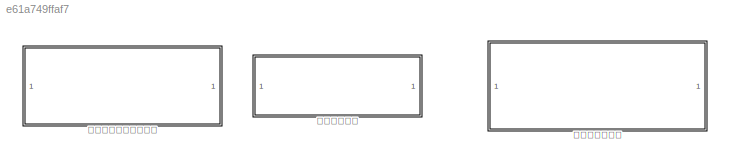
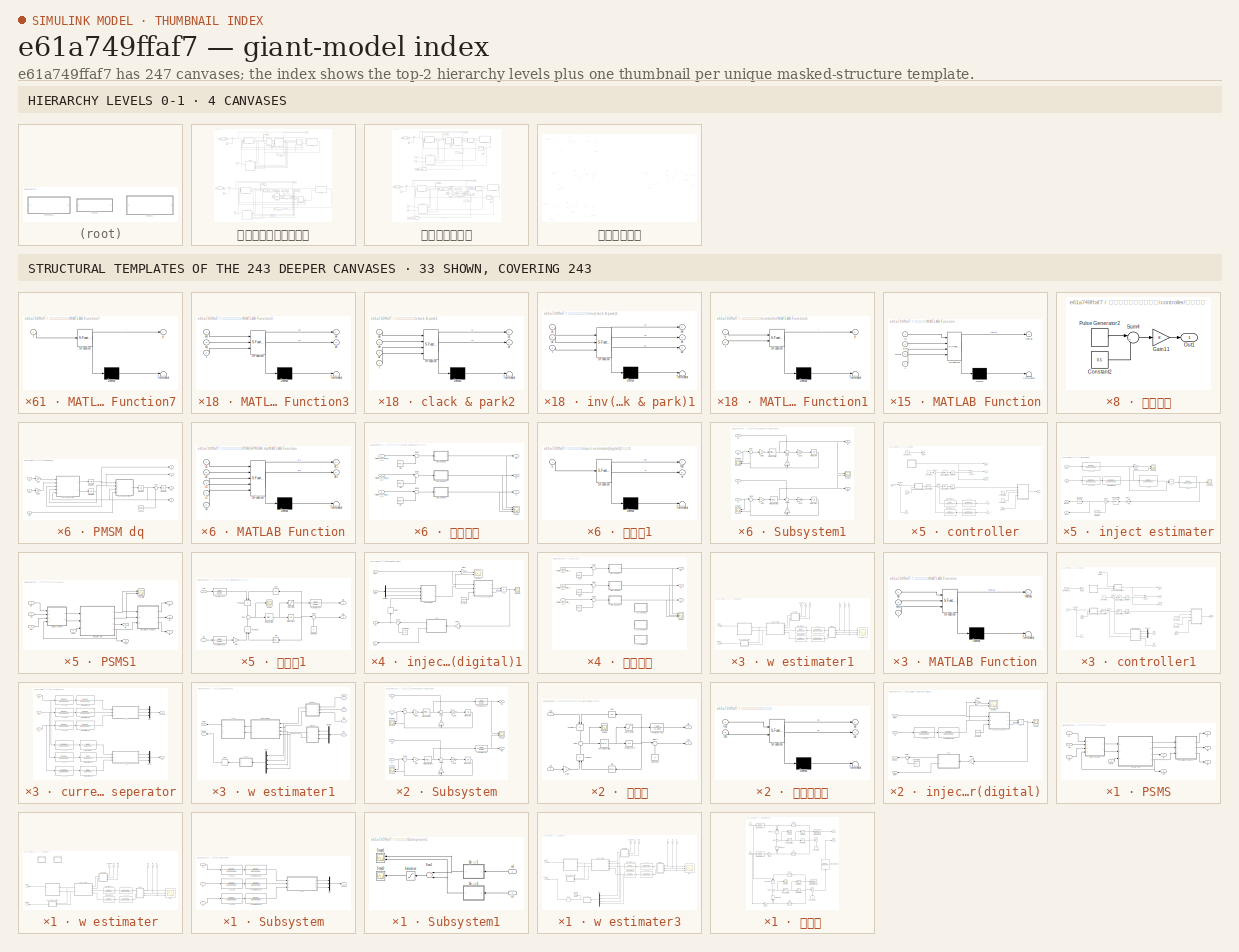
[diagram: thumbnail index - top-2 hierarchy levels (4 canvases) + 33 structural-template representatives of the remaining 243 canvases]
MODEL slx_e61a749ffaf7
KIND model
CONFIG AbsTol = auto
CONFIG EnableMultiTasking = off
CONFIG FixedStep = auto
CONFIG MaxStep = auto
CONFIG MinStep = auto
CONFIG RelTol = 1e-3
CONFIG SampleTimeConstraint = Unconstrained
CONFIG Solver = VariableStepAuto
CONFIG SolverName = VariableStepAuto
CONFIG StartTime = 0.0
CONFIG StopTime = 10.0
BLOCK [SubSystem] 全观测角速度闭环控制
  Ports = []
  RequestExecContextInheritance = off
BLOCK [Reference] 全观测角速度闭环控制/24V  REF=powerlib/Electrical
Sources/DC Voltage Source
  Ports = [0, 0, 0, 0, 0, 1, 1]
  SourceBlock = powerlib/Electrical\nSources/DC Voltage Source
  SourceProductBaseCode = PS
  SourceProductName = Simscape Power Systems
  SourceType = DC Voltage Source
BLOCK [BusSelector] 全观测角速度闭环控制/Bus Selector
  OutputAsBus = off
  OutputSignals = Rotor angle thetam (rad),Rotor speed wm (rad/s),Stator current is_a (A),Stator current is_b (A),Stator current is_c (A),Stator current is_d (A),Stator current is_q (A)
  Ports = [1, 7]
BLOCK [Clock] 全观测角速度闭环控制/Clock1
BLOCK [Clock] 全观测角速度闭环控制/Clock2
BLOCK [Gain] 全观测角速度闭环控制/Gain
  Gain = 0.5
  OutDataTypeStr = Inherit: Inherit via internal rule
  ParamDataTypeStr = Inherit: Inherit via internal rule
  SaturateOnIntegerOverflow = off
BLOCK [Gain] 全观测角速度闭环控制/Gain1
  Gain = 0.5
  OutDataTypeStr = Inherit: Inherit via internal rule
  ParamDataTypeStr = Inherit: Inherit via internal rule
  SaturateOnIntegerOverflow = off
BLOCK [SubSystem] 全观测角速度闭环控制/MATLAB Function3
  ErrorFcn = Stateflow.Translate.translate
  PermitHierarchicalResolution = ExplicitOnly
  Ports = [3, 2]
  RequestExecContextInheritance = off
  SFBlockType = MATLAB Function
  TreatAsAtomicUnit = on
BLOCK [Demux] 全观测角速度闭环控制/MATLAB Function3/ Demux 
  Outputs = 1
  Ports = [1, 1]
BLOCK [S-Function] 全观测角速度闭环控制/MATLAB Function3/ SFunction 
  EnableBusSupport = on
  FunctionName = sf_sfun
  PortCounts = [3 3]
  Ports = [3, 3]
  SFcnIsStateOwnerBlock = off
  SFunctionDeploymentMode = off
  Tag = Stateflow S-Function saved3 114
BLOCK [Terminator] 全观测角速度闭环控制/MATLAB Function3/ Terminator 
BLOCK [Inport] 全观测角速度闭环控制/MATLAB Function3/t
  IconDisplay = Port number
  Port = 3
BLOCK [Outport] 全观测角速度闭环控制/MATLAB Function3/ua
  IconDisplay = Port number
BLOCK [Outport] 全观测角速度闭环控制/MATLAB Function3/ub
  IconDisplay = Port number
  Port = 2
BLOCK [Inport] 全观测角速度闭环控制/MATLAB Function3/ud
  IconDisplay = Port number
BLOCK [Inport] 全观测角速度闭环控制/MATLAB Function3/uq
  IconDisplay = Port number
  Port = 2
BLOCK [SubSystem] 全观测角速度闭环控制/MATLAB Function7
  ErrorFcn = Stateflow.Translate.translate
  PermitHierarchicalResolution = ExplicitOnly
  Ports = [1, 1]
  RequestExecContextInheritance = off
  SFBlockType = MATLAB Function
  TreatAsAtomicUnit = on
BLOCK [Demux] 全观测角速度闭环控制/MATLAB Function7/ Demux 
  Outputs = 1
  Ports = [1, 1]
BLOCK [S-Function] 全观测角速度闭环控制/MATLAB Function7/ SFunction 
  EnableBusSupport = on
  FunctionName = sf_sfun
  PortCounts = [1 2]
  Ports = [1, 2]
  SFcnIsStateOwnerBlock = off
  SFunctionDeploymentMode = off
  Tag = Stateflow S-Function saved3 118
BLOCK [Terminator] 全观测角速度闭环控制/MATLAB Function7/ Terminator 
BLOCK [Inport] 全观测角速度闭环控制/MATLAB Function7/t
  IconDisplay = Port number
BLOCK [Outport] 全观测角速度闭环控制/MATLAB Function7/y
  IconDisplay = Port number
BLOCK [SubSystem] 全观测角速度闭环控制/PSMS
  Ports = [4, 5]
  RequestExecContextInheritance = off
BLOCK [SubSystem] 全观测角速度闭环控制/PSMS/PMSM dq
  Ports = [3, 4]
  RequestExecContextInheritance = off
BLOCK [Gain] 全观测角速度闭环控制/PSMS/PMSM dq/Gain
  Gain = 1/2
  OutDataTypeStr = Inherit: Inherit via internal rule
  ParamDataTypeStr = Inherit: Inherit via internal rule
  SaturateOnIntegerOverflow = off
BLOCK [Gain] 全观测角速度闭环控制/PSMS/PMSM dq/Gain1
  Gain = 1/2
  OutDataTypeStr = Inherit: Inherit via internal rule
  ParamDataTypeStr = Inherit: Inherit via internal rule
  SaturateOnIntegerOverflow = off
BLOCK [Integrator] 全观测角速度闭环控制/PSMS/PMSM dq/Integrator
  Ports = [1, 1]
BLOCK [Integrator] 全观测角速度闭环控制/PSMS/PMSM dq/Integrator1
  Ports = [1, 1]
BLOCK [Integrator] 全观测角速度闭环控制/PSMS/PMSM dq/Integrator2
  Ports = [1, 1]
BLOCK [Integrator] 全观测角速度闭环控制/PSMS/PMSM dq/Integrator3
  Ports = [1, 1]
BLOCK [SubSystem] 全观测角速度闭环控制/PSMS/PMSM dq/MATLAB Function
  ErrorFcn = Stateflow.Translate.translate
  PermitHierarchicalResolution = ExplicitOnly
  Ports = [5, 2]
  RequestExecContextInheritance = off
  SFBlockType = MATLAB Function
  TreatAsAtomicUnit = on
BLOCK [Demux] 全观测角速度闭环控制/PSMS/PMSM dq/MATLAB Function/ Demux 
  Outputs = 1
  Ports = [1, 1]
BLOCK [S-Function] 全观测角速度闭环控制/PSMS/PMSM dq/MATLAB Function/ SFunction 
  EnableBusSupport = on
  FunctionName = sf_sfun
  PortCounts = [5 3]
  Ports = [5, 3]
  SFcnIsStateOwnerBlock = off
  SFunctionDeploymentMode = off
  Tag = Stateflow S-Function saved3 87
BLOCK [Terminator] 全观测角速度闭环控制/PSMS/PMSM dq/MATLAB Function/ Terminator 
BLOCK [Outport] 全观测角速度闭环控制/PSMS/PMSM dq/MATLAB Function/di1
  IconDisplay = Port number
BLOCK [Outport] 全观测角速度闭环控制/PSMS/PMSM dq/MATLAB Function/di2
  IconDisplay = Port number
  Port = 2
BLOCK [Inport] 全观测角速度闭环控制/PSMS/PMSM dq/MATLAB Function/i1
  IconDisplay = Port number
  Port = 3
BLOCK [Inport] 全观测角速度闭环控制/PSMS/PMSM dq/MATLAB Function/i2
  IconDisplay = Port number
  Port = 4
BLOCK [Inport] 全观测角速度闭环控制/PSMS/PMSM dq/MATLAB Function/u1
  IconDisplay = Port number
BLOCK [Inport] 全观测角速度闭环控制/PSMS/PMSM dq/MATLAB Function/u2
  IconDisplay = Port number
  Port = 2
BLOCK [Inport] 全观测角速度闭环控制/PSMS/PMSM dq/MATLAB Function/w
  IconDisplay = Port number
  Port = 5
BLOCK [SubSystem] 全观测角速度闭环控制/PSMS/PMSM dq/MATLAB Function1
  ErrorFcn = Stateflow.Translate.translate
  PermitHierarchicalResolution = ExplicitOnly
  Ports = [4, 1]
  RequestExecContextInheritance = off
  SFBlockType = MATLAB Function
  TreatAsAtomicUnit = on
BLOCK [Demux] 全观测角速度闭环控制/PSMS/PMSM dq/MATLAB Function1/ Demux 
  Outputs = 1
  Ports = [1, 1]
BLOCK [S-Function] 全观测角速度闭环控制/PSMS/PMSM dq/MATLAB Function1/ SFunction 
  EnableBusSupport = on
  FunctionName = sf_sfun
  PortCounts = [4 2]
  Ports = [4, 2]
  SFcnIsStateOwnerBlock = off
  SFunctionDeploymentMode = off
  Tag = Stateflow S-Function saved3 88
BLOCK [Terminator] 全观测角速度闭环控制/PSMS/PMSM dq/MATLAB Function1/ Terminator 
BLOCK [Outport] 全观测角速度闭环控制/PSMS/PMSM dq/MATLAB Function1/dw
  IconDisplay = Port number
BLOCK [Inport] 全观测角速度闭环控制/PSMS/PMSM dq/MATLAB Function1/i1
  IconDisplay = Port number
BLOCK [Inport] 全观测角速度闭环控制/PSMS/PMSM dq/MATLAB Function1/i2
  IconDisplay = Port number
  Port = 2
BLOCK [Inport] 全观测角速度闭环控制/PSMS/PMSM dq/MATLAB Function1/torE
  IconDisplay = Port number
  Port = 4
BLOCK [Inport] 全观测角速度闭环控制/PSMS/PMSM dq/MATLAB Function1/w
  IconDisplay = Port number
  Port = 3
BLOCK [Sum] 全观测角速度闭环控制/PSMS/PMSM dq/Sum
  IconShape = round
  InputSameDT = off
  Inputs = |++
  OutDataTypeStr = Inherit: Inherit via internal rule
  Ports = [2, 1]
  SaturateOnIntegerOverflow = off
BLOCK [Outport] 全观测角速度闭环控制/PSMS/PMSM dq/i1
  IconDisplay = Port number
BLOCK [Outport] 全观测角速度闭环控制/PSMS/PMSM dq/i2
  IconDisplay = Port number
  Port = 2
BLOCK [Outport] 全观测角速度闭环控制/PSMS/PMSM dq/the
  IconDisplay = Port number
  Port = 4
BLOCK [Inport] 全观测角速度闭环控制/PSMS/PMSM dq/torE
  IconDisplay = Port number
  Port = 3
BLOCK [Inport] 全观测角速度闭环控制/PSMS/PMSM dq/u1
  IconDisplay = Port number
BLOCK [Inport] 全观测角速度闭环控制/PSMS/PMSM dq/u2
  IconDisplay = Port number
  Port = 2
BLOCK [Outport] 全观测角速度闭环控制/PSMS/PMSM dq/w
  IconDisplay = Port number
  Port = 3
BLOCK [Reference] 全观测角速度闭环控制/PSMS/PMSM dq/角度增速测试  REF=simulink/Sources/Ramp
  Ports = [0, 1]
  SourceBlock = simulink/Sources/Ramp
  SourceProductBaseCode = SL
  SourceProductName = Simulink
  SourceType = Ramp
BLOCK [SubSystem] 全观测角速度闭环控制/PSMS/clack & park
  ErrorFcn = Stateflow.Translate.translate
  PermitHierarchicalResolution = ExplicitOnly
  Ports = [4, 2]
  RequestExecContextInheritance = off
  SFBlockType = MATLAB Function
  TreatAsAtomicUnit = on
BLOCK [Demux] 全观测角速度闭环控制/PSMS/clack & park/ Demux 
  Outputs = 1
  Ports = [1, 1]
BLOCK [S-Function] 全观测角速度闭环控制/PSMS/clack & park/ SFunction 
  EnableBusSupport = on
  FunctionName = sf_sfun
  PortCounts = [4 3]
  Ports = [4, 3]
  SFcnIsStateOwnerBlock = off
  SFunctionDeploymentMode = off
  Tag = Stateflow S-Function saved3 89
BLOCK [Terminator] 全观测角速度闭环控制/PSMS/clack & park/ Terminator 
BLOCK [Inport] 全观测角速度闭环控制/PSMS/clack & park/t
  IconDisplay = Port number
  Port = 4
BLOCK [Outport] 全观测角速度闭环控制/PSMS/clack & park/u1
  IconDisplay = Port number
BLOCK [Outport] 全观测角速度闭环控制/PSMS/clack & park/u2
  IconDisplay = Port number
  Port = 2
BLOCK [Inport] 全观测角速度闭环控制/PSMS/clack & park/ua
  IconDisplay = Port number
BLOCK [Inport] 全观测角速度闭环控制/PSMS/clack & park/ub
  IconDisplay = Port number
  Port = 2
BLOCK [Inport] 全观测角速度闭环控制/PSMS/clack & park/uc
  IconDisplay = Port number
  Port = 3
BLOCK [Outport] 全观测角速度闭环控制/PSMS/ia
  IconDisplay = Port number
BLOCK [Outport] 全观测角速度闭环控制/PSMS/ib
  IconDisplay = Port number
  Port = 2
BLOCK [Outport] 全观测角速度闭环控制/PSMS/ic
  IconDisplay = Port number
  Port = 3
BLOCK [SubSystem] 全观测角速度闭环控制/PSMS/inv(clack & park)
  ErrorFcn = Stateflow.Translate.translate
  PermitHierarchicalResolution = ExplicitOnly
  Ports = [3, 3]
  RequestExecContextInheritance = off
  SFBlockType = MATLAB Function
  TreatAsAtomicUnit = on
BLOCK [Demux] 全观测角速度闭环控制/PSMS/inv(clack & park)/ Demux 
  Outputs = 1
  Ports = [1, 1]
BLOCK [S-Function] 全观测角速度闭环控制/PSMS/inv(clack & park)/ SFunction 
  EnableBusSupport = on
  FunctionName = sf_sfun
  PortCounts = [3 4]
  Ports = [3, 4]
  SFcnIsStateOwnerBlock = off
  SFunctionDeploymentMode = off
  Tag = Stateflow S-Function saved3 90
BLOCK [Terminator] 全观测角速度闭环控制/PSMS/inv(clack & park)/ Terminator 
BLOCK [Inport] 全观测角速度闭环控制/PSMS/inv(clack & park)/t
  IconDisplay = Port number
  Port = 3
BLOCK [Inport] 全观测角速度闭环控制/PSMS/inv(clack & park)/u1
  IconDisplay = Port number
BLOCK [Inport] 全观测角速度闭环控制/PSMS/inv(clack & park)/u2
  IconDisplay = Port number
  Port = 2
BLOCK [Outport] 全观测角速度闭环控制/PSMS/inv(clack & park)/ua
  IconDisplay = Port number
BLOCK [Outport] 全观测角速度闭环控制/PSMS/inv(clack & park)/ub
  IconDisplay = Port number
  Port = 2
BLOCK [Outport] 全观测角速度闭环控制/PSMS/inv(clack & park)/uc
  IconDisplay = Port number
  Port = 3
BLOCK [Outport] 全观测角速度闭环控制/PSMS/the
  IconDisplay = Port number
  Port = 5
BLOCK [Inport] 全观测角速度闭环控制/PSMS/torE
  IconDisplay = Port number
  Port = 4
BLOCK [Inport] 全观测角速度闭环控制/PSMS/ua
  IconDisplay = Port number
BLOCK [Inport] 全观测角速度闭环控制/PSMS/ub
  IconDisplay = Port number
  Port = 2
BLOCK [Inport] 全观测角速度闭环控制/PSMS/uc
  IconDisplay = Port number
  Port = 3
BLOCK [Outport] 全观测角速度闭环控制/PSMS/w
  IconDisplay = Port number
  Port = 4
BLOCK [Reference] 全观测角速度闭环控制/Permanent Magnet Synchronous Machine  REF=powerlib/Machines/Permanent Magnet
Synchronous Machine
  Ports = [1, 1, 0, 0, 0, 3]
  SourceBlock = powerlib/Machines/Permanent Magnet\nSynchronous Machine
  SourceProductBaseCode = PS
  SourceProductName = Simscape Power Systems
  SourceType = Permanent Magnet Synchronous Machine
BLOCK [Reference] 全观测角速度闭环控制/SVPWM Generator (2-Level)  REF=powerlib_meascontrol/Pulse & Signal
Generators/SVPWM Generator
(2-Level)
  Ports = [2, 1]
  SourceBlock = powerlib_meascontrol/Pulse & Signal\nGenerators/SVPWM Generator\n(2-Level)
  SourceProductBaseCode = PS
  SourceProductName = Simscape Power Systems
  SourceType = SVPWM Generator (2-Level)
BLOCK [Scope] 全观测角速度闭环控制/Scope
  Floating = off
  NumInputPorts = 2
  Ports = [2]
  ScopeSpecificationString = Simulink.scopes.TimeScopeBlockCfg('CurrentConfiguration', extmgr.ConfigurationSet(extmgr.Configuration('Core','General UI',true),extmgr.Configuration('Core','Source UI',true),extmgr.Configuration('Sources','WiredSimulink',true,'DataLoggingVariableName','ScopeData2'),extmgr.Configuration('Visuals','Time Domain',true,'SerializedDisplays',{struct('MinYLimReal','-25.00000','MaxYLimReal','25.00000','YL...<+1473ch>
BLOCK [Scope] 全观测角速度闭环控制/Scope1
  Floating = off
  NumInputPorts = 1
  Ports = [1]
  ScopeSpecificationString = Simulink.scopes.TimeScopeBlockCfg('CurrentConfiguration', extmgr.ConfigurationSet(extmgr.Configuration('Core','General UI',true),extmgr.Configuration('Core','Source UI',true),extmgr.Configuration('Sources','WiredSimulink',true,'DataLoggingVariableName','ScopeData1'),extmgr.Configuration('Visuals','Time Domain',true,'SerializedDisplays',{struct('MinYLimReal','-33.67438','MaxYLimReal','191.44781','Y...<+1383ch>
BLOCK [Scope] 全观测角速度闭环控制/Scope3
  Floating = off
  NumInputPorts = 1
  Ports = [1]
  ScopeSpecificationString = Simulink.scopes.TimeScopeBlockCfg('CurrentConfiguration', extmgr.ConfigurationSet(extmgr.Configuration('Core','General UI',true),extmgr.Configuration('Core','Source UI',true),extmgr.Configuration('Sources','WiredSimulink',true,'DataLoggingVariableName','ScopeData3'),extmgr.Configuration('Visuals','Time Domain',true,'SerializedDisplays',{struct('MinYLimReal','-28.82961','MaxYLimReal','34.53462','YL...<+1422ch>
BLOCK [Step] 全观测角速度闭环控制/Step1
  After = 50
  SampleTime = 0
  Time = 1.5
BLOCK [Step] 全观测角速度闭环控制/Step2
  After = 50
  SampleTime = 0
  Time = 1.5
BLOCK [Step] 全观测角速度闭环控制/Step3
  After = 0.5
  SampleTime = 0
BLOCK [Step] 全观测角速度闭环控制/Step5
  After = 0.25
  SampleTime = 0
  Time = 0.8
BLOCK [Sum] 全观测角速度闭环控制/Sum
  IconShape = round
  InputSameDT = off
  Inputs = |++
  OutDataTypeStr = Inherit: Inherit via internal rule
  Ports = [2, 1]
  SaturateOnIntegerOverflow = off
BLOCK [Sum] 全观测角速度闭环控制/Sum1
  IconShape = round
  InputSameDT = off
  Inputs = |++
  OutDataTypeStr = Inherit: Inherit via internal rule
  Ports = [2, 1]
  SaturateOnIntegerOverflow = off
BLOCK [Sum] 全观测角速度闭环控制/Sum2
  InputSameDT = off
  Inputs = +-
  OutDataTypeStr = Inherit: Inherit via internal rule
  Ports = [2, 1]
  SaturateOnIntegerOverflow = off
BLOCK [Sum] 全观测角速度闭环控制/Sum3
  InputSameDT = off
  Inputs = +-
  OutDataTypeStr = Inherit: Inherit via internal rule
  Ports = [2, 1]
  SaturateOnIntegerOverflow = off
BLOCK [Reference] 全观测角速度闭环控制/Universal Bridge  REF=powerlib/Power
Electronics/Universal Bridge
  Ports = [1, 0, 0, 0, 0, 3, 2]
  SourceBlock = powerlib/Power\nElectronics/Universal Bridge
  SourceProductBaseCode = PS
  SourceProductName = Simscape Power Systems
  SourceType = Universal Bridge
BLOCK [SubSystem] 全观测角速度闭环控制/clack & park2
  ErrorFcn = Stateflow.Translate.translate
  PermitHierarchicalResolution = ExplicitOnly
  Ports = [4, 2]
  RequestExecContextInheritance = off
  SFBlockType = MATLAB Function
  TreatAsAtomicUnit = on
BLOCK [Demux] 全观测角速度闭环控制/clack & park2/ Demux 
  Outputs = 1
  Ports = [1, 1]
BLOCK [S-Function] 全观测角速度闭环控制/clack & park2/ SFunction 
  EnableBusSupport = on
  FunctionName = sf_sfun
  PortCounts = [4 3]
  Ports = [4, 3]
  SFcnIsStateOwnerBlock = off
  SFunctionDeploymentMode = off
  Tag = Stateflow S-Function saved3 91
BLOCK [Terminator] 全观测角速度闭环控制/clack & park2/ Terminator 
BLOCK [Inport] 全观测角速度闭环控制/clack & park2/t
  IconDisplay = Port number
  Port = 4
BLOCK [Outport] 全观测角速度闭环控制/clack & park2/u1
  IconDisplay = Port number
BLOCK [Outport] 全观测角速度闭环控制/clack & park2/u2
  IconDisplay = Port number
  Port = 2
BLOCK [Inport] 全观测角速度闭环控制/clack & park2/ua
  IconDisplay = Port number
BLOCK [Inport] 全观测角速度闭环控制/clack & park2/ub
  IconDisplay = Port number
  Port = 2
BLOCK [Inport] 全观测角速度闭环控制/clack & park2/uc
  IconDisplay = Port number
  Port = 3
BLOCK [SubSystem] 全观测角速度闭环控制/clack & park3
  ErrorFcn = Stateflow.Translate.translate
  PermitHierarchicalResolution = ExplicitOnly
  Ports = [4, 2]
  RequestExecContextInheritance = off
  SFBlockType = MATLAB Function
  TreatAsAtomicUnit = on
BLOCK [Demux] 全观测角速度闭环控制/clack & park3/ Demux 
  Outputs = 1
  Ports = [1, 1]
BLOCK [S-Function] 全观测角速度闭环控制/clack & park3/ SFunction 
  EnableBusSupport = on
  FunctionName = sf_sfun
  PortCounts = [4 3]
  Ports = [4, 3]
  SFcnIsStateOwnerBlock = off
  SFunctionDeploymentMode = off
  Tag = Stateflow S-Function saved3 123
BLOCK [Terminator] 全观测角速度闭环控制/clack & park3/ Terminator 
BLOCK [Inport] 全观测角速度闭环控制/clack & park3/t
  IconDisplay = Port number
  Port = 4
BLOCK [Outport] 全观测角速度闭环控制/clack & park3/u1
  IconDisplay = Port number
BLOCK [Outport] 全观测角速度闭环控制/clack & park3/u2
  IconDisplay = Port number
  Port = 2
BLOCK [Inport] 全观测角速度闭环控制/clack & park3/ua
  IconDisplay = Port number
BLOCK [Inport] 全观测角速度闭环控制/clack & park3/ub
  IconDisplay = Port number
  Port = 2
BLOCK [Inport] 全观测角速度闭环控制/clack & park3/uc
  IconDisplay = Port number
  Port = 3
BLOCK [Scope] 全观测角速度闭环控制/control uduq1
  Floating = off
  NumInputPorts = 2
  Ports = [2]
  ScopeSpecificationString = Simulink.scopes.TimeScopeBlockCfg('CurrentConfiguration', extmgr.ConfigurationSet(extmgr.Configuration('Core','General UI',true),extmgr.Configuration('Core','Source UI',true),extmgr.Configuration('Sources','WiredSimulink',true,'DataLoggingVariableName','ScopeData2'),extmgr.Configuration('Visuals','Time Domain',true,'SerializedDisplays',{struct('MinYLimReal','-18.04268','MaxYLimReal','24.22696','YL...<+1444ch>
BLOCK [SubSystem] 全观测角速度闭环控制/controller
  Ports = [4, 4]
  RequestExecContextInheritance = off
BLOCK [Clock] 全观测角速度闭环控制/controller/Clock
BLOCK [Clock] 全观测角速度闭环控制/controller/Clock1
BLOCK [Constant] 全观测角速度闭环控制/controller/Constant
  Value = 0
BLOCK [Constant] 全观测角速度闭环控制/controller/Constant1
  Value = 5
BLOCK [Constant] 全观测角速度闭环控制/controller/Constant3
  Value = 0
BLOCK [Gain] 全观测角速度闭环控制/controller/Gain3
  Gain = 4
  OutDataTypeStr = Inherit: Inherit via internal rule
  ParamDataTypeStr = Inherit: Inherit via internal rule
  SaturateOnIntegerOverflow = off
BLOCK [SubSystem] 全观测角速度闭环控制/controller/MATLAB Function
  ErrorFcn = Stateflow.Translate.translate
  PermitHierarchicalResolution = ExplicitOnly
  Ports = [4, 1]
  RequestExecContextInheritance = off
  SFBlockType = MATLAB Function
  TreatAsAtomicUnit = on
BLOCK [Demux] 全观测角速度闭环控制/controller/MATLAB Function/ Demux 
  Outputs = 1
  Ports = [1, 1]
BLOCK [S-Function] 全观测角速度闭环控制/controller/MATLAB Function/ SFunction 
  EnableBusSupport = on
  FunctionName = sf_sfun
  PortCounts = [4 2]
  Ports = [4, 2]
  SFcnIsStateOwnerBlock = off
  SFunctionDeploymentMode = off
  Tag = Stateflow S-Function saved3 8
BLOCK [Terminator] 全观测角速度闭环控制/controller/MATLAB Function/ Terminator 
BLOCK [Inport] 全观测角速度闭环控制/controller/MATLAB Function/Switch
  IconDisplay = Port number
  Port = 3
BLOCK [Inport] 全观测角速度闭环控制/controller/MATLAB Function/Vdirect
  IconDisplay = Port number
  Port = 2
BLOCK [Outport] 全观测角速度闭环控制/controller/MATLAB Function/out
  IconDisplay = Port number
BLOCK [Inport] 全观测角速度闭环控制/controller/MATLAB Function/t
  IconDisplay = Port number
  Port = 4
BLOCK [Inport] 全观测角速度闭环控制/controller/MATLAB Function/wloop
  IconDisplay = Port number
BLOCK [SubSystem] 全观测角速度闭环控制/controller/MATLAB Function1
  ErrorFcn = Stateflow.Translate.translate
  PermitHierarchicalResolution = ExplicitOnly
  Ports = [2, 1]
  RequestExecContextInheritance = off
  SFBlockType = MATLAB Function
  TreatAsAtomicUnit = on
BLOCK [Demux] 全观测角速度闭环控制/controller/MATLAB Function1/ Demux 
  Outputs = 1
  Ports = [1, 1]
BLOCK [S-Function] 全观测角速度闭环控制/controller/MATLAB Function1/ SFunction 
  EnableBusSupport = on
  FunctionName = sf_sfun
  PortCounts = [2 2]
  Ports = [2, 2]
  SFcnIsStateOwnerBlock = off
  SFunctionDeploymentMode = off
  Tag = Stateflow S-Function saved3 82
BLOCK [Terminator] 全观测角速度闭环控制/controller/MATLAB Function1/ Terminator 
BLOCK [Inport] 全观测角速度闭环控制/controller/MATLAB Function1/t
  IconDisplay = Port number
  Port = 2
BLOCK [Inport] 全观测角速度闭环控制/controller/MATLAB Function1/u
  IconDisplay = Port number
BLOCK [Outport] 全观测角速度闭环控制/controller/MATLAB Function1/y
  IconDisplay = Port number
BLOCK [Reference] 全观测角速度闭环控制/controller/PID Controller10  REF=simulink/Continuous/PID Controller
  Ports = [1, 1]
  SourceBlock = simulink/Continuous/PID Controller
  SourceProductBaseCode = SL
  SourceProductName = Simulink
  SourceType = PID 1dof
BLOCK [Reference] 全观测角速度闭环控制/controller/PID Controller7  REF=simulink/Continuous/PID Controller
  Ports = [1, 1]
  SourceBlock = simulink/Continuous/PID Controller
  SourceProductBaseCode = SL
  SourceProductName = Simulink
  SourceType = PID 1dof
BLOCK [Reference] 全观测角速度闭环控制/controller/PID Controller9  REF=simulink/Continuous/PID Controller
  Ports = [1, 1]
  SourceBlock = simulink/Continuous/PID Controller
  SourceProductBaseCode = SL
  SourceProductName = Simulink
  SourceType = PID 1dof
BLOCK [Saturate] 全观测角速度闭环控制/controller/Saturation7
  InputPortMap = u0
  LowerLimit = -20
  Ports = [1, 1]
  UpperLimit = 20
BLOCK [Saturate] 全观测角速度闭环控制/controller/Saturation8
  InputPortMap = u0
  LowerLimit = -20
  Ports = [1, 1]
  UpperLimit = 20
BLOCK [Sin] 全观测角速度闭环控制/controller/Sine Wave3
  Frequency = 1000*2*pi
  Ports = [0, 1]
  SampleTime = 0
BLOCK [Sum] 全观测角速度闭环控制/controller/Sum11
  IconShape = round
  InputSameDT = off
  Inputs = |+-
  OutDataTypeStr = Inherit: Inherit via internal rule
  Ports = [2, 1]
  SaturateOnIntegerOverflow = off
BLOCK [Sum] 全观测角速度闭环控制/controller/Sum12
  IconShape = round
  InputSameDT = off
  Inputs = |+-
  OutDataTypeStr = Inherit: Inherit via internal rule
  Ports = [2, 1]
  SaturateOnIntegerOverflow = off
BLOCK [Sum] 全观测角速度闭环控制/controller/Sum13
  IconShape = round
  InputSameDT = off
  Inputs = |+-
  OutDataTypeStr = Inherit: Inherit via internal rule
  Ports = [2, 1]
  SaturateOnIntegerOverflow = off
BLOCK [Sum] 全观测角速度闭环控制/controller/Sum14
  InputSameDT = off
  OutDataTypeStr = Inherit: Inherit via internal rule
  Ports = [2, 1]
  SaturateOnIntegerOverflow = off
BLOCK [TransferFcn] 全观测角速度闭环控制/controller/Transfer Fcn1
  Denominator = [1 4e3 4e6]
  Numerator = [4e6]
BLOCK [TransferFcn] 全观测角速度闭环控制/controller/Transfer Fcn2
  Denominator = [1 4e3 4e6]
  Numerator = [4e6]
BLOCK [Inport] 全观测角速度闭环控制/controller/i1
  IconDisplay = Port number
  Port = 3
BLOCK [Inport] 全观测角速度闭环控制/controller/i2
  IconDisplay = Port number
  Port = 4
BLOCK [Outport] 全观测角速度闭环控制/controller/u1
  IconDisplay = Port number
  Port = 2
BLOCK [Outport] 全观测角速度闭环控制/controller/u1pure
  IconDisplay = Port number
  Port = 4
BLOCK [Outport] 全观测角速度闭环控制/controller/u2
  IconDisplay = Port number
  Port = 3
BLOCK [Outport] 全观测角速度闭环控制/controller/uject
  IconDisplay = Port number
BLOCK [Inport] 全观测角速度闭环控制/controller/wb
  IconDisplay = Port number
  Port = 2
BLOCK [Inport] 全观测角速度闭环控制/controller/wr
  IconDisplay = Port number
BLOCK [TransferFcn] 全观测角速度闭环控制/controller/带阻滤波器1
  Denominator = [1 6280 39e6]
  Numerator = [1 0 39e6]
BLOCK [TransferFcn] 全观测角速度闭环控制/controller/带阻滤波器2
  Denominator = [1 6280 39e6]
  Numerator = [1 0 39e6]
BLOCK [SubSystem] 全观测角速度闭环控制/controller/方波注入
  Ports = [0, 1]
  RequestExecContextInheritance = off
BLOCK [Constant] 全观测角速度闭环控制/controller/方波注入/Constant2
  Value = 0.5
BLOCK [Gain] 全观测角速度闭环控制/controller/方波注入/Gain11
  Gain = 8
  OutDataTypeStr = Inherit: Inherit via internal rule
  ParamDataTypeStr = Inherit: Inherit via internal rule
  SaturateOnIntegerOverflow = off
BLOCK [Outport] 全观测角速度闭环控制/controller/方波注入/Out1
  IconDisplay = Port number
BLOCK [DiscretePulseGenerator] 全观测角速度闭环控制/controller/方波注入/Pulse Generator2
  Period = 1e-3
  Ports = [0, 1]
  PulseType = Time based
  PulseWidth = 50
BLOCK [Sum] 全观测角速度闭环控制/controller/方波注入/Sum4
  IconShape = round
  InputSameDT = off
  Inputs = |+-
  OutDataTypeStr = Inherit: Inherit via internal rule
  Ports = [2, 1]
  SaturateOnIntegerOverflow = off
BLOCK [SubSystem] 全观测角速度闭环控制/controller1
  Ports = [4, 4]
  RequestExecContextInheritance = off
BLOCK [Clock] 全观测角速度闭环控制/controller1/Clock
BLOCK [Clock] 全观测角速度闭环控制/controller1/Clock1
BLOCK [Constant] 全观测角速度闭环控制/controller1/Constant
  Value = 0
BLOCK [Constant] 全观测角速度闭环控制/controller1/Constant1
  Value = 5
BLOCK [Constant] 全观测角速度闭环控制/controller1/Constant3
  Value = 0
BLOCK [Gain] 全观测角速度闭环控制/controller1/Gain3
  Gain = 4
  OutDataTypeStr = Inherit: Inherit via internal rule
  ParamDataTypeStr = Inherit: Inherit via internal rule
  SaturateOnIntegerOverflow = off
BLOCK [SubSystem] 全观测角速度闭环控制/controller1/MATLAB Function
  ErrorFcn = Stateflow.Translate.translate
  PermitHierarchicalResolution = ExplicitOnly
  Ports = [4, 1]
  RequestExecContextInheritance = off
  SFBlockType = MATLAB Function
  TreatAsAtomicUnit = on
BLOCK [Demux] 全观测角速度闭环控制/controller1/MATLAB Function/ Demux 
  Outputs = 1
  Ports = [1, 1]
BLOCK [S-Function] 全观测角速度闭环控制/controller1/MATLAB Function/ SFunction 
  EnableBusSupport = on
  FunctionName = sf_sfun
  PortCounts = [4 2]
  Ports = [4, 2]
  SFcnIsStateOwnerBlock = off
  SFunctionDeploymentMode = off
  Tag = Stateflow S-Function saved3 11
BLOCK [Terminator] 全观测角速度闭环控制/controller1/MATLAB Function/ Terminator 
BLOCK [Inport] 全观测角速度闭环控制/controller1/MATLAB Function/Switch
  IconDisplay = Port number
  Port = 3
BLOCK [Inport] 全观测角速度闭环控制/controller1/MATLAB Function/Vdirect
  IconDisplay = Port number
  Port = 2
BLOCK [Outport] 全观测角速度闭环控制/controller1/MATLAB Function/out
  IconDisplay = Port number
BLOCK [Inport] 全观测角速度闭环控制/controller1/MATLAB Function/t
  IconDisplay = Port number
  Port = 4
BLOCK [Inport] 全观测角速度闭环控制/controller1/MATLAB Function/wloop
  IconDisplay = Port number
BLOCK [SubSystem] 全观测角速度闭环控制/controller1/MATLAB Function1
  ErrorFcn = Stateflow.Translate.translate
  PermitHierarchicalResolution = ExplicitOnly
  Ports = [2, 1]
  RequestExecContextInheritance = off
  SFBlockType = MATLAB Function
  TreatAsAtomicUnit = on
BLOCK [Demux] 全观测角速度闭环控制/controller1/MATLAB Function1/ Demux 
  Outputs = 1
  Ports = [1, 1]
BLOCK [S-Function] 全观测角速度闭环控制/controller1/MATLAB Function1/ SFunction 
  EnableBusSupport = on
  FunctionName = sf_sfun
  PortCounts = [2 2]
  Ports = [2, 2]
  SFcnIsStateOwnerBlock = off
  SFunctionDeploymentMode = off
  Tag = Stateflow S-Function saved3 12
BLOCK [Terminator] 全观测角速度闭环控制/controller1/MATLAB Function1/ Terminator 
BLOCK [Inport] 全观测角速度闭环控制/controller1/MATLAB Function1/t
  IconDisplay = Port number
  Port = 2
BLOCK [Inport] 全观测角速度闭环控制/controller1/MATLAB Function1/u
  IconDisplay = Port number
BLOCK [Outport] 全观测角速度闭环控制/controller1/MATLAB Function1/y
  IconDisplay = Port number
BLOCK [Reference] 全观测角速度闭环控制/controller1/PID Controller10  REF=simulink/Continuous/PID Controller
  Ports = [1, 1]
  SourceBlock = simulink/Continuous/PID Controller
  SourceProductBaseCode = SL
  SourceProductName = Simulink
  SourceType = PID 1dof
BLOCK [Reference] 全观测角速度闭环控制/controller1/PID Controller7  REF=simulink/Continuous/PID Controller
  Ports = [1, 1]
  SourceBlock = simulink/Continuous/PID Controller
  SourceProductBaseCode = SL
  SourceProductName = Simulink
  SourceType = PID 1dof
BLOCK [Reference] 全观测角速度闭环控制/controller1/PID Controller9  REF=simulink/Continuous/PID Controller
  Ports = [1, 1]
  SourceBlock = simulink/Continuous/PID Controller
  SourceProductBaseCode = SL
  SourceProductName = Simulink
  SourceType = PID 1dof
BLOCK [Saturate] 全观测角速度闭环控制/controller1/Saturation7
  InputPortMap = u0
  LowerLimit = -20
  Ports = [1, 1]
  UpperLimit = 20
BLOCK [Saturate] 全观测角速度闭环控制/controller1/Saturation8
  InputPortMap = u0
  LowerLimit = -20
  Ports = [1, 1]
  UpperLimit = 20
BLOCK [Sin] 全观测角速度闭环控制/controller1/Sine Wave3
  Frequency = 1000*2*pi
  Ports = [0, 1]
  SampleTime = 0
BLOCK [Sum] 全观测角速度闭环控制/controller1/Sum11
  IconShape = round
  InputSameDT = off
  Inputs = |+-
  OutDataTypeStr = Inherit: Inherit via internal rule
  Ports = [2, 1]
  SaturateOnIntegerOverflow = off
BLOCK [Sum] 全观测角速度闭环控制/controller1/Sum12
  IconShape = round
  InputSameDT = off
  Inputs = |+-
  OutDataTypeStr = Inherit: Inherit via internal rule
  Ports = [2, 1]
  SaturateOnIntegerOverflow = off
BLOCK [Sum] 全观测角速度闭环控制/controller1/Sum13
  IconShape = round
  InputSameDT = off
  Inputs = |+-
  OutDataTypeStr = Inherit: Inherit via internal rule
  Ports = [2, 1]
  SaturateOnIntegerOverflow = off
BLOCK [Sum] 全观测角速度闭环控制/controller1/Sum14
  InputSameDT = off
  OutDataTypeStr = Inherit: Inherit via internal rule
  Ports = [2, 1]
  SaturateOnIntegerOverflow = off
BLOCK [TransferFcn] 全观测角速度闭环控制/controller1/Transfer Fcn1
  Denominator = [1 4e3 4e6]
  Numerator = [4e6]
BLOCK [TransferFcn] 全观测角速度闭环控制/controller1/Transfer Fcn2
  Denominator = [1 4e3 4e6]
  Numerator = [4e6]
BLOCK [Inport] 全观测角速度闭环控制/controller1/i1
  IconDisplay = Port number
  Port = 3
BLOCK [Inport] 全观测角速度闭环控制/controller1/i2
  IconDisplay = Port number
  Port = 4
BLOCK [Outport] 全观测角速度闭环控制/controller1/u1
  IconDisplay = Port number
  Port = 2
BLOCK [Outport] 全观测角速度闭环控制/controller1/u1pure
  IconDisplay = Port number
  Port = 4
BLOCK [Outport] 全观测角速度闭环控制/controller1/u2
  IconDisplay = Port number
  Port = 3
BLOCK [Outport] 全观测角速度闭环控制/controller1/uject
  IconDisplay = Port number
BLOCK [Inport] 全观测角速度闭环控制/controller1/wb
  IconDisplay = Port number
  Port = 2
BLOCK [Inport] 全观测角速度闭环控制/controller1/wr
  IconDisplay = Port number
BLOCK [TransferFcn] 全观测角速度闭环控制/controller1/带阻滤波器1
  Denominator = [1 6280 39e6]
  Numerator = [1 0 39e6]
BLOCK [TransferFcn] 全观测角速度闭环控制/controller1/带阻滤波器2
  Denominator = [1 6280 39e6]
  Numerator = [1 0 39e6]
BLOCK [SubSystem] 全观测角速度闭环控制/controller1/方波注入
  Ports = [0, 1]
  RequestExecContextInheritance = off
BLOCK [Constant] 全观测角速度闭环控制/controller1/方波注入/Constant2
  Value = 0.5
BLOCK [Gain] 全观测角速度闭环控制/controller1/方波注入/Gain11
  Gain = 8
  OutDataTypeStr = Inherit: Inherit via internal rule
  ParamDataTypeStr = Inherit: Inherit via internal rule
  SaturateOnIntegerOverflow = off
BLOCK [Outport] 全观测角速度闭环控制/controller1/方波注入/Out1
  IconDisplay = Port number
BLOCK [DiscretePulseGenerator] 全观测角速度闭环控制/controller1/方波注入/Pulse Generator2
  Period = 1e-3
  Ports = [0, 1]
  PulseType = Time based
  PulseWidth = 50
BLOCK [Sum] 全观测角速度闭环控制/controller1/方波注入/Sum4
  IconShape = round
  InputSameDT = off
  Inputs = |+-
  OutDataTypeStr = Inherit: Inherit via internal rule
  Ports = [2, 1]
  SaturateOnIntegerOverflow = off
BLOCK [Scope] 全观测角速度闭环控制/iabc
  Floating = off
  NumInputPorts = 3
  Ports = [3]
  ScopeSpecificationString = Simulink.scopes.TimeScopeBlockCfg('CurrentConfiguration', extmgr.ConfigurationSet(extmgr.Configuration('Core','General UI',true),extmgr.Configuration('Core','Source UI',true),extmgr.Configuration('Sources','WiredSimulink',true,'DataLoggingVariableName','ScopeData3'),extmgr.Configuration('Visuals','Time Domain',true,'SerializedDisplays',{struct('MinYLimReal','-19.14169','MaxYLimReal','22.86299','YL...<+1441ch>
BLOCK [SubSystem] 全观测角速度闭环控制/inject estimater
  Ports = [2, 2]
  RequestExecContextInheritance = off
BLOCK [Gain] 全观测角速度闭环控制/inject estimater/Gain6
  Gain = 0.01
  OutDataTypeStr = Inherit: Inherit via internal rule
  ParamDataTypeStr = Inherit: Inherit via internal rule
  SaturateOnIntegerOverflow = off
BLOCK [Gain] 全观测角速度闭环控制/inject estimater/Gain8
  Gain = -100
  OutDataTypeStr = Inherit: Inherit via internal rule
  ParamDataTypeStr = Inherit: Inherit via internal rule
  SaturateOnIntegerOverflow = off
BLOCK [Integrator] 全观测角速度闭环控制/inject estimater/Integrator2
  InitialCondition = 0.3
  Ports = [1, 1]
BLOCK [Reference] 全观测角速度闭环控制/inject estimater/PID Controller2  REF=simulink/Continuous/PID Controller
  Ports = [1, 1]
  SourceBlock = simulink/Continuous/PID Controller
  SourceProductBaseCode = SL
  SourceProductName = Simulink
  SourceType = PID 1dof
BLOCK [Reference] 全观测角速度闭环控制/inject estimater/Ramp2  REF=simulink/Sources/Ramp
  Ports = [0, 1]
  SourceBlock = simulink/Sources/Ramp
  SourceProductBaseCode = SL
  SourceProductName = Simulink
  SourceType = Ramp
BLOCK [Scope] 全观测角速度闭环控制/inject estimater/Scope19
  Floating = off
  NumInputPorts = 1
  Ports = [1]
  ScopeSpecificationString = Simulink.scopes.TimeScopeBlockCfg('CurrentConfiguration', extmgr.ConfigurationSet(extmgr.Configuration('Core','General UI',true),extmgr.Configuration('Core','Source UI',true),extmgr.Configuration('Sources','WiredSimulink',true,'DataLoggingVariableName','ScopeData7'),extmgr.Configuration('Visuals','Time Domain',true,'SerializedDisplays',{struct('MinYLimReal','-0.11054','MaxYLimReal','0.14106','YLab...<+1441ch>
BLOCK [Scope] 全观测角速度闭环控制/inject estimater/Scope7
  Floating = off
  NumInputPorts = 2
  Ports = [2]
  ScopeSpecificationString = Simulink.scopes.TimeScopeBlockCfg('CurrentConfiguration', extmgr.ConfigurationSet(extmgr.Configuration('Core','General UI',true),extmgr.Configuration('Core','Source UI',true),extmgr.Configuration('Sources','WiredSimulink',true,'DataLoggingVariableName','ScopeData11'),extmgr.Configuration('Visuals','Time Domain',true,'SerializedDisplays',{struct('MinYLimReal','-0.52165','MaxYLimReal','0.56402','YLa...<+1454ch>
BLOCK [Sum] 全观测角速度闭环控制/inject estimater/Sum2
  IconShape = round
  InputSameDT = off
  Inputs = |++
  OutDataTypeStr = Inherit: Inherit via internal rule
  Ports = [2, 1]
  SaturateOnIntegerOverflow = off
BLOCK [TransferFcn] 全观测角速度闭环控制/inject estimater/Transfer Fcn2
  Denominator = [1 6280 39e6]
  Numerator = [6280 0]
BLOCK [Outport] 全观测角速度闭环控制/inject estimater/theHat
  IconDisplay = Port number
BLOCK [Inport] 全观测角速度闭环控制/inject estimater/u2
  IconDisplay = Port number
  Port = 2
BLOCK [Inport] 全观测角速度闭环控制/inject estimater/uject
  IconDisplay = Port number
BLOCK [Outport] 全观测角速度闭环控制/inject estimater/wHat
  IconDisplay = Port number
  Port = 2
BLOCK [TransferFcn] 全观测角速度闭环控制/inject estimater/低通滤波器
  Denominator = [1 500 25e4]
  Numerator = [25e4]
BLOCK [TransferFcn] 全观测角速度闭环控制/inject estimater/带通滤波器1
  Denominator = [1 6280 39e6]
  Numerator = [6280 0]
BLOCK [TransferFcn] 全观测角速度闭环控制/inject estimater/带通滤波器2
  Denominator = [1 6280 39e6]
  Numerator = [6280 0]
BLOCK [Product] 全观测角速度闭环控制/inject estimater/混频
  InputSameDT = off
  OutDataTypeStr = Inherit: Inherit via internal rule
  Ports = [2, 1]
  RndMeth = Floor
  SaturateOnIntegerOverflow = off
BLOCK [TransferFcn] 全观测角速度闭环控制/inject estimater/相移器-90°
  Denominator = [1 6280 39e6]
  Numerator = [39e6]
BLOCK [SubSystem] 全观测角速度闭环控制/inject estimater1
  Ports = [2, 2]
  RequestExecContextInheritance = off
BLOCK [Gain] 全观测角速度闭环控制/inject estimater1/Gain6
  Gain = 0.01
  OutDataTypeStr = Inherit: Inherit via internal rule
  ParamDataTypeStr = Inherit: Inherit via internal rule
  SaturateOnIntegerOverflow = off
BLOCK [Gain] 全观测角速度闭环控制/inject estimater1/Gain8
  Gain = -100
  OutDataTypeStr = Inherit: Inherit via internal rule
  ParamDataTypeStr = Inherit: Inherit via internal rule
  SaturateOnIntegerOverflow = off
BLOCK [Integrator] 全观测角速度闭环控制/inject estimater1/Integrator2
  InitialCondition = 0.3
  Ports = [1, 1]
BLOCK [Reference] 全观测角速度闭环控制/inject estimater1/PID Controller2  REF=simulink/Continuous/PID Controller
  Ports = [1, 1]
  SourceBlock = simulink/Continuous/PID Controller
  SourceProductBaseCode = SL
  SourceProductName = Simulink
  SourceType = PID 1dof
BLOCK [Reference] 全观测角速度闭环控制/inject estimater1/Ramp2  REF=simulink/Sources/Ramp
  Ports = [0, 1]
  SourceBlock = simulink/Sources/Ramp
  SourceProductBaseCode = SL
  SourceProductName = Simulink
  SourceType = Ramp
BLOCK [Scope] 全观测角速度闭环控制/inject estimater1/Scope19
  Floating = off
  NumInputPorts = 1
  Ports = [1]
  ScopeSpecificationString = Simulink.scopes.TimeScopeBlockCfg('CurrentConfiguration', extmgr.ConfigurationSet(extmgr.Configuration('Core','General UI',true),extmgr.Configuration('Core','Source UI',true),extmgr.Configuration('Sources','WiredSimulink',true,'DataLoggingVariableName','ScopeData7'),extmgr.Configuration('Visuals','Time Domain',true,'SerializedDisplays',{struct('MinYLimReal','-0.12902','MaxYLimReal','0.11035','YLab...<+1441ch>
BLOCK [Scope] 全观测角速度闭环控制/inject estimater1/Scope7
  Floating = off
  NumInputPorts = 2
  Ports = [2]
  ScopeSpecificationString = Simulink.scopes.TimeScopeBlockCfg('CurrentConfiguration', extmgr.ConfigurationSet(extmgr.Configuration('Core','General UI',true),extmgr.Configuration('Core','Source UI',true),extmgr.Configuration('Sources','WiredSimulink',true,'DataLoggingVariableName','ScopeData11'),extmgr.Configuration('Visuals','Time Domain',true,'SerializedDisplays',{struct('MinYLimReal','-0.08208','MaxYLimReal','0.09325','YLa...<+1430ch>
BLOCK [Sum] 全观测角速度闭环控制/inject estimater1/Sum2
  IconShape = round
  InputSameDT = off
  Inputs = |++
  OutDataTypeStr = Inherit: Inherit via internal rule
  Ports = [2, 1]
  SaturateOnIntegerOverflow = off
BLOCK [TransferFcn] 全观测角速度闭环控制/inject estimater1/Transfer Fcn2
  Denominator = [1 6280 39e6]
  Numerator = [6280 0]
BLOCK [Outport] 全观测角速度闭环控制/inject estimater1/theHat
  IconDisplay = Port number
BLOCK [Inport] 全观测角速度闭环控制/inject estimater1/u2
  IconDisplay = Port number
  Port = 2
BLOCK [Inport] 全观测角速度闭环控制/inject estimater1/uject
  IconDisplay = Port number
BLOCK [Outport] 全观测角速度闭环控制/inject estimater1/wHat
  IconDisplay = Port number
  Port = 2
BLOCK [TransferFcn] 全观测角速度闭环控制/inject estimater1/低通滤波器
  Denominator = [1 500 25e4]
  Numerator = [25e4]
BLOCK [TransferFcn] 全观测角速度闭环控制/inject estimater1/带通滤波器1
  Denominator = [1 6280 39e6]
  Numerator = [6280 0]
BLOCK [TransferFcn] 全观测角速度闭环控制/inject estimater1/带通滤波器2
  Denominator = [1 6280 39e6]
  Numerator = [6280 0]
BLOCK [Product] 全观测角速度闭环控制/inject estimater1/混频
  InputSameDT = off
  OutDataTypeStr = Inherit: Inherit via internal rule
  Ports = [2, 1]
  RndMeth = Floor
  SaturateOnIntegerOverflow = off
BLOCK [TransferFcn] 全观测角速度闭环控制/inject estimater1/相移器-90°
  Denominator = [1 6280 39e6]
  Numerator = [39e6]
BLOCK [SubSystem] 全观测角速度闭环控制/inv(clack & park)1
  ErrorFcn = Stateflow.Translate.translate
  PermitHierarchicalResolution = ExplicitOnly
  Ports = [3, 3]
  RequestExecContextInheritance = off
  SFBlockType = MATLAB Function
  TreatAsAtomicUnit = on
BLOCK [Demux] 全观测角速度闭环控制/inv(clack & park)1/ Demux 
  Outputs = 1
  Ports = [1, 1]
BLOCK [S-Function] 全观测角速度闭环控制/inv(clack & park)1/ SFunction 
  EnableBusSupport = on
  FunctionName = sf_sfun
  PortCounts = [3 4]
  Ports = [3, 4]
  SFcnIsStateOwnerBlock = off
  SFunctionDeploymentMode = off
  Tag = Stateflow S-Function saved3 93
BLOCK [Terminator] 全观测角速度闭环控制/inv(clack & park)1/ Terminator 
BLOCK [Inport] 全观测角速度闭环控制/inv(clack & park)1/t
  IconDisplay = Port number
  Port = 3
BLOCK [Inport] 全观测角速度闭环控制/inv(clack & park)1/u1
  IconDisplay = Port number
BLOCK [Inport] 全观测角速度闭环控制/inv(clack & park)1/u2
  IconDisplay = Port number
  Port = 2
BLOCK [Outport] 全观测角速度闭环控制/inv(clack & park)1/ua
  IconDisplay = Port number
BLOCK [Outport] 全观测角速度闭环控制/inv(clack & park)1/ub
  IconDisplay = Port number
  Port = 2
BLOCK [Outport] 全观测角速度闭环控制/inv(clack & park)1/uc
  IconDisplay = Port number
  Port = 3
BLOCK [Reference] 全观测角速度闭环控制/powergui  REF=powerlib/powergui
  Ports = []
  Priority = 1
  SourceBlock = powerlib/powergui
  SourceProductBaseCode = PS
  SourceProductName = Simscape Power Systems
  SourceType = PSB option menu block
BLOCK [Scope] 全观测角速度闭环控制/theErr
  Floating = off
  NumInputPorts = 1
  Ports = [1]
  ScopeSpecificationString = Simulink.scopes.TimeScopeBlockCfg('CurrentConfiguration', extmgr.ConfigurationSet(extmgr.Configuration('Core','General UI',true),extmgr.Configuration('Core','Source UI',true),extmgr.Configuration('Sources','WiredSimulink',true,'DataLoggingVariableName','ScopeData4'),extmgr.Configuration('Visuals','Time Domain',true,'SerializedDisplays',{struct('MinYLimReal','-0.51821','MaxYLimReal','0.7242','YLabe...<+1436ch>
BLOCK [Scope] 全观测角速度闭环控制/theErr1
  Floating = off
  NumInputPorts = 1
  Ports = [1]
  ScopeSpecificationString = Simulink.scopes.TimeScopeBlockCfg('CurrentConfiguration', extmgr.ConfigurationSet(extmgr.Configuration('Core','General UI',true),extmgr.Configuration('Core','Source UI',true),extmgr.Configuration('Sources','WiredSimulink',true,'DataLoggingVariableName','ScopeData4'),extmgr.Configuration('Visuals','Time Domain',true,'SerializedDisplays',{struct('MinYLimReal','-0.51821','MaxYLimReal','0.7242','YLabe...<+1436ch>
BLOCK [Scope] 全观测角速度闭环控制/w
  Floating = off
  NumInputPorts = 2
  Ports = [2]
  ScopeSpecificationString = Simulink.scopes.TimeScopeBlockCfg('CurrentConfiguration', extmgr.ConfigurationSet(extmgr.Configuration('Core','General UI',true),extmgr.Configuration('Core','Source UI',true),extmgr.Configuration('Sources','WiredSimulink',true,'DataLoggingVariableName','ScopeData5'),extmgr.Configuration('Visuals','Time Domain',true,'SerializedDisplays',{struct('MinYLimReal','-21.45606','MaxYLimReal','193.08859','Y...<+1458ch>
BLOCK [SubSystem] 全观测角速度闭环控制/w estimater
  Ports = [6, 2]
  RequestExecContextInheritance = off
BLOCK [SubSystem] 全观测角速度闭环控制/w estimater/MATLAB Function
  ErrorFcn = Stateflow.Translate.translate
  PermitHierarchicalResolution = ExplicitOnly
  Ports = [2, 1]
  RequestExecContextInheritance = off
  SFBlockType = MATLAB Function
  TreatAsAtomicUnit = on
BLOCK [Demux] 全观测角速度闭环控制/w estimater/MATLAB Function/ Demux 
  Outputs = 1
  Ports = [1, 1]
BLOCK [S-Function] 全观测角速度闭环控制/w estimater/MATLAB Function/ SFunction 
  EnableBusSupport = on
  FunctionName = sf_sfun
  PortCounts = [2 2]
  Ports = [2, 2]
  SFcnIsStateOwnerBlock = off
  SFunctionDeploymentMode = off
  Tag = Stateflow S-Function saved3 5
BLOCK [Terminator] 全观测角速度闭环控制/w estimater/MATLAB Function/ Terminator 
BLOCK [Inport] 全观测角速度闭环控制/w estimater/MATLAB Function/Ea
  IconDisplay = Port number
BLOCK [Inport] 全观测角速度闭环控制/w estimater/MATLAB Function/Eb
  IconDisplay = Port number
  Port = 2
BLOCK [Outport] 全观测角速度闭环控制/w estimater/MATLAB Function/y
  IconDisplay = Port number
BLOCK [SubSystem] 全观测角速度闭环控制/w estimater/Subsystem
  Ports = [4, 2]
  RequestExecContextInheritance = off
BLOCK [Gain] 全观测角速度闭环控制/w estimater/Subsystem/1//Lm1
  Gain = 1/1.2e-3
  OutDataTypeStr = Inherit: Inherit via internal rule
  ParamDataTypeStr = Inherit: Inherit via internal rule
  SaturateOnIntegerOverflow = off
BLOCK [Gain] 全观测角速度闭环控制/w estimater/Subsystem/1//Lm2
  Gain = 1/1.2e-3
  OutDataTypeStr = Inherit: Inherit via internal rule
  ParamDataTypeStr = Inherit: Inherit via internal rule
  SaturateOnIntegerOverflow = off
BLOCK [Outport] 全观测角速度闭环控制/w estimater/Subsystem/Ea
  IconDisplay = Port number
BLOCK [Outport] 全观测角速度闭环控制/w estimater/Subsystem/Eb
  IconDisplay = Port number
  Port = 2
BLOCK [Gain] 全观测角速度闭环控制/w estimater/Subsystem/Gain
  OutDataTypeStr = Inherit: Inherit via internal rule
  ParamDataTypeStr = Inherit: Inherit via internal rule
  SaturateOnIntegerOverflow = off
BLOCK [Gain] 全观测角速度闭环控制/w estimater/Subsystem/Gain1
  OutDataTypeStr = Inherit: Inherit via internal rule
  ParamDataTypeStr = Inherit: Inherit via internal rule
  SaturateOnIntegerOverflow = off
BLOCK [Integrator] 全观测角速度闭环控制/w estimater/Subsystem/Integrator
  Ports = [1, 1]
BLOCK [Integrator] 全观测角速度闭环控制/w estimater/Subsystem/Integrator1
  Ports = [1, 1]
BLOCK [Reference] 全观测角速度闭环控制/w estimater/Subsystem/PID Controller  REF=simulink/Continuous/PID Controller
  Ports = [1, 1]
  SourceBlock = simulink/Continuous/PID Controller
  SourceProductBaseCode = SL
  SourceProductName = Simulink
  SourceType = PID 1dof
BLOCK [Reference] 全观测角速度闭环控制/w estimater/Subsystem/PID Controller1  REF=simulink/Continuous/PID Controller
  Ports = [1, 1]
  SourceBlock = simulink/Continuous/PID Controller
  SourceProductBaseCode = SL
  SourceProductName = Simulink
  SourceType = PID 1dof
BLOCK [Gain] 全观测角速度闭环控制/w estimater/Subsystem/R1
  Gain = 0.1
  OutDataTypeStr = Inherit: Inherit via internal rule
  ParamDataTypeStr = Inherit: Inherit via internal rule
  SaturateOnIntegerOverflow = off
BLOCK [Gain] 全观测角速度闭环控制/w estimater/Subsystem/R2
  Gain = 0.1
  OutDataTypeStr = Inherit: Inherit via internal rule
  ParamDataTypeStr = Inherit: Inherit via internal rule
  SaturateOnIntegerOverflow = off
BLOCK [Scope] 全观测角速度闭环控制/w estimater/Subsystem/Scope
  Floating = off
  NumInputPorts = 2
  Ports = [2]
  ScopeSpecificationString = Simulink.scopes.TimeScopeBlockCfg('CurrentConfiguration', extmgr.ConfigurationSet(extmgr.Configuration('Core','General UI',true),extmgr.Configuration('Core','Source UI',true),extmgr.Configuration('Sources','WiredSimulink',true,'DataLoggingVariableName','ScopeData1'),extmgr.Configuration('Visuals','Time Domain',true,'SerializedDisplays',{struct('MinYLimReal','-12.09659','MaxYLimReal','12.25995','YL...<+1437ch>
BLOCK [Scope] 全观测角速度闭环控制/w estimater/Subsystem/Scope1
  Floating = off
  NumInputPorts = 2
  Ports = [2]
  ScopeSpecificationString = Simulink.scopes.TimeScopeBlockCfg('CurrentConfiguration', extmgr.ConfigurationSet(extmgr.Configuration('Core','General UI',true),extmgr.Configuration('Core','Source UI',true),extmgr.Configuration('Sources','WiredSimulink',true,'DataLoggingVariableName','ScopeData2'),extmgr.Configuration('Visuals','Time Domain',true,'SerializedDisplays',{struct('MinYLimReal','-10.89777','MaxYLimReal','16.37145','YL...<+1425ch>
BLOCK [Scope] 全观测角速度闭环控制/w estimater/Subsystem/Scope2
  Floating = off
  NumInputPorts = 2
  Ports = [2]
  ScopeSpecificationString = Simulink.scopes.TimeScopeBlockCfg('CurrentConfiguration', extmgr.ConfigurationSet(extmgr.Configuration('Core','General UI',true),extmgr.Configuration('Core','Source UI',true),extmgr.Configuration('Sources','WiredSimulink',true,'DataLoggingVariableName','ScopeData3'),extmgr.Configuration('Visuals','Time Domain',true,'SerializedDisplays',{struct('MinYLimReal','-6.05876','MaxYLimReal','6.13441','YLab...<+1452ch>
BLOCK [Sum] 全观测角速度闭环控制/w estimater/Subsystem/Sum
  IconShape = round
  InputSameDT = off
  Inputs = |+-
  OutDataTypeStr = Inherit: Inherit via internal rule
  Ports = [2, 1]
  SaturateOnIntegerOverflow = off
BLOCK [Sum] 全观测角速度闭环控制/w estimater/Subsystem/Sum1
  IconShape = round
  InputSameDT = off
  Inputs = ++-
  OutDataTypeStr = Inherit: Inherit via internal rule
  Ports = [3, 1]
  SaturateOnIntegerOverflow = off
BLOCK [Sum] 全观测角速度闭环控制/w estimater/Subsystem/Sum2
  IconShape = round
  InputSameDT = off
  Inputs = |+-
  OutDataTypeStr = Inherit: Inherit via internal rule
  Ports = [2, 1]
  SaturateOnIntegerOverflow = off
BLOCK [Sum] 全观测角速度闭环控制/w estimater/Subsystem/Sum3
  IconShape = round
  InputSameDT = off
  Inputs = ++-
  OutDataTypeStr = Inherit: Inherit via internal rule
  Ports = [3, 1]
  SaturateOnIntegerOverflow = off
BLOCK [TransferFcn] 全观测角速度闭环控制/w estimater/Subsystem/Transfer Fcn
  Denominator = [1 100]
  Numerator = [100]
BLOCK [TransferFcn] 全观测角速度闭环控制/w estimater/Subsystem/Transfer Fcn1
  Denominator = [1 100]
  Numerator = [100]
BLOCK [Inport] 全观测角速度闭环控制/w estimater/Subsystem/ia
  IconDisplay = Port number
  Port = 3
BLOCK [Inport] 全观测角速度闭环控制/w estimater/Subsystem/ib
  IconDisplay = Port number
  Port = 4
BLOCK [Inport] 全观测角速度闭环控制/w estimater/Subsystem/ua
  IconDisplay = Port number
BLOCK [Inport] 全观测角速度闭环控制/w estimater/Subsystem/ub
  IconDisplay = Port number
  Port = 2
BLOCK [TransferFcn] 全观测角速度闭环控制/w estimater/Transfer Fcn
  Denominator = [1 4e3 4e6]
  Numerator = [4e6]
BLOCK [TransferFcn] 全观测角速度闭环控制/w estimater/Transfer Fcn1
  Denominator = [1 4e3 4e6]
  Numerator = [4e6]
BLOCK [SubSystem] 全观测角速度闭环控制/w estimater/clack
  ErrorFcn = Stateflow.Translate.translate
  PermitHierarchicalResolution = ExplicitOnly
  Ports = [3, 2]
  RequestExecContextInheritance = off
  SFBlockType = MATLAB Function
  TreatAsAtomicUnit = on
BLOCK [Demux] 全观测角速度闭环控制/w estimater/clack/ Demux 
  Outputs = 1
  Ports = [1, 1]
BLOCK [S-Function] 全观测角速度闭环控制/w estimater/clack/ SFunction 
  EnableBusSupport = on
  FunctionName = sf_sfun
  PortCounts = [3 3]
  Ports = [3, 3]
  SFcnIsStateOwnerBlock = off
  SFunctionDeploymentMode = off
  Tag = Stateflow S-Function saved3 2
BLOCK [Terminator] 全观测角速度闭环控制/w estimater/clack/ Terminator 
BLOCK [Inport] 全观测角速度闭环控制/w estimater/clack/ia
  IconDisplay = Port number
BLOCK [Outport] 全观测角速度闭环控制/w estimater/clack/iap
  IconDisplay = Port number
BLOCK [Inport] 全观测角速度闭环控制/w estimater/clack/ib
  IconDisplay = Port number
  Port = 2
BLOCK [Outport] 全观测角速度闭环控制/w estimater/clack/ibe
  IconDisplay = Port number
  Port = 2
BLOCK [Inport] 全观测角速度闭环控制/w estimater/clack/ic
  IconDisplay = Port number
  Port = 3
BLOCK [Inport] 全观测角速度闭环控制/w estimater/ia
  IconDisplay = Port number
  Port = 3
BLOCK [Scope] 全观测角速度闭环控制/w estimater/iabc
  Floating = off
  NumInputPorts = 3
  Ports = [3]
  ScopeSpecificationString = Simulink.scopes.TimeScopeBlockCfg('CurrentConfiguration', extmgr.ConfigurationSet(extmgr.Configuration('Core','General UI',true),extmgr.Configuration('Core','Source UI',true),extmgr.Configuration('Sources','WiredSimulink',true,'DataLoggingVariableName','ScopeData1'),extmgr.Configuration('Visuals','Time Domain',true,'SerializedDisplays',{struct('MinYLimReal','-17.38241','MaxYLimReal','18.01906','YL...<+1421ch>
BLOCK [Inport] 全观测角速度闭环控制/w estimater/ib
  IconDisplay = Port number
  Port = 4
BLOCK [Inport] 全观测角速度闭环控制/w estimater/ic
  IconDisplay = Port number
  Port = 5
BLOCK [SubSystem] 全观测角速度闭环控制/w estimater/invpark
  ErrorFcn = Stateflow.Translate.translate
  PermitHierarchicalResolution = ExplicitOnly
  Ports = [3, 2]
  RequestExecContextInheritance = off
  SFBlockType = MATLAB Function
  TreatAsAtomicUnit = on
BLOCK [Demux] 全观测角速度闭环控制/w estimater/invpark/ Demux 
  Outputs = 1
  Ports = [1, 1]
BLOCK [S-Function] 全观测角速度闭环控制/w estimater/invpark/ SFunction 
  EnableBusSupport = on
  FunctionName = sf_sfun
  PortCounts = [3 3]
  Ports = [3, 3]
  SFcnIsStateOwnerBlock = off
  SFunctionDeploymentMode = off
  Tag = Stateflow S-Function saved3 1
BLOCK [Terminator] 全观测角速度闭环控制/w estimater/invpark/ Terminator 
BLOCK [Inport] 全观测角速度闭环控制/w estimater/invpark/t
  IconDisplay = Port number
  Port = 3
BLOCK [Inport] 全观测角速度闭环控制/w estimater/invpark/u1
  IconDisplay = Port number
BLOCK [Inport] 全观测角速度闭环控制/w estimater/invpark/u2
  IconDisplay = Port number
  Port = 2
BLOCK [Outport] 全观测角速度闭环控制/w estimater/invpark/ua
  IconDisplay = Port number
BLOCK [Outport] 全观测角速度闭环控制/w estimater/invpark/ub
  IconDisplay = Port number
  Port = 2
BLOCK [Inport] 全观测角速度闭环控制/w estimater/the
  IconDisplay = Port number
  Port = 6
BLOCK [Outport] 全观测角速度闭环控制/w estimater/theHat
  IconDisplay = Port number
  Port = 2
BLOCK [Inport] 全观测角速度闭环控制/w estimater/u1pure
  IconDisplay = Port number
BLOCK [Inport] 全观测角速度闭环控制/w estimater/u2
  IconDisplay = Port number
  Port = 2
BLOCK [Outport] 全观测角速度闭环控制/w estimater/wHat
  IconDisplay = Port number
BLOCK [TransferFcn] 全观测角速度闭环控制/w estimater/带阻滤波器
  Denominator = [1 6280 39e6]
  Numerator = [1 0 39e6]
BLOCK [TransferFcn] 全观测角速度闭环控制/w estimater/带阻滤波器1
  Denominator = [1 6280 39e6]
  Numerator = [1 0 39e6]
BLOCK [SubSystem] 全观测角速度闭环控制/w estimater/数据融合
  Commented = on
  ErrorFcn = Stateflow.Translate.translate
  PermitHierarchicalResolution = ExplicitOnly
  Ports = [2, 1]
  RequestExecContextInheritance = off
  SFBlockType = MATLAB Function
  TreatAsAtomicUnit = on
BLOCK [Demux] 全观测角速度闭环控制/w estimater/数据融合/ Demux 
  Outputs = 1
  Ports = [1, 1]
BLOCK [S-Function] 全观测角速度闭环控制/w estimater/数据融合/ SFunction 
  EnableBusSupport = on
  FunctionName = sf_sfun
  PortCounts = [2 2]
  Ports = [2, 2]
  SFcnIsStateOwnerBlock = off
  SFunctionDeploymentMode = off
  Tag = Stateflow S-Function saved3 4
BLOCK [Terminator] 全观测角速度闭环控制/w estimater/数据融合/ Terminator 
BLOCK [Inport] 全观测角速度闭环控制/w estimater/数据融合/cal
  IconDisplay = Port number
BLOCK [Inport] 全观测角速度闭环控制/w estimater/数据融合/pll
  IconDisplay = Port number
  Port = 2
BLOCK [Outport] 全观测角速度闭环控制/w estimater/数据融合/y
  IconDisplay = Port number
BLOCK [SubSystem] 全观测角速度闭环控制/w estimater/计算法求角速度
  Commented = on
  ErrorFcn = Stateflow.Translate.translate
  PermitHierarchicalResolution = ExplicitOnly
  Ports = [2, 1]
  RequestExecContextInheritance = off
  SFBlockType = MATLAB Function
  TreatAsAtomicUnit = on
BLOCK [Demux] 全观测角速度闭环控制/w estimater/计算法求角速度/ Demux 
  Outputs = 1
  Ports = [1, 1]
BLOCK [S-Function] 全观测角速度闭环控制/w estimater/计算法求角速度/ SFunction 
  EnableBusSupport = on
  FunctionName = sf_sfun
  PortCounts = [2 2]
  Ports = [2, 2]
  SFcnIsStateOwnerBlock = off
  SFunctionDeploymentMode = off
  Tag = Stateflow S-Function saved3 3
BLOCK [Terminator] 全观测角速度闭环控制/w estimater/计算法求角速度/ Terminator 
BLOCK [Inport] 全观测角速度闭环控制/w estimater/计算法求角速度/Ea
  IconDisplay = Port number
BLOCK [Inport] 全观测角速度闭环控制/w estimater/计算法求角速度/Eb
  IconDisplay = Port number
  Port = 2
BLOCK [Outport] 全观测角速度闭环控制/w estimater/计算法求角速度/y
  IconDisplay = Port number
BLOCK [SubSystem] 全观测角速度闭环控制/w estimater/锁相环
  Ports = [2, 2]
  RequestExecContextInheritance = off
BLOCK [Constant] 全观测角速度闭环控制/w estimater/锁相环/Constant
  Value = 0
BLOCK [Trigonometry] 全观测角速度闭环控制/w estimater/锁相环/Cos
  Operator = cos
  Ports = [1, 1]
BLOCK [Gain] 全观测角速度闭环控制/w estimater/锁相环/Gain
  Gain = -1
  OutDataTypeStr = Inherit: Inherit via internal rule
  ParamDataTypeStr = Inherit: Inherit via internal rule
  SaturateOnIntegerOverflow = off
BLOCK [Integrator] 全观测角速度闭环控制/w estimater/锁相环/Integrator2
  Ports = [1, 1]
BLOCK [Reference] 全观测角速度闭环控制/w estimater/锁相环/PID Controller  REF=simulink/Continuous/PID Controller
  Ports = [1, 1]
  SourceBlock = simulink/Continuous/PID Controller
  SourceProductBaseCode = SL
  SourceProductName = Simulink
  SourceType = PID 1dof
BLOCK [Product] 全观测角速度闭环控制/w estimater/锁相环/Product
  InputSameDT = off
  OutDataTypeStr = Inherit: Inherit via internal rule
  Ports = [2, 1]
  RndMeth = Floor
  SaturateOnIntegerOverflow = off
BLOCK [Product] 全观测角速度闭环控制/w estimater/锁相环/Product1
  InputSameDT = off
  OutDataTypeStr = Inherit: Inherit via internal rule
  Ports = [2, 1]
  RndMeth = Floor
  SaturateOnIntegerOverflow = off
BLOCK [Saturate] 全观测角速度闭环控制/w estimater/锁相环/Saturation
  InputPortMap = u0
  LowerLimit = -500
  Ports = [1, 1]
  UpperLimit = 500
BLOCK [Scope] 全观测角速度闭环控制/w estimater/锁相环/Scope
  Floating = off
  NumInputPorts = 1
  Ports = [1]
  ScopeSpecificationString = Simulink.scopes.TimeScopeBlockCfg('CurrentConfiguration', extmgr.ConfigurationSet(extmgr.Configuration('Core','General UI',true),extmgr.Configuration('Core','Source UI',true),extmgr.Configuration('Sources','WiredSimulink',true,'DataLoggingVariableName','ScopeData1'),extmgr.Configuration('Visuals','Time Domain',true,'SerializedDisplays',{struct('MinYLimReal','-0.38723','MaxYLimReal','0.77408','YLab...<+1395ch>
BLOCK [Trigonometry] 全观测角速度闭环控制/w estimater/锁相环/Sin
  Ports = [1, 1]
BLOCK [Sum] 全观测角速度闭环控制/w estimater/锁相环/Sum
  IconShape = round
  InputSameDT = off
  Inputs = +-
  OutDataTypeStr = Inherit: Inherit via internal rule
  Ports = [2, 1]
  SaturateOnIntegerOverflow = off
BLOCK [Sum] 全观测角速度闭环控制/w estimater/锁相环/Sum1
  IconShape = round
  InputSameDT = off
  Inputs = |+-
  OutDataTypeStr = Inherit: Inherit via internal rule
  Ports = [2, 1]
  SaturateOnIntegerOverflow = off
BLOCK [TransferFcn] 全观测角速度闭环控制/w estimater/锁相环/Transfer Fcn
  Denominator = [1 100]
  Numerator = [100]
BLOCK [Inport] 全观测角速度闭环控制/w estimater/锁相环/cos
  IconDisplay = Port number
BLOCK [Inport] 全观测角速度闭环控制/w estimater/锁相环/sin
  IconDisplay = Port number
  Port = 2
BLOCK [Outport] 全观测角速度闭环控制/w estimater/锁相环/the
  IconDisplay = Port number
  Port = 2
BLOCK [Outport] 全观测角速度闭环控制/w estimater/锁相环/we
  IconDisplay = Port number
BLOCK [SubSystem] 全观测角速度闭环控制/w estimater1
  Ports = [6, 2]
  RequestExecContextInheritance = off
BLOCK [SubSystem] 全观测角速度闭环控制/w estimater1/MATLAB Function
  ErrorFcn = Stateflow.Translate.translate
  PermitHierarchicalResolution = ExplicitOnly
  Ports = [2, 1]
  RequestExecContextInheritance = off
  SFBlockType = MATLAB Function
  TreatAsAtomicUnit = on
BLOCK [Demux] 全观测角速度闭环控制/w estimater1/MATLAB Function/ Demux 
  Outputs = 1
  Ports = [1, 1]
BLOCK [S-Function] 全观测角速度闭环控制/w estimater1/MATLAB Function/ SFunction 
  EnableBusSupport = on
  FunctionName = sf_sfun
  PortCounts = [2 2]
  Ports = [2, 2]
  SFcnIsStateOwnerBlock = off
  SFunctionDeploymentMode = off
  Tag = Stateflow S-Function saved3 14
BLOCK [Terminator] 全观测角速度闭环控制/w estimater1/MATLAB Function/ Terminator 
BLOCK [Inport] 全观测角速度闭环控制/w estimater1/MATLAB Function/Ea
  IconDisplay = Port number
BLOCK [Inport] 全观测角速度闭环控制/w estimater1/MATLAB Function/Eb
  IconDisplay = Port number
  Port = 2
BLOCK [Outport] 全观测角速度闭环控制/w estimater1/MATLAB Function/y
  IconDisplay = Port number
BLOCK [SubSystem] 全观测角速度闭环控制/w estimater1/Subsystem
  Ports = [4, 2]
  RequestExecContextInheritance = off
BLOCK [Gain] 全观测角速度闭环控制/w estimater1/Subsystem/1//Lm1
  Gain = 1/1.2e-3
  OutDataTypeStr = Inherit: Inherit via internal rule
  ParamDataTypeStr = Inherit: Inherit via internal rule
  SaturateOnIntegerOverflow = off
BLOCK [Gain] 全观测角速度闭环控制/w estimater1/Subsystem/1//Lm2
  Gain = 1/1.2e-3
  OutDataTypeStr = Inherit: Inherit via internal rule
  ParamDataTypeStr = Inherit: Inherit via internal rule
  SaturateOnIntegerOverflow = off
BLOCK [Outport] 全观测角速度闭环控制/w estimater1/Subsystem/Ea
  IconDisplay = Port number
BLOCK [Outport] 全观测角速度闭环控制/w estimater1/Subsystem/Eb
  IconDisplay = Port number
  Port = 2
BLOCK [Gain] 全观测角速度闭环控制/w estimater1/Subsystem/Gain
  OutDataTypeStr = Inherit: Inherit via internal rule
  ParamDataTypeStr = Inherit: Inherit via internal rule
  SaturateOnIntegerOverflow = off
BLOCK [Gain] 全观测角速度闭环控制/w estimater1/Subsystem/Gain1
  OutDataTypeStr = Inherit: Inherit via internal rule
  ParamDataTypeStr = Inherit: Inherit via internal rule
  SaturateOnIntegerOverflow = off
BLOCK [Integrator] 全观测角速度闭环控制/w estimater1/Subsystem/Integrator
  Ports = [1, 1]
BLOCK [Integrator] 全观测角速度闭环控制/w estimater1/Subsystem/Integrator1
  Ports = [1, 1]
BLOCK [Reference] 全观测角速度闭环控制/w estimater1/Subsystem/PID Controller  REF=simulink/Continuous/PID Controller
  Ports = [1, 1]
  SourceBlock = simulink/Continuous/PID Controller
  SourceProductBaseCode = SL
  SourceProductName = Simulink
  SourceType = PID 1dof
BLOCK [Reference] 全观测角速度闭环控制/w estimater1/Subsystem/PID Controller1  REF=simulink/Continuous/PID Controller
  Ports = [1, 1]
  SourceBlock = simulink/Continuous/PID Controller
  SourceProductBaseCode = SL
  SourceProductName = Simulink
  SourceType = PID 1dof
BLOCK [Gain] 全观测角速度闭环控制/w estimater1/Subsystem/R1
  Gain = 0.1
  OutDataTypeStr = Inherit: Inherit via internal rule
  ParamDataTypeStr = Inherit: Inherit via internal rule
  SaturateOnIntegerOverflow = off
BLOCK [Gain] 全观测角速度闭环控制/w estimater1/Subsystem/R2
  Gain = 0.1
  OutDataTypeStr = Inherit: Inherit via internal rule
  ParamDataTypeStr = Inherit: Inherit via internal rule
  SaturateOnIntegerOverflow = off
BLOCK [Scope] 全观测角速度闭环控制/w estimater1/Subsystem/Scope
  Floating = off
  NumInputPorts = 2
  Ports = [2]
  ScopeSpecificationString = Simulink.scopes.TimeScopeBlockCfg('CurrentConfiguration', extmgr.ConfigurationSet(extmgr.Configuration('Core','General UI',true),extmgr.Configuration('Core','Source UI',true),extmgr.Configuration('Sources','WiredSimulink',true,'DataLoggingVariableName','ScopeData1'),extmgr.Configuration('Visuals','Time Domain',true,'SerializedDisplays',{struct('MinYLimReal','-12.27297','MaxYLimReal','12.46334','YL...<+1437ch>
BLOCK [Scope] 全观测角速度闭环控制/w estimater1/Subsystem/Scope1
  Floating = off
  NumInputPorts = 2
  Ports = [2]
  ScopeSpecificationString = Simulink.scopes.TimeScopeBlockCfg('CurrentConfiguration', extmgr.ConfigurationSet(extmgr.Configuration('Core','General UI',true),extmgr.Configuration('Core','Source UI',true),extmgr.Configuration('Sources','WiredSimulink',true,'DataLoggingVariableName','ScopeData2'),extmgr.Configuration('Visuals','Time Domain',true,'SerializedDisplays',{struct('MinYLimReal','-27.30595','MaxYLimReal','25.87335','YL...<+1425ch>  <repeated x7 — deduplicated; at blocks: Scope1>
BLOCK [Scope] 全观测角速度闭环控制/w estimater1/Subsystem/Scope2
  Floating = off
  NumInputPorts = 2
  Ports = [2]
  ScopeSpecificationString = Simulink.scopes.TimeScopeBlockCfg('CurrentConfiguration', extmgr.ConfigurationSet(extmgr.Configuration('Core','General UI',true),extmgr.Configuration('Core','Source UI',true),extmgr.Configuration('Sources','WiredSimulink',true,'DataLoggingVariableName','ScopeData3'),extmgr.Configuration('Visuals','Time Domain',true,'SerializedDisplays',{struct('MinYLimReal','-28.36679','MaxYLimReal','25.03906','YL...<+1458ch>  <repeated x7 — deduplicated; at blocks: Scope2>
BLOCK [Sum] 全观测角速度闭环控制/w estimater1/Subsystem/Sum
  IconShape = round
  InputSameDT = off
  Inputs = |+-
  OutDataTypeStr = Inherit: Inherit via internal rule
  Ports = [2, 1]
  SaturateOnIntegerOverflow = off
BLOCK [Sum] 全观测角速度闭环控制/w estimater1/Subsystem/Sum1
  IconShape = round
  InputSameDT = off
  Inputs = ++-
  OutDataTypeStr = Inherit: Inherit via internal rule
  Ports = [3, 1]
  SaturateOnIntegerOverflow = off
BLOCK [Sum] 全观测角速度闭环控制/w estimater1/Subsystem/Sum2
  IconShape = round
  InputSameDT = off
  Inputs = |+-
  OutDataTypeStr = Inherit: Inherit via internal rule
  Ports = [2, 1]
  SaturateOnIntegerOverflow = off
BLOCK [Sum] 全观测角速度闭环控制/w estimater1/Subsystem/Sum3
  IconShape = round
  InputSameDT = off
  Inputs = ++-
  OutDataTypeStr = Inherit: Inherit via internal rule
  Ports = [3, 1]
  SaturateOnIntegerOverflow = off
BLOCK [TransferFcn] 全观测角速度闭环控制/w estimater1/Subsystem/Transfer Fcn
  Denominator = [1 100]
  Numerator = [100]
BLOCK [TransferFcn] 全观测角速度闭环控制/w estimater1/Subsystem/Transfer Fcn1
  Denominator = [1 100]
  Numerator = [100]
BLOCK [Inport] 全观测角速度闭环控制/w estimater1/Subsystem/ia
  IconDisplay = Port number
  Port = 3
BLOCK [Inport] 全观测角速度闭环控制/w estimater1/Subsystem/ib
  IconDisplay = Port number
  Port = 4
BLOCK [Inport] 全观测角速度闭环控制/w estimater1/Subsystem/ua
  IconDisplay = Port number
BLOCK [Inport] 全观测角速度闭环控制/w estimater1/Subsystem/ub
  IconDisplay = Port number
  Port = 2
BLOCK [TransferFcn] 全观测角速度闭环控制/w estimater1/Transfer Fcn
  Denominator = [1 4e3 4e6]
  Numerator = [4e6]
BLOCK [TransferFcn] 全观测角速度闭环控制/w estimater1/Transfer Fcn1
  Denominator = [1 4e3 4e6]
  Numerator = [4e6]
BLOCK [SubSystem] 全观测角速度闭环控制/w estimater1/clack
  ErrorFcn = Stateflow.Translate.translate
  PermitHierarchicalResolution = ExplicitOnly
  Ports = [3, 2]
  RequestExecContextInheritance = off
  SFBlockType = MATLAB Function
  TreatAsAtomicUnit = on
BLOCK [Demux] 全观测角速度闭环控制/w estimater1/clack/ Demux 
  Outputs = 1
  Ports = [1, 1]
BLOCK [S-Function] 全观测角速度闭环控制/w estimater1/clack/ SFunction 
  EnableBusSupport = on
  FunctionName = sf_sfun
  PortCounts = [3 3]
  Ports = [3, 3]
  SFcnIsStateOwnerBlock = off
  SFunctionDeploymentMode = off
  Tag = Stateflow S-Function saved3 15
BLOCK [Terminator] 全观测角速度闭环控制/w estimater1/clack/ Terminator 
BLOCK [Inport] 全观测角速度闭环控制/w estimater1/clack/ia
  IconDisplay = Port number
BLOCK [Outport] 全观测角速度闭环控制/w estimater1/clack/iap
  IconDisplay = Port number
BLOCK [Inport] 全观测角速度闭环控制/w estimater1/clack/ib
  IconDisplay = Port number
  Port = 2
BLOCK [Outport] 全观测角速度闭环控制/w estimater1/clack/ibe
  IconDisplay = Port number
  Port = 2
BLOCK [Inport] 全观测角速度闭环控制/w estimater1/clack/ic
  IconDisplay = Port number
  Port = 3
BLOCK [Inport] 全观测角速度闭环控制/w estimater1/ia
  IconDisplay = Port number
  Port = 3
BLOCK [Scope] 全观测角速度闭环控制/w estimater1/iabc
  Floating = off
  NumInputPorts = 3
  Ports = [3]
  ScopeSpecificationString = Simulink.scopes.TimeScopeBlockCfg('CurrentConfiguration', extmgr.ConfigurationSet(extmgr.Configuration('Core','General UI',true),extmgr.Configuration('Core','Source UI',true),extmgr.Configuration('Sources','WiredSimulink',true,'DataLoggingVariableName','ScopeData1'),extmgr.Configuration('Visuals','Time Domain',true,'SerializedDisplays',{struct('MinYLimReal','-28.63261','MaxYLimReal','28.19938','YL...<+1454ch>
BLOCK [Inport] 全观测角速度闭环控制/w estimater1/ib
  IconDisplay = Port number
  Port = 4
BLOCK [Inport] 全观测角速度闭环控制/w estimater1/ic
  IconDisplay = Port number
  Port = 5
BLOCK [SubSystem] 全观测角速度闭环控制/w estimater1/invpark
  ErrorFcn = Stateflow.Translate.translate
  PermitHierarchicalResolution = ExplicitOnly
  Ports = [3, 2]
  RequestExecContextInheritance = off
  SFBlockType = MATLAB Function
  TreatAsAtomicUnit = on
BLOCK [Demux] 全观测角速度闭环控制/w estimater1/invpark/ Demux 
  Outputs = 1
  Ports = [1, 1]
BLOCK [S-Function] 全观测角速度闭环控制/w estimater1/invpark/ SFunction 
  EnableBusSupport = on
  FunctionName = sf_sfun
  PortCounts = [3 3]
  Ports = [3, 3]
  SFcnIsStateOwnerBlock = off
  SFunctionDeploymentMode = off
  Tag = Stateflow S-Function saved3 16
BLOCK [Terminator] 全观测角速度闭环控制/w estimater1/invpark/ Terminator 
BLOCK [Inport] 全观测角速度闭环控制/w estimater1/invpark/t
  IconDisplay = Port number
  Port = 3
BLOCK [Inport] 全观测角速度闭环控制/w estimater1/invpark/u1
  IconDisplay = Port number
BLOCK [Inport] 全观测角速度闭环控制/w estimater1/invpark/u2
  IconDisplay = Port number
  Port = 2
BLOCK [Outport] 全观测角速度闭环控制/w estimater1/invpark/ua
  IconDisplay = Port number
BLOCK [Outport] 全观测角速度闭环控制/w estimater1/invpark/ub
  IconDisplay = Port number
  Port = 2
BLOCK [Inport] 全观测角速度闭环控制/w estimater1/the
  IconDisplay = Port number
  Port = 6
BLOCK [Outport] 全观测角速度闭环控制/w estimater1/theHat
  IconDisplay = Port number
  Port = 2
BLOCK [Inport] 全观测角速度闭环控制/w estimater1/u1pure
  IconDisplay = Port number
BLOCK [Inport] 全观测角速度闭环控制/w estimater1/u2
  IconDisplay = Port number
  Port = 2
BLOCK [Outport] 全观测角速度闭环控制/w estimater1/wHat
  IconDisplay = Port number
BLOCK [TransferFcn] 全观测角速度闭环控制/w estimater1/带阻滤波器
  Denominator = [1 6280 39e6]
  Numerator = [1 0 39e6]
BLOCK [TransferFcn] 全观测角速度闭环控制/w estimater1/带阻滤波器1
  Denominator = [1 6280 39e6]
  Numerator = [1 0 39e6]
BLOCK [SubSystem] 全观测角速度闭环控制/w estimater1/锁相环
  Ports = [2, 2]
  RequestExecContextInheritance = off
BLOCK [Constant] 全观测角速度闭环控制/w estimater1/锁相环/Constant
  Value = 0
BLOCK [Trigonometry] 全观测角速度闭环控制/w estimater1/锁相环/Cos
  Operator = cos
  Ports = [1, 1]
BLOCK [Gain] 全观测角速度闭环控制/w estimater1/锁相环/Gain
  Gain = -1
  OutDataTypeStr = Inherit: Inherit via internal rule
  ParamDataTypeStr = Inherit: Inherit via internal rule
  SaturateOnIntegerOverflow = off
BLOCK [Integrator] 全观测角速度闭环控制/w estimater1/锁相环/Integrator2
  Ports = [1, 1]
BLOCK [Reference] 全观测角速度闭环控制/w estimater1/锁相环/PID Controller  REF=simulink/Continuous/PID Controller
  Ports = [1, 1]
  SourceBlock = simulink/Continuous/PID Controller
  SourceProductBaseCode = SL
  SourceProductName = Simulink
  SourceType = PID 1dof
BLOCK [Product] 全观测角速度闭环控制/w estimater1/锁相环/Product
  InputSameDT = off
  OutDataTypeStr = Inherit: Inherit via internal rule
  Ports = [2, 1]
  RndMeth = Floor
  SaturateOnIntegerOverflow = off
BLOCK [Product] 全观测角速度闭环控制/w estimater1/锁相环/Product1
  InputSameDT = off
  OutDataTypeStr = Inherit: Inherit via internal rule
  Ports = [2, 1]
  RndMeth = Floor
  SaturateOnIntegerOverflow = off
BLOCK [Saturate] 全观测角速度闭环控制/w estimater1/锁相环/Saturation
  InputPortMap = u0
  LowerLimit = -500
  Ports = [1, 1]
  UpperLimit = 500
BLOCK [Scope] 全观测角速度闭环控制/w estimater1/锁相环/Scope
  Floating = off
  NumInputPorts = 1
  Ports = [1]
  ScopeSpecificationString = Simulink.scopes.TimeScopeBlockCfg('CurrentConfiguration', extmgr.ConfigurationSet(extmgr.Configuration('Core','General UI',true),extmgr.Configuration('Core','Source UI',true),extmgr.Configuration('Sources','WiredSimulink',true,'DataLoggingVariableName','ScopeData1'),extmgr.Configuration('Visuals','Time Domain',true,'SerializedDisplays',{struct('MinYLimReal','-0.29676','MaxYLimReal','0.72225','YLab...<+1395ch>  <repeated x8 — deduplicated; at blocks: Scope, Scope1>
BLOCK [Trigonometry] 全观测角速度闭环控制/w estimater1/锁相环/Sin
  Ports = [1, 1]
BLOCK [Sum] 全观测角速度闭环控制/w estimater1/锁相环/Sum
  IconShape = round
  InputSameDT = off
  Inputs = +-
  OutDataTypeStr = Inherit: Inherit via internal rule
  Ports = [2, 1]
  SaturateOnIntegerOverflow = off
BLOCK [Sum] 全观测角速度闭环控制/w estimater1/锁相环/Sum1
  IconShape = round
  InputSameDT = off
  Inputs = |+-
  OutDataTypeStr = Inherit: Inherit via internal rule
  Ports = [2, 1]
  SaturateOnIntegerOverflow = off
BLOCK [TransferFcn] 全观测角速度闭环控制/w estimater1/锁相环/Transfer Fcn
  Denominator = [1 100]
  Numerator = [100]
BLOCK [Inport] 全观测角速度闭环控制/w estimater1/锁相环/cos
  IconDisplay = Port number
BLOCK [Inport] 全观测角速度闭环控制/w estimater1/锁相环/sin
  IconDisplay = Port number
  Port = 2
BLOCK [Outport] 全观测角速度闭环控制/w estimater1/锁相环/the
  IconDisplay = Port number
  Port = 2
BLOCK [Outport] 全观测角速度闭环控制/w estimater1/锁相环/we
  IconDisplay = Port number
BLOCK [Scope] 全观测角速度闭环控制/w1
  Floating = off
  NumInputPorts = 3
  Ports = [3]
  ScopeSpecificationString = Simulink.scopes.TimeScopeBlockCfg('CurrentConfiguration', extmgr.ConfigurationSet(extmgr.Configuration('Core','General UI',true),extmgr.Configuration('Core','Source UI',true),extmgr.Configuration('Sources','WiredSimulink',true,'DataLoggingVariableName','ScopeData5'),extmgr.Configuration('Visuals','Time Domain',true,'SerializedDisplays',{struct('MinYLimReal','-33.89019','MaxYLimReal','193.3901','YL...<+1464ch>
BLOCK [SubSystem] 全观测角速度闭环控制/电压圆限制
  ErrorFcn = Stateflow.Translate.translate
  PermitHierarchicalResolution = ExplicitOnly
  Ports = [2, 2]
  RequestExecContextInheritance = off
  SFBlockType = MATLAB Function
  TreatAsAtomicUnit = on
BLOCK [Demux] 全观测角速度闭环控制/电压圆限制/ Demux 
  Outputs = 1
  Ports = [1, 1]
BLOCK [S-Function] 全观测角速度闭环控制/电压圆限制/ SFunction 
  EnableBusSupport = on
  FunctionName = sf_sfun
  PortCounts = [2 3]
  Ports = [2, 3]
  SFcnIsStateOwnerBlock = off
  SFunctionDeploymentMode = off
  Tag = Stateflow S-Function saved3 130
BLOCK [Terminator] 全观测角速度闭环控制/电压圆限制/ Terminator 
BLOCK [Inport] 全观测角速度闭环控制/电压圆限制/Ua
  IconDisplay = Port number
BLOCK [Inport] 全观测角速度闭环控制/电压圆限制/Ub
  IconDisplay = Port number
  Port = 2
BLOCK [Outport] 全观测角速度闭环控制/电压圆限制/ua
  IconDisplay = Port number
BLOCK [Outport] 全观测角速度闭环控制/电压圆限制/ub
  IconDisplay = Port number
  Port = 2
BLOCK [SubSystem] 全观测角速度闭环控制/软启动
  ErrorFcn = Stateflow.Translate.translate
  PermitHierarchicalResolution = ExplicitOnly
  Ports = [1, 1]
  RequestExecContextInheritance = off
  SFBlockType = MATLAB Function
  TreatAsAtomicUnit = on
BLOCK [Demux] 全观测角速度闭环控制/软启动/ Demux 
  Outputs = 1
  Ports = [1, 1]
BLOCK [S-Function] 全观测角速度闭环控制/软启动/ SFunction 
  EnableBusSupport = on
  FunctionName = sf_sfun
  PortCounts = [1 2]
  Ports = [1, 2]
  SFcnIsStateOwnerBlock = off
  SFunctionDeploymentMode = off
  Tag = Stateflow S-Function saved3 6
BLOCK [Terminator] 全观测角速度闭环控制/软启动/ Terminator 
BLOCK [Inport] 全观测角速度闭环控制/软启动/t
  IconDisplay = Port number
BLOCK [Outport] 全观测角速度闭环控制/软启动/y
  IconDisplay = Port number
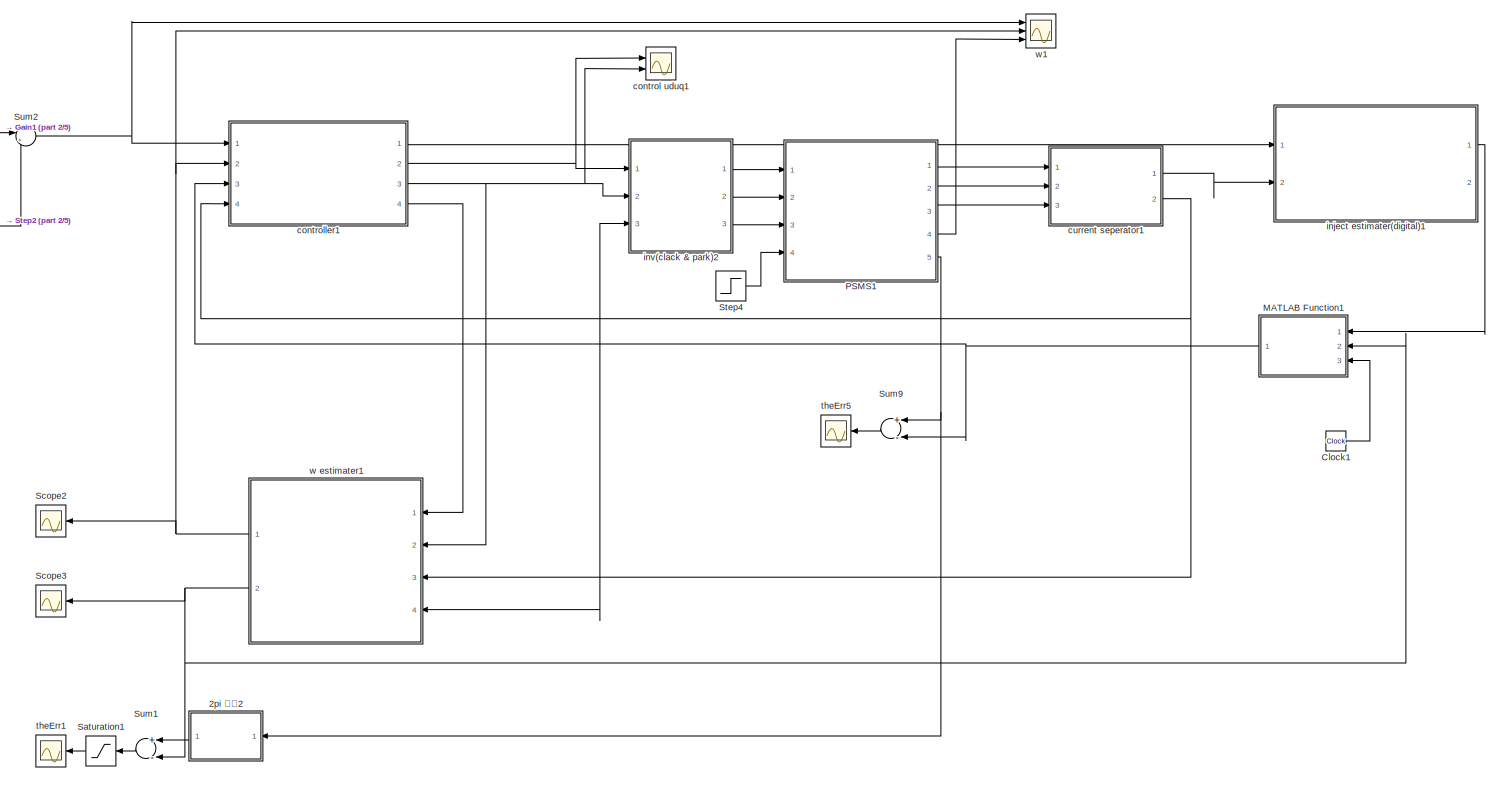
[diagram: 电压控制离散化 - part 1/5, top center region]
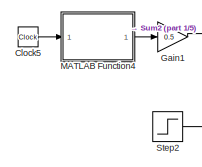
[diagram: 电压控制离散化 - part 2/5, top left region]
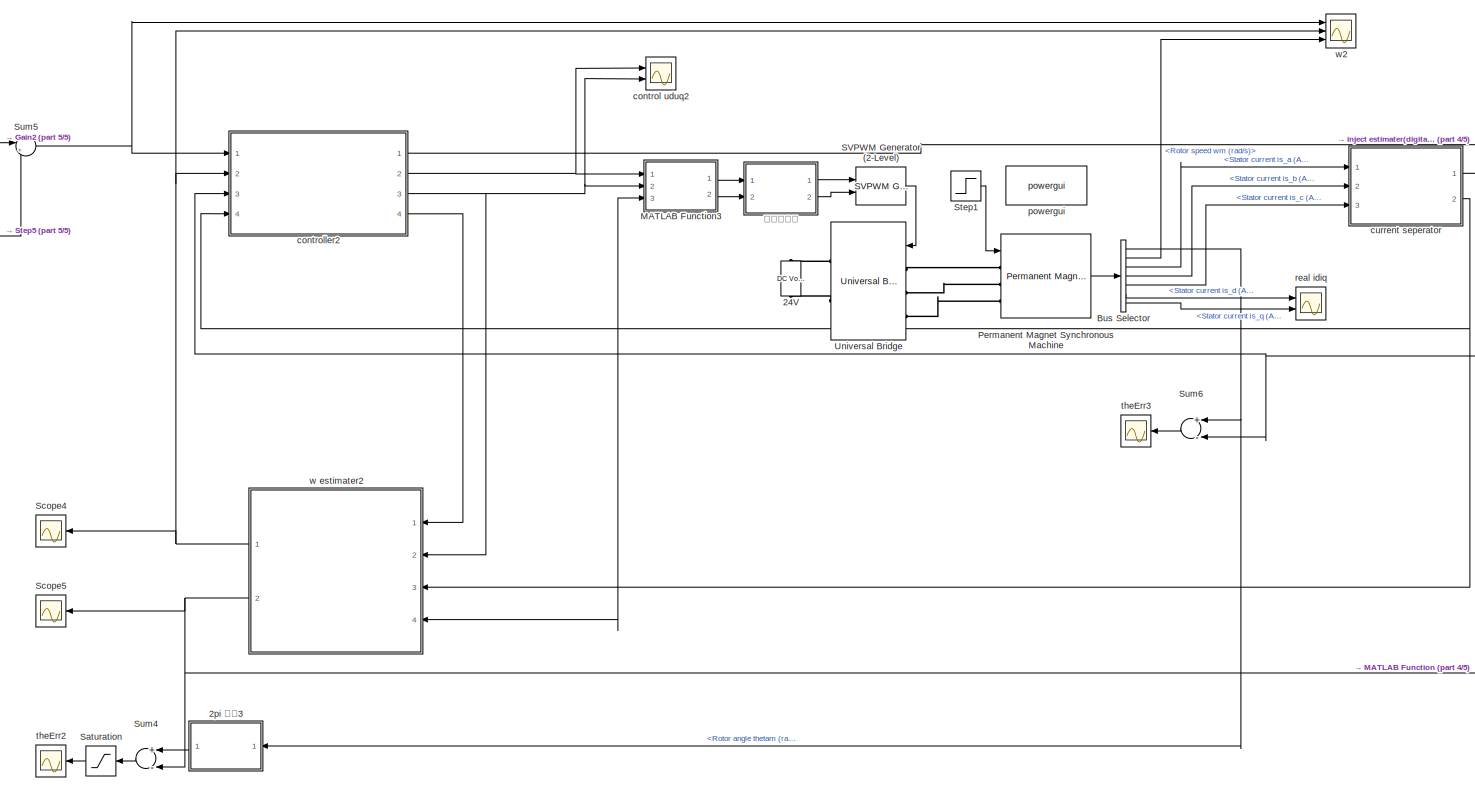
[diagram: 电压控制离散化 - part 3/5, bottom center region]
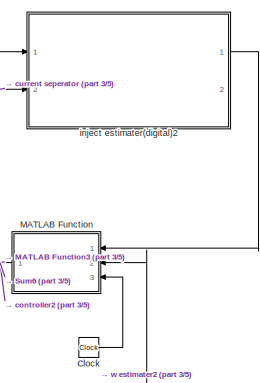
[diagram: 电压控制离散化 - part 4/5, bottom right region]
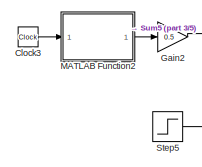
[diagram: 电压控制离散化 - part 5/5, middle left region]
BLOCK [SubSystem] 电压控制离散化
  Ports = []
  RequestExecContextInheritance = off
BLOCK [Reference] 电压控制离散化/24V  REF=powerlib/Electrical
Sources/DC Voltage Source
  Ports = [0, 0, 0, 0, 0, 1, 1]
  SourceBlock = powerlib/Electrical\nSources/DC Voltage Source
  SourceProductBaseCode = PS
  SourceProductName = Simscape Power Systems
  SourceType = DC Voltage Source
BLOCK [SubSystem] 电压控制离散化/2pi 限制2
  ErrorFcn = Stateflow.Translate.translate
  PermitHierarchicalResolution = ExplicitOnly
  Ports = [1, 1]
  RequestExecContextInheritance = off
  SFBlockType = MATLAB Function
  TreatAsAtomicUnit = on
BLOCK [Demux] 电压控制离散化/2pi 限制2/ Demux 
  Outputs = 1
  Ports = [1, 1]
BLOCK [S-Function] 电压控制离散化/2pi 限制2/ SFunction 
  EnableBusSupport = on
  FunctionName = sf_sfun
  PortCounts = [1 2]
  Ports = [1, 2]
  SFcnIsStateOwnerBlock = off
  SFunctionDeploymentMode = off
  Tag = Stateflow S-Function saved3 142
BLOCK [Terminator] 电压控制离散化/2pi 限制2/ Terminator 
BLOCK [Inport] 电压控制离散化/2pi 限制2/u
  IconDisplay = Port number
BLOCK [Outport] 电压控制离散化/2pi 限制2/y
  IconDisplay = Port number
BLOCK [SubSystem] 电压控制离散化/2pi 限制3
  ErrorFcn = Stateflow.Translate.translate
  PermitHierarchicalResolution = ExplicitOnly
  Ports = [1, 1]
  RequestExecContextInheritance = off
  SFBlockType = MATLAB Function
  TreatAsAtomicUnit = on
BLOCK [Demux] 电压控制离散化/2pi 限制3/ Demux 
  Outputs = 1
  Ports = [1, 1]
BLOCK [S-Function] 电压控制离散化/2pi 限制3/ SFunction 
  EnableBusSupport = on
  FunctionName = sf_sfun
  PortCounts = [1 2]
  Ports = [1, 2]
  SFcnIsStateOwnerBlock = off
  SFunctionDeploymentMode = off
  Tag = Stateflow S-Function saved3 119
BLOCK [Terminator] 电压控制离散化/2pi 限制3/ Terminator 
BLOCK [Inport] 电压控制离散化/2pi 限制3/u
  IconDisplay = Port number
BLOCK [Outport] 电压控制离散化/2pi 限制3/y
  IconDisplay = Port number
BLOCK [BusSelector] 电压控制离散化/Bus Selector
  OutputAsBus = off
  OutputSignals = Rotor angle thetam (rad),Rotor speed wm (rad/s),Stator current is_a (A),Stator current is_b (A),Stator current is_c (A),Stator current is_d (A),Stator current is_q (A)
  Ports = [1, 7]
BLOCK [Clock] 电压控制离散化/Clock
BLOCK [Clock] 电压控制离散化/Clock1
BLOCK [Clock] 电压控制离散化/Clock3
BLOCK [Clock] 电压控制离散化/Clock5
BLOCK [Gain] 电压控制离散化/Gain1
  Gain = 0.5
  OutDataTypeStr = Inherit: Inherit via internal rule
  ParamDataTypeStr = Inherit: Inherit via internal rule
  SaturateOnIntegerOverflow = off
BLOCK [Gain] 电压控制离散化/Gain2
  Gain = 0.5
  OutDataTypeStr = Inherit: Inherit via internal rule
  ParamDataTypeStr = Inherit: Inherit via internal rule
  SaturateOnIntegerOverflow = off
BLOCK [SubSystem] 电压控制离散化/MATLAB Function
  ErrorFcn = Stateflow.Translate.translate
  PermitHierarchicalResolution = ExplicitOnly
  Ports = [3, 1]
  RequestExecContextInheritance = off
  SFBlockType = MATLAB Function
  TreatAsAtomicUnit = on
BLOCK [Demux] 电压控制离散化/MATLAB Function/ Demux 
  Outputs = 1
  Ports = [1, 1]
BLOCK [S-Function] 电压控制离散化/MATLAB Function/ SFunction 
  EnableBusSupport = on
  FunctionName = sf_sfun
  PortCounts = [3 2]
  Ports = [3, 2]
  SFcnIsStateOwnerBlock = off
  SFunctionDeploymentMode = off
  Tag = Stateflow S-Function saved3 120
BLOCK [Terminator] 电压控制离散化/MATLAB Function/ Terminator 
BLOCK [Inport] 电压控制离散化/MATLAB Function/hfi
  IconDisplay = Port number
BLOCK [Inport] 电压控制离散化/MATLAB Function/mlo
  IconDisplay = Port number
  Port = 2
BLOCK [Inport] 电压控制离散化/MATLAB Function/t
  IconDisplay = Port number
  Port = 3
BLOCK [Outport] 电压控制离散化/MATLAB Function/theHat
  IconDisplay = Port number
BLOCK [SubSystem] 电压控制离散化/MATLAB Function1
  ErrorFcn = Stateflow.Translate.translate
  PermitHierarchicalResolution = ExplicitOnly
  Ports = [3, 1]
  RequestExecContextInheritance = off
  SFBlockType = MATLAB Function
  TreatAsAtomicUnit = on
BLOCK [Demux] 电压控制离散化/MATLAB Function1/ Demux 
  Outputs = 1
  Ports = [1, 1]
BLOCK [S-Function] 电压控制离散化/MATLAB Function1/ SFunction 
  EnableBusSupport = on
  FunctionName = sf_sfun
  PortCounts = [3 2]
  Ports = [3, 2]
  SFcnIsStateOwnerBlock = off
  SFunctionDeploymentMode = off
  Tag = Stateflow S-Function saved3 143
BLOCK [Terminator] 电压控制离散化/MATLAB Function1/ Terminator 
BLOCK [Inport] 电压控制离散化/MATLAB Function1/hfi
  IconDisplay = Port number
BLOCK [Inport] 电压控制离散化/MATLAB Function1/mlo
  IconDisplay = Port number
  Port = 2
BLOCK [Inport] 电压控制离散化/MATLAB Function1/t
  IconDisplay = Port number
  Port = 3
BLOCK [Outport] 电压控制离散化/MATLAB Function1/theHat
  IconDisplay = Port number
BLOCK [SubSystem] 电压控制离散化/MATLAB Function2
  ErrorFcn = Stateflow.Translate.translate
  PermitHierarchicalResolution = ExplicitOnly
  Ports = [1, 1]
  RequestExecContextInheritance = off
  SFBlockType = MATLAB Function
  TreatAsAtomicUnit = on
BLOCK [Demux] 电压控制离散化/MATLAB Function2/ Demux 
  Outputs = 1
  Ports = [1, 1]
BLOCK [S-Function] 电压控制离散化/MATLAB Function2/ SFunction 
  EnableBusSupport = on
  FunctionName = sf_sfun
  PortCounts = [1 2]
  Ports = [1, 2]
  SFcnIsStateOwnerBlock = off
  SFunctionDeploymentMode = off
  Tag = Stateflow S-Function saved3 121
BLOCK [Terminator] 电压控制离散化/MATLAB Function2/ Terminator 
BLOCK [Inport] 电压控制离散化/MATLAB Function2/t
  IconDisplay = Port number
BLOCK [Outport] 电压控制离散化/MATLAB Function2/y
  IconDisplay = Port number
BLOCK [SubSystem] 电压控制离散化/MATLAB Function3
  ErrorFcn = Stateflow.Translate.translate
  PermitHierarchicalResolution = ExplicitOnly
  Ports = [3, 2]
  RequestExecContextInheritance = off
  SFBlockType = MATLAB Function
  TreatAsAtomicUnit = on
BLOCK [Demux] 电压控制离散化/MATLAB Function3/ Demux 
  Outputs = 1
  Ports = [1, 1]
BLOCK [S-Function] 电压控制离散化/MATLAB Function3/ SFunction 
  EnableBusSupport = on
  FunctionName = sf_sfun
  PortCounts = [3 3]
  Ports = [3, 3]
  SFcnIsStateOwnerBlock = off
  SFunctionDeploymentMode = off
  Tag = Stateflow S-Function saved3 122
BLOCK [Terminator] 电压控制离散化/MATLAB Function3/ Terminator 
BLOCK [Inport] 电压控制离散化/MATLAB Function3/t
  IconDisplay = Port number
  Port = 3
BLOCK [Outport] 电压控制离散化/MATLAB Function3/ua
  IconDisplay = Port number
BLOCK [Outport] 电压控制离散化/MATLAB Function3/ub
  IconDisplay = Port number
  Port = 2
BLOCK [Inport] 电压控制离散化/MATLAB Function3/ud
  IconDisplay = Port number
BLOCK [Inport] 电压控制离散化/MATLAB Function3/uq
  IconDisplay = Port number
  Port = 2
BLOCK [SubSystem] 电压控制离散化/MATLAB Function4
  ErrorFcn = Stateflow.Translate.translate
  PermitHierarchicalResolution = ExplicitOnly
  Ports = [1, 1]
  RequestExecContextInheritance = off
  SFBlockType = MATLAB Function
  TreatAsAtomicUnit = on
BLOCK [Demux] 电压控制离散化/MATLAB Function4/ Demux 
  Outputs = 1
  Ports = [1, 1]
BLOCK [S-Function] 电压控制离散化/MATLAB Function4/ SFunction 
  EnableBusSupport = on
  FunctionName = sf_sfun
  PortCounts = [1 2]
  Ports = [1, 2]
  SFcnIsStateOwnerBlock = off
  SFunctionDeploymentMode = off
  Tag = Stateflow S-Function saved3 144
BLOCK [Terminator] 电压控制离散化/MATLAB Function4/ Terminator 
BLOCK [Inport] 电压控制离散化/MATLAB Function4/t
  IconDisplay = Port number
BLOCK [Outport] 电压控制离散化/MATLAB Function4/y
  IconDisplay = Port number
BLOCK [SubSystem] 电压控制离散化/PSMS1
  Ports = [4, 5]
  RequestExecContextInheritance = off
BLOCK [SubSystem] 电压控制离散化/PSMS1/PMSM dq
  Ports = [3, 4]
  RequestExecContextInheritance = off
BLOCK [Gain] 电压控制离散化/PSMS1/PMSM dq/Gain
  Gain = 1/2
  OutDataTypeStr = Inherit: Inherit via internal rule
  ParamDataTypeStr = Inherit: Inherit via internal rule
  SaturateOnIntegerOverflow = off
BLOCK [Gain] 电压控制离散化/PSMS1/PMSM dq/Gain1
  Gain = 1/2
  OutDataTypeStr = Inherit: Inherit via internal rule
  ParamDataTypeStr = Inherit: Inherit via internal rule
  SaturateOnIntegerOverflow = off
BLOCK [Integrator] 电压控制离散化/PSMS1/PMSM dq/Integrator
  Ports = [1, 1]
BLOCK [Integrator] 电压控制离散化/PSMS1/PMSM dq/Integrator1
  Ports = [1, 1]
BLOCK [Integrator] 电压控制离散化/PSMS1/PMSM dq/Integrator2
  Ports = [1, 1]
BLOCK [Integrator] 电压控制离散化/PSMS1/PMSM dq/Integrator3
  Ports = [1, 1]
BLOCK [SubSystem] 电压控制离散化/PSMS1/PMSM dq/MATLAB Function
  ErrorFcn = Stateflow.Translate.translate
  PermitHierarchicalResolution = ExplicitOnly
  Ports = [5, 2]
  RequestExecContextInheritance = off
  SFBlockType = MATLAB Function
  TreatAsAtomicUnit = on
BLOCK [Demux] 电压控制离散化/PSMS1/PMSM dq/MATLAB Function/ Demux 
  Outputs = 1
  Ports = [1, 1]
BLOCK [S-Function] 电压控制离散化/PSMS1/PMSM dq/MATLAB Function/ SFunction 
  EnableBusSupport = on
  FunctionName = sf_sfun
  PortCounts = [5 3]
  Ports = [5, 3]
  SFcnIsStateOwnerBlock = off
  SFunctionDeploymentMode = off
  Tag = Stateflow S-Function saved3 145
BLOCK [Terminator] 电压控制离散化/PSMS1/PMSM dq/MATLAB Function/ Terminator 
BLOCK [Outport] 电压控制离散化/PSMS1/PMSM dq/MATLAB Function/di1
  IconDisplay = Port number
BLOCK [Outport] 电压控制离散化/PSMS1/PMSM dq/MATLAB Function/di2
  IconDisplay = Port number
  Port = 2
BLOCK [Inport] 电压控制离散化/PSMS1/PMSM dq/MATLAB Function/i1
  IconDisplay = Port number
  Port = 3
BLOCK [Inport] 电压控制离散化/PSMS1/PMSM dq/MATLAB Function/i2
  IconDisplay = Port number
  Port = 4
BLOCK [Inport] 电压控制离散化/PSMS1/PMSM dq/MATLAB Function/u1
  IconDisplay = Port number
BLOCK [Inport] 电压控制离散化/PSMS1/PMSM dq/MATLAB Function/u2
  IconDisplay = Port number
  Port = 2
BLOCK [Inport] 电压控制离散化/PSMS1/PMSM dq/MATLAB Function/w
  IconDisplay = Port number
  Port = 5
BLOCK [SubSystem] 电压控制离散化/PSMS1/PMSM dq/MATLAB Function1
  ErrorFcn = Stateflow.Translate.translate
  PermitHierarchicalResolution = ExplicitOnly
  Ports = [4, 1]
  RequestExecContextInheritance = off
  SFBlockType = MATLAB Function
  TreatAsAtomicUnit = on
BLOCK [Demux] 电压控制离散化/PSMS1/PMSM dq/MATLAB Function1/ Demux 
  Outputs = 1
  Ports = [1, 1]
BLOCK [S-Function] 电压控制离散化/PSMS1/PMSM dq/MATLAB Function1/ SFunction 
  EnableBusSupport = on
  FunctionName = sf_sfun
  PortCounts = [4 2]
  Ports = [4, 2]
  SFcnIsStateOwnerBlock = off
  SFunctionDeploymentMode = off
  Tag = Stateflow S-Function saved3 146
BLOCK [Terminator] 电压控制离散化/PSMS1/PMSM dq/MATLAB Function1/ Terminator 
BLOCK [Outport] 电压控制离散化/PSMS1/PMSM dq/MATLAB Function1/dw
  IconDisplay = Port number
BLOCK [Inport] 电压控制离散化/PSMS1/PMSM dq/MATLAB Function1/i1
  IconDisplay = Port number
BLOCK [Inport] 电压控制离散化/PSMS1/PMSM dq/MATLAB Function1/i2
  IconDisplay = Port number
  Port = 2
BLOCK [Inport] 电压控制离散化/PSMS1/PMSM dq/MATLAB Function1/torE
  IconDisplay = Port number
  Port = 4
BLOCK [Inport] 电压控制离散化/PSMS1/PMSM dq/MATLAB Function1/w
  IconDisplay = Port number
  Port = 3
BLOCK [Sum] 电压控制离散化/PSMS1/PMSM dq/Sum
  IconShape = round
  InputSameDT = off
  Inputs = |++
  OutDataTypeStr = Inherit: Inherit via internal rule
  Ports = [2, 1]
  SaturateOnIntegerOverflow = off
BLOCK [Outport] 电压控制离散化/PSMS1/PMSM dq/i1
  IconDisplay = Port number
BLOCK [Outport] 电压控制离散化/PSMS1/PMSM dq/i2
  IconDisplay = Port number
  Port = 2
BLOCK [Outport] 电压控制离散化/PSMS1/PMSM dq/the
  IconDisplay = Port number
  Port = 4
BLOCK [Inport] 电压控制离散化/PSMS1/PMSM dq/torE
  IconDisplay = Port number
  Port = 3
BLOCK [Inport] 电压控制离散化/PSMS1/PMSM dq/u1
  IconDisplay = Port number
BLOCK [Inport] 电压控制离散化/PSMS1/PMSM dq/u2
  IconDisplay = Port number
  Port = 2
BLOCK [Outport] 电压控制离散化/PSMS1/PMSM dq/w
  IconDisplay = Port number
  Port = 3
BLOCK [Reference] 电压控制离散化/PSMS1/PMSM dq/角度增速测试  REF=simulink/Sources/Ramp
  Ports = [0, 1]
  SourceBlock = simulink/Sources/Ramp
  SourceProductBaseCode = SL
  SourceProductName = Simulink
  SourceType = Ramp
BLOCK [SubSystem] 电压控制离散化/PSMS1/clack & park
  ErrorFcn = Stateflow.Translate.translate
  PermitHierarchicalResolution = ExplicitOnly
  Ports = [4, 2]
  RequestExecContextInheritance = off
  SFBlockType = MATLAB Function
  TreatAsAtomicUnit = on
BLOCK [Demux] 电压控制离散化/PSMS1/clack & park/ Demux 
  Outputs = 1
  Ports = [1, 1]
BLOCK [S-Function] 电压控制离散化/PSMS1/clack & park/ SFunction 
  EnableBusSupport = on
  FunctionName = sf_sfun
  PortCounts = [4 3]
  Ports = [4, 3]
  SFcnIsStateOwnerBlock = off
  SFunctionDeploymentMode = off
  Tag = Stateflow S-Function saved3 147
BLOCK [Terminator] 电压控制离散化/PSMS1/clack & park/ Terminator 
BLOCK [Inport] 电压控制离散化/PSMS1/clack & park/t
  IconDisplay = Port number
  Port = 4
BLOCK [Outport] 电压控制离散化/PSMS1/clack & park/u1
  IconDisplay = Port number
BLOCK [Outport] 电压控制离散化/PSMS1/clack & park/u2
  IconDisplay = Port number
  Port = 2
BLOCK [Inport] 电压控制离散化/PSMS1/clack & park/ua
  IconDisplay = Port number
BLOCK [Inport] 电压控制离散化/PSMS1/clack & park/ub
  IconDisplay = Port number
  Port = 2
BLOCK [Inport] 电压控制离散化/PSMS1/clack & park/uc
  IconDisplay = Port number
  Port = 3
BLOCK [Outport] 电压控制离散化/PSMS1/ia
  IconDisplay = Port number
BLOCK [Outport] 电压控制离散化/PSMS1/ib
  IconDisplay = Port number
  Port = 2
BLOCK [Outport] 电压控制离散化/PSMS1/ic
  IconDisplay = Port number
  Port = 3
BLOCK [SubSystem] 电压控制离散化/PSMS1/inv(clack & park)
  ErrorFcn = Stateflow.Translate.translate
  PermitHierarchicalResolution = ExplicitOnly
  Ports = [3, 3]
  RequestExecContextInheritance = off
  SFBlockType = MATLAB Function
  TreatAsAtomicUnit = on
BLOCK [Demux] 电压控制离散化/PSMS1/inv(clack & park)/ Demux 
  Outputs = 1
  Ports = [1, 1]
BLOCK [S-Function] 电压控制离散化/PSMS1/inv(clack & park)/ SFunction 
  EnableBusSupport = on
  FunctionName = sf_sfun
  PortCounts = [3 4]
  Ports = [3, 4]
  SFcnIsStateOwnerBlock = off
  SFunctionDeploymentMode = off
  Tag = Stateflow S-Function saved3 148
BLOCK [Terminator] 电压控制离散化/PSMS1/inv(clack & park)/ Terminator 
BLOCK [Inport] 电压控制离散化/PSMS1/inv(clack & park)/t
  IconDisplay = Port number
  Port = 3
BLOCK [Inport] 电压控制离散化/PSMS1/inv(clack & park)/u1
  IconDisplay = Port number
BLOCK [Inport] 电压控制离散化/PSMS1/inv(clack & park)/u2
  IconDisplay = Port number
  Port = 2
BLOCK [Outport] 电压控制离散化/PSMS1/inv(clack & park)/ua
  IconDisplay = Port number
BLOCK [Outport] 电压控制离散化/PSMS1/inv(clack & park)/ub
  IconDisplay = Port number
  Port = 2
BLOCK [Outport] 电压控制离散化/PSMS1/inv(clack & park)/uc
  IconDisplay = Port number
  Port = 3
BLOCK [Scope] 电压控制离散化/PSMS1/real idiq
  Floating = off
  NumInputPorts = 2
  Ports = [2]
  ScopeSpecificationString = Simulink.scopes.TimeScopeBlockCfg('CurrentConfiguration', extmgr.ConfigurationSet(extmgr.Configuration('Core','General UI',true),extmgr.Configuration('Core','Source UI',true),extmgr.Configuration('Sources','WiredSimulink',true,'DataLoggingVariableName','ScopeData2'),extmgr.Configuration('Visuals','Time Domain',true,'SerializedDisplays',{struct('MinYLimReal','-23.43137','MaxYLimReal','23.62174','YL...<+1462ch>
BLOCK [Outport] 电压控制离散化/PSMS1/the
  IconDisplay = Port number
  Port = 5
BLOCK [Inport] 电压控制离散化/PSMS1/torE
  IconDisplay = Port number
  Port = 4
BLOCK [Inport] 电压控制离散化/PSMS1/ua
  IconDisplay = Port number
BLOCK [Inport] 电压控制离散化/PSMS1/ub
  IconDisplay = Port number
  Port = 2
BLOCK [Inport] 电压控制离散化/PSMS1/uc
  IconDisplay = Port number
  Port = 3
BLOCK [Outport] 电压控制离散化/PSMS1/w
  IconDisplay = Port number
  Port = 4
BLOCK [Reference] 电压控制离散化/Permanent Magnet Synchronous Machine  REF=powerlib/Machines/Permanent Magnet
Synchronous Machine
  Ports = [1, 1, 0, 0, 0, 3]
  SourceBlock = powerlib/Machines/Permanent Magnet\nSynchronous Machine
  SourceProductBaseCode = PS
  SourceProductName = Simscape Power Systems
  SourceType = Permanent Magnet Synchronous Machine
BLOCK [Reference] 电压控制离散化/SVPWM Generator (2-Level)  REF=powerlib_meascontrol/Pulse & Signal
Generators/SVPWM Generator
(2-Level)
  Ports = [2, 1]
  SourceBlock = powerlib_meascontrol/Pulse & Signal\nGenerators/SVPWM Generator\n(2-Level)
  SourceProductBaseCode = PS
  SourceProductName = Simscape Power Systems
  SourceType = SVPWM Generator (2-Level)
BLOCK [Saturate] 电压控制离散化/Saturation
  InputPortMap = u0
  LowerLimit = -1
  Ports = [1, 1]
  UpperLimit = 1
BLOCK [Saturate] 电压控制离散化/Saturation1
  InputPortMap = u0
  LowerLimit = -1
  Ports = [1, 1]
  UpperLimit = 1
BLOCK [Scope] 电压控制离散化/Scope2
  Floating = off
  NumInputPorts = 1
  Ports = [1]
  ScopeSpecificationString = Simulink.scopes.TimeScopeBlockCfg('CurrentConfiguration', extmgr.ConfigurationSet(extmgr.Configuration('Core','General UI',true),extmgr.Configuration('Core','Source UI',true),extmgr.Configuration('Sources','WiredSimulink',true,'DataLoggingVariableName','ScopeData19'),extmgr.Configuration('Visuals','Time Domain',true,'SerializedDisplays',{struct('MinYLimReal','-29.71163','MaxYLimReal','117.91325','...<+1427ch>
BLOCK [Scope] 电压控制离散化/Scope3
  Floating = off
  NumInputPorts = 1
  Ports = [1]
  ScopeSpecificationString = Simulink.scopes.TimeScopeBlockCfg('CurrentConfiguration', extmgr.ConfigurationSet(extmgr.Configuration('Core','General UI',true),extmgr.Configuration('Core','Source UI',true),extmgr.Configuration('Sources','WiredSimulink',true,'DataLoggingVariableName','ScopeData20'),extmgr.Configuration('Visuals','Time Domain',true,'SerializedDisplays',{struct('MinYLimReal','-3.92693','MaxYLimReal','3.92697','YLa...<+1417ch>
BLOCK [Scope] 电压控制离散化/Scope4
  Floating = off
  NumInputPorts = 1
  Ports = [1]
  ScopeSpecificationString = Simulink.scopes.TimeScopeBlockCfg('CurrentConfiguration', extmgr.ConfigurationSet(extmgr.Configuration('Core','General UI',true),extmgr.Configuration('Core','Source UI',true),extmgr.Configuration('Sources','WiredSimulink',true,'DataLoggingVariableName','ScopeData12'),extmgr.Configuration('Visuals','Time Domain',true,'SerializedDisplays',{struct('MinYLimReal','-29.71163','MaxYLimReal','117.91325','...<+1428ch>
BLOCK [Scope] 电压控制离散化/Scope5
  Floating = off
  NumInputPorts = 1
  Ports = [1]
  ScopeSpecificationString = Simulink.scopes.TimeScopeBlockCfg('CurrentConfiguration', extmgr.ConfigurationSet(extmgr.Configuration('Core','General UI',true),extmgr.Configuration('Core','Source UI',true),extmgr.Configuration('Sources','WiredSimulink',true,'DataLoggingVariableName','ScopeData13'),extmgr.Configuration('Visuals','Time Domain',true,'SerializedDisplays',{struct('MinYLimReal','-3.92693','MaxYLimReal','3.92697','YLa...<+1417ch>
BLOCK [Step] 电压控制离散化/Step1
  After = 0.25
  SampleTime = 0
  Time = 0.8
BLOCK [Step] 电压控制离散化/Step2
  After = 50
  SampleTime = 0
  Time = 2
BLOCK [Step] 电压控制离散化/Step4
  After = 0.5
  SampleTime = 0
BLOCK [Step] 电压控制离散化/Step5
  After = 50
  SampleTime = 0
  Time = 2
BLOCK [Sum] 电压控制离散化/Sum1
  InputSameDT = off
  Inputs = +-
  OutDataTypeStr = Inherit: Inherit via internal rule
  Ports = [2, 1]
  SaturateOnIntegerOverflow = off
BLOCK [Sum] 电压控制离散化/Sum2
  IconShape = round
  InputSameDT = off
  Inputs = |++
  OutDataTypeStr = Inherit: Inherit via internal rule
  Ports = [2, 1]
  SaturateOnIntegerOverflow = off
BLOCK [Sum] 电压控制离散化/Sum4
  InputSameDT = off
  Inputs = +-
  OutDataTypeStr = Inherit: Inherit via internal rule
  Ports = [2, 1]
  SaturateOnIntegerOverflow = off
BLOCK [Sum] 电压控制离散化/Sum5
  IconShape = round
  InputSameDT = off
  Inputs = |++
  OutDataTypeStr = Inherit: Inherit via internal rule
  Ports = [2, 1]
  SaturateOnIntegerOverflow = off
BLOCK [Sum] 电压控制离散化/Sum6
  InputSameDT = off
  Inputs = +-
  OutDataTypeStr = Inherit: Inherit via internal rule
  Ports = [2, 1]
  SaturateOnIntegerOverflow = off
BLOCK [Sum] 电压控制离散化/Sum9
  InputSameDT = off
  Inputs = +-
  OutDataTypeStr = Inherit: Inherit via internal rule
  Ports = [2, 1]
  SaturateOnIntegerOverflow = off
BLOCK [Reference] 电压控制离散化/Universal Bridge  REF=powerlib/Power
Electronics/Universal Bridge
  Ports = [1, 0, 0, 0, 0, 3, 2]
  SourceBlock = powerlib/Power\nElectronics/Universal Bridge
  SourceProductBaseCode = PS
  SourceProductName = Simscape Power Systems
  SourceType = Universal Bridge
BLOCK [Scope] 电压控制离散化/control uduq1
  Floating = off
  NumInputPorts = 2
  Ports = [2]
  ScopeSpecificationString = Simulink.scopes.TimeScopeBlockCfg('CurrentConfiguration', extmgr.ConfigurationSet(extmgr.Configuration('Core','General UI',true),extmgr.Configuration('Core','Source UI',true),extmgr.Configuration('Sources','WiredSimulink',true,'DataLoggingVariableName','ScopeData21'),extmgr.Configuration('Visuals','Time Domain',true,'SerializedDisplays',{struct('MinYLimReal','-25.00000','MaxYLimReal','25.00000','Y...<+1476ch>
BLOCK [Scope] 电压控制离散化/control uduq2
  Floating = off
  NumInputPorts = 2
  Ports = [2]
  ScopeSpecificationString = Simulink.scopes.TimeScopeBlockCfg('CurrentConfiguration', extmgr.ConfigurationSet(extmgr.Configuration('Core','General UI',true),extmgr.Configuration('Core','Source UI',true),extmgr.Configuration('Sources','WiredSimulink',true,'DataLoggingVariableName','ScopeData14'),extmgr.Configuration('Visuals','Time Domain',true,'SerializedDisplays',{struct('MinYLimReal','-25.00000','MaxYLimReal','25.00000','Y...<+1473ch>
BLOCK [SubSystem] 电压控制离散化/controller1
  Ports = [4, 4]
  RequestExecContextInheritance = off
BLOCK [Clock] 电压控制离散化/controller1/Clock
BLOCK [Clock] 电压控制离散化/controller1/Clock1
BLOCK [Clock] 电压控制离散化/controller1/Clock2
BLOCK [Constant] 电压控制离散化/controller1/Constant
  Value = 0
BLOCK [Constant] 电压控制离散化/controller1/Constant1
  Value = 10
BLOCK [Constant] 电压控制离散化/controller1/Constant3
  Value = 0
BLOCK [Demux] 电压控制离散化/controller1/Demux
  DisplayOption = bar
  Outputs = 3
  Ports = [1, 3]
BLOCK [Gain] 电压控制离散化/controller1/Gain3
  Gain = 4
  OutDataTypeStr = Inherit: Inherit via internal rule
  ParamDataTypeStr = Inherit: Inherit via internal rule
  SaturateOnIntegerOverflow = off
BLOCK [SubSystem] 电压控制离散化/controller1/MATLAB Function
  ErrorFcn = Stateflow.Translate.translate
  PermitHierarchicalResolution = ExplicitOnly
  Ports = [4, 1]
  RequestExecContextInheritance = off
  SFBlockType = MATLAB Function
  TreatAsAtomicUnit = on
BLOCK [Demux] 电压控制离散化/controller1/MATLAB Function/ Demux 
  Outputs = 1
  Ports = [1, 1]
BLOCK [S-Function] 电压控制离散化/controller1/MATLAB Function/ SFunction 
  EnableBusSupport = on
  FunctionName = sf_sfun
  PortCounts = [4 2]
  Ports = [4, 2]
  SFcnIsStateOwnerBlock = off
  SFunctionDeploymentMode = off
  Tag = Stateflow S-Function saved3 149
BLOCK [Terminator] 电压控制离散化/controller1/MATLAB Function/ Terminator 
BLOCK [Inport] 电压控制离散化/controller1/MATLAB Function/Switch
  IconDisplay = Port number
  Port = 3
BLOCK [Inport] 电压控制离散化/controller1/MATLAB Function/Vdirect
  IconDisplay = Port number
  Port = 2
BLOCK [Outport] 电压控制离散化/controller1/MATLAB Function/out
  IconDisplay = Port number
BLOCK [Inport] 电压控制离散化/controller1/MATLAB Function/t
  IconDisplay = Port number
  Port = 4
BLOCK [Inport] 电压控制离散化/controller1/MATLAB Function/wloop
  IconDisplay = Port number
BLOCK [SubSystem] 电压控制离散化/controller1/MATLAB Function1
  ErrorFcn = Stateflow.Translate.translate
  PermitHierarchicalResolution = ExplicitOnly
  Ports = [2, 1]
  RequestExecContextInheritance = off
  SFBlockType = MATLAB Function
  TreatAsAtomicUnit = on
BLOCK [Demux] 电压控制离散化/controller1/MATLAB Function1/ Demux 
  Outputs = 1
  Ports = [1, 1]
BLOCK [S-Function] 电压控制离散化/controller1/MATLAB Function1/ SFunction 
  EnableBusSupport = on
  FunctionName = sf_sfun
  PortCounts = [2 2]
  Ports = [2, 2]
  SFcnIsStateOwnerBlock = off
  SFunctionDeploymentMode = off
  Tag = Stateflow S-Function saved3 150
BLOCK [Terminator] 电压控制离散化/controller1/MATLAB Function1/ Terminator 
BLOCK [Inport] 电压控制离散化/controller1/MATLAB Function1/t
  IconDisplay = Port number
  Port = 2
BLOCK [Inport] 电压控制离散化/controller1/MATLAB Function1/u
  IconDisplay = Port number
BLOCK [Outport] 电压控制离散化/controller1/MATLAB Function1/y
  IconDisplay = Port number
BLOCK [SubSystem] 电压控制离散化/controller1/MATLAB Function2
  ErrorFcn = Stateflow.Translate.translate
  PermitHierarchicalResolution = ExplicitOnly
  Ports = [2, 1]
  RequestExecContextInheritance = off
  SFBlockType = MATLAB Function
  TreatAsAtomicUnit = on
BLOCK [Demux] 电压控制离散化/controller1/MATLAB Function2/ Demux 
  Outputs = 1
  Ports = [1, 1]
BLOCK [S-Function] 电压控制离散化/controller1/MATLAB Function2/ SFunction 
  EnableBusSupport = on
  FunctionName = sf_sfun
  PortCounts = [2 2]
  Ports = [2, 2]
  SFcnIsStateOwnerBlock = off
  SFunctionDeploymentMode = off
  Tag = Stateflow S-Function saved3 151
BLOCK [Terminator] 电压控制离散化/controller1/MATLAB Function2/ Terminator 
BLOCK [Inport] 电压控制离散化/controller1/MATLAB Function2/gate
  IconDisplay = Port number
BLOCK [Inport] 电压控制离散化/controller1/MATLAB Function2/u
  IconDisplay = Port number
  Port = 2
BLOCK [Outport] 电压控制离散化/controller1/MATLAB Function2/y
  IconDisplay = Port number
BLOCK [Reference] 电压控制离散化/controller1/PID Controller10  REF=simulink/Continuous/PID Controller
  Ports = [1, 1]
  SourceBlock = simulink/Continuous/PID Controller
  SourceProductBaseCode = SL
  SourceProductName = Simulink
  SourceType = PID 1dof
BLOCK [Reference] 电压控制离散化/controller1/PID Controller7  REF=simulink/Continuous/PID Controller
  Ports = [1, 1]
  SourceBlock = simulink/Continuous/PID Controller
  SourceProductBaseCode = SL
  SourceProductName = Simulink
  SourceType = PID 1dof
BLOCK [Reference] 电压控制离散化/controller1/PID Controller9  REF=simulink/Continuous/PID Controller
  Ports = [1, 1]
  SourceBlock = simulink/Continuous/PID Controller
  SourceProductBaseCode = SL
  SourceProductName = Simulink
  SourceType = PID 1dof
BLOCK [Saturate] 电压控制离散化/controller1/Saturation7
  InputPortMap = u0
  LowerLimit = -20
  Ports = [1, 1]
  UpperLimit = 20
BLOCK [Saturate] 电压控制离散化/controller1/Saturation8
  InputPortMap = u0
  LowerLimit = -20
  Ports = [1, 1]
  UpperLimit = 20
BLOCK [Sin] 电压控制离散化/controller1/Sine Wave3
  Frequency = 1000*2*pi
  Ports = [0, 1]
  SampleTime = 0
BLOCK [Sum] 电压控制离散化/controller1/Sum11
  IconShape = round
  InputSameDT = off
  Inputs = |+-
  OutDataTypeStr = Inherit: Inherit via internal rule
  Ports = [2, 1]
  SaturateOnIntegerOverflow = off
BLOCK [Sum] 电压控制离散化/controller1/Sum12
  IconShape = round
  InputSameDT = off
  Inputs = |+-
  OutDataTypeStr = Inherit: Inherit via internal rule
  Ports = [2, 1]
  SaturateOnIntegerOverflow = off
BLOCK [Sum] 电压控制离散化/controller1/Sum13
  IconShape = round
  InputSameDT = off
  Inputs = |+-
  OutDataTypeStr = Inherit: Inherit via internal rule
  Ports = [2, 1]
  SaturateOnIntegerOverflow = off
BLOCK [Sum] 电压控制离散化/controller1/Sum14
  InputSameDT = off
  OutDataTypeStr = Inherit: Inherit via internal rule
  Ports = [2, 1]
  SaturateOnIntegerOverflow = off
BLOCK [SubSystem] 电压控制离散化/controller1/clack & park1
  ErrorFcn = Stateflow.Translate.translate
  PermitHierarchicalResolution = ExplicitOnly
  Ports = [4, 2]
  RequestExecContextInheritance = off
  SFBlockType = MATLAB Function
  TreatAsAtomicUnit = on
BLOCK [Demux] 电压控制离散化/controller1/clack & park1/ Demux 
  Outputs = 1
  Ports = [1, 1]
BLOCK [S-Function] 电压控制离散化/controller1/clack & park1/ SFunction 
  EnableBusSupport = on
  FunctionName = sf_sfun
  PortCounts = [4 3]
  Ports = [4, 3]
  SFcnIsStateOwnerBlock = off
  SFunctionDeploymentMode = off
  Tag = Stateflow S-Function saved3 152
BLOCK [Terminator] 电压控制离散化/controller1/clack & park1/ Terminator 
BLOCK [Inport] 电压控制离散化/controller1/clack & park1/t
  IconDisplay = Port number
  Port = 4
BLOCK [Outport] 电压控制离散化/controller1/clack & park1/u1
  IconDisplay = Port number
BLOCK [Outport] 电压控制离散化/controller1/clack & park1/u2
  IconDisplay = Port number
  Port = 2
BLOCK [Inport] 电压控制离散化/controller1/clack & park1/ua
  IconDisplay = Port number
BLOCK [Inport] 电压控制离散化/controller1/clack & park1/ub
  IconDisplay = Port number
  Port = 2
BLOCK [Inport] 电压控制离散化/controller1/clack & park1/uc
  IconDisplay = Port number
  Port = 3
BLOCK [Inport] 电压控制离散化/controller1/low
  IconDisplay = Port number
  Port = 4
BLOCK [Inport] 电压控制离散化/controller1/the
  IconDisplay = Port number
  Port = 3
BLOCK [Outport] 电压控制离散化/controller1/u1
  IconDisplay = Port number
  Port = 2
BLOCK [Outport] 电压控制离散化/controller1/u1pure
  IconDisplay = Port number
  Port = 4
BLOCK [Outport] 电压控制离散化/controller1/u2
  IconDisplay = Port number
  Port = 3
BLOCK [Outport] 电压控制离散化/controller1/uject
  IconDisplay = Port number
BLOCK [Inport] 电压控制离散化/controller1/wb
  IconDisplay = Port number
  Port = 2
BLOCK [Inport] 电压控制离散化/controller1/wr
  IconDisplay = Port number
BLOCK [SubSystem] 电压控制离散化/controller1/方波注入
  Ports = [0, 1]
  RequestExecContextInheritance = off
BLOCK [Constant] 电压控制离散化/controller1/方波注入/Constant2
  Value = 0.5
BLOCK [Gain] 电压控制离散化/controller1/方波注入/Gain11
  Gain = 8
  OutDataTypeStr = Inherit: Inherit via internal rule
  ParamDataTypeStr = Inherit: Inherit via internal rule
  SaturateOnIntegerOverflow = off
BLOCK [Outport] 电压控制离散化/controller1/方波注入/Out1
  IconDisplay = Port number
BLOCK [DiscretePulseGenerator] 电压控制离散化/controller1/方波注入/Pulse Generator2
  Period = 1e-3
  Ports = [0, 1]
  PulseType = Time based
  PulseWidth = 50
BLOCK [Sum] 电压控制离散化/controller1/方波注入/Sum4
  IconShape = round
  InputSameDT = off
  Inputs = |+-
  OutDataTypeStr = Inherit: Inherit via internal rule
  Ports = [2, 1]
  SaturateOnIntegerOverflow = off
BLOCK [SubSystem] 电压控制离散化/controller2
  Ports = [4, 4]
  RequestExecContextInheritance = off
BLOCK [Clock] 电压控制离散化/controller2/Clock
BLOCK [Clock] 电压控制离散化/controller2/Clock1
BLOCK [Clock] 电压控制离散化/controller2/Clock2
BLOCK [Constant] 电压控制离散化/controller2/Constant
  Value = 0
BLOCK [Constant] 电压控制离散化/controller2/Constant1
  Value = 10
BLOCK [Constant] 电压控制离散化/controller2/Constant3
  Value = 0
BLOCK [Demux] 电压控制离散化/controller2/Demux
  DisplayOption = bar
  Outputs = 3
  Ports = [1, 3]
BLOCK [Gain] 电压控制离散化/controller2/Gain3
  Gain = 4
  OutDataTypeStr = Inherit: Inherit via internal rule
  ParamDataTypeStr = Inherit: Inherit via internal rule
  SaturateOnIntegerOverflow = off
BLOCK [SubSystem] 电压控制离散化/controller2/MATLAB Function
  ErrorFcn = Stateflow.Translate.translate
  PermitHierarchicalResolution = ExplicitOnly
  Ports = [4, 1]
  RequestExecContextInheritance = off
  SFBlockType = MATLAB Function
  TreatAsAtomicUnit = on
BLOCK [Demux] 电压控制离散化/controller2/MATLAB Function/ Demux 
  Outputs = 1
  Ports = [1, 1]
BLOCK [S-Function] 电压控制离散化/controller2/MATLAB Function/ SFunction 
  EnableBusSupport = on
  FunctionName = sf_sfun
  PortCounts = [4 2]
  Ports = [4, 2]
  SFcnIsStateOwnerBlock = off
  SFunctionDeploymentMode = off
  Tag = Stateflow S-Function saved3 124
BLOCK [Terminator] 电压控制离散化/controller2/MATLAB Function/ Terminator 
BLOCK [Inport] 电压控制离散化/controller2/MATLAB Function/Switch
  IconDisplay = Port number
  Port = 3
BLOCK [Inport] 电压控制离散化/controller2/MATLAB Function/Vdirect
  IconDisplay = Port number
  Port = 2
BLOCK [Outport] 电压控制离散化/controller2/MATLAB Function/out
  IconDisplay = Port number
BLOCK [Inport] 电压控制离散化/controller2/MATLAB Function/t
  IconDisplay = Port number
  Port = 4
BLOCK [Inport] 电压控制离散化/controller2/MATLAB Function/wloop
  IconDisplay = Port number
BLOCK [SubSystem] 电压控制离散化/controller2/MATLAB Function1
  ErrorFcn = Stateflow.Translate.translate
  PermitHierarchicalResolution = ExplicitOnly
  Ports = [2, 1]
  RequestExecContextInheritance = off
  SFBlockType = MATLAB Function
  TreatAsAtomicUnit = on
BLOCK [Demux] 电压控制离散化/controller2/MATLAB Function1/ Demux 
  Outputs = 1
  Ports = [1, 1]
BLOCK [S-Function] 电压控制离散化/controller2/MATLAB Function1/ SFunction 
  EnableBusSupport = on
  FunctionName = sf_sfun
  PortCounts = [2 2]
  Ports = [2, 2]
  SFcnIsStateOwnerBlock = off
  SFunctionDeploymentMode = off
  Tag = Stateflow S-Function saved3 125
BLOCK [Terminator] 电压控制离散化/controller2/MATLAB Function1/ Terminator 
BLOCK [Inport] 电压控制离散化/controller2/MATLAB Function1/t
  IconDisplay = Port number
  Port = 2
BLOCK [Inport] 电压控制离散化/controller2/MATLAB Function1/u
  IconDisplay = Port number
BLOCK [Outport] 电压控制离散化/controller2/MATLAB Function1/y
  IconDisplay = Port number
BLOCK [SubSystem] 电压控制离散化/controller2/MATLAB Function2
  ErrorFcn = Stateflow.Translate.translate
  PermitHierarchicalResolution = ExplicitOnly
  Ports = [2, 1]
  RequestExecContextInheritance = off
  SFBlockType = MATLAB Function
  TreatAsAtomicUnit = on
BLOCK [Demux] 电压控制离散化/controller2/MATLAB Function2/ Demux 
  Outputs = 1
  Ports = [1, 1]
BLOCK [S-Function] 电压控制离散化/controller2/MATLAB Function2/ SFunction 
  EnableBusSupport = on
  FunctionName = sf_sfun
  PortCounts = [2 2]
  Ports = [2, 2]
  SFcnIsStateOwnerBlock = off
  SFunctionDeploymentMode = off
  Tag = Stateflow S-Function saved3 126
BLOCK [Terminator] 电压控制离散化/controller2/MATLAB Function2/ Terminator 
BLOCK [Inport] 电压控制离散化/controller2/MATLAB Function2/gate
  IconDisplay = Port number
BLOCK [Inport] 电压控制离散化/controller2/MATLAB Function2/u
  IconDisplay = Port number
  Port = 2
BLOCK [Outport] 电压控制离散化/controller2/MATLAB Function2/y
  IconDisplay = Port number
BLOCK [Reference] 电压控制离散化/controller2/PID Controller10  REF=simulink/Continuous/PID Controller
  Ports = [1, 1]
  SourceBlock = simulink/Continuous/PID Controller
  SourceProductBaseCode = SL
  SourceProductName = Simulink
  SourceType = PID 1dof
BLOCK [Reference] 电压控制离散化/controller2/PID Controller7  REF=simulink/Continuous/PID Controller
  Ports = [1, 1]
  SourceBlock = simulink/Continuous/PID Controller
  SourceProductBaseCode = SL
  SourceProductName = Simulink
  SourceType = PID 1dof
BLOCK [Reference] 电压控制离散化/controller2/PID Controller9  REF=simulink/Continuous/PID Controller
  Ports = [1, 1]
  SourceBlock = simulink/Continuous/PID Controller
  SourceProductBaseCode = SL
  SourceProductName = Simulink
  SourceType = PID 1dof
BLOCK [Saturate] 电压控制离散化/controller2/Saturation7
  InputPortMap = u0
  LowerLimit = -20
  Ports = [1, 1]
  UpperLimit = 20
BLOCK [Saturate] 电压控制离散化/controller2/Saturation8
  InputPortMap = u0
  LowerLimit = -20
  Ports = [1, 1]
  UpperLimit = 20
BLOCK [Sin] 电压控制离散化/controller2/Sine Wave3
  Frequency = 1000*2*pi
  Ports = [0, 1]
  SampleTime = 0
BLOCK [Sum] 电压控制离散化/controller2/Sum11
  IconShape = round
  InputSameDT = off
  Inputs = |+-
  OutDataTypeStr = Inherit: Inherit via internal rule
  Ports = [2, 1]
  SaturateOnIntegerOverflow = off
BLOCK [Sum] 电压控制离散化/controller2/Sum12
  IconShape = round
  InputSameDT = off
  Inputs = |+-
  OutDataTypeStr = Inherit: Inherit via internal rule
  Ports = [2, 1]
  SaturateOnIntegerOverflow = off
BLOCK [Sum] 电压控制离散化/controller2/Sum13
  IconShape = round
  InputSameDT = off
  Inputs = |+-
  OutDataTypeStr = Inherit: Inherit via internal rule
  Ports = [2, 1]
  SaturateOnIntegerOverflow = off
BLOCK [Sum] 电压控制离散化/controller2/Sum14
  InputSameDT = off
  OutDataTypeStr = Inherit: Inherit via internal rule
  Ports = [2, 1]
  SaturateOnIntegerOverflow = off
BLOCK [SubSystem] 电压控制离散化/controller2/clack & park1
  ErrorFcn = Stateflow.Translate.translate
  PermitHierarchicalResolution = ExplicitOnly
  Ports = [4, 2]
  RequestExecContextInheritance = off
  SFBlockType = MATLAB Function
  TreatAsAtomicUnit = on
BLOCK [Demux] 电压控制离散化/controller2/clack & park1/ Demux 
  Outputs = 1
  Ports = [1, 1]
BLOCK [S-Function] 电压控制离散化/controller2/clack & park1/ SFunction 
  EnableBusSupport = on
  FunctionName = sf_sfun
  PortCounts = [4 3]
  Ports = [4, 3]
  SFcnIsStateOwnerBlock = off
  SFunctionDeploymentMode = off
  Tag = Stateflow S-Function saved3 127
BLOCK [Terminator] 电压控制离散化/controller2/clack & park1/ Terminator 
BLOCK [Inport] 电压控制离散化/controller2/clack & park1/t
  IconDisplay = Port number
  Port = 4
BLOCK [Outport] 电压控制离散化/controller2/clack & park1/u1
  IconDisplay = Port number
BLOCK [Outport] 电压控制离散化/controller2/clack & park1/u2
  IconDisplay = Port number
  Port = 2
BLOCK [Inport] 电压控制离散化/controller2/clack & park1/ua
  IconDisplay = Port number
BLOCK [Inport] 电压控制离散化/controller2/clack & park1/ub
  IconDisplay = Port number
  Port = 2
BLOCK [Inport] 电压控制离散化/controller2/clack & park1/uc
  IconDisplay = Port number
  Port = 3
BLOCK [Inport] 电压控制离散化/controller2/low
  IconDisplay = Port number
  Port = 4
BLOCK [Inport] 电压控制离散化/controller2/the
  IconDisplay = Port number
  Port = 3
BLOCK [Outport] 电压控制离散化/controller2/u1
  IconDisplay = Port number
  Port = 2
BLOCK [Outport] 电压控制离散化/controller2/u1pure
  IconDisplay = Port number
  Port = 4
BLOCK [Outport] 电压控制离散化/controller2/u2
  IconDisplay = Port number
  Port = 3
BLOCK [Outport] 电压控制离散化/controller2/uject
  IconDisplay = Port number
BLOCK [Inport] 电压控制离散化/controller2/wb
  IconDisplay = Port number
  Port = 2
BLOCK [Inport] 电压控制离散化/controller2/wr
  IconDisplay = Port number
BLOCK [SubSystem] 电压控制离散化/controller2/方波注入
  Ports = [0, 1]
  RequestExecContextInheritance = off
BLOCK [Constant] 电压控制离散化/controller2/方波注入/Constant2
  Value = 0.5
BLOCK [Gain] 电压控制离散化/controller2/方波注入/Gain11
  Gain = 8
  OutDataTypeStr = Inherit: Inherit via internal rule
  ParamDataTypeStr = Inherit: Inherit via internal rule
  SaturateOnIntegerOverflow = off
BLOCK [Outport] 电压控制离散化/controller2/方波注入/Out1
  IconDisplay = Port number
BLOCK [DiscretePulseGenerator] 电压控制离散化/controller2/方波注入/Pulse Generator2
  Period = 1e-3
  Ports = [0, 1]
  PulseType = Time based
  PulseWidth = 50
BLOCK [Sum] 电压控制离散化/controller2/方波注入/Sum4
  IconShape = round
  InputSameDT = off
  Inputs = |+-
  OutDataTypeStr = Inherit: Inherit via internal rule
  Ports = [2, 1]
  SaturateOnIntegerOverflow = off
BLOCK [SubSystem] 电压控制离散化/current seperator
  Ports = [3, 2]
  RequestExecContextInheritance = off
BLOCK [Outport] 电压控制离散化/current seperator/1000Hz
  IconDisplay = Port number
BLOCK [Mux] 电压控制离散化/current seperator/Mux
  DisplayOption = bar
  Inputs = 3
  Ports = [3, 1]
BLOCK [Mux] 电压控制离散化/current seperator/Mux1
  DisplayOption = bar
  Inputs = 3
  Ports = [3, 1]
BLOCK [TransferFcn] 电压控制离散化/current seperator/Transfer Fcn
  Denominator = [1 4e3 4e6]
  Numerator = [4e6]
BLOCK [TransferFcn] 电压控制离散化/current seperator/Transfer Fcn1
  Denominator = [1 6280 39e6]
  Numerator = [6280 0]
BLOCK [TransferFcn] 电压控制离散化/current seperator/Transfer Fcn2
  Denominator = [1 4e3 4e6]
  Numerator = [4e6]
BLOCK [TransferFcn] 电压控制离散化/current seperator/Transfer Fcn3
  Denominator = [1 6280 39e6]
  Numerator = [6280 0]
BLOCK [TransferFcn] 电压控制离散化/current seperator/Transfer Fcn4
  Denominator = [1 6280 39e6]
  Numerator = [6280 0]
BLOCK [TransferFcn] 电压控制离散化/current seperator/Transfer Fcn5
  Denominator = [1 4e3 4e6]
  Numerator = [4e6]
BLOCK [Inport] 电压控制离散化/current seperator/ia
  IconDisplay = Port number
BLOCK [Inport] 电压控制离散化/current seperator/ib
  IconDisplay = Port number
  Port = 2
BLOCK [Inport] 电压控制离散化/current seperator/ic
  IconDisplay = Port number
  Port = 3
BLOCK [Outport] 电压控制离散化/current seperator/low
  IconDisplay = Port number
  Port = 2
BLOCK [TransferFcn] 电压控制离散化/current seperator/带通滤波器1
  Denominator = [1 6280 39e6]
  Numerator = [6280 0]
BLOCK [TransferFcn] 电压控制离散化/current seperator/带通滤波器3
  Denominator = [1 6280 39e6]
  Numerator = [6280 0]
BLOCK [TransferFcn] 电压控制离散化/current seperator/带通滤波器4
  Denominator = [1 6280 39e6]
  Numerator = [6280 0]
BLOCK [TransferFcn] 电压控制离散化/current seperator/带阻滤波器
  Denominator = [1 6280 39e6]
  Numerator = [1 0 39e6]
BLOCK [TransferFcn] 电压控制离散化/current seperator/带阻滤波器1
  Denominator = [1 6280 39e6]
  Numerator = [1 0 39e6]
BLOCK [TransferFcn] 电压控制离散化/current seperator/带阻滤波器2
  Denominator = [1 6280 39e6]
  Numerator = [1 0 39e6]
BLOCK [SubSystem] 电压控制离散化/current seperator/电流采样
  Ports = [3, 3]
  RequestExecContextInheritance = off
BLOCK [Inport] 电压控制离散化/current seperator/电流采样/<Stator current is_a (A)>
  IconDisplay = Port number
BLOCK [Inport] 电压控制离散化/current seperator/电流采样/<Stator current is_b (A)>
  IconDisplay = Port number
  Port = 2
BLOCK [Inport] 电压控制离散化/current seperator/电流采样/<Stator current is_c (A)>
  IconDisplay = Port number
  Port = 3
BLOCK [SubSystem] 电压控制离散化/current seperator/电流采样/A//D转换 10KHz2
  ErrorFcn = Stateflow.Translate.translate
  PermitHierarchicalResolution = ExplicitOnly
  Ports = [1, 1]
  RequestExecContextInheritance = off
  SFBlockType = MATLAB Function
  SystemSampleTime = 1e-4
  TreatAsAtomicUnit = on
BLOCK [Demux] 电压控制离散化/current seperator/电流采样/A//D转换 10KHz2/ Demux 
  Outputs = 1
  Ports = [1, 1]
BLOCK [S-Function] 电压控制离散化/current seperator/电流采样/A//D转换 10KHz2/ SFunction 
  EnableBusSupport = on
  FunctionName = sf_sfun
  PortCounts = [1 2]
  Ports = [1, 2]
  SFcnIsStateOwnerBlock = off
  SFunctionDeploymentMode = off
  Tag = Stateflow S-Function saved3 128
BLOCK [Terminator] 电压控制离散化/current seperator/电流采样/A//D转换 10KHz2/ Terminator 
BLOCK [Inport] 电压控制离散化/current seperator/电流采样/A//D转换 10KHz2/u
  IconDisplay = Port number
BLOCK [Outport] 电压控制离散化/current seperator/电流采样/A//D转换 10KHz2/y
  IconDisplay = Port number
BLOCK [SubSystem] 电压控制离散化/current seperator/电流采样/A//D转换 10KHz3
  ErrorFcn = Stateflow.Translate.translate
  PermitHierarchicalResolution = ExplicitOnly
  Ports = [1, 1]
  RequestExecContextInheritance = off
  SFBlockType = MATLAB Function
  SystemSampleTime = 1e-4
  TreatAsAtomicUnit = on
BLOCK [Demux] 电压控制离散化/current seperator/电流采样/A//D转换 10KHz3/ Demux 
  Outputs = 1
  Ports = [1, 1]
BLOCK [S-Function] 电压控制离散化/current seperator/电流采样/A//D转换 10KHz3/ SFunction 
  EnableBusSupport = on
  FunctionName = sf_sfun
  PortCounts = [1 2]
  Ports = [1, 2]
  SFcnIsStateOwnerBlock = off
  SFunctionDeploymentMode = off
  Tag = Stateflow S-Function saved3 129
BLOCK [Terminator] 电压控制离散化/current seperator/电流采样/A//D转换 10KHz3/ Terminator 
BLOCK [Inport] 电压控制离散化/current seperator/电流采样/A//D转换 10KHz3/u
  IconDisplay = Port number
BLOCK [Outport] 电压控制离散化/current seperator/电流采样/A//D转换 10KHz3/y
  IconDisplay = Port number
BLOCK [SubSystem] 电压控制离散化/current seperator/电流采样/A//D转换 10KHz4
  ErrorFcn = Stateflow.Translate.translate
  PermitHierarchicalResolution = ExplicitOnly
  Ports = [1, 1]
  RequestExecContextInheritance = off
  SFBlockType = MATLAB Function
  SystemSampleTime = 1e-4
  TreatAsAtomicUnit = on
BLOCK [Demux] 电压控制离散化/current seperator/电流采样/A//D转换 10KHz4/ Demux 
  Outputs = 1
  Ports = [1, 1]
BLOCK [S-Function] 电压控制离散化/current seperator/电流采样/A//D转换 10KHz4/ SFunction 
  EnableBusSupport = on
  FunctionName = sf_sfun
  PortCounts = [1 2]
  Ports = [1, 2]
  SFcnIsStateOwnerBlock = off
  SFunctionDeploymentMode = off
  Tag = Stateflow S-Function saved3 131
BLOCK [Terminator] 电压控制离散化/current seperator/电流采样/A//D转换 10KHz4/ Terminator 
BLOCK [Inport] 电压控制离散化/current seperator/电流采样/A//D转换 10KHz4/u
  IconDisplay = Port number
BLOCK [Outport] 电压控制离散化/current seperator/电流采样/A//D转换 10KHz4/y
  IconDisplay = Port number
BLOCK [Scope] 电压控制离散化/current seperator/电流采样/Scope
  Floating = off
  NumInputPorts = 3
  Ports = [3]
  ScopeSpecificationString = Simulink.scopes.TimeScopeBlockCfg('CurrentConfiguration', extmgr.ConfigurationSet(extmgr.Configuration('Core','General UI',true),extmgr.Configuration('Core','Source UI',true),extmgr.Configuration('Sources','WiredSimulink',true,'DataLoggingVariableName','ScopeData2'),extmgr.Configuration('Visuals','Time Domain',true,'SerializedDisplays',{struct('MinYLimReal','-0.65375','MaxYLimReal','0.66375','YLab...<+1503ch>
BLOCK [Sum] 电压控制离散化/current seperator/电流采样/Sum1
  IconShape = round
  InputSameDT = off
  Inputs = |++
  OutDataTypeStr = Inherit: Inherit via internal rule
  Ports = [2, 1]
  SaturateOnIntegerOverflow = off
BLOCK [Sum] 电压控制离散化/current seperator/电流采样/Sum2
  IconShape = round
  InputSameDT = off
  Inputs = |++
  OutDataTypeStr = Inherit: Inherit via internal rule
  Ports = [2, 1]
  SaturateOnIntegerOverflow = off
BLOCK [Sum] 电压控制离散化/current seperator/电流采样/Sum3
  IconShape = round
  InputSameDT = off
  Inputs = |+-
  OutDataTypeStr = Inherit: Inherit via internal rule
  Ports = [2, 1]
  SaturateOnIntegerOverflow = off
BLOCK [Outport] 电压控制离散化/current seperator/电流采样/ia
  IconDisplay = Port number
BLOCK [Outport] 电压控制离散化/current seperator/电流采样/ib
  IconDisplay = Port number
  Port = 2
BLOCK [Outport] 电压控制离散化/current seperator/电流采样/ic
  IconDisplay = Port number
  Port = 3
BLOCK [Reference] 电压控制离散化/current seperator/电流采样/噪声 ia  REF=simulink/Sources/Band-Limited
White Noise
  Ports = [0, 1]
  SourceBlock = simulink/Sources/Band-Limited\nWhite Noise
  SourceProductBaseCode = SL
  SourceProductName = Simulink
  SourceType = Band-Limited White Noise.
BLOCK [Reference] 电压控制离散化/current seperator/电流采样/噪声 ib  REF=simulink/Sources/Band-Limited
White Noise
  Ports = [0, 1]
  SourceBlock = simulink/Sources/Band-Limited\nWhite Noise
  SourceProductBaseCode = SL
  SourceProductName = Simulink
  SourceType = Band-Limited White Noise.
BLOCK [Reference] 电压控制离散化/current seperator/电流采样/噪声 ic  REF=simulink/Sources/Band-Limited
White Noise
  Ports = [0, 1]
  SourceBlock = simulink/Sources/Band-Limited\nWhite Noise
  SourceProductBaseCode = SL
  SourceProductName = Simulink
  SourceType = Band-Limited White Noise.
BLOCK [SubSystem] 电压控制离散化/current seperator/电流采样1
  Ports = [3, 3]
  RequestExecContextInheritance = off
BLOCK [Inport] 电压控制离散化/current seperator/电流采样1/<Stator current is_a (A)>
  IconDisplay = Port number
BLOCK [Inport] 电压控制离散化/current seperator/电流采样1/<Stator current is_b (A)>
  IconDisplay = Port number
  Port = 2
BLOCK [Inport] 电压控制离散化/current seperator/电流采样1/<Stator current is_c (A)>
  IconDisplay = Port number
  Port = 3
BLOCK [SubSystem] 电压控制离散化/current seperator/电流采样1/A//D转换 10KHz2
  ErrorFcn = Stateflow.Translate.translate
  PermitHierarchicalResolution = ExplicitOnly
  Ports = [1, 1]
  RequestExecContextInheritance = off
  SFBlockType = MATLAB Function
  SystemSampleTime = 1e-4
  TreatAsAtomicUnit = on
BLOCK [Demux] 电压控制离散化/current seperator/电流采样1/A//D转换 10KHz2/ Demux 
  Outputs = 1
  Ports = [1, 1]
BLOCK [S-Function] 电压控制离散化/current seperator/电流采样1/A//D转换 10KHz2/ SFunction 
  EnableBusSupport = on
  FunctionName = sf_sfun
  PortCounts = [1 2]
  Ports = [1, 2]
  SFcnIsStateOwnerBlock = off
  SFunctionDeploymentMode = off
  Tag = Stateflow S-Function saved3 132
BLOCK [Terminator] 电压控制离散化/current seperator/电流采样1/A//D转换 10KHz2/ Terminator 
BLOCK [Inport] 电压控制离散化/current seperator/电流采样1/A//D转换 10KHz2/u
  IconDisplay = Port number
BLOCK [Outport] 电压控制离散化/current seperator/电流采样1/A//D转换 10KHz2/y
  IconDisplay = Port number
BLOCK [SubSystem] 电压控制离散化/current seperator/电流采样1/A//D转换 10KHz3
  ErrorFcn = Stateflow.Translate.translate
  PermitHierarchicalResolution = ExplicitOnly
  Ports = [1, 1]
  RequestExecContextInheritance = off
  SFBlockType = MATLAB Function
  SystemSampleTime = 1e-4
  TreatAsAtomicUnit = on
BLOCK [Demux] 电压控制离散化/current seperator/电流采样1/A//D转换 10KHz3/ Demux 
  Outputs = 1
  Ports = [1, 1]
BLOCK [S-Function] 电压控制离散化/current seperator/电流采样1/A//D转换 10KHz3/ SFunction 
  EnableBusSupport = on
  FunctionName = sf_sfun
  PortCounts = [1 2]
  Ports = [1, 2]
  SFcnIsStateOwnerBlock = off
  SFunctionDeploymentMode = off
  Tag = Stateflow S-Function saved3 133
BLOCK [Terminator] 电压控制离散化/current seperator/电流采样1/A//D转换 10KHz3/ Terminator 
BLOCK [Inport] 电压控制离散化/current seperator/电流采样1/A//D转换 10KHz3/u
  IconDisplay = Port number
BLOCK [Outport] 电压控制离散化/current seperator/电流采样1/A//D转换 10KHz3/y
  IconDisplay = Port number
BLOCK [SubSystem] 电压控制离散化/current seperator/电流采样1/A//D转换 10KHz4
  ErrorFcn = Stateflow.Translate.translate
  PermitHierarchicalResolution = ExplicitOnly
  Ports = [1, 1]
  RequestExecContextInheritance = off
  SFBlockType = MATLAB Function
  SystemSampleTime = 1e-4
  TreatAsAtomicUnit = on
BLOCK [Demux] 电压控制离散化/current seperator/电流采样1/A//D转换 10KHz4/ Demux 
  Outputs = 1
  Ports = [1, 1]
BLOCK [S-Function] 电压控制离散化/current seperator/电流采样1/A//D转换 10KHz4/ SFunction 
  EnableBusSupport = on
  FunctionName = sf_sfun
  PortCounts = [1 2]
  Ports = [1, 2]
  SFcnIsStateOwnerBlock = off
  SFunctionDeploymentMode = off
  Tag = Stateflow S-Function saved3 134
BLOCK [Terminator] 电压控制离散化/current seperator/电流采样1/A//D转换 10KHz4/ Terminator 
BLOCK [Inport] 电压控制离散化/current seperator/电流采样1/A//D转换 10KHz4/u
  IconDisplay = Port number
BLOCK [Outport] 电压控制离散化/current seperator/电流采样1/A//D转换 10KHz4/y
  IconDisplay = Port number
BLOCK [Scope] 电压控制离散化/current seperator/电流采样1/Scope
  Floating = off
  NumInputPorts = 3
  Ports = [3]
  ScopeSpecificationString = Simulink.scopes.TimeScopeBlockCfg('CurrentConfiguration', extmgr.ConfigurationSet(extmgr.Configuration('Core','General UI',true),extmgr.Configuration('Core','Source UI',true),extmgr.Configuration('Sources','WiredSimulink',true,'DataLoggingVariableName','ScopeData2'),extmgr.Configuration('Visuals','Time Domain',true,'SerializedDisplays',{struct('MinYLimReal','-25.48375','MaxYLimReal','25.25375','YL...<+1509ch>
BLOCK [Sum] 电压控制离散化/current seperator/电流采样1/Sum1
  IconShape = round
  InputSameDT = off
  Inputs = |++
  OutDataTypeStr = Inherit: Inherit via internal rule
  Ports = [2, 1]
  SaturateOnIntegerOverflow = off
BLOCK [Sum] 电压控制离散化/current seperator/电流采样1/Sum2
  IconShape = round
  InputSameDT = off
  Inputs = |++
  OutDataTypeStr = Inherit: Inherit via internal rule
  Ports = [2, 1]
  SaturateOnIntegerOverflow = off
BLOCK [Sum] 电压控制离散化/current seperator/电流采样1/Sum3
  IconShape = round
  InputSameDT = off
  Inputs = |+-
  OutDataTypeStr = Inherit: Inherit via internal rule
  Ports = [2, 1]
  SaturateOnIntegerOverflow = off
BLOCK [Outport] 电压控制离散化/current seperator/电流采样1/ia
  IconDisplay = Port number
BLOCK [Outport] 电压控制离散化/current seperator/电流采样1/ib
  IconDisplay = Port number
  Port = 2
BLOCK [Outport] 电压控制离散化/current seperator/电流采样1/ic
  IconDisplay = Port number
  Port = 3
BLOCK [Reference] 电压控制离散化/current seperator/电流采样1/噪声 ia  REF=simulink/Sources/Band-Limited
White Noise
  Ports = [0, 1]
  SourceBlock = simulink/Sources/Band-Limited\nWhite Noise
  SourceProductBaseCode = SL
  SourceProductName = Simulink
  SourceType = Band-Limited White Noise.
BLOCK [Reference] 电压控制离散化/current seperator/电流采样1/噪声 ib  REF=simulink/Sources/Band-Limited
White Noise
  Ports = [0, 1]
  SourceBlock = simulink/Sources/Band-Limited\nWhite Noise
  SourceProductBaseCode = SL
  SourceProductName = Simulink
  SourceType = Band-Limited White Noise.
BLOCK [Reference] 电压控制离散化/current seperator/电流采样1/噪声 ic  REF=simulink/Sources/Band-Limited
White Noise
  Ports = [0, 1]
  SourceBlock = simulink/Sources/Band-Limited\nWhite Noise
  SourceProductBaseCode = SL
  SourceProductName = Simulink
  SourceType = Band-Limited White Noise.
BLOCK [SubSystem] 电压控制离散化/current seperator1
  Ports = [3, 2]
  RequestExecContextInheritance = off
BLOCK [Outport] 电压控制离散化/current seperator1/1000Hz
  IconDisplay = Port number
BLOCK [Mux] 电压控制离散化/current seperator1/Mux
  DisplayOption = bar
  Inputs = 3
  Ports = [3, 1]
BLOCK [Mux] 电压控制离散化/current seperator1/Mux1
  DisplayOption = bar
  Inputs = 3
  Ports = [3, 1]
BLOCK [TransferFcn] 电压控制离散化/current seperator1/Transfer Fcn
  Denominator = [1 4e3 4e6]
  Numerator = [4e6]
BLOCK [TransferFcn] 电压控制离散化/current seperator1/Transfer Fcn1
  Denominator = [1 6280 39e6]
  Numerator = [6280 0]
BLOCK [TransferFcn] 电压控制离散化/current seperator1/Transfer Fcn2
  Denominator = [1 4e3 4e6]
  Numerator = [4e6]
BLOCK [TransferFcn] 电压控制离散化/current seperator1/Transfer Fcn3
  Denominator = [1 6280 39e6]
  Numerator = [6280 0]
BLOCK [TransferFcn] 电压控制离散化/current seperator1/Transfer Fcn4
  Denominator = [1 6280 39e6]
  Numerator = [6280 0]
BLOCK [TransferFcn] 电压控制离散化/current seperator1/Transfer Fcn5
  Denominator = [1 4e3 4e6]
  Numerator = [4e6]
BLOCK [Inport] 电压控制离散化/current seperator1/ia
  IconDisplay = Port number
BLOCK [Inport] 电压控制离散化/current seperator1/ib
  IconDisplay = Port number
  Port = 2
BLOCK [Inport] 电压控制离散化/current seperator1/ic
  IconDisplay = Port number
  Port = 3
BLOCK [Outport] 电压控制离散化/current seperator1/low
  IconDisplay = Port number
  Port = 2
BLOCK [TransferFcn] 电压控制离散化/current seperator1/带通滤波器1
  Denominator = [1 6280 39e6]
  Numerator = [6280 0]
BLOCK [TransferFcn] 电压控制离散化/current seperator1/带通滤波器3
  Denominator = [1 6280 39e6]
  Numerator = [6280 0]
BLOCK [TransferFcn] 电压控制离散化/current seperator1/带通滤波器4
  Denominator = [1 6280 39e6]
  Numerator = [6280 0]
BLOCK [TransferFcn] 电压控制离散化/current seperator1/带阻滤波器
  Denominator = [1 6280 39e6]
  Numerator = [1 0 39e6]
BLOCK [TransferFcn] 电压控制离散化/current seperator1/带阻滤波器1
  Denominator = [1 6280 39e6]
  Numerator = [1 0 39e6]
BLOCK [TransferFcn] 电压控制离散化/current seperator1/带阻滤波器2
  Denominator = [1 6280 39e6]
  Numerator = [1 0 39e6]
BLOCK [SubSystem] 电压控制离散化/current seperator1/电流采样
  Ports = [3, 3]
  RequestExecContextInheritance = off
BLOCK [Inport] 电压控制离散化/current seperator1/电流采样/<Stator current is_a (A)>
  IconDisplay = Port number
BLOCK [Inport] 电压控制离散化/current seperator1/电流采样/<Stator current is_b (A)>
  IconDisplay = Port number
  Port = 2
BLOCK [Inport] 电压控制离散化/current seperator1/电流采样/<Stator current is_c (A)>
  IconDisplay = Port number
  Port = 3
BLOCK [SubSystem] 电压控制离散化/current seperator1/电流采样/A//D转换 10KHz2
  ErrorFcn = Stateflow.Translate.translate
  PermitHierarchicalResolution = ExplicitOnly
  Ports = [1, 1]
  RequestExecContextInheritance = off
  SFBlockType = MATLAB Function
  SystemSampleTime = 1e-4
  TreatAsAtomicUnit = on
BLOCK [Demux] 电压控制离散化/current seperator1/电流采样/A//D转换 10KHz2/ Demux 
  Outputs = 1
  Ports = [1, 1]
BLOCK [S-Function] 电压控制离散化/current seperator1/电流采样/A//D转换 10KHz2/ SFunction 
  EnableBusSupport = on
  FunctionName = sf_sfun
  PortCounts = [1 2]
  Ports = [1, 2]
  SFcnIsStateOwnerBlock = off
  SFunctionDeploymentMode = off
  Tag = Stateflow S-Function saved3 153
BLOCK [Terminator] 电压控制离散化/current seperator1/电流采样/A//D转换 10KHz2/ Terminator 
BLOCK [Inport] 电压控制离散化/current seperator1/电流采样/A//D转换 10KHz2/u
  IconDisplay = Port number
BLOCK [Outport] 电压控制离散化/current seperator1/电流采样/A//D转换 10KHz2/y
  IconDisplay = Port number
BLOCK [SubSystem] 电压控制离散化/current seperator1/电流采样/A//D转换 10KHz3
  ErrorFcn = Stateflow.Translate.translate
  PermitHierarchicalResolution = ExplicitOnly
  Ports = [1, 1]
  RequestExecContextInheritance = off
  SFBlockType = MATLAB Function
  SystemSampleTime = 1e-4
  TreatAsAtomicUnit = on
BLOCK [Demux] 电压控制离散化/current seperator1/电流采样/A//D转换 10KHz3/ Demux 
  Outputs = 1
  Ports = [1, 1]
BLOCK [S-Function] 电压控制离散化/current seperator1/电流采样/A//D转换 10KHz3/ SFunction 
  EnableBusSupport = on
  FunctionName = sf_sfun
  PortCounts = [1 2]
  Ports = [1, 2]
  SFcnIsStateOwnerBlock = off
  SFunctionDeploymentMode = off
  Tag = Stateflow S-Function saved3 154
BLOCK [Terminator] 电压控制离散化/current seperator1/电流采样/A//D转换 10KHz3/ Terminator 
BLOCK [Inport] 电压控制离散化/current seperator1/电流采样/A//D转换 10KHz3/u
  IconDisplay = Port number
BLOCK [Outport] 电压控制离散化/current seperator1/电流采样/A//D转换 10KHz3/y
  IconDisplay = Port number
BLOCK [SubSystem] 电压控制离散化/current seperator1/电流采样/A//D转换 10KHz4
  ErrorFcn = Stateflow.Translate.translate
  PermitHierarchicalResolution = ExplicitOnly
  Ports = [1, 1]
  RequestExecContextInheritance = off
  SFBlockType = MATLAB Function
  SystemSampleTime = 1e-4
  TreatAsAtomicUnit = on
BLOCK [Demux] 电压控制离散化/current seperator1/电流采样/A//D转换 10KHz4/ Demux 
  Outputs = 1
  Ports = [1, 1]
BLOCK [S-Function] 电压控制离散化/current seperator1/电流采样/A//D转换 10KHz4/ SFunction 
  EnableBusSupport = on
  FunctionName = sf_sfun
  PortCounts = [1 2]
  Ports = [1, 2]
  SFcnIsStateOwnerBlock = off
  SFunctionDeploymentMode = off
  Tag = Stateflow S-Function saved3 155
BLOCK [Terminator] 电压控制离散化/current seperator1/电流采样/A//D转换 10KHz4/ Terminator 
BLOCK [Inport] 电压控制离散化/current seperator1/电流采样/A//D转换 10KHz4/u
  IconDisplay = Port number
BLOCK [Outport] 电压控制离散化/current seperator1/电流采样/A//D转换 10KHz4/y
  IconDisplay = Port number
BLOCK [Scope] 电压控制离散化/current seperator1/电流采样/Scope
  Floating = off
  NumInputPorts = 3
  Ports = [3]
  ScopeSpecificationString = Simulink.scopes.TimeScopeBlockCfg('CurrentConfiguration', extmgr.ConfigurationSet(extmgr.Configuration('Core','General UI',true),extmgr.Configuration('Core','Source UI',true),extmgr.Configuration('Sources','WiredSimulink',true,'DataLoggingVariableName','ScopeData2'),extmgr.Configuration('Visuals','Time Domain',true,'SerializedDisplays',{struct('MinYLimReal','-28.47125','MaxYLimReal','28.14125','YL...<+1509ch>  <repeated x8 — deduplicated; at blocks: Scope>
BLOCK [Sum] 电压控制离散化/current seperator1/电流采样/Sum1
  IconShape = round
  InputSameDT = off
  Inputs = |++
  OutDataTypeStr = Inherit: Inherit via internal rule
  Ports = [2, 1]
  SaturateOnIntegerOverflow = off
BLOCK [Sum] 电压控制离散化/current seperator1/电流采样/Sum2
  IconShape = round
  InputSameDT = off
  Inputs = |++
  OutDataTypeStr = Inherit: Inherit via internal rule
  Ports = [2, 1]
  SaturateOnIntegerOverflow = off
BLOCK [Sum] 电压控制离散化/current seperator1/电流采样/Sum3
  IconShape = round
  InputSameDT = off
  Inputs = |+-
  OutDataTypeStr = Inherit: Inherit via internal rule
  Ports = [2, 1]
  SaturateOnIntegerOverflow = off
BLOCK [Outport] 电压控制离散化/current seperator1/电流采样/ia
  IconDisplay = Port number
BLOCK [Outport] 电压控制离散化/current seperator1/电流采样/ib
  IconDisplay = Port number
  Port = 2
BLOCK [Outport] 电压控制离散化/current seperator1/电流采样/ic
  IconDisplay = Port number
  Port = 3
BLOCK [Reference] 电压控制离散化/current seperator1/电流采样/噪声 ia  REF=simulink/Sources/Band-Limited
White Noise
  Ports = [0, 1]
  SourceBlock = simulink/Sources/Band-Limited\nWhite Noise
  SourceProductBaseCode = SL
  SourceProductName = Simulink
  SourceType = Band-Limited White Noise.
BLOCK [Reference] 电压控制离散化/current seperator1/电流采样/噪声 ib  REF=simulink/Sources/Band-Limited
White Noise
  Ports = [0, 1]
  SourceBlock = simulink/Sources/Band-Limited\nWhite Noise
  SourceProductBaseCode = SL
  SourceProductName = Simulink
  SourceType = Band-Limited White Noise.
BLOCK [Reference] 电压控制离散化/current seperator1/电流采样/噪声 ic  REF=simulink/Sources/Band-Limited
White Noise
  Ports = [0, 1]
  SourceBlock = simulink/Sources/Band-Limited\nWhite Noise
  SourceProductBaseCode = SL
  SourceProductName = Simulink
  SourceType = Band-Limited White Noise.
BLOCK [SubSystem] 电压控制离散化/current seperator1/电流采样1
  Ports = [3, 3]
  RequestExecContextInheritance = off
BLOCK [Inport] 电压控制离散化/current seperator1/电流采样1/<Stator current is_a (A)>
  IconDisplay = Port number
BLOCK [Inport] 电压控制离散化/current seperator1/电流采样1/<Stator current is_b (A)>
  IconDisplay = Port number
  Port = 2
BLOCK [Inport] 电压控制离散化/current seperator1/电流采样1/<Stator current is_c (A)>
  IconDisplay = Port number
  Port = 3
BLOCK [SubSystem] 电压控制离散化/current seperator1/电流采样1/A//D转换 10KHz2
  ErrorFcn = Stateflow.Translate.translate
  PermitHierarchicalResolution = ExplicitOnly
  Ports = [1, 1]
  RequestExecContextInheritance = off
  SFBlockType = MATLAB Function
  SystemSampleTime = 1e-4
  TreatAsAtomicUnit = on
BLOCK [Demux] 电压控制离散化/current seperator1/电流采样1/A//D转换 10KHz2/ Demux 
  Outputs = 1
  Ports = [1, 1]
BLOCK [S-Function] 电压控制离散化/current seperator1/电流采样1/A//D转换 10KHz2/ SFunction 
  EnableBusSupport = on
  FunctionName = sf_sfun
  PortCounts = [1 2]
  Ports = [1, 2]
  SFcnIsStateOwnerBlock = off
  SFunctionDeploymentMode = off
  Tag = Stateflow S-Function saved3 156
BLOCK [Terminator] 电压控制离散化/current seperator1/电流采样1/A//D转换 10KHz2/ Terminator 
BLOCK [Inport] 电压控制离散化/current seperator1/电流采样1/A//D转换 10KHz2/u
  IconDisplay = Port number
BLOCK [Outport] 电压控制离散化/current seperator1/电流采样1/A//D转换 10KHz2/y
  IconDisplay = Port number
BLOCK [SubSystem] 电压控制离散化/current seperator1/电流采样1/A//D转换 10KHz3
  ErrorFcn = Stateflow.Translate.translate
  PermitHierarchicalResolution = ExplicitOnly
  Ports = [1, 1]
  RequestExecContextInheritance = off
  SFBlockType = MATLAB Function
  SystemSampleTime = 1e-4
  TreatAsAtomicUnit = on
BLOCK [Demux] 电压控制离散化/current seperator1/电流采样1/A//D转换 10KHz3/ Demux 
  Outputs = 1
  Ports = [1, 1]
BLOCK [S-Function] 电压控制离散化/current seperator1/电流采样1/A//D转换 10KHz3/ SFunction 
  EnableBusSupport = on
  FunctionName = sf_sfun
  PortCounts = [1 2]
  Ports = [1, 2]
  SFcnIsStateOwnerBlock = off
  SFunctionDeploymentMode = off
  Tag = Stateflow S-Function saved3 157
BLOCK [Terminator] 电压控制离散化/current seperator1/电流采样1/A//D转换 10KHz3/ Terminator 
BLOCK [Inport] 电压控制离散化/current seperator1/电流采样1/A//D转换 10KHz3/u
  IconDisplay = Port number
BLOCK [Outport] 电压控制离散化/current seperator1/电流采样1/A//D转换 10KHz3/y
  IconDisplay = Port number
BLOCK [SubSystem] 电压控制离散化/current seperator1/电流采样1/A//D转换 10KHz4
  ErrorFcn = Stateflow.Translate.translate
  PermitHierarchicalResolution = ExplicitOnly
  Ports = [1, 1]
  RequestExecContextInheritance = off
  SFBlockType = MATLAB Function
  SystemSampleTime = 1e-4
  TreatAsAtomicUnit = on
BLOCK [Demux] 电压控制离散化/current seperator1/电流采样1/A//D转换 10KHz4/ Demux 
  Outputs = 1
  Ports = [1, 1]
BLOCK [S-Function] 电压控制离散化/current seperator1/电流采样1/A//D转换 10KHz4/ SFunction 
  EnableBusSupport = on
  FunctionName = sf_sfun
  PortCounts = [1 2]
  Ports = [1, 2]
  SFcnIsStateOwnerBlock = off
  SFunctionDeploymentMode = off
  Tag = Stateflow S-Function saved3 158
BLOCK [Terminator] 电压控制离散化/current seperator1/电流采样1/A//D转换 10KHz4/ Terminator 
BLOCK [Inport] 电压控制离散化/current seperator1/电流采样1/A//D转换 10KHz4/u
  IconDisplay = Port number
BLOCK [Outport] 电压控制离散化/current seperator1/电流采样1/A//D转换 10KHz4/y
  IconDisplay = Port number
BLOCK [Scope] 电压控制离散化/current seperator1/电流采样1/Scope
  Floating = off
  NumInputPorts = 3
  Ports = [3]
BLOCK [Sum] 电压控制离散化/current seperator1/电流采样1/Sum1
  IconShape = round
  InputSameDT = off
  Inputs = |++
  OutDataTypeStr = Inherit: Inherit via internal rule
  Ports = [2, 1]
  SaturateOnIntegerOverflow = off
BLOCK [Sum] 电压控制离散化/current seperator1/电流采样1/Sum2
  IconShape = round
  InputSameDT = off
  Inputs = |++
  OutDataTypeStr = Inherit: Inherit via internal rule
  Ports = [2, 1]
  SaturateOnIntegerOverflow = off
BLOCK [Sum] 电压控制离散化/current seperator1/电流采样1/Sum3
  IconShape = round
  InputSameDT = off
  Inputs = |+-
  OutDataTypeStr = Inherit: Inherit via internal rule
  Ports = [2, 1]
  SaturateOnIntegerOverflow = off
BLOCK [Outport] 电压控制离散化/current seperator1/电流采样1/ia
  IconDisplay = Port number
BLOCK [Outport] 电压控制离散化/current seperator1/电流采样1/ib
  IconDisplay = Port number
  Port = 2
BLOCK [Outport] 电压控制离散化/current seperator1/电流采样1/ic
  IconDisplay = Port number
  Port = 3
BLOCK [Reference] 电压控制离散化/current seperator1/电流采样1/噪声 ia  REF=simulink/Sources/Band-Limited
White Noise
  Ports = [0, 1]
  SourceBlock = simulink/Sources/Band-Limited\nWhite Noise
  SourceProductBaseCode = SL
  SourceProductName = Simulink
  SourceType = Band-Limited White Noise.
BLOCK [Reference] 电压控制离散化/current seperator1/电流采样1/噪声 ib  REF=simulink/Sources/Band-Limited
White Noise
  Ports = [0, 1]
  SourceBlock = simulink/Sources/Band-Limited\nWhite Noise
  SourceProductBaseCode = SL
  SourceProductName = Simulink
  SourceType = Band-Limited White Noise.
BLOCK [Reference] 电压控制离散化/current seperator1/电流采样1/噪声 ic  REF=simulink/Sources/Band-Limited
White Noise
  Ports = [0, 1]
  SourceBlock = simulink/Sources/Band-Limited\nWhite Noise
  SourceProductBaseCode = SL
  SourceProductName = Simulink
  SourceType = Band-Limited White Noise.
BLOCK [SubSystem] 电压控制离散化/inject estimater(digital)1
  Ports = [2, 2]
  RequestExecContextInheritance = off
BLOCK [Constant] 电压控制离散化/inject estimater(digital)1/Constant2
  Value = 1000
BLOCK [Constant] 电压控制离散化/inject estimater(digital)1/Constant3
  Value = 0.3
BLOCK [Delay] 电压控制离散化/inject estimater(digital)1/Delay
  DelayLength = 1
  InputPortMap = u0
  Ports = [1, 1]
BLOCK [Demux] 电压控制离散化/inject estimater(digital)1/Demux
  DisplayOption = bar
  Outputs = 3
  Ports = [1, 3]
BLOCK [Gain] 电压控制离散化/inject estimater(digital)1/Gain2
  Gain = -3
  OutDataTypeStr = Inherit: Inherit via internal rule
  ParamDataTypeStr = Inherit: Inherit via internal rule
  SaturateOnIntegerOverflow = off
BLOCK [Gain] 电压控制离散化/inject estimater(digital)1/Gain3
  Gain = 0.01
  OutDataTypeStr = Inherit: Inherit via internal rule
  ParamDataTypeStr = Inherit: Inherit via internal rule
  SaturateOnIntegerOverflow = off
BLOCK [Inport] 电压控制离散化/inject estimater(digital)1/In3
  IconDisplay = Port number
  Port = 2
BLOCK [Scope] 电压控制离散化/inject estimater(digital)1/Scope2
  Floating = off
  NumInputPorts = 1
  Ports = [1]
  ScopeSpecificationString = Simulink.scopes.TimeScopeBlockCfg('CurrentConfiguration', extmgr.ConfigurationSet(extmgr.Configuration('Core','General UI',true),extmgr.Configuration('Core','Source UI',true),extmgr.Configuration('Sources','WiredSimulink',true,'DataLoggingVariableName','ScopeData8'),extmgr.Configuration('Visuals','Time Domain',true,'SerializedDisplays',{struct('MinYLimReal','-12.17305','MaxYLimReal','10.85044','YL...<+1445ch>  <repeated x4 — deduplicated; at blocks: Scope2>
BLOCK [Scope] 电压控制离散化/inject estimater(digital)1/Scope3
  Floating = off
  NumInputPorts = 2
  Ports = [2]
  ScopeSpecificationString = Simulink.scopes.TimeScopeBlockCfg('CurrentConfiguration', extmgr.ConfigurationSet(extmgr.Configuration('Core','General UI',true),extmgr.Configuration('Core','Source UI',true),extmgr.Configuration('Sources','WiredSimulink',true,'DataLoggingVariableName','ScopeData9'),extmgr.Configuration('Visuals','Time Domain',true,'SerializedDisplays',{struct('MinYLimReal','-0.06222','MaxYLimReal','0.07455','YLab...<+1433ch>  <repeated x4 — deduplicated; at blocks: Scope3>
BLOCK [Sum] 电压控制离散化/inject estimater(digital)1/Sum1
  IconShape = round
  InputSameDT = off
  Inputs = |++
  OutDataTypeStr = Inherit: Inherit via internal rule
  Ports = [2, 1]
  SaturateOnIntegerOverflow = off
BLOCK [SubSystem] 电压控制离散化/inject estimater(digital)1/clack & park2
  ErrorFcn = Stateflow.Translate.translate
  PermitHierarchicalResolution = ExplicitOnly
  Ports = [4, 2]
  RequestExecContextInheritance = off
  SFBlockType = MATLAB Function
  TreatAsAtomicUnit = on
BLOCK [Demux] 电压控制离散化/inject estimater(digital)1/clack & park2/ Demux 
  Outputs = 1
  Ports = [1, 1]
BLOCK [S-Function] 电压控制离散化/inject estimater(digital)1/clack & park2/ SFunction 
  EnableBusSupport = on
  FunctionName = sf_sfun
  PortCounts = [4 3]
  Ports = [4, 3]
  SFcnIsStateOwnerBlock = off
  SFunctionDeploymentMode = off
  Tag = Stateflow S-Function saved3 159
BLOCK [Terminator] 电压控制离散化/inject estimater(digital)1/clack & park2/ Terminator 
BLOCK [Inport] 电压控制离散化/inject estimater(digital)1/clack & park2/t
  IconDisplay = Port number
  Port = 4
BLOCK [Outport] 电压控制离散化/inject estimater(digital)1/clack & park2/u1
  IconDisplay = Port number
BLOCK [Outport] 电压控制离散化/inject estimater(digital)1/clack & park2/u2
  IconDisplay = Port number
  Port = 2
BLOCK [Inport] 电压控制离散化/inject estimater(digital)1/clack & park2/ua
  IconDisplay = Port number
BLOCK [Inport] 电压控制离散化/inject estimater(digital)1/clack & park2/ub
  IconDisplay = Port number
  Port = 2
BLOCK [Inport] 电压控制离散化/inject estimater(digital)1/clack & park2/uc
  IconDisplay = Port number
  Port = 3
BLOCK [Outport] 电压控制离散化/inject estimater(digital)1/the
  IconDisplay = Port number
BLOCK [Inport] 电压控制离散化/inject estimater(digital)1/uject
  IconDisplay = Port number
BLOCK [Outport] 电压控制离散化/inject estimater(digital)1/wHat
  IconDisplay = Port number
  Port = 2
BLOCK [Product] 电压控制离散化/inject estimater(digital)1/乘法1
  InputSameDT = off
  OutDataTypeStr = Inherit: Inherit via internal rule
  Ports = [2, 1]
  RndMeth = Floor
  SaturateOnIntegerOverflow = off
BLOCK [SubSystem] 电压控制离散化/inject estimater(digital)1/鉴幅鉴相器(可选快速门滑窗)1
  ErrorFcn = Stateflow.Translate.translate
  PermitHierarchicalResolution = ExplicitOnly
  Ports = [3, 3]
  RequestExecContextInheritance = off
  SFBlockType = MATLAB Function
  SystemSampleTime = 1e-4
  TreatAsAtomicUnit = on
BLOCK [Demux] 电压控制离散化/inject estimater(digital)1/鉴幅鉴相器(可选快速门滑窗)1/ Demux 
  Outputs = 1
  Ports = [1, 1]
BLOCK [S-Function] 电压控制离散化/inject estimater(digital)1/鉴幅鉴相器(可选快速门滑窗)1/ SFunction 
  EnableBusSupport = on
  FunctionName = sf_sfun
  PortCounts = [3 4]
  Ports = [3, 4]
  SFcnIsStateOwnerBlock = off
  SFunctionDeploymentMode = off
  Tag = Stateflow S-Function saved3 160
BLOCK [Terminator] 电压控制离散化/inject estimater(digital)1/鉴幅鉴相器(可选快速门滑窗)1/ Terminator 
BLOCK [Outport] 电压控制离散化/inject estimater(digital)1/鉴幅鉴相器(可选快速门滑窗)1/A1
  IconDisplay = Port number
BLOCK [Outport] 电压控制离散化/inject estimater(digital)1/鉴幅鉴相器(可选快速门滑窗)1/A2
  IconDisplay = Port number
  Port = 2
BLOCK [Outport] 电压控制离散化/inject estimater(digital)1/鉴幅鉴相器(可选快速门滑窗)1/DP
  IconDisplay = Port number
  Port = 3
BLOCK [Inport] 电压控制离散化/inject estimater(digital)1/鉴幅鉴相器(可选快速门滑窗)1/Fre
  IconDisplay = Port number
  Port = 3
BLOCK [Inport] 电压控制离散化/inject estimater(digital)1/鉴幅鉴相器(可选快速门滑窗)1/S1
  IconDisplay = Port number
BLOCK [Inport] 电压控制离散化/inject estimater(digital)1/鉴幅鉴相器(可选快速门滑窗)1/S2
  IconDisplay = Port number
  Port = 2
BLOCK [SubSystem] 电压控制离散化/inject estimater(digital)1/锁相器1
  ErrorFcn = Stateflow.Translate.translate
  PermitHierarchicalResolution = ExplicitOnly
  Ports = [1, 2]
  RequestExecContextInheritance = off
  SFBlockType = MATLAB Function
  SystemSampleTime = 1e-4
  TreatAsAtomicUnit = on
BLOCK [Demux] 电压控制离散化/inject estimater(digital)1/锁相器1/ Demux 
  Outputs = 1
  Ports = [1, 1]
BLOCK [S-Function] 电压控制离散化/inject estimater(digital)1/锁相器1/ SFunction 
  EnableBusSupport = on
  FunctionName = sf_sfun
  PortCounts = [1 3]
  Ports = [1, 3]
  SFcnIsStateOwnerBlock = off
  SFunctionDeploymentMode = off
  Tag = Stateflow S-Function saved3 161
BLOCK [Terminator] 电压控制离散化/inject estimater(digital)1/锁相器1/ Terminator 
BLOCK [Outport] 电压控制离散化/inject estimater(digital)1/锁相器1/the
  IconDisplay = Port number
BLOCK [Inport] 电压控制离散化/inject estimater(digital)1/锁相器1/u
  IconDisplay = Port number
BLOCK [Outport] 电压控制离散化/inject estimater(digital)1/锁相器1/w
  IconDisplay = Port number
  Port = 2
BLOCK [SubSystem] 电压控制离散化/inject estimater(digital)2
  Ports = [2, 2]
  RequestExecContextInheritance = off
BLOCK [Constant] 电压控制离散化/inject estimater(digital)2/Constant2
  Value = 1000
BLOCK [Constant] 电压控制离散化/inject estimater(digital)2/Constant3
  Value = 0.3
BLOCK [Delay] 电压控制离散化/inject estimater(digital)2/Delay
  DelayLength = 1
  InputPortMap = u0
  Ports = [1, 1]
BLOCK [Demux] 电压控制离散化/inject estimater(digital)2/Demux
  DisplayOption = bar
  Outputs = 3
  Ports = [1, 3]
BLOCK [Gain] 电压控制离散化/inject estimater(digital)2/Gain2
  Gain = -3
  OutDataTypeStr = Inherit: Inherit via internal rule
  ParamDataTypeStr = Inherit: Inherit via internal rule
  SaturateOnIntegerOverflow = off
BLOCK [Gain] 电压控制离散化/inject estimater(digital)2/Gain3
  Gain = 0.01
  OutDataTypeStr = Inherit: Inherit via internal rule
  ParamDataTypeStr = Inherit: Inherit via internal rule
  SaturateOnIntegerOverflow = off
BLOCK [Inport] 电压控制离散化/inject estimater(digital)2/In3
  IconDisplay = Port number
  Port = 2
BLOCK [Scope] 电压控制离散化/inject estimater(digital)2/Scope2
  Floating = off
  NumInputPorts = 1
  Ports = [1]
BLOCK [Scope] 电压控制离散化/inject estimater(digital)2/Scope3
  Floating = off
  NumInputPorts = 2
  Ports = [2]
BLOCK [Sum] 电压控制离散化/inject estimater(digital)2/Sum1
  IconShape = round
  InputSameDT = off
  Inputs = |++
  OutDataTypeStr = Inherit: Inherit via internal rule
  Ports = [2, 1]
  SaturateOnIntegerOverflow = off
BLOCK [SubSystem] 电压控制离散化/inject estimater(digital)2/clack & park2
  ErrorFcn = Stateflow.Translate.translate
  PermitHierarchicalResolution = ExplicitOnly
  Ports = [4, 2]
  RequestExecContextInheritance = off
  SFBlockType = MATLAB Function
  TreatAsAtomicUnit = on
BLOCK [Demux] 电压控制离散化/inject estimater(digital)2/clack & park2/ Demux 
  Outputs = 1
  Ports = [1, 1]
BLOCK [S-Function] 电压控制离散化/inject estimater(digital)2/clack & park2/ SFunction 
  EnableBusSupport = on
  FunctionName = sf_sfun
  PortCounts = [4 3]
  Ports = [4, 3]
  SFcnIsStateOwnerBlock = off
  SFunctionDeploymentMode = off
  Tag = Stateflow S-Function saved3 135
BLOCK [Terminator] 电压控制离散化/inject estimater(digital)2/clack & park2/ Terminator 
BLOCK [Inport] 电压控制离散化/inject estimater(digital)2/clack & park2/t
  IconDisplay = Port number
  Port = 4
BLOCK [Outport] 电压控制离散化/inject estimater(digital)2/clack & park2/u1
  IconDisplay = Port number
BLOCK [Outport] 电压控制离散化/inject estimater(digital)2/clack & park2/u2
  IconDisplay = Port number
  Port = 2
BLOCK [Inport] 电压控制离散化/inject estimater(digital)2/clack & park2/ua
  IconDisplay = Port number
BLOCK [Inport] 电压控制离散化/inject estimater(digital)2/clack & park2/ub
  IconDisplay = Port number
  Port = 2
BLOCK [Inport] 电压控制离散化/inject estimater(digital)2/clack & park2/uc
  IconDisplay = Port number
  Port = 3
BLOCK [Outport] 电压控制离散化/inject estimater(digital)2/the
  IconDisplay = Port number
BLOCK [Inport] 电压控制离散化/inject estimater(digital)2/uject
  IconDisplay = Port number
BLOCK [Outport] 电压控制离散化/inject estimater(digital)2/wHat
  IconDisplay = Port number
  Port = 2
BLOCK [Product] 电压控制离散化/inject estimater(digital)2/乘法1
  InputSameDT = off
  OutDataTypeStr = Inherit: Inherit via internal rule
  Ports = [2, 1]
  RndMeth = Floor
  SaturateOnIntegerOverflow = off
BLOCK [SubSystem] 电压控制离散化/inject estimater(digital)2/鉴幅鉴相器(可选快速门滑窗)1
  ErrorFcn = Stateflow.Translate.translate
  PermitHierarchicalResolution = ExplicitOnly
  Ports = [3, 3]
  RequestExecContextInheritance = off
  SFBlockType = MATLAB Function
  SystemSampleTime = 1e-4
  TreatAsAtomicUnit = on
BLOCK [Demux] 电压控制离散化/inject estimater(digital)2/鉴幅鉴相器(可选快速门滑窗)1/ Demux 
  Outputs = 1
  Ports = [1, 1]
BLOCK [S-Function] 电压控制离散化/inject estimater(digital)2/鉴幅鉴相器(可选快速门滑窗)1/ SFunction 
  EnableBusSupport = on
  FunctionName = sf_sfun
  PortCounts = [3 4]
  Ports = [3, 4]
  SFcnIsStateOwnerBlock = off
  SFunctionDeploymentMode = off
  Tag = Stateflow S-Function saved3 136
BLOCK [Terminator] 电压控制离散化/inject estimater(digital)2/鉴幅鉴相器(可选快速门滑窗)1/ Terminator 
BLOCK [Outport] 电压控制离散化/inject estimater(digital)2/鉴幅鉴相器(可选快速门滑窗)1/A1
  IconDisplay = Port number
BLOCK [Outport] 电压控制离散化/inject estimater(digital)2/鉴幅鉴相器(可选快速门滑窗)1/A2
  IconDisplay = Port number
  Port = 2
BLOCK [Outport] 电压控制离散化/inject estimater(digital)2/鉴幅鉴相器(可选快速门滑窗)1/DP
  IconDisplay = Port number
  Port = 3
BLOCK [Inport] 电压控制离散化/inject estimater(digital)2/鉴幅鉴相器(可选快速门滑窗)1/Fre
  IconDisplay = Port number
  Port = 3
BLOCK [Inport] 电压控制离散化/inject estimater(digital)2/鉴幅鉴相器(可选快速门滑窗)1/S1
  IconDisplay = Port number
BLOCK [Inport] 电压控制离散化/inject estimater(digital)2/鉴幅鉴相器(可选快速门滑窗)1/S2
  IconDisplay = Port number
  Port = 2
BLOCK [SubSystem] 电压控制离散化/inject estimater(digital)2/锁相器1
  ErrorFcn = Stateflow.Translate.translate
  PermitHierarchicalResolution = ExplicitOnly
  Ports = [1, 2]
  RequestExecContextInheritance = off
  SFBlockType = MATLAB Function
  SystemSampleTime = 1e-4
  TreatAsAtomicUnit = on
BLOCK [Demux] 电压控制离散化/inject estimater(digital)2/锁相器1/ Demux 
  Outputs = 1
  Ports = [1, 1]
BLOCK [S-Function] 电压控制离散化/inject estimater(digital)2/锁相器1/ SFunction 
  EnableBusSupport = on
  FunctionName = sf_sfun
  PortCounts = [1 3]
  Ports = [1, 3]
  SFcnIsStateOwnerBlock = off
  SFunctionDeploymentMode = off
  Tag = Stateflow S-Function saved3 137
BLOCK [Terminator] 电压控制离散化/inject estimater(digital)2/锁相器1/ Terminator 
BLOCK [Outport] 电压控制离散化/inject estimater(digital)2/锁相器1/the
  IconDisplay = Port number
BLOCK [Inport] 电压控制离散化/inject estimater(digital)2/锁相器1/u
  IconDisplay = Port number
BLOCK [Outport] 电压控制离散化/inject estimater(digital)2/锁相器1/w
  IconDisplay = Port number
  Port = 2
BLOCK [SubSystem] 电压控制离散化/inv(clack & park)2
  ErrorFcn = Stateflow.Translate.translate
  PermitHierarchicalResolution = ExplicitOnly
  Ports = [3, 3]
  RequestExecContextInheritance = off
  SFBlockType = MATLAB Function
  TreatAsAtomicUnit = on
BLOCK [Demux] 电压控制离散化/inv(clack & park)2/ Demux 
  Outputs = 1
  Ports = [1, 1]
BLOCK [S-Function] 电压控制离散化/inv(clack & park)2/ SFunction 
  EnableBusSupport = on
  FunctionName = sf_sfun
  PortCounts = [3 4]
  Ports = [3, 4]
  SFcnIsStateOwnerBlock = off
  SFunctionDeploymentMode = off
  Tag = Stateflow S-Function saved3 162
BLOCK [Terminator] 电压控制离散化/inv(clack & park)2/ Terminator 
BLOCK [Inport] 电压控制离散化/inv(clack & park)2/t
  IconDisplay = Port number
  Port = 3
BLOCK [Inport] 电压控制离散化/inv(clack & park)2/u1
  IconDisplay = Port number
BLOCK [Inport] 电压控制离散化/inv(clack & park)2/u2
  IconDisplay = Port number
  Port = 2
BLOCK [Outport] 电压控制离散化/inv(clack & park)2/ua
  IconDisplay = Port number
BLOCK [Outport] 电压控制离散化/inv(clack & park)2/ub
  IconDisplay = Port number
  Port = 2
BLOCK [Outport] 电压控制离散化/inv(clack & park)2/uc
  IconDisplay = Port number
  Port = 3
BLOCK [Reference] 电压控制离散化/powergui  REF=powerlib/powergui
  Ports = []
  Priority = 1
  SourceBlock = powerlib/powergui
  SourceProductBaseCode = PS
  SourceProductName = Simscape Power Systems
  SourceType = PSB option menu block
BLOCK [Scope] 电压控制离散化/real idiq
  Floating = off
  NumInputPorts = 2
  Ports = [2]
  ScopeSpecificationString = Simulink.scopes.TimeScopeBlockCfg('CurrentConfiguration', extmgr.ConfigurationSet(extmgr.Configuration('Core','General UI',true),extmgr.Configuration('Core','Source UI',true),extmgr.Configuration('Sources','WiredSimulink',true,'DataLoggingVariableName','ScopeData15'),extmgr.Configuration('Visuals','Time Domain',true,'SerializedDisplays',{struct('MinYLimReal','-18.98905','MaxYLimReal','20.53729','Y...<+1496ch>
BLOCK [Scope] 电压控制离散化/theErr1
  Floating = off
  NumInputPorts = 1
  Ports = [1]
  ScopeSpecificationString = Simulink.scopes.TimeScopeBlockCfg('CurrentConfiguration', extmgr.ConfigurationSet(extmgr.Configuration('Core','General UI',true),extmgr.Configuration('Core','Source UI',true),extmgr.Configuration('Sources','WiredSimulink',true,'DataLoggingVariableName','ScopeData22'),extmgr.Configuration('Visuals','Time Domain',true,'SerializedDisplays',{struct('MinYLimReal','-1.25','MaxYLimReal','1.25','YLabelRea...<+1429ch>
BLOCK [Scope] 电压控制离散化/theErr2
  Floating = off
  NumInputPorts = 1
  Ports = [1]
  ScopeSpecificationString = Simulink.scopes.TimeScopeBlockCfg('CurrentConfiguration', extmgr.ConfigurationSet(extmgr.Configuration('Core','General UI',true),extmgr.Configuration('Core','Source UI',true),extmgr.Configuration('Sources','WiredSimulink',true,'DataLoggingVariableName','ScopeData16'),extmgr.Configuration('Visuals','Time Domain',true,'SerializedDisplays',{struct('MinYLimReal','-1.25','MaxYLimReal','1.25','YLabelRea...<+1429ch>
BLOCK [Scope] 电压控制离散化/theErr3
  Floating = off
  NumInputPorts = 1
  Ports = [1]
  ScopeSpecificationString = Simulink.scopes.TimeScopeBlockCfg('CurrentConfiguration', extmgr.ConfigurationSet(extmgr.Configuration('Core','General UI',true),extmgr.Configuration('Core','Source UI',true),extmgr.Configuration('Sources','WiredSimulink',true,'DataLoggingVariableName','ScopeData17'),extmgr.Configuration('Visuals','Time Domain',true,'SerializedDisplays',{struct('MinYLimReal','-2.67497','MaxYLimReal','21.0747','YLa...<+1441ch>
BLOCK [Scope] 电压控制离散化/theErr5
  Floating = off
  NumInputPorts = 1
  Ports = [1]
  ScopeSpecificationString = Simulink.scopes.TimeScopeBlockCfg('CurrentConfiguration', extmgr.ConfigurationSet(extmgr.Configuration('Core','General UI',true),extmgr.Configuration('Core','Source UI',true),extmgr.Configuration('Sources','WiredSimulink',true,'DataLoggingVariableName','ScopeData23'),extmgr.Configuration('Visuals','Time Domain',true,'SerializedDisplays',{struct('MinYLimReal','-0.39402','MaxYLimReal','0.54621','YLa...<+1441ch>
BLOCK [SubSystem] 电压控制离散化/w estimater1
  Ports = [4, 2]
  RequestExecContextInheritance = off
BLOCK [Delay] 电压控制离散化/w estimater1/Delay
  DelayLength = 1
  InputPortMap = u0
  Ports = [1, 1]
BLOCK [Demux] 电压控制离散化/w estimater1/Demux
  DisplayOption = bar
  Outputs = 3
  Ports = [1, 3]
BLOCK [Mux] 电压控制离散化/w estimater1/Mux
  DisplayOption = bar
  Ports = [4, 1]
BLOCK [SubSystem] 电压控制离散化/w estimater1/Subsystem1
  Ports = [4, 2]
  RequestExecContextInheritance = off
BLOCK [Gain] 电压控制离散化/w estimater1/Subsystem1/1//Lm1
  Gain = 1/1.2e-3
  OutDataTypeStr = Inherit: Inherit via internal rule
  ParamDataTypeStr = Inherit: Inherit via internal rule
  SaturateOnIntegerOverflow = off
BLOCK [Gain] 电压控制离散化/w estimater1/Subsystem1/1//Lm2
  Gain = 1/1.2e-3
  OutDataTypeStr = Inherit: Inherit via internal rule
  ParamDataTypeStr = Inherit: Inherit via internal rule
  SaturateOnIntegerOverflow = off
BLOCK [Outport] 电压控制离散化/w estimater1/Subsystem1/Ea
  IconDisplay = Port number
BLOCK [Outport] 电压控制离散化/w estimater1/Subsystem1/Eb
  IconDisplay = Port number
  Port = 2
BLOCK [Gain] 电压控制离散化/w estimater1/Subsystem1/Gain
  OutDataTypeStr = Inherit: Inherit via internal rule
  ParamDataTypeStr = Inherit: Inherit via internal rule
  SaturateOnIntegerOverflow = off
BLOCK [Gain] 电压控制离散化/w estimater1/Subsystem1/Gain1
  OutDataTypeStr = Inherit: Inherit via internal rule
  ParamDataTypeStr = Inherit: Inherit via internal rule
  SaturateOnIntegerOverflow = off
BLOCK [Integrator] 电压控制离散化/w estimater1/Subsystem1/Integrator
  Ports = [1, 1]
BLOCK [Integrator] 电压控制离散化/w estimater1/Subsystem1/Integrator1
  Ports = [1, 1]
BLOCK [Reference] 电压控制离散化/w estimater1/Subsystem1/PID Controller  REF=simulink/Continuous/PID Controller
  Ports = [1, 1]
  SourceBlock = simulink/Continuous/PID Controller
  SourceProductBaseCode = SL
  SourceProductName = Simulink
  SourceType = PID 1dof
BLOCK [Reference] 电压控制离散化/w estimater1/Subsystem1/PID Controller1  REF=simulink/Continuous/PID Controller
  Ports = [1, 1]
  SourceBlock = simulink/Continuous/PID Controller
  SourceProductBaseCode = SL
  SourceProductName = Simulink
  SourceType = PID 1dof
BLOCK [Gain] 电压控制离散化/w estimater1/Subsystem1/R1
  Gain = 0.1
  OutDataTypeStr = Inherit: Inherit via internal rule
  ParamDataTypeStr = Inherit: Inherit via internal rule
  SaturateOnIntegerOverflow = off
BLOCK [Gain] 电压控制离散化/w estimater1/Subsystem1/R2
  Gain = 0.1
  OutDataTypeStr = Inherit: Inherit via internal rule
  ParamDataTypeStr = Inherit: Inherit via internal rule
  SaturateOnIntegerOverflow = off
BLOCK [Scope] 电压控制离散化/w estimater1/Subsystem1/Scope
  Floating = off
  NumInputPorts = 2
  Ports = [2]
  ScopeSpecificationString = Simulink.scopes.TimeScopeBlockCfg('CurrentConfiguration', extmgr.ConfigurationSet(extmgr.Configuration('Core','General UI',true),extmgr.Configuration('Core','Source UI',true),extmgr.Configuration('Sources','WiredSimulink',true,'DataLoggingVariableName','ScopeData1'),extmgr.Configuration('Visuals','Time Domain',true,'SerializedDisplays',{struct('MinYLimReal','-22.86609','MaxYLimReal','21.70311','YL...<+1441ch>  <repeated x3 — deduplicated; at blocks: Scope>
BLOCK [Scope] 电压控制离散化/w estimater1/Subsystem1/Scope1
  Floating = off
  NumInputPorts = 2
  Ports = [2]
BLOCK [Scope] 电压控制离散化/w estimater1/Subsystem1/Scope2
  Floating = off
  NumInputPorts = 2
  Ports = [2]
BLOCK [Sum] 电压控制离散化/w estimater1/Subsystem1/Sum
  IconShape = round
  InputSameDT = off
  Inputs = |+-
  OutDataTypeStr = Inherit: Inherit via internal rule
  Ports = [2, 1]
  SaturateOnIntegerOverflow = off
BLOCK [Sum] 电压控制离散化/w estimater1/Subsystem1/Sum1
  IconShape = round
  InputSameDT = off
  Inputs = ++-
  OutDataTypeStr = Inherit: Inherit via internal rule
  Ports = [3, 1]
  SaturateOnIntegerOverflow = off
BLOCK [Sum] 电压控制离散化/w estimater1/Subsystem1/Sum2
  IconShape = round
  InputSameDT = off
  Inputs = |+-
  OutDataTypeStr = Inherit: Inherit via internal rule
  Ports = [2, 1]
  SaturateOnIntegerOverflow = off
BLOCK [Sum] 电压控制离散化/w estimater1/Subsystem1/Sum3
  IconShape = round
  InputSameDT = off
  Inputs = ++-
  OutDataTypeStr = Inherit: Inherit via internal rule
  Ports = [3, 1]
  SaturateOnIntegerOverflow = off
BLOCK [Inport] 电压控制离散化/w estimater1/Subsystem1/ia
  IconDisplay = Port number
  Port = 3
BLOCK [Inport] 电压控制离散化/w estimater1/Subsystem1/ib
  IconDisplay = Port number
  Port = 4
BLOCK [Inport] 电压控制离散化/w estimater1/Subsystem1/ua
  IconDisplay = Port number
BLOCK [Inport] 电压控制离散化/w estimater1/Subsystem1/ub
  IconDisplay = Port number
  Port = 2
BLOCK [SubSystem] 电压控制离散化/w estimater1/clack1
  ErrorFcn = Stateflow.Translate.translate
  PermitHierarchicalResolution = ExplicitOnly
  Ports = [3, 2]
  RequestExecContextInheritance = off
  SFBlockType = MATLAB Function
  TreatAsAtomicUnit = on
BLOCK [Demux] 电压控制离散化/w estimater1/clack1/ Demux 
  Outputs = 1
  Ports = [1, 1]
BLOCK [S-Function] 电压控制离散化/w estimater1/clack1/ SFunction 
  EnableBusSupport = on
  FunctionName = sf_sfun
  PortCounts = [3 3]
  Ports = [3, 3]
  SFcnIsStateOwnerBlock = off
  SFunctionDeploymentMode = off
  Tag = Stateflow S-Function saved3 163
BLOCK [Terminator] 电压控制离散化/w estimater1/clack1/ Terminator 
BLOCK [Inport] 电压控制离散化/w estimater1/clack1/ia
  IconDisplay = Port number
BLOCK [Outport] 电压控制离散化/w estimater1/clack1/iap
  IconDisplay = Port number
BLOCK [Inport] 电压控制离散化/w estimater1/clack1/ib
  IconDisplay = Port number
  Port = 2
BLOCK [Outport] 电压控制离散化/w estimater1/clack1/ibe
  IconDisplay = Port number
  Port = 2
BLOCK [Inport] 电压控制离散化/w estimater1/clack1/ic
  IconDisplay = Port number
  Port = 3
BLOCK [SubSystem] 电压控制离散化/w estimater1/invpark
  ErrorFcn = Stateflow.Translate.translate
  PermitHierarchicalResolution = ExplicitOnly
  Ports = [3, 2]
  RequestExecContextInheritance = off
  SFBlockType = MATLAB Function
  TreatAsAtomicUnit = on
BLOCK [Demux] 电压控制离散化/w estimater1/invpark/ Demux 
  Outputs = 1
  Ports = [1, 1]
BLOCK [S-Function] 电压控制离散化/w estimater1/invpark/ SFunction 
  EnableBusSupport = on
  FunctionName = sf_sfun
  PortCounts = [3 3]
  Ports = [3, 3]
  SFcnIsStateOwnerBlock = off
  SFunctionDeploymentMode = off
  Tag = Stateflow S-Function saved3 164
BLOCK [Terminator] 电压控制离散化/w estimater1/invpark/ Terminator 
BLOCK [Inport] 电压控制离散化/w estimater1/invpark/t
  IconDisplay = Port number
  Port = 3
BLOCK [Inport] 电压控制离散化/w estimater1/invpark/u1
  IconDisplay = Port number
BLOCK [Inport] 电压控制离散化/w estimater1/invpark/u2
  IconDisplay = Port number
  Port = 2
BLOCK [Outport] 电压控制离散化/w estimater1/invpark/ua
  IconDisplay = Port number
BLOCK [Outport] 电压控制离散化/w estimater1/invpark/ub
  IconDisplay = Port number
  Port = 2
BLOCK [Inport] 电压控制离散化/w estimater1/low
  IconDisplay = Port number
  Port = 3
BLOCK [Inport] 电压控制离散化/w estimater1/the
  IconDisplay = Port number
  Port = 4
BLOCK [Outport] 电压控制离散化/w estimater1/theHat
  IconDisplay = Port number
  Port = 2
BLOCK [Inport] 电压控制离散化/w estimater1/u1pure
  IconDisplay = Port number
BLOCK [Inport] 电压控制离散化/w estimater1/u2
  IconDisplay = Port number
  Port = 2
BLOCK [Outport] 电压控制离散化/w estimater1/wHat
  IconDisplay = Port number
BLOCK [SubSystem] 电压控制离散化/w estimater1/磁链观测器
  ErrorFcn = Stateflow.Translate.translate
  PermitHierarchicalResolution = ExplicitOnly
  Ports = [1, 1]
  RequestExecContextInheritance = off
  SFBlockType = MATLAB Function
  SystemSampleTime = 1e-4
  TreatAsAtomicUnit = on
BLOCK [Demux] 电压控制离散化/w estimater1/磁链观测器/ Demux 
  Outputs = 1
  Ports = [1, 1]
BLOCK [S-Function] 电压控制离散化/w estimater1/磁链观测器/ SFunction 
  EnableBusSupport = on
  FunctionName = sf_sfun
  PortCounts = [1 2]
  Ports = [1, 2]
  SFcnIsStateOwnerBlock = off
  SFunctionDeploymentMode = off
  Tag = Stateflow S-Function saved3 165
BLOCK [Terminator] 电压控制离散化/w estimater1/磁链观测器/ Terminator 
BLOCK [Inport] 电压控制离散化/w estimater1/磁链观测器/u
  IconDisplay = Port number
BLOCK [Outport] 电压控制离散化/w estimater1/磁链观测器/y
  IconDisplay = Port number
BLOCK [SubSystem] 电压控制离散化/w estimater1/锁相环1
  Ports = [2, 2]
  RequestExecContextInheritance = off
BLOCK [Constant] 电压控制离散化/w estimater1/锁相环1/Constant
  Value = 0
BLOCK [Trigonometry] 电压控制离散化/w estimater1/锁相环1/Cos
  Operator = cos
  Ports = [1, 1]
BLOCK [Gain] 电压控制离散化/w estimater1/锁相环1/Gain
  Gain = -1
  OutDataTypeStr = Inherit: Inherit via internal rule
  ParamDataTypeStr = Inherit: Inherit via internal rule
  SaturateOnIntegerOverflow = off
BLOCK [Integrator] 电压控制离散化/w estimater1/锁相环1/Integrator2
  Ports = [1, 1]
BLOCK [Reference] 电压控制离散化/w estimater1/锁相环1/PID Controller  REF=simulink/Continuous/PID Controller
  Ports = [1, 1]
  SourceBlock = simulink/Continuous/PID Controller
  SourceProductBaseCode = SL
  SourceProductName = Simulink
  SourceType = PID 1dof
BLOCK [Product] 电压控制离散化/w estimater1/锁相环1/Product
  InputSameDT = off
  OutDataTypeStr = Inherit: Inherit via internal rule
  Ports = [2, 1]
  RndMeth = Floor
  SaturateOnIntegerOverflow = off
BLOCK [Product] 电压控制离散化/w estimater1/锁相环1/Product1
  InputSameDT = off
  OutDataTypeStr = Inherit: Inherit via internal rule
  Ports = [2, 1]
  RndMeth = Floor
  SaturateOnIntegerOverflow = off
BLOCK [Saturate] 电压控制离散化/w estimater1/锁相环1/Saturation
  InputPortMap = u0
  LowerLimit = -500
  Ports = [1, 1]
  UpperLimit = 500
BLOCK [Scope] 电压控制离散化/w estimater1/锁相环1/Scope
  Floating = off
  NumInputPorts = 1
  Ports = [1]
BLOCK [Trigonometry] 电压控制离散化/w estimater1/锁相环1/Sin
  Ports = [1, 1]
BLOCK [Sum] 电压控制离散化/w estimater1/锁相环1/Sum
  IconShape = round
  InputSameDT = off
  Inputs = +-
  OutDataTypeStr = Inherit: Inherit via internal rule
  Ports = [2, 1]
  SaturateOnIntegerOverflow = off
BLOCK [Sum] 电压控制离散化/w estimater1/锁相环1/Sum1
  IconShape = round
  InputSameDT = off
  Inputs = |+-
  OutDataTypeStr = Inherit: Inherit via internal rule
  Ports = [2, 1]
  SaturateOnIntegerOverflow = off
BLOCK [TransferFcn] 电压控制离散化/w estimater1/锁相环1/Transfer Fcn
  Denominator = [1 100]
  Numerator = [100]
BLOCK [TransferFcn] 电压控制离散化/w estimater1/锁相环1/Transfer Fcn1
  Denominator = [1 100]
  Numerator = [100]
BLOCK [TransferFcn] 电压控制离散化/w estimater1/锁相环1/Transfer Fcn2
  Denominator = [1 100]
  Numerator = [100]
BLOCK [Inport] 电压控制离散化/w estimater1/锁相环1/cos
  IconDisplay = Port number
BLOCK [Inport] 电压控制离散化/w estimater1/锁相环1/sin
  IconDisplay = Port number
  Port = 2
BLOCK [Outport] 电压控制离散化/w estimater1/锁相环1/the
  IconDisplay = Port number
  Port = 2
BLOCK [Outport] 电压控制离散化/w estimater1/锁相环1/we
  IconDisplay = Port number
BLOCK [SubSystem] 电压控制离散化/w estimater2
  Ports = [4, 2]
  RequestExecContextInheritance = off
BLOCK [Delay] 电压控制离散化/w estimater2/Delay
  DelayLength = 1
  InputPortMap = u0
  Ports = [1, 1]
BLOCK [Demux] 电压控制离散化/w estimater2/Demux
  DisplayOption = bar
  Outputs = 3
  Ports = [1, 3]
BLOCK [Mux] 电压控制离散化/w estimater2/Mux
  DisplayOption = bar
  Ports = [4, 1]
BLOCK [SubSystem] 电压控制离散化/w estimater2/Subsystem1
  Ports = [4, 2]
  RequestExecContextInheritance = off
BLOCK [Gain] 电压控制离散化/w estimater2/Subsystem1/1//Lm1
  Gain = 1/1.2e-3
  OutDataTypeStr = Inherit: Inherit via internal rule
  ParamDataTypeStr = Inherit: Inherit via internal rule
  SaturateOnIntegerOverflow = off
BLOCK [Gain] 电压控制离散化/w estimater2/Subsystem1/1//Lm2
  Gain = 1/1.2e-3
  OutDataTypeStr = Inherit: Inherit via internal rule
  ParamDataTypeStr = Inherit: Inherit via internal rule
  SaturateOnIntegerOverflow = off
BLOCK [Outport] 电压控制离散化/w estimater2/Subsystem1/Ea
  IconDisplay = Port number
BLOCK [Outport] 电压控制离散化/w estimater2/Subsystem1/Eb
  IconDisplay = Port number
  Port = 2
BLOCK [Gain] 电压控制离散化/w estimater2/Subsystem1/Gain
  OutDataTypeStr = Inherit: Inherit via internal rule
  ParamDataTypeStr = Inherit: Inherit via internal rule
  SaturateOnIntegerOverflow = off
BLOCK [Gain] 电压控制离散化/w estimater2/Subsystem1/Gain1
  OutDataTypeStr = Inherit: Inherit via internal rule
  ParamDataTypeStr = Inherit: Inherit via internal rule
  SaturateOnIntegerOverflow = off
BLOCK [Integrator] 电压控制离散化/w estimater2/Subsystem1/Integrator
  Ports = [1, 1]
BLOCK [Integrator] 电压控制离散化/w estimater2/Subsystem1/Integrator1
  Ports = [1, 1]
BLOCK [Reference] 电压控制离散化/w estimater2/Subsystem1/PID Controller  REF=simulink/Continuous/PID Controller
  Ports = [1, 1]
  SourceBlock = simulink/Continuous/PID Controller
  SourceProductBaseCode = SL
  SourceProductName = Simulink
  SourceType = PID 1dof
BLOCK [Reference] 电压控制离散化/w estimater2/Subsystem1/PID Controller1  REF=simulink/Continuous/PID Controller
  Ports = [1, 1]
  SourceBlock = simulink/Continuous/PID Controller
  SourceProductBaseCode = SL
  SourceProductName = Simulink
  SourceType = PID 1dof
BLOCK [Gain] 电压控制离散化/w estimater2/Subsystem1/R1
  Gain = 0.1
  OutDataTypeStr = Inherit: Inherit via internal rule
  ParamDataTypeStr = Inherit: Inherit via internal rule
  SaturateOnIntegerOverflow = off
BLOCK [Gain] 电压控制离散化/w estimater2/Subsystem1/R2
  Gain = 0.1
  OutDataTypeStr = Inherit: Inherit via internal rule
  ParamDataTypeStr = Inherit: Inherit via internal rule
  SaturateOnIntegerOverflow = off
BLOCK [Scope] 电压控制离散化/w estimater2/Subsystem1/Scope
  Floating = off
  NumInputPorts = 2
  Ports = [2]
BLOCK [Scope] 电压控制离散化/w estimater2/Subsystem1/Scope1
  Floating = off
  NumInputPorts = 2
  Ports = [2]
BLOCK [Scope] 电压控制离散化/w estimater2/Subsystem1/Scope2
  Floating = off
  NumInputPorts = 2
  Ports = [2]
BLOCK [Sum] 电压控制离散化/w estimater2/Subsystem1/Sum
  IconShape = round
  InputSameDT = off
  Inputs = |+-
  OutDataTypeStr = Inherit: Inherit via internal rule
  Ports = [2, 1]
  SaturateOnIntegerOverflow = off
BLOCK [Sum] 电压控制离散化/w estimater2/Subsystem1/Sum1
  IconShape = round
  InputSameDT = off
  Inputs = ++-
  OutDataTypeStr = Inherit: Inherit via internal rule
  Ports = [3, 1]
  SaturateOnIntegerOverflow = off
BLOCK [Sum] 电压控制离散化/w estimater2/Subsystem1/Sum2
  IconShape = round
  InputSameDT = off
  Inputs = |+-
  OutDataTypeStr = Inherit: Inherit via internal rule
  Ports = [2, 1]
  SaturateOnIntegerOverflow = off
BLOCK [Sum] 电压控制离散化/w estimater2/Subsystem1/Sum3
  IconShape = round
  InputSameDT = off
  Inputs = ++-
  OutDataTypeStr = Inherit: Inherit via internal rule
  Ports = [3, 1]
  SaturateOnIntegerOverflow = off
BLOCK [Inport] 电压控制离散化/w estimater2/Subsystem1/ia
  IconDisplay = Port number
  Port = 3
BLOCK [Inport] 电压控制离散化/w estimater2/Subsystem1/ib
  IconDisplay = Port number
  Port = 4
BLOCK [Inport] 电压控制离散化/w estimater2/Subsystem1/ua
  IconDisplay = Port number
BLOCK [Inport] 电压控制离散化/w estimater2/Subsystem1/ub
  IconDisplay = Port number
  Port = 2
BLOCK [SubSystem] 电压控制离散化/w estimater2/clack1
  ErrorFcn = Stateflow.Translate.translate
  PermitHierarchicalResolution = ExplicitOnly
  Ports = [3, 2]
  RequestExecContextInheritance = off
  SFBlockType = MATLAB Function
  TreatAsAtomicUnit = on
BLOCK [Demux] 电压控制离散化/w estimater2/clack1/ Demux 
  Outputs = 1
  Ports = [1, 1]
BLOCK [S-Function] 电压控制离散化/w estimater2/clack1/ SFunction 
  EnableBusSupport = on
  FunctionName = sf_sfun
  PortCounts = [3 3]
  Ports = [3, 3]
  SFcnIsStateOwnerBlock = off
  SFunctionDeploymentMode = off
  Tag = Stateflow S-Function saved3 138
BLOCK [Terminator] 电压控制离散化/w estimater2/clack1/ Terminator 
BLOCK [Inport] 电压控制离散化/w estimater2/clack1/ia
  IconDisplay = Port number
BLOCK [Outport] 电压控制离散化/w estimater2/clack1/iap
  IconDisplay = Port number
BLOCK [Inport] 电压控制离散化/w estimater2/clack1/ib
  IconDisplay = Port number
  Port = 2
BLOCK [Outport] 电压控制离散化/w estimater2/clack1/ibe
  IconDisplay = Port number
  Port = 2
BLOCK [Inport] 电压控制离散化/w estimater2/clack1/ic
  IconDisplay = Port number
  Port = 3
BLOCK [SubSystem] 电压控制离散化/w estimater2/invpark
  ErrorFcn = Stateflow.Translate.translate
  PermitHierarchicalResolution = ExplicitOnly
  Ports = [3, 2]
  RequestExecContextInheritance = off
  SFBlockType = MATLAB Function
  TreatAsAtomicUnit = on
BLOCK [Demux] 电压控制离散化/w estimater2/invpark/ Demux 
  Outputs = 1
  Ports = [1, 1]
BLOCK [S-Function] 电压控制离散化/w estimater2/invpark/ SFunction 
  EnableBusSupport = on
  FunctionName = sf_sfun
  PortCounts = [3 3]
  Ports = [3, 3]
  SFcnIsStateOwnerBlock = off
  SFunctionDeploymentMode = off
  Tag = Stateflow S-Function saved3 139
BLOCK [Terminator] 电压控制离散化/w estimater2/invpark/ Terminator 
BLOCK [Inport] 电压控制离散化/w estimater2/invpark/t
  IconDisplay = Port number
  Port = 3
BLOCK [Inport] 电压控制离散化/w estimater2/invpark/u1
  IconDisplay = Port number
BLOCK [Inport] 电压控制离散化/w estimater2/invpark/u2
  IconDisplay = Port number
  Port = 2
BLOCK [Outport] 电压控制离散化/w estimater2/invpark/ua
  IconDisplay = Port number
BLOCK [Outport] 电压控制离散化/w estimater2/invpark/ub
  IconDisplay = Port number
  Port = 2
BLOCK [Inport] 电压控制离散化/w estimater2/low
  IconDisplay = Port number
  Port = 3
BLOCK [Inport] 电压控制离散化/w estimater2/the
  IconDisplay = Port number
  Port = 4
BLOCK [Outport] 电压控制离散化/w estimater2/theHat
  IconDisplay = Port number
  Port = 2
BLOCK [Inport] 电压控制离散化/w estimater2/u1pure
  IconDisplay = Port number
BLOCK [Inport] 电压控制离散化/w estimater2/u2
  IconDisplay = Port number
  Port = 2
BLOCK [Outport] 电压控制离散化/w estimater2/wHat
  IconDisplay = Port number
BLOCK [SubSystem] 电压控制离散化/w estimater2/磁链观测器
  ErrorFcn = Stateflow.Translate.translate
  PermitHierarchicalResolution = ExplicitOnly
  Ports = [1, 1]
  RequestExecContextInheritance = off
  SFBlockType = MATLAB Function
  SystemSampleTime = 1e-4
  TreatAsAtomicUnit = on
BLOCK [Demux] 电压控制离散化/w estimater2/磁链观测器/ Demux 
  Outputs = 1
  Ports = [1, 1]
BLOCK [S-Function] 电压控制离散化/w estimater2/磁链观测器/ SFunction 
  EnableBusSupport = on
  FunctionName = sf_sfun
  PortCounts = [1 2]
  Ports = [1, 2]
  SFcnIsStateOwnerBlock = off
  SFunctionDeploymentMode = off
  Tag = Stateflow S-Function saved3 140
BLOCK [Terminator] 电压控制离散化/w estimater2/磁链观测器/ Terminator 
BLOCK [Inport] 电压控制离散化/w estimater2/磁链观测器/u
  IconDisplay = Port number
BLOCK [Outport] 电压控制离散化/w estimater2/磁链观测器/y
  IconDisplay = Port number
BLOCK [SubSystem] 电压控制离散化/w estimater2/锁相环1
  Ports = [2, 2]
  RequestExecContextInheritance = off
BLOCK [Constant] 电压控制离散化/w estimater2/锁相环1/Constant
  Value = 0
BLOCK [Trigonometry] 电压控制离散化/w estimater2/锁相环1/Cos
  Operator = cos
  Ports = [1, 1]
BLOCK [Gain] 电压控制离散化/w estimater2/锁相环1/Gain
  Gain = -1
  OutDataTypeStr = Inherit: Inherit via internal rule
  ParamDataTypeStr = Inherit: Inherit via internal rule
  SaturateOnIntegerOverflow = off
BLOCK [Integrator] 电压控制离散化/w estimater2/锁相环1/Integrator2
  Ports = [1, 1]
BLOCK [Reference] 电压控制离散化/w estimater2/锁相环1/PID Controller  REF=simulink/Continuous/PID Controller
  Ports = [1, 1]
  SourceBlock = simulink/Continuous/PID Controller
  SourceProductBaseCode = SL
  SourceProductName = Simulink
  SourceType = PID 1dof
BLOCK [Product] 电压控制离散化/w estimater2/锁相环1/Product
  InputSameDT = off
  OutDataTypeStr = Inherit: Inherit via internal rule
  Ports = [2, 1]
  RndMeth = Floor
  SaturateOnIntegerOverflow = off
BLOCK [Product] 电压控制离散化/w estimater2/锁相环1/Product1
  InputSameDT = off
  OutDataTypeStr = Inherit: Inherit via internal rule
  Ports = [2, 1]
  RndMeth = Floor
  SaturateOnIntegerOverflow = off
BLOCK [Saturate] 电压控制离散化/w estimater2/锁相环1/Saturation
  InputPortMap = u0
  LowerLimit = -500
  Ports = [1, 1]
  UpperLimit = 500
BLOCK [Scope] 电压控制离散化/w estimater2/锁相环1/Scope
  Floating = off
  NumInputPorts = 1
  Ports = [1]
BLOCK [Trigonometry] 电压控制离散化/w estimater2/锁相环1/Sin
  Ports = [1, 1]
BLOCK [Sum] 电压控制离散化/w estimater2/锁相环1/Sum
  IconShape = round
  InputSameDT = off
  Inputs = +-
  OutDataTypeStr = Inherit: Inherit via internal rule
  Ports = [2, 1]
  SaturateOnIntegerOverflow = off
BLOCK [Sum] 电压控制离散化/w estimater2/锁相环1/Sum1
  IconShape = round
  InputSameDT = off
  Inputs = |+-
  OutDataTypeStr = Inherit: Inherit via internal rule
  Ports = [2, 1]
  SaturateOnIntegerOverflow = off
BLOCK [TransferFcn] 电压控制离散化/w estimater2/锁相环1/Transfer Fcn
  Denominator = [1 100]
  Numerator = [100]
BLOCK [TransferFcn] 电压控制离散化/w estimater2/锁相环1/Transfer Fcn1
  Denominator = [1 100]
  Numerator = [100]
BLOCK [TransferFcn] 电压控制离散化/w estimater2/锁相环1/Transfer Fcn2
  Denominator = [1 100]
  Numerator = [100]
BLOCK [Inport] 电压控制离散化/w estimater2/锁相环1/cos
  IconDisplay = Port number
BLOCK [Inport] 电压控制离散化/w estimater2/锁相环1/sin
  IconDisplay = Port number
  Port = 2
BLOCK [Outport] 电压控制离散化/w estimater2/锁相环1/the
  IconDisplay = Port number
  Port = 2
BLOCK [Outport] 电压控制离散化/w estimater2/锁相环1/we
  IconDisplay = Port number
BLOCK [Scope] 电压控制离散化/w1
  Floating = off
  NumInputPorts = 3
  Ports = [3]
  ScopeSpecificationString = Simulink.scopes.TimeScopeBlockCfg('CurrentConfiguration', extmgr.ConfigurationSet(extmgr.Configuration('Core','General UI',true),extmgr.Configuration('Core','Source UI',true),extmgr.Configuration('Sources','WiredSimulink',true,'DataLoggingVariableName','ScopeData24'),extmgr.Configuration('Visuals','Time Domain',true,'SerializedDisplays',{struct('MinYLimReal','-38.96773','MaxYLimReal','196.26915','...<+1478ch>
BLOCK [Scope] 电压控制离散化/w2
  Floating = off
  NumInputPorts = 3
  Ports = [3]
  ScopeSpecificationString = Simulink.scopes.TimeScopeBlockCfg('CurrentConfiguration', extmgr.ConfigurationSet(extmgr.Configuration('Core','General UI',true),extmgr.Configuration('Core','Source UI',true),extmgr.Configuration('Sources','WiredSimulink',true,'DataLoggingVariableName','ScopeData18'),extmgr.Configuration('Visuals','Time Domain',true,'SerializedDisplays',{struct('MinYLimReal','-38.8096','MaxYLimReal','195.71715','Y...<+1494ch>
BLOCK [SubSystem] 电压控制离散化/电压圆限制
  ErrorFcn = Stateflow.Translate.translate
  PermitHierarchicalResolution = ExplicitOnly
  Ports = [2, 2]
  RequestExecContextInheritance = off
  SFBlockType = MATLAB Function
  TreatAsAtomicUnit = on
BLOCK [Demux] 电压控制离散化/电压圆限制/ Demux 
  Outputs = 1
  Ports = [1, 1]
BLOCK [S-Function] 电压控制离散化/电压圆限制/ SFunction 
  EnableBusSupport = on
  FunctionName = sf_sfun
  PortCounts = [2 3]
  Ports = [2, 3]
  SFcnIsStateOwnerBlock = off
  SFunctionDeploymentMode = off
  Tag = Stateflow S-Function saved3 141
BLOCK [Terminator] 电压控制离散化/电压圆限制/ Terminator 
BLOCK [Inport] 电压控制离散化/电压圆限制/Ua
  IconDisplay = Port number
BLOCK [Inport] 电压控制离散化/电压圆限制/Ub
  IconDisplay = Port number
  Port = 2
BLOCK [Outport] 电压控制离散化/电压圆限制/ua
  IconDisplay = Port number
BLOCK [Outport] 电压控制离散化/电压圆限制/ub
  IconDisplay = Port number
  Port = 2
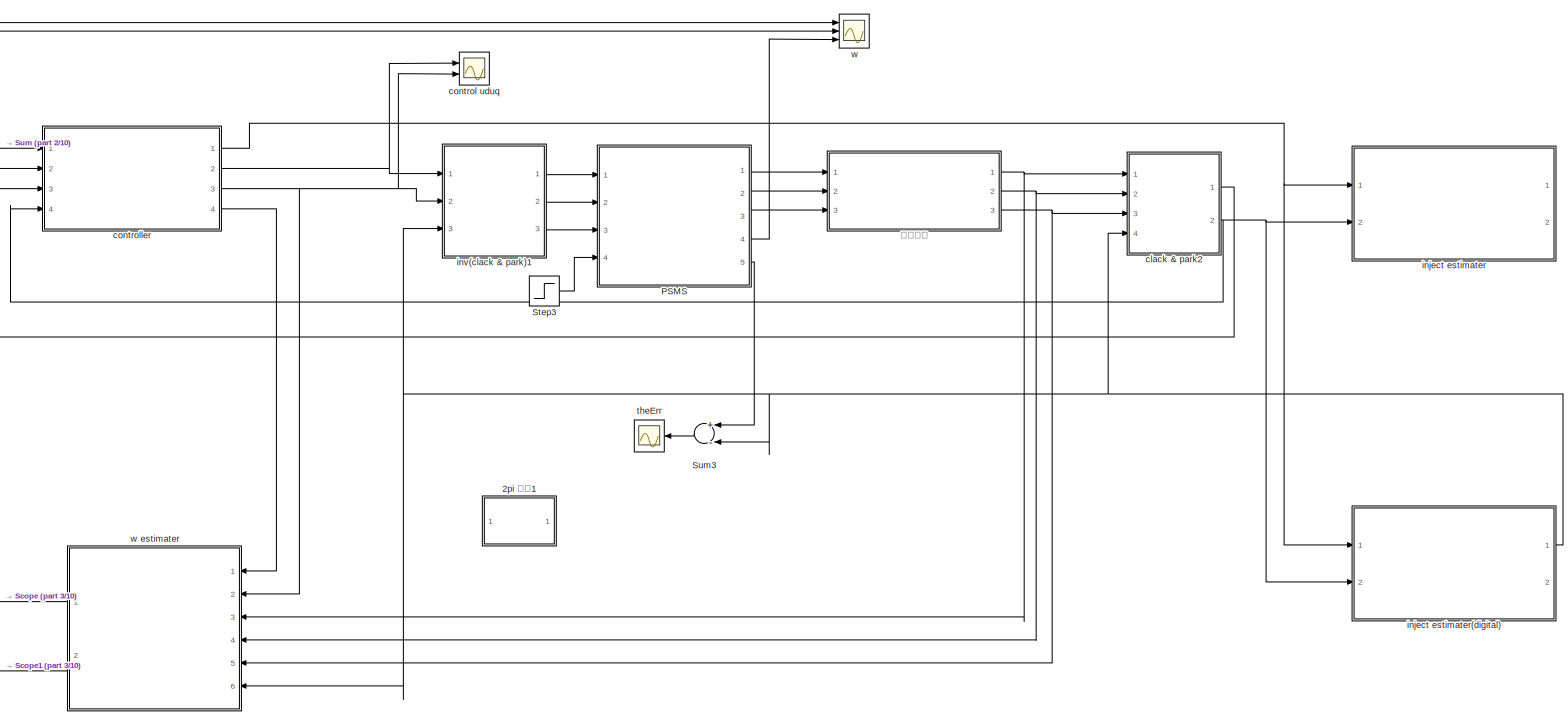
[diagram: 离散化半成品 - part 1/10, top left region]
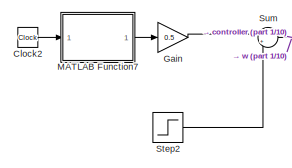
[diagram: 离散化半成品 - part 2/10, top left region]
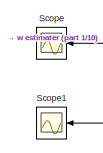
[diagram: 离散化半成品 - part 3/10, top left region]
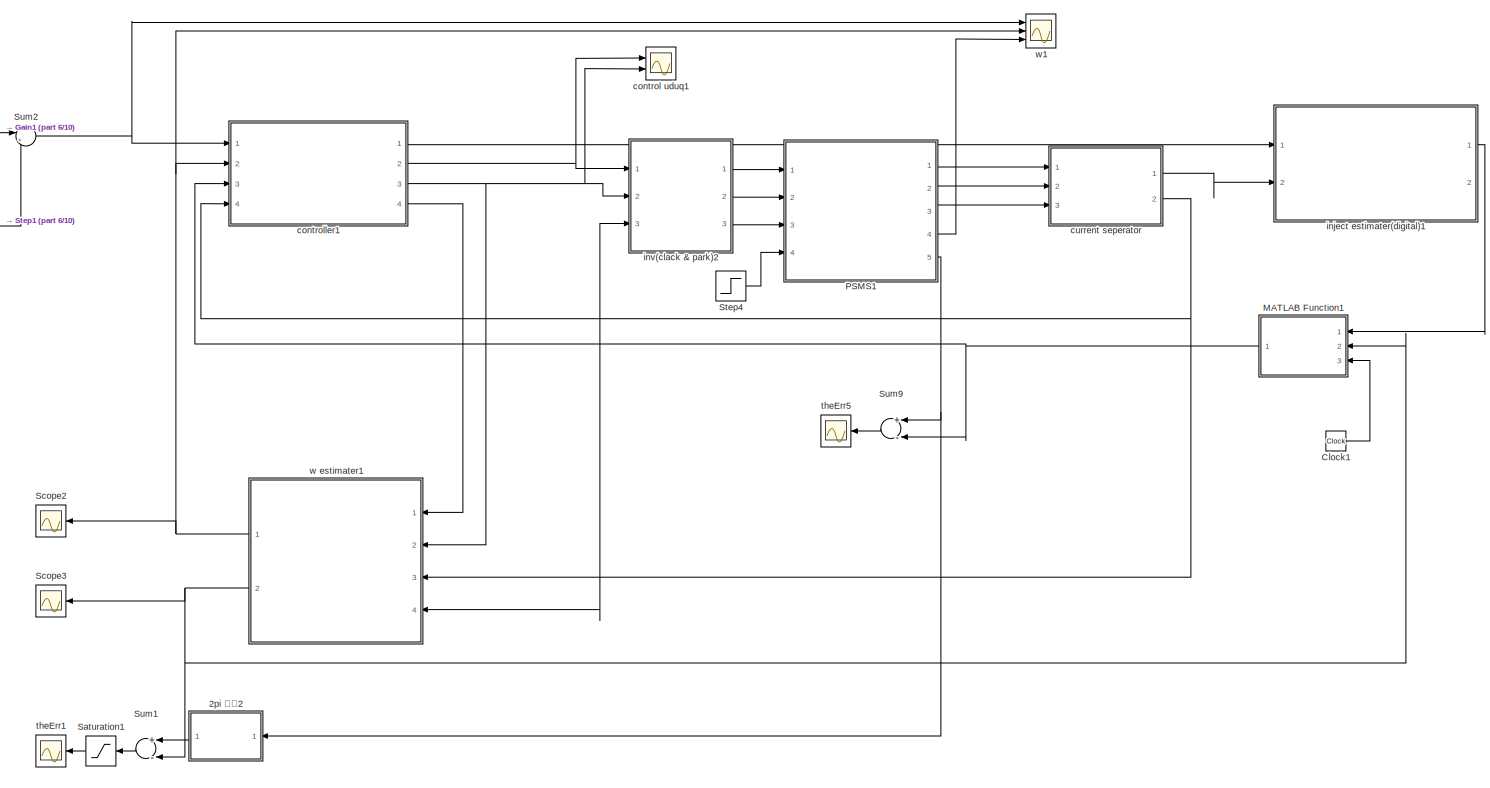
[diagram: 离散化半成品 - part 4/10, middle left region]
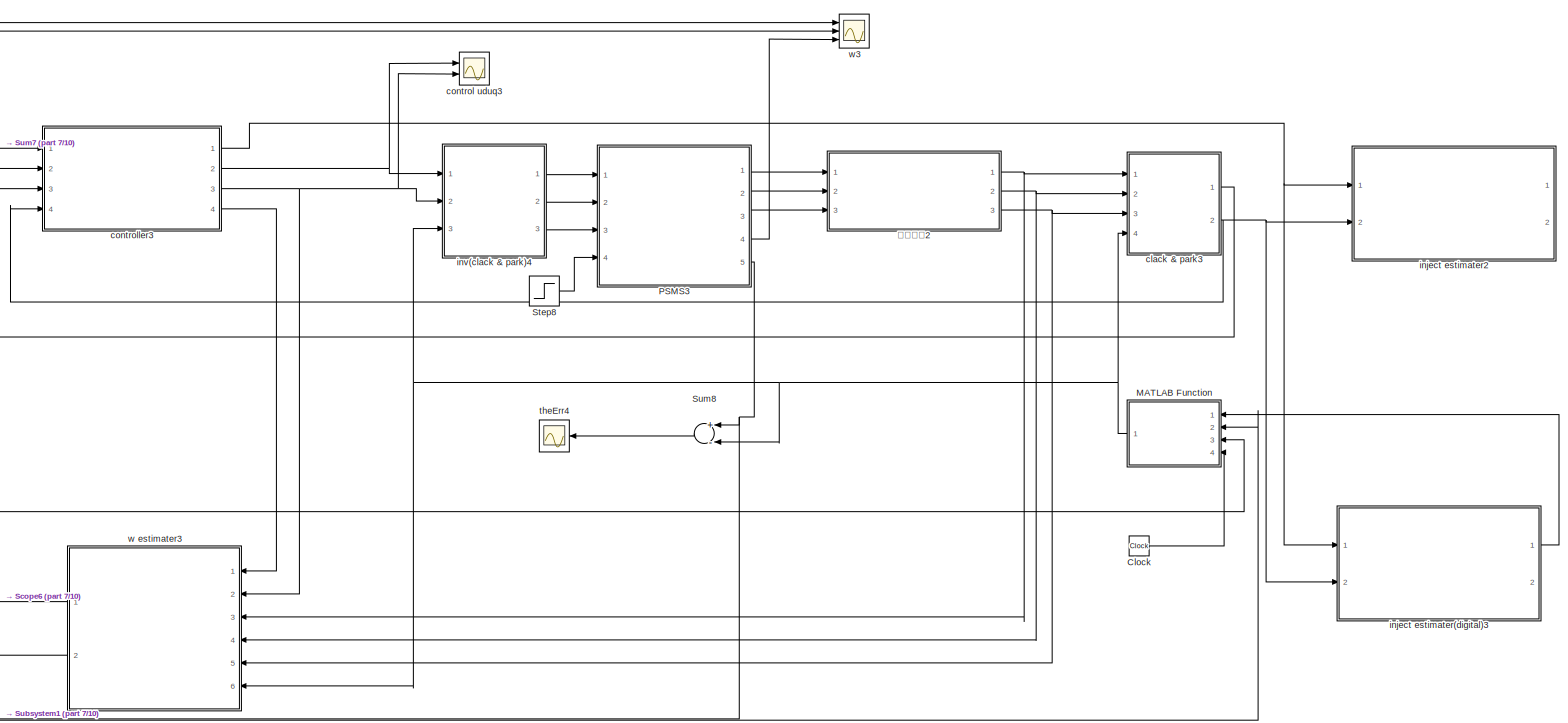
[diagram: 离散化半成品 - part 5/10, middle right region]
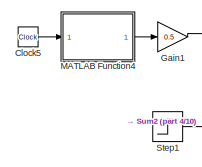
[diagram: 离散化半成品 - part 6/10, middle left region]
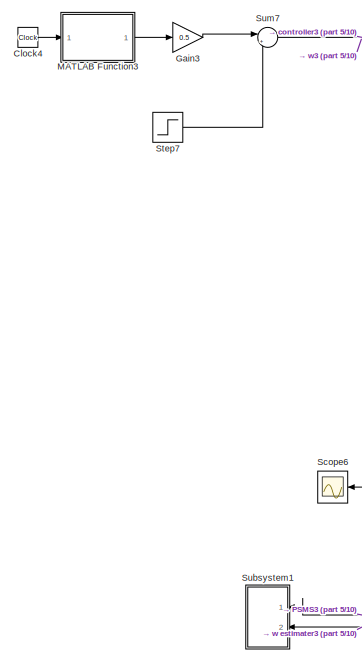
[diagram: 离散化半成品 - part 7/10, middle right region]
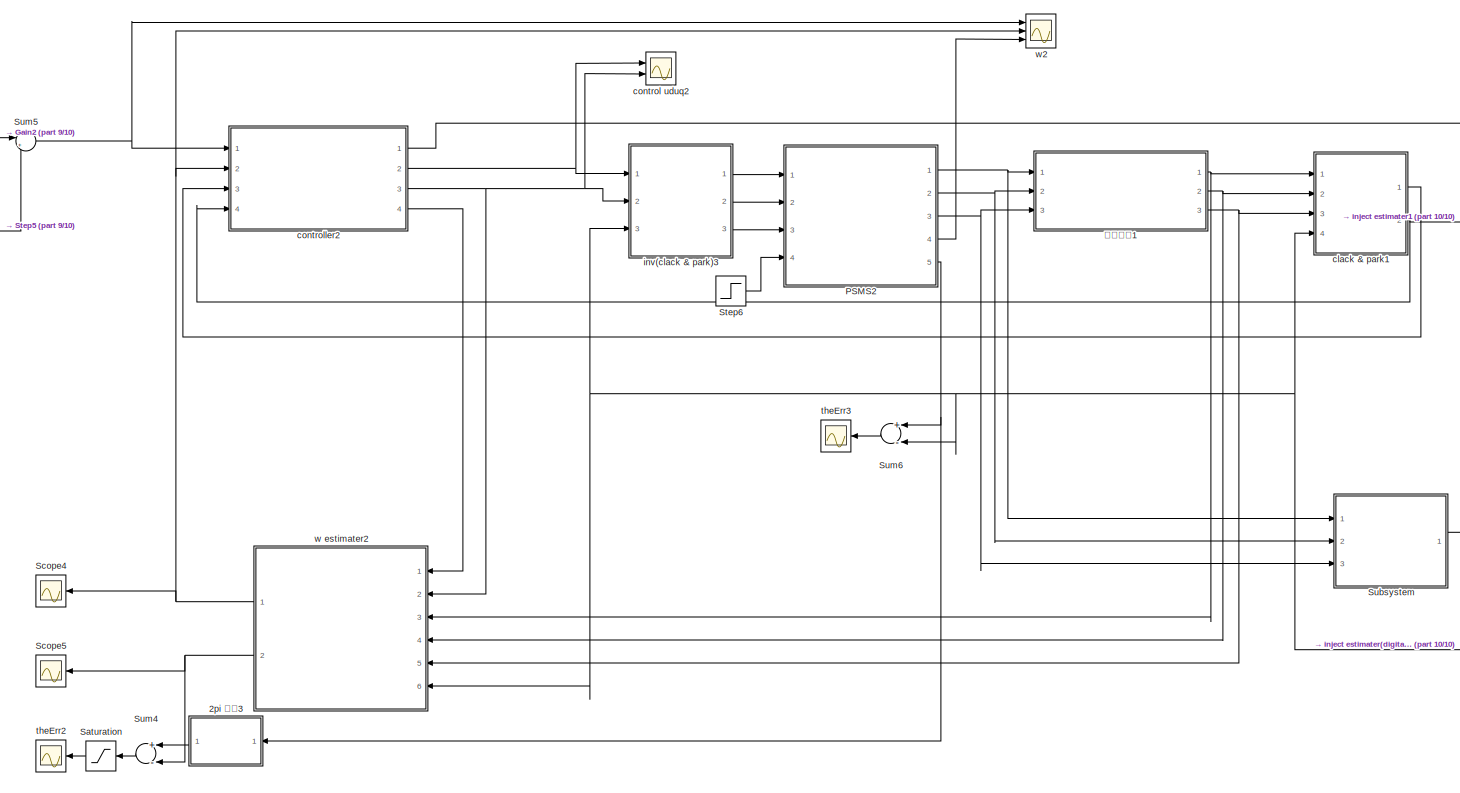
[diagram: 离散化半成品 - part 8/10, bottom left region]
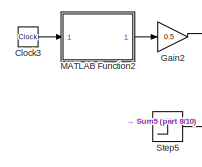
[diagram: 离散化半成品 - part 9/10, bottom left region]
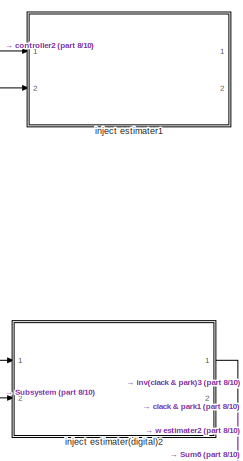
[diagram: 离散化半成品 - part 10/10, bottom left region]
BLOCK [SubSystem] 离散化半成品
  Ports = []
  RequestExecContextInheritance = off
BLOCK [SubSystem] 离散化半成品/2pi 限制1
  ErrorFcn = Stateflow.Translate.translate
  PermitHierarchicalResolution = ExplicitOnly
  Ports = [1, 1]
  RequestExecContextInheritance = off
  SFBlockType = MATLAB Function
  TreatAsAtomicUnit = on
BLOCK [Demux] 离散化半成品/2pi 限制1/ Demux 
  Outputs = 1
  Ports = [1, 1]
BLOCK [S-Function] 离散化半成品/2pi 限制1/ SFunction 
  EnableBusSupport = on
  FunctionName = sf_sfun
  PortCounts = [1 2]
  Ports = [1, 2]
  SFcnIsStateOwnerBlock = off
  SFunctionDeploymentMode = off
  Tag = Stateflow S-Function saved3 7
BLOCK [Terminator] 离散化半成品/2pi 限制1/ Terminator 
BLOCK [Inport] 离散化半成品/2pi 限制1/u
  IconDisplay = Port number
BLOCK [Outport] 离散化半成品/2pi 限制1/y
  IconDisplay = Port number
BLOCK [SubSystem] 离散化半成品/2pi 限制2
  ErrorFcn = Stateflow.Translate.translate
  PermitHierarchicalResolution = ExplicitOnly
  Ports = [1, 1]
  RequestExecContextInheritance = off
  SFBlockType = MATLAB Function
  TreatAsAtomicUnit = on
BLOCK [Demux] 离散化半成品/2pi 限制2/ Demux 
  Outputs = 1
  Ports = [1, 1]
BLOCK [S-Function] 离散化半成品/2pi 限制2/ SFunction 
  EnableBusSupport = on
  FunctionName = sf_sfun
  PortCounts = [1 2]
  Ports = [1, 2]
  SFcnIsStateOwnerBlock = off
  SFunctionDeploymentMode = off
  Tag = Stateflow S-Function saved3 34
BLOCK [Terminator] 离散化半成品/2pi 限制2/ Terminator 
BLOCK [Inport] 离散化半成品/2pi 限制2/u
  IconDisplay = Port number
BLOCK [Outport] 离散化半成品/2pi 限制2/y
  IconDisplay = Port number
BLOCK [SubSystem] 离散化半成品/2pi 限制3
  ErrorFcn = Stateflow.Translate.translate
  PermitHierarchicalResolution = ExplicitOnly
  Ports = [1, 1]
  RequestExecContextInheritance = off
  SFBlockType = MATLAB Function
  TreatAsAtomicUnit = on
BLOCK [Demux] 离散化半成品/2pi 限制3/ Demux 
  Outputs = 1
  Ports = [1, 1]
BLOCK [S-Function] 离散化半成品/2pi 限制3/ SFunction 
  EnableBusSupport = on
  FunctionName = sf_sfun
  PortCounts = [1 2]
  Ports = [1, 2]
  SFcnIsStateOwnerBlock = off
  SFunctionDeploymentMode = off
  Tag = Stateflow S-Function saved3 56
BLOCK [Terminator] 离散化半成品/2pi 限制3/ Terminator 
BLOCK [Inport] 离散化半成品/2pi 限制3/u
  IconDisplay = Port number
BLOCK [Outport] 离散化半成品/2pi 限制3/y
  IconDisplay = Port number
BLOCK [Clock] 离散化半成品/Clock
BLOCK [Clock] 离散化半成品/Clock1
BLOCK [Clock] 离散化半成品/Clock2
BLOCK [Clock] 离散化半成品/Clock3
BLOCK [Clock] 离散化半成品/Clock4
BLOCK [Clock] 离散化半成品/Clock5
BLOCK [Gain] 离散化半成品/Gain
  Gain = 0.5
  OutDataTypeStr = Inherit: Inherit via internal rule
  ParamDataTypeStr = Inherit: Inherit via internal rule
  SaturateOnIntegerOverflow = off
BLOCK [Gain] 离散化半成品/Gain1
  Gain = 0.5
  OutDataTypeStr = Inherit: Inherit via internal rule
  ParamDataTypeStr = Inherit: Inherit via internal rule
  SaturateOnIntegerOverflow = off
BLOCK [Gain] 离散化半成品/Gain2
  Gain = 0.5
  OutDataTypeStr = Inherit: Inherit via internal rule
  ParamDataTypeStr = Inherit: Inherit via internal rule
  SaturateOnIntegerOverflow = off
BLOCK [Gain] 离散化半成品/Gain3
  Gain = 0.5
  OutDataTypeStr = Inherit: Inherit via internal rule
  ParamDataTypeStr = Inherit: Inherit via internal rule
  SaturateOnIntegerOverflow = off
BLOCK [SubSystem] 离散化半成品/MATLAB Function
  ErrorFcn = Stateflow.Translate.translate
  PermitHierarchicalResolution = ExplicitOnly
  Ports = [4, 1]
  RequestExecContextInheritance = off
  SFBlockType = MATLAB Function
  TreatAsAtomicUnit = on
BLOCK [Demux] 离散化半成品/MATLAB Function/ Demux 
  Outputs = 1
  Ports = [1, 1]
BLOCK [S-Function] 离散化半成品/MATLAB Function/ SFunction 
  EnableBusSupport = on
  FunctionName = sf_sfun
  PortCounts = [4 2]
  Ports = [4, 2]
  SFcnIsStateOwnerBlock = off
  SFunctionDeploymentMode = off
  Tag = Stateflow S-Function saved3 85
BLOCK [Terminator] 离散化半成品/MATLAB Function/ Terminator 
BLOCK [Inport] 离散化半成品/MATLAB Function/Emf
  IconDisplay = Port number
  Port = 2
BLOCK [Inport] 离散化半成品/MATLAB Function/Inj
  IconDisplay = Port number
BLOCK [Inport] 离散化半成品/MATLAB Function/t
  IconDisplay = Port number
  Port = 4
BLOCK [Outport] 离散化半成品/MATLAB Function/theHat
  IconDisplay = Port number
BLOCK [Inport] 离散化半成品/MATLAB Function/wHat
  IconDisplay = Port number
  Port = 3
BLOCK [SubSystem] 离散化半成品/MATLAB Function1
  ErrorFcn = Stateflow.Translate.translate
  PermitHierarchicalResolution = ExplicitOnly
  Ports = [3, 1]
  RequestExecContextInheritance = off
  SFBlockType = MATLAB Function
  TreatAsAtomicUnit = on
BLOCK [Demux] 离散化半成品/MATLAB Function1/ Demux 
  Outputs = 1
  Ports = [1, 1]
BLOCK [S-Function] 离散化半成品/MATLAB Function1/ SFunction 
  EnableBusSupport = on
  FunctionName = sf_sfun
  PortCounts = [3 2]
  Ports = [3, 2]
  SFcnIsStateOwnerBlock = off
  SFunctionDeploymentMode = off
  Tag = Stateflow S-Function saved3 35
BLOCK [Terminator] 离散化半成品/MATLAB Function1/ Terminator 
BLOCK [Inport] 离散化半成品/MATLAB Function1/hfi
  IconDisplay = Port number
BLOCK [Inport] 离散化半成品/MATLAB Function1/mlo
  IconDisplay = Port number
  Port = 2
BLOCK [Inport] 离散化半成品/MATLAB Function1/t
  IconDisplay = Port number
  Port = 3
BLOCK [Outport] 离散化半成品/MATLAB Function1/theHat
  IconDisplay = Port number
BLOCK [SubSystem] 离散化半成品/MATLAB Function2
  ErrorFcn = Stateflow.Translate.translate
  PermitHierarchicalResolution = ExplicitOnly
  Ports = [1, 1]
  RequestExecContextInheritance = off
  SFBlockType = MATLAB Function
  TreatAsAtomicUnit = on
BLOCK [Demux] 离散化半成品/MATLAB Function2/ Demux 
  Outputs = 1
  Ports = [1, 1]
BLOCK [S-Function] 离散化半成品/MATLAB Function2/ SFunction 
  EnableBusSupport = on
  FunctionName = sf_sfun
  PortCounts = [1 2]
  Ports = [1, 2]
  SFcnIsStateOwnerBlock = off
  SFunctionDeploymentMode = off
  Tag = Stateflow S-Function saved3 57
BLOCK [Terminator] 离散化半成品/MATLAB Function2/ Terminator 
BLOCK [Inport] 离散化半成品/MATLAB Function2/t
  IconDisplay = Port number
BLOCK [Outport] 离散化半成品/MATLAB Function2/y
  IconDisplay = Port number
BLOCK [SubSystem] 离散化半成品/MATLAB Function3
  ErrorFcn = Stateflow.Translate.translate
  PermitHierarchicalResolution = ExplicitOnly
  Ports = [1, 1]
  RequestExecContextInheritance = off
  SFBlockType = MATLAB Function
  TreatAsAtomicUnit = on
BLOCK [Demux] 离散化半成品/MATLAB Function3/ Demux 
  Outputs = 1
  Ports = [1, 1]
BLOCK [S-Function] 离散化半成品/MATLAB Function3/ SFunction 
  EnableBusSupport = on
  FunctionName = sf_sfun
  PortCounts = [1 2]
  Ports = [1, 2]
  SFcnIsStateOwnerBlock = off
  SFunctionDeploymentMode = off
  Tag = Stateflow S-Function saved3 86
BLOCK [Terminator] 离散化半成品/MATLAB Function3/ Terminator 
BLOCK [Inport] 离散化半成品/MATLAB Function3/t
  IconDisplay = Port number
BLOCK [Outport] 离散化半成品/MATLAB Function3/y
  IconDisplay = Port number
BLOCK [SubSystem] 离散化半成品/MATLAB Function4
  ErrorFcn = Stateflow.Translate.translate
  PermitHierarchicalResolution = ExplicitOnly
  Ports = [1, 1]
  RequestExecContextInheritance = off
  SFBlockType = MATLAB Function
  TreatAsAtomicUnit = on
BLOCK [Demux] 离散化半成品/MATLAB Function4/ Demux 
  Outputs = 1
  Ports = [1, 1]
BLOCK [S-Function] 离散化半成品/MATLAB Function4/ SFunction 
  EnableBusSupport = on
  FunctionName = sf_sfun
  PortCounts = [1 2]
  Ports = [1, 2]
  SFcnIsStateOwnerBlock = off
  SFunctionDeploymentMode = off
  Tag = Stateflow S-Function saved3 36
BLOCK [Terminator] 离散化半成品/MATLAB Function4/ Terminator 
BLOCK [Inport] 离散化半成品/MATLAB Function4/t
  IconDisplay = Port number
BLOCK [Outport] 离散化半成品/MATLAB Function4/y
  IconDisplay = Port number
BLOCK [SubSystem] 离散化半成品/MATLAB Function7
  ErrorFcn = Stateflow.Translate.translate
  PermitHierarchicalResolution = ExplicitOnly
  Ports = [1, 1]
  RequestExecContextInheritance = off
  SFBlockType = MATLAB Function
  TreatAsAtomicUnit = on
BLOCK [Demux] 离散化半成品/MATLAB Function7/ Demux 
  Outputs = 1
  Ports = [1, 1]
BLOCK [S-Function] 离散化半成品/MATLAB Function7/ SFunction 
  EnableBusSupport = on
  FunctionName = sf_sfun
  PortCounts = [1 2]
  Ports = [1, 2]
  SFcnIsStateOwnerBlock = off
  SFunctionDeploymentMode = off
  Tag = Stateflow S-Function saved3 9
BLOCK [Terminator] 离散化半成品/MATLAB Function7/ Terminator 
BLOCK [Inport] 离散化半成品/MATLAB Function7/t
  IconDisplay = Port number
BLOCK [Outport] 离散化半成品/MATLAB Function7/y
  IconDisplay = Port number
BLOCK [SubSystem] 离散化半成品/PSMS
  Ports = [4, 5]
  RequestExecContextInheritance = off
BLOCK [SubSystem] 离散化半成品/PSMS/PMSM dq
  Ports = [3, 4]
  RequestExecContextInheritance = off
BLOCK [Gain] 离散化半成品/PSMS/PMSM dq/Gain
  Gain = 1/2
  OutDataTypeStr = Inherit: Inherit via internal rule
  ParamDataTypeStr = Inherit: Inherit via internal rule
  SaturateOnIntegerOverflow = off
BLOCK [Gain] 离散化半成品/PSMS/PMSM dq/Gain1
  Gain = 1/2
  OutDataTypeStr = Inherit: Inherit via internal rule
  ParamDataTypeStr = Inherit: Inherit via internal rule
  SaturateOnIntegerOverflow = off
BLOCK [Integrator] 离散化半成品/PSMS/PMSM dq/Integrator
  Ports = [1, 1]
BLOCK [Integrator] 离散化半成品/PSMS/PMSM dq/Integrator1
  Ports = [1, 1]
BLOCK [Integrator] 离散化半成品/PSMS/PMSM dq/Integrator2
  Ports = [1, 1]
BLOCK [Integrator] 离散化半成品/PSMS/PMSM dq/Integrator3
  Ports = [1, 1]
BLOCK [SubSystem] 离散化半成品/PSMS/PMSM dq/MATLAB Function
  ErrorFcn = Stateflow.Translate.translate
  PermitHierarchicalResolution = ExplicitOnly
  Ports = [5, 2]
  RequestExecContextInheritance = off
  SFBlockType = MATLAB Function
  TreatAsAtomicUnit = on
BLOCK [Demux] 离散化半成品/PSMS/PMSM dq/MATLAB Function/ Demux 
  Outputs = 1
  Ports = [1, 1]
BLOCK [S-Function] 离散化半成品/PSMS/PMSM dq/MATLAB Function/ SFunction 
  EnableBusSupport = on
  FunctionName = sf_sfun
  PortCounts = [5 3]
  Ports = [5, 3]
  SFcnIsStateOwnerBlock = off
  SFunctionDeploymentMode = off
  Tag = Stateflow S-Function saved3 10
BLOCK [Terminator] 离散化半成品/PSMS/PMSM dq/MATLAB Function/ Terminator 
BLOCK [Outport] 离散化半成品/PSMS/PMSM dq/MATLAB Function/di1
  IconDisplay = Port number
BLOCK [Outport] 离散化半成品/PSMS/PMSM dq/MATLAB Function/di2
  IconDisplay = Port number
  Port = 2
BLOCK [Inport] 离散化半成品/PSMS/PMSM dq/MATLAB Function/i1
  IconDisplay = Port number
  Port = 3
BLOCK [Inport] 离散化半成品/PSMS/PMSM dq/MATLAB Function/i2
  IconDisplay = Port number
  Port = 4
BLOCK [Inport] 离散化半成品/PSMS/PMSM dq/MATLAB Function/u1
  IconDisplay = Port number
BLOCK [Inport] 离散化半成品/PSMS/PMSM dq/MATLAB Function/u2
  IconDisplay = Port number
  Port = 2
BLOCK [Inport] 离散化半成品/PSMS/PMSM dq/MATLAB Function/w
  IconDisplay = Port number
  Port = 5
BLOCK [SubSystem] 离散化半成品/PSMS/PMSM dq/MATLAB Function1
  ErrorFcn = Stateflow.Translate.translate
  PermitHierarchicalResolution = ExplicitOnly
  Ports = [4, 1]
  RequestExecContextInheritance = off
  SFBlockType = MATLAB Function
  TreatAsAtomicUnit = on
BLOCK [Demux] 离散化半成品/PSMS/PMSM dq/MATLAB Function1/ Demux 
  Outputs = 1
  Ports = [1, 1]
BLOCK [S-Function] 离散化半成品/PSMS/PMSM dq/MATLAB Function1/ SFunction 
  EnableBusSupport = on
  FunctionName = sf_sfun
  PortCounts = [4 2]
  Ports = [4, 2]
  SFcnIsStateOwnerBlock = off
  SFunctionDeploymentMode = off
  Tag = Stateflow S-Function saved3 13
BLOCK [Terminator] 离散化半成品/PSMS/PMSM dq/MATLAB Function1/ Terminator 
BLOCK [Outport] 离散化半成品/PSMS/PMSM dq/MATLAB Function1/dw
  IconDisplay = Port number
BLOCK [Inport] 离散化半成品/PSMS/PMSM dq/MATLAB Function1/i1
  IconDisplay = Port number
BLOCK [Inport] 离散化半成品/PSMS/PMSM dq/MATLAB Function1/i2
  IconDisplay = Port number
  Port = 2
BLOCK [Inport] 离散化半成品/PSMS/PMSM dq/MATLAB Function1/torE
  IconDisplay = Port number
  Port = 4
BLOCK [Inport] 离散化半成品/PSMS/PMSM dq/MATLAB Function1/w
  IconDisplay = Port number
  Port = 3
BLOCK [Sum] 离散化半成品/PSMS/PMSM dq/Sum
  IconShape = round
  InputSameDT = off
  Inputs = |++
  OutDataTypeStr = Inherit: Inherit via internal rule
  Ports = [2, 1]
  SaturateOnIntegerOverflow = off
BLOCK [Outport] 离散化半成品/PSMS/PMSM dq/i1
  IconDisplay = Port number
BLOCK [Outport] 离散化半成品/PSMS/PMSM dq/i2
  IconDisplay = Port number
  Port = 2
BLOCK [Outport] 离散化半成品/PSMS/PMSM dq/the
  IconDisplay = Port number
  Port = 4
BLOCK [Inport] 离散化半成品/PSMS/PMSM dq/torE
  IconDisplay = Port number
  Port = 3
BLOCK [Inport] 离散化半成品/PSMS/PMSM dq/u1
  IconDisplay = Port number
BLOCK [Inport] 离散化半成品/PSMS/PMSM dq/u2
  IconDisplay = Port number
  Port = 2
BLOCK [Outport] 离散化半成品/PSMS/PMSM dq/w
  IconDisplay = Port number
  Port = 3
BLOCK [Reference] 离散化半成品/PSMS/PMSM dq/角度增速测试  REF=simulink/Sources/Ramp
  Ports = [0, 1]
  SourceBlock = simulink/Sources/Ramp
  SourceProductBaseCode = SL
  SourceProductName = Simulink
  SourceType = Ramp
BLOCK [SubSystem] 离散化半成品/PSMS/clack & park
  ErrorFcn = Stateflow.Translate.translate
  PermitHierarchicalResolution = ExplicitOnly
  Ports = [4, 2]
  RequestExecContextInheritance = off
  SFBlockType = MATLAB Function
  TreatAsAtomicUnit = on
BLOCK [Demux] 离散化半成品/PSMS/clack & park/ Demux 
  Outputs = 1
  Ports = [1, 1]
BLOCK [S-Function] 离散化半成品/PSMS/clack & park/ SFunction 
  EnableBusSupport = on
  FunctionName = sf_sfun
  PortCounts = [4 3]
  Ports = [4, 3]
  SFcnIsStateOwnerBlock = off
  SFunctionDeploymentMode = off
  Tag = Stateflow S-Function saved3 17
BLOCK [Terminator] 离散化半成品/PSMS/clack & park/ Terminator 
BLOCK [Inport] 离散化半成品/PSMS/clack & park/t
  IconDisplay = Port number
  Port = 4
BLOCK [Outport] 离散化半成品/PSMS/clack & park/u1
  IconDisplay = Port number
BLOCK [Outport] 离散化半成品/PSMS/clack & park/u2
  IconDisplay = Port number
  Port = 2
BLOCK [Inport] 离散化半成品/PSMS/clack & park/ua
  IconDisplay = Port number
BLOCK [Inport] 离散化半成品/PSMS/clack & park/ub
  IconDisplay = Port number
  Port = 2
BLOCK [Inport] 离散化半成品/PSMS/clack & park/uc
  IconDisplay = Port number
  Port = 3
BLOCK [Outport] 离散化半成品/PSMS/ia
  IconDisplay = Port number
BLOCK [Outport] 离散化半成品/PSMS/ib
  IconDisplay = Port number
  Port = 2
BLOCK [Outport] 离散化半成品/PSMS/ic
  IconDisplay = Port number
  Port = 3
BLOCK [SubSystem] 离散化半成品/PSMS/inv(clack & park)
  ErrorFcn = Stateflow.Translate.translate
  PermitHierarchicalResolution = ExplicitOnly
  Ports = [3, 3]
  RequestExecContextInheritance = off
  SFBlockType = MATLAB Function
  TreatAsAtomicUnit = on
BLOCK [Demux] 离散化半成品/PSMS/inv(clack & park)/ Demux 
  Outputs = 1
  Ports = [1, 1]
BLOCK [S-Function] 离散化半成品/PSMS/inv(clack & park)/ SFunction 
  EnableBusSupport = on
  FunctionName = sf_sfun
  PortCounts = [3 4]
  Ports = [3, 4]
  SFcnIsStateOwnerBlock = off
  SFunctionDeploymentMode = off
  Tag = Stateflow S-Function saved3 18
BLOCK [Terminator] 离散化半成品/PSMS/inv(clack & park)/ Terminator 
BLOCK [Inport] 离散化半成品/PSMS/inv(clack & park)/t
  IconDisplay = Port number
  Port = 3
BLOCK [Inport] 离散化半成品/PSMS/inv(clack & park)/u1
  IconDisplay = Port number
BLOCK [Inport] 离散化半成品/PSMS/inv(clack & park)/u2
  IconDisplay = Port number
  Port = 2
BLOCK [Outport] 离散化半成品/PSMS/inv(clack & park)/ua
  IconDisplay = Port number
BLOCK [Outport] 离散化半成品/PSMS/inv(clack & park)/ub
  IconDisplay = Port number
  Port = 2
BLOCK [Outport] 离散化半成品/PSMS/inv(clack & park)/uc
  IconDisplay = Port number
  Port = 3
BLOCK [Scope] 离散化半成品/PSMS/real idiq
  Floating = off
  NumInputPorts = 2
  Ports = [2]
  ScopeSpecificationString = Simulink.scopes.TimeScopeBlockCfg('CurrentConfiguration', extmgr.ConfigurationSet(extmgr.Configuration('Core','General UI',true),extmgr.Configuration('Core','Source UI',true),extmgr.Configuration('Sources','WiredSimulink',true,'DataLoggingVariableName','ScopeData2'),extmgr.Configuration('Visuals','Time Domain',true,'SerializedDisplays',{struct('MinYLimReal','-7.43264','MaxYLimReal','25.78897','YLa...<+1416ch>
BLOCK [Outport] 离散化半成品/PSMS/the
  IconDisplay = Port number
  Port = 5
BLOCK [Inport] 离散化半成品/PSMS/torE
  IconDisplay = Port number
  Port = 4
BLOCK [Inport] 离散化半成品/PSMS/ua
  IconDisplay = Port number
BLOCK [Inport] 离散化半成品/PSMS/ub
  IconDisplay = Port number
  Port = 2
BLOCK [Inport] 离散化半成品/PSMS/uc
  IconDisplay = Port number
  Port = 3
BLOCK [Outport] 离散化半成品/PSMS/w
  IconDisplay = Port number
  Port = 4
BLOCK [SubSystem] 离散化半成品/PSMS1
  Ports = [4, 5]
  RequestExecContextInheritance = off
BLOCK [SubSystem] 离散化半成品/PSMS1/PMSM dq
  Ports = [3, 4]
  RequestExecContextInheritance = off
BLOCK [Gain] 离散化半成品/PSMS1/PMSM dq/Gain
  Gain = 1/2
  OutDataTypeStr = Inherit: Inherit via internal rule
  ParamDataTypeStr = Inherit: Inherit via internal rule
  SaturateOnIntegerOverflow = off
BLOCK [Gain] 离散化半成品/PSMS1/PMSM dq/Gain1
  Gain = 1/2
  OutDataTypeStr = Inherit: Inherit via internal rule
  ParamDataTypeStr = Inherit: Inherit via internal rule
  SaturateOnIntegerOverflow = off
BLOCK [Integrator] 离散化半成品/PSMS1/PMSM dq/Integrator
  Ports = [1, 1]
BLOCK [Integrator] 离散化半成品/PSMS1/PMSM dq/Integrator1
  Ports = [1, 1]
BLOCK [Integrator] 离散化半成品/PSMS1/PMSM dq/Integrator2
  Ports = [1, 1]
BLOCK [Integrator] 离散化半成品/PSMS1/PMSM dq/Integrator3
  Ports = [1, 1]
BLOCK [SubSystem] 离散化半成品/PSMS1/PMSM dq/MATLAB Function
  ErrorFcn = Stateflow.Translate.translate
  PermitHierarchicalResolution = ExplicitOnly
  Ports = [5, 2]
  RequestExecContextInheritance = off
  SFBlockType = MATLAB Function
  TreatAsAtomicUnit = on
BLOCK [Demux] 离散化半成品/PSMS1/PMSM dq/MATLAB Function/ Demux 
  Outputs = 1
  Ports = [1, 1]
BLOCK [S-Function] 离散化半成品/PSMS1/PMSM dq/MATLAB Function/ SFunction 
  EnableBusSupport = on
  FunctionName = sf_sfun
  PortCounts = [5 3]
  Ports = [5, 3]
  SFcnIsStateOwnerBlock = off
  SFunctionDeploymentMode = off
  Tag = Stateflow S-Function saved3 37
BLOCK [Terminator] 离散化半成品/PSMS1/PMSM dq/MATLAB Function/ Terminator 
BLOCK [Outport] 离散化半成品/PSMS1/PMSM dq/MATLAB Function/di1
  IconDisplay = Port number
BLOCK [Outport] 离散化半成品/PSMS1/PMSM dq/MATLAB Function/di2
  IconDisplay = Port number
  Port = 2
BLOCK [Inport] 离散化半成品/PSMS1/PMSM dq/MATLAB Function/i1
  IconDisplay = Port number
  Port = 3
BLOCK [Inport] 离散化半成品/PSMS1/PMSM dq/MATLAB Function/i2
  IconDisplay = Port number
  Port = 4
BLOCK [Inport] 离散化半成品/PSMS1/PMSM dq/MATLAB Function/u1
  IconDisplay = Port number
BLOCK [Inport] 离散化半成品/PSMS1/PMSM dq/MATLAB Function/u2
  IconDisplay = Port number
  Port = 2
BLOCK [Inport] 离散化半成品/PSMS1/PMSM dq/MATLAB Function/w
  IconDisplay = Port number
  Port = 5
BLOCK [SubSystem] 离散化半成品/PSMS1/PMSM dq/MATLAB Function1
  ErrorFcn = Stateflow.Translate.translate
  PermitHierarchicalResolution = ExplicitOnly
  Ports = [4, 1]
  RequestExecContextInheritance = off
  SFBlockType = MATLAB Function
  TreatAsAtomicUnit = on
BLOCK [Demux] 离散化半成品/PSMS1/PMSM dq/MATLAB Function1/ Demux 
  Outputs = 1
  Ports = [1, 1]
BLOCK [S-Function] 离散化半成品/PSMS1/PMSM dq/MATLAB Function1/ SFunction 
  EnableBusSupport = on
  FunctionName = sf_sfun
  PortCounts = [4 2]
  Ports = [4, 2]
  SFcnIsStateOwnerBlock = off
  SFunctionDeploymentMode = off
  Tag = Stateflow S-Function saved3 38
BLOCK [Terminator] 离散化半成品/PSMS1/PMSM dq/MATLAB Function1/ Terminator 
BLOCK [Outport] 离散化半成品/PSMS1/PMSM dq/MATLAB Function1/dw
  IconDisplay = Port number
BLOCK [Inport] 离散化半成品/PSMS1/PMSM dq/MATLAB Function1/i1
  IconDisplay = Port number
BLOCK [Inport] 离散化半成品/PSMS1/PMSM dq/MATLAB Function1/i2
  IconDisplay = Port number
  Port = 2
BLOCK [Inport] 离散化半成品/PSMS1/PMSM dq/MATLAB Function1/torE
  IconDisplay = Port number
  Port = 4
BLOCK [Inport] 离散化半成品/PSMS1/PMSM dq/MATLAB Function1/w
  IconDisplay = Port number
  Port = 3
BLOCK [Sum] 离散化半成品/PSMS1/PMSM dq/Sum
  IconShape = round
  InputSameDT = off
  Inputs = |++
  OutDataTypeStr = Inherit: Inherit via internal rule
  Ports = [2, 1]
  SaturateOnIntegerOverflow = off
BLOCK [Outport] 离散化半成品/PSMS1/PMSM dq/i1
  IconDisplay = Port number
BLOCK [Outport] 离散化半成品/PSMS1/PMSM dq/i2
  IconDisplay = Port number
  Port = 2
BLOCK [Outport] 离散化半成品/PSMS1/PMSM dq/the
  IconDisplay = Port number
  Port = 4
BLOCK [Inport] 离散化半成品/PSMS1/PMSM dq/torE
  IconDisplay = Port number
  Port = 3
BLOCK [Inport] 离散化半成品/PSMS1/PMSM dq/u1
  IconDisplay = Port number
BLOCK [Inport] 离散化半成品/PSMS1/PMSM dq/u2
  IconDisplay = Port number
  Port = 2
BLOCK [Outport] 离散化半成品/PSMS1/PMSM dq/w
  IconDisplay = Port number
  Port = 3
BLOCK [Reference] 离散化半成品/PSMS1/PMSM dq/角度增速测试  REF=simulink/Sources/Ramp
  Ports = [0, 1]
  SourceBlock = simulink/Sources/Ramp
  SourceProductBaseCode = SL
  SourceProductName = Simulink
  SourceType = Ramp
BLOCK [SubSystem] 离散化半成品/PSMS1/clack & park
  ErrorFcn = Stateflow.Translate.translate
  PermitHierarchicalResolution = ExplicitOnly
  Ports = [4, 2]
  RequestExecContextInheritance = off
  SFBlockType = MATLAB Function
  TreatAsAtomicUnit = on
BLOCK [Demux] 离散化半成品/PSMS1/clack & park/ Demux 
  Outputs = 1
  Ports = [1, 1]
BLOCK [S-Function] 离散化半成品/PSMS1/clack & park/ SFunction 
  EnableBusSupport = on
  FunctionName = sf_sfun
  PortCounts = [4 3]
  Ports = [4, 3]
  SFcnIsStateOwnerBlock = off
  SFunctionDeploymentMode = off
  Tag = Stateflow S-Function saved3 39
BLOCK [Terminator] 离散化半成品/PSMS1/clack & park/ Terminator 
BLOCK [Inport] 离散化半成品/PSMS1/clack & park/t
  IconDisplay = Port number
  Port = 4
BLOCK [Outport] 离散化半成品/PSMS1/clack & park/u1
  IconDisplay = Port number
BLOCK [Outport] 离散化半成品/PSMS1/clack & park/u2
  IconDisplay = Port number
  Port = 2
BLOCK [Inport] 离散化半成品/PSMS1/clack & park/ua
  IconDisplay = Port number
BLOCK [Inport] 离散化半成品/PSMS1/clack & park/ub
  IconDisplay = Port number
  Port = 2
BLOCK [Inport] 离散化半成品/PSMS1/clack & park/uc
  IconDisplay = Port number
  Port = 3
BLOCK [Outport] 离散化半成品/PSMS1/ia
  IconDisplay = Port number
BLOCK [Outport] 离散化半成品/PSMS1/ib
  IconDisplay = Port number
  Port = 2
BLOCK [Outport] 离散化半成品/PSMS1/ic
  IconDisplay = Port number
  Port = 3
BLOCK [SubSystem] 离散化半成品/PSMS1/inv(clack & park)
  ErrorFcn = Stateflow.Translate.translate
  PermitHierarchicalResolution = ExplicitOnly
  Ports = [3, 3]
  RequestExecContextInheritance = off
  SFBlockType = MATLAB Function
  TreatAsAtomicUnit = on
BLOCK [Demux] 离散化半成品/PSMS1/inv(clack & park)/ Demux 
  Outputs = 1
  Ports = [1, 1]
BLOCK [S-Function] 离散化半成品/PSMS1/inv(clack & park)/ SFunction 
  EnableBusSupport = on
  FunctionName = sf_sfun
  PortCounts = [3 4]
  Ports = [3, 4]
  SFcnIsStateOwnerBlock = off
  SFunctionDeploymentMode = off
  Tag = Stateflow S-Function saved3 40
BLOCK [Terminator] 离散化半成品/PSMS1/inv(clack & park)/ Terminator 
BLOCK [Inport] 离散化半成品/PSMS1/inv(clack & park)/t
  IconDisplay = Port number
  Port = 3
BLOCK [Inport] 离散化半成品/PSMS1/inv(clack & park)/u1
  IconDisplay = Port number
BLOCK [Inport] 离散化半成品/PSMS1/inv(clack & park)/u2
  IconDisplay = Port number
  Port = 2
BLOCK [Outport] 离散化半成品/PSMS1/inv(clack & park)/ua
  IconDisplay = Port number
BLOCK [Outport] 离散化半成品/PSMS1/inv(clack & park)/ub
  IconDisplay = Port number
  Port = 2
BLOCK [Outport] 离散化半成品/PSMS1/inv(clack & park)/uc
  IconDisplay = Port number
  Port = 3
BLOCK [Scope] 离散化半成品/PSMS1/real idiq
  Floating = off
  NumInputPorts = 2
  Ports = [2]
  ScopeSpecificationString = Simulink.scopes.TimeScopeBlockCfg('CurrentConfiguration', extmgr.ConfigurationSet(extmgr.Configuration('Core','General UI',true),extmgr.Configuration('Core','Source UI',true),extmgr.Configuration('Sources','WiredSimulink',true,'DataLoggingVariableName','ScopeData2'),extmgr.Configuration('Visuals','Time Domain',true,'SerializedDisplays',{struct('MinYLimReal','-23.43137','MaxYLimReal','23.62174','YL...<+1462ch>
BLOCK [Outport] 离散化半成品/PSMS1/the
  IconDisplay = Port number
  Port = 5
BLOCK [Inport] 离散化半成品/PSMS1/torE
  IconDisplay = Port number
  Port = 4
BLOCK [Inport] 离散化半成品/PSMS1/ua
  IconDisplay = Port number
BLOCK [Inport] 离散化半成品/PSMS1/ub
  IconDisplay = Port number
  Port = 2
BLOCK [Inport] 离散化半成品/PSMS1/uc
  IconDisplay = Port number
  Port = 3
BLOCK [Outport] 离散化半成品/PSMS1/w
  IconDisplay = Port number
  Port = 4
BLOCK [SubSystem] 离散化半成品/PSMS2
  Ports = [4, 5]
  RequestExecContextInheritance = off
BLOCK [SubSystem] 离散化半成品/PSMS2/PMSM dq
  Ports = [3, 4]
  RequestExecContextInheritance = off
BLOCK [Gain] 离散化半成品/PSMS2/PMSM dq/Gain
  Gain = 1/2
  OutDataTypeStr = Inherit: Inherit via internal rule
  ParamDataTypeStr = Inherit: Inherit via internal rule
  SaturateOnIntegerOverflow = off
BLOCK [Gain] 离散化半成品/PSMS2/PMSM dq/Gain1
  Gain = 1/2
  OutDataTypeStr = Inherit: Inherit via internal rule
  ParamDataTypeStr = Inherit: Inherit via internal rule
  SaturateOnIntegerOverflow = off
BLOCK [Integrator] 离散化半成品/PSMS2/PMSM dq/Integrator
  Ports = [1, 1]
BLOCK [Integrator] 离散化半成品/PSMS2/PMSM dq/Integrator1
  Ports = [1, 1]
BLOCK [Integrator] 离散化半成品/PSMS2/PMSM dq/Integrator2
  Ports = [1, 1]
BLOCK [Integrator] 离散化半成品/PSMS2/PMSM dq/Integrator3
  Ports = [1, 1]
BLOCK [SubSystem] 离散化半成品/PSMS2/PMSM dq/MATLAB Function
  ErrorFcn = Stateflow.Translate.translate
  PermitHierarchicalResolution = ExplicitOnly
  Ports = [5, 2]
  RequestExecContextInheritance = off
  SFBlockType = MATLAB Function
  TreatAsAtomicUnit = on
BLOCK [Demux] 离散化半成品/PSMS2/PMSM dq/MATLAB Function/ Demux 
  Outputs = 1
  Ports = [1, 1]
BLOCK [S-Function] 离散化半成品/PSMS2/PMSM dq/MATLAB Function/ SFunction 
  EnableBusSupport = on
  FunctionName = sf_sfun
  PortCounts = [5 3]
  Ports = [5, 3]
  SFcnIsStateOwnerBlock = off
  SFunctionDeploymentMode = off
  Tag = Stateflow S-Function saved3 58
BLOCK [Terminator] 离散化半成品/PSMS2/PMSM dq/MATLAB Function/ Terminator 
BLOCK [Outport] 离散化半成品/PSMS2/PMSM dq/MATLAB Function/di1
  IconDisplay = Port number
BLOCK [Outport] 离散化半成品/PSMS2/PMSM dq/MATLAB Function/di2
  IconDisplay = Port number
  Port = 2
BLOCK [Inport] 离散化半成品/PSMS2/PMSM dq/MATLAB Function/i1
  IconDisplay = Port number
  Port = 3
BLOCK [Inport] 离散化半成品/PSMS2/PMSM dq/MATLAB Function/i2
  IconDisplay = Port number
  Port = 4
BLOCK [Inport] 离散化半成品/PSMS2/PMSM dq/MATLAB Function/u1
  IconDisplay = Port number
BLOCK [Inport] 离散化半成品/PSMS2/PMSM dq/MATLAB Function/u2
  IconDisplay = Port number
  Port = 2
BLOCK [Inport] 离散化半成品/PSMS2/PMSM dq/MATLAB Function/w
  IconDisplay = Port number
  Port = 5
BLOCK [SubSystem] 离散化半成品/PSMS2/PMSM dq/MATLAB Function1
  ErrorFcn = Stateflow.Translate.translate
  PermitHierarchicalResolution = ExplicitOnly
  Ports = [4, 1]
  RequestExecContextInheritance = off
  SFBlockType = MATLAB Function
  TreatAsAtomicUnit = on
BLOCK [Demux] 离散化半成品/PSMS2/PMSM dq/MATLAB Function1/ Demux 
  Outputs = 1
  Ports = [1, 1]
BLOCK [S-Function] 离散化半成品/PSMS2/PMSM dq/MATLAB Function1/ SFunction 
  EnableBusSupport = on
  FunctionName = sf_sfun
  PortCounts = [4 2]
  Ports = [4, 2]
  SFcnIsStateOwnerBlock = off
  SFunctionDeploymentMode = off
  Tag = Stateflow S-Function saved3 59
BLOCK [Terminator] 离散化半成品/PSMS2/PMSM dq/MATLAB Function1/ Terminator 
BLOCK [Outport] 离散化半成品/PSMS2/PMSM dq/MATLAB Function1/dw
  IconDisplay = Port number
BLOCK [Inport] 离散化半成品/PSMS2/PMSM dq/MATLAB Function1/i1
  IconDisplay = Port number
BLOCK [Inport] 离散化半成品/PSMS2/PMSM dq/MATLAB Function1/i2
  IconDisplay = Port number
  Port = 2
BLOCK [Inport] 离散化半成品/PSMS2/PMSM dq/MATLAB Function1/torE
  IconDisplay = Port number
  Port = 4
BLOCK [Inport] 离散化半成品/PSMS2/PMSM dq/MATLAB Function1/w
  IconDisplay = Port number
  Port = 3
BLOCK [Sum] 离散化半成品/PSMS2/PMSM dq/Sum
  IconShape = round
  InputSameDT = off
  Inputs = |++
  OutDataTypeStr = Inherit: Inherit via internal rule
  Ports = [2, 1]
  SaturateOnIntegerOverflow = off
BLOCK [Outport] 离散化半成品/PSMS2/PMSM dq/i1
  IconDisplay = Port number
BLOCK [Outport] 离散化半成品/PSMS2/PMSM dq/i2
  IconDisplay = Port number
  Port = 2
BLOCK [Outport] 离散化半成品/PSMS2/PMSM dq/the
  IconDisplay = Port number
  Port = 4
BLOCK [Inport] 离散化半成品/PSMS2/PMSM dq/torE
  IconDisplay = Port number
  Port = 3
BLOCK [Inport] 离散化半成品/PSMS2/PMSM dq/u1
  IconDisplay = Port number
BLOCK [Inport] 离散化半成品/PSMS2/PMSM dq/u2
  IconDisplay = Port number
  Port = 2
BLOCK [Outport] 离散化半成品/PSMS2/PMSM dq/w
  IconDisplay = Port number
  Port = 3
BLOCK [Reference] 离散化半成品/PSMS2/PMSM dq/角度增速测试  REF=simulink/Sources/Ramp
  Ports = [0, 1]
  SourceBlock = simulink/Sources/Ramp
  SourceProductBaseCode = SL
  SourceProductName = Simulink
  SourceType = Ramp
BLOCK [SubSystem] 离散化半成品/PSMS2/clack & park
  ErrorFcn = Stateflow.Translate.translate
  PermitHierarchicalResolution = ExplicitOnly
  Ports = [4, 2]
  RequestExecContextInheritance = off
  SFBlockType = MATLAB Function
  TreatAsAtomicUnit = on
BLOCK [Demux] 离散化半成品/PSMS2/clack & park/ Demux 
  Outputs = 1
  Ports = [1, 1]
BLOCK [S-Function] 离散化半成品/PSMS2/clack & park/ SFunction 
  EnableBusSupport = on
  FunctionName = sf_sfun
  PortCounts = [4 3]
  Ports = [4, 3]
  SFcnIsStateOwnerBlock = off
  SFunctionDeploymentMode = off
  Tag = Stateflow S-Function saved3 60
BLOCK [Terminator] 离散化半成品/PSMS2/clack & park/ Terminator 
BLOCK [Inport] 离散化半成品/PSMS2/clack & park/t
  IconDisplay = Port number
  Port = 4
BLOCK [Outport] 离散化半成品/PSMS2/clack & park/u1
  IconDisplay = Port number
BLOCK [Outport] 离散化半成品/PSMS2/clack & park/u2
  IconDisplay = Port number
  Port = 2
BLOCK [Inport] 离散化半成品/PSMS2/clack & park/ua
  IconDisplay = Port number
BLOCK [Inport] 离散化半成品/PSMS2/clack & park/ub
  IconDisplay = Port number
  Port = 2
BLOCK [Inport] 离散化半成品/PSMS2/clack & park/uc
  IconDisplay = Port number
  Port = 3
BLOCK [Outport] 离散化半成品/PSMS2/ia
  IconDisplay = Port number
BLOCK [Outport] 离散化半成品/PSMS2/ib
  IconDisplay = Port number
  Port = 2
BLOCK [Outport] 离散化半成品/PSMS2/ic
  IconDisplay = Port number
  Port = 3
BLOCK [SubSystem] 离散化半成品/PSMS2/inv(clack & park)
  ErrorFcn = Stateflow.Translate.translate
  PermitHierarchicalResolution = ExplicitOnly
  Ports = [3, 3]
  RequestExecContextInheritance = off
  SFBlockType = MATLAB Function
  TreatAsAtomicUnit = on
BLOCK [Demux] 离散化半成品/PSMS2/inv(clack & park)/ Demux 
  Outputs = 1
  Ports = [1, 1]
BLOCK [S-Function] 离散化半成品/PSMS2/inv(clack & park)/ SFunction 
  EnableBusSupport = on
  FunctionName = sf_sfun
  PortCounts = [3 4]
  Ports = [3, 4]
  SFcnIsStateOwnerBlock = off
  SFunctionDeploymentMode = off
  Tag = Stateflow S-Function saved3 61
BLOCK [Terminator] 离散化半成品/PSMS2/inv(clack & park)/ Terminator 
BLOCK [Inport] 离散化半成品/PSMS2/inv(clack & park)/t
  IconDisplay = Port number
  Port = 3
BLOCK [Inport] 离散化半成品/PSMS2/inv(clack & park)/u1
  IconDisplay = Port number
BLOCK [Inport] 离散化半成品/PSMS2/inv(clack & park)/u2
  IconDisplay = Port number
  Port = 2
BLOCK [Outport] 离散化半成品/PSMS2/inv(clack & park)/ua
  IconDisplay = Port number
BLOCK [Outport] 离散化半成品/PSMS2/inv(clack & park)/ub
  IconDisplay = Port number
  Port = 2
BLOCK [Outport] 离散化半成品/PSMS2/inv(clack & park)/uc
  IconDisplay = Port number
  Port = 3
BLOCK [Scope] 离散化半成品/PSMS2/real idiq
  Floating = off
  NumInputPorts = 2
  Ports = [2]
  ScopeSpecificationString = Simulink.scopes.TimeScopeBlockCfg('CurrentConfiguration', extmgr.ConfigurationSet(extmgr.Configuration('Core','General UI',true),extmgr.Configuration('Core','Source UI',true),extmgr.Configuration('Sources','WiredSimulink',true,'DataLoggingVariableName','ScopeData2'),extmgr.Configuration('Visuals','Time Domain',true,'SerializedDisplays',{struct('MinYLimReal','-3.79503','MaxYLimReal','25.01562','YLa...<+1441ch>
BLOCK [Outport] 离散化半成品/PSMS2/the
  IconDisplay = Port number
  Port = 5
BLOCK [Inport] 离散化半成品/PSMS2/torE
  IconDisplay = Port number
  Port = 4
BLOCK [Inport] 离散化半成品/PSMS2/ua
  IconDisplay = Port number
BLOCK [Inport] 离散化半成品/PSMS2/ub
  IconDisplay = Port number
  Port = 2
BLOCK [Inport] 离散化半成品/PSMS2/uc
  IconDisplay = Port number
  Port = 3
BLOCK [Outport] 离散化半成品/PSMS2/w
  IconDisplay = Port number
  Port = 4
BLOCK [SubSystem] 离散化半成品/PSMS3
  Ports = [4, 5]
  RequestExecContextInheritance = off
BLOCK [SubSystem] 离散化半成品/PSMS3/PMSM dq
  Ports = [3, 4]
  RequestExecContextInheritance = off
BLOCK [Gain] 离散化半成品/PSMS3/PMSM dq/Gain
  Gain = 1/2
  OutDataTypeStr = Inherit: Inherit via internal rule
  ParamDataTypeStr = Inherit: Inherit via internal rule
  SaturateOnIntegerOverflow = off
BLOCK [Gain] 离散化半成品/PSMS3/PMSM dq/Gain1
  Gain = 1/2
  OutDataTypeStr = Inherit: Inherit via internal rule
  ParamDataTypeStr = Inherit: Inherit via internal rule
  SaturateOnIntegerOverflow = off
BLOCK [Integrator] 离散化半成品/PSMS3/PMSM dq/Integrator
  Ports = [1, 1]
BLOCK [Integrator] 离散化半成品/PSMS3/PMSM dq/Integrator1
  Ports = [1, 1]
BLOCK [Integrator] 离散化半成品/PSMS3/PMSM dq/Integrator2
  Ports = [1, 1]
BLOCK [Integrator] 离散化半成品/PSMS3/PMSM dq/Integrator3
  Ports = [1, 1]
BLOCK [SubSystem] 离散化半成品/PSMS3/PMSM dq/MATLAB Function
  ErrorFcn = Stateflow.Translate.translate
  PermitHierarchicalResolution = ExplicitOnly
  Ports = [5, 2]
  RequestExecContextInheritance = off
  SFBlockType = MATLAB Function
  TreatAsAtomicUnit = on
BLOCK [Demux] 离散化半成品/PSMS3/PMSM dq/MATLAB Function/ Demux 
  Outputs = 1
  Ports = [1, 1]
BLOCK [S-Function] 离散化半成品/PSMS3/PMSM dq/MATLAB Function/ SFunction 
  EnableBusSupport = on
  FunctionName = sf_sfun
  PortCounts = [5 3]
  Ports = [5, 3]
  SFcnIsStateOwnerBlock = off
  SFunctionDeploymentMode = off
  Tag = Stateflow S-Function saved3 92
BLOCK [Terminator] 离散化半成品/PSMS3/PMSM dq/MATLAB Function/ Terminator 
BLOCK [Outport] 离散化半成品/PSMS3/PMSM dq/MATLAB Function/di1
  IconDisplay = Port number
BLOCK [Outport] 离散化半成品/PSMS3/PMSM dq/MATLAB Function/di2
  IconDisplay = Port number
  Port = 2
BLOCK [Inport] 离散化半成品/PSMS3/PMSM dq/MATLAB Function/i1
  IconDisplay = Port number
  Port = 3
BLOCK [Inport] 离散化半成品/PSMS3/PMSM dq/MATLAB Function/i2
  IconDisplay = Port number
  Port = 4
BLOCK [Inport] 离散化半成品/PSMS3/PMSM dq/MATLAB Function/u1
  IconDisplay = Port number
BLOCK [Inport] 离散化半成品/PSMS3/PMSM dq/MATLAB Function/u2
  IconDisplay = Port number
  Port = 2
BLOCK [Inport] 离散化半成品/PSMS3/PMSM dq/MATLAB Function/w
  IconDisplay = Port number
  Port = 5
BLOCK [SubSystem] 离散化半成品/PSMS3/PMSM dq/MATLAB Function1
  ErrorFcn = Stateflow.Translate.translate
  PermitHierarchicalResolution = ExplicitOnly
  Ports = [4, 1]
  RequestExecContextInheritance = off
  SFBlockType = MATLAB Function
  TreatAsAtomicUnit = on
BLOCK [Demux] 离散化半成品/PSMS3/PMSM dq/MATLAB Function1/ Demux 
  Outputs = 1
  Ports = [1, 1]
BLOCK [S-Function] 离散化半成品/PSMS3/PMSM dq/MATLAB Function1/ SFunction 
  EnableBusSupport = on
  FunctionName = sf_sfun
  PortCounts = [4 2]
  Ports = [4, 2]
  SFcnIsStateOwnerBlock = off
  SFunctionDeploymentMode = off
  Tag = Stateflow S-Function saved3 94
BLOCK [Terminator] 离散化半成品/PSMS3/PMSM dq/MATLAB Function1/ Terminator 
BLOCK [Outport] 离散化半成品/PSMS3/PMSM dq/MATLAB Function1/dw
  IconDisplay = Port number
BLOCK [Inport] 离散化半成品/PSMS3/PMSM dq/MATLAB Function1/i1
  IconDisplay = Port number
BLOCK [Inport] 离散化半成品/PSMS3/PMSM dq/MATLAB Function1/i2
  IconDisplay = Port number
  Port = 2
BLOCK [Inport] 离散化半成品/PSMS3/PMSM dq/MATLAB Function1/torE
  IconDisplay = Port number
  Port = 4
BLOCK [Inport] 离散化半成品/PSMS3/PMSM dq/MATLAB Function1/w
  IconDisplay = Port number
  Port = 3
BLOCK [Sum] 离散化半成品/PSMS3/PMSM dq/Sum
  IconShape = round
  InputSameDT = off
  Inputs = |++
  OutDataTypeStr = Inherit: Inherit via internal rule
  Ports = [2, 1]
  SaturateOnIntegerOverflow = off
BLOCK [Outport] 离散化半成品/PSMS3/PMSM dq/i1
  IconDisplay = Port number
BLOCK [Outport] 离散化半成品/PSMS3/PMSM dq/i2
  IconDisplay = Port number
  Port = 2
BLOCK [Outport] 离散化半成品/PSMS3/PMSM dq/the
  IconDisplay = Port number
  Port = 4
BLOCK [Inport] 离散化半成品/PSMS3/PMSM dq/torE
  IconDisplay = Port number
  Port = 3
BLOCK [Inport] 离散化半成品/PSMS3/PMSM dq/u1
  IconDisplay = Port number
BLOCK [Inport] 离散化半成品/PSMS3/PMSM dq/u2
  IconDisplay = Port number
  Port = 2
BLOCK [Outport] 离散化半成品/PSMS3/PMSM dq/w
  IconDisplay = Port number
  Port = 3
BLOCK [Reference] 离散化半成品/PSMS3/PMSM dq/角度增速测试  REF=simulink/Sources/Ramp
  Ports = [0, 1]
  SourceBlock = simulink/Sources/Ramp
  SourceProductBaseCode = SL
  SourceProductName = Simulink
  SourceType = Ramp
BLOCK [SubSystem] 离散化半成品/PSMS3/clack & park
  ErrorFcn = Stateflow.Translate.translate
  PermitHierarchicalResolution = ExplicitOnly
  Ports = [4, 2]
  RequestExecContextInheritance = off
  SFBlockType = MATLAB Function
  TreatAsAtomicUnit = on
BLOCK [Demux] 离散化半成品/PSMS3/clack & park/ Demux 
  Outputs = 1
  Ports = [1, 1]
BLOCK [S-Function] 离散化半成品/PSMS3/clack & park/ SFunction 
  EnableBusSupport = on
  FunctionName = sf_sfun
  PortCounts = [4 3]
  Ports = [4, 3]
  SFcnIsStateOwnerBlock = off
  SFunctionDeploymentMode = off
  Tag = Stateflow S-Function saved3 95
BLOCK [Terminator] 离散化半成品/PSMS3/clack & park/ Terminator 
BLOCK [Inport] 离散化半成品/PSMS3/clack & park/t
  IconDisplay = Port number
  Port = 4
BLOCK [Outport] 离散化半成品/PSMS3/clack & park/u1
  IconDisplay = Port number
BLOCK [Outport] 离散化半成品/PSMS3/clack & park/u2
  IconDisplay = Port number
  Port = 2
BLOCK [Inport] 离散化半成品/PSMS3/clack & park/ua
  IconDisplay = Port number
BLOCK [Inport] 离散化半成品/PSMS3/clack & park/ub
  IconDisplay = Port number
  Port = 2
BLOCK [Inport] 离散化半成品/PSMS3/clack & park/uc
  IconDisplay = Port number
  Port = 3
BLOCK [Outport] 离散化半成品/PSMS3/ia
  IconDisplay = Port number
BLOCK [Outport] 离散化半成品/PSMS3/ib
  IconDisplay = Port number
  Port = 2
BLOCK [Outport] 离散化半成品/PSMS3/ic
  IconDisplay = Port number
  Port = 3
BLOCK [SubSystem] 离散化半成品/PSMS3/inv(clack & park)
  ErrorFcn = Stateflow.Translate.translate
  PermitHierarchicalResolution = ExplicitOnly
  Ports = [3, 3]
  RequestExecContextInheritance = off
  SFBlockType = MATLAB Function
  TreatAsAtomicUnit = on
BLOCK [Demux] 离散化半成品/PSMS3/inv(clack & park)/ Demux 
  Outputs = 1
  Ports = [1, 1]
BLOCK [S-Function] 离散化半成品/PSMS3/inv(clack & park)/ SFunction 
  EnableBusSupport = on
  FunctionName = sf_sfun
  PortCounts = [3 4]
  Ports = [3, 4]
  SFcnIsStateOwnerBlock = off
  SFunctionDeploymentMode = off
  Tag = Stateflow S-Function saved3 96
BLOCK [Terminator] 离散化半成品/PSMS3/inv(clack & park)/ Terminator 
BLOCK [Inport] 离散化半成品/PSMS3/inv(clack & park)/t
  IconDisplay = Port number
  Port = 3
BLOCK [Inport] 离散化半成品/PSMS3/inv(clack & park)/u1
  IconDisplay = Port number
BLOCK [Inport] 离散化半成品/PSMS3/inv(clack & park)/u2
  IconDisplay = Port number
  Port = 2
BLOCK [Outport] 离散化半成品/PSMS3/inv(clack & park)/ua
  IconDisplay = Port number
BLOCK [Outport] 离散化半成品/PSMS3/inv(clack & park)/ub
  IconDisplay = Port number
  Port = 2
BLOCK [Outport] 离散化半成品/PSMS3/inv(clack & park)/uc
  IconDisplay = Port number
  Port = 3
BLOCK [Scope] 离散化半成品/PSMS3/real idiq
  Floating = off
  NumInputPorts = 2
  Ports = [2]
  ScopeSpecificationString = Simulink.scopes.TimeScopeBlockCfg('CurrentConfiguration', extmgr.ConfigurationSet(extmgr.Configuration('Core','General UI',true),extmgr.Configuration('Core','Source UI',true),extmgr.Configuration('Sources','WiredSimulink',true,'DataLoggingVariableName','ScopeData2'),extmgr.Configuration('Visuals','Time Domain',true,'SerializedDisplays',{struct('MinYLimReal','-9.53789','MaxYLimReal','36.26918','YLa...<+1460ch>
BLOCK [Outport] 离散化半成品/PSMS3/the
  IconDisplay = Port number
  Port = 5
BLOCK [Inport] 离散化半成品/PSMS3/torE
  IconDisplay = Port number
  Port = 4
BLOCK [Inport] 离散化半成品/PSMS3/ua
  IconDisplay = Port number
BLOCK [Inport] 离散化半成品/PSMS3/ub
  IconDisplay = Port number
  Port = 2
BLOCK [Inport] 离散化半成品/PSMS3/uc
  IconDisplay = Port number
  Port = 3
BLOCK [Outport] 离散化半成品/PSMS3/w
  IconDisplay = Port number
  Port = 4
BLOCK [Saturate] 离散化半成品/Saturation
  InputPortMap = u0
  LowerLimit = -1
  Ports = [1, 1]
  UpperLimit = 1
BLOCK [Saturate] 离散化半成品/Saturation1
  InputPortMap = u0
  LowerLimit = -1
  Ports = [1, 1]
  UpperLimit = 1
BLOCK [Scope] 离散化半成品/Scope
  Floating = off
  NumInputPorts = 1
  Ports = [1]
  ScopeSpecificationString = Simulink.scopes.TimeScopeBlockCfg('CurrentConfiguration', extmgr.ConfigurationSet(extmgr.Configuration('Core','General UI',true),extmgr.Configuration('Core','Source UI',true),extmgr.Configuration('Sources','WiredSimulink',true,'DataLoggingVariableName','ScopeData3'),extmgr.Configuration('Visuals','Time Domain',true,'SerializedDisplays',{struct('MinYLimReal','-29.71163','MaxYLimReal','117.91325','Y...<+1426ch>
BLOCK [Scope] 离散化半成品/Scope1
  Floating = off
  NumInputPorts = 1
  Ports = [1]
  ScopeSpecificationString = Simulink.scopes.TimeScopeBlockCfg('CurrentConfiguration', extmgr.ConfigurationSet(extmgr.Configuration('Core','General UI',true),extmgr.Configuration('Core','Source UI',true),extmgr.Configuration('Sources','WiredSimulink',true,'DataLoggingVariableName','ScopeData4'),extmgr.Configuration('Visuals','Time Domain',true,'SerializedDisplays',{struct('MinYLimReal','-3.92693','MaxYLimReal','3.92697','YLab...<+1416ch>
BLOCK [Scope] 离散化半成品/Scope2
  Floating = off
  NumInputPorts = 1
  Ports = [1]
  ScopeSpecificationString = Simulink.scopes.TimeScopeBlockCfg('CurrentConfiguration', extmgr.ConfigurationSet(extmgr.Configuration('Core','General UI',true),extmgr.Configuration('Core','Source UI',true),extmgr.Configuration('Sources','WiredSimulink',true,'DataLoggingVariableName','ScopeData7'),extmgr.Configuration('Visuals','Time Domain',true,'SerializedDisplays',{struct('MinYLimReal','-29.71163','MaxYLimReal','117.91325','Y...<+1426ch>
BLOCK [Scope] 离散化半成品/Scope3
  Floating = off
  NumInputPorts = 1
  Ports = [1]
  ScopeSpecificationString = Simulink.scopes.TimeScopeBlockCfg('CurrentConfiguration', extmgr.ConfigurationSet(extmgr.Configuration('Core','General UI',true),extmgr.Configuration('Core','Source UI',true),extmgr.Configuration('Sources','WiredSimulink',true,'DataLoggingVariableName','ScopeData8'),extmgr.Configuration('Visuals','Time Domain',true,'SerializedDisplays',{struct('MinYLimReal','-3.92693','MaxYLimReal','3.92697','YLab...<+1416ch>
BLOCK [Scope] 离散化半成品/Scope4
  Floating = off
  NumInputPorts = 1
  Ports = [1]
  ScopeSpecificationString = Simulink.scopes.TimeScopeBlockCfg('CurrentConfiguration', extmgr.ConfigurationSet(extmgr.Configuration('Core','General UI',true),extmgr.Configuration('Core','Source UI',true),extmgr.Configuration('Sources','WiredSimulink',true,'DataLoggingVariableName','ScopeData1'),extmgr.Configuration('Visuals','Time Domain',true,'SerializedDisplays',{struct('MinYLimReal','-29.71163','MaxYLimReal','117.91325','Y...<+1426ch>
BLOCK [Scope] 离散化半成品/Scope5
  Floating = off
  NumInputPorts = 1
  Ports = [1]
  ScopeSpecificationString = Simulink.scopes.TimeScopeBlockCfg('CurrentConfiguration', extmgr.ConfigurationSet(extmgr.Configuration('Core','General UI',true),extmgr.Configuration('Core','Source UI',true),extmgr.Configuration('Sources','WiredSimulink',true,'DataLoggingVariableName','ScopeData2'),extmgr.Configuration('Visuals','Time Domain',true,'SerializedDisplays',{struct('MinYLimReal','-3.92693','MaxYLimReal','3.92697','YLab...<+1416ch>
BLOCK [Scope] 离散化半成品/Scope6
  Floating = off
  NumInputPorts = 1
  Ports = [1]
  ScopeSpecificationString = Simulink.scopes.TimeScopeBlockCfg('CurrentConfiguration', extmgr.ConfigurationSet(extmgr.Configuration('Core','General UI',true),extmgr.Configuration('Core','Source UI',true),extmgr.Configuration('Sources','WiredSimulink',true,'DataLoggingVariableName','ScopeData2'),extmgr.Configuration('Visuals','Time Domain',true,'SerializedDisplays',{struct('MinYLimReal','-216.55326','MaxYLimReal','120.37406','...<+1430ch>
BLOCK [Step] 离散化半成品/Step1
  After = 50
  SampleTime = 0
  Time = 2
BLOCK [Step] 离散化半成品/Step2
  After = 50
  SampleTime = 0
  Time = 2
BLOCK [Step] 离散化半成品/Step3
  After = 0.5
  SampleTime = 0
BLOCK [Step] 离散化半成品/Step4
  After = 0.5
  SampleTime = 0
BLOCK [Step] 离散化半成品/Step5
  After = 50
  SampleTime = 0
  Time = 2
BLOCK [Step] 离散化半成品/Step6
  After = 0.5
  SampleTime = 0
BLOCK [Step] 离散化半成品/Step7
  After = -50
  SampleTime = 0
  Time = 2
BLOCK [Step] 离散化半成品/Step8
  After = 0.5
  SampleTime = 0
BLOCK [SubSystem] 离散化半成品/Subsystem
  Ports = [3, 1]
  RequestExecContextInheritance = off
BLOCK [Outport] 离散化半成品/Subsystem/1000Hz
  IconDisplay = Port number
BLOCK [Mux] 离散化半成品/Subsystem/Mux
  DisplayOption = bar
  Inputs = 3
  Ports = [3, 1]
BLOCK [TransferFcn] 离散化半成品/Subsystem/Transfer Fcn1
  Denominator = [1 6280 39e6]
  Numerator = [6280 0]
BLOCK [TransferFcn] 离散化半成品/Subsystem/Transfer Fcn3
  Denominator = [1 6280 39e6]
  Numerator = [6280 0]
BLOCK [TransferFcn] 离散化半成品/Subsystem/Transfer Fcn4
  Denominator = [1 6280 39e6]
  Numerator = [6280 0]
BLOCK [Inport] 离散化半成品/Subsystem/ia
  IconDisplay = Port number
BLOCK [Inport] 离散化半成品/Subsystem/ib
  IconDisplay = Port number
  Port = 2
BLOCK [Inport] 离散化半成品/Subsystem/ic
  IconDisplay = Port number
  Port = 3
BLOCK [TransferFcn] 离散化半成品/Subsystem/带通滤波器1
  Denominator = [1 6280 39e6]
  Numerator = [6280 0]
BLOCK [TransferFcn] 离散化半成品/Subsystem/带通滤波器3
  Denominator = [1 6280 39e6]
  Numerator = [6280 0]
BLOCK [TransferFcn] 离散化半成品/Subsystem/带通滤波器4
  Denominator = [1 6280 39e6]
  Numerator = [6280 0]
BLOCK [SubSystem] 离散化半成品/Subsystem/电流采样
  Ports = [3, 3]
  RequestExecContextInheritance = off
BLOCK [Inport] 离散化半成品/Subsystem/电流采样/<Stator current is_a (A)>
  IconDisplay = Port number
BLOCK [Inport] 离散化半成品/Subsystem/电流采样/<Stator current is_b (A)>
  IconDisplay = Port number
  Port = 2
BLOCK [Inport] 离散化半成品/Subsystem/电流采样/<Stator current is_c (A)>
  IconDisplay = Port number
  Port = 3
BLOCK [SubSystem] 离散化半成品/Subsystem/电流采样/A//D转换 10KHz2
  ErrorFcn = Stateflow.Translate.translate
  PermitHierarchicalResolution = ExplicitOnly
  Ports = [1, 1]
  RequestExecContextInheritance = off
  SFBlockType = MATLAB Function
  SystemSampleTime = 1e-4
  TreatAsAtomicUnit = on
BLOCK [Demux] 离散化半成品/Subsystem/电流采样/A//D转换 10KHz2/ Demux 
  Outputs = 1
  Ports = [1, 1]
BLOCK [S-Function] 离散化半成品/Subsystem/电流采样/A//D转换 10KHz2/ SFunction 
  EnableBusSupport = on
  FunctionName = sf_sfun
  PortCounts = [1 2]
  Ports = [1, 2]
  SFcnIsStateOwnerBlock = off
  SFunctionDeploymentMode = off
  Tag = Stateflow S-Function saved3 62
BLOCK [Terminator] 离散化半成品/Subsystem/电流采样/A//D转换 10KHz2/ Terminator 
BLOCK [Inport] 离散化半成品/Subsystem/电流采样/A//D转换 10KHz2/u
  IconDisplay = Port number
BLOCK [Outport] 离散化半成品/Subsystem/电流采样/A//D转换 10KHz2/y
  IconDisplay = Port number
BLOCK [SubSystem] 离散化半成品/Subsystem/电流采样/A//D转换 10KHz3
  ErrorFcn = Stateflow.Translate.translate
  PermitHierarchicalResolution = ExplicitOnly
  Ports = [1, 1]
  RequestExecContextInheritance = off
  SFBlockType = MATLAB Function
  SystemSampleTime = 1e-4
  TreatAsAtomicUnit = on
BLOCK [Demux] 离散化半成品/Subsystem/电流采样/A//D转换 10KHz3/ Demux 
  Outputs = 1
  Ports = [1, 1]
BLOCK [S-Function] 离散化半成品/Subsystem/电流采样/A//D转换 10KHz3/ SFunction 
  EnableBusSupport = on
  FunctionName = sf_sfun
  PortCounts = [1 2]
  Ports = [1, 2]
  SFcnIsStateOwnerBlock = off
  SFunctionDeploymentMode = off
  Tag = Stateflow S-Function saved3 63
BLOCK [Terminator] 离散化半成品/Subsystem/电流采样/A//D转换 10KHz3/ Terminator 
BLOCK [Inport] 离散化半成品/Subsystem/电流采样/A//D转换 10KHz3/u
  IconDisplay = Port number
BLOCK [Outport] 离散化半成品/Subsystem/电流采样/A//D转换 10KHz3/y
  IconDisplay = Port number
BLOCK [SubSystem] 离散化半成品/Subsystem/电流采样/A//D转换 10KHz4
  ErrorFcn = Stateflow.Translate.translate
  PermitHierarchicalResolution = ExplicitOnly
  Ports = [1, 1]
  RequestExecContextInheritance = off
  SFBlockType = MATLAB Function
  SystemSampleTime = 1e-4
  TreatAsAtomicUnit = on
BLOCK [Demux] 离散化半成品/Subsystem/电流采样/A//D转换 10KHz4/ Demux 
  Outputs = 1
  Ports = [1, 1]
BLOCK [S-Function] 离散化半成品/Subsystem/电流采样/A//D转换 10KHz4/ SFunction 
  EnableBusSupport = on
  FunctionName = sf_sfun
  PortCounts = [1 2]
  Ports = [1, 2]
  SFcnIsStateOwnerBlock = off
  SFunctionDeploymentMode = off
  Tag = Stateflow S-Function saved3 64
BLOCK [Terminator] 离散化半成品/Subsystem/电流采样/A//D转换 10KHz4/ Terminator 
BLOCK [Inport] 离散化半成品/Subsystem/电流采样/A//D转换 10KHz4/u
  IconDisplay = Port number
BLOCK [Outport] 离散化半成品/Subsystem/电流采样/A//D转换 10KHz4/y
  IconDisplay = Port number
BLOCK [Scope] 离散化半成品/Subsystem/电流采样/Scope
  Floating = off
  NumInputPorts = 3
  Ports = [3]
BLOCK [Sum] 离散化半成品/Subsystem/电流采样/Sum1
  IconShape = round
  InputSameDT = off
  Inputs = |++
  OutDataTypeStr = Inherit: Inherit via internal rule
  Ports = [2, 1]
  SaturateOnIntegerOverflow = off
BLOCK [Sum] 离散化半成品/Subsystem/电流采样/Sum2
  IconShape = round
  InputSameDT = off
  Inputs = |++
  OutDataTypeStr = Inherit: Inherit via internal rule
  Ports = [2, 1]
  SaturateOnIntegerOverflow = off
BLOCK [Sum] 离散化半成品/Subsystem/电流采样/Sum3
  IconShape = round
  InputSameDT = off
  Inputs = |+-
  OutDataTypeStr = Inherit: Inherit via internal rule
  Ports = [2, 1]
  SaturateOnIntegerOverflow = off
BLOCK [Outport] 离散化半成品/Subsystem/电流采样/ia
  IconDisplay = Port number
BLOCK [Outport] 离散化半成品/Subsystem/电流采样/ib
  IconDisplay = Port number
  Port = 2
BLOCK [Outport] 离散化半成品/Subsystem/电流采样/ic
  IconDisplay = Port number
  Port = 3
BLOCK [SubSystem] 离散化半成品/Subsystem/电流采样/一阶滤波器40kHz1
  Commented = on
  ErrorFcn = Stateflow.Translate.translate
  PermitHierarchicalResolution = ExplicitOnly
  Ports = [1, 1]
  RequestExecContextInheritance = off
  SFBlockType = MATLAB Function
  SystemSampleTime = 2.5e-5
  TreatAsAtomicUnit = on
BLOCK [Demux] 离散化半成品/Subsystem/电流采样/一阶滤波器40kHz1/ Demux 
  Outputs = 1
  Ports = [1, 1]
BLOCK [S-Function] 离散化半成品/Subsystem/电流采样/一阶滤波器40kHz1/ SFunction 
  EnableBusSupport = on
  FunctionName = sf_sfun
  PortCounts = [1 2]
  Ports = [1, 2]
  SFcnIsStateOwnerBlock = off
  SFunctionDeploymentMode = off
  Tag = Stateflow S-Function saved3 65
BLOCK [Terminator] 离散化半成品/Subsystem/电流采样/一阶滤波器40kHz1/ Terminator 
BLOCK [Inport] 离散化半成品/Subsystem/电流采样/一阶滤波器40kHz1/u
  IconDisplay = Port number
BLOCK [Outport] 离散化半成品/Subsystem/电流采样/一阶滤波器40kHz1/y
  IconDisplay = Port number
BLOCK [SubSystem] 离散化半成品/Subsystem/电流采样/一阶滤波器40kHz2
  Commented = on
  ErrorFcn = Stateflow.Translate.translate
  PermitHierarchicalResolution = ExplicitOnly
  Ports = [1, 1]
  RequestExecContextInheritance = off
  SFBlockType = MATLAB Function
  SystemSampleTime = 2.5e-5
  TreatAsAtomicUnit = on
BLOCK [Demux] 离散化半成品/Subsystem/电流采样/一阶滤波器40kHz2/ Demux 
  Outputs = 1
  Ports = [1, 1]
BLOCK [S-Function] 离散化半成品/Subsystem/电流采样/一阶滤波器40kHz2/ SFunction 
  EnableBusSupport = on
  FunctionName = sf_sfun
  PortCounts = [1 2]
  Ports = [1, 2]
  SFcnIsStateOwnerBlock = off
  SFunctionDeploymentMode = off
  Tag = Stateflow S-Function saved3 66
BLOCK [Terminator] 离散化半成品/Subsystem/电流采样/一阶滤波器40kHz2/ Terminator 
BLOCK [Inport] 离散化半成品/Subsystem/电流采样/一阶滤波器40kHz2/u
  IconDisplay = Port number
BLOCK [Outport] 离散化半成品/Subsystem/电流采样/一阶滤波器40kHz2/y
  IconDisplay = Port number
BLOCK [SubSystem] 离散化半成品/Subsystem/电流采样/一阶滤波器40kHz3
  Commented = on
  ErrorFcn = Stateflow.Translate.translate
  PermitHierarchicalResolution = ExplicitOnly
  Ports = [1, 1]
  RequestExecContextInheritance = off
  SFBlockType = MATLAB Function
  SystemSampleTime = 2.5e-5
  TreatAsAtomicUnit = on
BLOCK [Demux] 离散化半成品/Subsystem/电流采样/一阶滤波器40kHz3/ Demux 
  Outputs = 1
  Ports = [1, 1]
BLOCK [S-Function] 离散化半成品/Subsystem/电流采样/一阶滤波器40kHz3/ SFunction 
  EnableBusSupport = on
  FunctionName = sf_sfun
  PortCounts = [1 2]
  Ports = [1, 2]
  SFcnIsStateOwnerBlock = off
  SFunctionDeploymentMode = off
  Tag = Stateflow S-Function saved3 67
BLOCK [Terminator] 离散化半成品/Subsystem/电流采样/一阶滤波器40kHz3/ Terminator 
BLOCK [Inport] 离散化半成品/Subsystem/电流采样/一阶滤波器40kHz3/u
  IconDisplay = Port number
BLOCK [Outport] 离散化半成品/Subsystem/电流采样/一阶滤波器40kHz3/y
  IconDisplay = Port number
BLOCK [Reference] 离散化半成品/Subsystem/电流采样/噪声 ia  REF=simulink/Sources/Band-Limited
White Noise
  Ports = [0, 1]
  SourceBlock = simulink/Sources/Band-Limited\nWhite Noise
  SourceProductBaseCode = SL
  SourceProductName = Simulink
  SourceType = Band-Limited White Noise.
BLOCK [Reference] 离散化半成品/Subsystem/电流采样/噪声 ib  REF=simulink/Sources/Band-Limited
White Noise
  Ports = [0, 1]
  SourceBlock = simulink/Sources/Band-Limited\nWhite Noise
  SourceProductBaseCode = SL
  SourceProductName = Simulink
  SourceType = Band-Limited White Noise.
BLOCK [Reference] 离散化半成品/Subsystem/电流采样/噪声 ic  REF=simulink/Sources/Band-Limited
White Noise
  Ports = [0, 1]
  SourceBlock = simulink/Sources/Band-Limited\nWhite Noise
  SourceProductBaseCode = SL
  SourceProductName = Simulink
  SourceType = Band-Limited White Noise.
BLOCK [SubSystem] 离散化半成品/Subsystem1
  Ports = [2]
  RequestExecContextInheritance = off
BLOCK [SubSystem] 离散化半成品/Subsystem1/2pi 限制1
  ErrorFcn = Stateflow.Translate.translate
  PermitHierarchicalResolution = ExplicitOnly
  Ports = [1, 1]
  RequestExecContextInheritance = off
  SFBlockType = MATLAB Function
  TreatAsAtomicUnit = on
BLOCK [Demux] 离散化半成品/Subsystem1/2pi 限制1/ Demux 
  Outputs = 1
  Ports = [1, 1]
BLOCK [S-Function] 离散化半成品/Subsystem1/2pi 限制1/ SFunction 
  EnableBusSupport = on
  FunctionName = sf_sfun
  PortCounts = [1 2]
  Ports = [1, 2]
  SFcnIsStateOwnerBlock = off
  SFunctionDeploymentMode = off
  Tag = Stateflow S-Function saved3 97
BLOCK [Terminator] 离散化半成品/Subsystem1/2pi 限制1/ Terminator 
BLOCK [Inport] 离散化半成品/Subsystem1/2pi 限制1/u
  IconDisplay = Port number
BLOCK [Outport] 离散化半成品/Subsystem1/2pi 限制1/y
  IconDisplay = Port number
BLOCK [SubSystem] 离散化半成品/Subsystem1/2pi 限制2
  ErrorFcn = Stateflow.Translate.translate
  PermitHierarchicalResolution = ExplicitOnly
  Ports = [1, 1]
  RequestExecContextInheritance = off
  SFBlockType = MATLAB Function
  TreatAsAtomicUnit = on
BLOCK [Demux] 离散化半成品/Subsystem1/2pi 限制2/ Demux 
  Outputs = 1
  Ports = [1, 1]
BLOCK [S-Function] 离散化半成品/Subsystem1/2pi 限制2/ SFunction 
  EnableBusSupport = on
  FunctionName = sf_sfun
  PortCounts = [1 2]
  Ports = [1, 2]
  SFcnIsStateOwnerBlock = off
  SFunctionDeploymentMode = off
  Tag = Stateflow S-Function saved3 98
BLOCK [Terminator] 离散化半成品/Subsystem1/2pi 限制2/ Terminator 
BLOCK [Inport] 离散化半成品/Subsystem1/2pi 限制2/u
  IconDisplay = Port number
BLOCK [Outport] 离散化半成品/Subsystem1/2pi 限制2/y
  IconDisplay = Port number
BLOCK [Saturate] 离散化半成品/Subsystem1/Saturation
  InputPortMap = u0
  LowerLimit = -1.5
  Ports = [1, 1]
  UpperLimit = 1.5
BLOCK [Scope] 离散化半成品/Subsystem1/Scope1
  Floating = off
  NumInputPorts = 2
  Ports = [2]
  ScopeSpecificationString = Simulink.scopes.TimeScopeBlockCfg('CurrentConfiguration', extmgr.ConfigurationSet(extmgr.Configuration('Core','General UI',true),extmgr.Configuration('Core','Source UI',true),extmgr.Configuration('Sources','WiredSimulink',true,'DataLoggingVariableName','ScopeData2'),extmgr.Configuration('Visuals','Time Domain',true,'SerializedDisplays',{struct('MinYLimReal','-3.92697','MaxYLimReal','3.92697','YLab...<+1420ch>
BLOCK [Scope] 离散化半成品/Subsystem1/Scope2
  Floating = off
  NumInputPorts = 1
  Ports = [1]
  ScopeSpecificationString = Simulink.scopes.TimeScopeBlockCfg('CurrentConfiguration', extmgr.ConfigurationSet(extmgr.Configuration('Core','General UI',true),extmgr.Configuration('Core','Source UI',true),extmgr.Configuration('Sources','WiredSimulink',true,'DataLoggingVariableName','ScopeData7'),extmgr.Configuration('Visuals','Time Domain',true,'SerializedDisplays',{struct('MinYLimReal','-1.875','MaxYLimReal','1.875','YLabelRe...<+1401ch>
BLOCK [Sum] 离散化半成品/Subsystem1/Sum1
  InputSameDT = off
  Inputs = +-
  OutDataTypeStr = Inherit: Inherit via internal rule
  Ports = [2, 1]
  SaturateOnIntegerOverflow = off
BLOCK [Inport] 离散化半成品/Subsystem1/in
  IconDisplay = Port number
  Port = 2
BLOCK [Inport] 离散化半成品/Subsystem1/ref
  IconDisplay = Port number
BLOCK [Sum] 离散化半成品/Sum
  IconShape = round
  InputSameDT = off
  Inputs = |++
  OutDataTypeStr = Inherit: Inherit via internal rule
  Ports = [2, 1]
  SaturateOnIntegerOverflow = off
BLOCK [Sum] 离散化半成品/Sum1
  InputSameDT = off
  Inputs = +-
  OutDataTypeStr = Inherit: Inherit via internal rule
  Ports = [2, 1]
  SaturateOnIntegerOverflow = off
BLOCK [Sum] 离散化半成品/Sum2
  IconShape = round
  InputSameDT = off
  Inputs = |++
  OutDataTypeStr = Inherit: Inherit via internal rule
  Ports = [2, 1]
  SaturateOnIntegerOverflow = off
BLOCK [Sum] 离散化半成品/Sum3
  InputSameDT = off
  Inputs = +-
  OutDataTypeStr = Inherit: Inherit via internal rule
  Ports = [2, 1]
  SaturateOnIntegerOverflow = off
BLOCK [Sum] 离散化半成品/Sum4
  InputSameDT = off
  Inputs = +-
  OutDataTypeStr = Inherit: Inherit via internal rule
  Ports = [2, 1]
  SaturateOnIntegerOverflow = off
BLOCK [Sum] 离散化半成品/Sum5
  IconShape = round
  InputSameDT = off
  Inputs = |++
  OutDataTypeStr = Inherit: Inherit via internal rule
  Ports = [2, 1]
  SaturateOnIntegerOverflow = off
BLOCK [Sum] 离散化半成品/Sum6
  InputSameDT = off
  Inputs = +-
  OutDataTypeStr = Inherit: Inherit via internal rule
  Ports = [2, 1]
  SaturateOnIntegerOverflow = off
BLOCK [Sum] 离散化半成品/Sum7
  IconShape = round
  InputSameDT = off
  Inputs = |++
  OutDataTypeStr = Inherit: Inherit via internal rule
  Ports = [2, 1]
  SaturateOnIntegerOverflow = off
BLOCK [Sum] 离散化半成品/Sum8
  InputSameDT = off
  Inputs = +-
  OutDataTypeStr = Inherit: Inherit via internal rule
  Ports = [2, 1]
  SaturateOnIntegerOverflow = off
BLOCK [Sum] 离散化半成品/Sum9
  InputSameDT = off
  Inputs = +-
  OutDataTypeStr = Inherit: Inherit via internal rule
  Ports = [2, 1]
  SaturateOnIntegerOverflow = off
BLOCK [SubSystem] 离散化半成品/clack & park1
  ErrorFcn = Stateflow.Translate.translate
  PermitHierarchicalResolution = ExplicitOnly
  Ports = [4, 2]
  RequestExecContextInheritance = off
  SFBlockType = MATLAB Function
  TreatAsAtomicUnit = on
BLOCK [Demux] 离散化半成品/clack & park1/ Demux 
  Outputs = 1
  Ports = [1, 1]
BLOCK [S-Function] 离散化半成品/clack & park1/ SFunction 
  EnableBusSupport = on
  FunctionName = sf_sfun
  PortCounts = [4 3]
  Ports = [4, 3]
  SFcnIsStateOwnerBlock = off
  SFunctionDeploymentMode = off
  Tag = Stateflow S-Function saved3 68
BLOCK [Terminator] 离散化半成品/clack & park1/ Terminator 
BLOCK [Inport] 离散化半成品/clack & park1/t
  IconDisplay = Port number
  Port = 4
BLOCK [Outport] 离散化半成品/clack & park1/u1
  IconDisplay = Port number
BLOCK [Outport] 离散化半成品/clack & park1/u2
  IconDisplay = Port number
  Port = 2
BLOCK [Inport] 离散化半成品/clack & park1/ua
  IconDisplay = Port number
BLOCK [Inport] 离散化半成品/clack & park1/ub
  IconDisplay = Port number
  Port = 2
BLOCK [Inport] 离散化半成品/clack & park1/uc
  IconDisplay = Port number
  Port = 3
BLOCK [SubSystem] 离散化半成品/clack & park2
  ErrorFcn = Stateflow.Translate.translate
  PermitHierarchicalResolution = ExplicitOnly
  Ports = [4, 2]
  RequestExecContextInheritance = off
  SFBlockType = MATLAB Function
  TreatAsAtomicUnit = on
BLOCK [Demux] 离散化半成品/clack & park2/ Demux 
  Outputs = 1
  Ports = [1, 1]
BLOCK [S-Function] 离散化半成品/clack & park2/ SFunction 
  EnableBusSupport = on
  FunctionName = sf_sfun
  PortCounts = [4 3]
  Ports = [4, 3]
  SFcnIsStateOwnerBlock = off
  SFunctionDeploymentMode = off
  Tag = Stateflow S-Function saved3 19
BLOCK [Terminator] 离散化半成品/clack & park2/ Terminator 
BLOCK [Inport] 离散化半成品/clack & park2/t
  IconDisplay = Port number
  Port = 4
BLOCK [Outport] 离散化半成品/clack & park2/u1
  IconDisplay = Port number
BLOCK [Outport] 离散化半成品/clack & park2/u2
  IconDisplay = Port number
  Port = 2
BLOCK [Inport] 离散化半成品/clack & park2/ua
  IconDisplay = Port number
BLOCK [Inport] 离散化半成品/clack & park2/ub
  IconDisplay = Port number
  Port = 2
BLOCK [Inport] 离散化半成品/clack & park2/uc
  IconDisplay = Port number
  Port = 3
BLOCK [SubSystem] 离散化半成品/clack & park3
  ErrorFcn = Stateflow.Translate.translate
  PermitHierarchicalResolution = ExplicitOnly
  Ports = [4, 2]
  RequestExecContextInheritance = off
  SFBlockType = MATLAB Function
  TreatAsAtomicUnit = on
BLOCK [Demux] 离散化半成品/clack & park3/ Demux 
  Outputs = 1
  Ports = [1, 1]
BLOCK [S-Function] 离散化半成品/clack & park3/ SFunction 
  EnableBusSupport = on
  FunctionName = sf_sfun
  PortCounts = [4 3]
  Ports = [4, 3]
  SFcnIsStateOwnerBlock = off
  SFunctionDeploymentMode = off
  Tag = Stateflow S-Function saved3 99
BLOCK [Terminator] 离散化半成品/clack & park3/ Terminator 
BLOCK [Inport] 离散化半成品/clack & park3/t
  IconDisplay = Port number
  Port = 4
BLOCK [Outport] 离散化半成品/clack & park3/u1
  IconDisplay = Port number
BLOCK [Outport] 离散化半成品/clack & park3/u2
  IconDisplay = Port number
  Port = 2
BLOCK [Inport] 离散化半成品/clack & park3/ua
  IconDisplay = Port number
BLOCK [Inport] 离散化半成品/clack & park3/ub
  IconDisplay = Port number
  Port = 2
BLOCK [Inport] 离散化半成品/clack & park3/uc
  IconDisplay = Port number
  Port = 3
BLOCK [Scope] 离散化半成品/control uduq
  Floating = off
  NumInputPorts = 2
  Ports = [2]
  ScopeSpecificationString = Simulink.scopes.TimeScopeBlockCfg('CurrentConfiguration', extmgr.ConfigurationSet(extmgr.Configuration('Core','General UI',true),extmgr.Configuration('Core','Source UI',true),extmgr.Configuration('Sources','WiredSimulink',true,'DataLoggingVariableName','ScopeData5'),extmgr.Configuration('Visuals','Time Domain',true,'SerializedDisplays',{struct('MinYLimReal','-25.00000','MaxYLimReal','25.00000','YL...<+1473ch>
BLOCK [Scope] 离散化半成品/control uduq1
  Floating = off
  NumInputPorts = 2
  Ports = [2]
  ScopeSpecificationString = Simulink.scopes.TimeScopeBlockCfg('CurrentConfiguration', extmgr.ConfigurationSet(extmgr.Configuration('Core','General UI',true),extmgr.Configuration('Core','Source UI',true),extmgr.Configuration('Sources','WiredSimulink',true,'DataLoggingVariableName','ScopeData9'),extmgr.Configuration('Visuals','Time Domain',true,'SerializedDisplays',{struct('MinYLimReal','-25.00000','MaxYLimReal','25.00000','YL...<+1475ch>
BLOCK [Scope] 离散化半成品/control uduq2
  Floating = off
  NumInputPorts = 2
  Ports = [2]
  ScopeSpecificationString = Simulink.scopes.TimeScopeBlockCfg('CurrentConfiguration', extmgr.ConfigurationSet(extmgr.Configuration('Core','General UI',true),extmgr.Configuration('Core','Source UI',true),extmgr.Configuration('Sources','WiredSimulink',true,'DataLoggingVariableName','ScopeData3'),extmgr.Configuration('Visuals','Time Domain',true,'SerializedDisplays',{struct('MinYLimReal','-25.00000','MaxYLimReal','25.00000','YL...<+1473ch>
BLOCK [Scope] 离散化半成品/control uduq3
  Floating = off
  NumInputPorts = 2
  Ports = [2]
  ScopeSpecificationString = Simulink.scopes.TimeScopeBlockCfg('CurrentConfiguration', extmgr.ConfigurationSet(extmgr.Configuration('Core','General UI',true),extmgr.Configuration('Core','Source UI',true),extmgr.Configuration('Sources','WiredSimulink',true,'DataLoggingVariableName','ScopeData3'),extmgr.Configuration('Visuals','Time Domain',true,'SerializedDisplays',{struct('MinYLimReal','-25.00000','MaxYLimReal','25.00000','YL...<+1473ch>
BLOCK [SubSystem] 离散化半成品/controller
  Ports = [4, 4]
  RequestExecContextInheritance = off
BLOCK [Clock] 离散化半成品/controller/Clock
BLOCK [Clock] 离散化半成品/controller/Clock1
BLOCK [Constant] 离散化半成品/controller/Constant
  Value = 0
BLOCK [Constant] 离散化半成品/controller/Constant1
  Value = 5
BLOCK [Constant] 离散化半成品/controller/Constant3
  Value = 0
BLOCK [Gain] 离散化半成品/controller/Gain3
  Gain = 4
  OutDataTypeStr = Inherit: Inherit via internal rule
  ParamDataTypeStr = Inherit: Inherit via internal rule
  SaturateOnIntegerOverflow = off
BLOCK [SubSystem] 离散化半成品/controller/MATLAB Function
  ErrorFcn = Stateflow.Translate.translate
  PermitHierarchicalResolution = ExplicitOnly
  Ports = [4, 1]
  RequestExecContextInheritance = off
  SFBlockType = MATLAB Function
  TreatAsAtomicUnit = on
BLOCK [Demux] 离散化半成品/controller/MATLAB Function/ Demux 
  Outputs = 1
  Ports = [1, 1]
BLOCK [S-Function] 离散化半成品/controller/MATLAB Function/ SFunction 
  EnableBusSupport = on
  FunctionName = sf_sfun
  PortCounts = [4 2]
  Ports = [4, 2]
  SFcnIsStateOwnerBlock = off
  SFunctionDeploymentMode = off
  Tag = Stateflow S-Function saved3 20
BLOCK [Terminator] 离散化半成品/controller/MATLAB Function/ Terminator 
BLOCK [Inport] 离散化半成品/controller/MATLAB Function/Switch
  IconDisplay = Port number
  Port = 3
BLOCK [Inport] 离散化半成品/controller/MATLAB Function/Vdirect
  IconDisplay = Port number
  Port = 2
BLOCK [Outport] 离散化半成品/controller/MATLAB Function/out
  IconDisplay = Port number
BLOCK [Inport] 离散化半成品/controller/MATLAB Function/t
  IconDisplay = Port number
  Port = 4
BLOCK [Inport] 离散化半成品/controller/MATLAB Function/wloop
  IconDisplay = Port number
BLOCK [SubSystem] 离散化半成品/controller/MATLAB Function1
  ErrorFcn = Stateflow.Translate.translate
  PermitHierarchicalResolution = ExplicitOnly
  Ports = [2, 1]
  RequestExecContextInheritance = off
  SFBlockType = MATLAB Function
  TreatAsAtomicUnit = on
BLOCK [Demux] 离散化半成品/controller/MATLAB Function1/ Demux 
  Outputs = 1
  Ports = [1, 1]
BLOCK [S-Function] 离散化半成品/controller/MATLAB Function1/ SFunction 
  EnableBusSupport = on
  FunctionName = sf_sfun
  PortCounts = [2 2]
  Ports = [2, 2]
  SFcnIsStateOwnerBlock = off
  SFunctionDeploymentMode = off
  Tag = Stateflow S-Function saved3 21
BLOCK [Terminator] 离散化半成品/controller/MATLAB Function1/ Terminator 
BLOCK [Inport] 离散化半成品/controller/MATLAB Function1/t
  IconDisplay = Port number
  Port = 2
BLOCK [Inport] 离散化半成品/controller/MATLAB Function1/u
  IconDisplay = Port number
BLOCK [Outport] 离散化半成品/controller/MATLAB Function1/y
  IconDisplay = Port number
BLOCK [Reference] 离散化半成品/controller/PID Controller10  REF=simulink/Continuous/PID Controller
  Ports = [1, 1]
  SourceBlock = simulink/Continuous/PID Controller
  SourceProductBaseCode = SL
  SourceProductName = Simulink
  SourceType = PID 1dof
BLOCK [Reference] 离散化半成品/controller/PID Controller7  REF=simulink/Continuous/PID Controller
  Ports = [1, 1]
  SourceBlock = simulink/Continuous/PID Controller
  SourceProductBaseCode = SL
  SourceProductName = Simulink
  SourceType = PID 1dof
BLOCK [Reference] 离散化半成品/controller/PID Controller9  REF=simulink/Continuous/PID Controller
  Ports = [1, 1]
  SourceBlock = simulink/Continuous/PID Controller
  SourceProductBaseCode = SL
  SourceProductName = Simulink
  SourceType = PID 1dof
BLOCK [Saturate] 离散化半成品/controller/Saturation7
  InputPortMap = u0
  LowerLimit = -20
  Ports = [1, 1]
  UpperLimit = 20
BLOCK [Saturate] 离散化半成品/controller/Saturation8
  InputPortMap = u0
  LowerLimit = -20
  Ports = [1, 1]
  UpperLimit = 20
BLOCK [Sin] 离散化半成品/controller/Sine Wave3
  Frequency = 1000*2*pi
  Ports = [0, 1]
  SampleTime = 0
BLOCK [Sum] 离散化半成品/controller/Sum11
  IconShape = round
  InputSameDT = off
  Inputs = |+-
  OutDataTypeStr = Inherit: Inherit via internal rule
  Ports = [2, 1]
  SaturateOnIntegerOverflow = off
BLOCK [Sum] 离散化半成品/controller/Sum12
  IconShape = round
  InputSameDT = off
  Inputs = |+-
  OutDataTypeStr = Inherit: Inherit via internal rule
  Ports = [2, 1]
  SaturateOnIntegerOverflow = off
BLOCK [Sum] 离散化半成品/controller/Sum13
  IconShape = round
  InputSameDT = off
  Inputs = |+-
  OutDataTypeStr = Inherit: Inherit via internal rule
  Ports = [2, 1]
  SaturateOnIntegerOverflow = off
BLOCK [Sum] 离散化半成品/controller/Sum14
  InputSameDT = off
  OutDataTypeStr = Inherit: Inherit via internal rule
  Ports = [2, 1]
  SaturateOnIntegerOverflow = off
BLOCK [TransferFcn] 离散化半成品/controller/Transfer Fcn1
  Denominator = [1 4e3 4e6]
  Numerator = [4e6]
BLOCK [TransferFcn] 离散化半成品/controller/Transfer Fcn2
  Denominator = [1 4e3 4e6]
  Numerator = [4e6]
BLOCK [Inport] 离散化半成品/controller/i1
  IconDisplay = Port number
  Port = 3
BLOCK [Inport] 离散化半成品/controller/i2
  IconDisplay = Port number
  Port = 4
BLOCK [Outport] 离散化半成品/controller/u1
  IconDisplay = Port number
  Port = 2
BLOCK [Outport] 离散化半成品/controller/u1pure
  IconDisplay = Port number
  Port = 4
BLOCK [Outport] 离散化半成品/controller/u2
  IconDisplay = Port number
  Port = 3
BLOCK [Outport] 离散化半成品/controller/uject
  IconDisplay = Port number
BLOCK [Inport] 离散化半成品/controller/wb
  IconDisplay = Port number
  Port = 2
BLOCK [Inport] 离散化半成品/controller/wr
  IconDisplay = Port number
BLOCK [TransferFcn] 离散化半成品/controller/带阻滤波器1
  Denominator = [1 6280 39e6]
  Numerator = [1 0 39e6]
BLOCK [TransferFcn] 离散化半成品/controller/带阻滤波器2
  Denominator = [1 6280 39e6]
  Numerator = [1 0 39e6]
BLOCK [SubSystem] 离散化半成品/controller/方波注入
  Ports = [0, 1]
  RequestExecContextInheritance = off
BLOCK [Constant] 离散化半成品/controller/方波注入/Constant2
  Value = 0.5
BLOCK [Gain] 离散化半成品/controller/方波注入/Gain11
  Gain = 8
  OutDataTypeStr = Inherit: Inherit via internal rule
  ParamDataTypeStr = Inherit: Inherit via internal rule
  SaturateOnIntegerOverflow = off
BLOCK [Outport] 离散化半成品/controller/方波注入/Out1
  IconDisplay = Port number
BLOCK [DiscretePulseGenerator] 离散化半成品/controller/方波注入/Pulse Generator2
  Period = 1e-3
  Ports = [0, 1]
  PulseType = Time based
  PulseWidth = 50
BLOCK [Sum] 离散化半成品/controller/方波注入/Sum4
  IconShape = round
  InputSameDT = off
  Inputs = |+-
  OutDataTypeStr = Inherit: Inherit via internal rule
  Ports = [2, 1]
  SaturateOnIntegerOverflow = off
BLOCK [SubSystem] 离散化半成品/controller1
  Ports = [4, 4]
  RequestExecContextInheritance = off
BLOCK [Clock] 离散化半成品/controller1/Clock
BLOCK [Clock] 离散化半成品/controller1/Clock1
BLOCK [Clock] 离散化半成品/controller1/Clock2
BLOCK [Constant] 离散化半成品/controller1/Constant
  Value = 0
BLOCK [Constant] 离散化半成品/controller1/Constant1
  Value = 10
BLOCK [Constant] 离散化半成品/controller1/Constant3
  Value = 0
BLOCK [Demux] 离散化半成品/controller1/Demux
  DisplayOption = bar
  Outputs = 3
  Ports = [1, 3]
BLOCK [Gain] 离散化半成品/controller1/Gain3
  Gain = 4
  OutDataTypeStr = Inherit: Inherit via internal rule
  ParamDataTypeStr = Inherit: Inherit via internal rule
  SaturateOnIntegerOverflow = off
BLOCK [SubSystem] 离散化半成品/controller1/MATLAB Function
  ErrorFcn = Stateflow.Translate.translate
  PermitHierarchicalResolution = ExplicitOnly
  Ports = [4, 1]
  RequestExecContextInheritance = off
  SFBlockType = MATLAB Function
  TreatAsAtomicUnit = on
BLOCK [Demux] 离散化半成品/controller1/MATLAB Function/ Demux 
  Outputs = 1
  Ports = [1, 1]
BLOCK [S-Function] 离散化半成品/controller1/MATLAB Function/ SFunction 
  EnableBusSupport = on
  FunctionName = sf_sfun
  PortCounts = [4 2]
  Ports = [4, 2]
  SFcnIsStateOwnerBlock = off
  SFunctionDeploymentMode = off
  Tag = Stateflow S-Function saved3 41
BLOCK [Terminator] 离散化半成品/controller1/MATLAB Function/ Terminator 
BLOCK [Inport] 离散化半成品/controller1/MATLAB Function/Switch
  IconDisplay = Port number
  Port = 3
BLOCK [Inport] 离散化半成品/controller1/MATLAB Function/Vdirect
  IconDisplay = Port number
  Port = 2
BLOCK [Outport] 离散化半成品/controller1/MATLAB Function/out
  IconDisplay = Port number
BLOCK [Inport] 离散化半成品/controller1/MATLAB Function/t
  IconDisplay = Port number
  Port = 4
BLOCK [Inport] 离散化半成品/controller1/MATLAB Function/wloop
  IconDisplay = Port number
BLOCK [SubSystem] 离散化半成品/controller1/MATLAB Function1
  ErrorFcn = Stateflow.Translate.translate
  PermitHierarchicalResolution = ExplicitOnly
  Ports = [2, 1]
  RequestExecContextInheritance = off
  SFBlockType = MATLAB Function
  TreatAsAtomicUnit = on
BLOCK [Demux] 离散化半成品/controller1/MATLAB Function1/ Demux 
  Outputs = 1
  Ports = [1, 1]
BLOCK [S-Function] 离散化半成品/controller1/MATLAB Function1/ SFunction 
  EnableBusSupport = on
  FunctionName = sf_sfun
  PortCounts = [2 2]
  Ports = [2, 2]
  SFcnIsStateOwnerBlock = off
  SFunctionDeploymentMode = off
  Tag = Stateflow S-Function saved3 42
BLOCK [Terminator] 离散化半成品/controller1/MATLAB Function1/ Terminator 
BLOCK [Inport] 离散化半成品/controller1/MATLAB Function1/t
  IconDisplay = Port number
  Port = 2
BLOCK [Inport] 离散化半成品/controller1/MATLAB Function1/u
  IconDisplay = Port number
BLOCK [Outport] 离散化半成品/controller1/MATLAB Function1/y
  IconDisplay = Port number
BLOCK [SubSystem] 离散化半成品/controller1/MATLAB Function2
  ErrorFcn = Stateflow.Translate.translate
  PermitHierarchicalResolution = ExplicitOnly
  Ports = [2, 1]
  RequestExecContextInheritance = off
  SFBlockType = MATLAB Function
  TreatAsAtomicUnit = on
BLOCK [Demux] 离散化半成品/controller1/MATLAB Function2/ Demux 
  Outputs = 1
  Ports = [1, 1]
BLOCK [S-Function] 离散化半成品/controller1/MATLAB Function2/ SFunction 
  EnableBusSupport = on
  FunctionName = sf_sfun
  PortCounts = [2 2]
  Ports = [2, 2]
  SFcnIsStateOwnerBlock = off
  SFunctionDeploymentMode = off
  Tag = Stateflow S-Function saved3 43
BLOCK [Terminator] 离散化半成品/controller1/MATLAB Function2/ Terminator 
BLOCK [Inport] 离散化半成品/controller1/MATLAB Function2/gate
  IconDisplay = Port number
BLOCK [Inport] 离散化半成品/controller1/MATLAB Function2/u
  IconDisplay = Port number
  Port = 2
BLOCK [Outport] 离散化半成品/controller1/MATLAB Function2/y
  IconDisplay = Port number
BLOCK [Reference] 离散化半成品/controller1/PID Controller10  REF=simulink/Continuous/PID Controller
  Ports = [1, 1]
  SourceBlock = simulink/Continuous/PID Controller
  SourceProductBaseCode = SL
  SourceProductName = Simulink
  SourceType = PID 1dof
BLOCK [Reference] 离散化半成品/controller1/PID Controller7  REF=simulink/Continuous/PID Controller
  Ports = [1, 1]
  SourceBlock = simulink/Continuous/PID Controller
  SourceProductBaseCode = SL
  SourceProductName = Simulink
  SourceType = PID 1dof
BLOCK [Reference] 离散化半成品/controller1/PID Controller9  REF=simulink/Continuous/PID Controller
  Ports = [1, 1]
  SourceBlock = simulink/Continuous/PID Controller
  SourceProductBaseCode = SL
  SourceProductName = Simulink
  SourceType = PID 1dof
BLOCK [Saturate] 离散化半成品/controller1/Saturation7
  InputPortMap = u0
  LowerLimit = -20
  Ports = [1, 1]
  UpperLimit = 20
BLOCK [Saturate] 离散化半成品/controller1/Saturation8
  InputPortMap = u0
  LowerLimit = -20
  Ports = [1, 1]
  UpperLimit = 20
BLOCK [Sin] 离散化半成品/controller1/Sine Wave3
  Frequency = 1000*2*pi
  Ports = [0, 1]
  SampleTime = 0
BLOCK [Sum] 离散化半成品/controller1/Sum11
  IconShape = round
  InputSameDT = off
  Inputs = |+-
  OutDataTypeStr = Inherit: Inherit via internal rule
  Ports = [2, 1]
  SaturateOnIntegerOverflow = off
BLOCK [Sum] 离散化半成品/controller1/Sum12
  IconShape = round
  InputSameDT = off
  Inputs = |+-
  OutDataTypeStr = Inherit: Inherit via internal rule
  Ports = [2, 1]
  SaturateOnIntegerOverflow = off
BLOCK [Sum] 离散化半成品/controller1/Sum13
  IconShape = round
  InputSameDT = off
  Inputs = |+-
  OutDataTypeStr = Inherit: Inherit via internal rule
  Ports = [2, 1]
  SaturateOnIntegerOverflow = off
BLOCK [Sum] 离散化半成品/controller1/Sum14
  InputSameDT = off
  OutDataTypeStr = Inherit: Inherit via internal rule
  Ports = [2, 1]
  SaturateOnIntegerOverflow = off
BLOCK [SubSystem] 离散化半成品/controller1/clack & park1
  ErrorFcn = Stateflow.Translate.translate
  PermitHierarchicalResolution = ExplicitOnly
  Ports = [4, 2]
  RequestExecContextInheritance = off
  SFBlockType = MATLAB Function
  TreatAsAtomicUnit = on
BLOCK [Demux] 离散化半成品/controller1/clack & park1/ Demux 
  Outputs = 1
  Ports = [1, 1]
BLOCK [S-Function] 离散化半成品/controller1/clack & park1/ SFunction 
  EnableBusSupport = on
  FunctionName = sf_sfun
  PortCounts = [4 3]
  Ports = [4, 3]
  SFcnIsStateOwnerBlock = off
  SFunctionDeploymentMode = off
  Tag = Stateflow S-Function saved3 44
BLOCK [Terminator] 离散化半成品/controller1/clack & park1/ Terminator 
BLOCK [Inport] 离散化半成品/controller1/clack & park1/t
  IconDisplay = Port number
  Port = 4
BLOCK [Outport] 离散化半成品/controller1/clack & park1/u1
  IconDisplay = Port number
BLOCK [Outport] 离散化半成品/controller1/clack & park1/u2
  IconDisplay = Port number
  Port = 2
BLOCK [Inport] 离散化半成品/controller1/clack & park1/ua
  IconDisplay = Port number
BLOCK [Inport] 离散化半成品/controller1/clack & park1/ub
  IconDisplay = Port number
  Port = 2
BLOCK [Inport] 离散化半成品/controller1/clack & park1/uc
  IconDisplay = Port number
  Port = 3
BLOCK [Inport] 离散化半成品/controller1/low
  IconDisplay = Port number
  Port = 4
BLOCK [Inport] 离散化半成品/controller1/the
  IconDisplay = Port number
  Port = 3
BLOCK [Outport] 离散化半成品/controller1/u1
  IconDisplay = Port number
  Port = 2
BLOCK [Outport] 离散化半成品/controller1/u1pure
  IconDisplay = Port number
  Port = 4
BLOCK [Outport] 离散化半成品/controller1/u2
  IconDisplay = Port number
  Port = 3
BLOCK [Outport] 离散化半成品/controller1/uject
  IconDisplay = Port number
BLOCK [Inport] 离散化半成品/controller1/wb
  IconDisplay = Port number
  Port = 2
BLOCK [Inport] 离散化半成品/controller1/wr
  IconDisplay = Port number
BLOCK [SubSystem] 离散化半成品/controller1/方波注入
  Ports = [0, 1]
  RequestExecContextInheritance = off
BLOCK [Constant] 离散化半成品/controller1/方波注入/Constant2
  Value = 0.5
BLOCK [Gain] 离散化半成品/controller1/方波注入/Gain11
  Gain = 8
  OutDataTypeStr = Inherit: Inherit via internal rule
  ParamDataTypeStr = Inherit: Inherit via internal rule
  SaturateOnIntegerOverflow = off
BLOCK [Outport] 离散化半成品/controller1/方波注入/Out1
  IconDisplay = Port number
BLOCK [DiscretePulseGenerator] 离散化半成品/controller1/方波注入/Pulse Generator2
  Period = 1e-3
  Ports = [0, 1]
  PulseType = Time based
  PulseWidth = 50
BLOCK [Sum] 离散化半成品/controller1/方波注入/Sum4
  IconShape = round
  InputSameDT = off
  Inputs = |+-
  OutDataTypeStr = Inherit: Inherit via internal rule
  Ports = [2, 1]
  SaturateOnIntegerOverflow = off
BLOCK [SubSystem] 离散化半成品/controller2
  Ports = [4, 4]
  RequestExecContextInheritance = off
BLOCK [Clock] 离散化半成品/controller2/Clock
BLOCK [Clock] 离散化半成品/controller2/Clock1
BLOCK [Constant] 离散化半成品/controller2/Constant
  Value = 0
BLOCK [Constant] 离散化半成品/controller2/Constant1
  Value = 5
BLOCK [Constant] 离散化半成品/controller2/Constant3
  Value = 0
BLOCK [Gain] 离散化半成品/controller2/Gain3
  Gain = 4
  OutDataTypeStr = Inherit: Inherit via internal rule
  ParamDataTypeStr = Inherit: Inherit via internal rule
  SaturateOnIntegerOverflow = off
BLOCK [SubSystem] 离散化半成品/controller2/MATLAB Function
  ErrorFcn = Stateflow.Translate.translate
  PermitHierarchicalResolution = ExplicitOnly
  Ports = [4, 1]
  RequestExecContextInheritance = off
  SFBlockType = MATLAB Function
  TreatAsAtomicUnit = on
BLOCK [Demux] 离散化半成品/controller2/MATLAB Function/ Demux 
  Outputs = 1
  Ports = [1, 1]
BLOCK [S-Function] 离散化半成品/controller2/MATLAB Function/ SFunction 
  EnableBusSupport = on
  FunctionName = sf_sfun
  PortCounts = [4 2]
  Ports = [4, 2]
  SFcnIsStateOwnerBlock = off
  SFunctionDeploymentMode = off
  Tag = Stateflow S-Function saved3 69
BLOCK [Terminator] 离散化半成品/controller2/MATLAB Function/ Terminator 
BLOCK [Inport] 离散化半成品/controller2/MATLAB Function/Switch
  IconDisplay = Port number
  Port = 3
BLOCK [Inport] 离散化半成品/controller2/MATLAB Function/Vdirect
  IconDisplay = Port number
  Port = 2
BLOCK [Outport] 离散化半成品/controller2/MATLAB Function/out
  IconDisplay = Port number
BLOCK [Inport] 离散化半成品/controller2/MATLAB Function/t
  IconDisplay = Port number
  Port = 4
BLOCK [Inport] 离散化半成品/controller2/MATLAB Function/wloop
  IconDisplay = Port number
BLOCK [SubSystem] 离散化半成品/controller2/MATLAB Function1
  ErrorFcn = Stateflow.Translate.translate
  PermitHierarchicalResolution = ExplicitOnly
  Ports = [2, 1]
  RequestExecContextInheritance = off
  SFBlockType = MATLAB Function
  TreatAsAtomicUnit = on
BLOCK [Demux] 离散化半成品/controller2/MATLAB Function1/ Demux 
  Outputs = 1
  Ports = [1, 1]
BLOCK [S-Function] 离散化半成品/controller2/MATLAB Function1/ SFunction 
  EnableBusSupport = on
  FunctionName = sf_sfun
  PortCounts = [2 2]
  Ports = [2, 2]
  SFcnIsStateOwnerBlock = off
  SFunctionDeploymentMode = off
  Tag = Stateflow S-Function saved3 70
BLOCK [Terminator] 离散化半成品/controller2/MATLAB Function1/ Terminator 
BLOCK [Inport] 离散化半成品/controller2/MATLAB Function1/t
  IconDisplay = Port number
  Port = 2
BLOCK [Inport] 离散化半成品/controller2/MATLAB Function1/u
  IconDisplay = Port number
BLOCK [Outport] 离散化半成品/controller2/MATLAB Function1/y
  IconDisplay = Port number
BLOCK [Reference] 离散化半成品/controller2/PID Controller10  REF=simulink/Continuous/PID Controller
  Ports = [1, 1]
  SourceBlock = simulink/Continuous/PID Controller
  SourceProductBaseCode = SL
  SourceProductName = Simulink
  SourceType = PID 1dof
BLOCK [Reference] 离散化半成品/controller2/PID Controller7  REF=simulink/Continuous/PID Controller
  Ports = [1, 1]
  SourceBlock = simulink/Continuous/PID Controller
  SourceProductBaseCode = SL
  SourceProductName = Simulink
  SourceType = PID 1dof
BLOCK [Reference] 离散化半成品/controller2/PID Controller9  REF=simulink/Continuous/PID Controller
  Ports = [1, 1]
  SourceBlock = simulink/Continuous/PID Controller
  SourceProductBaseCode = SL
  SourceProductName = Simulink
  SourceType = PID 1dof
BLOCK [Saturate] 离散化半成品/controller2/Saturation7
  InputPortMap = u0
  LowerLimit = -20
  Ports = [1, 1]
  UpperLimit = 20
BLOCK [Saturate] 离散化半成品/controller2/Saturation8
  InputPortMap = u0
  LowerLimit = -20
  Ports = [1, 1]
  UpperLimit = 20
BLOCK [Sin] 离散化半成品/controller2/Sine Wave3
  Frequency = 1000*2*pi
  Ports = [0, 1]
  SampleTime = 0
BLOCK [Sum] 离散化半成品/controller2/Sum11
  IconShape = round
  InputSameDT = off
  Inputs = |+-
  OutDataTypeStr = Inherit: Inherit via internal rule
  Ports = [2, 1]
  SaturateOnIntegerOverflow = off
BLOCK [Sum] 离散化半成品/controller2/Sum12
  IconShape = round
  InputSameDT = off
  Inputs = |+-
  OutDataTypeStr = Inherit: Inherit via internal rule
  Ports = [2, 1]
  SaturateOnIntegerOverflow = off
BLOCK [Sum] 离散化半成品/controller2/Sum13
  IconShape = round
  InputSameDT = off
  Inputs = |+-
  OutDataTypeStr = Inherit: Inherit via internal rule
  Ports = [2, 1]
  SaturateOnIntegerOverflow = off
BLOCK [Sum] 离散化半成品/controller2/Sum14
  InputSameDT = off
  OutDataTypeStr = Inherit: Inherit via internal rule
  Ports = [2, 1]
  SaturateOnIntegerOverflow = off
BLOCK [TransferFcn] 离散化半成品/controller2/Transfer Fcn1
  Denominator = [1 4e3 4e6]
  Numerator = [4e6]
BLOCK [TransferFcn] 离散化半成品/controller2/Transfer Fcn2
  Denominator = [1 4e3 4e6]
  Numerator = [4e6]
BLOCK [Inport] 离散化半成品/controller2/i1
  IconDisplay = Port number
  Port = 3
BLOCK [Inport] 离散化半成品/controller2/i2
  IconDisplay = Port number
  Port = 4
BLOCK [Outport] 离散化半成品/controller2/u1
  IconDisplay = Port number
  Port = 2
BLOCK [Outport] 离散化半成品/controller2/u1pure
  IconDisplay = Port number
  Port = 4
BLOCK [Outport] 离散化半成品/controller2/u2
  IconDisplay = Port number
  Port = 3
BLOCK [Outport] 离散化半成品/controller2/uject
  IconDisplay = Port number
BLOCK [Inport] 离散化半成品/controller2/wb
  IconDisplay = Port number
  Port = 2
BLOCK [Inport] 离散化半成品/controller2/wr
  IconDisplay = Port number
BLOCK [TransferFcn] 离散化半成品/controller2/带阻滤波器1
  Denominator = [1 6280 39e6]
  Numerator = [1 0 39e6]
BLOCK [TransferFcn] 离散化半成品/controller2/带阻滤波器2
  Denominator = [1 6280 39e6]
  Numerator = [1 0 39e6]
BLOCK [SubSystem] 离散化半成品/controller2/方波注入
  Ports = [0, 1]
  RequestExecContextInheritance = off
BLOCK [Constant] 离散化半成品/controller2/方波注入/Constant2
  Value = 0.5
BLOCK [Gain] 离散化半成品/controller2/方波注入/Gain11
  Gain = 8
  OutDataTypeStr = Inherit: Inherit via internal rule
  ParamDataTypeStr = Inherit: Inherit via internal rule
  SaturateOnIntegerOverflow = off
BLOCK [Outport] 离散化半成品/controller2/方波注入/Out1
  IconDisplay = Port number
BLOCK [DiscretePulseGenerator] 离散化半成品/controller2/方波注入/Pulse Generator2
  Period = 1e-3
  Ports = [0, 1]
  PulseType = Time based
  PulseWidth = 50
BLOCK [Sum] 离散化半成品/controller2/方波注入/Sum4
  IconShape = round
  InputSameDT = off
  Inputs = |+-
  OutDataTypeStr = Inherit: Inherit via internal rule
  Ports = [2, 1]
  SaturateOnIntegerOverflow = off
BLOCK [SubSystem] 离散化半成品/controller3
  Ports = [4, 4]
  RequestExecContextInheritance = off
BLOCK [Clock] 离散化半成品/controller3/Clock
BLOCK [Clock] 离散化半成品/controller3/Clock1
BLOCK [Constant] 离散化半成品/controller3/Constant
BLOCK [Constant] 离散化半成品/controller3/Constant1
  Value = 10
BLOCK [Constant] 离散化半成品/controller3/Constant3
  Value = 0
BLOCK [Gain] 离散化半成品/controller3/Gain3
  Gain = 4
  OutDataTypeStr = Inherit: Inherit via internal rule
  ParamDataTypeStr = Inherit: Inherit via internal rule
  SaturateOnIntegerOverflow = off
BLOCK [SubSystem] 离散化半成品/controller3/MATLAB Function
  ErrorFcn = Stateflow.Translate.translate
  PermitHierarchicalResolution = ExplicitOnly
  Ports = [4, 1]
  RequestExecContextInheritance = off
  SFBlockType = MATLAB Function
  TreatAsAtomicUnit = on
BLOCK [Demux] 离散化半成品/controller3/MATLAB Function/ Demux 
  Outputs = 1
  Ports = [1, 1]
BLOCK [S-Function] 离散化半成品/controller3/MATLAB Function/ SFunction 
  EnableBusSupport = on
  FunctionName = sf_sfun
  PortCounts = [4 2]
  Ports = [4, 2]
  SFcnIsStateOwnerBlock = off
  SFunctionDeploymentMode = off
  Tag = Stateflow S-Function saved3 100
BLOCK [Terminator] 离散化半成品/controller3/MATLAB Function/ Terminator 
BLOCK [Inport] 离散化半成品/controller3/MATLAB Function/Switch
  IconDisplay = Port number
  Port = 3
BLOCK [Inport] 离散化半成品/controller3/MATLAB Function/Vdirect
  IconDisplay = Port number
  Port = 2
BLOCK [Outport] 离散化半成品/controller3/MATLAB Function/out
  IconDisplay = Port number
BLOCK [Inport] 离散化半成品/controller3/MATLAB Function/t
  IconDisplay = Port number
  Port = 4
BLOCK [Inport] 离散化半成品/controller3/MATLAB Function/wloop
  IconDisplay = Port number
BLOCK [SubSystem] 离散化半成品/controller3/MATLAB Function1
  ErrorFcn = Stateflow.Translate.translate
  PermitHierarchicalResolution = ExplicitOnly
  Ports = [2, 1]
  RequestExecContextInheritance = off
  SFBlockType = MATLAB Function
  TreatAsAtomicUnit = on
BLOCK [Demux] 离散化半成品/controller3/MATLAB Function1/ Demux 
  Outputs = 1
  Ports = [1, 1]
BLOCK [S-Function] 离散化半成品/controller3/MATLAB Function1/ SFunction 
  EnableBusSupport = on
  FunctionName = sf_sfun
  PortCounts = [2 2]
  Ports = [2, 2]
  SFcnIsStateOwnerBlock = off
  SFunctionDeploymentMode = off
  Tag = Stateflow S-Function saved3 101
BLOCK [Terminator] 离散化半成品/controller3/MATLAB Function1/ Terminator 
BLOCK [Inport] 离散化半成品/controller3/MATLAB Function1/t
  IconDisplay = Port number
  Port = 2
BLOCK [Inport] 离散化半成品/controller3/MATLAB Function1/u
  IconDisplay = Port number
BLOCK [Outport] 离散化半成品/controller3/MATLAB Function1/y
  IconDisplay = Port number
BLOCK [Reference] 离散化半成品/controller3/PID Controller10  REF=simulink/Continuous/PID Controller
  Ports = [1, 1]
  SourceBlock = simulink/Continuous/PID Controller
  SourceProductBaseCode = SL
  SourceProductName = Simulink
  SourceType = PID 1dof
BLOCK [Reference] 离散化半成品/controller3/PID Controller7  REF=simulink/Continuous/PID Controller
  Ports = [1, 1]
  SourceBlock = simulink/Continuous/PID Controller
  SourceProductBaseCode = SL
  SourceProductName = Simulink
  SourceType = PID 1dof
BLOCK [Reference] 离散化半成品/controller3/PID Controller9  REF=simulink/Continuous/PID Controller
  Ports = [1, 1]
  SourceBlock = simulink/Continuous/PID Controller
  SourceProductBaseCode = SL
  SourceProductName = Simulink
  SourceType = PID 1dof
BLOCK [Saturate] 离散化半成品/controller3/Saturation7
  InputPortMap = u0
  LowerLimit = -20
  Ports = [1, 1]
  UpperLimit = 20
BLOCK [Saturate] 离散化半成品/controller3/Saturation8
  InputPortMap = u0
  LowerLimit = -20
  Ports = [1, 1]
  UpperLimit = 20
BLOCK [Sin] 离散化半成品/controller3/Sine Wave3
  Frequency = 1000*2*pi
  Ports = [0, 1]
  SampleTime = 0
BLOCK [Sum] 离散化半成品/controller3/Sum11
  IconShape = round
  InputSameDT = off
  Inputs = |+-
  OutDataTypeStr = Inherit: Inherit via internal rule
  Ports = [2, 1]
  SaturateOnIntegerOverflow = off
BLOCK [Sum] 离散化半成品/controller3/Sum12
  IconShape = round
  InputSameDT = off
  Inputs = |+-
  OutDataTypeStr = Inherit: Inherit via internal rule
  Ports = [2, 1]
  SaturateOnIntegerOverflow = off
BLOCK [Sum] 离散化半成品/controller3/Sum13
  IconShape = round
  InputSameDT = off
  Inputs = |+-
  OutDataTypeStr = Inherit: Inherit via internal rule
  Ports = [2, 1]
  SaturateOnIntegerOverflow = off
BLOCK [Sum] 离散化半成品/controller3/Sum14
  InputSameDT = off
  OutDataTypeStr = Inherit: Inherit via internal rule
  Ports = [2, 1]
  SaturateOnIntegerOverflow = off
BLOCK [TransferFcn] 离散化半成品/controller3/Transfer Fcn1
  Denominator = [1 4e3 4e6]
  Numerator = [4e6]
BLOCK [TransferFcn] 离散化半成品/controller3/Transfer Fcn2
  Denominator = [1 4e3 4e6]
  Numerator = [4e6]
BLOCK [Inport] 离散化半成品/controller3/i1
  IconDisplay = Port number
  Port = 3
BLOCK [Inport] 离散化半成品/controller3/i2
  IconDisplay = Port number
  Port = 4
BLOCK [Outport] 离散化半成品/controller3/u1
  IconDisplay = Port number
  Port = 2
BLOCK [Outport] 离散化半成品/controller3/u1pure
  IconDisplay = Port number
  Port = 4
BLOCK [Outport] 离散化半成品/controller3/u2
  IconDisplay = Port number
  Port = 3
BLOCK [Outport] 离散化半成品/controller3/uject
  IconDisplay = Port number
BLOCK [Inport] 离散化半成品/controller3/wb
  IconDisplay = Port number
  Port = 2
BLOCK [Inport] 离散化半成品/controller3/wr
  IconDisplay = Port number
BLOCK [TransferFcn] 离散化半成品/controller3/带阻滤波器1
  Denominator = [1 6280 39e6]
  Numerator = [1 0 39e6]
BLOCK [TransferFcn] 离散化半成品/controller3/带阻滤波器2
  Denominator = [1 6280 39e6]
  Numerator = [1 0 39e6]
BLOCK [SubSystem] 离散化半成品/controller3/方波注入
  Ports = [0, 1]
  RequestExecContextInheritance = off
BLOCK [Constant] 离散化半成品/controller3/方波注入/Constant2
  Value = 0.5
BLOCK [Gain] 离散化半成品/controller3/方波注入/Gain11
  Gain = 8
  OutDataTypeStr = Inherit: Inherit via internal rule
  ParamDataTypeStr = Inherit: Inherit via internal rule
  SaturateOnIntegerOverflow = off
BLOCK [Outport] 离散化半成品/controller3/方波注入/Out1
  IconDisplay = Port number
BLOCK [DiscretePulseGenerator] 离散化半成品/controller3/方波注入/Pulse Generator2
  Period = 1e-3
  Ports = [0, 1]
  PulseType = Time based
  PulseWidth = 50
BLOCK [Sum] 离散化半成品/controller3/方波注入/Sum4
  IconShape = round
  InputSameDT = off
  Inputs = |+-
  OutDataTypeStr = Inherit: Inherit via internal rule
  Ports = [2, 1]
  SaturateOnIntegerOverflow = off
BLOCK [SubSystem] 离散化半成品/current seperator
  Ports = [3, 2]
  RequestExecContextInheritance = off
BLOCK [Outport] 离散化半成品/current seperator/1000Hz
  IconDisplay = Port number
BLOCK [Mux] 离散化半成品/current seperator/Mux
  DisplayOption = bar
  Inputs = 3
  Ports = [3, 1]
BLOCK [Mux] 离散化半成品/current seperator/Mux1
  DisplayOption = bar
  Inputs = 3
  Ports = [3, 1]
BLOCK [TransferFcn] 离散化半成品/current seperator/Transfer Fcn
  Denominator = [1 4e3 4e6]
  Numerator = [4e6]
BLOCK [TransferFcn] 离散化半成品/current seperator/Transfer Fcn1
  Denominator = [1 6280 39e6]
  Numerator = [6280 0]
BLOCK [TransferFcn] 离散化半成品/current seperator/Transfer Fcn2
  Denominator = [1 4e3 4e6]
  Numerator = [4e6]
BLOCK [TransferFcn] 离散化半成品/current seperator/Transfer Fcn3
  Denominator = [1 6280 39e6]
  Numerator = [6280 0]
BLOCK [TransferFcn] 离散化半成品/current seperator/Transfer Fcn4
  Denominator = [1 6280 39e6]
  Numerator = [6280 0]
BLOCK [TransferFcn] 离散化半成品/current seperator/Transfer Fcn5
  Denominator = [1 4e3 4e6]
  Numerator = [4e6]
BLOCK [Inport] 离散化半成品/current seperator/ia
  IconDisplay = Port number
BLOCK [Inport] 离散化半成品/current seperator/ib
  IconDisplay = Port number
  Port = 2
BLOCK [Inport] 离散化半成品/current seperator/ic
  IconDisplay = Port number
  Port = 3
BLOCK [Outport] 离散化半成品/current seperator/low
  IconDisplay = Port number
  Port = 2
BLOCK [TransferFcn] 离散化半成品/current seperator/带通滤波器1
  Denominator = [1 6280 39e6]
  Numerator = [6280 0]
BLOCK [TransferFcn] 离散化半成品/current seperator/带通滤波器3
  Denominator = [1 6280 39e6]
  Numerator = [6280 0]
BLOCK [TransferFcn] 离散化半成品/current seperator/带通滤波器4
  Denominator = [1 6280 39e6]
  Numerator = [6280 0]
BLOCK [TransferFcn] 离散化半成品/current seperator/带阻滤波器
  Denominator = [1 6280 39e6]
  Numerator = [1 0 39e6]
BLOCK [TransferFcn] 离散化半成品/current seperator/带阻滤波器1
  Denominator = [1 6280 39e6]
  Numerator = [1 0 39e6]
BLOCK [TransferFcn] 离散化半成品/current seperator/带阻滤波器2
  Denominator = [1 6280 39e6]
  Numerator = [1 0 39e6]
BLOCK [SubSystem] 离散化半成品/current seperator/电流采样
  Ports = [3, 3]
  RequestExecContextInheritance = off
BLOCK [Inport] 离散化半成品/current seperator/电流采样/<Stator current is_a (A)>
  IconDisplay = Port number
BLOCK [Inport] 离散化半成品/current seperator/电流采样/<Stator current is_b (A)>
  IconDisplay = Port number
  Port = 2
BLOCK [Inport] 离散化半成品/current seperator/电流采样/<Stator current is_c (A)>
  IconDisplay = Port number
  Port = 3
BLOCK [SubSystem] 离散化半成品/current seperator/电流采样/A//D转换 10KHz2
  ErrorFcn = Stateflow.Translate.translate
  PermitHierarchicalResolution = ExplicitOnly
  Ports = [1, 1]
  RequestExecContextInheritance = off
  SFBlockType = MATLAB Function
  SystemSampleTime = 1e-4
  TreatAsAtomicUnit = on
BLOCK [Demux] 离散化半成品/current seperator/电流采样/A//D转换 10KHz2/ Demux 
  Outputs = 1
  Ports = [1, 1]
BLOCK [S-Function] 离散化半成品/current seperator/电流采样/A//D转换 10KHz2/ SFunction 
  EnableBusSupport = on
  FunctionName = sf_sfun
  PortCounts = [1 2]
  Ports = [1, 2]
  SFcnIsStateOwnerBlock = off
  SFunctionDeploymentMode = off
  Tag = Stateflow S-Function saved3 45
BLOCK [Terminator] 离散化半成品/current seperator/电流采样/A//D转换 10KHz2/ Terminator 
BLOCK [Inport] 离散化半成品/current seperator/电流采样/A//D转换 10KHz2/u
  IconDisplay = Port number
BLOCK [Outport] 离散化半成品/current seperator/电流采样/A//D转换 10KHz2/y
  IconDisplay = Port number
BLOCK [SubSystem] 离散化半成品/current seperator/电流采样/A//D转换 10KHz3
  ErrorFcn = Stateflow.Translate.translate
  PermitHierarchicalResolution = ExplicitOnly
  Ports = [1, 1]
  RequestExecContextInheritance = off
  SFBlockType = MATLAB Function
  SystemSampleTime = 1e-4
  TreatAsAtomicUnit = on
BLOCK [Demux] 离散化半成品/current seperator/电流采样/A//D转换 10KHz3/ Demux 
  Outputs = 1
  Ports = [1, 1]
BLOCK [S-Function] 离散化半成品/current seperator/电流采样/A//D转换 10KHz3/ SFunction 
  EnableBusSupport = on
  FunctionName = sf_sfun
  PortCounts = [1 2]
  Ports = [1, 2]
  SFcnIsStateOwnerBlock = off
  SFunctionDeploymentMode = off
  Tag = Stateflow S-Function saved3 46
BLOCK [Terminator] 离散化半成品/current seperator/电流采样/A//D转换 10KHz3/ Terminator 
BLOCK [Inport] 离散化半成品/current seperator/电流采样/A//D转换 10KHz3/u
  IconDisplay = Port number
BLOCK [Outport] 离散化半成品/current seperator/电流采样/A//D转换 10KHz3/y
  IconDisplay = Port number
BLOCK [SubSystem] 离散化半成品/current seperator/电流采样/A//D转换 10KHz4
  ErrorFcn = Stateflow.Translate.translate
  PermitHierarchicalResolution = ExplicitOnly
  Ports = [1, 1]
  RequestExecContextInheritance = off
  SFBlockType = MATLAB Function
  SystemSampleTime = 1e-4
  TreatAsAtomicUnit = on
BLOCK [Demux] 离散化半成品/current seperator/电流采样/A//D转换 10KHz4/ Demux 
  Outputs = 1
  Ports = [1, 1]
BLOCK [S-Function] 离散化半成品/current seperator/电流采样/A//D转换 10KHz4/ SFunction 
  EnableBusSupport = on
  FunctionName = sf_sfun
  PortCounts = [1 2]
  Ports = [1, 2]
  SFcnIsStateOwnerBlock = off
  SFunctionDeploymentMode = off
  Tag = Stateflow S-Function saved3 47
BLOCK [Terminator] 离散化半成品/current seperator/电流采样/A//D转换 10KHz4/ Terminator 
BLOCK [Inport] 离散化半成品/current seperator/电流采样/A//D转换 10KHz4/u
  IconDisplay = Port number
BLOCK [Outport] 离散化半成品/current seperator/电流采样/A//D转换 10KHz4/y
  IconDisplay = Port number
BLOCK [Scope] 离散化半成品/current seperator/电流采样/Scope
  Floating = off
  NumInputPorts = 3
  Ports = [3]
BLOCK [Sum] 离散化半成品/current seperator/电流采样/Sum1
  IconShape = round
  InputSameDT = off
  Inputs = |++
  OutDataTypeStr = Inherit: Inherit via internal rule
  Ports = [2, 1]
  SaturateOnIntegerOverflow = off
BLOCK [Sum] 离散化半成品/current seperator/电流采样/Sum2
  IconShape = round
  InputSameDT = off
  Inputs = |++
  OutDataTypeStr = Inherit: Inherit via internal rule
  Ports = [2, 1]
  SaturateOnIntegerOverflow = off
BLOCK [Sum] 离散化半成品/current seperator/电流采样/Sum3
  IconShape = round
  InputSameDT = off
  Inputs = |+-
  OutDataTypeStr = Inherit: Inherit via internal rule
  Ports = [2, 1]
  SaturateOnIntegerOverflow = off
BLOCK [Outport] 离散化半成品/current seperator/电流采样/ia
  IconDisplay = Port number
BLOCK [Outport] 离散化半成品/current seperator/电流采样/ib
  IconDisplay = Port number
  Port = 2
BLOCK [Outport] 离散化半成品/current seperator/电流采样/ic
  IconDisplay = Port number
  Port = 3
BLOCK [Reference] 离散化半成品/current seperator/电流采样/噪声 ia  REF=simulink/Sources/Band-Limited
White Noise
  Ports = [0, 1]
  SourceBlock = simulink/Sources/Band-Limited\nWhite Noise
  SourceProductBaseCode = SL
  SourceProductName = Simulink
  SourceType = Band-Limited White Noise.
BLOCK [Reference] 离散化半成品/current seperator/电流采样/噪声 ib  REF=simulink/Sources/Band-Limited
White Noise
  Ports = [0, 1]
  SourceBlock = simulink/Sources/Band-Limited\nWhite Noise
  SourceProductBaseCode = SL
  SourceProductName = Simulink
  SourceType = Band-Limited White Noise.
BLOCK [Reference] 离散化半成品/current seperator/电流采样/噪声 ic  REF=simulink/Sources/Band-Limited
White Noise
  Ports = [0, 1]
  SourceBlock = simulink/Sources/Band-Limited\nWhite Noise
  SourceProductBaseCode = SL
  SourceProductName = Simulink
  SourceType = Band-Limited White Noise.
BLOCK [SubSystem] 离散化半成品/current seperator/电流采样1
  Ports = [3, 3]
  RequestExecContextInheritance = off
BLOCK [Inport] 离散化半成品/current seperator/电流采样1/<Stator current is_a (A)>
  IconDisplay = Port number
BLOCK [Inport] 离散化半成品/current seperator/电流采样1/<Stator current is_b (A)>
  IconDisplay = Port number
  Port = 2
BLOCK [Inport] 离散化半成品/current seperator/电流采样1/<Stator current is_c (A)>
  IconDisplay = Port number
  Port = 3
BLOCK [SubSystem] 离散化半成品/current seperator/电流采样1/A//D转换 10KHz2
  ErrorFcn = Stateflow.Translate.translate
  PermitHierarchicalResolution = ExplicitOnly
  Ports = [1, 1]
  RequestExecContextInheritance = off
  SFBlockType = MATLAB Function
  SystemSampleTime = 1e-4
  TreatAsAtomicUnit = on
BLOCK [Demux] 离散化半成品/current seperator/电流采样1/A//D转换 10KHz2/ Demux 
  Outputs = 1
  Ports = [1, 1]
BLOCK [S-Function] 离散化半成品/current seperator/电流采样1/A//D转换 10KHz2/ SFunction 
  EnableBusSupport = on
  FunctionName = sf_sfun
  PortCounts = [1 2]
  Ports = [1, 2]
  SFcnIsStateOwnerBlock = off
  SFunctionDeploymentMode = off
  Tag = Stateflow S-Function saved3 48
BLOCK [Terminator] 离散化半成品/current seperator/电流采样1/A//D转换 10KHz2/ Terminator 
BLOCK [Inport] 离散化半成品/current seperator/电流采样1/A//D转换 10KHz2/u
  IconDisplay = Port number
BLOCK [Outport] 离散化半成品/current seperator/电流采样1/A//D转换 10KHz2/y
  IconDisplay = Port number
BLOCK [SubSystem] 离散化半成品/current seperator/电流采样1/A//D转换 10KHz3
  ErrorFcn = Stateflow.Translate.translate
  PermitHierarchicalResolution = ExplicitOnly
  Ports = [1, 1]
  RequestExecContextInheritance = off
  SFBlockType = MATLAB Function
  SystemSampleTime = 1e-4
  TreatAsAtomicUnit = on
BLOCK [Demux] 离散化半成品/current seperator/电流采样1/A//D转换 10KHz3/ Demux 
  Outputs = 1
  Ports = [1, 1]
BLOCK [S-Function] 离散化半成品/current seperator/电流采样1/A//D转换 10KHz3/ SFunction 
  EnableBusSupport = on
  FunctionName = sf_sfun
  PortCounts = [1 2]
  Ports = [1, 2]
  SFcnIsStateOwnerBlock = off
  SFunctionDeploymentMode = off
  Tag = Stateflow S-Function saved3 49
BLOCK [Terminator] 离散化半成品/current seperator/电流采样1/A//D转换 10KHz3/ Terminator 
BLOCK [Inport] 离散化半成品/current seperator/电流采样1/A//D转换 10KHz3/u
  IconDisplay = Port number
BLOCK [Outport] 离散化半成品/current seperator/电流采样1/A//D转换 10KHz3/y
  IconDisplay = Port number
BLOCK [SubSystem] 离散化半成品/current seperator/电流采样1/A//D转换 10KHz4
  ErrorFcn = Stateflow.Translate.translate
  PermitHierarchicalResolution = ExplicitOnly
  Ports = [1, 1]
  RequestExecContextInheritance = off
  SFBlockType = MATLAB Function
  SystemSampleTime = 1e-4
  TreatAsAtomicUnit = on
BLOCK [Demux] 离散化半成品/current seperator/电流采样1/A//D转换 10KHz4/ Demux 
  Outputs = 1
  Ports = [1, 1]
BLOCK [S-Function] 离散化半成品/current seperator/电流采样1/A//D转换 10KHz4/ SFunction 
  EnableBusSupport = on
  FunctionName = sf_sfun
  PortCounts = [1 2]
  Ports = [1, 2]
  SFcnIsStateOwnerBlock = off
  SFunctionDeploymentMode = off
  Tag = Stateflow S-Function saved3 50
BLOCK [Terminator] 离散化半成品/current seperator/电流采样1/A//D转换 10KHz4/ Terminator 
BLOCK [Inport] 离散化半成品/current seperator/电流采样1/A//D转换 10KHz4/u
  IconDisplay = Port number
BLOCK [Outport] 离散化半成品/current seperator/电流采样1/A//D转换 10KHz4/y
  IconDisplay = Port number
BLOCK [Scope] 离散化半成品/current seperator/电流采样1/Scope
  Floating = off
  NumInputPorts = 3
  Ports = [3]
BLOCK [Sum] 离散化半成品/current seperator/电流采样1/Sum1
  IconShape = round
  InputSameDT = off
  Inputs = |++
  OutDataTypeStr = Inherit: Inherit via internal rule
  Ports = [2, 1]
  SaturateOnIntegerOverflow = off
BLOCK [Sum] 离散化半成品/current seperator/电流采样1/Sum2
  IconShape = round
  InputSameDT = off
  Inputs = |++
  OutDataTypeStr = Inherit: Inherit via internal rule
  Ports = [2, 1]
  SaturateOnIntegerOverflow = off
BLOCK [Sum] 离散化半成品/current seperator/电流采样1/Sum3
  IconShape = round
  InputSameDT = off
  Inputs = |+-
  OutDataTypeStr = Inherit: Inherit via internal rule
  Ports = [2, 1]
  SaturateOnIntegerOverflow = off
BLOCK [Outport] 离散化半成品/current seperator/电流采样1/ia
  IconDisplay = Port number
BLOCK [Outport] 离散化半成品/current seperator/电流采样1/ib
  IconDisplay = Port number
  Port = 2
BLOCK [Outport] 离散化半成品/current seperator/电流采样1/ic
  IconDisplay = Port number
  Port = 3
BLOCK [Reference] 离散化半成品/current seperator/电流采样1/噪声 ia  REF=simulink/Sources/Band-Limited
White Noise
  Ports = [0, 1]
  SourceBlock = simulink/Sources/Band-Limited\nWhite Noise
  SourceProductBaseCode = SL
  SourceProductName = Simulink
  SourceType = Band-Limited White Noise.
BLOCK [Reference] 离散化半成品/current seperator/电流采样1/噪声 ib  REF=simulink/Sources/Band-Limited
White Noise
  Ports = [0, 1]
  SourceBlock = simulink/Sources/Band-Limited\nWhite Noise
  SourceProductBaseCode = SL
  SourceProductName = Simulink
  SourceType = Band-Limited White Noise.
BLOCK [Reference] 离散化半成品/current seperator/电流采样1/噪声 ic  REF=simulink/Sources/Band-Limited
White Noise
  Ports = [0, 1]
  SourceBlock = simulink/Sources/Band-Limited\nWhite Noise
  SourceProductBaseCode = SL
  SourceProductName = Simulink
  SourceType = Band-Limited White Noise.
BLOCK [SubSystem] 离散化半成品/inject estimater
  Ports = [2, 2]
  RequestExecContextInheritance = off
BLOCK [SubSystem] 离散化半成品/inject estimater(digital)
  Ports = [2, 2]
  RequestExecContextInheritance = off
BLOCK [Constant] 离散化半成品/inject estimater(digital)/Constant
  Value = 1000
BLOCK [Constant] 离散化半成品/inject estimater(digital)/Constant1
  Value = 0.3
BLOCK [Gain] 离散化半成品/inject estimater(digital)/Gain1
  Gain = -3
  OutDataTypeStr = Inherit: Inherit via internal rule
  ParamDataTypeStr = Inherit: Inherit via internal rule
  SaturateOnIntegerOverflow = off
BLOCK [Gain] 离散化半成品/inject estimater(digital)/Gain6
  Gain = 0.01
  OutDataTypeStr = Inherit: Inherit via internal rule
  ParamDataTypeStr = Inherit: Inherit via internal rule
  SaturateOnIntegerOverflow = off
BLOCK [Scope] 离散化半成品/inject estimater(digital)/Scope
  Floating = off
  NumInputPorts = 1
  Ports = [1]
  ScopeSpecificationString = Simulink.scopes.TimeScopeBlockCfg('CurrentConfiguration', extmgr.ConfigurationSet(extmgr.Configuration('Core','General UI',true),extmgr.Configuration('Core','Source UI',true),extmgr.Configuration('Sources','WiredSimulink',true,'DataLoggingVariableName','ScopeData1'),extmgr.Configuration('Visuals','Time Domain',true,'SerializedDisplays',{struct('MinYLimReal','-14.05264','MaxYLimReal','11.45144','YL...<+1440ch>
BLOCK [Scope] 离散化半成品/inject estimater(digital)/Scope1
  Floating = off
  NumInputPorts = 2
  Ports = [2]
  ScopeSpecificationString = Simulink.scopes.TimeScopeBlockCfg('CurrentConfiguration', extmgr.ConfigurationSet(extmgr.Configuration('Core','General UI',true),extmgr.Configuration('Core','Source UI',true),extmgr.Configuration('Sources','WiredSimulink',true,'DataLoggingVariableName','ScopeData2'),extmgr.Configuration('Visuals','Time Domain',true,'SerializedDisplays',{struct('MinYLimReal','-0.04915','MaxYLimReal','0.05036','YLab...<+1430ch>
BLOCK [Sum] 离散化半成品/inject estimater(digital)/Sum
  IconShape = round
  InputSameDT = off
  Inputs = |++
  OutDataTypeStr = Inherit: Inherit via internal rule
  Ports = [2, 1]
  SaturateOnIntegerOverflow = off
BLOCK [TransferFcn] 离散化半成品/inject estimater(digital)/Transfer Fcn2
  Denominator = [1 6280 39e6]
  Numerator = [6280 0]
BLOCK [Outport] 离散化半成品/inject estimater(digital)/theHat
  IconDisplay = Port number
BLOCK [Inport] 离散化半成品/inject estimater(digital)/u2
  IconDisplay = Port number
  Port = 2
BLOCK [Inport] 离散化半成品/inject estimater(digital)/uject
  IconDisplay = Port number
BLOCK [Outport] 离散化半成品/inject estimater(digital)/wHat
  IconDisplay = Port number
  Port = 2
BLOCK [Product] 离散化半成品/inject estimater(digital)/乘法
  InputSameDT = off
  OutDataTypeStr = Inherit: Inherit via internal rule
  Ports = [2, 1]
  RndMeth = Floor
  SaturateOnIntegerOverflow = off
BLOCK [TransferFcn] 离散化半成品/inject estimater(digital)/带通滤波器2
  Denominator = [1 6280 39e6]
  Numerator = [6280 0]
BLOCK [SubSystem] 离散化半成品/inject estimater(digital)/鉴幅鉴相器(可选快速门滑窗)
  ErrorFcn = Stateflow.Translate.translate
  PermitHierarchicalResolution = ExplicitOnly
  Ports = [3, 3]
  RequestExecContextInheritance = off
  SFBlockType = MATLAB Function
  SystemSampleTime = 1e-4
  TreatAsAtomicUnit = on
BLOCK [Demux] 离散化半成品/inject estimater(digital)/鉴幅鉴相器(可选快速门滑窗)/ Demux 
  Outputs = 1
  Ports = [1, 1]
BLOCK [S-Function] 离散化半成品/inject estimater(digital)/鉴幅鉴相器(可选快速门滑窗)/ SFunction 
  EnableBusSupport = on
  FunctionName = sf_sfun
  PortCounts = [3 4]
  Ports = [3, 4]
  SFcnIsStateOwnerBlock = off
  SFunctionDeploymentMode = off
  Tag = Stateflow S-Function saved3 22
BLOCK [Terminator] 离散化半成品/inject estimater(digital)/鉴幅鉴相器(可选快速门滑窗)/ Terminator 
BLOCK [Outport] 离散化半成品/inject estimater(digital)/鉴幅鉴相器(可选快速门滑窗)/A1
  IconDisplay = Port number
BLOCK [Outport] 离散化半成品/inject estimater(digital)/鉴幅鉴相器(可选快速门滑窗)/A2
  IconDisplay = Port number
  Port = 2
BLOCK [Outport] 离散化半成品/inject estimater(digital)/鉴幅鉴相器(可选快速门滑窗)/DP
  IconDisplay = Port number
  Port = 3
BLOCK [Inport] 离散化半成品/inject estimater(digital)/鉴幅鉴相器(可选快速门滑窗)/Fre
  IconDisplay = Port number
  Port = 3
BLOCK [Inport] 离散化半成品/inject estimater(digital)/鉴幅鉴相器(可选快速门滑窗)/S1
  IconDisplay = Port number
BLOCK [Inport] 离散化半成品/inject estimater(digital)/鉴幅鉴相器(可选快速门滑窗)/S2
  IconDisplay = Port number
  Port = 2
BLOCK [SubSystem] 离散化半成品/inject estimater(digital)/锁相器
  ErrorFcn = Stateflow.Translate.translate
  PermitHierarchicalResolution = ExplicitOnly
  Ports = [1, 2]
  RequestExecContextInheritance = off
  SFBlockType = MATLAB Function
  SystemSampleTime = 1e-4
  TreatAsAtomicUnit = on
BLOCK [Demux] 离散化半成品/inject estimater(digital)/锁相器/ Demux 
  Outputs = 1
  Ports = [1, 1]
BLOCK [S-Function] 离散化半成品/inject estimater(digital)/锁相器/ SFunction 
  EnableBusSupport = on
  FunctionName = sf_sfun
  PortCounts = [1 3]
  Ports = [1, 3]
  SFcnIsStateOwnerBlock = off
  SFunctionDeploymentMode = off
  Tag = Stateflow S-Function saved3 23
BLOCK [Terminator] 离散化半成品/inject estimater(digital)/锁相器/ Terminator 
BLOCK [Outport] 离散化半成品/inject estimater(digital)/锁相器/the
  IconDisplay = Port number
BLOCK [Inport] 离散化半成品/inject estimater(digital)/锁相器/u
  IconDisplay = Port number
BLOCK [Outport] 离散化半成品/inject estimater(digital)/锁相器/w
  IconDisplay = Port number
  Port = 2
BLOCK [SubSystem] 离散化半成品/inject estimater(digital)1
  Ports = [2, 2]
  RequestExecContextInheritance = off
BLOCK [Constant] 离散化半成品/inject estimater(digital)1/Constant2
  Value = 1000
BLOCK [Constant] 离散化半成品/inject estimater(digital)1/Constant3
  Value = 0.3
BLOCK [Delay] 离散化半成品/inject estimater(digital)1/Delay
  DelayLength = 1
  InputPortMap = u0
  Ports = [1, 1]
BLOCK [Demux] 离散化半成品/inject estimater(digital)1/Demux
  DisplayOption = bar
  Outputs = 3
  Ports = [1, 3]
BLOCK [Gain] 离散化半成品/inject estimater(digital)1/Gain2
  Gain = -3
  OutDataTypeStr = Inherit: Inherit via internal rule
  ParamDataTypeStr = Inherit: Inherit via internal rule
  SaturateOnIntegerOverflow = off
BLOCK [Gain] 离散化半成品/inject estimater(digital)1/Gain3
  Gain = 0.01
  OutDataTypeStr = Inherit: Inherit via internal rule
  ParamDataTypeStr = Inherit: Inherit via internal rule
  SaturateOnIntegerOverflow = off
BLOCK [Inport] 离散化半成品/inject estimater(digital)1/In3
  IconDisplay = Port number
  Port = 2
BLOCK [Scope] 离散化半成品/inject estimater(digital)1/Scope2
  Floating = off
  NumInputPorts = 1
  Ports = [1]
BLOCK [Scope] 离散化半成品/inject estimater(digital)1/Scope3
  Floating = off
  NumInputPorts = 2
  Ports = [2]
BLOCK [Sum] 离散化半成品/inject estimater(digital)1/Sum1
  IconShape = round
  InputSameDT = off
  Inputs = |++
  OutDataTypeStr = Inherit: Inherit via internal rule
  Ports = [2, 1]
  SaturateOnIntegerOverflow = off
BLOCK [SubSystem] 离散化半成品/inject estimater(digital)1/clack & park2
  ErrorFcn = Stateflow.Translate.translate
  PermitHierarchicalResolution = ExplicitOnly
  Ports = [4, 2]
  RequestExecContextInheritance = off
  SFBlockType = MATLAB Function
  TreatAsAtomicUnit = on
BLOCK [Demux] 离散化半成品/inject estimater(digital)1/clack & park2/ Demux 
  Outputs = 1
  Ports = [1, 1]
BLOCK [S-Function] 离散化半成品/inject estimater(digital)1/clack & park2/ SFunction 
  EnableBusSupport = on
  FunctionName = sf_sfun
  PortCounts = [4 3]
  Ports = [4, 3]
  SFcnIsStateOwnerBlock = off
  SFunctionDeploymentMode = off
  Tag = Stateflow S-Function saved3 51
BLOCK [Terminator] 离散化半成品/inject estimater(digital)1/clack & park2/ Terminator 
BLOCK [Inport] 离散化半成品/inject estimater(digital)1/clack & park2/t
  IconDisplay = Port number
  Port = 4
BLOCK [Outport] 离散化半成品/inject estimater(digital)1/clack & park2/u1
  IconDisplay = Port number
BLOCK [Outport] 离散化半成品/inject estimater(digital)1/clack & park2/u2
  IconDisplay = Port number
  Port = 2
BLOCK [Inport] 离散化半成品/inject estimater(digital)1/clack & park2/ua
  IconDisplay = Port number
BLOCK [Inport] 离散化半成品/inject estimater(digital)1/clack & park2/ub
  IconDisplay = Port number
  Port = 2
BLOCK [Inport] 离散化半成品/inject estimater(digital)1/clack & park2/uc
  IconDisplay = Port number
  Port = 3
BLOCK [Outport] 离散化半成品/inject estimater(digital)1/the
  IconDisplay = Port number
BLOCK [Inport] 离散化半成品/inject estimater(digital)1/uject
  IconDisplay = Port number
BLOCK [Outport] 离散化半成品/inject estimater(digital)1/wHat
  IconDisplay = Port number
  Port = 2
BLOCK [Product] 离散化半成品/inject estimater(digital)1/乘法1
  InputSameDT = off
  OutDataTypeStr = Inherit: Inherit via internal rule
  Ports = [2, 1]
  RndMeth = Floor
  SaturateOnIntegerOverflow = off
BLOCK [SubSystem] 离散化半成品/inject estimater(digital)1/鉴幅鉴相器(可选快速门滑窗)1
  ErrorFcn = Stateflow.Translate.translate
  PermitHierarchicalResolution = ExplicitOnly
  Ports = [3, 3]
  RequestExecContextInheritance = off
  SFBlockType = MATLAB Function
  SystemSampleTime = 1e-4
  TreatAsAtomicUnit = on
BLOCK [Demux] 离散化半成品/inject estimater(digital)1/鉴幅鉴相器(可选快速门滑窗)1/ Demux 
  Outputs = 1
  Ports = [1, 1]
BLOCK [S-Function] 离散化半成品/inject estimater(digital)1/鉴幅鉴相器(可选快速门滑窗)1/ SFunction 
  EnableBusSupport = on
  FunctionName = sf_sfun
  PortCounts = [3 4]
  Ports = [3, 4]
  SFcnIsStateOwnerBlock = off
  SFunctionDeploymentMode = off
  Tag = Stateflow S-Function saved3 52
BLOCK [Terminator] 离散化半成品/inject estimater(digital)1/鉴幅鉴相器(可选快速门滑窗)1/ Terminator 
BLOCK [Outport] 离散化半成品/inject estimater(digital)1/鉴幅鉴相器(可选快速门滑窗)1/A1
  IconDisplay = Port number
BLOCK [Outport] 离散化半成品/inject estimater(digital)1/鉴幅鉴相器(可选快速门滑窗)1/A2
  IconDisplay = Port number
  Port = 2
BLOCK [Outport] 离散化半成品/inject estimater(digital)1/鉴幅鉴相器(可选快速门滑窗)1/DP
  IconDisplay = Port number
  Port = 3
BLOCK [Inport] 离散化半成品/inject estimater(digital)1/鉴幅鉴相器(可选快速门滑窗)1/Fre
  IconDisplay = Port number
  Port = 3
BLOCK [Inport] 离散化半成品/inject estimater(digital)1/鉴幅鉴相器(可选快速门滑窗)1/S1
  IconDisplay = Port number
BLOCK [Inport] 离散化半成品/inject estimater(digital)1/鉴幅鉴相器(可选快速门滑窗)1/S2
  IconDisplay = Port number
  Port = 2
BLOCK [SubSystem] 离散化半成品/inject estimater(digital)1/锁相器1
  ErrorFcn = Stateflow.Translate.translate
  PermitHierarchicalResolution = ExplicitOnly
  Ports = [1, 2]
  RequestExecContextInheritance = off
  SFBlockType = MATLAB Function
  SystemSampleTime = 1e-4
  TreatAsAtomicUnit = on
BLOCK [Demux] 离散化半成品/inject estimater(digital)1/锁相器1/ Demux 
  Outputs = 1
  Ports = [1, 1]
BLOCK [S-Function] 离散化半成品/inject estimater(digital)1/锁相器1/ SFunction 
  EnableBusSupport = on
  FunctionName = sf_sfun
  PortCounts = [1 3]
  Ports = [1, 3]
  SFcnIsStateOwnerBlock = off
  SFunctionDeploymentMode = off
  Tag = Stateflow S-Function saved3 53
BLOCK [Terminator] 离散化半成品/inject estimater(digital)1/锁相器1/ Terminator 
BLOCK [Outport] 离散化半成品/inject estimater(digital)1/锁相器1/the
  IconDisplay = Port number
BLOCK [Inport] 离散化半成品/inject estimater(digital)1/锁相器1/u
  IconDisplay = Port number
BLOCK [Outport] 离散化半成品/inject estimater(digital)1/锁相器1/w
  IconDisplay = Port number
  Port = 2
BLOCK [SubSystem] 离散化半成品/inject estimater(digital)2
  Ports = [2, 2]
  RequestExecContextInheritance = off
BLOCK [Constant] 离散化半成品/inject estimater(digital)2/Constant2
  Value = 1000
BLOCK [Constant] 离散化半成品/inject estimater(digital)2/Constant3
  Value = 0.3
BLOCK [Delay] 离散化半成品/inject estimater(digital)2/Delay
  DelayLength = 1
  InputPortMap = u0
  Ports = [1, 1]
BLOCK [Demux] 离散化半成品/inject estimater(digital)2/Demux
  DisplayOption = bar
  Outputs = 3
  Ports = [1, 3]
BLOCK [Gain] 离散化半成品/inject estimater(digital)2/Gain2
  Gain = -3
  OutDataTypeStr = Inherit: Inherit via internal rule
  ParamDataTypeStr = Inherit: Inherit via internal rule
  SaturateOnIntegerOverflow = off
BLOCK [Gain] 离散化半成品/inject estimater(digital)2/Gain3
  Gain = 0.01
  OutDataTypeStr = Inherit: Inherit via internal rule
  ParamDataTypeStr = Inherit: Inherit via internal rule
  SaturateOnIntegerOverflow = off
BLOCK [Inport] 离散化半成品/inject estimater(digital)2/In3
  IconDisplay = Port number
  Port = 2
BLOCK [Scope] 离散化半成品/inject estimater(digital)2/Scope2
  Floating = off
  NumInputPorts = 1
  Ports = [1]
BLOCK [Scope] 离散化半成品/inject estimater(digital)2/Scope3
  Floating = off
  NumInputPorts = 2
  Ports = [2]
BLOCK [Sum] 离散化半成品/inject estimater(digital)2/Sum1
  IconShape = round
  InputSameDT = off
  Inputs = |++
  OutDataTypeStr = Inherit: Inherit via internal rule
  Ports = [2, 1]
  SaturateOnIntegerOverflow = off
BLOCK [SubSystem] 离散化半成品/inject estimater(digital)2/clack & park2
  ErrorFcn = Stateflow.Translate.translate
  PermitHierarchicalResolution = ExplicitOnly
  Ports = [4, 2]
  RequestExecContextInheritance = off
  SFBlockType = MATLAB Function
  TreatAsAtomicUnit = on
BLOCK [Demux] 离散化半成品/inject estimater(digital)2/clack & park2/ Demux 
  Outputs = 1
  Ports = [1, 1]
BLOCK [S-Function] 离散化半成品/inject estimater(digital)2/clack & park2/ SFunction 
  EnableBusSupport = on
  FunctionName = sf_sfun
  PortCounts = [4 3]
  Ports = [4, 3]
  SFcnIsStateOwnerBlock = off
  SFunctionDeploymentMode = off
  Tag = Stateflow S-Function saved3 71
BLOCK [Terminator] 离散化半成品/inject estimater(digital)2/clack & park2/ Terminator 
BLOCK [Inport] 离散化半成品/inject estimater(digital)2/clack & park2/t
  IconDisplay = Port number
  Port = 4
BLOCK [Outport] 离散化半成品/inject estimater(digital)2/clack & park2/u1
  IconDisplay = Port number
BLOCK [Outport] 离散化半成品/inject estimater(digital)2/clack & park2/u2
  IconDisplay = Port number
  Port = 2
BLOCK [Inport] 离散化半成品/inject estimater(digital)2/clack & park2/ua
  IconDisplay = Port number
BLOCK [Inport] 离散化半成品/inject estimater(digital)2/clack & park2/ub
  IconDisplay = Port number
  Port = 2
BLOCK [Inport] 离散化半成品/inject estimater(digital)2/clack & park2/uc
  IconDisplay = Port number
  Port = 3
BLOCK [Outport] 离散化半成品/inject estimater(digital)2/the
  IconDisplay = Port number
BLOCK [Inport] 离散化半成品/inject estimater(digital)2/uject
  IconDisplay = Port number
BLOCK [Outport] 离散化半成品/inject estimater(digital)2/wHat
  IconDisplay = Port number
  Port = 2
BLOCK [Product] 离散化半成品/inject estimater(digital)2/乘法1
  InputSameDT = off
  OutDataTypeStr = Inherit: Inherit via internal rule
  Ports = [2, 1]
  RndMeth = Floor
  SaturateOnIntegerOverflow = off
BLOCK [SubSystem] 离散化半成品/inject estimater(digital)2/鉴幅鉴相器(可选快速门滑窗)1
  ErrorFcn = Stateflow.Translate.translate
  PermitHierarchicalResolution = ExplicitOnly
  Ports = [3, 3]
  RequestExecContextInheritance = off
  SFBlockType = MATLAB Function
  SystemSampleTime = 1e-4
  TreatAsAtomicUnit = on
BLOCK [Demux] 离散化半成品/inject estimater(digital)2/鉴幅鉴相器(可选快速门滑窗)1/ Demux 
  Outputs = 1
  Ports = [1, 1]
BLOCK [S-Function] 离散化半成品/inject estimater(digital)2/鉴幅鉴相器(可选快速门滑窗)1/ SFunction 
  EnableBusSupport = on
  FunctionName = sf_sfun
  PortCounts = [3 4]
  Ports = [3, 4]
  SFcnIsStateOwnerBlock = off
  SFunctionDeploymentMode = off
  Tag = Stateflow S-Function saved3 72
BLOCK [Terminator] 离散化半成品/inject estimater(digital)2/鉴幅鉴相器(可选快速门滑窗)1/ Terminator 
BLOCK [Outport] 离散化半成品/inject estimater(digital)2/鉴幅鉴相器(可选快速门滑窗)1/A1
  IconDisplay = Port number
BLOCK [Outport] 离散化半成品/inject estimater(digital)2/鉴幅鉴相器(可选快速门滑窗)1/A2
  IconDisplay = Port number
  Port = 2
BLOCK [Outport] 离散化半成品/inject estimater(digital)2/鉴幅鉴相器(可选快速门滑窗)1/DP
  IconDisplay = Port number
  Port = 3
BLOCK [Inport] 离散化半成品/inject estimater(digital)2/鉴幅鉴相器(可选快速门滑窗)1/Fre
  IconDisplay = Port number
  Port = 3
BLOCK [Inport] 离散化半成品/inject estimater(digital)2/鉴幅鉴相器(可选快速门滑窗)1/S1
  IconDisplay = Port number
BLOCK [Inport] 离散化半成品/inject estimater(digital)2/鉴幅鉴相器(可选快速门滑窗)1/S2
  IconDisplay = Port number
  Port = 2
BLOCK [SubSystem] 离散化半成品/inject estimater(digital)2/锁相器1
  ErrorFcn = Stateflow.Translate.translate
  PermitHierarchicalResolution = ExplicitOnly
  Ports = [1, 2]
  RequestExecContextInheritance = off
  SFBlockType = MATLAB Function
  SystemSampleTime = 1e-4
  TreatAsAtomicUnit = on
BLOCK [Demux] 离散化半成品/inject estimater(digital)2/锁相器1/ Demux 
  Outputs = 1
  Ports = [1, 1]
BLOCK [S-Function] 离散化半成品/inject estimater(digital)2/锁相器1/ SFunction 
  EnableBusSupport = on
  FunctionName = sf_sfun
  PortCounts = [1 3]
  Ports = [1, 3]
  SFcnIsStateOwnerBlock = off
  SFunctionDeploymentMode = off
  Tag = Stateflow S-Function saved3 73
BLOCK [Terminator] 离散化半成品/inject estimater(digital)2/锁相器1/ Terminator 
BLOCK [Outport] 离散化半成品/inject estimater(digital)2/锁相器1/the
  IconDisplay = Port number
BLOCK [Inport] 离散化半成品/inject estimater(digital)2/锁相器1/u
  IconDisplay = Port number
BLOCK [Outport] 离散化半成品/inject estimater(digital)2/锁相器1/w
  IconDisplay = Port number
  Port = 2
BLOCK [SubSystem] 离散化半成品/inject estimater(digital)3
  Ports = [2, 2]
  RequestExecContextInheritance = off
BLOCK [Constant] 离散化半成品/inject estimater(digital)3/Constant
  Value = 1000
BLOCK [Constant] 离散化半成品/inject estimater(digital)3/Constant1
  Value = 0.3
BLOCK [Gain] 离散化半成品/inject estimater(digital)3/Gain1
  Gain = -3
  OutDataTypeStr = Inherit: Inherit via internal rule
  ParamDataTypeStr = Inherit: Inherit via internal rule
  SaturateOnIntegerOverflow = off
BLOCK [Gain] 离散化半成品/inject estimater(digital)3/Gain6
  Gain = 0.01
  OutDataTypeStr = Inherit: Inherit via internal rule
  ParamDataTypeStr = Inherit: Inherit via internal rule
  SaturateOnIntegerOverflow = off
BLOCK [Scope] 离散化半成品/inject estimater(digital)3/Scope
  Floating = off
  NumInputPorts = 1
  Ports = [1]
  ScopeSpecificationString = Simulink.scopes.TimeScopeBlockCfg('CurrentConfiguration', extmgr.ConfigurationSet(extmgr.Configuration('Core','General UI',true),extmgr.Configuration('Core','Source UI',true),extmgr.Configuration('Sources','WiredSimulink',true,'DataLoggingVariableName','ScopeData1'),extmgr.Configuration('Visuals','Time Domain',true,'SerializedDisplays',{struct('MinYLimReal','-14.05264','MaxYLimReal','11.45144','YL...<+1440ch>
BLOCK [Scope] 离散化半成品/inject estimater(digital)3/Scope1
  Floating = off
  NumInputPorts = 2
  Ports = [2]
  ScopeSpecificationString = Simulink.scopes.TimeScopeBlockCfg('CurrentConfiguration', extmgr.ConfigurationSet(extmgr.Configuration('Core','General UI',true),extmgr.Configuration('Core','Source UI',true),extmgr.Configuration('Sources','WiredSimulink',true,'DataLoggingVariableName','ScopeData2'),extmgr.Configuration('Visuals','Time Domain',true,'SerializedDisplays',{struct('MinYLimReal','-0.04915','MaxYLimReal','0.05036','YLab...<+1430ch>
BLOCK [Sum] 离散化半成品/inject estimater(digital)3/Sum
  IconShape = round
  InputSameDT = off
  Inputs = |++
  OutDataTypeStr = Inherit: Inherit via internal rule
  Ports = [2, 1]
  SaturateOnIntegerOverflow = off
BLOCK [TransferFcn] 离散化半成品/inject estimater(digital)3/Transfer Fcn2
  Denominator = [1 6280 39e6]
  Numerator = [6280 0]
BLOCK [Outport] 离散化半成品/inject estimater(digital)3/theHat
  IconDisplay = Port number
BLOCK [Inport] 离散化半成品/inject estimater(digital)3/u2
  IconDisplay = Port number
  Port = 2
BLOCK [Inport] 离散化半成品/inject estimater(digital)3/uject
  IconDisplay = Port number
BLOCK [Outport] 离散化半成品/inject estimater(digital)3/wHat
  IconDisplay = Port number
  Port = 2
BLOCK [Product] 离散化半成品/inject estimater(digital)3/乘法
  InputSameDT = off
  OutDataTypeStr = Inherit: Inherit via internal rule
  Ports = [2, 1]
  RndMeth = Floor
  SaturateOnIntegerOverflow = off
BLOCK [TransferFcn] 离散化半成品/inject estimater(digital)3/带通滤波器2
  Denominator = [1 6280 39e6]
  Numerator = [6280 0]
BLOCK [SubSystem] 离散化半成品/inject estimater(digital)3/鉴幅鉴相器(可选快速门滑窗)
  ErrorFcn = Stateflow.Translate.translate
  PermitHierarchicalResolution = ExplicitOnly
  Ports = [3, 3]
  RequestExecContextInheritance = off
  SFBlockType = MATLAB Function
  SystemSampleTime = 1e-4
  TreatAsAtomicUnit = on
BLOCK [Demux] 离散化半成品/inject estimater(digital)3/鉴幅鉴相器(可选快速门滑窗)/ Demux 
  Outputs = 1
  Ports = [1, 1]
BLOCK [S-Function] 离散化半成品/inject estimater(digital)3/鉴幅鉴相器(可选快速门滑窗)/ SFunction 
  EnableBusSupport = on
  FunctionName = sf_sfun
  PortCounts = [3 4]
  Ports = [3, 4]
  SFcnIsStateOwnerBlock = off
  SFunctionDeploymentMode = off
  Tag = Stateflow S-Function saved3 102
BLOCK [Terminator] 离散化半成品/inject estimater(digital)3/鉴幅鉴相器(可选快速门滑窗)/ Terminator 
BLOCK [Outport] 离散化半成品/inject estimater(digital)3/鉴幅鉴相器(可选快速门滑窗)/A1
  IconDisplay = Port number
BLOCK [Outport] 离散化半成品/inject estimater(digital)3/鉴幅鉴相器(可选快速门滑窗)/A2
  IconDisplay = Port number
  Port = 2
BLOCK [Outport] 离散化半成品/inject estimater(digital)3/鉴幅鉴相器(可选快速门滑窗)/DP
  IconDisplay = Port number
  Port = 3
BLOCK [Inport] 离散化半成品/inject estimater(digital)3/鉴幅鉴相器(可选快速门滑窗)/Fre
  IconDisplay = Port number
  Port = 3
BLOCK [Inport] 离散化半成品/inject estimater(digital)3/鉴幅鉴相器(可选快速门滑窗)/S1
  IconDisplay = Port number
BLOCK [Inport] 离散化半成品/inject estimater(digital)3/鉴幅鉴相器(可选快速门滑窗)/S2
  IconDisplay = Port number
  Port = 2
BLOCK [SubSystem] 离散化半成品/inject estimater(digital)3/锁相器
  ErrorFcn = Stateflow.Translate.translate
  PermitHierarchicalResolution = ExplicitOnly
  Ports = [1, 2]
  RequestExecContextInheritance = off
  SFBlockType = MATLAB Function
  SystemSampleTime = 1e-4
  TreatAsAtomicUnit = on
BLOCK [Demux] 离散化半成品/inject estimater(digital)3/锁相器/ Demux 
  Outputs = 1
  Ports = [1, 1]
BLOCK [S-Function] 离散化半成品/inject estimater(digital)3/锁相器/ SFunction 
  EnableBusSupport = on
  FunctionName = sf_sfun
  PortCounts = [1 3]
  Ports = [1, 3]
  SFcnIsStateOwnerBlock = off
  SFunctionDeploymentMode = off
  Tag = Stateflow S-Function saved3 103
BLOCK [Terminator] 离散化半成品/inject estimater(digital)3/锁相器/ Terminator 
BLOCK [Outport] 离散化半成品/inject estimater(digital)3/锁相器/the
  IconDisplay = Port number
BLOCK [Inport] 离散化半成品/inject estimater(digital)3/锁相器/u
  IconDisplay = Port number
BLOCK [Outport] 离散化半成品/inject estimater(digital)3/锁相器/w
  IconDisplay = Port number
  Port = 2
BLOCK [Gain] 离散化半成品/inject estimater/Gain6
  Gain = 0.01
  OutDataTypeStr = Inherit: Inherit via internal rule
  ParamDataTypeStr = Inherit: Inherit via internal rule
  SaturateOnIntegerOverflow = off
BLOCK [Gain] 离散化半成品/inject estimater/Gain8
  Gain = -100
  OutDataTypeStr = Inherit: Inherit via internal rule
  ParamDataTypeStr = Inherit: Inherit via internal rule
  SaturateOnIntegerOverflow = off
BLOCK [Integrator] 离散化半成品/inject estimater/Integrator2
  InitialCondition = 0.3
  Ports = [1, 1]
BLOCK [Reference] 离散化半成品/inject estimater/PID Controller2  REF=simulink/Continuous/PID Controller
  Ports = [1, 1]
  SourceBlock = simulink/Continuous/PID Controller
  SourceProductBaseCode = SL
  SourceProductName = Simulink
  SourceType = PID 1dof
BLOCK [Reference] 离散化半成品/inject estimater/Ramp2  REF=simulink/Sources/Ramp
  Ports = [0, 1]
  SourceBlock = simulink/Sources/Ramp
  SourceProductBaseCode = SL
  SourceProductName = Simulink
  SourceType = Ramp
BLOCK [Scope] 离散化半成品/inject estimater/Scope19
  Floating = off
  NumInputPorts = 1
  Ports = [1]
  ScopeSpecificationString = Simulink.scopes.TimeScopeBlockCfg('CurrentConfiguration', extmgr.ConfigurationSet(extmgr.Configuration('Core','General UI',true),extmgr.Configuration('Core','Source UI',true),extmgr.Configuration('Sources','WiredSimulink',true,'DataLoggingVariableName','ScopeData7'),extmgr.Configuration('Visuals','Time Domain',true,'SerializedDisplays',{struct('MinYLimReal','-0.12248','MaxYLimReal','0.09328','YLab...<+1441ch>  <repeated x3 — deduplicated; at blocks: Scope19>
BLOCK [Scope] 离散化半成品/inject estimater/Scope7
  Floating = off
  NumInputPorts = 2
  Ports = [2]
  ScopeSpecificationString = Simulink.scopes.TimeScopeBlockCfg('CurrentConfiguration', extmgr.ConfigurationSet(extmgr.Configuration('Core','General UI',true),extmgr.Configuration('Core','Source UI',true),extmgr.Configuration('Sources','WiredSimulink',true,'DataLoggingVariableName','ScopeData11'),extmgr.Configuration('Visuals','Time Domain',true,'SerializedDisplays',{struct('MinYLimReal','-0.05759','MaxYLimReal','0.05511','YLa...<+1455ch>  <repeated x3 — deduplicated; at blocks: Scope7>
BLOCK [Sum] 离散化半成品/inject estimater/Sum2
  IconShape = round
  InputSameDT = off
  Inputs = |++
  OutDataTypeStr = Inherit: Inherit via internal rule
  Ports = [2, 1]
  SaturateOnIntegerOverflow = off
BLOCK [TransferFcn] 离散化半成品/inject estimater/Transfer Fcn2
  Denominator = [1 6280 39e6]
  Numerator = [6280 0]
BLOCK [Outport] 离散化半成品/inject estimater/theHat
  IconDisplay = Port number
BLOCK [Inport] 离散化半成品/inject estimater/u2
  IconDisplay = Port number
  Port = 2
BLOCK [Inport] 离散化半成品/inject estimater/uject
  IconDisplay = Port number
BLOCK [Outport] 离散化半成品/inject estimater/wHat
  IconDisplay = Port number
  Port = 2
BLOCK [TransferFcn] 离散化半成品/inject estimater/低通滤波器
  Denominator = [1 500 25e4]
  Numerator = [25e4]
BLOCK [TransferFcn] 离散化半成品/inject estimater/带通滤波器1
  Denominator = [1 6280 39e6]
  Numerator = [6280 0]
BLOCK [TransferFcn] 离散化半成品/inject estimater/带通滤波器2
  Denominator = [1 6280 39e6]
  Numerator = [6280 0]
BLOCK [Product] 离散化半成品/inject estimater/混频
  InputSameDT = off
  OutDataTypeStr = Inherit: Inherit via internal rule
  Ports = [2, 1]
  RndMeth = Floor
  SaturateOnIntegerOverflow = off
BLOCK [TransferFcn] 离散化半成品/inject estimater/相移器-90°
  Denominator = [1 6280 39e6]
  Numerator = [39e6]
BLOCK [SubSystem] 离散化半成品/inject estimater1
  Ports = [2, 2]
  RequestExecContextInheritance = off
BLOCK [Gain] 离散化半成品/inject estimater1/Gain6
  Gain = 0.01
  OutDataTypeStr = Inherit: Inherit via internal rule
  ParamDataTypeStr = Inherit: Inherit via internal rule
  SaturateOnIntegerOverflow = off
BLOCK [Gain] 离散化半成品/inject estimater1/Gain8
  Gain = -100
  OutDataTypeStr = Inherit: Inherit via internal rule
  ParamDataTypeStr = Inherit: Inherit via internal rule
  SaturateOnIntegerOverflow = off
BLOCK [Integrator] 离散化半成品/inject estimater1/Integrator2
  InitialCondition = 0.3
  Ports = [1, 1]
BLOCK [Reference] 离散化半成品/inject estimater1/PID Controller2  REF=simulink/Continuous/PID Controller
  Ports = [1, 1]
  SourceBlock = simulink/Continuous/PID Controller
  SourceProductBaseCode = SL
  SourceProductName = Simulink
  SourceType = PID 1dof
BLOCK [Reference] 离散化半成品/inject estimater1/Ramp2  REF=simulink/Sources/Ramp
  Ports = [0, 1]
  SourceBlock = simulink/Sources/Ramp
  SourceProductBaseCode = SL
  SourceProductName = Simulink
  SourceType = Ramp
BLOCK [Scope] 离散化半成品/inject estimater1/Scope19
  Floating = off
  NumInputPorts = 1
  Ports = [1]
BLOCK [Scope] 离散化半成品/inject estimater1/Scope7
  Floating = off
  NumInputPorts = 2
  Ports = [2]
BLOCK [Sum] 离散化半成品/inject estimater1/Sum2
  IconShape = round
  InputSameDT = off
  Inputs = |++
  OutDataTypeStr = Inherit: Inherit via internal rule
  Ports = [2, 1]
  SaturateOnIntegerOverflow = off
BLOCK [TransferFcn] 离散化半成品/inject estimater1/Transfer Fcn2
  Denominator = [1 6280 39e6]
  Numerator = [6280 0]
BLOCK [Outport] 离散化半成品/inject estimater1/theHat
  IconDisplay = Port number
BLOCK [Inport] 离散化半成品/inject estimater1/u2
  IconDisplay = Port number
  Port = 2
BLOCK [Inport] 离散化半成品/inject estimater1/uject
  IconDisplay = Port number
BLOCK [Outport] 离散化半成品/inject estimater1/wHat
  IconDisplay = Port number
  Port = 2
BLOCK [TransferFcn] 离散化半成品/inject estimater1/低通滤波器
  Denominator = [1 500 25e4]
  Numerator = [25e4]
BLOCK [TransferFcn] 离散化半成品/inject estimater1/带通滤波器1
  Denominator = [1 6280 39e6]
  Numerator = [6280 0]
BLOCK [TransferFcn] 离散化半成品/inject estimater1/带通滤波器2
  Denominator = [1 6280 39e6]
  Numerator = [6280 0]
BLOCK [Product] 离散化半成品/inject estimater1/混频
  InputSameDT = off
  OutDataTypeStr = Inherit: Inherit via internal rule
  Ports = [2, 1]
  RndMeth = Floor
  SaturateOnIntegerOverflow = off
BLOCK [TransferFcn] 离散化半成品/inject estimater1/相移器-90°
  Denominator = [1 6280 39e6]
  Numerator = [39e6]
BLOCK [SubSystem] 离散化半成品/inject estimater2
  Ports = [2, 2]
  RequestExecContextInheritance = off
BLOCK [Gain] 离散化半成品/inject estimater2/Gain6
  Gain = 0.01
  OutDataTypeStr = Inherit: Inherit via internal rule
  ParamDataTypeStr = Inherit: Inherit via internal rule
  SaturateOnIntegerOverflow = off
BLOCK [Gain] 离散化半成品/inject estimater2/Gain8
  Gain = -100
  OutDataTypeStr = Inherit: Inherit via internal rule
  ParamDataTypeStr = Inherit: Inherit via internal rule
  SaturateOnIntegerOverflow = off
BLOCK [Integrator] 离散化半成品/inject estimater2/Integrator2
  InitialCondition = 0.3
  Ports = [1, 1]
BLOCK [Reference] 离散化半成品/inject estimater2/PID Controller2  REF=simulink/Continuous/PID Controller
  Ports = [1, 1]
  SourceBlock = simulink/Continuous/PID Controller
  SourceProductBaseCode = SL
  SourceProductName = Simulink
  SourceType = PID 1dof
BLOCK [Reference] 离散化半成品/inject estimater2/Ramp2  REF=simulink/Sources/Ramp
  Ports = [0, 1]
  SourceBlock = simulink/Sources/Ramp
  SourceProductBaseCode = SL
  SourceProductName = Simulink
  SourceType = Ramp
BLOCK [Scope] 离散化半成品/inject estimater2/Scope19
  Floating = off
  NumInputPorts = 1
  Ports = [1]
BLOCK [Scope] 离散化半成品/inject estimater2/Scope7
  Floating = off
  NumInputPorts = 2
  Ports = [2]
BLOCK [Sum] 离散化半成品/inject estimater2/Sum2
  IconShape = round
  InputSameDT = off
  Inputs = |++
  OutDataTypeStr = Inherit: Inherit via internal rule
  Ports = [2, 1]
  SaturateOnIntegerOverflow = off
BLOCK [TransferFcn] 离散化半成品/inject estimater2/Transfer Fcn2
  Denominator = [1 6280 39e6]
  Numerator = [6280 0]
BLOCK [Outport] 离散化半成品/inject estimater2/theHat
  IconDisplay = Port number
BLOCK [Inport] 离散化半成品/inject estimater2/u2
  IconDisplay = Port number
  Port = 2
BLOCK [Inport] 离散化半成品/inject estimater2/uject
  IconDisplay = Port number
BLOCK [Outport] 离散化半成品/inject estimater2/wHat
  IconDisplay = Port number
  Port = 2
BLOCK [TransferFcn] 离散化半成品/inject estimater2/低通滤波器
  Denominator = [1 500 25e4]
  Numerator = [25e4]
BLOCK [TransferFcn] 离散化半成品/inject estimater2/带通滤波器1
  Denominator = [1 6280 39e6]
  Numerator = [6280 0]
BLOCK [TransferFcn] 离散化半成品/inject estimater2/带通滤波器2
  Denominator = [1 6280 39e6]
  Numerator = [6280 0]
BLOCK [Product] 离散化半成品/inject estimater2/混频
  InputSameDT = off
  OutDataTypeStr = Inherit: Inherit via internal rule
  Ports = [2, 1]
  RndMeth = Floor
  SaturateOnIntegerOverflow = off
BLOCK [TransferFcn] 离散化半成品/inject estimater2/相移器-90°
  Denominator = [1 6280 39e6]
  Numerator = [39e6]
BLOCK [SubSystem] 离散化半成品/inv(clack & park)1
  ErrorFcn = Stateflow.Translate.translate
  PermitHierarchicalResolution = ExplicitOnly
  Ports = [3, 3]
  RequestExecContextInheritance = off
  SFBlockType = MATLAB Function
  TreatAsAtomicUnit = on
BLOCK [Demux] 离散化半成品/inv(clack & park)1/ Demux 
  Outputs = 1
  Ports = [1, 1]
BLOCK [S-Function] 离散化半成品/inv(clack & park)1/ SFunction 
  EnableBusSupport = on
  FunctionName = sf_sfun
  PortCounts = [3 4]
  Ports = [3, 4]
  SFcnIsStateOwnerBlock = off
  SFunctionDeploymentMode = off
  Tag = Stateflow S-Function saved3 24
BLOCK [Terminator] 离散化半成品/inv(clack & park)1/ Terminator 
BLOCK [Inport] 离散化半成品/inv(clack & park)1/t
  IconDisplay = Port number
  Port = 3
BLOCK [Inport] 离散化半成品/inv(clack & park)1/u1
  IconDisplay = Port number
BLOCK [Inport] 离散化半成品/inv(clack & park)1/u2
  IconDisplay = Port number
  Port = 2
BLOCK [Outport] 离散化半成品/inv(clack & park)1/ua
  IconDisplay = Port number
BLOCK [Outport] 离散化半成品/inv(clack & park)1/ub
  IconDisplay = Port number
  Port = 2
BLOCK [Outport] 离散化半成品/inv(clack & park)1/uc
  IconDisplay = Port number
  Port = 3
BLOCK [SubSystem] 离散化半成品/inv(clack & park)2
  ErrorFcn = Stateflow.Translate.translate
  PermitHierarchicalResolution = ExplicitOnly
  Ports = [3, 3]
  RequestExecContextInheritance = off
  SFBlockType = MATLAB Function
  TreatAsAtomicUnit = on
BLOCK [Demux] 离散化半成品/inv(clack & park)2/ Demux 
  Outputs = 1
  Ports = [1, 1]
BLOCK [S-Function] 离散化半成品/inv(clack & park)2/ SFunction 
  EnableBusSupport = on
  FunctionName = sf_sfun
  PortCounts = [3 4]
  Ports = [3, 4]
  SFcnIsStateOwnerBlock = off
  SFunctionDeploymentMode = off
  Tag = Stateflow S-Function saved3 54
BLOCK [Terminator] 离散化半成品/inv(clack & park)2/ Terminator 
BLOCK [Inport] 离散化半成品/inv(clack & park)2/t
  IconDisplay = Port number
  Port = 3
BLOCK [Inport] 离散化半成品/inv(clack & park)2/u1
  IconDisplay = Port number
BLOCK [Inport] 离散化半成品/inv(clack & park)2/u2
  IconDisplay = Port number
  Port = 2
BLOCK [Outport] 离散化半成品/inv(clack & park)2/ua
  IconDisplay = Port number
BLOCK [Outport] 离散化半成品/inv(clack & park)2/ub
  IconDisplay = Port number
  Port = 2
BLOCK [Outport] 离散化半成品/inv(clack & park)2/uc
  IconDisplay = Port number
  Port = 3
BLOCK [SubSystem] 离散化半成品/inv(clack & park)3
  ErrorFcn = Stateflow.Translate.translate
  PermitHierarchicalResolution = ExplicitOnly
  Ports = [3, 3]
  RequestExecContextInheritance = off
  SFBlockType = MATLAB Function
  TreatAsAtomicUnit = on
BLOCK [Demux] 离散化半成品/inv(clack & park)3/ Demux 
  Outputs = 1
  Ports = [1, 1]
BLOCK [S-Function] 离散化半成品/inv(clack & park)3/ SFunction 
  EnableBusSupport = on
  FunctionName = sf_sfun
  PortCounts = [3 4]
  Ports = [3, 4]
  SFcnIsStateOwnerBlock = off
  SFunctionDeploymentMode = off
  Tag = Stateflow S-Function saved3 74
BLOCK [Terminator] 离散化半成品/inv(clack & park)3/ Terminator 
BLOCK [Inport] 离散化半成品/inv(clack & park)3/t
  IconDisplay = Port number
  Port = 3
BLOCK [Inport] 离散化半成品/inv(clack & park)3/u1
  IconDisplay = Port number
BLOCK [Inport] 离散化半成品/inv(clack & park)3/u2
  IconDisplay = Port number
  Port = 2
BLOCK [Outport] 离散化半成品/inv(clack & park)3/ua
  IconDisplay = Port number
BLOCK [Outport] 离散化半成品/inv(clack & park)3/ub
  IconDisplay = Port number
  Port = 2
BLOCK [Outport] 离散化半成品/inv(clack & park)3/uc
  IconDisplay = Port number
  Port = 3
BLOCK [SubSystem] 离散化半成品/inv(clack & park)4
  ErrorFcn = Stateflow.Translate.translate
  PermitHierarchicalResolution = ExplicitOnly
  Ports = [3, 3]
  RequestExecContextInheritance = off
  SFBlockType = MATLAB Function
  TreatAsAtomicUnit = on
BLOCK [Demux] 离散化半成品/inv(clack & park)4/ Demux 
  Outputs = 1
  Ports = [1, 1]
BLOCK [S-Function] 离散化半成品/inv(clack & park)4/ SFunction 
  EnableBusSupport = on
  FunctionName = sf_sfun
  PortCounts = [3 4]
  Ports = [3, 4]
  SFcnIsStateOwnerBlock = off
  SFunctionDeploymentMode = off
  Tag = Stateflow S-Function saved3 104
BLOCK [Terminator] 离散化半成品/inv(clack & park)4/ Terminator 
BLOCK [Inport] 离散化半成品/inv(clack & park)4/t
  IconDisplay = Port number
  Port = 3
BLOCK [Inport] 离散化半成品/inv(clack & park)4/u1
  IconDisplay = Port number
BLOCK [Inport] 离散化半成品/inv(clack & park)4/u2
  IconDisplay = Port number
  Port = 2
BLOCK [Outport] 离散化半成品/inv(clack & park)4/ua
  IconDisplay = Port number
BLOCK [Outport] 离散化半成品/inv(clack & park)4/ub
  IconDisplay = Port number
  Port = 2
BLOCK [Outport] 离散化半成品/inv(clack & park)4/uc
  IconDisplay = Port number
  Port = 3
BLOCK [Scope] 离散化半成品/theErr
  Floating = off
  NumInputPorts = 1
  Ports = [1]
  ScopeSpecificationString = Simulink.scopes.TimeScopeBlockCfg('CurrentConfiguration', extmgr.ConfigurationSet(extmgr.Configuration('Core','General UI',true),extmgr.Configuration('Core','Source UI',true),extmgr.Configuration('Sources','WiredSimulink',true,'DataLoggingVariableName','ScopeData6'),extmgr.Configuration('Visuals','Time Domain',true,'SerializedDisplays',{struct('MinYLimReal','-0.68536','MaxYLimReal','0.35897','YLab...<+1440ch>
BLOCK [Scope] 离散化半成品/theErr1
  Floating = off
  NumInputPorts = 1
  Ports = [1]
  ScopeSpecificationString = Simulink.scopes.TimeScopeBlockCfg('CurrentConfiguration', extmgr.ConfigurationSet(extmgr.Configuration('Core','General UI',true),extmgr.Configuration('Core','Source UI',true),extmgr.Configuration('Sources','WiredSimulink',true,'DataLoggingVariableName','ScopeData10'),extmgr.Configuration('Visuals','Time Domain',true,'SerializedDisplays',{struct('MinYLimReal','-1.25','MaxYLimReal','1.25','YLabelRea...<+1429ch>
BLOCK [Scope] 离散化半成品/theErr2
  Floating = off
  NumInputPorts = 1
  Ports = [1]
  ScopeSpecificationString = Simulink.scopes.TimeScopeBlockCfg('CurrentConfiguration', extmgr.ConfigurationSet(extmgr.Configuration('Core','General UI',true),extmgr.Configuration('Core','Source UI',true),extmgr.Configuration('Sources','WiredSimulink',true,'DataLoggingVariableName','ScopeData6'),extmgr.Configuration('Visuals','Time Domain',true,'SerializedDisplays',{struct('MinYLimReal','-1.25','MaxYLimReal','1.25','YLabelReal...<+1428ch>
BLOCK [Scope] 离散化半成品/theErr3
  Floating = off
  NumInputPorts = 1
  Ports = [1]
  ScopeSpecificationString = Simulink.scopes.TimeScopeBlockCfg('CurrentConfiguration', extmgr.ConfigurationSet(extmgr.Configuration('Core','General UI',true),extmgr.Configuration('Core','Source UI',true),extmgr.Configuration('Sources','WiredSimulink',true,'DataLoggingVariableName','ScopeData4'),extmgr.Configuration('Visuals','Time Domain',true,'SerializedDisplays',{struct('MinYLimReal','-0.39655','MaxYLimReal','0.56891','YLab...<+1440ch>
BLOCK [Scope] 离散化半成品/theErr4
  Floating = off
  NumInputPorts = 1
  Ports = [1]
  ScopeSpecificationString = Simulink.scopes.TimeScopeBlockCfg('CurrentConfiguration', extmgr.ConfigurationSet(extmgr.Configuration('Core','General UI',true),extmgr.Configuration('Core','Source UI',true),extmgr.Configuration('Sources','WiredSimulink',true,'DataLoggingVariableName','ScopeData4'),extmgr.Configuration('Visuals','Time Domain',true,'SerializedDisplays',{struct('MinYLimReal','-25.48387','MaxYLimReal','226.35483','Y...<+1450ch>
BLOCK [Scope] 离散化半成品/theErr5
  Floating = off
  NumInputPorts = 1
  Ports = [1]
  ScopeSpecificationString = Simulink.scopes.TimeScopeBlockCfg('CurrentConfiguration', extmgr.ConfigurationSet(extmgr.Configuration('Core','General UI',true),extmgr.Configuration('Core','Source UI',true),extmgr.Configuration('Sources','WiredSimulink',true,'DataLoggingVariableName','ScopeData11'),extmgr.Configuration('Visuals','Time Domain',true,'SerializedDisplays',{struct('MinYLimReal','-0.39402','MaxYLimReal','0.54621','YLa...<+1441ch>
BLOCK [Scope] 离散化半成品/w
  Floating = off
  NumInputPorts = 3
  Ports = [3]
  ScopeSpecificationString = Simulink.scopes.TimeScopeBlockCfg('CurrentConfiguration', extmgr.ConfigurationSet(extmgr.Configuration('Core','General UI',true),extmgr.Configuration('Core','Source UI',true),extmgr.Configuration('Sources','WiredSimulink',true,'DataLoggingVariableName','ScopeData7'),extmgr.Configuration('Visuals','Time Domain',true,'SerializedDisplays',{struct('MinYLimReal','-38.25302','MaxYLimReal','193.54724','Y...<+1474ch>
BLOCK [SubSystem] 离散化半成品/w estimater
  Ports = [6, 2]
  RequestExecContextInheritance = off
BLOCK [SubSystem] 离散化半成品/w estimater/MATLAB Function
  ErrorFcn = Stateflow.Translate.translate
  PermitHierarchicalResolution = ExplicitOnly
  Ports = [2, 1]
  RequestExecContextInheritance = off
  SFBlockType = MATLAB Function
  TreatAsAtomicUnit = on
BLOCK [Demux] 离散化半成品/w estimater/MATLAB Function/ Demux 
  Outputs = 1
  Ports = [1, 1]
BLOCK [S-Function] 离散化半成品/w estimater/MATLAB Function/ SFunction 
  EnableBusSupport = on
  FunctionName = sf_sfun
  PortCounts = [2 2]
  Ports = [2, 2]
  SFcnIsStateOwnerBlock = off
  SFunctionDeploymentMode = off
  Tag = Stateflow S-Function saved3 25
BLOCK [Terminator] 离散化半成品/w estimater/MATLAB Function/ Terminator 
BLOCK [Inport] 离散化半成品/w estimater/MATLAB Function/Ea
  IconDisplay = Port number
BLOCK [Inport] 离散化半成品/w estimater/MATLAB Function/Eb
  IconDisplay = Port number
  Port = 2
BLOCK [Outport] 离散化半成品/w estimater/MATLAB Function/y
  IconDisplay = Port number
BLOCK [SubSystem] 离散化半成品/w estimater/Subsystem
  Ports = [4, 2]
  RequestExecContextInheritance = off
BLOCK [Gain] 离散化半成品/w estimater/Subsystem/1//Lm1
  Gain = 1/1.2e-3
  OutDataTypeStr = Inherit: Inherit via internal rule
  ParamDataTypeStr = Inherit: Inherit via internal rule
  SaturateOnIntegerOverflow = off
BLOCK [Gain] 离散化半成品/w estimater/Subsystem/1//Lm2
  Gain = 1/1.2e-3
  OutDataTypeStr = Inherit: Inherit via internal rule
  ParamDataTypeStr = Inherit: Inherit via internal rule
  SaturateOnIntegerOverflow = off
BLOCK [Outport] 离散化半成品/w estimater/Subsystem/Ea
  IconDisplay = Port number
BLOCK [Outport] 离散化半成品/w estimater/Subsystem/Eb
  IconDisplay = Port number
  Port = 2
BLOCK [Gain] 离散化半成品/w estimater/Subsystem/Gain
  OutDataTypeStr = Inherit: Inherit via internal rule
  ParamDataTypeStr = Inherit: Inherit via internal rule
  SaturateOnIntegerOverflow = off
BLOCK [Gain] 离散化半成品/w estimater/Subsystem/Gain1
  OutDataTypeStr = Inherit: Inherit via internal rule
  ParamDataTypeStr = Inherit: Inherit via internal rule
  SaturateOnIntegerOverflow = off
BLOCK [Integrator] 离散化半成品/w estimater/Subsystem/Integrator
  Ports = [1, 1]
BLOCK [Integrator] 离散化半成品/w estimater/Subsystem/Integrator1
  Ports = [1, 1]
BLOCK [Reference] 离散化半成品/w estimater/Subsystem/PID Controller  REF=simulink/Continuous/PID Controller
  Ports = [1, 1]
  SourceBlock = simulink/Continuous/PID Controller
  SourceProductBaseCode = SL
  SourceProductName = Simulink
  SourceType = PID 1dof
BLOCK [Reference] 离散化半成品/w estimater/Subsystem/PID Controller1  REF=simulink/Continuous/PID Controller
  Ports = [1, 1]
  SourceBlock = simulink/Continuous/PID Controller
  SourceProductBaseCode = SL
  SourceProductName = Simulink
  SourceType = PID 1dof
BLOCK [Gain] 离散化半成品/w estimater/Subsystem/R1
  Gain = 0.1
  OutDataTypeStr = Inherit: Inherit via internal rule
  ParamDataTypeStr = Inherit: Inherit via internal rule
  SaturateOnIntegerOverflow = off
BLOCK [Gain] 离散化半成品/w estimater/Subsystem/R2
  Gain = 0.1
  OutDataTypeStr = Inherit: Inherit via internal rule
  ParamDataTypeStr = Inherit: Inherit via internal rule
  SaturateOnIntegerOverflow = off
BLOCK [Scope] 离散化半成品/w estimater/Subsystem/Scope
  Floating = off
  NumInputPorts = 2
  Ports = [2]
  ScopeSpecificationString = Simulink.scopes.TimeScopeBlockCfg('CurrentConfiguration', extmgr.ConfigurationSet(extmgr.Configuration('Core','General UI',true),extmgr.Configuration('Core','Source UI',true),extmgr.Configuration('Sources','WiredSimulink',true,'DataLoggingVariableName','ScopeData1'),extmgr.Configuration('Visuals','Time Domain',true,'SerializedDisplays',{struct('MinYLimReal','-23.42826','MaxYLimReal','22.24151','YL...<+1441ch>
BLOCK [Scope] 离散化半成品/w estimater/Subsystem/Scope1
  Floating = off
  NumInputPorts = 2
  Ports = [2]
BLOCK [Scope] 离散化半成品/w estimater/Subsystem/Scope2
  Floating = off
  NumInputPorts = 2
  Ports = [2]
BLOCK [Sum] 离散化半成品/w estimater/Subsystem/Sum
  IconShape = round
  InputSameDT = off
  Inputs = |+-
  OutDataTypeStr = Inherit: Inherit via internal rule
  Ports = [2, 1]
  SaturateOnIntegerOverflow = off
BLOCK [Sum] 离散化半成品/w estimater/Subsystem/Sum1
  IconShape = round
  InputSameDT = off
  Inputs = ++-
  OutDataTypeStr = Inherit: Inherit via internal rule
  Ports = [3, 1]
  SaturateOnIntegerOverflow = off
BLOCK [Sum] 离散化半成品/w estimater/Subsystem/Sum2
  IconShape = round
  InputSameDT = off
  Inputs = |+-
  OutDataTypeStr = Inherit: Inherit via internal rule
  Ports = [2, 1]
  SaturateOnIntegerOverflow = off
BLOCK [Sum] 离散化半成品/w estimater/Subsystem/Sum3
  IconShape = round
  InputSameDT = off
  Inputs = ++-
  OutDataTypeStr = Inherit: Inherit via internal rule
  Ports = [3, 1]
  SaturateOnIntegerOverflow = off
BLOCK [Inport] 离散化半成品/w estimater/Subsystem/ia
  IconDisplay = Port number
  Port = 3
BLOCK [Inport] 离散化半成品/w estimater/Subsystem/ib
  IconDisplay = Port number
  Port = 4
BLOCK [Inport] 离散化半成品/w estimater/Subsystem/ua
  IconDisplay = Port number
BLOCK [Inport] 离散化半成品/w estimater/Subsystem/ub
  IconDisplay = Port number
  Port = 2
BLOCK [TransferFcn] 离散化半成品/w estimater/Transfer Fcn
  Denominator = [1 4e3 4e6]
  Numerator = [4e6]
BLOCK [TransferFcn] 离散化半成品/w estimater/Transfer Fcn1
  Denominator = [1 4e3 4e6]
  Numerator = [4e6]
BLOCK [SubSystem] 离散化半成品/w estimater/clack
  ErrorFcn = Stateflow.Translate.translate
  PermitHierarchicalResolution = ExplicitOnly
  Ports = [3, 2]
  RequestExecContextInheritance = off
  SFBlockType = MATLAB Function
  TreatAsAtomicUnit = on
BLOCK [Demux] 离散化半成品/w estimater/clack/ Demux 
  Outputs = 1
  Ports = [1, 1]
BLOCK [S-Function] 离散化半成品/w estimater/clack/ SFunction 
  EnableBusSupport = on
  FunctionName = sf_sfun
  PortCounts = [3 3]
  Ports = [3, 3]
  SFcnIsStateOwnerBlock = off
  SFunctionDeploymentMode = off
  Tag = Stateflow S-Function saved3 26
BLOCK [Terminator] 离散化半成品/w estimater/clack/ Terminator 
BLOCK [Inport] 离散化半成品/w estimater/clack/ia
  IconDisplay = Port number
BLOCK [Outport] 离散化半成品/w estimater/clack/iap
  IconDisplay = Port number
BLOCK [Inport] 离散化半成品/w estimater/clack/ib
  IconDisplay = Port number
  Port = 2
BLOCK [Outport] 离散化半成品/w estimater/clack/ibe
  IconDisplay = Port number
  Port = 2
BLOCK [Inport] 离散化半成品/w estimater/clack/ic
  IconDisplay = Port number
  Port = 3
BLOCK [Inport] 离散化半成品/w estimater/ia
  IconDisplay = Port number
  Port = 3
BLOCK [Scope] 离散化半成品/w estimater/iabc
  Floating = off
  NumInputPorts = 3
  Ports = [3]
  ScopeSpecificationString = Simulink.scopes.TimeScopeBlockCfg('CurrentConfiguration', extmgr.ConfigurationSet(extmgr.Configuration('Core','General UI',true),extmgr.Configuration('Core','Source UI',true),extmgr.Configuration('Sources','WiredSimulink',true,'DataLoggingVariableName','ScopeData1'),extmgr.Configuration('Visuals','Time Domain',true,'SerializedDisplays',{struct('MinYLimReal','4.82758','MaxYLimReal','7.49875','YLabe...<+1446ch>  <repeated x3 — deduplicated; at blocks: iabc>
BLOCK [Inport] 离散化半成品/w estimater/ib
  IconDisplay = Port number
  Port = 4
BLOCK [Inport] 离散化半成品/w estimater/ic
  IconDisplay = Port number
  Port = 5
BLOCK [SubSystem] 离散化半成品/w estimater/invpark
  ErrorFcn = Stateflow.Translate.translate
  PermitHierarchicalResolution = ExplicitOnly
  Ports = [3, 2]
  RequestExecContextInheritance = off
  SFBlockType = MATLAB Function
  TreatAsAtomicUnit = on
BLOCK [Demux] 离散化半成品/w estimater/invpark/ Demux 
  Outputs = 1
  Ports = [1, 1]
BLOCK [S-Function] 离散化半成品/w estimater/invpark/ SFunction 
  EnableBusSupport = on
  FunctionName = sf_sfun
  PortCounts = [3 3]
  Ports = [3, 3]
  SFcnIsStateOwnerBlock = off
  SFunctionDeploymentMode = off
  Tag = Stateflow S-Function saved3 27
BLOCK [Terminator] 离散化半成品/w estimater/invpark/ Terminator 
BLOCK [Inport] 离散化半成品/w estimater/invpark/t
  IconDisplay = Port number
  Port = 3
BLOCK [Inport] 离散化半成品/w estimater/invpark/u1
  IconDisplay = Port number
BLOCK [Inport] 离散化半成品/w estimater/invpark/u2
  IconDisplay = Port number
  Port = 2
BLOCK [Outport] 离散化半成品/w estimater/invpark/ua
  IconDisplay = Port number
BLOCK [Outport] 离散化半成品/w estimater/invpark/ub
  IconDisplay = Port number
  Port = 2
BLOCK [Inport] 离散化半成品/w estimater/the
  IconDisplay = Port number
  Port = 6
BLOCK [Outport] 离散化半成品/w estimater/theHat
  IconDisplay = Port number
  Port = 2
BLOCK [Inport] 离散化半成品/w estimater/u1pure
  IconDisplay = Port number
BLOCK [Inport] 离散化半成品/w estimater/u2
  IconDisplay = Port number
  Port = 2
BLOCK [Outport] 离散化半成品/w estimater/wHat
  IconDisplay = Port number
BLOCK [TransferFcn] 离散化半成品/w estimater/带阻滤波器
  Denominator = [1 6280 39e6]
  Numerator = [1 0 39e6]
BLOCK [TransferFcn] 离散化半成品/w estimater/带阻滤波器1
  Denominator = [1 6280 39e6]
  Numerator = [1 0 39e6]
BLOCK [SubSystem] 离散化半成品/w estimater/锁相环
  Ports = [2, 2]
  RequestExecContextInheritance = off
BLOCK [Constant] 离散化半成品/w estimater/锁相环/Constant
  Value = 0
BLOCK [Trigonometry] 离散化半成品/w estimater/锁相环/Cos
  Operator = cos
  Ports = [1, 1]
BLOCK [Gain] 离散化半成品/w estimater/锁相环/Gain
  Gain = -1
  OutDataTypeStr = Inherit: Inherit via internal rule
  ParamDataTypeStr = Inherit: Inherit via internal rule
  SaturateOnIntegerOverflow = off
BLOCK [Integrator] 离散化半成品/w estimater/锁相环/Integrator2
  Ports = [1, 1]
BLOCK [Reference] 离散化半成品/w estimater/锁相环/PID Controller  REF=simulink/Continuous/PID Controller
  Ports = [1, 1]
  SourceBlock = simulink/Continuous/PID Controller
  SourceProductBaseCode = SL
  SourceProductName = Simulink
  SourceType = PID 1dof
BLOCK [Product] 离散化半成品/w estimater/锁相环/Product
  InputSameDT = off
  OutDataTypeStr = Inherit: Inherit via internal rule
  Ports = [2, 1]
  RndMeth = Floor
  SaturateOnIntegerOverflow = off
BLOCK [Product] 离散化半成品/w estimater/锁相环/Product1
  InputSameDT = off
  OutDataTypeStr = Inherit: Inherit via internal rule
  Ports = [2, 1]
  RndMeth = Floor
  SaturateOnIntegerOverflow = off
BLOCK [Saturate] 离散化半成品/w estimater/锁相环/Saturation
  InputPortMap = u0
  LowerLimit = -500
  Ports = [1, 1]
  UpperLimit = 500
BLOCK [Scope] 离散化半成品/w estimater/锁相环/Scope
  Floating = off
  NumInputPorts = 1
  Ports = [1]
BLOCK [Trigonometry] 离散化半成品/w estimater/锁相环/Sin
  Ports = [1, 1]
BLOCK [Sum] 离散化半成品/w estimater/锁相环/Sum
  IconShape = round
  InputSameDT = off
  Inputs = +-
  OutDataTypeStr = Inherit: Inherit via internal rule
  Ports = [2, 1]
  SaturateOnIntegerOverflow = off
BLOCK [Sum] 离散化半成品/w estimater/锁相环/Sum1
  IconShape = round
  InputSameDT = off
  Inputs = |+-
  OutDataTypeStr = Inherit: Inherit via internal rule
  Ports = [2, 1]
  SaturateOnIntegerOverflow = off
BLOCK [TransferFcn] 离散化半成品/w estimater/锁相环/Transfer Fcn
  Denominator = [1 100]
  Numerator = [100]
BLOCK [TransferFcn] 离散化半成品/w estimater/锁相环/Transfer Fcn1
  Denominator = [1 100]
  Numerator = [100]
BLOCK [TransferFcn] 离散化半成品/w estimater/锁相环/Transfer Fcn2
  Denominator = [1 100]
  Numerator = [100]
BLOCK [Inport] 离散化半成品/w estimater/锁相环/cos
  IconDisplay = Port number
BLOCK [Inport] 离散化半成品/w estimater/锁相环/sin
  IconDisplay = Port number
  Port = 2
BLOCK [Outport] 离散化半成品/w estimater/锁相环/the
  IconDisplay = Port number
  Port = 2
BLOCK [Outport] 离散化半成品/w estimater/锁相环/we
  IconDisplay = Port number
BLOCK [SubSystem] 离散化半成品/w estimater1
  Ports = [4, 2]
  RequestExecContextInheritance = off
BLOCK [Delay] 离散化半成品/w estimater1/Delay
  DelayLength = 1
  InputPortMap = u0
  Ports = [1, 1]
BLOCK [Demux] 离散化半成品/w estimater1/Demux
  DisplayOption = bar
  Outputs = 3
  Ports = [1, 3]
BLOCK [Mux] 离散化半成品/w estimater1/Mux
  DisplayOption = bar
  Ports = [4, 1]
BLOCK [SubSystem] 离散化半成品/w estimater1/Subsystem1
  Ports = [4, 2]
  RequestExecContextInheritance = off
BLOCK [Gain] 离散化半成品/w estimater1/Subsystem1/1//Lm1
  Gain = 1/1.2e-3
  OutDataTypeStr = Inherit: Inherit via internal rule
  ParamDataTypeStr = Inherit: Inherit via internal rule
  SaturateOnIntegerOverflow = off
BLOCK [Gain] 离散化半成品/w estimater1/Subsystem1/1//Lm2
  Gain = 1/1.2e-3
  OutDataTypeStr = Inherit: Inherit via internal rule
  ParamDataTypeStr = Inherit: Inherit via internal rule
  SaturateOnIntegerOverflow = off
BLOCK [Outport] 离散化半成品/w estimater1/Subsystem1/Ea
  IconDisplay = Port number
BLOCK [Outport] 离散化半成品/w estimater1/Subsystem1/Eb
  IconDisplay = Port number
  Port = 2
BLOCK [Gain] 离散化半成品/w estimater1/Subsystem1/Gain
  OutDataTypeStr = Inherit: Inherit via internal rule
  ParamDataTypeStr = Inherit: Inherit via internal rule
  SaturateOnIntegerOverflow = off
BLOCK [Gain] 离散化半成品/w estimater1/Subsystem1/Gain1
  OutDataTypeStr = Inherit: Inherit via internal rule
  ParamDataTypeStr = Inherit: Inherit via internal rule
  SaturateOnIntegerOverflow = off
BLOCK [Integrator] 离散化半成品/w estimater1/Subsystem1/Integrator
  Ports = [1, 1]
BLOCK [Integrator] 离散化半成品/w estimater1/Subsystem1/Integrator1
  Ports = [1, 1]
BLOCK [Reference] 离散化半成品/w estimater1/Subsystem1/PID Controller  REF=simulink/Continuous/PID Controller
  Ports = [1, 1]
  SourceBlock = simulink/Continuous/PID Controller
  SourceProductBaseCode = SL
  SourceProductName = Simulink
  SourceType = PID 1dof
BLOCK [Reference] 离散化半成品/w estimater1/Subsystem1/PID Controller1  REF=simulink/Continuous/PID Controller
  Ports = [1, 1]
  SourceBlock = simulink/Continuous/PID Controller
  SourceProductBaseCode = SL
  SourceProductName = Simulink
  SourceType = PID 1dof
BLOCK [Gain] 离散化半成品/w estimater1/Subsystem1/R1
  Gain = 0.1
  OutDataTypeStr = Inherit: Inherit via internal rule
  ParamDataTypeStr = Inherit: Inherit via internal rule
  SaturateOnIntegerOverflow = off
BLOCK [Gain] 离散化半成品/w estimater1/Subsystem1/R2
  Gain = 0.1
  OutDataTypeStr = Inherit: Inherit via internal rule
  ParamDataTypeStr = Inherit: Inherit via internal rule
  SaturateOnIntegerOverflow = off
BLOCK [Scope] 离散化半成品/w estimater1/Subsystem1/Scope
  Floating = off
  NumInputPorts = 2
  Ports = [2]
BLOCK [Scope] 离散化半成品/w estimater1/Subsystem1/Scope1
  Floating = off
  NumInputPorts = 2
  Ports = [2]
BLOCK [Scope] 离散化半成品/w estimater1/Subsystem1/Scope2
  Floating = off
  NumInputPorts = 2
  Ports = [2]
BLOCK [Sum] 离散化半成品/w estimater1/Subsystem1/Sum
  IconShape = round
  InputSameDT = off
  Inputs = |+-
  OutDataTypeStr = Inherit: Inherit via internal rule
  Ports = [2, 1]
  SaturateOnIntegerOverflow = off
BLOCK [Sum] 离散化半成品/w estimater1/Subsystem1/Sum1
  IconShape = round
  InputSameDT = off
  Inputs = ++-
  OutDataTypeStr = Inherit: Inherit via internal rule
  Ports = [3, 1]
  SaturateOnIntegerOverflow = off
BLOCK [Sum] 离散化半成品/w estimater1/Subsystem1/Sum2
  IconShape = round
  InputSameDT = off
  Inputs = |+-
  OutDataTypeStr = Inherit: Inherit via internal rule
  Ports = [2, 1]
  SaturateOnIntegerOverflow = off
BLOCK [Sum] 离散化半成品/w estimater1/Subsystem1/Sum3
  IconShape = round
  InputSameDT = off
  Inputs = ++-
  OutDataTypeStr = Inherit: Inherit via internal rule
  Ports = [3, 1]
  SaturateOnIntegerOverflow = off
BLOCK [Inport] 离散化半成品/w estimater1/Subsystem1/ia
  IconDisplay = Port number
  Port = 3
BLOCK [Inport] 离散化半成品/w estimater1/Subsystem1/ib
  IconDisplay = Port number
  Port = 4
BLOCK [Inport] 离散化半成品/w estimater1/Subsystem1/ua
  IconDisplay = Port number
BLOCK [Inport] 离散化半成品/w estimater1/Subsystem1/ub
  IconDisplay = Port number
  Port = 2
BLOCK [SubSystem] 离散化半成品/w estimater1/clack1
  ErrorFcn = Stateflow.Translate.translate
  PermitHierarchicalResolution = ExplicitOnly
  Ports = [3, 2]
  RequestExecContextInheritance = off
  SFBlockType = MATLAB Function
  TreatAsAtomicUnit = on
BLOCK [Demux] 离散化半成品/w estimater1/clack1/ Demux 
  Outputs = 1
  Ports = [1, 1]
BLOCK [S-Function] 离散化半成品/w estimater1/clack1/ SFunction 
  EnableBusSupport = on
  FunctionName = sf_sfun
  PortCounts = [3 3]
  Ports = [3, 3]
  SFcnIsStateOwnerBlock = off
  SFunctionDeploymentMode = off
  Tag = Stateflow S-Function saved3 55
BLOCK [Terminator] 离散化半成品/w estimater1/clack1/ Terminator 
BLOCK [Inport] 离散化半成品/w estimater1/clack1/ia
  IconDisplay = Port number
BLOCK [Outport] 离散化半成品/w estimater1/clack1/iap
  IconDisplay = Port number
BLOCK [Inport] 离散化半成品/w estimater1/clack1/ib
  IconDisplay = Port number
  Port = 2
BLOCK [Outport] 离散化半成品/w estimater1/clack1/ibe
  IconDisplay = Port number
  Port = 2
BLOCK [Inport] 离散化半成品/w estimater1/clack1/ic
  IconDisplay = Port number
  Port = 3
BLOCK [SubSystem] 离散化半成品/w estimater1/invpark
  ErrorFcn = Stateflow.Translate.translate
  PermitHierarchicalResolution = ExplicitOnly
  Ports = [3, 2]
  RequestExecContextInheritance = off
  SFBlockType = MATLAB Function
  TreatAsAtomicUnit = on
BLOCK [Demux] 离散化半成品/w estimater1/invpark/ Demux 
  Outputs = 1
  Ports = [1, 1]
BLOCK [S-Function] 离散化半成品/w estimater1/invpark/ SFunction 
  EnableBusSupport = on
  FunctionName = sf_sfun
  PortCounts = [3 3]
  Ports = [3, 3]
  SFcnIsStateOwnerBlock = off
  SFunctionDeploymentMode = off
  Tag = Stateflow S-Function saved3 116
BLOCK [Terminator] 离散化半成品/w estimater1/invpark/ Terminator 
BLOCK [Inport] 离散化半成品/w estimater1/invpark/t
  IconDisplay = Port number
  Port = 3
BLOCK [Inport] 离散化半成品/w estimater1/invpark/u1
  IconDisplay = Port number
BLOCK [Inport] 离散化半成品/w estimater1/invpark/u2
  IconDisplay = Port number
  Port = 2
BLOCK [Outport] 离散化半成品/w estimater1/invpark/ua
  IconDisplay = Port number
BLOCK [Outport] 离散化半成品/w estimater1/invpark/ub
  IconDisplay = Port number
  Port = 2
BLOCK [Inport] 离散化半成品/w estimater1/low
  IconDisplay = Port number
  Port = 3
BLOCK [Inport] 离散化半成品/w estimater1/the
  IconDisplay = Port number
  Port = 4
BLOCK [Outport] 离散化半成品/w estimater1/theHat
  IconDisplay = Port number
  Port = 2
BLOCK [Inport] 离散化半成品/w estimater1/u1pure
  IconDisplay = Port number
BLOCK [Inport] 离散化半成品/w estimater1/u2
  IconDisplay = Port number
  Port = 2
BLOCK [Outport] 离散化半成品/w estimater1/wHat
  IconDisplay = Port number
BLOCK [SubSystem] 离散化半成品/w estimater1/磁链观测器
  ErrorFcn = Stateflow.Translate.translate
  PermitHierarchicalResolution = ExplicitOnly
  Ports = [1, 1]
  RequestExecContextInheritance = off
  SFBlockType = MATLAB Function
  SystemSampleTime = 1e-4
  TreatAsAtomicUnit = on
BLOCK [Demux] 离散化半成品/w estimater1/磁链观测器/ Demux 
  Outputs = 1
  Ports = [1, 1]
BLOCK [S-Function] 离散化半成品/w estimater1/磁链观测器/ SFunction 
  EnableBusSupport = on
  FunctionName = sf_sfun
  PortCounts = [1 2]
  Ports = [1, 2]
  SFcnIsStateOwnerBlock = off
  SFunctionDeploymentMode = off
  Tag = Stateflow S-Function saved3 117
BLOCK [Terminator] 离散化半成品/w estimater1/磁链观测器/ Terminator 
BLOCK [Inport] 离散化半成品/w estimater1/磁链观测器/u
  IconDisplay = Port number
BLOCK [Outport] 离散化半成品/w estimater1/磁链观测器/y
  IconDisplay = Port number
BLOCK [SubSystem] 离散化半成品/w estimater1/锁相环1
  Ports = [2, 2]
  RequestExecContextInheritance = off
BLOCK [Constant] 离散化半成品/w estimater1/锁相环1/Constant
  Value = 0
BLOCK [Trigonometry] 离散化半成品/w estimater1/锁相环1/Cos
  Operator = cos
  Ports = [1, 1]
BLOCK [Gain] 离散化半成品/w estimater1/锁相环1/Gain
  Gain = -1
  OutDataTypeStr = Inherit: Inherit via internal rule
  ParamDataTypeStr = Inherit: Inherit via internal rule
  SaturateOnIntegerOverflow = off
BLOCK [Integrator] 离散化半成品/w estimater1/锁相环1/Integrator2
  Ports = [1, 1]
BLOCK [Reference] 离散化半成品/w estimater1/锁相环1/PID Controller  REF=simulink/Continuous/PID Controller
  Ports = [1, 1]
  SourceBlock = simulink/Continuous/PID Controller
  SourceProductBaseCode = SL
  SourceProductName = Simulink
  SourceType = PID 1dof
BLOCK [Product] 离散化半成品/w estimater1/锁相环1/Product
  InputSameDT = off
  OutDataTypeStr = Inherit: Inherit via internal rule
  Ports = [2, 1]
  RndMeth = Floor
  SaturateOnIntegerOverflow = off
BLOCK [Product] 离散化半成品/w estimater1/锁相环1/Product1
  InputSameDT = off
  OutDataTypeStr = Inherit: Inherit via internal rule
  Ports = [2, 1]
  RndMeth = Floor
  SaturateOnIntegerOverflow = off
BLOCK [Saturate] 离散化半成品/w estimater1/锁相环1/Saturation
  InputPortMap = u0
  LowerLimit = -500
  Ports = [1, 1]
  UpperLimit = 500
BLOCK [Scope] 离散化半成品/w estimater1/锁相环1/Scope
  Floating = off
  NumInputPorts = 1
  Ports = [1]
BLOCK [Trigonometry] 离散化半成品/w estimater1/锁相环1/Sin
  Ports = [1, 1]
BLOCK [Sum] 离散化半成品/w estimater1/锁相环1/Sum
  IconShape = round
  InputSameDT = off
  Inputs = +-
  OutDataTypeStr = Inherit: Inherit via internal rule
  Ports = [2, 1]
  SaturateOnIntegerOverflow = off
BLOCK [Sum] 离散化半成品/w estimater1/锁相环1/Sum1
  IconShape = round
  InputSameDT = off
  Inputs = |+-
  OutDataTypeStr = Inherit: Inherit via internal rule
  Ports = [2, 1]
  SaturateOnIntegerOverflow = off
BLOCK [TransferFcn] 离散化半成品/w estimater1/锁相环1/Transfer Fcn
  Denominator = [1 100]
  Numerator = [100]
BLOCK [TransferFcn] 离散化半成品/w estimater1/锁相环1/Transfer Fcn1
  Denominator = [1 100]
  Numerator = [100]
BLOCK [TransferFcn] 离散化半成品/w estimater1/锁相环1/Transfer Fcn2
  Denominator = [1 100]
  Numerator = [100]
BLOCK [Inport] 离散化半成品/w estimater1/锁相环1/cos
  IconDisplay = Port number
BLOCK [Inport] 离散化半成品/w estimater1/锁相环1/sin
  IconDisplay = Port number
  Port = 2
BLOCK [Outport] 离散化半成品/w estimater1/锁相环1/the
  IconDisplay = Port number
  Port = 2
BLOCK [Outport] 离散化半成品/w estimater1/锁相环1/we
  IconDisplay = Port number
BLOCK [SubSystem] 离散化半成品/w estimater2
  Ports = [6, 2]
  RequestExecContextInheritance = off
BLOCK [SubSystem] 离散化半成品/w estimater2/MATLAB Function
  ErrorFcn = Stateflow.Translate.translate
  PermitHierarchicalResolution = ExplicitOnly
  Ports = [2, 1]
  RequestExecContextInheritance = off
  SFBlockType = MATLAB Function
  TreatAsAtomicUnit = on
BLOCK [Demux] 离散化半成品/w estimater2/MATLAB Function/ Demux 
  Outputs = 1
  Ports = [1, 1]
BLOCK [S-Function] 离散化半成品/w estimater2/MATLAB Function/ SFunction 
  EnableBusSupport = on
  FunctionName = sf_sfun
  PortCounts = [2 2]
  Ports = [2, 2]
  SFcnIsStateOwnerBlock = off
  SFunctionDeploymentMode = off
  Tag = Stateflow S-Function saved3 75
BLOCK [Terminator] 离散化半成品/w estimater2/MATLAB Function/ Terminator 
BLOCK [Inport] 离散化半成品/w estimater2/MATLAB Function/Ea
  IconDisplay = Port number
BLOCK [Inport] 离散化半成品/w estimater2/MATLAB Function/Eb
  IconDisplay = Port number
  Port = 2
BLOCK [Outport] 离散化半成品/w estimater2/MATLAB Function/y
  IconDisplay = Port number
BLOCK [SubSystem] 离散化半成品/w estimater2/Subsystem
  Ports = [4, 2]
  RequestExecContextInheritance = off
BLOCK [Gain] 离散化半成品/w estimater2/Subsystem/1//Lm1
  Gain = 1/1.2e-3
  OutDataTypeStr = Inherit: Inherit via internal rule
  ParamDataTypeStr = Inherit: Inherit via internal rule
  SaturateOnIntegerOverflow = off
BLOCK [Gain] 离散化半成品/w estimater2/Subsystem/1//Lm2
  Gain = 1/1.2e-3
  OutDataTypeStr = Inherit: Inherit via internal rule
  ParamDataTypeStr = Inherit: Inherit via internal rule
  SaturateOnIntegerOverflow = off
BLOCK [Outport] 离散化半成品/w estimater2/Subsystem/Ea
  IconDisplay = Port number
BLOCK [Outport] 离散化半成品/w estimater2/Subsystem/Eb
  IconDisplay = Port number
  Port = 2
BLOCK [Gain] 离散化半成品/w estimater2/Subsystem/Gain
  OutDataTypeStr = Inherit: Inherit via internal rule
  ParamDataTypeStr = Inherit: Inherit via internal rule
  SaturateOnIntegerOverflow = off
BLOCK [Gain] 离散化半成品/w estimater2/Subsystem/Gain1
  OutDataTypeStr = Inherit: Inherit via internal rule
  ParamDataTypeStr = Inherit: Inherit via internal rule
  SaturateOnIntegerOverflow = off
BLOCK [Integrator] 离散化半成品/w estimater2/Subsystem/Integrator
  Ports = [1, 1]
BLOCK [Integrator] 离散化半成品/w estimater2/Subsystem/Integrator1
  Ports = [1, 1]
BLOCK [Reference] 离散化半成品/w estimater2/Subsystem/PID Controller  REF=simulink/Continuous/PID Controller
  Ports = [1, 1]
  SourceBlock = simulink/Continuous/PID Controller
  SourceProductBaseCode = SL
  SourceProductName = Simulink
  SourceType = PID 1dof
BLOCK [Reference] 离散化半成品/w estimater2/Subsystem/PID Controller1  REF=simulink/Continuous/PID Controller
  Ports = [1, 1]
  SourceBlock = simulink/Continuous/PID Controller
  SourceProductBaseCode = SL
  SourceProductName = Simulink
  SourceType = PID 1dof
BLOCK [Gain] 离散化半成品/w estimater2/Subsystem/R1
  Gain = 0.1
  OutDataTypeStr = Inherit: Inherit via internal rule
  ParamDataTypeStr = Inherit: Inherit via internal rule
  SaturateOnIntegerOverflow = off
BLOCK [Gain] 离散化半成品/w estimater2/Subsystem/R2
  Gain = 0.1
  OutDataTypeStr = Inherit: Inherit via internal rule
  ParamDataTypeStr = Inherit: Inherit via internal rule
  SaturateOnIntegerOverflow = off
BLOCK [Scope] 离散化半成品/w estimater2/Subsystem/Scope
  Floating = off
  NumInputPorts = 2
  Ports = [2]
  ScopeSpecificationString = Simulink.scopes.TimeScopeBlockCfg('CurrentConfiguration', extmgr.ConfigurationSet(extmgr.Configuration('Core','General UI',true),extmgr.Configuration('Core','Source UI',true),extmgr.Configuration('Sources','WiredSimulink',true,'DataLoggingVariableName','ScopeData1'),extmgr.Configuration('Visuals','Time Domain',true,'SerializedDisplays',{struct('MinYLimReal','-23.42826','MaxYLimReal','22.24151','YL...<+1441ch>
BLOCK [Scope] 离散化半成品/w estimater2/Subsystem/Scope1
  Floating = off
  NumInputPorts = 2
  Ports = [2]
BLOCK [Scope] 离散化半成品/w estimater2/Subsystem/Scope2
  Floating = off
  NumInputPorts = 2
  Ports = [2]
BLOCK [Sum] 离散化半成品/w estimater2/Subsystem/Sum
  IconShape = round
  InputSameDT = off
  Inputs = |+-
  OutDataTypeStr = Inherit: Inherit via internal rule
  Ports = [2, 1]
  SaturateOnIntegerOverflow = off
BLOCK [Sum] 离散化半成品/w estimater2/Subsystem/Sum1
  IconShape = round
  InputSameDT = off
  Inputs = ++-
  OutDataTypeStr = Inherit: Inherit via internal rule
  Ports = [3, 1]
  SaturateOnIntegerOverflow = off
BLOCK [Sum] 离散化半成品/w estimater2/Subsystem/Sum2
  IconShape = round
  InputSameDT = off
  Inputs = |+-
  OutDataTypeStr = Inherit: Inherit via internal rule
  Ports = [2, 1]
  SaturateOnIntegerOverflow = off
BLOCK [Sum] 离散化半成品/w estimater2/Subsystem/Sum3
  IconShape = round
  InputSameDT = off
  Inputs = ++-
  OutDataTypeStr = Inherit: Inherit via internal rule
  Ports = [3, 1]
  SaturateOnIntegerOverflow = off
BLOCK [Inport] 离散化半成品/w estimater2/Subsystem/ia
  IconDisplay = Port number
  Port = 3
BLOCK [Inport] 离散化半成品/w estimater2/Subsystem/ib
  IconDisplay = Port number
  Port = 4
BLOCK [Inport] 离散化半成品/w estimater2/Subsystem/ua
  IconDisplay = Port number
BLOCK [Inport] 离散化半成品/w estimater2/Subsystem/ub
  IconDisplay = Port number
  Port = 2
BLOCK [TransferFcn] 离散化半成品/w estimater2/Transfer Fcn
  Denominator = [1 4e3 4e6]
  Numerator = [4e6]
BLOCK [TransferFcn] 离散化半成品/w estimater2/Transfer Fcn1
  Denominator = [1 4e3 4e6]
  Numerator = [4e6]
BLOCK [SubSystem] 离散化半成品/w estimater2/clack
  ErrorFcn = Stateflow.Translate.translate
  PermitHierarchicalResolution = ExplicitOnly
  Ports = [3, 2]
  RequestExecContextInheritance = off
  SFBlockType = MATLAB Function
  TreatAsAtomicUnit = on
BLOCK [Demux] 离散化半成品/w estimater2/clack/ Demux 
  Outputs = 1
  Ports = [1, 1]
BLOCK [S-Function] 离散化半成品/w estimater2/clack/ SFunction 
  EnableBusSupport = on
  FunctionName = sf_sfun
  PortCounts = [3 3]
  Ports = [3, 3]
  SFcnIsStateOwnerBlock = off
  SFunctionDeploymentMode = off
  Tag = Stateflow S-Function saved3 76
BLOCK [Terminator] 离散化半成品/w estimater2/clack/ Terminator 
BLOCK [Inport] 离散化半成品/w estimater2/clack/ia
  IconDisplay = Port number
BLOCK [Outport] 离散化半成品/w estimater2/clack/iap
  IconDisplay = Port number
BLOCK [Inport] 离散化半成品/w estimater2/clack/ib
  IconDisplay = Port number
  Port = 2
BLOCK [Outport] 离散化半成品/w estimater2/clack/ibe
  IconDisplay = Port number
  Port = 2
BLOCK [Inport] 离散化半成品/w estimater2/clack/ic
  IconDisplay = Port number
  Port = 3
BLOCK [Inport] 离散化半成品/w estimater2/ia
  IconDisplay = Port number
  Port = 3
BLOCK [Scope] 离散化半成品/w estimater2/iabc
  Floating = off
  NumInputPorts = 3
  Ports = [3]
BLOCK [Inport] 离散化半成品/w estimater2/ib
  IconDisplay = Port number
  Port = 4
BLOCK [Inport] 离散化半成品/w estimater2/ic
  IconDisplay = Port number
  Port = 5
BLOCK [SubSystem] 离散化半成品/w estimater2/invpark
  ErrorFcn = Stateflow.Translate.translate
  PermitHierarchicalResolution = ExplicitOnly
  Ports = [3, 2]
  RequestExecContextInheritance = off
  SFBlockType = MATLAB Function
  TreatAsAtomicUnit = on
BLOCK [Demux] 离散化半成品/w estimater2/invpark/ Demux 
  Outputs = 1
  Ports = [1, 1]
BLOCK [S-Function] 离散化半成品/w estimater2/invpark/ SFunction 
  EnableBusSupport = on
  FunctionName = sf_sfun
  PortCounts = [3 3]
  Ports = [3, 3]
  SFcnIsStateOwnerBlock = off
  SFunctionDeploymentMode = off
  Tag = Stateflow S-Function saved3 77
BLOCK [Terminator] 离散化半成品/w estimater2/invpark/ Terminator 
BLOCK [Inport] 离散化半成品/w estimater2/invpark/t
  IconDisplay = Port number
  Port = 3
BLOCK [Inport] 离散化半成品/w estimater2/invpark/u1
  IconDisplay = Port number
BLOCK [Inport] 离散化半成品/w estimater2/invpark/u2
  IconDisplay = Port number
  Port = 2
BLOCK [Outport] 离散化半成品/w estimater2/invpark/ua
  IconDisplay = Port number
BLOCK [Outport] 离散化半成品/w estimater2/invpark/ub
  IconDisplay = Port number
  Port = 2
BLOCK [Inport] 离散化半成品/w estimater2/the
  IconDisplay = Port number
  Port = 6
BLOCK [Outport] 离散化半成品/w estimater2/theHat
  IconDisplay = Port number
  Port = 2
BLOCK [Inport] 离散化半成品/w estimater2/u1pure
  IconDisplay = Port number
BLOCK [Inport] 离散化半成品/w estimater2/u2
  IconDisplay = Port number
  Port = 2
BLOCK [Outport] 离散化半成品/w estimater2/wHat
  IconDisplay = Port number
BLOCK [TransferFcn] 离散化半成品/w estimater2/带阻滤波器
  Denominator = [1 6280 39e6]
  Numerator = [1 0 39e6]
BLOCK [TransferFcn] 离散化半成品/w estimater2/带阻滤波器1
  Denominator = [1 6280 39e6]
  Numerator = [1 0 39e6]
BLOCK [SubSystem] 离散化半成品/w estimater2/锁相环
  Ports = [2, 2]
  RequestExecContextInheritance = off
BLOCK [Constant] 离散化半成品/w estimater2/锁相环/Constant
  Value = 0
BLOCK [Trigonometry] 离散化半成品/w estimater2/锁相环/Cos
  Operator = cos
  Ports = [1, 1]
BLOCK [Gain] 离散化半成品/w estimater2/锁相环/Gain
  Gain = -1
  OutDataTypeStr = Inherit: Inherit via internal rule
  ParamDataTypeStr = Inherit: Inherit via internal rule
  SaturateOnIntegerOverflow = off
BLOCK [Integrator] 离散化半成品/w estimater2/锁相环/Integrator2
  Ports = [1, 1]
BLOCK [Reference] 离散化半成品/w estimater2/锁相环/PID Controller  REF=simulink/Continuous/PID Controller
  Ports = [1, 1]
  SourceBlock = simulink/Continuous/PID Controller
  SourceProductBaseCode = SL
  SourceProductName = Simulink
  SourceType = PID 1dof
BLOCK [Product] 离散化半成品/w estimater2/锁相环/Product
  InputSameDT = off
  OutDataTypeStr = Inherit: Inherit via internal rule
  Ports = [2, 1]
  RndMeth = Floor
  SaturateOnIntegerOverflow = off
BLOCK [Product] 离散化半成品/w estimater2/锁相环/Product1
  InputSameDT = off
  OutDataTypeStr = Inherit: Inherit via internal rule
  Ports = [2, 1]
  RndMeth = Floor
  SaturateOnIntegerOverflow = off
BLOCK [Saturate] 离散化半成品/w estimater2/锁相环/Saturation
  InputPortMap = u0
  LowerLimit = -500
  Ports = [1, 1]
  UpperLimit = 500
BLOCK [Scope] 离散化半成品/w estimater2/锁相环/Scope
  Floating = off
  NumInputPorts = 1
  Ports = [1]
BLOCK [Trigonometry] 离散化半成品/w estimater2/锁相环/Sin
  Ports = [1, 1]
BLOCK [Sum] 离散化半成品/w estimater2/锁相环/Sum
  IconShape = round
  InputSameDT = off
  Inputs = +-
  OutDataTypeStr = Inherit: Inherit via internal rule
  Ports = [2, 1]
  SaturateOnIntegerOverflow = off
BLOCK [Sum] 离散化半成品/w estimater2/锁相环/Sum1
  IconShape = round
  InputSameDT = off
  Inputs = |+-
  OutDataTypeStr = Inherit: Inherit via internal rule
  Ports = [2, 1]
  SaturateOnIntegerOverflow = off
BLOCK [TransferFcn] 离散化半成品/w estimater2/锁相环/Transfer Fcn
  Denominator = [1 100]
  Numerator = [100]
BLOCK [TransferFcn] 离散化半成品/w estimater2/锁相环/Transfer Fcn1
  Denominator = [1 100]
  Numerator = [100]
BLOCK [TransferFcn] 离散化半成品/w estimater2/锁相环/Transfer Fcn2
  Denominator = [1 100]
  Numerator = [100]
BLOCK [Inport] 离散化半成品/w estimater2/锁相环/cos
  IconDisplay = Port number
BLOCK [Inport] 离散化半成品/w estimater2/锁相环/sin
  IconDisplay = Port number
  Port = 2
BLOCK [Outport] 离散化半成品/w estimater2/锁相环/the
  IconDisplay = Port number
  Port = 2
BLOCK [Outport] 离散化半成品/w estimater2/锁相环/we
  IconDisplay = Port number
BLOCK [SubSystem] 离散化半成品/w estimater3
  Ports = [6, 2]
  RequestExecContextInheritance = off
BLOCK [Delay] 离散化半成品/w estimater3/Delay
  DelayLength = 1
  InputPortMap = u0
  Ports = [1, 1]
BLOCK [SubSystem] 离散化半成品/w estimater3/MATLAB Function
  ErrorFcn = Stateflow.Translate.translate
  PermitHierarchicalResolution = ExplicitOnly
  Ports = [2, 1]
  RequestExecContextInheritance = off
  SFBlockType = MATLAB Function
  TreatAsAtomicUnit = on
BLOCK [Demux] 离散化半成品/w estimater3/MATLAB Function/ Demux 
  Outputs = 1
  Ports = [1, 1]
BLOCK [S-Function] 离散化半成品/w estimater3/MATLAB Function/ SFunction 
  EnableBusSupport = on
  FunctionName = sf_sfun
  PortCounts = [2 2]
  Ports = [2, 2]
  SFcnIsStateOwnerBlock = off
  SFunctionDeploymentMode = off
  Tag = Stateflow S-Function saved3 105
BLOCK [Terminator] 离散化半成品/w estimater3/MATLAB Function/ Terminator 
BLOCK [Inport] 离散化半成品/w estimater3/MATLAB Function/Ea
  IconDisplay = Port number
BLOCK [Inport] 离散化半成品/w estimater3/MATLAB Function/Eb
  IconDisplay = Port number
  Port = 2
BLOCK [Outport] 离散化半成品/w estimater3/MATLAB Function/y
  IconDisplay = Port number
BLOCK [Mux] 离散化半成品/w estimater3/Mux
  DisplayOption = bar
  Ports = [4, 1]
BLOCK [Scope] 离散化半成品/w estimater3/Scope
  Floating = off
  NumInputPorts = 1
  Ports = [1]
  ScopeSpecificationString = Simulink.scopes.TimeScopeBlockCfg('CurrentConfiguration', extmgr.ConfigurationSet(extmgr.Configuration('Core','General UI',true),extmgr.Configuration('Core','Source UI',true),extmgr.Configuration('Sources','WiredSimulink',true,'DataLoggingVariableName','ScopeData6'),extmgr.Configuration('Visuals','Time Domain',true,'SerializedDisplays',{struct('MinYLimReal','-3.92693','MaxYLimReal','3.92665','YLab...<+1419ch>
BLOCK [SubSystem] 离散化半成品/w estimater3/Subsystem
  Ports = [4, 2]
  RequestExecContextInheritance = off
BLOCK [Gain] 离散化半成品/w estimater3/Subsystem/1//Lm1
  Gain = 1/1.2e-3
  OutDataTypeStr = Inherit: Inherit via internal rule
  ParamDataTypeStr = Inherit: Inherit via internal rule
  SaturateOnIntegerOverflow = off
BLOCK [Gain] 离散化半成品/w estimater3/Subsystem/1//Lm2
  Gain = 1/1.2e-3
  OutDataTypeStr = Inherit: Inherit via internal rule
  ParamDataTypeStr = Inherit: Inherit via internal rule
  SaturateOnIntegerOverflow = off
BLOCK [Outport] 离散化半成品/w estimater3/Subsystem/Ea
  IconDisplay = Port number
BLOCK [Outport] 离散化半成品/w estimater3/Subsystem/Eb
  IconDisplay = Port number
  Port = 2
BLOCK [Gain] 离散化半成品/w estimater3/Subsystem/Gain
  OutDataTypeStr = Inherit: Inherit via internal rule
  ParamDataTypeStr = Inherit: Inherit via internal rule
  SaturateOnIntegerOverflow = off
BLOCK [Gain] 离散化半成品/w estimater3/Subsystem/Gain1
  OutDataTypeStr = Inherit: Inherit via internal rule
  ParamDataTypeStr = Inherit: Inherit via internal rule
  SaturateOnIntegerOverflow = off
BLOCK [Integrator] 离散化半成品/w estimater3/Subsystem/Integrator
  Ports = [1, 1]
BLOCK [Integrator] 离散化半成品/w estimater3/Subsystem/Integrator1
  Ports = [1, 1]
BLOCK [Reference] 离散化半成品/w estimater3/Subsystem/PID Controller  REF=simulink/Continuous/PID Controller
  Ports = [1, 1]
  SourceBlock = simulink/Continuous/PID Controller
  SourceProductBaseCode = SL
  SourceProductName = Simulink
  SourceType = PID 1dof
BLOCK [Reference] 离散化半成品/w estimater3/Subsystem/PID Controller1  REF=simulink/Continuous/PID Controller
  Ports = [1, 1]
  SourceBlock = simulink/Continuous/PID Controller
  SourceProductBaseCode = SL
  SourceProductName = Simulink
  SourceType = PID 1dof
BLOCK [Gain] 离散化半成品/w estimater3/Subsystem/R1
  Gain = 0.1
  OutDataTypeStr = Inherit: Inherit via internal rule
  ParamDataTypeStr = Inherit: Inherit via internal rule
  SaturateOnIntegerOverflow = off
BLOCK [Gain] 离散化半成品/w estimater3/Subsystem/R2
  Gain = 0.1
  OutDataTypeStr = Inherit: Inherit via internal rule
  ParamDataTypeStr = Inherit: Inherit via internal rule
  SaturateOnIntegerOverflow = off
BLOCK [Scope] 离散化半成品/w estimater3/Subsystem/Scope
  Floating = off
  NumInputPorts = 2
  Ports = [2]
  ScopeSpecificationString = Simulink.scopes.TimeScopeBlockCfg('CurrentConfiguration', extmgr.ConfigurationSet(extmgr.Configuration('Core','General UI',true),extmgr.Configuration('Core','Source UI',true),extmgr.Configuration('Sources','WiredSimulink',true,'DataLoggingVariableName','ScopeData1'),extmgr.Configuration('Visuals','Time Domain',true,'SerializedDisplays',{struct('MinYLimReal','-13.20741','MaxYLimReal','12.3198','YLa...<+1439ch>
BLOCK [Scope] 离散化半成品/w estimater3/Subsystem/Scope1
  Floating = off
  NumInputPorts = 2
  Ports = [2]
BLOCK [Scope] 离散化半成品/w estimater3/Subsystem/Scope2
  Floating = off
  NumInputPorts = 2
  Ports = [2]
BLOCK [Sum] 离散化半成品/w estimater3/Subsystem/Sum
  IconShape = round
  InputSameDT = off
  Inputs = |+-
  OutDataTypeStr = Inherit: Inherit via internal rule
  Ports = [2, 1]
  SaturateOnIntegerOverflow = off
BLOCK [Sum] 离散化半成品/w estimater3/Subsystem/Sum1
  IconShape = round
  InputSameDT = off
  Inputs = ++-
  OutDataTypeStr = Inherit: Inherit via internal rule
  Ports = [3, 1]
  SaturateOnIntegerOverflow = off
BLOCK [Sum] 离散化半成品/w estimater3/Subsystem/Sum2
  IconShape = round
  InputSameDT = off
  Inputs = |+-
  OutDataTypeStr = Inherit: Inherit via internal rule
  Ports = [2, 1]
  SaturateOnIntegerOverflow = off
BLOCK [Sum] 离散化半成品/w estimater3/Subsystem/Sum3
  IconShape = round
  InputSameDT = off
  Inputs = ++-
  OutDataTypeStr = Inherit: Inherit via internal rule
  Ports = [3, 1]
  SaturateOnIntegerOverflow = off
BLOCK [Inport] 离散化半成品/w estimater3/Subsystem/ia
  IconDisplay = Port number
  Port = 3
BLOCK [Inport] 离散化半成品/w estimater3/Subsystem/ib
  IconDisplay = Port number
  Port = 4
BLOCK [Inport] 离散化半成品/w estimater3/Subsystem/ua
  IconDisplay = Port number
BLOCK [Inport] 离散化半成品/w estimater3/Subsystem/ub
  IconDisplay = Port number
  Port = 2
BLOCK [TransferFcn] 离散化半成品/w estimater3/Transfer Fcn
  Denominator = [1 4e3 4e6]
  Numerator = [4e6]
BLOCK [TransferFcn] 离散化半成品/w estimater3/Transfer Fcn1
  Denominator = [1 4e3 4e6]
  Numerator = [4e6]
BLOCK [SubSystem] 离散化半成品/w estimater3/clack
  ErrorFcn = Stateflow.Translate.translate
  PermitHierarchicalResolution = ExplicitOnly
  Ports = [3, 2]
  RequestExecContextInheritance = off
  SFBlockType = MATLAB Function
  TreatAsAtomicUnit = on
BLOCK [Demux] 离散化半成品/w estimater3/clack/ Demux 
  Outputs = 1
  Ports = [1, 1]
BLOCK [S-Function] 离散化半成品/w estimater3/clack/ SFunction 
  EnableBusSupport = on
  FunctionName = sf_sfun
  PortCounts = [3 3]
  Ports = [3, 3]
  SFcnIsStateOwnerBlock = off
  SFunctionDeploymentMode = off
  Tag = Stateflow S-Function saved3 106
BLOCK [Terminator] 离散化半成品/w estimater3/clack/ Terminator 
BLOCK [Inport] 离散化半成品/w estimater3/clack/ia
  IconDisplay = Port number
BLOCK [Outport] 离散化半成品/w estimater3/clack/iap
  IconDisplay = Port number
BLOCK [Inport] 离散化半成品/w estimater3/clack/ib
  IconDisplay = Port number
  Port = 2
BLOCK [Outport] 离散化半成品/w estimater3/clack/ibe
  IconDisplay = Port number
  Port = 2
BLOCK [Inport] 离散化半成品/w estimater3/clack/ic
  IconDisplay = Port number
  Port = 3
BLOCK [Inport] 离散化半成品/w estimater3/ia
  IconDisplay = Port number
  Port = 3
BLOCK [Scope] 离散化半成品/w estimater3/iabc
  Floating = off
  NumInputPorts = 3
  Ports = [3]
BLOCK [Inport] 离散化半成品/w estimater3/ib
  IconDisplay = Port number
  Port = 4
BLOCK [Inport] 离散化半成品/w estimater3/ic
  IconDisplay = Port number
  Port = 5
BLOCK [SubSystem] 离散化半成品/w estimater3/invpark
  ErrorFcn = Stateflow.Translate.translate
  PermitHierarchicalResolution = ExplicitOnly
  Ports = [3, 2]
  RequestExecContextInheritance = off
  SFBlockType = MATLAB Function
  TreatAsAtomicUnit = on
BLOCK [Demux] 离散化半成品/w estimater3/invpark/ Demux 
  Outputs = 1
  Ports = [1, 1]
BLOCK [S-Function] 离散化半成品/w estimater3/invpark/ SFunction 
  EnableBusSupport = on
  FunctionName = sf_sfun
  PortCounts = [3 3]
  Ports = [3, 3]
  SFcnIsStateOwnerBlock = off
  SFunctionDeploymentMode = off
  Tag = Stateflow S-Function saved3 107
BLOCK [Terminator] 离散化半成品/w estimater3/invpark/ Terminator 
BLOCK [Inport] 离散化半成品/w estimater3/invpark/t
  IconDisplay = Port number
  Port = 3
BLOCK [Inport] 离散化半成品/w estimater3/invpark/u1
  IconDisplay = Port number
BLOCK [Inport] 离散化半成品/w estimater3/invpark/u2
  IconDisplay = Port number
  Port = 2
BLOCK [Outport] 离散化半成品/w estimater3/invpark/ua
  IconDisplay = Port number
BLOCK [Outport] 离散化半成品/w estimater3/invpark/ub
  IconDisplay = Port number
  Port = 2
BLOCK [Inport] 离散化半成品/w estimater3/the
  IconDisplay = Port number
  Port = 6
BLOCK [Outport] 离散化半成品/w estimater3/theHat
  IconDisplay = Port number
  Port = 2
BLOCK [Inport] 离散化半成品/w estimater3/u1pure
  IconDisplay = Port number
BLOCK [Inport] 离散化半成品/w estimater3/u2
  IconDisplay = Port number
  Port = 2
BLOCK [Outport] 离散化半成品/w estimater3/wHat
  IconDisplay = Port number
BLOCK [TransferFcn] 离散化半成品/w estimater3/带阻滤波器
  Denominator = [1 6280 39e6]
  Numerator = [1 0 39e6]
BLOCK [TransferFcn] 离散化半成品/w estimater3/带阻滤波器1
  Denominator = [1 6280 39e6]
  Numerator = [1 0 39e6]
BLOCK [SubSystem] 离散化半成品/w estimater3/磁链观测器
  ErrorFcn = Stateflow.Translate.translate
  PermitHierarchicalResolution = ExplicitOnly
  Ports = [1, 1]
  RequestExecContextInheritance = off
  SFBlockType = MATLAB Function
  SystemSampleTime = 1e-4
  TreatAsAtomicUnit = on
BLOCK [Demux] 离散化半成品/w estimater3/磁链观测器/ Demux 
  Outputs = 1
  Ports = [1, 1]
BLOCK [S-Function] 离散化半成品/w estimater3/磁链观测器/ SFunction 
  EnableBusSupport = on
  FunctionName = sf_sfun
  PortCounts = [1 2]
  Ports = [1, 2]
  SFcnIsStateOwnerBlock = off
  SFunctionDeploymentMode = off
  Tag = Stateflow S-Function saved3 108
BLOCK [Terminator] 离散化半成品/w estimater3/磁链观测器/ Terminator 
BLOCK [Inport] 离散化半成品/w estimater3/磁链观测器/u
  IconDisplay = Port number
BLOCK [Outport] 离散化半成品/w estimater3/磁链观测器/y
  IconDisplay = Port number
BLOCK [SubSystem] 离散化半成品/w estimater3/锁相环
  Ports = [2, 2]
  RequestExecContextInheritance = off
BLOCK [Constant] 离散化半成品/w estimater3/锁相环/Constant
  Value = 0
BLOCK [Constant] 离散化半成品/w estimater3/锁相环/Constant1
  Commented = on
  Value = 0
BLOCK [Trigonometry] 离散化半成品/w estimater3/锁相环/Cos
  Operator = cos
  Ports = [1, 1]
BLOCK [Trigonometry] 离散化半成品/w estimater3/锁相环/Cos1
  Commented = on
  Operator = cos
  Ports = [1, 1]
BLOCK [Gain] 离散化半成品/w estimater3/锁相环/Gain
  Gain = -1
  OutDataTypeStr = Inherit: Inherit via internal rule
  ParamDataTypeStr = Inherit: Inherit via internal rule
  SaturateOnIntegerOverflow = off
BLOCK [Gain] 离散化半成品/w estimater3/锁相环/Gain1
  Commented = on
  Gain = -1
  OutDataTypeStr = Inherit: Inherit via internal rule
  ParamDataTypeStr = Inherit: Inherit via internal rule
  SaturateOnIntegerOverflow = off
BLOCK [Integrator] 离散化半成品/w estimater3/锁相环/Integrator1
  Commented = on
  Ports = [1, 1]
BLOCK [Integrator] 离散化半成品/w estimater3/锁相环/Integrator2
  Ports = [1, 1]
BLOCK [Reference] 离散化半成品/w estimater3/锁相环/PID Controller  REF=simulink/Continuous/PID Controller
  Ports = [1, 1]
  SourceBlock = simulink/Continuous/PID Controller
  SourceProductBaseCode = SL
  SourceProductName = Simulink
  SourceType = PID 1dof
BLOCK [Reference] 离散化半成品/w estimater3/锁相环/PID Controller1  REF=simulink/Continuous/PID Controller
  Commented = on
  Ports = [1, 1]
  SourceBlock = simulink/Continuous/PID Controller
  SourceProductBaseCode = SL
  SourceProductName = Simulink
  SourceType = PID 1dof
BLOCK [Product] 离散化半成品/w estimater3/锁相环/Product
  InputSameDT = off
  OutDataTypeStr = Inherit: Inherit via internal rule
  Ports = [2, 1]
  RndMeth = Floor
  SaturateOnIntegerOverflow = off
BLOCK [Product] 离散化半成品/w estimater3/锁相环/Product1
  InputSameDT = off
  OutDataTypeStr = Inherit: Inherit via internal rule
  Ports = [2, 1]
  RndMeth = Floor
  SaturateOnIntegerOverflow = off
BLOCK [Product] 离散化半成品/w estimater3/锁相环/Product2
  Commented = on
  InputSameDT = off
  OutDataTypeStr = Inherit: Inherit via internal rule
  Ports = [2, 1]
  RndMeth = Floor
  SaturateOnIntegerOverflow = off
BLOCK [Product] 离散化半成品/w estimater3/锁相环/Product3
  Commented = on
  InputSameDT = off
  OutDataTypeStr = Inherit: Inherit via internal rule
  Ports = [2, 1]
  RndMeth = Floor
  SaturateOnIntegerOverflow = off
BLOCK [Saturate] 离散化半成品/w estimater3/锁相环/Saturation
  InputPortMap = u0
  LowerLimit = -500
  Ports = [1, 1]
  UpperLimit = 500
BLOCK [Saturate] 离散化半成品/w estimater3/锁相环/Saturation1
  Commented = on
  InputPortMap = u0
  LowerLimit = -500
  Ports = [1, 1]
  UpperLimit = 500
BLOCK [Scope] 离散化半成品/w estimater3/锁相环/Scope
  Floating = off
  NumInputPorts = 1
  Ports = [1]
BLOCK [Scope] 离散化半成品/w estimater3/锁相环/Scope1
  Commented = on
  Floating = off
  NumInputPorts = 1
  Ports = [1]
BLOCK [Trigonometry] 离散化半成品/w estimater3/锁相环/Sin
  Ports = [1, 1]
BLOCK [Trigonometry] 离散化半成品/w estimater3/锁相环/Sin1
  Commented = on
  Ports = [1, 1]
BLOCK [Sum] 离散化半成品/w estimater3/锁相环/Sum
  IconShape = round
  InputSameDT = off
  Inputs = +-
  OutDataTypeStr = Inherit: Inherit via internal rule
  Ports = [2, 1]
  SaturateOnIntegerOverflow = off
BLOCK [Sum] 离散化半成品/w estimater3/锁相环/Sum1
  IconShape = round
  InputSameDT = off
  Inputs = |+-
  OutDataTypeStr = Inherit: Inherit via internal rule
  Ports = [2, 1]
  SaturateOnIntegerOverflow = off
BLOCK [Sum] 离散化半成品/w estimater3/锁相环/Sum2
  Commented = on
  IconShape = round
  InputSameDT = off
  Inputs = +-
  OutDataTypeStr = Inherit: Inherit via internal rule
  Ports = [2, 1]
  SaturateOnIntegerOverflow = off
BLOCK [Sum] 离散化半成品/w estimater3/锁相环/Sum3
  Commented = on
  IconShape = round
  InputSameDT = off
  Inputs = |+-
  OutDataTypeStr = Inherit: Inherit via internal rule
  Ports = [2, 1]
  SaturateOnIntegerOverflow = off
BLOCK [TransferFcn] 离散化半成品/w estimater3/锁相环/Transfer Fcn
  Denominator = [1 100]
  Numerator = [100]
BLOCK [TransferFcn] 离散化半成品/w estimater3/锁相环/Transfer Fcn1
  Denominator = [1 100]
  Numerator = [100]
BLOCK [TransferFcn] 离散化半成品/w estimater3/锁相环/Transfer Fcn2
  Denominator = [1 100]
  Numerator = [100]
BLOCK [TransferFcn] 离散化半成品/w estimater3/锁相环/Transfer Fcn3
  Commented = on
  Denominator = [1 100]
  Numerator = [100]
BLOCK [TransferFcn] 离散化半成品/w estimater3/锁相环/Transfer Fcn4
  Commented = on
  Denominator = [1 1000]
  Numerator = [1000]
BLOCK [Inport] 离散化半成品/w estimater3/锁相环/cos
  IconDisplay = Port number
BLOCK [Inport] 离散化半成品/w estimater3/锁相环/sin
  IconDisplay = Port number
  Port = 2
BLOCK [Outport] 离散化半成品/w estimater3/锁相环/the
  IconDisplay = Port number
  Port = 2
BLOCK [Outport] 离散化半成品/w estimater3/锁相环/we
  IconDisplay = Port number
BLOCK [Scope] 离散化半成品/w1
  Floating = off
  NumInputPorts = 3
  Ports = [3]
  ScopeSpecificationString = Simulink.scopes.TimeScopeBlockCfg('CurrentConfiguration', extmgr.ConfigurationSet(extmgr.Configuration('Core','General UI',true),extmgr.Configuration('Core','Source UI',true),extmgr.Configuration('Sources','WiredSimulink',true,'DataLoggingVariableName','ScopeData6'),extmgr.Configuration('Visuals','Time Domain',true,'SerializedDisplays',{struct('MinYLimReal','-38.96773','MaxYLimReal','196.26915','Y...<+1477ch>
BLOCK [Scope] 离散化半成品/w2
  Floating = off
  NumInputPorts = 3
  Ports = [3]
  ScopeSpecificationString = Simulink.scopes.TimeScopeBlockCfg('CurrentConfiguration', extmgr.ConfigurationSet(extmgr.Configuration('Core','General UI',true),extmgr.Configuration('Core','Source UI',true),extmgr.Configuration('Sources','WiredSimulink',true,'DataLoggingVariableName','ScopeData5'),extmgr.Configuration('Visuals','Time Domain',true,'SerializedDisplays',{struct('MinYLimReal','-38.39053','MaxYLimReal','191.01697','Y...<+1474ch>
BLOCK [Scope] 离散化半成品/w3
  Floating = off
  NumInputPorts = 3
  Ports = [3]
  ScopeSpecificationString = Simulink.scopes.TimeScopeBlockCfg('CurrentConfiguration', extmgr.ConfigurationSet(extmgr.Configuration('Core','General UI',true),extmgr.Configuration('Core','Source UI',true),extmgr.Configuration('Sources','WiredSimulink',true,'DataLoggingVariableName','ScopeData5'),extmgr.Configuration('Visuals','Time Domain',true,'SerializedDisplays',{struct('MinYLimReal','-31.75137','MaxYLimReal','135.0324','YL...<+1470ch>
BLOCK [SubSystem] 离散化半成品/电流采样
  Ports = [3, 3]
  RequestExecContextInheritance = off
BLOCK [Inport] 离散化半成品/电流采样/<Stator current is_a (A)>
  IconDisplay = Port number
BLOCK [Inport] 离散化半成品/电流采样/<Stator current is_b (A)>
  IconDisplay = Port number
  Port = 2
BLOCK [Inport] 离散化半成品/电流采样/<Stator current is_c (A)>
  IconDisplay = Port number
  Port = 3
BLOCK [SubSystem] 离散化半成品/电流采样/A//D转换 10KHz2
  ErrorFcn = Stateflow.Translate.translate
  PermitHierarchicalResolution = ExplicitOnly
  Ports = [1, 1]
  RequestExecContextInheritance = off
  SFBlockType = MATLAB Function
  SystemSampleTime = 1e-4
  TreatAsAtomicUnit = on
BLOCK [Demux] 离散化半成品/电流采样/A//D转换 10KHz2/ Demux 
  Outputs = 1
  Ports = [1, 1]
BLOCK [S-Function] 离散化半成品/电流采样/A//D转换 10KHz2/ SFunction 
  EnableBusSupport = on
  FunctionName = sf_sfun
  PortCounts = [1 2]
  Ports = [1, 2]
  SFcnIsStateOwnerBlock = off
  SFunctionDeploymentMode = off
  Tag = Stateflow S-Function saved3 28
BLOCK [Terminator] 离散化半成品/电流采样/A//D转换 10KHz2/ Terminator 
BLOCK [Inport] 离散化半成品/电流采样/A//D转换 10KHz2/u
  IconDisplay = Port number
BLOCK [Outport] 离散化半成品/电流采样/A//D转换 10KHz2/y
  IconDisplay = Port number
BLOCK [SubSystem] 离散化半成品/电流采样/A//D转换 10KHz3
  ErrorFcn = Stateflow.Translate.translate
  PermitHierarchicalResolution = ExplicitOnly
  Ports = [1, 1]
  RequestExecContextInheritance = off
  SFBlockType = MATLAB Function
  SystemSampleTime = 1e-4
  TreatAsAtomicUnit = on
BLOCK [Demux] 离散化半成品/电流采样/A//D转换 10KHz3/ Demux 
  Outputs = 1
  Ports = [1, 1]
BLOCK [S-Function] 离散化半成品/电流采样/A//D转换 10KHz3/ SFunction 
  EnableBusSupport = on
  FunctionName = sf_sfun
  PortCounts = [1 2]
  Ports = [1, 2]
  SFcnIsStateOwnerBlock = off
  SFunctionDeploymentMode = off
  Tag = Stateflow S-Function saved3 29
BLOCK [Terminator] 离散化半成品/电流采样/A//D转换 10KHz3/ Terminator 
BLOCK [Inport] 离散化半成品/电流采样/A//D转换 10KHz3/u
  IconDisplay = Port number
BLOCK [Outport] 离散化半成品/电流采样/A//D转换 10KHz3/y
  IconDisplay = Port number
BLOCK [SubSystem] 离散化半成品/电流采样/A//D转换 10KHz4
  ErrorFcn = Stateflow.Translate.translate
  PermitHierarchicalResolution = ExplicitOnly
  Ports = [1, 1]
  RequestExecContextInheritance = off
  SFBlockType = MATLAB Function
  SystemSampleTime = 1e-4
  TreatAsAtomicUnit = on
BLOCK [Demux] 离散化半成品/电流采样/A//D转换 10KHz4/ Demux 
  Outputs = 1
  Ports = [1, 1]
BLOCK [S-Function] 离散化半成品/电流采样/A//D转换 10KHz4/ SFunction 
  EnableBusSupport = on
  FunctionName = sf_sfun
  PortCounts = [1 2]
  Ports = [1, 2]
  SFcnIsStateOwnerBlock = off
  SFunctionDeploymentMode = off
  Tag = Stateflow S-Function saved3 30
BLOCK [Terminator] 离散化半成品/电流采样/A//D转换 10KHz4/ Terminator 
BLOCK [Inport] 离散化半成品/电流采样/A//D转换 10KHz4/u
  IconDisplay = Port number
BLOCK [Outport] 离散化半成品/电流采样/A//D转换 10KHz4/y
  IconDisplay = Port number
BLOCK [Scope] 离散化半成品/电流采样/Scope
  Floating = off
  NumInputPorts = 3
  Ports = [3]
BLOCK [Sum] 离散化半成品/电流采样/Sum1
  IconShape = round
  InputSameDT = off
  Inputs = |++
  OutDataTypeStr = Inherit: Inherit via internal rule
  Ports = [2, 1]
  SaturateOnIntegerOverflow = off
BLOCK [Sum] 离散化半成品/电流采样/Sum2
  IconShape = round
  InputSameDT = off
  Inputs = |++
  OutDataTypeStr = Inherit: Inherit via internal rule
  Ports = [2, 1]
  SaturateOnIntegerOverflow = off
BLOCK [Sum] 离散化半成品/电流采样/Sum3
  IconShape = round
  InputSameDT = off
  Inputs = |+-
  OutDataTypeStr = Inherit: Inherit via internal rule
  Ports = [2, 1]
  SaturateOnIntegerOverflow = off
BLOCK [Outport] 离散化半成品/电流采样/ia
  IconDisplay = Port number
BLOCK [Outport] 离散化半成品/电流采样/ib
  IconDisplay = Port number
  Port = 2
BLOCK [Outport] 离散化半成品/电流采样/ic
  IconDisplay = Port number
  Port = 3
BLOCK [SubSystem] 离散化半成品/电流采样/一阶滤波器40kHz1
  Commented = on
  ErrorFcn = Stateflow.Translate.translate
  PermitHierarchicalResolution = ExplicitOnly
  Ports = [1, 1]
  RequestExecContextInheritance = off
  SFBlockType = MATLAB Function
  SystemSampleTime = 2.5e-5
  TreatAsAtomicUnit = on
BLOCK [Demux] 离散化半成品/电流采样/一阶滤波器40kHz1/ Demux 
  Outputs = 1
  Ports = [1, 1]
BLOCK [S-Function] 离散化半成品/电流采样/一阶滤波器40kHz1/ SFunction 
  EnableBusSupport = on
  FunctionName = sf_sfun
  PortCounts = [1 2]
  Ports = [1, 2]
  SFcnIsStateOwnerBlock = off
  SFunctionDeploymentMode = off
  Tag = Stateflow S-Function saved3 31
BLOCK [Terminator] 离散化半成品/电流采样/一阶滤波器40kHz1/ Terminator 
BLOCK [Inport] 离散化半成品/电流采样/一阶滤波器40kHz1/u
  IconDisplay = Port number
BLOCK [Outport] 离散化半成品/电流采样/一阶滤波器40kHz1/y
  IconDisplay = Port number
BLOCK [SubSystem] 离散化半成品/电流采样/一阶滤波器40kHz2
  Commented = on
  ErrorFcn = Stateflow.Translate.translate
  PermitHierarchicalResolution = ExplicitOnly
  Ports = [1, 1]
  RequestExecContextInheritance = off
  SFBlockType = MATLAB Function
  SystemSampleTime = 2.5e-5
  TreatAsAtomicUnit = on
BLOCK [Demux] 离散化半成品/电流采样/一阶滤波器40kHz2/ Demux 
  Outputs = 1
  Ports = [1, 1]
BLOCK [S-Function] 离散化半成品/电流采样/一阶滤波器40kHz2/ SFunction 
  EnableBusSupport = on
  FunctionName = sf_sfun
  PortCounts = [1 2]
  Ports = [1, 2]
  SFcnIsStateOwnerBlock = off
  SFunctionDeploymentMode = off
  Tag = Stateflow S-Function saved3 32
BLOCK [Terminator] 离散化半成品/电流采样/一阶滤波器40kHz2/ Terminator 
BLOCK [Inport] 离散化半成品/电流采样/一阶滤波器40kHz2/u
  IconDisplay = Port number
BLOCK [Outport] 离散化半成品/电流采样/一阶滤波器40kHz2/y
  IconDisplay = Port number
BLOCK [SubSystem] 离散化半成品/电流采样/一阶滤波器40kHz3
  Commented = on
  ErrorFcn = Stateflow.Translate.translate
  PermitHierarchicalResolution = ExplicitOnly
  Ports = [1, 1]
  RequestExecContextInheritance = off
  SFBlockType = MATLAB Function
  SystemSampleTime = 2.5e-5
  TreatAsAtomicUnit = on
BLOCK [Demux] 离散化半成品/电流采样/一阶滤波器40kHz3/ Demux 
  Outputs = 1
  Ports = [1, 1]
BLOCK [S-Function] 离散化半成品/电流采样/一阶滤波器40kHz3/ SFunction 
  EnableBusSupport = on
  FunctionName = sf_sfun
  PortCounts = [1 2]
  Ports = [1, 2]
  SFcnIsStateOwnerBlock = off
  SFunctionDeploymentMode = off
  Tag = Stateflow S-Function saved3 33
BLOCK [Terminator] 离散化半成品/电流采样/一阶滤波器40kHz3/ Terminator 
BLOCK [Inport] 离散化半成品/电流采样/一阶滤波器40kHz3/u
  IconDisplay = Port number
BLOCK [Outport] 离散化半成品/电流采样/一阶滤波器40kHz3/y
  IconDisplay = Port number
BLOCK [Reference] 离散化半成品/电流采样/噪声 ia  REF=simulink/Sources/Band-Limited
White Noise
  Ports = [0, 1]
  SourceBlock = simulink/Sources/Band-Limited\nWhite Noise
  SourceProductBaseCode = SL
  SourceProductName = Simulink
  SourceType = Band-Limited White Noise.
BLOCK [Reference] 离散化半成品/电流采样/噪声 ib  REF=simulink/Sources/Band-Limited
White Noise
  Ports = [0, 1]
  SourceBlock = simulink/Sources/Band-Limited\nWhite Noise
  SourceProductBaseCode = SL
  SourceProductName = Simulink
  SourceType = Band-Limited White Noise.
BLOCK [Reference] 离散化半成品/电流采样/噪声 ic  REF=simulink/Sources/Band-Limited
White Noise
  Ports = [0, 1]
  SourceBlock = simulink/Sources/Band-Limited\nWhite Noise
  SourceProductBaseCode = SL
  SourceProductName = Simulink
  SourceType = Band-Limited White Noise.
BLOCK [SubSystem] 离散化半成品/电流采样1
  Ports = [3, 3]
  RequestExecContextInheritance = off
BLOCK [Inport] 离散化半成品/电流采样1/<Stator current is_a (A)>
  IconDisplay = Port number
BLOCK [Inport] 离散化半成品/电流采样1/<Stator current is_b (A)>
  IconDisplay = Port number
  Port = 2
BLOCK [Inport] 离散化半成品/电流采样1/<Stator current is_c (A)>
  IconDisplay = Port number
  Port = 3
BLOCK [SubSystem] 离散化半成品/电流采样1/A//D转换 10KHz2
  ErrorFcn = Stateflow.Translate.translate
  PermitHierarchicalResolution = ExplicitOnly
  Ports = [1, 1]
  RequestExecContextInheritance = off
  SFBlockType = MATLAB Function
  SystemSampleTime = 1e-4
  TreatAsAtomicUnit = on
BLOCK [Demux] 离散化半成品/电流采样1/A//D转换 10KHz2/ Demux 
  Outputs = 1
  Ports = [1, 1]
BLOCK [S-Function] 离散化半成品/电流采样1/A//D转换 10KHz2/ SFunction 
  EnableBusSupport = on
  FunctionName = sf_sfun
  PortCounts = [1 2]
  Ports = [1, 2]
  SFcnIsStateOwnerBlock = off
  SFunctionDeploymentMode = off
  Tag = Stateflow S-Function saved3 78
BLOCK [Terminator] 离散化半成品/电流采样1/A//D转换 10KHz2/ Terminator 
BLOCK [Inport] 离散化半成品/电流采样1/A//D转换 10KHz2/u
  IconDisplay = Port number
BLOCK [Outport] 离散化半成品/电流采样1/A//D转换 10KHz2/y
  IconDisplay = Port number
BLOCK [SubSystem] 离散化半成品/电流采样1/A//D转换 10KHz3
  ErrorFcn = Stateflow.Translate.translate
  PermitHierarchicalResolution = ExplicitOnly
  Ports = [1, 1]
  RequestExecContextInheritance = off
  SFBlockType = MATLAB Function
  SystemSampleTime = 1e-4
  TreatAsAtomicUnit = on
BLOCK [Demux] 离散化半成品/电流采样1/A//D转换 10KHz3/ Demux 
  Outputs = 1
  Ports = [1, 1]
BLOCK [S-Function] 离散化半成品/电流采样1/A//D转换 10KHz3/ SFunction 
  EnableBusSupport = on
  FunctionName = sf_sfun
  PortCounts = [1 2]
  Ports = [1, 2]
  SFcnIsStateOwnerBlock = off
  SFunctionDeploymentMode = off
  Tag = Stateflow S-Function saved3 79
BLOCK [Terminator] 离散化半成品/电流采样1/A//D转换 10KHz3/ Terminator 
BLOCK [Inport] 离散化半成品/电流采样1/A//D转换 10KHz3/u
  IconDisplay = Port number
BLOCK [Outport] 离散化半成品/电流采样1/A//D转换 10KHz3/y
  IconDisplay = Port number
BLOCK [SubSystem] 离散化半成品/电流采样1/A//D转换 10KHz4
  ErrorFcn = Stateflow.Translate.translate
  PermitHierarchicalResolution = ExplicitOnly
  Ports = [1, 1]
  RequestExecContextInheritance = off
  SFBlockType = MATLAB Function
  SystemSampleTime = 1e-4
  TreatAsAtomicUnit = on
BLOCK [Demux] 离散化半成品/电流采样1/A//D转换 10KHz4/ Demux 
  Outputs = 1
  Ports = [1, 1]
BLOCK [S-Function] 离散化半成品/电流采样1/A//D转换 10KHz4/ SFunction 
  EnableBusSupport = on
  FunctionName = sf_sfun
  PortCounts = [1 2]
  Ports = [1, 2]
  SFcnIsStateOwnerBlock = off
  SFunctionDeploymentMode = off
  Tag = Stateflow S-Function saved3 80
BLOCK [Terminator] 离散化半成品/电流采样1/A//D转换 10KHz4/ Terminator 
BLOCK [Inport] 离散化半成品/电流采样1/A//D转换 10KHz4/u
  IconDisplay = Port number
BLOCK [Outport] 离散化半成品/电流采样1/A//D转换 10KHz4/y
  IconDisplay = Port number
BLOCK [Scope] 离散化半成品/电流采样1/Scope
  Floating = off
  NumInputPorts = 3
  Ports = [3]
BLOCK [Sum] 离散化半成品/电流采样1/Sum1
  IconShape = round
  InputSameDT = off
  Inputs = |++
  OutDataTypeStr = Inherit: Inherit via internal rule
  Ports = [2, 1]
  SaturateOnIntegerOverflow = off
BLOCK [Sum] 离散化半成品/电流采样1/Sum2
  IconShape = round
  InputSameDT = off
  Inputs = |++
  OutDataTypeStr = Inherit: Inherit via internal rule
  Ports = [2, 1]
  SaturateOnIntegerOverflow = off
BLOCK [Sum] 离散化半成品/电流采样1/Sum3
  IconShape = round
  InputSameDT = off
  Inputs = |+-
  OutDataTypeStr = Inherit: Inherit via internal rule
  Ports = [2, 1]
  SaturateOnIntegerOverflow = off
BLOCK [Outport] 离散化半成品/电流采样1/ia
  IconDisplay = Port number
BLOCK [Outport] 离散化半成品/电流采样1/ib
  IconDisplay = Port number
  Port = 2
BLOCK [Outport] 离散化半成品/电流采样1/ic
  IconDisplay = Port number
  Port = 3
BLOCK [SubSystem] 离散化半成品/电流采样1/一阶滤波器40kHz1
  Commented = on
  ErrorFcn = Stateflow.Translate.translate
  PermitHierarchicalResolution = ExplicitOnly
  Ports = [1, 1]
  RequestExecContextInheritance = off
  SFBlockType = MATLAB Function
  SystemSampleTime = 2.5e-5
  TreatAsAtomicUnit = on
BLOCK [Demux] 离散化半成品/电流采样1/一阶滤波器40kHz1/ Demux 
  Outputs = 1
  Ports = [1, 1]
BLOCK [S-Function] 离散化半成品/电流采样1/一阶滤波器40kHz1/ SFunction 
  EnableBusSupport = on
  FunctionName = sf_sfun
  PortCounts = [1 2]
  Ports = [1, 2]
  SFcnIsStateOwnerBlock = off
  SFunctionDeploymentMode = off
  Tag = Stateflow S-Function saved3 81
BLOCK [Terminator] 离散化半成品/电流采样1/一阶滤波器40kHz1/ Terminator 
BLOCK [Inport] 离散化半成品/电流采样1/一阶滤波器40kHz1/u
  IconDisplay = Port number
BLOCK [Outport] 离散化半成品/电流采样1/一阶滤波器40kHz1/y
  IconDisplay = Port number
BLOCK [SubSystem] 离散化半成品/电流采样1/一阶滤波器40kHz2
  Commented = on
  ErrorFcn = Stateflow.Translate.translate
  PermitHierarchicalResolution = ExplicitOnly
  Ports = [1, 1]
  RequestExecContextInheritance = off
  SFBlockType = MATLAB Function
  SystemSampleTime = 2.5e-5
  TreatAsAtomicUnit = on
BLOCK [Demux] 离散化半成品/电流采样1/一阶滤波器40kHz2/ Demux 
  Outputs = 1
  Ports = [1, 1]
BLOCK [S-Function] 离散化半成品/电流采样1/一阶滤波器40kHz2/ SFunction 
  EnableBusSupport = on
  FunctionName = sf_sfun
  PortCounts = [1 2]
  Ports = [1, 2]
  SFcnIsStateOwnerBlock = off
  SFunctionDeploymentMode = off
  Tag = Stateflow S-Function saved3 83
BLOCK [Terminator] 离散化半成品/电流采样1/一阶滤波器40kHz2/ Terminator 
BLOCK [Inport] 离散化半成品/电流采样1/一阶滤波器40kHz2/u
  IconDisplay = Port number
BLOCK [Outport] 离散化半成品/电流采样1/一阶滤波器40kHz2/y
  IconDisplay = Port number
BLOCK [SubSystem] 离散化半成品/电流采样1/一阶滤波器40kHz3
  Commented = on
  ErrorFcn = Stateflow.Translate.translate
  PermitHierarchicalResolution = ExplicitOnly
  Ports = [1, 1]
  RequestExecContextInheritance = off
  SFBlockType = MATLAB Function
  SystemSampleTime = 2.5e-5
  TreatAsAtomicUnit = on
BLOCK [Demux] 离散化半成品/电流采样1/一阶滤波器40kHz3/ Demux 
  Outputs = 1
  Ports = [1, 1]
BLOCK [S-Function] 离散化半成品/电流采样1/一阶滤波器40kHz3/ SFunction 
  EnableBusSupport = on
  FunctionName = sf_sfun
  PortCounts = [1 2]
  Ports = [1, 2]
  SFcnIsStateOwnerBlock = off
  SFunctionDeploymentMode = off
  Tag = Stateflow S-Function saved3 84
BLOCK [Terminator] 离散化半成品/电流采样1/一阶滤波器40kHz3/ Terminator 
BLOCK [Inport] 离散化半成品/电流采样1/一阶滤波器40kHz3/u
  IconDisplay = Port number
BLOCK [Outport] 离散化半成品/电流采样1/一阶滤波器40kHz3/y
  IconDisplay = Port number
BLOCK [Reference] 离散化半成品/电流采样1/噪声 ia  REF=simulink/Sources/Band-Limited
White Noise
  Ports = [0, 1]
  SourceBlock = simulink/Sources/Band-Limited\nWhite Noise
  SourceProductBaseCode = SL
  SourceProductName = Simulink
  SourceType = Band-Limited White Noise.
BLOCK [Reference] 离散化半成品/电流采样1/噪声 ib  REF=simulink/Sources/Band-Limited
White Noise
  Ports = [0, 1]
  SourceBlock = simulink/Sources/Band-Limited\nWhite Noise
  SourceProductBaseCode = SL
  SourceProductName = Simulink
  SourceType = Band-Limited White Noise.
BLOCK [Reference] 离散化半成品/电流采样1/噪声 ic  REF=simulink/Sources/Band-Limited
White Noise
  Ports = [0, 1]
  SourceBlock = simulink/Sources/Band-Limited\nWhite Noise
  SourceProductBaseCode = SL
  SourceProductName = Simulink
  SourceType = Band-Limited White Noise.
BLOCK [SubSystem] 离散化半成品/电流采样2
  Ports = [3, 3]
  RequestExecContextInheritance = off
BLOCK [Inport] 离散化半成品/电流采样2/<Stator current is_a (A)>
  IconDisplay = Port number
BLOCK [Inport] 离散化半成品/电流采样2/<Stator current is_b (A)>
  IconDisplay = Port number
  Port = 2
BLOCK [Inport] 离散化半成品/电流采样2/<Stator current is_c (A)>
  IconDisplay = Port number
  Port = 3
BLOCK [SubSystem] 离散化半成品/电流采样2/A//D转换 10KHz2
  ErrorFcn = Stateflow.Translate.translate
  PermitHierarchicalResolution = ExplicitOnly
  Ports = [1, 1]
  RequestExecContextInheritance = off
  SFBlockType = MATLAB Function
  SystemSampleTime = 1e-4
  TreatAsAtomicUnit = on
BLOCK [Demux] 离散化半成品/电流采样2/A//D转换 10KHz2/ Demux 
  Outputs = 1
  Ports = [1, 1]
BLOCK [S-Function] 离散化半成品/电流采样2/A//D转换 10KHz2/ SFunction 
  EnableBusSupport = on
  FunctionName = sf_sfun
  PortCounts = [1 2]
  Ports = [1, 2]
  SFcnIsStateOwnerBlock = off
  SFunctionDeploymentMode = off
  Tag = Stateflow S-Function saved3 109
BLOCK [Terminator] 离散化半成品/电流采样2/A//D转换 10KHz2/ Terminator 
BLOCK [Inport] 离散化半成品/电流采样2/A//D转换 10KHz2/u
  IconDisplay = Port number
BLOCK [Outport] 离散化半成品/电流采样2/A//D转换 10KHz2/y
  IconDisplay = Port number
BLOCK [SubSystem] 离散化半成品/电流采样2/A//D转换 10KHz3
  ErrorFcn = Stateflow.Translate.translate
  PermitHierarchicalResolution = ExplicitOnly
  Ports = [1, 1]
  RequestExecContextInheritance = off
  SFBlockType = MATLAB Function
  SystemSampleTime = 1e-4
  TreatAsAtomicUnit = on
BLOCK [Demux] 离散化半成品/电流采样2/A//D转换 10KHz3/ Demux 
  Outputs = 1
  Ports = [1, 1]
BLOCK [S-Function] 离散化半成品/电流采样2/A//D转换 10KHz3/ SFunction 
  EnableBusSupport = on
  FunctionName = sf_sfun
  PortCounts = [1 2]
  Ports = [1, 2]
  SFcnIsStateOwnerBlock = off
  SFunctionDeploymentMode = off
  Tag = Stateflow S-Function saved3 110
BLOCK [Terminator] 离散化半成品/电流采样2/A//D转换 10KHz3/ Terminator 
BLOCK [Inport] 离散化半成品/电流采样2/A//D转换 10KHz3/u
  IconDisplay = Port number
BLOCK [Outport] 离散化半成品/电流采样2/A//D转换 10KHz3/y
  IconDisplay = Port number
BLOCK [SubSystem] 离散化半成品/电流采样2/A//D转换 10KHz4
  ErrorFcn = Stateflow.Translate.translate
  PermitHierarchicalResolution = ExplicitOnly
  Ports = [1, 1]
  RequestExecContextInheritance = off
  SFBlockType = MATLAB Function
  SystemSampleTime = 1e-4
  TreatAsAtomicUnit = on
BLOCK [Demux] 离散化半成品/电流采样2/A//D转换 10KHz4/ Demux 
  Outputs = 1
  Ports = [1, 1]
BLOCK [S-Function] 离散化半成品/电流采样2/A//D转换 10KHz4/ SFunction 
  EnableBusSupport = on
  FunctionName = sf_sfun
  PortCounts = [1 2]
  Ports = [1, 2]
  SFcnIsStateOwnerBlock = off
  SFunctionDeploymentMode = off
  Tag = Stateflow S-Function saved3 111
BLOCK [Terminator] 离散化半成品/电流采样2/A//D转换 10KHz4/ Terminator 
BLOCK [Inport] 离散化半成品/电流采样2/A//D转换 10KHz4/u
  IconDisplay = Port number
BLOCK [Outport] 离散化半成品/电流采样2/A//D转换 10KHz4/y
  IconDisplay = Port number
BLOCK [Scope] 离散化半成品/电流采样2/Scope
  Floating = off
  NumInputPorts = 3
  Ports = [3]
BLOCK [Sum] 离散化半成品/电流采样2/Sum1
  IconShape = round
  InputSameDT = off
  Inputs = |++
  OutDataTypeStr = Inherit: Inherit via internal rule
  Ports = [2, 1]
  SaturateOnIntegerOverflow = off
BLOCK [Sum] 离散化半成品/电流采样2/Sum2
  IconShape = round
  InputSameDT = off
  Inputs = |++
  OutDataTypeStr = Inherit: Inherit via internal rule
  Ports = [2, 1]
  SaturateOnIntegerOverflow = off
BLOCK [Sum] 离散化半成品/电流采样2/Sum3
  IconShape = round
  InputSameDT = off
  Inputs = |+-
  OutDataTypeStr = Inherit: Inherit via internal rule
  Ports = [2, 1]
  SaturateOnIntegerOverflow = off
BLOCK [Outport] 离散化半成品/电流采样2/ia
  IconDisplay = Port number
BLOCK [Outport] 离散化半成品/电流采样2/ib
  IconDisplay = Port number
  Port = 2
BLOCK [Outport] 离散化半成品/电流采样2/ic
  IconDisplay = Port number
  Port = 3
BLOCK [SubSystem] 离散化半成品/电流采样2/一阶滤波器40kHz1
  Commented = on
  ErrorFcn = Stateflow.Translate.translate
  PermitHierarchicalResolution = ExplicitOnly
  Ports = [1, 1]
  RequestExecContextInheritance = off
  SFBlockType = MATLAB Function
  SystemSampleTime = 2.5e-5
  TreatAsAtomicUnit = on
BLOCK [Demux] 离散化半成品/电流采样2/一阶滤波器40kHz1/ Demux 
  Outputs = 1
  Ports = [1, 1]
BLOCK [S-Function] 离散化半成品/电流采样2/一阶滤波器40kHz1/ SFunction 
  EnableBusSupport = on
  FunctionName = sf_sfun
  PortCounts = [1 2]
  Ports = [1, 2]
  SFcnIsStateOwnerBlock = off
  SFunctionDeploymentMode = off
  Tag = Stateflow S-Function saved3 112
BLOCK [Terminator] 离散化半成品/电流采样2/一阶滤波器40kHz1/ Terminator 
BLOCK [Inport] 离散化半成品/电流采样2/一阶滤波器40kHz1/u
  IconDisplay = Port number
BLOCK [Outport] 离散化半成品/电流采样2/一阶滤波器40kHz1/y
  IconDisplay = Port number
BLOCK [SubSystem] 离散化半成品/电流采样2/一阶滤波器40kHz2
  Commented = on
  ErrorFcn = Stateflow.Translate.translate
  PermitHierarchicalResolution = ExplicitOnly
  Ports = [1, 1]
  RequestExecContextInheritance = off
  SFBlockType = MATLAB Function
  SystemSampleTime = 2.5e-5
  TreatAsAtomicUnit = on
BLOCK [Demux] 离散化半成品/电流采样2/一阶滤波器40kHz2/ Demux 
  Outputs = 1
  Ports = [1, 1]
BLOCK [S-Function] 离散化半成品/电流采样2/一阶滤波器40kHz2/ SFunction 
  EnableBusSupport = on
  FunctionName = sf_sfun
  PortCounts = [1 2]
  Ports = [1, 2]
  SFcnIsStateOwnerBlock = off
  SFunctionDeploymentMode = off
  Tag = Stateflow S-Function saved3 113
BLOCK [Terminator] 离散化半成品/电流采样2/一阶滤波器40kHz2/ Terminator 
BLOCK [Inport] 离散化半成品/电流采样2/一阶滤波器40kHz2/u
  IconDisplay = Port number
BLOCK [Outport] 离散化半成品/电流采样2/一阶滤波器40kHz2/y
  IconDisplay = Port number
BLOCK [SubSystem] 离散化半成品/电流采样2/一阶滤波器40kHz3
  Commented = on
  ErrorFcn = Stateflow.Translate.translate
  PermitHierarchicalResolution = ExplicitOnly
  Ports = [1, 1]
  RequestExecContextInheritance = off
  SFBlockType = MATLAB Function
  SystemSampleTime = 2.5e-5
  TreatAsAtomicUnit = on
BLOCK [Demux] 离散化半成品/电流采样2/一阶滤波器40kHz3/ Demux 
  Outputs = 1
  Ports = [1, 1]
BLOCK [S-Function] 离散化半成品/电流采样2/一阶滤波器40kHz3/ SFunction 
  EnableBusSupport = on
  FunctionName = sf_sfun
  PortCounts = [1 2]
  Ports = [1, 2]
  SFcnIsStateOwnerBlock = off
  SFunctionDeploymentMode = off
  Tag = Stateflow S-Function saved3 115
BLOCK [Terminator] 离散化半成品/电流采样2/一阶滤波器40kHz3/ Terminator 
BLOCK [Inport] 离散化半成品/电流采样2/一阶滤波器40kHz3/u
  IconDisplay = Port number
BLOCK [Outport] 离散化半成品/电流采样2/一阶滤波器40kHz3/y
  IconDisplay = Port number
BLOCK [Reference] 离散化半成品/电流采样2/噪声 ia  REF=simulink/Sources/Band-Limited
White Noise
  Ports = [0, 1]
  SourceBlock = simulink/Sources/Band-Limited\nWhite Noise
  SourceProductBaseCode = SL
  SourceProductName = Simulink
  SourceType = Band-Limited White Noise.
BLOCK [Reference] 离散化半成品/电流采样2/噪声 ib  REF=simulink/Sources/Band-Limited
White Noise
  Ports = [0, 1]
  SourceBlock = simulink/Sources/Band-Limited\nWhite Noise
  SourceProductBaseCode = SL
  SourceProductName = Simulink
  SourceType = Band-Limited White Noise.
BLOCK [Reference] 离散化半成品/电流采样2/噪声 ic  REF=simulink/Sources/Band-Limited
White Noise
  Ports = [0, 1]
  SourceBlock = simulink/Sources/Band-Limited\nWhite Noise
  SourceProductBaseCode = SL
  SourceProductName = Simulink
  SourceType = Band-Limited White Noise.
LINE 全观测角速度闭环控制/Bus Selector:1 -> 全观测角速度闭环控制/Sum2:1
LINE 全观测角速度闭环控制/Bus Selector:2 -> 全观测角速度闭环控制/w1:3
NET 全观测角速度闭环控制/Bus Selector:3 -> 全观测角速度闭环控制/clack & park3:1, 全观测角速度闭环控制/iabc:1, 全观测角速度闭环控制/w estimater1:3
NET 全观测角速度闭环控制/Bus Selector:4 -> 全观测角速度闭环控制/clack & park3:2, 全观测角速度闭环控制/iabc:2, 全观测角速度闭环控制/w estimater1:4
NET 全观测角速度闭环控制/Bus Selector:5 -> 全观测角速度闭环控制/clack & park3:3, 全观测角速度闭环控制/iabc:3, 全观测角速度闭环控制/w estimater1:5
LINE 全观测角速度闭环控制/Clock1:1 -> 全观测角速度闭环控制/软启动:1
LINE 全观测角速度闭环控制/Clock2:1 -> 全观测角速度闭环控制/MATLAB Function7:1
LINE 全观测角速度闭环控制/Gain1:1 -> 全观测角速度闭环控制/Sum1:1
LINE 全观测角速度闭环控制/Gain:1 -> 全观测角速度闭环控制/Sum:1
LINE 全观测角速度闭环控制/MATLAB Function3:1 -> 全观测角速度闭环控制/电压圆限制:1
LINE 全观测角速度闭环控制/MATLAB Function3:2 -> 全观测角速度闭环控制/电压圆限制:2
LINE 全观测角速度闭环控制/MATLAB Function7:1 -> 全观测角速度闭环控制/Gain:1
LINE 全观测角速度闭环控制/PSMS/PMSM dq/Gain1:1 -> 全观测角速度闭环控制/PSMS/PMSM dq/MATLAB Function:2
LINE 全观测角速度闭环控制/PSMS/PMSM dq/Gain:1 -> 全观测角速度闭环控制/PSMS/PMSM dq/MATLAB Function:1
NET 全观测角速度闭环控制/PSMS/PMSM dq/Integrator1:1 -> 全观测角速度闭环控制/PSMS/PMSM dq/MATLAB Function1:2, 全观测角速度闭环控制/PSMS/PMSM dq/MATLAB Function:4, 全观测角速度闭环控制/PSMS/PMSM dq/i2:1
NET 全观测角速度闭环控制/PSMS/PMSM dq/Integrator2:1 -> 全观测角速度闭环控制/PSMS/PMSM dq/MATLAB Function1:3, 全观测角速度闭环控制/PSMS/PMSM dq/MATLAB Function:5, 全观测角速度闭环控制/PSMS/PMSM dq/Sum:1, 全观测角速度闭环控制/PSMS/PMSM dq/w:1
LINE 全观测角速度闭环控制/PSMS/PMSM dq/Integrator3:1 -> 全观测角速度闭环控制/PSMS/PMSM dq/the:1
NET 全观测角速度闭环控制/PSMS/PMSM dq/Integrator:1 -> 全观测角速度闭环控制/PSMS/PMSM dq/MATLAB Function1:1, 全观测角速度闭环控制/PSMS/PMSM dq/MATLAB Function:3, 全观测角速度闭环控制/PSMS/PMSM dq/i1:1
LINE 全观测角速度闭环控制/PSMS/PMSM dq/MATLAB Function1:1 -> 全观测角速度闭环控制/PSMS/PMSM dq/Integrator2:1
LINE 全观测角速度闭环控制/PSMS/PMSM dq/MATLAB Function:1 -> 全观测角速度闭环控制/PSMS/PMSM dq/Integrator:1
LINE 全观测角速度闭环控制/PSMS/PMSM dq/MATLAB Function:2 -> 全观测角速度闭环控制/PSMS/PMSM dq/Integrator1:1
LINE 全观测角速度闭环控制/PSMS/PMSM dq/Sum:1 -> 全观测角速度闭环控制/PSMS/PMSM dq/Integrator3:1
LINE 全观测角速度闭环控制/PSMS/PMSM dq/torE:1 -> 全观测角速度闭环控制/PSMS/PMSM dq/MATLAB Function1:4
LINE 全观测角速度闭环控制/PSMS/PMSM dq/u1:1 -> 全观测角速度闭环控制/PSMS/PMSM dq/Gain:1
LINE 全观测角速度闭环控制/PSMS/PMSM dq/u2:1 -> 全观测角速度闭环控制/PSMS/PMSM dq/Gain1:1
LINE 全观测角速度闭环控制/PSMS/PMSM dq/角度增速测试:1 -> 全观测角速度闭环控制/PSMS/PMSM dq/Sum:2
LINE 全观测角速度闭环控制/PSMS/PMSM dq:1 -> 全观测角速度闭环控制/PSMS/inv(clack & park):1
LINE 全观测角速度闭环控制/PSMS/PMSM dq:2 -> 全观测角速度闭环控制/PSMS/inv(clack & park):2
LINE 全观测角速度闭环控制/PSMS/PMSM dq:3 -> 全观测角速度闭环控制/PSMS/w:1
NET 全观测角速度闭环控制/PSMS/PMSM dq:4 -> 全观测角速度闭环控制/PSMS/clack & park:4, 全观测角速度闭环控制/PSMS/inv(clack & park):3, 全观测角速度闭环控制/PSMS/the:1
LINE 全观测角速度闭环控制/PSMS/clack & park:1 -> 全观测角速度闭环控制/PSMS/PMSM dq:1
LINE 全观测角速度闭环控制/PSMS/clack & park:2 -> 全观测角速度闭环控制/PSMS/PMSM dq:2
LINE 全观测角速度闭环控制/PSMS/inv(clack & park):1 -> 全观测角速度闭环控制/PSMS/ia:1
LINE 全观测角速度闭环控制/PSMS/inv(clack & park):2 -> 全观测角速度闭环控制/PSMS/ib:1
LINE 全观测角速度闭环控制/PSMS/inv(clack & park):3 -> 全观测角速度闭环控制/PSMS/ic:1
LINE 全观测角速度闭环控制/PSMS/torE:1 -> 全观测角速度闭环控制/PSMS/PMSM dq:3
LINE 全观测角速度闭环控制/PSMS/ua:1 -> 全观测角速度闭环控制/PSMS/clack & park:1
LINE 全观测角速度闭环控制/PSMS/ub:1 -> 全观测角速度闭环控制/PSMS/clack & park:2
LINE 全观测角速度闭环控制/PSMS/uc:1 -> 全观测角速度闭环控制/PSMS/clack & park:3
NET 全观测角速度闭环控制/PSMS:1 -> 全观测角速度闭环控制/clack & park2:1, 全观测角速度闭环控制/w estimater:3
NET 全观测角速度闭环控制/PSMS:2 -> 全观测角速度闭环控制/clack & park2:2, 全观测角速度闭环控制/w estimater:4
NET 全观测角速度闭环控制/PSMS:3 -> 全观测角速度闭环控制/clack & park2:3, 全观测角速度闭环控制/w estimater:5
LINE 全观测角速度闭环控制/PSMS:4 -> 全观测角速度闭环控制/w:2
LINE 全观测角速度闭环控制/PSMS:5 -> 全观测角速度闭环控制/Sum3:1
LINE 全观测角速度闭环控制/Permanent Magnet Synchronous Machine:1 -> 全观测角速度闭环控制/Bus Selector:1
LINE 全观测角速度闭环控制/SVPWM Generator (2-Level):1 -> 全观测角速度闭环控制/Universal Bridge:1
LINE 全观测角速度闭环控制/Step1:1 -> 全观测角速度闭环控制/Sum1:2
LINE 全观测角速度闭环控制/Step2:1 -> 全观测角速度闭环控制/Sum:2
LINE 全观测角速度闭环控制/Step3:1 -> 全观测角速度闭环控制/PSMS:4
LINE 全观测角速度闭环控制/Step5:1 -> 全观测角速度闭环控制/Permanent Magnet Synchronous Machine:1
NET 全观测角速度闭环控制/Sum1:1 -> 全观测角速度闭环控制/controller1:1, 全观测角速度闭环控制/w1:1
LINE 全观测角速度闭环控制/Sum2:1 -> 全观测角速度闭环控制/theErr1:1
LINE 全观测角速度闭环控制/Sum3:1 -> 全观测角速度闭环控制/theErr:1
NET 全观测角速度闭环控制/Sum:1 -> 全观测角速度闭环控制/controller:1, 全观测角速度闭环控制/w:1
LINE 全观测角速度闭环控制/clack & park2:1 -> 全观测角速度闭环控制/controller:3
NET 全观测角速度闭环控制/clack & park2:2 -> 全观测角速度闭环控制/controller:4, 全观测角速度闭环控制/inject estimater:2
LINE 全观测角速度闭环控制/clack & park3:1 -> 全观测角速度闭环控制/controller1:3
NET 全观测角速度闭环控制/clack & park3:2 -> 全观测角速度闭环控制/controller1:4, 全观测角速度闭环控制/inject estimater1:2
LINE 全观测角速度闭环控制/controller/Clock1:1 -> 全观测角速度闭环控制/controller/MATLAB Function:4
LINE 全观测角速度闭环控制/controller/Clock:1 -> 全观测角速度闭环控制/controller/MATLAB Function1:2
LINE 全观测角速度闭环控制/controller/Constant1:1 -> 全观测角速度闭环控制/controller/MATLAB Function:2
LINE 全观测角速度闭环控制/controller/Constant3:1 -> 全观测角速度闭环控制/controller/Sum12:1
LINE 全观测角速度闭环控制/controller/Constant:1 -> 全观测角速度闭环控制/controller/MATLAB Function:3
LINE 全观测角速度闭环控制/controller/MATLAB Function1:1 -> 全观测角速度闭环控制/controller/PID Controller7:1
LINE 全观测角速度闭环控制/controller/MATLAB Function:1 -> 全观测角速度闭环控制/controller/u2:1
LINE 全观测角速度闭环控制/controller/PID Controller10:1 -> 全观测角速度闭环控制/controller/Saturation8:1
LINE 全观测角速度闭环控制/controller/PID Controller7:1 -> 全观测角速度闭环控制/controller/Sum11:1
LINE 全观测角速度闭环控制/controller/PID Controller9:1 -> 全观测角速度闭环控制/controller/Saturation7:1
LINE 全观测角速度闭环控制/controller/Saturation7:1 -> 全观测角速度闭环控制/controller/MATLAB Function:1
NET 全观测角速度闭环控制/controller/Saturation8:1 -> 全观测角速度闭环控制/controller/Sum14:2, 全观测角速度闭环控制/controller/u1pure:1
LINE 全观测角速度闭环控制/controller/Sine Wave3:1 -> 全观测角速度闭环控制/controller/Gain3:1
LINE 全观测角速度闭环控制/controller/Sum11:1 -> 全观测角速度闭环控制/controller/PID Controller9:1
LINE 全观测角速度闭环控制/controller/Sum12:1 -> 全观测角速度闭环控制/controller/PID Controller10:1
LINE 全观测角速度闭环控制/controller/Sum13:1 -> 全观测角速度闭环控制/controller/MATLAB Function1:1
LINE 全观测角速度闭环控制/controller/Sum14:1 -> 全观测角速度闭环控制/controller/u1:1
LINE 全观测角速度闭环控制/controller/Transfer Fcn1:1 -> 全观测角速度闭环控制/controller/Sum11:2
LINE 全观测角速度闭环控制/controller/Transfer Fcn2:1 -> 全观测角速度闭环控制/controller/Sum12:2
LINE 全观测角速度闭环控制/controller/i1:1 -> 全观测角速度闭环控制/controller/带阻滤波器2:1
LINE 全观测角速度闭环控制/controller/i2:1 -> 全观测角速度闭环控制/controller/带阻滤波器1:1
LINE 全观测角速度闭环控制/controller/wb:1 -> 全观测角速度闭环控制/controller/Sum13:2
LINE 全观测角速度闭环控制/controller/wr:1 -> 全观测角速度闭环控制/controller/Sum13:1
LINE 全观测角速度闭环控制/controller/带阻滤波器1:1 -> 全观测角速度闭环控制/controller/Transfer Fcn1:1
LINE 全观测角速度闭环控制/controller/带阻滤波器2:1 -> 全观测角速度闭环控制/controller/Transfer Fcn2:1
LINE 全观测角速度闭环控制/controller/方波注入/Constant2:1 -> 全观测角速度闭环控制/controller/方波注入/Sum4:2
LINE 全观测角速度闭环控制/controller/方波注入/Gain11:1 -> 全观测角速度闭环控制/controller/方波注入/Out1:1
LINE 全观测角速度闭环控制/controller/方波注入/Pulse Generator2:1 -> 全观测角速度闭环控制/controller/方波注入/Sum4:1
LINE 全观测角速度闭环控制/controller/方波注入/Sum4:1 -> 全观测角速度闭环控制/controller/方波注入/Gain11:1
NET 全观测角速度闭环控制/controller/方波注入:1 -> 全观测角速度闭环控制/controller/Sum14:1, 全观测角速度闭环控制/controller/uject:1
LINE 全观测角速度闭环控制/controller1/Clock1:1 -> 全观测角速度闭环控制/controller1/MATLAB Function:4
LINE 全观测角速度闭环控制/controller1/Clock:1 -> 全观测角速度闭环控制/controller1/MATLAB Function1:2
LINE 全观测角速度闭环控制/controller1/Constant1:1 -> 全观测角速度闭环控制/controller1/MATLAB Function:2
LINE 全观测角速度闭环控制/controller1/Constant3:1 -> 全观测角速度闭环控制/controller1/Sum12:1
LINE 全观测角速度闭环控制/controller1/Constant:1 -> 全观测角速度闭环控制/controller1/MATLAB Function:3
LINE 全观测角速度闭环控制/controller1/MATLAB Function1:1 -> 全观测角速度闭环控制/controller1/PID Controller7:1
LINE 全观测角速度闭环控制/controller1/MATLAB Function:1 -> 全观测角速度闭环控制/controller1/u2:1
LINE 全观测角速度闭环控制/controller1/PID Controller10:1 -> 全观测角速度闭环控制/controller1/Saturation8:1
LINE 全观测角速度闭环控制/controller1/PID Controller7:1 -> 全观测角速度闭环控制/controller1/Sum11:1
LINE 全观测角速度闭环控制/controller1/PID Controller9:1 -> 全观测角速度闭环控制/controller1/Saturation7:1
LINE 全观测角速度闭环控制/controller1/Saturation7:1 -> 全观测角速度闭环控制/controller1/MATLAB Function:1
NET 全观测角速度闭环控制/controller1/Saturation8:1 -> 全观测角速度闭环控制/controller1/Sum14:2, 全观测角速度闭环控制/controller1/u1pure:1
LINE 全观测角速度闭环控制/controller1/Sine Wave3:1 -> 全观测角速度闭环控制/controller1/Gain3:1
LINE 全观测角速度闭环控制/controller1/Sum11:1 -> 全观测角速度闭环控制/controller1/PID Controller9:1
LINE 全观测角速度闭环控制/controller1/Sum12:1 -> 全观测角速度闭环控制/controller1/PID Controller10:1
LINE 全观测角速度闭环控制/controller1/Sum13:1 -> 全观测角速度闭环控制/controller1/MATLAB Function1:1
LINE 全观测角速度闭环控制/controller1/Sum14:1 -> 全观测角速度闭环控制/controller1/u1:1
LINE 全观测角速度闭环控制/controller1/Transfer Fcn1:1 -> 全观测角速度闭环控制/controller1/Sum11:2
LINE 全观测角速度闭环控制/controller1/Transfer Fcn2:1 -> 全观测角速度闭环控制/controller1/Sum12:2
LINE 全观测角速度闭环控制/controller1/i1:1 -> 全观测角速度闭环控制/controller1/带阻滤波器2:1
LINE 全观测角速度闭环控制/controller1/i2:1 -> 全观测角速度闭环控制/controller1/带阻滤波器1:1
LINE 全观测角速度闭环控制/controller1/wb:1 -> 全观测角速度闭环控制/controller1/Sum13:2
LINE 全观测角速度闭环控制/controller1/wr:1 -> 全观测角速度闭环控制/controller1/Sum13:1
LINE 全观测角速度闭环控制/controller1/带阻滤波器1:1 -> 全观测角速度闭环控制/controller1/Transfer Fcn1:1
LINE 全观测角速度闭环控制/controller1/带阻滤波器2:1 -> 全观测角速度闭环控制/controller1/Transfer Fcn2:1
LINE 全观测角速度闭环控制/controller1/方波注入/Constant2:1 -> 全观测角速度闭环控制/controller1/方波注入/Sum4:2
LINE 全观测角速度闭环控制/controller1/方波注入/Gain11:1 -> 全观测角速度闭环控制/controller1/方波注入/Out1:1
LINE 全观测角速度闭环控制/controller1/方波注入/Pulse Generator2:1 -> 全观测角速度闭环控制/controller1/方波注入/Sum4:1
LINE 全观测角速度闭环控制/controller1/方波注入/Sum4:1 -> 全观测角速度闭环控制/controller1/方波注入/Gain11:1
NET 全观测角速度闭环控制/controller1/方波注入:1 -> 全观测角速度闭环控制/controller1/Sum14:1, 全观测角速度闭环控制/controller1/uject:1
LINE 全观测角速度闭环控制/controller1:1 -> 全观测角速度闭环控制/inject estimater1:1
NET 全观测角速度闭环控制/controller1:2 -> 全观测角速度闭环控制/MATLAB Function3:1, 全观测角速度闭环控制/control uduq1:1
NET 全观测角速度闭环控制/controller1:3 -> 全观测角速度闭环控制/MATLAB Function3:2, 全观测角速度闭环控制/control uduq1:2, 全观测角速度闭环控制/w estimater1:2
LINE 全观测角速度闭环控制/controller1:4 -> 全观测角速度闭环控制/w estimater1:1
LINE 全观测角速度闭环控制/controller:1 -> 全观测角速度闭环控制/inject estimater:1
NET 全观测角速度闭环控制/controller:2 -> 全观测角速度闭环控制/Scope:1, 全观测角速度闭环控制/inv(clack & park)1:1
NET 全观测角速度闭环控制/controller:3 -> 全观测角速度闭环控制/Scope:2, 全观测角速度闭环控制/inv(clack & park)1:2, 全观测角速度闭环控制/w estimater:2
LINE 全观测角速度闭环控制/controller:4 -> 全观测角速度闭环控制/w estimater:1
LINE 全观测角速度闭环控制/inject estimater/Gain6:1 -> 全观测角速度闭环控制/inject estimater/Scope7:1
LINE 全观测角速度闭环控制/inject estimater/Gain8:1 -> 全观测角速度闭环控制/inject estimater/PID Controller2:1
LINE 全观测角速度闭环控制/inject estimater/Integrator2:1 -> 全观测角速度闭环控制/inject estimater/theHat:1
LINE 全观测角速度闭环控制/inject estimater/PID Controller2:1 -> 全观测角速度闭环控制/inject estimater/Sum2:1
LINE 全观测角速度闭环控制/inject estimater/Ramp2:1 -> 全观测角速度闭环控制/inject estimater/Sum2:2
NET 全观测角速度闭环控制/inject estimater/Sum2:1 -> 全观测角速度闭环控制/inject estimater/Integrator2:1, 全观测角速度闭环控制/inject estimater/wHat:1
NET 全观测角速度闭环控制/inject estimater/Transfer Fcn2:1 -> 全观测角速度闭环控制/inject estimater/Scope7:2, 全观测角速度闭环控制/inject estimater/相移器-90°:1
LINE 全观测角速度闭环控制/inject estimater/u2:1 -> 全观测角速度闭环控制/inject estimater/带通滤波器2:1
LINE 全观测角速度闭环控制/inject estimater/uject:1 -> 全观测角速度闭环控制/inject estimater/带通滤波器1:1
NET 全观测角速度闭环控制/inject estimater/低通滤波器:1 -> 全观测角速度闭环控制/inject estimater/Gain8:1, 全观测角速度闭环控制/inject estimater/Scope19:1
NET 全观测角速度闭环控制/inject estimater/带通滤波器1:1 -> 全观测角速度闭环控制/inject estimater/Gain6:1, 全观测角速度闭环控制/inject estimater/混频:2
LINE 全观测角速度闭环控制/inject estimater/带通滤波器2:1 -> 全观测角速度闭环控制/inject estimater/Transfer Fcn2:1
LINE 全观测角速度闭环控制/inject estimater/混频:1 -> 全观测角速度闭环控制/inject estimater/低通滤波器:1
LINE 全观测角速度闭环控制/inject estimater/相移器-90°:1 -> 全观测角速度闭环控制/inject estimater/混频:1
LINE 全观测角速度闭环控制/inject estimater1/Gain6:1 -> 全观测角速度闭环控制/inject estimater1/Scope7:1
LINE 全观测角速度闭环控制/inject estimater1/Gain8:1 -> 全观测角速度闭环控制/inject estimater1/PID Controller2:1
LINE 全观测角速度闭环控制/inject estimater1/Integrator2:1 -> 全观测角速度闭环控制/inject estimater1/theHat:1
LINE 全观测角速度闭环控制/inject estimater1/PID Controller2:1 -> 全观测角速度闭环控制/inject estimater1/Sum2:1
LINE 全观测角速度闭环控制/inject estimater1/Ramp2:1 -> 全观测角速度闭环控制/inject estimater1/Sum2:2
NET 全观测角速度闭环控制/inject estimater1/Sum2:1 -> 全观测角速度闭环控制/inject estimater1/Integrator2:1, 全观测角速度闭环控制/inject estimater1/wHat:1
NET 全观测角速度闭环控制/inject estimater1/Transfer Fcn2:1 -> 全观测角速度闭环控制/inject estimater1/Scope7:2, 全观测角速度闭环控制/inject estimater1/相移器-90°:1
LINE 全观测角速度闭环控制/inject estimater1/u2:1 -> 全观测角速度闭环控制/inject estimater1/带通滤波器2:1
LINE 全观测角速度闭环控制/inject estimater1/uject:1 -> 全观测角速度闭环控制/inject estimater1/带通滤波器1:1
NET 全观测角速度闭环控制/inject estimater1/低通滤波器:1 -> 全观测角速度闭环控制/inject estimater1/Gain8:1, 全观测角速度闭环控制/inject estimater1/Scope19:1
NET 全观测角速度闭环控制/inject estimater1/带通滤波器1:1 -> 全观测角速度闭环控制/inject estimater1/Gain6:1, 全观测角速度闭环控制/inject estimater1/混频:2
LINE 全观测角速度闭环控制/inject estimater1/带通滤波器2:1 -> 全观测角速度闭环控制/inject estimater1/Transfer Fcn2:1
LINE 全观测角速度闭环控制/inject estimater1/混频:1 -> 全观测角速度闭环控制/inject estimater1/低通滤波器:1
LINE 全观测角速度闭环控制/inject estimater1/相移器-90°:1 -> 全观测角速度闭环控制/inject estimater1/混频:1
NET 全观测角速度闭环控制/inject estimater1:1 -> 全观测角速度闭环控制/MATLAB Function3:3, 全观测角速度闭环控制/Sum2:2, 全观测角速度闭环控制/clack & park3:4, 全观测角速度闭环控制/w estimater1:6
NET 全观测角速度闭环控制/inject estimater:1 -> 全观测角速度闭环控制/Sum3:2, 全观测角速度闭环控制/clack & park2:4, 全观测角速度闭环控制/inv(clack & park)1:3, 全观测角速度闭环控制/w estimater:6
LINE 全观测角速度闭环控制/inv(clack & park)1:1 -> 全观测角速度闭环控制/PSMS:1
LINE 全观测角速度闭环控制/inv(clack & park)1:2 -> 全观测角速度闭环控制/PSMS:2
LINE 全观测角速度闭环控制/inv(clack & park)1:3 -> 全观测角速度闭环控制/PSMS:3
LINE 全观测角速度闭环控制/w estimater/MATLAB Function:1 -> 全观测角速度闭环控制/w estimater/theHat:1
LINE 全观测角速度闭环控制/w estimater/Subsystem/1//Lm1:1 -> 全观测角速度闭环控制/w estimater/Subsystem/Integrator:1
LINE 全观测角速度闭环控制/w estimater/Subsystem/1//Lm2:1 -> 全观测角速度闭环控制/w estimater/Subsystem/Integrator1:1
LINE 全观测角速度闭环控制/w estimater/Subsystem/Gain1:1 -> 全观测角速度闭环控制/w estimater/Subsystem/PID Controller:1
LINE 全观测角速度闭环控制/w estimater/Subsystem/Gain:1 -> 全观测角速度闭环控制/w estimater/Subsystem/PID Controller1:1
NET 全观测角速度闭环控制/w estimater/Subsystem/Integrator1:1 -> 全观测角速度闭环控制/w estimater/Subsystem/R2:1, 全观测角速度闭环控制/w estimater/Subsystem/Scope1:2, 全观测角速度闭环控制/w estimater/Subsystem/Sum2:2
NET 全观测角速度闭环控制/w estimater/Subsystem/Integrator:1 -> 全观测角速度闭环控制/w estimater/Subsystem/R1:1, 全观测角速度闭环控制/w estimater/Subsystem/Scope2:2, 全观测角速度闭环控制/w estimater/Subsystem/Sum:2
NET 全观测角速度闭环控制/w estimater/Subsystem/PID Controller1:1 -> 全观测角速度闭环控制/w estimater/Subsystem/Sum3:2, 全观测角速度闭环控制/w estimater/Subsystem/Transfer Fcn:1
NET 全观测角速度闭环控制/w estimater/Subsystem/PID Controller:1 -> 全观测角速度闭环控制/w estimater/Subsystem/Sum1:2, 全观测角速度闭环控制/w estimater/Subsystem/Transfer Fcn1:1
LINE 全观测角速度闭环控制/w estimater/Subsystem/R1:1 -> 全观测角速度闭环控制/w estimater/Subsystem/Sum1:3
LINE 全观测角速度闭环控制/w estimater/Subsystem/R2:1 -> 全观测角速度闭环控制/w estimater/Subsystem/Sum3:3
LINE 全观测角速度闭环控制/w estimater/Subsystem/Sum1:1 -> 全观测角速度闭环控制/w estimater/Subsystem/1//Lm1:1
LINE 全观测角速度闭环控制/w estimater/Subsystem/Sum2:1 -> 全观测角速度闭环控制/w estimater/Subsystem/Gain:1
LINE 全观测角速度闭环控制/w estimater/Subsystem/Sum3:1 -> 全观测角速度闭环控制/w estimater/Subsystem/1//Lm2:1
LINE 全观测角速度闭环控制/w estimater/Subsystem/Sum:1 -> 全观测角速度闭环控制/w estimater/Subsystem/Gain1:1
NET 全观测角速度闭环控制/w estimater/Subsystem/Transfer Fcn1:1 -> 全观测角速度闭环控制/w estimater/Subsystem/Ea:1, 全观测角速度闭环控制/w estimater/Subsystem/Scope:1
NET 全观测角速度闭环控制/w estimater/Subsystem/Transfer Fcn:1 -> 全观测角速度闭环控制/w estimater/Subsystem/Eb:1, 全观测角速度闭环控制/w estimater/Subsystem/Scope:2
NET 全观测角速度闭环控制/w estimater/Subsystem/ia:1 -> 全观测角速度闭环控制/w estimater/Subsystem/Scope2:1, 全观测角速度闭环控制/w estimater/Subsystem/Sum:1
NET 全观测角速度闭环控制/w estimater/Subsystem/ib:1 -> 全观测角速度闭环控制/w estimater/Subsystem/Scope1:1, 全观测角速度闭环控制/w estimater/Subsystem/Sum2:1
LINE 全观测角速度闭环控制/w estimater/Subsystem/ua:1 -> 全观测角速度闭环控制/w estimater/Subsystem/Sum1:1
LINE 全观测角速度闭环控制/w estimater/Subsystem/ub:1 -> 全观测角速度闭环控制/w estimater/Subsystem/Sum3:1
NET 全观测角速度闭环控制/w estimater/Subsystem:1 -> 全观测角速度闭环控制/w estimater/MATLAB Function:1, 全观测角速度闭环控制/w estimater/锁相环:1
NET 全观测角速度闭环控制/w estimater/Subsystem:2 -> 全观测角速度闭环控制/w estimater/MATLAB Function:2, 全观测角速度闭环控制/w estimater/锁相环:2
LINE 全观测角速度闭环控制/w estimater/Transfer Fcn1:1 -> 全观测角速度闭环控制/w estimater/Subsystem:3
LINE 全观测角速度闭环控制/w estimater/Transfer Fcn:1 -> 全观测角速度闭环控制/w estimater/Subsystem:4
LINE 全观测角速度闭环控制/w estimater/clack:1 -> 全观测角速度闭环控制/w estimater/带阻滤波器:1
LINE 全观测角速度闭环控制/w estimater/clack:2 -> 全观测角速度闭环控制/w estimater/带阻滤波器1:1
NET 全观测角速度闭环控制/w estimater/ia:1 -> 全观测角速度闭环控制/w estimater/clack:1, 全观测角速度闭环控制/w estimater/iabc:1
NET 全观测角速度闭环控制/w estimater/ib:1 -> 全观测角速度闭环控制/w estimater/clack:2, 全观测角速度闭环控制/w estimater/iabc:2
NET 全观测角速度闭环控制/w estimater/ic:1 -> 全观测角速度闭环控制/w estimater/clack:3, 全观测角速度闭环控制/w estimater/iabc:3
LINE 全观测角速度闭环控制/w estimater/invpark:1 -> 全观测角速度闭环控制/w estimater/Subsystem:1
LINE 全观测角速度闭环控制/w estimater/invpark:2 -> 全观测角速度闭环控制/w estimater/Subsystem:2
LINE 全观测角速度闭环控制/w estimater/the:1 -> 全观测角速度闭环控制/w estimater/invpark:3
LINE 全观测角速度闭环控制/w estimater/u1pure:1 -> 全观测角速度闭环控制/w estimater/invpark:1
LINE 全观测角速度闭环控制/w estimater/u2:1 -> 全观测角速度闭环控制/w estimater/invpark:2
LINE 全观测角速度闭环控制/w estimater/带阻滤波器1:1 -> 全观测角速度闭环控制/w estimater/Transfer Fcn:1
LINE 全观测角速度闭环控制/w estimater/带阻滤波器:1 -> 全观测角速度闭环控制/w estimater/Transfer Fcn1:1
LINE 全观测角速度闭环控制/w estimater/锁相环/Constant:1 -> 全观测角速度闭环控制/w estimater/锁相环/Sum1:2
LINE 全观测角速度闭环控制/w estimater/锁相环/Cos:1 -> 全观测角速度闭环控制/w estimater/锁相环/Product1:2
LINE 全观测角速度闭环控制/w estimater/锁相环/Gain:1 -> 全观测角速度闭环控制/w estimater/锁相环/Product:1
NET 全观测角速度闭环控制/w estimater/锁相环/Integrator2:1 -> 全观测角速度闭环控制/w estimater/锁相环/Cos:1, 全观测角速度闭环控制/w estimater/锁相环/Sin:1, 全观测角速度闭环控制/w estimater/锁相环/Sum1:1
NET 全观测角速度闭环控制/w estimater/锁相环/PID Controller:1 -> 全观测角速度闭环控制/w estimater/锁相环/Integrator2:1, 全观测角速度闭环控制/w estimater/锁相环/Saturation:1
LINE 全观测角速度闭环控制/w estimater/锁相环/Product1:1 -> 全观测角速度闭环控制/w estimater/锁相环/Sum:1
LINE 全观测角速度闭环控制/w estimater/锁相环/Product:1 -> 全观测角速度闭环控制/w estimater/锁相环/Sum:2
LINE 全观测角速度闭环控制/w estimater/锁相环/Saturation:1 -> 全观测角速度闭环控制/w estimater/锁相环/Transfer Fcn:1
LINE 全观测角速度闭环控制/w estimater/锁相环/Sin:1 -> 全观测角速度闭环控制/w estimater/锁相环/Product:2
LINE 全观测角速度闭环控制/w estimater/锁相环/Sum1:1 -> 全观测角速度闭环控制/w estimater/锁相环/the:1
NET 全观测角速度闭环控制/w estimater/锁相环/Sum:1 -> 全观测角速度闭环控制/w estimater/锁相环/PID Controller:1, 全观测角速度闭环控制/w estimater/锁相环/Scope:1
LINE 全观测角速度闭环控制/w estimater/锁相环/Transfer Fcn:1 -> 全观测角速度闭环控制/w estimater/锁相环/we:1
LINE 全观测角速度闭环控制/w estimater/锁相环/cos:1 -> 全观测角速度闭环控制/w estimater/锁相环/Product1:1
LINE 全观测角速度闭环控制/w estimater/锁相环/sin:1 -> 全观测角速度闭环控制/w estimater/锁相环/Gain:1
LINE 全观测角速度闭环控制/w estimater/锁相环:1 -> 全观测角速度闭环控制/w estimater/wHat:1
LINE 全观测角速度闭环控制/w estimater1/MATLAB Function:1 -> 全观测角速度闭环控制/w estimater1/theHat:1
LINE 全观测角速度闭环控制/w estimater1/Subsystem/1//Lm1:1 -> 全观测角速度闭环控制/w estimater1/Subsystem/Integrator:1
LINE 全观测角速度闭环控制/w estimater1/Subsystem/1//Lm2:1 -> 全观测角速度闭环控制/w estimater1/Subsystem/Integrator1:1
LINE 全观测角速度闭环控制/w estimater1/Subsystem/Gain1:1 -> 全观测角速度闭环控制/w estimater1/Subsystem/PID Controller:1
LINE 全观测角速度闭环控制/w estimater1/Subsystem/Gain:1 -> 全观测角速度闭环控制/w estimater1/Subsystem/PID Controller1:1
NET 全观测角速度闭环控制/w estimater1/Subsystem/Integrator1:1 -> 全观测角速度闭环控制/w estimater1/Subsystem/R2:1, 全观测角速度闭环控制/w estimater1/Subsystem/Scope1:2, 全观测角速度闭环控制/w estimater1/Subsystem/Sum2:2
NET 全观测角速度闭环控制/w estimater1/Subsystem/Integrator:1 -> 全观测角速度闭环控制/w estimater1/Subsystem/R1:1, 全观测角速度闭环控制/w estimater1/Subsystem/Scope2:2, 全观测角速度闭环控制/w estimater1/Subsystem/Sum:2
NET 全观测角速度闭环控制/w estimater1/Subsystem/PID Controller1:1 -> 全观测角速度闭环控制/w estimater1/Subsystem/Sum3:2, 全观测角速度闭环控制/w estimater1/Subsystem/Transfer Fcn:1
NET 全观测角速度闭环控制/w estimater1/Subsystem/PID Controller:1 -> 全观测角速度闭环控制/w estimater1/Subsystem/Sum1:2, 全观测角速度闭环控制/w estimater1/Subsystem/Transfer Fcn1:1
LINE 全观测角速度闭环控制/w estimater1/Subsystem/R1:1 -> 全观测角速度闭环控制/w estimater1/Subsystem/Sum1:3
LINE 全观测角速度闭环控制/w estimater1/Subsystem/R2:1 -> 全观测角速度闭环控制/w estimater1/Subsystem/Sum3:3
LINE 全观测角速度闭环控制/w estimater1/Subsystem/Sum1:1 -> 全观测角速度闭环控制/w estimater1/Subsystem/1//Lm1:1
LINE 全观测角速度闭环控制/w estimater1/Subsystem/Sum2:1 -> 全观测角速度闭环控制/w estimater1/Subsystem/Gain:1
LINE 全观测角速度闭环控制/w estimater1/Subsystem/Sum3:1 -> 全观测角速度闭环控制/w estimater1/Subsystem/1//Lm2:1
LINE 全观测角速度闭环控制/w estimater1/Subsystem/Sum:1 -> 全观测角速度闭环控制/w estimater1/Subsystem/Gain1:1
NET 全观测角速度闭环控制/w estimater1/Subsystem/Transfer Fcn1:1 -> 全观测角速度闭环控制/w estimater1/Subsystem/Ea:1, 全观测角速度闭环控制/w estimater1/Subsystem/Scope:1
NET 全观测角速度闭环控制/w estimater1/Subsystem/Transfer Fcn:1 -> 全观测角速度闭环控制/w estimater1/Subsystem/Eb:1, 全观测角速度闭环控制/w estimater1/Subsystem/Scope:2
NET 全观测角速度闭环控制/w estimater1/Subsystem/ia:1 -> 全观测角速度闭环控制/w estimater1/Subsystem/Scope2:1, 全观测角速度闭环控制/w estimater1/Subsystem/Sum:1
NET 全观测角速度闭环控制/w estimater1/Subsystem/ib:1 -> 全观测角速度闭环控制/w estimater1/Subsystem/Scope1:1, 全观测角速度闭环控制/w estimater1/Subsystem/Sum2:1
LINE 全观测角速度闭环控制/w estimater1/Subsystem/ua:1 -> 全观测角速度闭环控制/w estimater1/Subsystem/Sum1:1
LINE 全观测角速度闭环控制/w estimater1/Subsystem/ub:1 -> 全观测角速度闭环控制/w estimater1/Subsystem/Sum3:1
NET 全观测角速度闭环控制/w estimater1/Subsystem:1 -> 全观测角速度闭环控制/w estimater1/MATLAB Function:1, 全观测角速度闭环控制/w estimater1/锁相环:1
NET 全观测角速度闭环控制/w estimater1/Subsystem:2 -> 全观测角速度闭环控制/w estimater1/MATLAB Function:2, 全观测角速度闭环控制/w estimater1/锁相环:2
LINE 全观测角速度闭环控制/w estimater1/Transfer Fcn1:1 -> 全观测角速度闭环控制/w estimater1/Subsystem:3
LINE 全观测角速度闭环控制/w estimater1/Transfer Fcn:1 -> 全观测角速度闭环控制/w estimater1/Subsystem:4
LINE 全观测角速度闭环控制/w estimater1/clack:1 -> 全观测角速度闭环控制/w estimater1/带阻滤波器:1
LINE 全观测角速度闭环控制/w estimater1/clack:2 -> 全观测角速度闭环控制/w estimater1/带阻滤波器1:1
NET 全观测角速度闭环控制/w estimater1/ia:1 -> 全观测角速度闭环控制/w estimater1/clack:1, 全观测角速度闭环控制/w estimater1/iabc:1
NET 全观测角速度闭环控制/w estimater1/ib:1 -> 全观测角速度闭环控制/w estimater1/clack:2, 全观测角速度闭环控制/w estimater1/iabc:2
NET 全观测角速度闭环控制/w estimater1/ic:1 -> 全观测角速度闭环控制/w estimater1/clack:3, 全观测角速度闭环控制/w estimater1/iabc:3
LINE 全观测角速度闭环控制/w estimater1/invpark:1 -> 全观测角速度闭环控制/w estimater1/Subsystem:1
LINE 全观测角速度闭环控制/w estimater1/invpark:2 -> 全观测角速度闭环控制/w estimater1/Subsystem:2
LINE 全观测角速度闭环控制/w estimater1/the:1 -> 全观测角速度闭环控制/w estimater1/invpark:3
LINE 全观测角速度闭环控制/w estimater1/u1pure:1 -> 全观测角速度闭环控制/w estimater1/invpark:1
LINE 全观测角速度闭环控制/w estimater1/u2:1 -> 全观测角速度闭环控制/w estimater1/invpark:2
LINE 全观测角速度闭环控制/w estimater1/带阻滤波器1:1 -> 全观测角速度闭环控制/w estimater1/Transfer Fcn:1
LINE 全观测角速度闭环控制/w estimater1/带阻滤波器:1 -> 全观测角速度闭环控制/w estimater1/Transfer Fcn1:1
LINE 全观测角速度闭环控制/w estimater1/锁相环/Constant:1 -> 全观测角速度闭环控制/w estimater1/锁相环/Sum1:2
LINE 全观测角速度闭环控制/w estimater1/锁相环/Cos:1 -> 全观测角速度闭环控制/w estimater1/锁相环/Product1:2
LINE 全观测角速度闭环控制/w estimater1/锁相环/Gain:1 -> 全观测角速度闭环控制/w estimater1/锁相环/Product:1
NET 全观测角速度闭环控制/w estimater1/锁相环/Integrator2:1 -> 全观测角速度闭环控制/w estimater1/锁相环/Cos:1, 全观测角速度闭环控制/w estimater1/锁相环/Sin:1, 全观测角速度闭环控制/w estimater1/锁相环/Sum1:1
NET 全观测角速度闭环控制/w estimater1/锁相环/PID Controller:1 -> 全观测角速度闭环控制/w estimater1/锁相环/Integrator2:1, 全观测角速度闭环控制/w estimater1/锁相环/Saturation:1
LINE 全观测角速度闭环控制/w estimater1/锁相环/Product1:1 -> 全观测角速度闭环控制/w estimater1/锁相环/Sum:1
LINE 全观测角速度闭环控制/w estimater1/锁相环/Product:1 -> 全观测角速度闭环控制/w estimater1/锁相环/Sum:2
LINE 全观测角速度闭环控制/w estimater1/锁相环/Saturation:1 -> 全观测角速度闭环控制/w estimater1/锁相环/Transfer Fcn:1
LINE 全观测角速度闭环控制/w estimater1/锁相环/Sin:1 -> 全观测角速度闭环控制/w estimater1/锁相环/Product:2
LINE 全观测角速度闭环控制/w estimater1/锁相环/Sum1:1 -> 全观测角速度闭环控制/w estimater1/锁相环/the:1
NET 全观测角速度闭环控制/w estimater1/锁相环/Sum:1 -> 全观测角速度闭环控制/w estimater1/锁相环/PID Controller:1, 全观测角速度闭环控制/w estimater1/锁相环/Scope:1
LINE 全观测角速度闭环控制/w estimater1/锁相环/Transfer Fcn:1 -> 全观测角速度闭环控制/w estimater1/锁相环/we:1
LINE 全观测角速度闭环控制/w estimater1/锁相环/cos:1 -> 全观测角速度闭环控制/w estimater1/锁相环/Product1:1
LINE 全观测角速度闭环控制/w estimater1/锁相环/sin:1 -> 全观测角速度闭环控制/w estimater1/锁相环/Gain:1
LINE 全观测角速度闭环控制/w estimater1/锁相环:1 -> 全观测角速度闭环控制/w estimater1/wHat:1
NET 全观测角速度闭环控制/w estimater1:1 -> 全观测角速度闭环控制/Scope1:1, 全观测角速度闭环控制/controller1:2, 全观测角速度闭环控制/w1:2
NET 全观测角速度闭环控制/w estimater:1 -> 全观测角速度闭环控制/Scope3:1, 全观测角速度闭环控制/controller:2
LINE 全观测角速度闭环控制/电压圆限制:1 -> 全观测角速度闭环控制/SVPWM Generator (2-Level):1
LINE 全观测角速度闭环控制/电压圆限制:2 -> 全观测角速度闭环控制/SVPWM Generator (2-Level):2
LINE 全观测角速度闭环控制/软启动:1 -> 全观测角速度闭环控制/Gain1:1
LINE 电压控制离散化/2pi 限制2:1 -> 电压控制离散化/Sum1:1
LINE 电压控制离散化/2pi 限制3:1 -> 电压控制离散化/Sum4:1
NET 电压控制离散化/Bus Selector:1 -> 电压控制离散化/2pi 限制3:1, 电压控制离散化/Sum6:1
LINE 电压控制离散化/Bus Selector:2 -> 电压控制离散化/w2:3
LINE 电压控制离散化/Bus Selector:3 -> 电压控制离散化/current seperator:1
LINE 电压控制离散化/Bus Selector:4 -> 电压控制离散化/current seperator:2
LINE 电压控制离散化/Bus Selector:5 -> 电压控制离散化/current seperator:3
LINE 电压控制离散化/Bus Selector:6 -> 电压控制离散化/real idiq:1
LINE 电压控制离散化/Bus Selector:7 -> 电压控制离散化/real idiq:2
LINE 电压控制离散化/Clock1:1 -> 电压控制离散化/MATLAB Function1:3
LINE 电压控制离散化/Clock3:1 -> 电压控制离散化/MATLAB Function2:1
LINE 电压控制离散化/Clock5:1 -> 电压控制离散化/MATLAB Function4:1
LINE 电压控制离散化/Clock:1 -> 电压控制离散化/MATLAB Function:3
LINE 电压控制离散化/Gain1:1 -> 电压控制离散化/Sum2:1
LINE 电压控制离散化/Gain2:1 -> 电压控制离散化/Sum5:1
NET 电压控制离散化/MATLAB Function1:1 -> 电压控制离散化/Sum9:2, 电压控制离散化/controller1:3, 电压控制离散化/inv(clack & park)2:3, 电压控制离散化/w estimater1:4
LINE 电压控制离散化/MATLAB Function2:1 -> 电压控制离散化/Gain2:1
LINE 电压控制离散化/MATLAB Function3:1 -> 电压控制离散化/电压圆限制:1
LINE 电压控制离散化/MATLAB Function3:2 -> 电压控制离散化/电压圆限制:2
LINE 电压控制离散化/MATLAB Function4:1 -> 电压控制离散化/Gain1:1
NET 电压控制离散化/MATLAB Function:1 -> 电压控制离散化/MATLAB Function3:3, 电压控制离散化/Sum6:2, 电压控制离散化/controller2:3, 电压控制离散化/w estimater2:4
LINE 电压控制离散化/PSMS1/PMSM dq/Gain1:1 -> 电压控制离散化/PSMS1/PMSM dq/MATLAB Function:2
LINE 电压控制离散化/PSMS1/PMSM dq/Gain:1 -> 电压控制离散化/PSMS1/PMSM dq/MATLAB Function:1
NET 电压控制离散化/PSMS1/PMSM dq/Integrator1:1 -> 电压控制离散化/PSMS1/PMSM dq/MATLAB Function1:2, 电压控制离散化/PSMS1/PMSM dq/MATLAB Function:4, 电压控制离散化/PSMS1/PMSM dq/i2:1
NET 电压控制离散化/PSMS1/PMSM dq/Integrator2:1 -> 电压控制离散化/PSMS1/PMSM dq/MATLAB Function1:3, 电压控制离散化/PSMS1/PMSM dq/MATLAB Function:5, 电压控制离散化/PSMS1/PMSM dq/Sum:1, 电压控制离散化/PSMS1/PMSM dq/w:1
LINE 电压控制离散化/PSMS1/PMSM dq/Integrator3:1 -> 电压控制离散化/PSMS1/PMSM dq/the:1
NET 电压控制离散化/PSMS1/PMSM dq/Integrator:1 -> 电压控制离散化/PSMS1/PMSM dq/MATLAB Function1:1, 电压控制离散化/PSMS1/PMSM dq/MATLAB Function:3, 电压控制离散化/PSMS1/PMSM dq/i1:1
LINE 电压控制离散化/PSMS1/PMSM dq/MATLAB Function1:1 -> 电压控制离散化/PSMS1/PMSM dq/Integrator2:1
LINE 电压控制离散化/PSMS1/PMSM dq/MATLAB Function:1 -> 电压控制离散化/PSMS1/PMSM dq/Integrator:1
LINE 电压控制离散化/PSMS1/PMSM dq/MATLAB Function:2 -> 电压控制离散化/PSMS1/PMSM dq/Integrator1:1
LINE 电压控制离散化/PSMS1/PMSM dq/Sum:1 -> 电压控制离散化/PSMS1/PMSM dq/Integrator3:1
LINE 电压控制离散化/PSMS1/PMSM dq/torE:1 -> 电压控制离散化/PSMS1/PMSM dq/MATLAB Function1:4
LINE 电压控制离散化/PSMS1/PMSM dq/u1:1 -> 电压控制离散化/PSMS1/PMSM dq/Gain:1
LINE 电压控制离散化/PSMS1/PMSM dq/u2:1 -> 电压控制离散化/PSMS1/PMSM dq/Gain1:1
LINE 电压控制离散化/PSMS1/PMSM dq/角度增速测试:1 -> 电压控制离散化/PSMS1/PMSM dq/Sum:2
NET 电压控制离散化/PSMS1/PMSM dq:1 -> 电压控制离散化/PSMS1/inv(clack & park):1, 电压控制离散化/PSMS1/real idiq:1
NET 电压控制离散化/PSMS1/PMSM dq:2 -> 电压控制离散化/PSMS1/inv(clack & park):2, 电压控制离散化/PSMS1/real idiq:2
LINE 电压控制离散化/PSMS1/PMSM dq:3 -> 电压控制离散化/PSMS1/w:1
NET 电压控制离散化/PSMS1/PMSM dq:4 -> 电压控制离散化/PSMS1/clack & park:4, 电压控制离散化/PSMS1/inv(clack & park):3, 电压控制离散化/PSMS1/the:1
LINE 电压控制离散化/PSMS1/clack & park:1 -> 电压控制离散化/PSMS1/PMSM dq:1
LINE 电压控制离散化/PSMS1/clack & park:2 -> 电压控制离散化/PSMS1/PMSM dq:2
LINE 电压控制离散化/PSMS1/inv(clack & park):1 -> 电压控制离散化/PSMS1/ia:1
LINE 电压控制离散化/PSMS1/inv(clack & park):2 -> 电压控制离散化/PSMS1/ib:1
LINE 电压控制离散化/PSMS1/inv(clack & park):3 -> 电压控制离散化/PSMS1/ic:1
LINE 电压控制离散化/PSMS1/torE:1 -> 电压控制离散化/PSMS1/PMSM dq:3
LINE 电压控制离散化/PSMS1/ua:1 -> 电压控制离散化/PSMS1/clack & park:1
LINE 电压控制离散化/PSMS1/ub:1 -> 电压控制离散化/PSMS1/clack & park:2
LINE 电压控制离散化/PSMS1/uc:1 -> 电压控制离散化/PSMS1/clack & park:3
LINE 电压控制离散化/PSMS1:1 -> 电压控制离散化/current seperator1:1
LINE 电压控制离散化/PSMS1:2 -> 电压控制离散化/current seperator1:2
LINE 电压控制离散化/PSMS1:3 -> 电压控制离散化/current seperator1:3
LINE 电压控制离散化/PSMS1:4 -> 电压控制离散化/w1:3
NET 电压控制离散化/PSMS1:5 -> 电压控制离散化/2pi 限制2:1, 电压控制离散化/Sum9:1
LINE 电压控制离散化/Permanent Magnet Synchronous Machine:1 -> 电压控制离散化/Bus Selector:1
LINE 电压控制离散化/SVPWM Generator (2-Level):1 -> 电压控制离散化/Universal Bridge:1
LINE 电压控制离散化/Saturation1:1 -> 电压控制离散化/theErr1:1
LINE 电压控制离散化/Saturation:1 -> 电压控制离散化/theErr2:1
LINE 电压控制离散化/Step1:1 -> 电压控制离散化/Permanent Magnet Synchronous Machine:1
LINE 电压控制离散化/Step2:1 -> 电压控制离散化/Sum2:2
LINE 电压控制离散化/Step4:1 -> 电压控制离散化/PSMS1:4
LINE 电压控制离散化/Step5:1 -> 电压控制离散化/Sum5:2
LINE 电压控制离散化/Sum1:1 -> 电压控制离散化/Saturation1:1
NET 电压控制离散化/Sum2:1 -> 电压控制离散化/controller1:1, 电压控制离散化/w1:1
LINE 电压控制离散化/Sum4:1 -> 电压控制离散化/Saturation:1
NET 电压控制离散化/Sum5:1 -> 电压控制离散化/controller2:1, 电压控制离散化/w2:1
LINE 电压控制离散化/Sum6:1 -> 电压控制离散化/theErr3:1
LINE 电压控制离散化/Sum9:1 -> 电压控制离散化/theErr5:1
LINE 电压控制离散化/controller1/Clock1:1 -> 电压控制离散化/controller1/MATLAB Function:4
LINE 电压控制离散化/controller1/Clock2:1 -> 电压控制离散化/controller1/MATLAB Function2:1
LINE 电压控制离散化/controller1/Clock:1 -> 电压控制离散化/controller1/MATLAB Function1:2
LINE 电压控制离散化/controller1/Constant1:1 -> 电压控制离散化/controller1/MATLAB Function:2
LINE 电压控制离散化/controller1/Constant3:1 -> 电压控制离散化/controller1/Sum12:1
LINE 电压控制离散化/controller1/Constant:1 -> 电压控制离散化/controller1/MATLAB Function:3
LINE 电压控制离散化/controller1/Demux:1 -> 电压控制离散化/controller1/clack & park1:1
LINE 电压控制离散化/controller1/Demux:2 -> 电压控制离散化/controller1/clack & park1:2
LINE 电压控制离散化/controller1/Demux:3 -> 电压控制离散化/controller1/clack & park1:3
LINE 电压控制离散化/controller1/MATLAB Function1:1 -> 电压控制离散化/controller1/PID Controller7:1
NET 电压控制离散化/controller1/MATLAB Function2:1 -> 电压控制离散化/controller1/Sum14:1, 电压控制离散化/controller1/uject:1
LINE 电压控制离散化/controller1/MATLAB Function:1 -> 电压控制离散化/controller1/u2:1
LINE 电压控制离散化/controller1/PID Controller10:1 -> 电压控制离散化/controller1/Saturation8:1
LINE 电压控制离散化/controller1/PID Controller7:1 -> 电压控制离散化/controller1/Sum11:1
LINE 电压控制离散化/controller1/PID Controller9:1 -> 电压控制离散化/controller1/Saturation7:1
LINE 电压控制离散化/controller1/Saturation7:1 -> 电压控制离散化/controller1/MATLAB Function:1
NET 电压控制离散化/controller1/Saturation8:1 -> 电压控制离散化/controller1/Sum14:2, 电压控制离散化/controller1/u1pure:1
LINE 电压控制离散化/controller1/Sine Wave3:1 -> 电压控制离散化/controller1/Gain3:1
LINE 电压控制离散化/controller1/Sum11:1 -> 电压控制离散化/controller1/PID Controller9:1
LINE 电压控制离散化/controller1/Sum12:1 -> 电压控制离散化/controller1/PID Controller10:1
LINE 电压控制离散化/controller1/Sum13:1 -> 电压控制离散化/controller1/MATLAB Function1:1
LINE 电压控制离散化/controller1/Sum14:1 -> 电压控制离散化/controller1/u1:1
LINE 电压控制离散化/controller1/clack & park1:1 -> 电压控制离散化/controller1/Sum12:2
LINE 电压控制离散化/controller1/clack & park1:2 -> 电压控制离散化/controller1/Sum11:2
LINE 电压控制离散化/controller1/low:1 -> 电压控制离散化/controller1/Demux:1
LINE 电压控制离散化/controller1/the:1 -> 电压控制离散化/controller1/clack & park1:4
LINE 电压控制离散化/controller1/wb:1 -> 电压控制离散化/controller1/Sum13:2
LINE 电压控制离散化/controller1/wr:1 -> 电压控制离散化/controller1/Sum13:1
LINE 电压控制离散化/controller1/方波注入/Constant2:1 -> 电压控制离散化/controller1/方波注入/Sum4:2
LINE 电压控制离散化/controller1/方波注入/Gain11:1 -> 电压控制离散化/controller1/方波注入/Out1:1
LINE 电压控制离散化/controller1/方波注入/Pulse Generator2:1 -> 电压控制离散化/controller1/方波注入/Sum4:1
LINE 电压控制离散化/controller1/方波注入/Sum4:1 -> 电压控制离散化/controller1/方波注入/Gain11:1
LINE 电压控制离散化/controller1/方波注入:1 -> 电压控制离散化/controller1/MATLAB Function2:2
LINE 电压控制离散化/controller1:1 -> 电压控制离散化/inject estimater(digital)1:1
NET 电压控制离散化/controller1:2 -> 电压控制离散化/control uduq1:1, 电压控制离散化/inv(clack & park)2:1
NET 电压控制离散化/controller1:3 -> 电压控制离散化/control uduq1:2, 电压控制离散化/inv(clack & park)2:2, 电压控制离散化/w estimater1:2
LINE 电压控制离散化/controller1:4 -> 电压控制离散化/w estimater1:1
LINE 电压控制离散化/controller2/Clock1:1 -> 电压控制离散化/controller2/MATLAB Function:4
LINE 电压控制离散化/controller2/Clock2:1 -> 电压控制离散化/controller2/MATLAB Function2:1
LINE 电压控制离散化/controller2/Clock:1 -> 电压控制离散化/controller2/MATLAB Function1:2
LINE 电压控制离散化/controller2/Constant1:1 -> 电压控制离散化/controller2/MATLAB Function:2
LINE 电压控制离散化/controller2/Constant3:1 -> 电压控制离散化/controller2/Sum12:1
LINE 电压控制离散化/controller2/Constant:1 -> 电压控制离散化/controller2/MATLAB Function:3
LINE 电压控制离散化/controller2/Demux:1 -> 电压控制离散化/controller2/clack & park1:1
LINE 电压控制离散化/controller2/Demux:2 -> 电压控制离散化/controller2/clack & park1:2
LINE 电压控制离散化/controller2/Demux:3 -> 电压控制离散化/controller2/clack & park1:3
LINE 电压控制离散化/controller2/MATLAB Function1:1 -> 电压控制离散化/controller2/PID Controller7:1
NET 电压控制离散化/controller2/MATLAB Function2:1 -> 电压控制离散化/controller2/Sum14:1, 电压控制离散化/controller2/uject:1
LINE 电压控制离散化/controller2/MATLAB Function:1 -> 电压控制离散化/controller2/u2:1
LINE 电压控制离散化/controller2/PID Controller10:1 -> 电压控制离散化/controller2/Saturation8:1
LINE 电压控制离散化/controller2/PID Controller7:1 -> 电压控制离散化/controller2/Sum11:1
LINE 电压控制离散化/controller2/PID Controller9:1 -> 电压控制离散化/controller2/Saturation7:1
LINE 电压控制离散化/controller2/Saturation7:1 -> 电压控制离散化/controller2/MATLAB Function:1
NET 电压控制离散化/controller2/Saturation8:1 -> 电压控制离散化/controller2/Sum14:2, 电压控制离散化/controller2/u1pure:1
LINE 电压控制离散化/controller2/Sine Wave3:1 -> 电压控制离散化/controller2/Gain3:1
LINE 电压控制离散化/controller2/Sum11:1 -> 电压控制离散化/controller2/PID Controller9:1
LINE 电压控制离散化/controller2/Sum12:1 -> 电压控制离散化/controller2/PID Controller10:1
LINE 电压控制离散化/controller2/Sum13:1 -> 电压控制离散化/controller2/MATLAB Function1:1
LINE 电压控制离散化/controller2/Sum14:1 -> 电压控制离散化/controller2/u1:1
LINE 电压控制离散化/controller2/clack & park1:1 -> 电压控制离散化/controller2/Sum12:2
LINE 电压控制离散化/controller2/clack & park1:2 -> 电压控制离散化/controller2/Sum11:2
LINE 电压控制离散化/controller2/low:1 -> 电压控制离散化/controller2/Demux:1
LINE 电压控制离散化/controller2/the:1 -> 电压控制离散化/controller2/clack & park1:4
LINE 电压控制离散化/controller2/wb:1 -> 电压控制离散化/controller2/Sum13:2
LINE 电压控制离散化/controller2/wr:1 -> 电压控制离散化/controller2/Sum13:1
LINE 电压控制离散化/controller2/方波注入/Constant2:1 -> 电压控制离散化/controller2/方波注入/Sum4:2
LINE 电压控制离散化/controller2/方波注入/Gain11:1 -> 电压控制离散化/controller2/方波注入/Out1:1
LINE 电压控制离散化/controller2/方波注入/Pulse Generator2:1 -> 电压控制离散化/controller2/方波注入/Sum4:1
LINE 电压控制离散化/controller2/方波注入/Sum4:1 -> 电压控制离散化/controller2/方波注入/Gain11:1
LINE 电压控制离散化/controller2/方波注入:1 -> 电压控制离散化/controller2/MATLAB Function2:2
LINE 电压控制离散化/controller2:1 -> 电压控制离散化/inject estimater(digital)2:1
NET 电压控制离散化/controller2:2 -> 电压控制离散化/MATLAB Function3:1, 电压控制离散化/control uduq2:1
NET 电压控制离散化/controller2:3 -> 电压控制离散化/MATLAB Function3:2, 电压控制离散化/control uduq2:2, 电压控制离散化/w estimater2:2
LINE 电压控制离散化/controller2:4 -> 电压控制离散化/w estimater2:1
LINE 电压控制离散化/current seperator/Mux1:1 -> 电压控制离散化/current seperator/low:1
LINE 电压控制离散化/current seperator/Mux:1 -> 电压控制离散化/current seperator/1000Hz:1
LINE 电压控制离散化/current seperator/Transfer Fcn1:1 -> 电压控制离散化/current seperator/电流采样:1
LINE 电压控制离散化/current seperator/Transfer Fcn2:1 -> 电压控制离散化/current seperator/电流采样1:2
LINE 电压控制离散化/current seperator/Transfer Fcn3:1 -> 电压控制离散化/current seperator/电流采样:2
LINE 电压控制离散化/current seperator/Transfer Fcn4:1 -> 电压控制离散化/current seperator/电流采样:3
LINE 电压控制离散化/current seperator/Transfer Fcn5:1 -> 电压控制离散化/current seperator/电流采样1:3
LINE 电压控制离散化/current seperator/Transfer Fcn:1 -> 电压控制离散化/current seperator/电流采样1:1
NET 电压控制离散化/current seperator/ia:1 -> 电压控制离散化/current seperator/带通滤波器1:1, 电压控制离散化/current seperator/带阻滤波器1:1
NET 电压控制离散化/current seperator/ib:1 -> 电压控制离散化/current seperator/带通滤波器3:1, 电压控制离散化/current seperator/带阻滤波器:1
NET 电压控制离散化/current seperator/ic:1 -> 电压控制离散化/current seperator/带通滤波器4:1, 电压控制离散化/current seperator/带阻滤波器2:1
LINE 电压控制离散化/current seperator/带通滤波器1:1 -> 电压控制离散化/current seperator/Transfer Fcn1:1
LINE 电压控制离散化/current seperator/带通滤波器3:1 -> 电压控制离散化/current seperator/Transfer Fcn3:1
LINE 电压控制离散化/current seperator/带通滤波器4:1 -> 电压控制离散化/current seperator/Transfer Fcn4:1
LINE 电压控制离散化/current seperator/带阻滤波器1:1 -> 电压控制离散化/current seperator/Transfer Fcn:1
LINE 电压控制离散化/current seperator/带阻滤波器2:1 -> 电压控制离散化/current seperator/Transfer Fcn5:1
LINE 电压控制离散化/current seperator/带阻滤波器:1 -> 电压控制离散化/current seperator/Transfer Fcn2:1
LINE 电压控制离散化/current seperator/电流采样/<Stator current is_a (A)>:1 -> 电压控制离散化/current seperator/电流采样/Sum1:1
LINE 电压控制离散化/current seperator/电流采样/<Stator current is_b (A)>:1 -> 电压控制离散化/current seperator/电流采样/Sum2:1
LINE 电压控制离散化/current seperator/电流采样/<Stator current is_c (A)>:1 -> 电压控制离散化/current seperator/电流采样/Sum3:1
NET 电压控制离散化/current seperator/电流采样/A//D转换 10KHz2:1 -> 电压控制离散化/current seperator/电流采样/Scope:1, 电压控制离散化/current seperator/电流采样/ia:1
NET 电压控制离散化/current seperator/电流采样/A//D转换 10KHz3:1 -> 电压控制离散化/current seperator/电流采样/Scope:2, 电压控制离散化/current seperator/电流采样/ib:1
NET 电压控制离散化/current seperator/电流采样/A//D转换 10KHz4:1 -> 电压控制离散化/current seperator/电流采样/Scope:3, 电压控制离散化/current seperator/电流采样/ic:1
LINE 电压控制离散化/current seperator/电流采样/Sum1:1 -> 电压控制离散化/current seperator/电流采样/A//D转换 10KHz2:1
LINE 电压控制离散化/current seperator/电流采样/Sum2:1 -> 电压控制离散化/current seperator/电流采样/A//D转换 10KHz3:1
LINE 电压控制离散化/current seperator/电流采样/Sum3:1 -> 电压控制离散化/current seperator/电流采样/A//D转换 10KHz4:1
LINE 电压控制离散化/current seperator/电流采样/噪声 ia:1 -> 电压控制离散化/current seperator/电流采样/Sum1:2
LINE 电压控制离散化/current seperator/电流采样/噪声 ib:1 -> 电压控制离散化/current seperator/电流采样/Sum2:2
LINE 电压控制离散化/current seperator/电流采样/噪声 ic:1 -> 电压控制离散化/current seperator/电流采样/Sum3:2
LINE 电压控制离散化/current seperator/电流采样1/<Stator current is_a (A)>:1 -> 电压控制离散化/current seperator/电流采样1/Sum1:1
LINE 电压控制离散化/current seperator/电流采样1/<Stator current is_b (A)>:1 -> 电压控制离散化/current seperator/电流采样1/Sum2:1
LINE 电压控制离散化/current seperator/电流采样1/<Stator current is_c (A)>:1 -> 电压控制离散化/current seperator/电流采样1/Sum3:1
NET 电压控制离散化/current seperator/电流采样1/A//D转换 10KHz2:1 -> 电压控制离散化/current seperator/电流采样1/Scope:1, 电压控制离散化/current seperator/电流采样1/ia:1
NET 电压控制离散化/current seperator/电流采样1/A//D转换 10KHz3:1 -> 电压控制离散化/current seperator/电流采样1/Scope:2, 电压控制离散化/current seperator/电流采样1/ib:1
NET 电压控制离散化/current seperator/电流采样1/A//D转换 10KHz4:1 -> 电压控制离散化/current seperator/电流采样1/Scope:3, 电压控制离散化/current seperator/电流采样1/ic:1
LINE 电压控制离散化/current seperator/电流采样1/Sum1:1 -> 电压控制离散化/current seperator/电流采样1/A//D转换 10KHz2:1
LINE 电压控制离散化/current seperator/电流采样1/Sum2:1 -> 电压控制离散化/current seperator/电流采样1/A//D转换 10KHz3:1
LINE 电压控制离散化/current seperator/电流采样1/Sum3:1 -> 电压控制离散化/current seperator/电流采样1/A//D转换 10KHz4:1
LINE 电压控制离散化/current seperator/电流采样1/噪声 ia:1 -> 电压控制离散化/current seperator/电流采样1/Sum1:2
LINE 电压控制离散化/current seperator/电流采样1/噪声 ib:1 -> 电压控制离散化/current seperator/电流采样1/Sum2:2
LINE 电压控制离散化/current seperator/电流采样1/噪声 ic:1 -> 电压控制离散化/current seperator/电流采样1/Sum3:2
LINE 电压控制离散化/current seperator/电流采样1:1 -> 电压控制离散化/current seperator/Mux1:1
LINE 电压控制离散化/current seperator/电流采样1:2 -> 电压控制离散化/current seperator/Mux1:2
LINE 电压控制离散化/current seperator/电流采样1:3 -> 电压控制离散化/current seperator/Mux1:3
LINE 电压控制离散化/current seperator/电流采样:1 -> 电压控制离散化/current seperator/Mux:1
LINE 电压控制离散化/current seperator/电流采样:2 -> 电压控制离散化/current seperator/Mux:2
LINE 电压控制离散化/current seperator/电流采样:3 -> 电压控制离散化/current seperator/Mux:3
LINE 电压控制离散化/current seperator1/Mux1:1 -> 电压控制离散化/current seperator1/low:1
LINE 电压控制离散化/current seperator1/Mux:1 -> 电压控制离散化/current seperator1/1000Hz:1
LINE 电压控制离散化/current seperator1/Transfer Fcn1:1 -> 电压控制离散化/current seperator1/电流采样:1
LINE 电压控制离散化/current seperator1/Transfer Fcn2:1 -> 电压控制离散化/current seperator1/电流采样1:2
LINE 电压控制离散化/current seperator1/Transfer Fcn3:1 -> 电压控制离散化/current seperator1/电流采样:2
LINE 电压控制离散化/current seperator1/Transfer Fcn4:1 -> 电压控制离散化/current seperator1/电流采样:3
LINE 电压控制离散化/current seperator1/Transfer Fcn5:1 -> 电压控制离散化/current seperator1/电流采样1:3
LINE 电压控制离散化/current seperator1/Transfer Fcn:1 -> 电压控制离散化/current seperator1/电流采样1:1
NET 电压控制离散化/current seperator1/ia:1 -> 电压控制离散化/current seperator1/带通滤波器1:1, 电压控制离散化/current seperator1/带阻滤波器1:1
NET 电压控制离散化/current seperator1/ib:1 -> 电压控制离散化/current seperator1/带通滤波器3:1, 电压控制离散化/current seperator1/带阻滤波器:1
NET 电压控制离散化/current seperator1/ic:1 -> 电压控制离散化/current seperator1/带通滤波器4:1, 电压控制离散化/current seperator1/带阻滤波器2:1
LINE 电压控制离散化/current seperator1/带通滤波器1:1 -> 电压控制离散化/current seperator1/Transfer Fcn1:1
LINE 电压控制离散化/current seperator1/带通滤波器3:1 -> 电压控制离散化/current seperator1/Transfer Fcn3:1
LINE 电压控制离散化/current seperator1/带通滤波器4:1 -> 电压控制离散化/current seperator1/Transfer Fcn4:1
LINE 电压控制离散化/current seperator1/带阻滤波器1:1 -> 电压控制离散化/current seperator1/Transfer Fcn:1
LINE 电压控制离散化/current seperator1/带阻滤波器2:1 -> 电压控制离散化/current seperator1/Transfer Fcn5:1
LINE 电压控制离散化/current seperator1/带阻滤波器:1 -> 电压控制离散化/current seperator1/Transfer Fcn2:1
LINE 电压控制离散化/current seperator1/电流采样/<Stator current is_a (A)>:1 -> 电压控制离散化/current seperator1/电流采样/Sum1:1
LINE 电压控制离散化/current seperator1/电流采样/<Stator current is_b (A)>:1 -> 电压控制离散化/current seperator1/电流采样/Sum2:1
LINE 电压控制离散化/current seperator1/电流采样/<Stator current is_c (A)>:1 -> 电压控制离散化/current seperator1/电流采样/Sum3:1
NET 电压控制离散化/current seperator1/电流采样/A//D转换 10KHz2:1 -> 电压控制离散化/current seperator1/电流采样/Scope:1, 电压控制离散化/current seperator1/电流采样/ia:1
NET 电压控制离散化/current seperator1/电流采样/A//D转换 10KHz3:1 -> 电压控制离散化/current seperator1/电流采样/Scope:2, 电压控制离散化/current seperator1/电流采样/ib:1
NET 电压控制离散化/current seperator1/电流采样/A//D转换 10KHz4:1 -> 电压控制离散化/current seperator1/电流采样/Scope:3, 电压控制离散化/current seperator1/电流采样/ic:1
LINE 电压控制离散化/current seperator1/电流采样/Sum1:1 -> 电压控制离散化/current seperator1/电流采样/A//D转换 10KHz2:1
LINE 电压控制离散化/current seperator1/电流采样/Sum2:1 -> 电压控制离散化/current seperator1/电流采样/A//D转换 10KHz3:1
LINE 电压控制离散化/current seperator1/电流采样/Sum3:1 -> 电压控制离散化/current seperator1/电流采样/A//D转换 10KHz4:1
LINE 电压控制离散化/current seperator1/电流采样/噪声 ia:1 -> 电压控制离散化/current seperator1/电流采样/Sum1:2
LINE 电压控制离散化/current seperator1/电流采样/噪声 ib:1 -> 电压控制离散化/current seperator1/电流采样/Sum2:2
LINE 电压控制离散化/current seperator1/电流采样/噪声 ic:1 -> 电压控制离散化/current seperator1/电流采样/Sum3:2
LINE 电压控制离散化/current seperator1/电流采样1/<Stator current is_a (A)>:1 -> 电压控制离散化/current seperator1/电流采样1/Sum1:1
LINE 电压控制离散化/current seperator1/电流采样1/<Stator current is_b (A)>:1 -> 电压控制离散化/current seperator1/电流采样1/Sum2:1
LINE 电压控制离散化/current seperator1/电流采样1/<Stator current is_c (A)>:1 -> 电压控制离散化/current seperator1/电流采样1/Sum3:1
NET 电压控制离散化/current seperator1/电流采样1/A//D转换 10KHz2:1 -> 电压控制离散化/current seperator1/电流采样1/Scope:1, 电压控制离散化/current seperator1/电流采样1/ia:1
NET 电压控制离散化/current seperator1/电流采样1/A//D转换 10KHz3:1 -> 电压控制离散化/current seperator1/电流采样1/Scope:2, 电压控制离散化/current seperator1/电流采样1/ib:1
NET 电压控制离散化/current seperator1/电流采样1/A//D转换 10KHz4:1 -> 电压控制离散化/current seperator1/电流采样1/Scope:3, 电压控制离散化/current seperator1/电流采样1/ic:1
LINE 电压控制离散化/current seperator1/电流采样1/Sum1:1 -> 电压控制离散化/current seperator1/电流采样1/A//D转换 10KHz2:1
LINE 电压控制离散化/current seperator1/电流采样1/Sum2:1 -> 电压控制离散化/current seperator1/电流采样1/A//D转换 10KHz3:1
LINE 电压控制离散化/current seperator1/电流采样1/Sum3:1 -> 电压控制离散化/current seperator1/电流采样1/A//D转换 10KHz4:1
LINE 电压控制离散化/current seperator1/电流采样1/噪声 ia:1 -> 电压控制离散化/current seperator1/电流采样1/Sum1:2
LINE 电压控制离散化/current seperator1/电流采样1/噪声 ib:1 -> 电压控制离散化/current seperator1/电流采样1/Sum2:2
LINE 电压控制离散化/current seperator1/电流采样1/噪声 ic:1 -> 电压控制离散化/current seperator1/电流采样1/Sum3:2
LINE 电压控制离散化/current seperator1/电流采样1:1 -> 电压控制离散化/current seperator1/Mux1:1
LINE 电压控制离散化/current seperator1/电流采样1:2 -> 电压控制离散化/current seperator1/Mux1:2
LINE 电压控制离散化/current seperator1/电流采样1:3 -> 电压控制离散化/current seperator1/Mux1:3
LINE 电压控制离散化/current seperator1/电流采样:1 -> 电压控制离散化/current seperator1/Mux:1
LINE 电压控制离散化/current seperator1/电流采样:2 -> 电压控制离散化/current seperator1/Mux:2
LINE 电压控制离散化/current seperator1/电流采样:3 -> 电压控制离散化/current seperator1/Mux:3
LINE 电压控制离散化/current seperator1:1 -> 电压控制离散化/inject estimater(digital)1:2
NET 电压控制离散化/current seperator1:2 -> 电压控制离散化/controller1:4, 电压控制离散化/w estimater1:3
LINE 电压控制离散化/current seperator:1 -> 电压控制离散化/inject estimater(digital)2:2
NET 电压控制离散化/current seperator:2 -> 电压控制离散化/controller2:4, 电压控制离散化/w estimater2:3
LINE 电压控制离散化/inject estimater(digital)1/Constant2:1 -> 电压控制离散化/inject estimater(digital)1/鉴幅鉴相器(可选快速门滑窗)1:3
LINE 电压控制离散化/inject estimater(digital)1/Constant3:1 -> 电压控制离散化/inject estimater(digital)1/Sum1:2
LINE 电压控制离散化/inject estimater(digital)1/Delay:1 -> 电压控制离散化/inject estimater(digital)1/clack & park2:4
LINE 电压控制离散化/inject estimater(digital)1/Demux:1 -> 电压控制离散化/inject estimater(digital)1/clack & park2:1
LINE 电压控制离散化/inject estimater(digital)1/Demux:2 -> 电压控制离散化/inject estimater(digital)1/clack & park2:2
LINE 电压控制离散化/inject estimater(digital)1/Demux:3 -> 电压控制离散化/inject estimater(digital)1/clack & park2:3
LINE 电压控制离散化/inject estimater(digital)1/Gain2:1 -> 电压控制离散化/inject estimater(digital)1/锁相器1:1
LINE 电压控制离散化/inject estimater(digital)1/Gain3:1 -> 电压控制离散化/inject estimater(digital)1/Scope3:1
LINE 电压控制离散化/inject estimater(digital)1/In3:1 -> 电压控制离散化/inject estimater(digital)1/Demux:1
NET 电压控制离散化/inject estimater(digital)1/Sum1:1 -> 电压控制离散化/inject estimater(digital)1/Delay:1, 电压控制离散化/inject estimater(digital)1/the:1
NET 电压控制离散化/inject estimater(digital)1/clack & park2:2 -> 电压控制离散化/inject estimater(digital)1/Scope3:2, 电压控制离散化/inject estimater(digital)1/鉴幅鉴相器(可选快速门滑窗)1:2
NET 电压控制离散化/inject estimater(digital)1/uject:1 -> 电压控制离散化/inject estimater(digital)1/Gain3:1, 电压控制离散化/inject estimater(digital)1/鉴幅鉴相器(可选快速门滑窗)1:1
NET 电压控制离散化/inject estimater(digital)1/乘法1:1 -> 电压控制离散化/inject estimater(digital)1/Gain2:1, 电压控制离散化/inject estimater(digital)1/Scope2:1
LINE 电压控制离散化/inject estimater(digital)1/鉴幅鉴相器(可选快速门滑窗)1:2 -> 电压控制离散化/inject estimater(digital)1/乘法1:1
LINE 电压控制离散化/inject estimater(digital)1/鉴幅鉴相器(可选快速门滑窗)1:3 -> 电压控制离散化/inject estimater(digital)1/乘法1:2
LINE 电压控制离散化/inject estimater(digital)1/锁相器1:1 -> 电压控制离散化/inject estimater(digital)1/Sum1:1
LINE 电压控制离散化/inject estimater(digital)1/锁相器1:2 -> 电压控制离散化/inject estimater(digital)1/wHat:1
LINE 电压控制离散化/inject estimater(digital)1:1 -> 电压控制离散化/MATLAB Function1:1
LINE 电压控制离散化/inject estimater(digital)2/Constant2:1 -> 电压控制离散化/inject estimater(digital)2/鉴幅鉴相器(可选快速门滑窗)1:3
LINE 电压控制离散化/inject estimater(digital)2/Constant3:1 -> 电压控制离散化/inject estimater(digital)2/Sum1:2
LINE 电压控制离散化/inject estimater(digital)2/Delay:1 -> 电压控制离散化/inject estimater(digital)2/clack & park2:4
LINE 电压控制离散化/inject estimater(digital)2/Demux:1 -> 电压控制离散化/inject estimater(digital)2/clack & park2:1
LINE 电压控制离散化/inject estimater(digital)2/Demux:2 -> 电压控制离散化/inject estimater(digital)2/clack & park2:2
LINE 电压控制离散化/inject estimater(digital)2/Demux:3 -> 电压控制离散化/inject estimater(digital)2/clack & park2:3
LINE 电压控制离散化/inject estimater(digital)2/Gain2:1 -> 电压控制离散化/inject estimater(digital)2/锁相器1:1
LINE 电压控制离散化/inject estimater(digital)2/Gain3:1 -> 电压控制离散化/inject estimater(digital)2/Scope3:1
LINE 电压控制离散化/inject estimater(digital)2/In3:1 -> 电压控制离散化/inject estimater(digital)2/Demux:1
NET 电压控制离散化/inject estimater(digital)2/Sum1:1 -> 电压控制离散化/inject estimater(digital)2/Delay:1, 电压控制离散化/inject estimater(digital)2/the:1
NET 电压控制离散化/inject estimater(digital)2/clack & park2:2 -> 电压控制离散化/inject estimater(digital)2/Scope3:2, 电压控制离散化/inject estimater(digital)2/鉴幅鉴相器(可选快速门滑窗)1:2
NET 电压控制离散化/inject estimater(digital)2/uject:1 -> 电压控制离散化/inject estimater(digital)2/Gain3:1, 电压控制离散化/inject estimater(digital)2/鉴幅鉴相器(可选快速门滑窗)1:1
NET 电压控制离散化/inject estimater(digital)2/乘法1:1 -> 电压控制离散化/inject estimater(digital)2/Gain2:1, 电压控制离散化/inject estimater(digital)2/Scope2:1
LINE 电压控制离散化/inject estimater(digital)2/鉴幅鉴相器(可选快速门滑窗)1:2 -> 电压控制离散化/inject estimater(digital)2/乘法1:1
LINE 电压控制离散化/inject estimater(digital)2/鉴幅鉴相器(可选快速门滑窗)1:3 -> 电压控制离散化/inject estimater(digital)2/乘法1:2
LINE 电压控制离散化/inject estimater(digital)2/锁相器1:1 -> 电压控制离散化/inject estimater(digital)2/Sum1:1
LINE 电压控制离散化/inject estimater(digital)2/锁相器1:2 -> 电压控制离散化/inject estimater(digital)2/wHat:1
LINE 电压控制离散化/inject estimater(digital)2:1 -> 电压控制离散化/MATLAB Function:1
LINE 电压控制离散化/inv(clack & park)2:1 -> 电压控制离散化/PSMS1:1
LINE 电压控制离散化/inv(clack & park)2:2 -> 电压控制离散化/PSMS1:2
LINE 电压控制离散化/inv(clack & park)2:3 -> 电压控制离散化/PSMS1:3
LINE 电压控制离散化/w estimater1/Delay:1 -> 电压控制离散化/w estimater1/theHat:1
LINE 电压控制离散化/w estimater1/Demux:1 -> 电压控制离散化/w estimater1/clack1:1
LINE 电压控制离散化/w estimater1/Demux:2 -> 电压控制离散化/w estimater1/clack1:2
LINE 电压控制离散化/w estimater1/Demux:3 -> 电压控制离散化/w estimater1/clack1:3
LINE 电压控制离散化/w estimater1/Mux:1 -> 电压控制离散化/w estimater1/磁链观测器:1
LINE 电压控制离散化/w estimater1/Subsystem1/1//Lm1:1 -> 电压控制离散化/w estimater1/Subsystem1/Integrator:1
LINE 电压控制离散化/w estimater1/Subsystem1/1//Lm2:1 -> 电压控制离散化/w estimater1/Subsystem1/Integrator1:1
LINE 电压控制离散化/w estimater1/Subsystem1/Gain1:1 -> 电压控制离散化/w estimater1/Subsystem1/PID Controller:1
LINE 电压控制离散化/w estimater1/Subsystem1/Gain:1 -> 电压控制离散化/w estimater1/Subsystem1/PID Controller1:1
NET 电压控制离散化/w estimater1/Subsystem1/Integrator1:1 -> 电压控制离散化/w estimater1/Subsystem1/R2:1, 电压控制离散化/w estimater1/Subsystem1/Scope1:2, 电压控制离散化/w estimater1/Subsystem1/Sum2:2
NET 电压控制离散化/w estimater1/Subsystem1/Integrator:1 -> 电压控制离散化/w estimater1/Subsystem1/R1:1, 电压控制离散化/w estimater1/Subsystem1/Scope2:2, 电压控制离散化/w estimater1/Subsystem1/Sum:2
NET 电压控制离散化/w estimater1/Subsystem1/PID Controller1:1 -> 电压控制离散化/w estimater1/Subsystem1/Eb:1, 电压控制离散化/w estimater1/Subsystem1/Scope:2, 电压控制离散化/w estimater1/Subsystem1/Sum3:2
NET 电压控制离散化/w estimater1/Subsystem1/PID Controller:1 -> 电压控制离散化/w estimater1/Subsystem1/Ea:1, 电压控制离散化/w estimater1/Subsystem1/Scope:1, 电压控制离散化/w estimater1/Subsystem1/Sum1:2
LINE 电压控制离散化/w estimater1/Subsystem1/R1:1 -> 电压控制离散化/w estimater1/Subsystem1/Sum1:3
LINE 电压控制离散化/w estimater1/Subsystem1/R2:1 -> 电压控制离散化/w estimater1/Subsystem1/Sum3:3
LINE 电压控制离散化/w estimater1/Subsystem1/Sum1:1 -> 电压控制离散化/w estimater1/Subsystem1/1//Lm1:1
LINE 电压控制离散化/w estimater1/Subsystem1/Sum2:1 -> 电压控制离散化/w estimater1/Subsystem1/Gain:1
LINE 电压控制离散化/w estimater1/Subsystem1/Sum3:1 -> 电压控制离散化/w estimater1/Subsystem1/1//Lm2:1
LINE 电压控制离散化/w estimater1/Subsystem1/Sum:1 -> 电压控制离散化/w estimater1/Subsystem1/Gain1:1
NET 电压控制离散化/w estimater1/Subsystem1/ia:1 -> 电压控制离散化/w estimater1/Subsystem1/Scope2:1, 电压控制离散化/w estimater1/Subsystem1/Sum:1
NET 电压控制离散化/w estimater1/Subsystem1/ib:1 -> 电压控制离散化/w estimater1/Subsystem1/Scope1:1, 电压控制离散化/w estimater1/Subsystem1/Sum2:1
LINE 电压控制离散化/w estimater1/Subsystem1/ua:1 -> 电压控制离散化/w estimater1/Subsystem1/Sum1:1
LINE 电压控制离散化/w estimater1/Subsystem1/ub:1 -> 电压控制离散化/w estimater1/Subsystem1/Sum3:1
LINE 电压控制离散化/w estimater1/Subsystem1:1 -> 电压控制离散化/w estimater1/锁相环1:1
LINE 电压控制离散化/w estimater1/Subsystem1:2 -> 电压控制离散化/w estimater1/锁相环1:2
NET 电压控制离散化/w estimater1/clack1:1 -> 电压控制离散化/w estimater1/Mux:3, 电压控制离散化/w estimater1/Subsystem1:3
NET 电压控制离散化/w estimater1/clack1:2 -> 电压控制离散化/w estimater1/Mux:4, 电压控制离散化/w estimater1/Subsystem1:4
NET 电压控制离散化/w estimater1/invpark:1 -> 电压控制离散化/w estimater1/Mux:1, 电压控制离散化/w estimater1/Subsystem1:1
NET 电压控制离散化/w estimater1/invpark:2 -> 电压控制离散化/w estimater1/Mux:2, 电压控制离散化/w estimater1/Subsystem1:2
LINE 电压控制离散化/w estimater1/low:1 -> 电压控制离散化/w estimater1/Demux:1
LINE 电压控制离散化/w estimater1/the:1 -> 电压控制离散化/w estimater1/invpark:3
LINE 电压控制离散化/w estimater1/u1pure:1 -> 电压控制离散化/w estimater1/invpark:1
LINE 电压控制离散化/w estimater1/u2:1 -> 电压控制离散化/w estimater1/invpark:2
LINE 电压控制离散化/w estimater1/磁链观测器:1 -> 电压控制离散化/w estimater1/Delay:1
LINE 电压控制离散化/w estimater1/锁相环1/Constant:1 -> 电压控制离散化/w estimater1/锁相环1/Sum1:2
LINE 电压控制离散化/w estimater1/锁相环1/Cos:1 -> 电压控制离散化/w estimater1/锁相环1/Product1:2
LINE 电压控制离散化/w estimater1/锁相环1/Gain:1 -> 电压控制离散化/w estimater1/锁相环1/Product:1
NET 电压控制离散化/w estimater1/锁相环1/Integrator2:1 -> 电压控制离散化/w estimater1/锁相环1/Cos:1, 电压控制离散化/w estimater1/锁相环1/Sin:1, 电压控制离散化/w estimater1/锁相环1/Sum1:1
NET 电压控制离散化/w estimater1/锁相环1/PID Controller:1 -> 电压控制离散化/w estimater1/锁相环1/Integrator2:1, 电压控制离散化/w estimater1/锁相环1/Saturation:1
LINE 电压控制离散化/w estimater1/锁相环1/Product1:1 -> 电压控制离散化/w estimater1/锁相环1/Sum:1
LINE 电压控制离散化/w estimater1/锁相环1/Product:1 -> 电压控制离散化/w estimater1/锁相环1/Sum:2
LINE 电压控制离散化/w estimater1/锁相环1/Saturation:1 -> 电压控制离散化/w estimater1/锁相环1/Transfer Fcn:1
LINE 电压控制离散化/w estimater1/锁相环1/Sin:1 -> 电压控制离散化/w estimater1/锁相环1/Product:2
LINE 电压控制离散化/w estimater1/锁相环1/Sum1:1 -> 电压控制离散化/w estimater1/锁相环1/the:1
NET 电压控制离散化/w estimater1/锁相环1/Sum:1 -> 电压控制离散化/w estimater1/锁相环1/PID Controller:1, 电压控制离散化/w estimater1/锁相环1/Scope:1
LINE 电压控制离散化/w estimater1/锁相环1/Transfer Fcn1:1 -> 电压控制离散化/w estimater1/锁相环1/Product1:1
LINE 电压控制离散化/w estimater1/锁相环1/Transfer Fcn2:1 -> 电压控制离散化/w estimater1/锁相环1/Gain:1
LINE 电压控制离散化/w estimater1/锁相环1/Transfer Fcn:1 -> 电压控制离散化/w estimater1/锁相环1/we:1
LINE 电压控制离散化/w estimater1/锁相环1/cos:1 -> 电压控制离散化/w estimater1/锁相环1/Transfer Fcn1:1
LINE 电压控制离散化/w estimater1/锁相环1/sin:1 -> 电压控制离散化/w estimater1/锁相环1/Transfer Fcn2:1
LINE 电压控制离散化/w estimater1/锁相环1:1 -> 电压控制离散化/w estimater1/wHat:1
NET 电压控制离散化/w estimater1:1 -> 电压控制离散化/Scope2:1, 电压控制离散化/controller1:2, 电压控制离散化/w1:2
NET 电压控制离散化/w estimater1:2 -> 电压控制离散化/MATLAB Function1:2, 电压控制离散化/Scope3:1, 电压控制离散化/Sum1:2
LINE 电压控制离散化/w estimater2/Delay:1 -> 电压控制离散化/w estimater2/theHat:1
LINE 电压控制离散化/w estimater2/Demux:1 -> 电压控制离散化/w estimater2/clack1:1
LINE 电压控制离散化/w estimater2/Demux:2 -> 电压控制离散化/w estimater2/clack1:2
LINE 电压控制离散化/w estimater2/Demux:3 -> 电压控制离散化/w estimater2/clack1:3
LINE 电压控制离散化/w estimater2/Mux:1 -> 电压控制离散化/w estimater2/磁链观测器:1
LINE 电压控制离散化/w estimater2/Subsystem1/1//Lm1:1 -> 电压控制离散化/w estimater2/Subsystem1/Integrator:1
LINE 电压控制离散化/w estimater2/Subsystem1/1//Lm2:1 -> 电压控制离散化/w estimater2/Subsystem1/Integrator1:1
LINE 电压控制离散化/w estimater2/Subsystem1/Gain1:1 -> 电压控制离散化/w estimater2/Subsystem1/PID Controller:1
LINE 电压控制离散化/w estimater2/Subsystem1/Gain:1 -> 电压控制离散化/w estimater2/Subsystem1/PID Controller1:1
NET 电压控制离散化/w estimater2/Subsystem1/Integrator1:1 -> 电压控制离散化/w estimater2/Subsystem1/R2:1, 电压控制离散化/w estimater2/Subsystem1/Scope1:2, 电压控制离散化/w estimater2/Subsystem1/Sum2:2
NET 电压控制离散化/w estimater2/Subsystem1/Integrator:1 -> 电压控制离散化/w estimater2/Subsystem1/R1:1, 电压控制离散化/w estimater2/Subsystem1/Scope2:2, 电压控制离散化/w estimater2/Subsystem1/Sum:2
NET 电压控制离散化/w estimater2/Subsystem1/PID Controller1:1 -> 电压控制离散化/w estimater2/Subsystem1/Eb:1, 电压控制离散化/w estimater2/Subsystem1/Scope:2, 电压控制离散化/w estimater2/Subsystem1/Sum3:2
NET 电压控制离散化/w estimater2/Subsystem1/PID Controller:1 -> 电压控制离散化/w estimater2/Subsystem1/Ea:1, 电压控制离散化/w estimater2/Subsystem1/Scope:1, 电压控制离散化/w estimater2/Subsystem1/Sum1:2
LINE 电压控制离散化/w estimater2/Subsystem1/R1:1 -> 电压控制离散化/w estimater2/Subsystem1/Sum1:3
LINE 电压控制离散化/w estimater2/Subsystem1/R2:1 -> 电压控制离散化/w estimater2/Subsystem1/Sum3:3
LINE 电压控制离散化/w estimater2/Subsystem1/Sum1:1 -> 电压控制离散化/w estimater2/Subsystem1/1//Lm1:1
LINE 电压控制离散化/w estimater2/Subsystem1/Sum2:1 -> 电压控制离散化/w estimater2/Subsystem1/Gain:1
LINE 电压控制离散化/w estimater2/Subsystem1/Sum3:1 -> 电压控制离散化/w estimater2/Subsystem1/1//Lm2:1
LINE 电压控制离散化/w estimater2/Subsystem1/Sum:1 -> 电压控制离散化/w estimater2/Subsystem1/Gain1:1
NET 电压控制离散化/w estimater2/Subsystem1/ia:1 -> 电压控制离散化/w estimater2/Subsystem1/Scope2:1, 电压控制离散化/w estimater2/Subsystem1/Sum:1
NET 电压控制离散化/w estimater2/Subsystem1/ib:1 -> 电压控制离散化/w estimater2/Subsystem1/Scope1:1, 电压控制离散化/w estimater2/Subsystem1/Sum2:1
LINE 电压控制离散化/w estimater2/Subsystem1/ua:1 -> 电压控制离散化/w estimater2/Subsystem1/Sum1:1
LINE 电压控制离散化/w estimater2/Subsystem1/ub:1 -> 电压控制离散化/w estimater2/Subsystem1/Sum3:1
LINE 电压控制离散化/w estimater2/Subsystem1:1 -> 电压控制离散化/w estimater2/锁相环1:1
LINE 电压控制离散化/w estimater2/Subsystem1:2 -> 电压控制离散化/w estimater2/锁相环1:2
NET 电压控制离散化/w estimater2/clack1:1 -> 电压控制离散化/w estimater2/Mux:3, 电压控制离散化/w estimater2/Subsystem1:3
NET 电压控制离散化/w estimater2/clack1:2 -> 电压控制离散化/w estimater2/Mux:4, 电压控制离散化/w estimater2/Subsystem1:4
NET 电压控制离散化/w estimater2/invpark:1 -> 电压控制离散化/w estimater2/Mux:1, 电压控制离散化/w estimater2/Subsystem1:1
NET 电压控制离散化/w estimater2/invpark:2 -> 电压控制离散化/w estimater2/Mux:2, 电压控制离散化/w estimater2/Subsystem1:2
LINE 电压控制离散化/w estimater2/low:1 -> 电压控制离散化/w estimater2/Demux:1
LINE 电压控制离散化/w estimater2/the:1 -> 电压控制离散化/w estimater2/invpark:3
LINE 电压控制离散化/w estimater2/u1pure:1 -> 电压控制离散化/w estimater2/invpark:1
LINE 电压控制离散化/w estimater2/u2:1 -> 电压控制离散化/w estimater2/invpark:2
LINE 电压控制离散化/w estimater2/磁链观测器:1 -> 电压控制离散化/w estimater2/Delay:1
LINE 电压控制离散化/w estimater2/锁相环1/Constant:1 -> 电压控制离散化/w estimater2/锁相环1/Sum1:2
LINE 电压控制离散化/w estimater2/锁相环1/Cos:1 -> 电压控制离散化/w estimater2/锁相环1/Product1:2
LINE 电压控制离散化/w estimater2/锁相环1/Gain:1 -> 电压控制离散化/w estimater2/锁相环1/Product:1
NET 电压控制离散化/w estimater2/锁相环1/Integrator2:1 -> 电压控制离散化/w estimater2/锁相环1/Cos:1, 电压控制离散化/w estimater2/锁相环1/Sin:1, 电压控制离散化/w estimater2/锁相环1/Sum1:1
NET 电压控制离散化/w estimater2/锁相环1/PID Controller:1 -> 电压控制离散化/w estimater2/锁相环1/Integrator2:1, 电压控制离散化/w estimater2/锁相环1/Saturation:1
LINE 电压控制离散化/w estimater2/锁相环1/Product1:1 -> 电压控制离散化/w estimater2/锁相环1/Sum:1
LINE 电压控制离散化/w estimater2/锁相环1/Product:1 -> 电压控制离散化/w estimater2/锁相环1/Sum:2
LINE 电压控制离散化/w estimater2/锁相环1/Saturation:1 -> 电压控制离散化/w estimater2/锁相环1/Transfer Fcn:1
LINE 电压控制离散化/w estimater2/锁相环1/Sin:1 -> 电压控制离散化/w estimater2/锁相环1/Product:2
LINE 电压控制离散化/w estimater2/锁相环1/Sum1:1 -> 电压控制离散化/w estimater2/锁相环1/the:1
NET 电压控制离散化/w estimater2/锁相环1/Sum:1 -> 电压控制离散化/w estimater2/锁相环1/PID Controller:1, 电压控制离散化/w estimater2/锁相环1/Scope:1
LINE 电压控制离散化/w estimater2/锁相环1/Transfer Fcn1:1 -> 电压控制离散化/w estimater2/锁相环1/Product1:1
LINE 电压控制离散化/w estimater2/锁相环1/Transfer Fcn2:1 -> 电压控制离散化/w estimater2/锁相环1/Gain:1
LINE 电压控制离散化/w estimater2/锁相环1/Transfer Fcn:1 -> 电压控制离散化/w estimater2/锁相环1/we:1
LINE 电压控制离散化/w estimater2/锁相环1/cos:1 -> 电压控制离散化/w estimater2/锁相环1/Transfer Fcn1:1
LINE 电压控制离散化/w estimater2/锁相环1/sin:1 -> 电压控制离散化/w estimater2/锁相环1/Transfer Fcn2:1
LINE 电压控制离散化/w estimater2/锁相环1:1 -> 电压控制离散化/w estimater2/wHat:1
NET 电压控制离散化/w estimater2:1 -> 电压控制离散化/Scope4:1, 电压控制离散化/controller2:2, 电压控制离散化/w2:2
NET 电压控制离散化/w estimater2:2 -> 电压控制离散化/MATLAB Function:2, 电压控制离散化/Scope5:1, 电压控制离散化/Sum4:2
LINE 电压控制离散化/电压圆限制:1 -> 电压控制离散化/SVPWM Generator (2-Level):1
LINE 电压控制离散化/电压圆限制:2 -> 电压控制离散化/SVPWM Generator (2-Level):2
LINE 离散化半成品/2pi 限制2:1 -> 离散化半成品/Sum1:1
LINE 离散化半成品/2pi 限制3:1 -> 离散化半成品/Sum4:1
LINE 离散化半成品/Clock1:1 -> 离散化半成品/MATLAB Function1:3
LINE 离散化半成品/Clock2:1 -> 离散化半成品/MATLAB Function7:1
LINE 离散化半成品/Clock3:1 -> 离散化半成品/MATLAB Function2:1
LINE 离散化半成品/Clock4:1 -> 离散化半成品/MATLAB Function3:1
LINE 离散化半成品/Clock5:1 -> 离散化半成品/MATLAB Function4:1
LINE 离散化半成品/Clock:1 -> 离散化半成品/MATLAB Function:4
LINE 离散化半成品/Gain1:1 -> 离散化半成品/Sum2:1
LINE 离散化半成品/Gain2:1 -> 离散化半成品/Sum5:1
LINE 离散化半成品/Gain3:1 -> 离散化半成品/Sum7:1
LINE 离散化半成品/Gain:1 -> 离散化半成品/Sum:1
NET 离散化半成品/MATLAB Function1:1 -> 离散化半成品/Sum9:2, 离散化半成品/controller1:3, 离散化半成品/inv(clack & park)2:3, 离散化半成品/w estimater1:4
LINE 离散化半成品/MATLAB Function2:1 -> 离散化半成品/Gain2:1
LINE 离散化半成品/MATLAB Function3:1 -> 离散化半成品/Gain3:1
LINE 离散化半成品/MATLAB Function4:1 -> 离散化半成品/Gain1:1
LINE 离散化半成品/MATLAB Function7:1 -> 离散化半成品/Gain:1
NET 离散化半成品/MATLAB Function:1 -> 离散化半成品/Sum8:2, 离散化半成品/clack & park3:4, 离散化半成品/inv(clack & park)4:3, 离散化半成品/w estimater3:6
LINE 离散化半成品/PSMS/PMSM dq/Gain1:1 -> 离散化半成品/PSMS/PMSM dq/MATLAB Function:2
LINE 离散化半成品/PSMS/PMSM dq/Gain:1 -> 离散化半成品/PSMS/PMSM dq/MATLAB Function:1
NET 离散化半成品/PSMS/PMSM dq/Integrator1:1 -> 离散化半成品/PSMS/PMSM dq/MATLAB Function1:2, 离散化半成品/PSMS/PMSM dq/MATLAB Function:4, 离散化半成品/PSMS/PMSM dq/i2:1
NET 离散化半成品/PSMS/PMSM dq/Integrator2:1 -> 离散化半成品/PSMS/PMSM dq/MATLAB Function1:3, 离散化半成品/PSMS/PMSM dq/MATLAB Function:5, 离散化半成品/PSMS/PMSM dq/Sum:1, 离散化半成品/PSMS/PMSM dq/w:1
LINE 离散化半成品/PSMS/PMSM dq/Integrator3:1 -> 离散化半成品/PSMS/PMSM dq/the:1
NET 离散化半成品/PSMS/PMSM dq/Integrator:1 -> 离散化半成品/PSMS/PMSM dq/MATLAB Function1:1, 离散化半成品/PSMS/PMSM dq/MATLAB Function:3, 离散化半成品/PSMS/PMSM dq/i1:1
LINE 离散化半成品/PSMS/PMSM dq/MATLAB Function1:1 -> 离散化半成品/PSMS/PMSM dq/Integrator2:1
LINE 离散化半成品/PSMS/PMSM dq/MATLAB Function:1 -> 离散化半成品/PSMS/PMSM dq/Integrator:1
LINE 离散化半成品/PSMS/PMSM dq/MATLAB Function:2 -> 离散化半成品/PSMS/PMSM dq/Integrator1:1
LINE 离散化半成品/PSMS/PMSM dq/Sum:1 -> 离散化半成品/PSMS/PMSM dq/Integrator3:1
LINE 离散化半成品/PSMS/PMSM dq/torE:1 -> 离散化半成品/PSMS/PMSM dq/MATLAB Function1:4
LINE 离散化半成品/PSMS/PMSM dq/u1:1 -> 离散化半成品/PSMS/PMSM dq/Gain:1
LINE 离散化半成品/PSMS/PMSM dq/u2:1 -> 离散化半成品/PSMS/PMSM dq/Gain1:1
LINE 离散化半成品/PSMS/PMSM dq/角度增速测试:1 -> 离散化半成品/PSMS/PMSM dq/Sum:2
NET 离散化半成品/PSMS/PMSM dq:1 -> 离散化半成品/PSMS/inv(clack & park):1, 离散化半成品/PSMS/real idiq:1
NET 离散化半成品/PSMS/PMSM dq:2 -> 离散化半成品/PSMS/inv(clack & park):2, 离散化半成品/PSMS/real idiq:2
LINE 离散化半成品/PSMS/PMSM dq:3 -> 离散化半成品/PSMS/w:1
NET 离散化半成品/PSMS/PMSM dq:4 -> 离散化半成品/PSMS/clack & park:4, 离散化半成品/PSMS/inv(clack & park):3, 离散化半成品/PSMS/the:1
LINE 离散化半成品/PSMS/clack & park:1 -> 离散化半成品/PSMS/PMSM dq:1
LINE 离散化半成品/PSMS/clack & park:2 -> 离散化半成品/PSMS/PMSM dq:2
LINE 离散化半成品/PSMS/inv(clack & park):1 -> 离散化半成品/PSMS/ia:1
LINE 离散化半成品/PSMS/inv(clack & park):2 -> 离散化半成品/PSMS/ib:1
LINE 离散化半成品/PSMS/inv(clack & park):3 -> 离散化半成品/PSMS/ic:1
LINE 离散化半成品/PSMS/torE:1 -> 离散化半成品/PSMS/PMSM dq:3
LINE 离散化半成品/PSMS/ua:1 -> 离散化半成品/PSMS/clack & park:1
LINE 离散化半成品/PSMS/ub:1 -> 离散化半成品/PSMS/clack & park:2
LINE 离散化半成品/PSMS/uc:1 -> 离散化半成品/PSMS/clack & park:3
LINE 离散化半成品/PSMS1/PMSM dq/Gain1:1 -> 离散化半成品/PSMS1/PMSM dq/MATLAB Function:2
LINE 离散化半成品/PSMS1/PMSM dq/Gain:1 -> 离散化半成品/PSMS1/PMSM dq/MATLAB Function:1
NET 离散化半成品/PSMS1/PMSM dq/Integrator1:1 -> 离散化半成品/PSMS1/PMSM dq/MATLAB Function1:2, 离散化半成品/PSMS1/PMSM dq/MATLAB Function:4, 离散化半成品/PSMS1/PMSM dq/i2:1
NET 离散化半成品/PSMS1/PMSM dq/Integrator2:1 -> 离散化半成品/PSMS1/PMSM dq/MATLAB Function1:3, 离散化半成品/PSMS1/PMSM dq/MATLAB Function:5, 离散化半成品/PSMS1/PMSM dq/Sum:1, 离散化半成品/PSMS1/PMSM dq/w:1
LINE 离散化半成品/PSMS1/PMSM dq/Integrator3:1 -> 离散化半成品/PSMS1/PMSM dq/the:1
NET 离散化半成品/PSMS1/PMSM dq/Integrator:1 -> 离散化半成品/PSMS1/PMSM dq/MATLAB Function1:1, 离散化半成品/PSMS1/PMSM dq/MATLAB Function:3, 离散化半成品/PSMS1/PMSM dq/i1:1
LINE 离散化半成品/PSMS1/PMSM dq/MATLAB Function1:1 -> 离散化半成品/PSMS1/PMSM dq/Integrator2:1
LINE 离散化半成品/PSMS1/PMSM dq/MATLAB Function:1 -> 离散化半成品/PSMS1/PMSM dq/Integrator:1
LINE 离散化半成品/PSMS1/PMSM dq/MATLAB Function:2 -> 离散化半成品/PSMS1/PMSM dq/Integrator1:1
LINE 离散化半成品/PSMS1/PMSM dq/Sum:1 -> 离散化半成品/PSMS1/PMSM dq/Integrator3:1
LINE 离散化半成品/PSMS1/PMSM dq/torE:1 -> 离散化半成品/PSMS1/PMSM dq/MATLAB Function1:4
LINE 离散化半成品/PSMS1/PMSM dq/u1:1 -> 离散化半成品/PSMS1/PMSM dq/Gain:1
LINE 离散化半成品/PSMS1/PMSM dq/u2:1 -> 离散化半成品/PSMS1/PMSM dq/Gain1:1
LINE 离散化半成品/PSMS1/PMSM dq/角度增速测试:1 -> 离散化半成品/PSMS1/PMSM dq/Sum:2
NET 离散化半成品/PSMS1/PMSM dq:1 -> 离散化半成品/PSMS1/inv(clack & park):1, 离散化半成品/PSMS1/real idiq:1
NET 离散化半成品/PSMS1/PMSM dq:2 -> 离散化半成品/PSMS1/inv(clack & park):2, 离散化半成品/PSMS1/real idiq:2
LINE 离散化半成品/PSMS1/PMSM dq:3 -> 离散化半成品/PSMS1/w:1
NET 离散化半成品/PSMS1/PMSM dq:4 -> 离散化半成品/PSMS1/clack & park:4, 离散化半成品/PSMS1/inv(clack & park):3, 离散化半成品/PSMS1/the:1
LINE 离散化半成品/PSMS1/clack & park:1 -> 离散化半成品/PSMS1/PMSM dq:1
LINE 离散化半成品/PSMS1/clack & park:2 -> 离散化半成品/PSMS1/PMSM dq:2
LINE 离散化半成品/PSMS1/inv(clack & park):1 -> 离散化半成品/PSMS1/ia:1
LINE 离散化半成品/PSMS1/inv(clack & park):2 -> 离散化半成品/PSMS1/ib:1
LINE 离散化半成品/PSMS1/inv(clack & park):3 -> 离散化半成品/PSMS1/ic:1
LINE 离散化半成品/PSMS1/torE:1 -> 离散化半成品/PSMS1/PMSM dq:3
LINE 离散化半成品/PSMS1/ua:1 -> 离散化半成品/PSMS1/clack & park:1
LINE 离散化半成品/PSMS1/ub:1 -> 离散化半成品/PSMS1/clack & park:2
LINE 离散化半成品/PSMS1/uc:1 -> 离散化半成品/PSMS1/clack & park:3
LINE 离散化半成品/PSMS1:1 -> 离散化半成品/current seperator:1
LINE 离散化半成品/PSMS1:2 -> 离散化半成品/current seperator:2
LINE 离散化半成品/PSMS1:3 -> 离散化半成品/current seperator:3
LINE 离散化半成品/PSMS1:4 -> 离散化半成品/w1:3
NET 离散化半成品/PSMS1:5 -> 离散化半成品/2pi 限制2:1, 离散化半成品/Sum9:1
LINE 离散化半成品/PSMS2/PMSM dq/Gain1:1 -> 离散化半成品/PSMS2/PMSM dq/MATLAB Function:2
LINE 离散化半成品/PSMS2/PMSM dq/Gain:1 -> 离散化半成品/PSMS2/PMSM dq/MATLAB Function:1
NET 离散化半成品/PSMS2/PMSM dq/Integrator1:1 -> 离散化半成品/PSMS2/PMSM dq/MATLAB Function1:2, 离散化半成品/PSMS2/PMSM dq/MATLAB Function:4, 离散化半成品/PSMS2/PMSM dq/i2:1
NET 离散化半成品/PSMS2/PMSM dq/Integrator2:1 -> 离散化半成品/PSMS2/PMSM dq/MATLAB Function1:3, 离散化半成品/PSMS2/PMSM dq/MATLAB Function:5, 离散化半成品/PSMS2/PMSM dq/Sum:1, 离散化半成品/PSMS2/PMSM dq/w:1
LINE 离散化半成品/PSMS2/PMSM dq/Integrator3:1 -> 离散化半成品/PSMS2/PMSM dq/the:1
NET 离散化半成品/PSMS2/PMSM dq/Integrator:1 -> 离散化半成品/PSMS2/PMSM dq/MATLAB Function1:1, 离散化半成品/PSMS2/PMSM dq/MATLAB Function:3, 离散化半成品/PSMS2/PMSM dq/i1:1
LINE 离散化半成品/PSMS2/PMSM dq/MATLAB Function1:1 -> 离散化半成品/PSMS2/PMSM dq/Integrator2:1
LINE 离散化半成品/PSMS2/PMSM dq/MATLAB Function:1 -> 离散化半成品/PSMS2/PMSM dq/Integrator:1
LINE 离散化半成品/PSMS2/PMSM dq/MATLAB Function:2 -> 离散化半成品/PSMS2/PMSM dq/Integrator1:1
LINE 离散化半成品/PSMS2/PMSM dq/Sum:1 -> 离散化半成品/PSMS2/PMSM dq/Integrator3:1
LINE 离散化半成品/PSMS2/PMSM dq/torE:1 -> 离散化半成品/PSMS2/PMSM dq/MATLAB Function1:4
LINE 离散化半成品/PSMS2/PMSM dq/u1:1 -> 离散化半成品/PSMS2/PMSM dq/Gain:1
LINE 离散化半成品/PSMS2/PMSM dq/u2:1 -> 离散化半成品/PSMS2/PMSM dq/Gain1:1
LINE 离散化半成品/PSMS2/PMSM dq/角度增速测试:1 -> 离散化半成品/PSMS2/PMSM dq/Sum:2
NET 离散化半成品/PSMS2/PMSM dq:1 -> 离散化半成品/PSMS2/inv(clack & park):1, 离散化半成品/PSMS2/real idiq:1
NET 离散化半成品/PSMS2/PMSM dq:2 -> 离散化半成品/PSMS2/inv(clack & park):2, 离散化半成品/PSMS2/real idiq:2
LINE 离散化半成品/PSMS2/PMSM dq:3 -> 离散化半成品/PSMS2/w:1
NET 离散化半成品/PSMS2/PMSM dq:4 -> 离散化半成品/PSMS2/clack & park:4, 离散化半成品/PSMS2/inv(clack & park):3, 离散化半成品/PSMS2/the:1
LINE 离散化半成品/PSMS2/clack & park:1 -> 离散化半成品/PSMS2/PMSM dq:1
LINE 离散化半成品/PSMS2/clack & park:2 -> 离散化半成品/PSMS2/PMSM dq:2
LINE 离散化半成品/PSMS2/inv(clack & park):1 -> 离散化半成品/PSMS2/ia:1
LINE 离散化半成品/PSMS2/inv(clack & park):2 -> 离散化半成品/PSMS2/ib:1
LINE 离散化半成品/PSMS2/inv(clack & park):3 -> 离散化半成品/PSMS2/ic:1
LINE 离散化半成品/PSMS2/torE:1 -> 离散化半成品/PSMS2/PMSM dq:3
LINE 离散化半成品/PSMS2/ua:1 -> 离散化半成品/PSMS2/clack & park:1
LINE 离散化半成品/PSMS2/ub:1 -> 离散化半成品/PSMS2/clack & park:2
LINE 离散化半成品/PSMS2/uc:1 -> 离散化半成品/PSMS2/clack & park:3
NET 离散化半成品/PSMS2:1 -> 离散化半成品/Subsystem:1, 离散化半成品/电流采样1:1
NET 离散化半成品/PSMS2:2 -> 离散化半成品/Subsystem:2, 离散化半成品/电流采样1:2
NET 离散化半成品/PSMS2:3 -> 离散化半成品/Subsystem:3, 离散化半成品/电流采样1:3
LINE 离散化半成品/PSMS2:4 -> 离散化半成品/w2:3
NET 离散化半成品/PSMS2:5 -> 离散化半成品/2pi 限制3:1, 离散化半成品/Sum6:1
LINE 离散化半成品/PSMS3/PMSM dq/Gain1:1 -> 离散化半成品/PSMS3/PMSM dq/MATLAB Function:2
LINE 离散化半成品/PSMS3/PMSM dq/Gain:1 -> 离散化半成品/PSMS3/PMSM dq/MATLAB Function:1
NET 离散化半成品/PSMS3/PMSM dq/Integrator1:1 -> 离散化半成品/PSMS3/PMSM dq/MATLAB Function1:2, 离散化半成品/PSMS3/PMSM dq/MATLAB Function:4, 离散化半成品/PSMS3/PMSM dq/i2:1
NET 离散化半成品/PSMS3/PMSM dq/Integrator2:1 -> 离散化半成品/PSMS3/PMSM dq/MATLAB Function1:3, 离散化半成品/PSMS3/PMSM dq/MATLAB Function:5, 离散化半成品/PSMS3/PMSM dq/Sum:1, 离散化半成品/PSMS3/PMSM dq/w:1
LINE 离散化半成品/PSMS3/PMSM dq/Integrator3:1 -> 离散化半成品/PSMS3/PMSM dq/the:1
NET 离散化半成品/PSMS3/PMSM dq/Integrator:1 -> 离散化半成品/PSMS3/PMSM dq/MATLAB Function1:1, 离散化半成品/PSMS3/PMSM dq/MATLAB Function:3, 离散化半成品/PSMS3/PMSM dq/i1:1
LINE 离散化半成品/PSMS3/PMSM dq/MATLAB Function1:1 -> 离散化半成品/PSMS3/PMSM dq/Integrator2:1
LINE 离散化半成品/PSMS3/PMSM dq/MATLAB Function:1 -> 离散化半成品/PSMS3/PMSM dq/Integrator:1
LINE 离散化半成品/PSMS3/PMSM dq/MATLAB Function:2 -> 离散化半成品/PSMS3/PMSM dq/Integrator1:1
LINE 离散化半成品/PSMS3/PMSM dq/Sum:1 -> 离散化半成品/PSMS3/PMSM dq/Integrator3:1
LINE 离散化半成品/PSMS3/PMSM dq/torE:1 -> 离散化半成品/PSMS3/PMSM dq/MATLAB Function1:4
LINE 离散化半成品/PSMS3/PMSM dq/u1:1 -> 离散化半成品/PSMS3/PMSM dq/Gain:1
LINE 离散化半成品/PSMS3/PMSM dq/u2:1 -> 离散化半成品/PSMS3/PMSM dq/Gain1:1
LINE 离散化半成品/PSMS3/PMSM dq/角度增速测试:1 -> 离散化半成品/PSMS3/PMSM dq/Sum:2
NET 离散化半成品/PSMS3/PMSM dq:1 -> 离散化半成品/PSMS3/inv(clack & park):1, 离散化半成品/PSMS3/real idiq:1
NET 离散化半成品/PSMS3/PMSM dq:2 -> 离散化半成品/PSMS3/inv(clack & park):2, 离散化半成品/PSMS3/real idiq:2
LINE 离散化半成品/PSMS3/PMSM dq:3 -> 离散化半成品/PSMS3/w:1
NET 离散化半成品/PSMS3/PMSM dq:4 -> 离散化半成品/PSMS3/clack & park:4, 离散化半成品/PSMS3/inv(clack & park):3, 离散化半成品/PSMS3/the:1
LINE 离散化半成品/PSMS3/clack & park:1 -> 离散化半成品/PSMS3/PMSM dq:1
LINE 离散化半成品/PSMS3/clack & park:2 -> 离散化半成品/PSMS3/PMSM dq:2
LINE 离散化半成品/PSMS3/inv(clack & park):1 -> 离散化半成品/PSMS3/ia:1
LINE 离散化半成品/PSMS3/inv(clack & park):2 -> 离散化半成品/PSMS3/ib:1
LINE 离散化半成品/PSMS3/inv(clack & park):3 -> 离散化半成品/PSMS3/ic:1
LINE 离散化半成品/PSMS3/torE:1 -> 离散化半成品/PSMS3/PMSM dq:3
LINE 离散化半成品/PSMS3/ua:1 -> 离散化半成品/PSMS3/clack & park:1
LINE 离散化半成品/PSMS3/ub:1 -> 离散化半成品/PSMS3/clack & park:2
LINE 离散化半成品/PSMS3/uc:1 -> 离散化半成品/PSMS3/clack & park:3
LINE 离散化半成品/PSMS3:1 -> 离散化半成品/电流采样2:1
LINE 离散化半成品/PSMS3:2 -> 离散化半成品/电流采样2:2
LINE 离散化半成品/PSMS3:3 -> 离散化半成品/电流采样2:3
LINE 离散化半成品/PSMS3:4 -> 离散化半成品/w3:3
NET 离散化半成品/PSMS3:5 -> 离散化半成品/Subsystem1:1, 离散化半成品/Sum8:1
LINE 离散化半成品/PSMS:1 -> 离散化半成品/电流采样:1
LINE 离散化半成品/PSMS:2 -> 离散化半成品/电流采样:2
LINE 离散化半成品/PSMS:3 -> 离散化半成品/电流采样:3
LINE 离散化半成品/PSMS:4 -> 离散化半成品/w:3
LINE 离散化半成品/PSMS:5 -> 离散化半成品/Sum3:1
LINE 离散化半成品/Saturation1:1 -> 离散化半成品/theErr1:1
LINE 离散化半成品/Saturation:1 -> 离散化半成品/theErr2:1
LINE 离散化半成品/Step1:1 -> 离散化半成品/Sum2:2
LINE 离散化半成品/Step2:1 -> 离散化半成品/Sum:2
LINE 离散化半成品/Step3:1 -> 离散化半成品/PSMS:4
LINE 离散化半成品/Step4:1 -> 离散化半成品/PSMS1:4
LINE 离散化半成品/Step5:1 -> 离散化半成品/Sum5:2
LINE 离散化半成品/Step6:1 -> 离散化半成品/PSMS2:4
LINE 离散化半成品/Step7:1 -> 离散化半成品/Sum7:2
LINE 离散化半成品/Step8:1 -> 离散化半成品/PSMS3:4
LINE 离散化半成品/Subsystem/Mux:1 -> 离散化半成品/Subsystem/1000Hz:1
LINE 离散化半成品/Subsystem/Transfer Fcn1:1 -> 离散化半成品/Subsystem/电流采样:1
LINE 离散化半成品/Subsystem/Transfer Fcn3:1 -> 离散化半成品/Subsystem/电流采样:2
LINE 离散化半成品/Subsystem/Transfer Fcn4:1 -> 离散化半成品/Subsystem/电流采样:3
LINE 离散化半成品/Subsystem/ia:1 -> 离散化半成品/Subsystem/带通滤波器1:1
LINE 离散化半成品/Subsystem/ib:1 -> 离散化半成品/Subsystem/带通滤波器3:1
LINE 离散化半成品/Subsystem/ic:1 -> 离散化半成品/Subsystem/带通滤波器4:1
LINE 离散化半成品/Subsystem/带通滤波器1:1 -> 离散化半成品/Subsystem/Transfer Fcn1:1
LINE 离散化半成品/Subsystem/带通滤波器3:1 -> 离散化半成品/Subsystem/Transfer Fcn3:1
LINE 离散化半成品/Subsystem/带通滤波器4:1 -> 离散化半成品/Subsystem/Transfer Fcn4:1
LINE 离散化半成品/Subsystem/电流采样/<Stator current is_a (A)>:1 -> 离散化半成品/Subsystem/电流采样/Sum1:1
LINE 离散化半成品/Subsystem/电流采样/<Stator current is_b (A)>:1 -> 离散化半成品/Subsystem/电流采样/Sum2:1
LINE 离散化半成品/Subsystem/电流采样/<Stator current is_c (A)>:1 -> 离散化半成品/Subsystem/电流采样/Sum3:1
NET 离散化半成品/Subsystem/电流采样/A//D转换 10KHz2:1 -> 离散化半成品/Subsystem/电流采样/Scope:1, 离散化半成品/Subsystem/电流采样/ia:1
NET 离散化半成品/Subsystem/电流采样/A//D转换 10KHz3:1 -> 离散化半成品/Subsystem/电流采样/Scope:2, 离散化半成品/Subsystem/电流采样/ib:1
NET 离散化半成品/Subsystem/电流采样/A//D转换 10KHz4:1 -> 离散化半成品/Subsystem/电流采样/Scope:3, 离散化半成品/Subsystem/电流采样/ic:1
LINE 离散化半成品/Subsystem/电流采样/Sum1:1 -> 离散化半成品/Subsystem/电流采样/A//D转换 10KHz2:1
LINE 离散化半成品/Subsystem/电流采样/Sum2:1 -> 离散化半成品/Subsystem/电流采样/A//D转换 10KHz3:1
LINE 离散化半成品/Subsystem/电流采样/Sum3:1 -> 离散化半成品/Subsystem/电流采样/A//D转换 10KHz4:1
LINE 离散化半成品/Subsystem/电流采样/噪声 ia:1 -> 离散化半成品/Subsystem/电流采样/Sum1:2
LINE 离散化半成品/Subsystem/电流采样/噪声 ib:1 -> 离散化半成品/Subsystem/电流采样/Sum2:2
LINE 离散化半成品/Subsystem/电流采样/噪声 ic:1 -> 离散化半成品/Subsystem/电流采样/Sum3:2
LINE 离散化半成品/Subsystem/电流采样:1 -> 离散化半成品/Subsystem/Mux:1
LINE 离散化半成品/Subsystem/电流采样:2 -> 离散化半成品/Subsystem/Mux:2
LINE 离散化半成品/Subsystem/电流采样:3 -> 离散化半成品/Subsystem/Mux:3
NET 离散化半成品/Subsystem1/2pi 限制1:1 -> 离散化半成品/Subsystem1/Scope1:1, 离散化半成品/Subsystem1/Sum1:1
NET 离散化半成品/Subsystem1/2pi 限制2:1 -> 离散化半成品/Subsystem1/Scope1:2, 离散化半成品/Subsystem1/Sum1:2
LINE 离散化半成品/Subsystem1/Saturation:1 -> 离散化半成品/Subsystem1/Scope2:1
LINE 离散化半成品/Subsystem1/Sum1:1 -> 离散化半成品/Subsystem1/Saturation:1
LINE 离散化半成品/Subsystem1/in:1 -> 离散化半成品/Subsystem1/2pi 限制2:1
LINE 离散化半成品/Subsystem1/ref:1 -> 离散化半成品/Subsystem1/2pi 限制1:1
LINE 离散化半成品/Subsystem:1 -> 离散化半成品/inject estimater(digital)2:2
LINE 离散化半成品/Sum1:1 -> 离散化半成品/Saturation1:1
NET 离散化半成品/Sum2:1 -> 离散化半成品/controller1:1, 离散化半成品/w1:1
LINE 离散化半成品/Sum3:1 -> 离散化半成品/theErr:1
LINE 离散化半成品/Sum4:1 -> 离散化半成品/Saturation:1
NET 离散化半成品/Sum5:1 -> 离散化半成品/controller2:1, 离散化半成品/w2:1
LINE 离散化半成品/Sum6:1 -> 离散化半成品/theErr3:1
NET 离散化半成品/Sum7:1 -> 离散化半成品/controller3:1, 离散化半成品/w3:1
LINE 离散化半成品/Sum8:1 -> 离散化半成品/theErr4:1
LINE 离散化半成品/Sum9:1 -> 离散化半成品/theErr5:1
NET 离散化半成品/Sum:1 -> 离散化半成品/controller:1, 离散化半成品/w:1
LINE 离散化半成品/clack & park1:1 -> 离散化半成品/controller2:3
NET 离散化半成品/clack & park1:2 -> 离散化半成品/controller2:4, 离散化半成品/inject estimater1:2
LINE 离散化半成品/clack & park2:1 -> 离散化半成品/controller:3
NET 离散化半成品/clack & park2:2 -> 离散化半成品/controller:4, 离散化半成品/inject estimater(digital):2, 离散化半成品/inject estimater:2
LINE 离散化半成品/clack & park3:1 -> 离散化半成品/controller3:3
NET 离散化半成品/clack & park3:2 -> 离散化半成品/controller3:4, 离散化半成品/inject estimater(digital)3:2, 离散化半成品/inject estimater2:2
LINE 离散化半成品/controller/Clock1:1 -> 离散化半成品/controller/MATLAB Function:4
LINE 离散化半成品/controller/Clock:1 -> 离散化半成品/controller/MATLAB Function1:2
LINE 离散化半成品/controller/Constant1:1 -> 离散化半成品/controller/MATLAB Function:2
LINE 离散化半成品/controller/Constant3:1 -> 离散化半成品/controller/Sum12:1
LINE 离散化半成品/controller/Constant:1 -> 离散化半成品/controller/MATLAB Function:3
LINE 离散化半成品/controller/MATLAB Function1:1 -> 离散化半成品/controller/PID Controller7:1
LINE 离散化半成品/controller/MATLAB Function:1 -> 离散化半成品/controller/u2:1
LINE 离散化半成品/controller/PID Controller10:1 -> 离散化半成品/controller/Saturation8:1
LINE 离散化半成品/controller/PID Controller7:1 -> 离散化半成品/controller/Sum11:1
LINE 离散化半成品/controller/PID Controller9:1 -> 离散化半成品/controller/Saturation7:1
LINE 离散化半成品/controller/Saturation7:1 -> 离散化半成品/controller/MATLAB Function:1
NET 离散化半成品/controller/Saturation8:1 -> 离散化半成品/controller/Sum14:2, 离散化半成品/controller/u1pure:1
LINE 离散化半成品/controller/Sine Wave3:1 -> 离散化半成品/controller/Gain3:1
LINE 离散化半成品/controller/Sum11:1 -> 离散化半成品/controller/PID Controller9:1
LINE 离散化半成品/controller/Sum12:1 -> 离散化半成品/controller/PID Controller10:1
LINE 离散化半成品/controller/Sum13:1 -> 离散化半成品/controller/MATLAB Function1:1
LINE 离散化半成品/controller/Sum14:1 -> 离散化半成品/controller/u1:1
LINE 离散化半成品/controller/Transfer Fcn1:1 -> 离散化半成品/controller/Sum11:2
LINE 离散化半成品/controller/Transfer Fcn2:1 -> 离散化半成品/controller/Sum12:2
LINE 离散化半成品/controller/i1:1 -> 离散化半成品/controller/带阻滤波器2:1
LINE 离散化半成品/controller/i2:1 -> 离散化半成品/controller/带阻滤波器1:1
LINE 离散化半成品/controller/wb:1 -> 离散化半成品/controller/Sum13:2
LINE 离散化半成品/controller/wr:1 -> 离散化半成品/controller/Sum13:1
LINE 离散化半成品/controller/带阻滤波器1:1 -> 离散化半成品/controller/Transfer Fcn1:1
LINE 离散化半成品/controller/带阻滤波器2:1 -> 离散化半成品/controller/Transfer Fcn2:1
LINE 离散化半成品/controller/方波注入/Constant2:1 -> 离散化半成品/controller/方波注入/Sum4:2
LINE 离散化半成品/controller/方波注入/Gain11:1 -> 离散化半成品/controller/方波注入/Out1:1
LINE 离散化半成品/controller/方波注入/Pulse Generator2:1 -> 离散化半成品/controller/方波注入/Sum4:1
LINE 离散化半成品/controller/方波注入/Sum4:1 -> 离散化半成品/controller/方波注入/Gain11:1
NET 离散化半成品/controller/方波注入:1 -> 离散化半成品/controller/Sum14:1, 离散化半成品/controller/uject:1
LINE 离散化半成品/controller1/Clock1:1 -> 离散化半成品/controller1/MATLAB Function:4
LINE 离散化半成品/controller1/Clock2:1 -> 离散化半成品/controller1/MATLAB Function2:1
LINE 离散化半成品/controller1/Clock:1 -> 离散化半成品/controller1/MATLAB Function1:2
LINE 离散化半成品/controller1/Constant1:1 -> 离散化半成品/controller1/MATLAB Function:2
LINE 离散化半成品/controller1/Constant3:1 -> 离散化半成品/controller1/Sum12:1
LINE 离散化半成品/controller1/Constant:1 -> 离散化半成品/controller1/MATLAB Function:3
LINE 离散化半成品/controller1/Demux:1 -> 离散化半成品/controller1/clack & park1:1
LINE 离散化半成品/controller1/Demux:2 -> 离散化半成品/controller1/clack & park1:2
LINE 离散化半成品/controller1/Demux:3 -> 离散化半成品/controller1/clack & park1:3
LINE 离散化半成品/controller1/MATLAB Function1:1 -> 离散化半成品/controller1/PID Controller7:1
NET 离散化半成品/controller1/MATLAB Function2:1 -> 离散化半成品/controller1/Sum14:1, 离散化半成品/controller1/uject:1
LINE 离散化半成品/controller1/MATLAB Function:1 -> 离散化半成品/controller1/u2:1
LINE 离散化半成品/controller1/PID Controller10:1 -> 离散化半成品/controller1/Saturation8:1
LINE 离散化半成品/controller1/PID Controller7:1 -> 离散化半成品/controller1/Sum11:1
LINE 离散化半成品/controller1/PID Controller9:1 -> 离散化半成品/controller1/Saturation7:1
LINE 离散化半成品/controller1/Saturation7:1 -> 离散化半成品/controller1/MATLAB Function:1
NET 离散化半成品/controller1/Saturation8:1 -> 离散化半成品/controller1/Sum14:2, 离散化半成品/controller1/u1pure:1
LINE 离散化半成品/controller1/Sine Wave3:1 -> 离散化半成品/controller1/Gain3:1
LINE 离散化半成品/controller1/Sum11:1 -> 离散化半成品/controller1/PID Controller9:1
LINE 离散化半成品/controller1/Sum12:1 -> 离散化半成品/controller1/PID Controller10:1
LINE 离散化半成品/controller1/Sum13:1 -> 离散化半成品/controller1/MATLAB Function1:1
LINE 离散化半成品/controller1/Sum14:1 -> 离散化半成品/controller1/u1:1
LINE 离散化半成品/controller1/clack & park1:1 -> 离散化半成品/controller1/Sum12:2
LINE 离散化半成品/controller1/clack & park1:2 -> 离散化半成品/controller1/Sum11:2
LINE 离散化半成品/controller1/low:1 -> 离散化半成品/controller1/Demux:1
LINE 离散化半成品/controller1/the:1 -> 离散化半成品/controller1/clack & park1:4
LINE 离散化半成品/controller1/wb:1 -> 离散化半成品/controller1/Sum13:2
LINE 离散化半成品/controller1/wr:1 -> 离散化半成品/controller1/Sum13:1
LINE 离散化半成品/controller1/方波注入/Constant2:1 -> 离散化半成品/controller1/方波注入/Sum4:2
LINE 离散化半成品/controller1/方波注入/Gain11:1 -> 离散化半成品/controller1/方波注入/Out1:1
LINE 离散化半成品/controller1/方波注入/Pulse Generator2:1 -> 离散化半成品/controller1/方波注入/Sum4:1
LINE 离散化半成品/controller1/方波注入/Sum4:1 -> 离散化半成品/controller1/方波注入/Gain11:1
LINE 离散化半成品/controller1/方波注入:1 -> 离散化半成品/controller1/MATLAB Function2:2
LINE 离散化半成品/controller1:1 -> 离散化半成品/inject estimater(digital)1:1
NET 离散化半成品/controller1:2 -> 离散化半成品/control uduq1:1, 离散化半成品/inv(clack & park)2:1
NET 离散化半成品/controller1:3 -> 离散化半成品/control uduq1:2, 离散化半成品/inv(clack & park)2:2, 离散化半成品/w estimater1:2
LINE 离散化半成品/controller1:4 -> 离散化半成品/w estimater1:1
LINE 离散化半成品/controller2/Clock1:1 -> 离散化半成品/controller2/MATLAB Function:4
LINE 离散化半成品/controller2/Clock:1 -> 离散化半成品/controller2/MATLAB Function1:2
LINE 离散化半成品/controller2/Constant1:1 -> 离散化半成品/controller2/MATLAB Function:2
LINE 离散化半成品/controller2/Constant3:1 -> 离散化半成品/controller2/Sum12:1
LINE 离散化半成品/controller2/Constant:1 -> 离散化半成品/controller2/MATLAB Function:3
LINE 离散化半成品/controller2/MATLAB Function1:1 -> 离散化半成品/controller2/PID Controller7:1
LINE 离散化半成品/controller2/MATLAB Function:1 -> 离散化半成品/controller2/u2:1
LINE 离散化半成品/controller2/PID Controller10:1 -> 离散化半成品/controller2/Saturation8:1
LINE 离散化半成品/controller2/PID Controller7:1 -> 离散化半成品/controller2/Sum11:1
LINE 离散化半成品/controller2/PID Controller9:1 -> 离散化半成品/controller2/Saturation7:1
LINE 离散化半成品/controller2/Saturation7:1 -> 离散化半成品/controller2/MATLAB Function:1
NET 离散化半成品/controller2/Saturation8:1 -> 离散化半成品/controller2/Sum14:2, 离散化半成品/controller2/u1pure:1
LINE 离散化半成品/controller2/Sine Wave3:1 -> 离散化半成品/controller2/Gain3:1
LINE 离散化半成品/controller2/Sum11:1 -> 离散化半成品/controller2/PID Controller9:1
LINE 离散化半成品/controller2/Sum12:1 -> 离散化半成品/controller2/PID Controller10:1
LINE 离散化半成品/controller2/Sum13:1 -> 离散化半成品/controller2/MATLAB Function1:1
LINE 离散化半成品/controller2/Sum14:1 -> 离散化半成品/controller2/u1:1
LINE 离散化半成品/controller2/Transfer Fcn1:1 -> 离散化半成品/controller2/Sum11:2
LINE 离散化半成品/controller2/Transfer Fcn2:1 -> 离散化半成品/controller2/Sum12:2
LINE 离散化半成品/controller2/i1:1 -> 离散化半成品/controller2/带阻滤波器2:1
LINE 离散化半成品/controller2/i2:1 -> 离散化半成品/controller2/带阻滤波器1:1
LINE 离散化半成品/controller2/wb:1 -> 离散化半成品/controller2/Sum13:2
LINE 离散化半成品/controller2/wr:1 -> 离散化半成品/controller2/Sum13:1
LINE 离散化半成品/controller2/带阻滤波器1:1 -> 离散化半成品/controller2/Transfer Fcn1:1
LINE 离散化半成品/controller2/带阻滤波器2:1 -> 离散化半成品/controller2/Transfer Fcn2:1
LINE 离散化半成品/controller2/方波注入/Constant2:1 -> 离散化半成品/controller2/方波注入/Sum4:2
LINE 离散化半成品/controller2/方波注入/Gain11:1 -> 离散化半成品/controller2/方波注入/Out1:1
LINE 离散化半成品/controller2/方波注入/Pulse Generator2:1 -> 离散化半成品/controller2/方波注入/Sum4:1
LINE 离散化半成品/controller2/方波注入/Sum4:1 -> 离散化半成品/controller2/方波注入/Gain11:1
NET 离散化半成品/controller2/方波注入:1 -> 离散化半成品/controller2/Sum14:1, 离散化半成品/controller2/uject:1
NET 离散化半成品/controller2:1 -> 离散化半成品/inject estimater(digital)2:1, 离散化半成品/inject estimater1:1
NET 离散化半成品/controller2:2 -> 离散化半成品/control uduq2:1, 离散化半成品/inv(clack & park)3:1
NET 离散化半成品/controller2:3 -> 离散化半成品/control uduq2:2, 离散化半成品/inv(clack & park)3:2, 离散化半成品/w estimater2:2
LINE 离散化半成品/controller2:4 -> 离散化半成品/w estimater2:1
LINE 离散化半成品/controller3/Clock1:1 -> 离散化半成品/controller3/MATLAB Function:4
LINE 离散化半成品/controller3/Clock:1 -> 离散化半成品/controller3/MATLAB Function1:2
LINE 离散化半成品/controller3/Constant1:1 -> 离散化半成品/controller3/MATLAB Function:2
LINE 离散化半成品/controller3/Constant3:1 -> 离散化半成品/controller3/Sum12:1
LINE 离散化半成品/controller3/Constant:1 -> 离散化半成品/controller3/MATLAB Function:3
LINE 离散化半成品/controller3/MATLAB Function1:1 -> 离散化半成品/controller3/PID Controller7:1
LINE 离散化半成品/controller3/MATLAB Function:1 -> 离散化半成品/controller3/u2:1
LINE 离散化半成品/controller3/PID Controller10:1 -> 离散化半成品/controller3/Saturation8:1
LINE 离散化半成品/controller3/PID Controller7:1 -> 离散化半成品/controller3/Sum11:1
LINE 离散化半成品/controller3/PID Controller9:1 -> 离散化半成品/controller3/Saturation7:1
LINE 离散化半成品/controller3/Saturation7:1 -> 离散化半成品/controller3/MATLAB Function:1
NET 离散化半成品/controller3/Saturation8:1 -> 离散化半成品/controller3/Sum14:2, 离散化半成品/controller3/u1pure:1
LINE 离散化半成品/controller3/Sine Wave3:1 -> 离散化半成品/controller3/Gain3:1
LINE 离散化半成品/controller3/Sum11:1 -> 离散化半成品/controller3/PID Controller9:1
LINE 离散化半成品/controller3/Sum12:1 -> 离散化半成品/controller3/PID Controller10:1
LINE 离散化半成品/controller3/Sum13:1 -> 离散化半成品/controller3/MATLAB Function1:1
LINE 离散化半成品/controller3/Sum14:1 -> 离散化半成品/controller3/u1:1
LINE 离散化半成品/controller3/Transfer Fcn1:1 -> 离散化半成品/controller3/Sum11:2
LINE 离散化半成品/controller3/Transfer Fcn2:1 -> 离散化半成品/controller3/Sum12:2
LINE 离散化半成品/controller3/i1:1 -> 离散化半成品/controller3/带阻滤波器2:1
LINE 离散化半成品/controller3/i2:1 -> 离散化半成品/controller3/带阻滤波器1:1
LINE 离散化半成品/controller3/wb:1 -> 离散化半成品/controller3/Sum13:2
LINE 离散化半成品/controller3/wr:1 -> 离散化半成品/controller3/Sum13:1
LINE 离散化半成品/controller3/带阻滤波器1:1 -> 离散化半成品/controller3/Transfer Fcn1:1
LINE 离散化半成品/controller3/带阻滤波器2:1 -> 离散化半成品/controller3/Transfer Fcn2:1
LINE 离散化半成品/controller3/方波注入/Constant2:1 -> 离散化半成品/controller3/方波注入/Sum4:2
LINE 离散化半成品/controller3/方波注入/Gain11:1 -> 离散化半成品/controller3/方波注入/Out1:1
LINE 离散化半成品/controller3/方波注入/Pulse Generator2:1 -> 离散化半成品/controller3/方波注入/Sum4:1
LINE 离散化半成品/controller3/方波注入/Sum4:1 -> 离散化半成品/controller3/方波注入/Gain11:1
NET 离散化半成品/controller3/方波注入:1 -> 离散化半成品/controller3/Sum14:1, 离散化半成品/controller3/uject:1
NET 离散化半成品/controller3:1 -> 离散化半成品/inject estimater(digital)3:1, 离散化半成品/inject estimater2:1
NET 离散化半成品/controller3:2 -> 离散化半成品/control uduq3:1, 离散化半成品/inv(clack & park)4:1
NET 离散化半成品/controller3:3 -> 离散化半成品/control uduq3:2, 离散化半成品/inv(clack & park)4:2, 离散化半成品/w estimater3:2
LINE 离散化半成品/controller3:4 -> 离散化半成品/w estimater3:1
NET 离散化半成品/controller:1 -> 离散化半成品/inject estimater(digital):1, 离散化半成品/inject estimater:1
NET 离散化半成品/controller:2 -> 离散化半成品/control uduq:1, 离散化半成品/inv(clack & park)1:1
NET 离散化半成品/controller:3 -> 离散化半成品/control uduq:2, 离散化半成品/inv(clack & park)1:2, 离散化半成品/w estimater:2
LINE 离散化半成品/controller:4 -> 离散化半成品/w estimater:1
LINE 离散化半成品/current seperator/Mux1:1 -> 离散化半成品/current seperator/low:1
LINE 离散化半成品/current seperator/Mux:1 -> 离散化半成品/current seperator/1000Hz:1
LINE 离散化半成品/current seperator/Transfer Fcn1:1 -> 离散化半成品/current seperator/电流采样:1
LINE 离散化半成品/current seperator/Transfer Fcn2:1 -> 离散化半成品/current seperator/电流采样1:2
LINE 离散化半成品/current seperator/Transfer Fcn3:1 -> 离散化半成品/current seperator/电流采样:2
LINE 离散化半成品/current seperator/Transfer Fcn4:1 -> 离散化半成品/current seperator/电流采样:3
LINE 离散化半成品/current seperator/Transfer Fcn5:1 -> 离散化半成品/current seperator/电流采样1:3
LINE 离散化半成品/current seperator/Transfer Fcn:1 -> 离散化半成品/current seperator/电流采样1:1
NET 离散化半成品/current seperator/ia:1 -> 离散化半成品/current seperator/带通滤波器1:1, 离散化半成品/current seperator/带阻滤波器1:1
NET 离散化半成品/current seperator/ib:1 -> 离散化半成品/current seperator/带通滤波器3:1, 离散化半成品/current seperator/带阻滤波器:1
NET 离散化半成品/current seperator/ic:1 -> 离散化半成品/current seperator/带通滤波器4:1, 离散化半成品/current seperator/带阻滤波器2:1
LINE 离散化半成品/current seperator/带通滤波器1:1 -> 离散化半成品/current seperator/Transfer Fcn1:1
LINE 离散化半成品/current seperator/带通滤波器3:1 -> 离散化半成品/current seperator/Transfer Fcn3:1
LINE 离散化半成品/current seperator/带通滤波器4:1 -> 离散化半成品/current seperator/Transfer Fcn4:1
LINE 离散化半成品/current seperator/带阻滤波器1:1 -> 离散化半成品/current seperator/Transfer Fcn:1
LINE 离散化半成品/current seperator/带阻滤波器2:1 -> 离散化半成品/current seperator/Transfer Fcn5:1
LINE 离散化半成品/current seperator/带阻滤波器:1 -> 离散化半成品/current seperator/Transfer Fcn2:1
LINE 离散化半成品/current seperator/电流采样/<Stator current is_a (A)>:1 -> 离散化半成品/current seperator/电流采样/Sum1:1
LINE 离散化半成品/current seperator/电流采样/<Stator current is_b (A)>:1 -> 离散化半成品/current seperator/电流采样/Sum2:1
LINE 离散化半成品/current seperator/电流采样/<Stator current is_c (A)>:1 -> 离散化半成品/current seperator/电流采样/Sum3:1
NET 离散化半成品/current seperator/电流采样/A//D转换 10KHz2:1 -> 离散化半成品/current seperator/电流采样/Scope:1, 离散化半成品/current seperator/电流采样/ia:1
NET 离散化半成品/current seperator/电流采样/A//D转换 10KHz3:1 -> 离散化半成品/current seperator/电流采样/Scope:2, 离散化半成品/current seperator/电流采样/ib:1
NET 离散化半成品/current seperator/电流采样/A//D转换 10KHz4:1 -> 离散化半成品/current seperator/电流采样/Scope:3, 离散化半成品/current seperator/电流采样/ic:1
LINE 离散化半成品/current seperator/电流采样/Sum1:1 -> 离散化半成品/current seperator/电流采样/A//D转换 10KHz2:1
LINE 离散化半成品/current seperator/电流采样/Sum2:1 -> 离散化半成品/current seperator/电流采样/A//D转换 10KHz3:1
LINE 离散化半成品/current seperator/电流采样/Sum3:1 -> 离散化半成品/current seperator/电流采样/A//D转换 10KHz4:1
LINE 离散化半成品/current seperator/电流采样/噪声 ia:1 -> 离散化半成品/current seperator/电流采样/Sum1:2
LINE 离散化半成品/current seperator/电流采样/噪声 ib:1 -> 离散化半成品/current seperator/电流采样/Sum2:2
LINE 离散化半成品/current seperator/电流采样/噪声 ic:1 -> 离散化半成品/current seperator/电流采样/Sum3:2
LINE 离散化半成品/current seperator/电流采样1/<Stator current is_a (A)>:1 -> 离散化半成品/current seperator/电流采样1/Sum1:1
LINE 离散化半成品/current seperator/电流采样1/<Stator current is_b (A)>:1 -> 离散化半成品/current seperator/电流采样1/Sum2:1
LINE 离散化半成品/current seperator/电流采样1/<Stator current is_c (A)>:1 -> 离散化半成品/current seperator/电流采样1/Sum3:1
NET 离散化半成品/current seperator/电流采样1/A//D转换 10KHz2:1 -> 离散化半成品/current seperator/电流采样1/Scope:1, 离散化半成品/current seperator/电流采样1/ia:1
NET 离散化半成品/current seperator/电流采样1/A//D转换 10KHz3:1 -> 离散化半成品/current seperator/电流采样1/Scope:2, 离散化半成品/current seperator/电流采样1/ib:1
NET 离散化半成品/current seperator/电流采样1/A//D转换 10KHz4:1 -> 离散化半成品/current seperator/电流采样1/Scope:3, 离散化半成品/current seperator/电流采样1/ic:1
LINE 离散化半成品/current seperator/电流采样1/Sum1:1 -> 离散化半成品/current seperator/电流采样1/A//D转换 10KHz2:1
LINE 离散化半成品/current seperator/电流采样1/Sum2:1 -> 离散化半成品/current seperator/电流采样1/A//D转换 10KHz3:1
LINE 离散化半成品/current seperator/电流采样1/Sum3:1 -> 离散化半成品/current seperator/电流采样1/A//D转换 10KHz4:1
LINE 离散化半成品/current seperator/电流采样1/噪声 ia:1 -> 离散化半成品/current seperator/电流采样1/Sum1:2
LINE 离散化半成品/current seperator/电流采样1/噪声 ib:1 -> 离散化半成品/current seperator/电流采样1/Sum2:2
LINE 离散化半成品/current seperator/电流采样1/噪声 ic:1 -> 离散化半成品/current seperator/电流采样1/Sum3:2
LINE 离散化半成品/current seperator/电流采样1:1 -> 离散化半成品/current seperator/Mux1:1
LINE 离散化半成品/current seperator/电流采样1:2 -> 离散化半成品/current seperator/Mux1:2
LINE 离散化半成品/current seperator/电流采样1:3 -> 离散化半成品/current seperator/Mux1:3
LINE 离散化半成品/current seperator/电流采样:1 -> 离散化半成品/current seperator/Mux:1
LINE 离散化半成品/current seperator/电流采样:2 -> 离散化半成品/current seperator/Mux:2
LINE 离散化半成品/current seperator/电流采样:3 -> 离散化半成品/current seperator/Mux:3
LINE 离散化半成品/current seperator:1 -> 离散化半成品/inject estimater(digital)1:2
NET 离散化半成品/current seperator:2 -> 离散化半成品/controller1:4, 离散化半成品/w estimater1:3
LINE 离散化半成品/inject estimater(digital)/Constant1:1 -> 离散化半成品/inject estimater(digital)/Sum:2
LINE 离散化半成品/inject estimater(digital)/Constant:1 -> 离散化半成品/inject estimater(digital)/鉴幅鉴相器(可选快速门滑窗):3
LINE 离散化半成品/inject estimater(digital)/Gain1:1 -> 离散化半成品/inject estimater(digital)/锁相器:1
LINE 离散化半成品/inject estimater(digital)/Gain6:1 -> 离散化半成品/inject estimater(digital)/Scope1:1
LINE 离散化半成品/inject estimater(digital)/Sum:1 -> 离散化半成品/inject estimater(digital)/theHat:1
NET 离散化半成品/inject estimater(digital)/Transfer Fcn2:1 -> 离散化半成品/inject estimater(digital)/Scope1:2, 离散化半成品/inject estimater(digital)/鉴幅鉴相器(可选快速门滑窗):2
LINE 离散化半成品/inject estimater(digital)/u2:1 -> 离散化半成品/inject estimater(digital)/带通滤波器2:1
NET 离散化半成品/inject estimater(digital)/uject:1 -> 离散化半成品/inject estimater(digital)/Gain6:1, 离散化半成品/inject estimater(digital)/鉴幅鉴相器(可选快速门滑窗):1
NET 离散化半成品/inject estimater(digital)/乘法:1 -> 离散化半成品/inject estimater(digital)/Gain1:1, 离散化半成品/inject estimater(digital)/Scope:1
LINE 离散化半成品/inject estimater(digital)/带通滤波器2:1 -> 离散化半成品/inject estimater(digital)/Transfer Fcn2:1
LINE 离散化半成品/inject estimater(digital)/鉴幅鉴相器(可选快速门滑窗):2 -> 离散化半成品/inject estimater(digital)/乘法:1
LINE 离散化半成品/inject estimater(digital)/鉴幅鉴相器(可选快速门滑窗):3 -> 离散化半成品/inject estimater(digital)/乘法:2
LINE 离散化半成品/inject estimater(digital)/锁相器:1 -> 离散化半成品/inject estimater(digital)/Sum:1
LINE 离散化半成品/inject estimater(digital)/锁相器:2 -> 离散化半成品/inject estimater(digital)/wHat:1
LINE 离散化半成品/inject estimater(digital)1/Constant2:1 -> 离散化半成品/inject estimater(digital)1/鉴幅鉴相器(可选快速门滑窗)1:3
LINE 离散化半成品/inject estimater(digital)1/Constant3:1 -> 离散化半成品/inject estimater(digital)1/Sum1:2
LINE 离散化半成品/inject estimater(digital)1/Delay:1 -> 离散化半成品/inject estimater(digital)1/clack & park2:4
LINE 离散化半成品/inject estimater(digital)1/Demux:1 -> 离散化半成品/inject estimater(digital)1/clack & park2:1
LINE 离散化半成品/inject estimater(digital)1/Demux:2 -> 离散化半成品/inject estimater(digital)1/clack & park2:2
LINE 离散化半成品/inject estimater(digital)1/Demux:3 -> 离散化半成品/inject estimater(digital)1/clack & park2:3
LINE 离散化半成品/inject estimater(digital)1/Gain2:1 -> 离散化半成品/inject estimater(digital)1/锁相器1:1
LINE 离散化半成品/inject estimater(digital)1/Gain3:1 -> 离散化半成品/inject estimater(digital)1/Scope3:1
LINE 离散化半成品/inject estimater(digital)1/In3:1 -> 离散化半成品/inject estimater(digital)1/Demux:1
NET 离散化半成品/inject estimater(digital)1/Sum1:1 -> 离散化半成品/inject estimater(digital)1/Delay:1, 离散化半成品/inject estimater(digital)1/the:1
NET 离散化半成品/inject estimater(digital)1/clack & park2:2 -> 离散化半成品/inject estimater(digital)1/Scope3:2, 离散化半成品/inject estimater(digital)1/鉴幅鉴相器(可选快速门滑窗)1:2
NET 离散化半成品/inject estimater(digital)1/uject:1 -> 离散化半成品/inject estimater(digital)1/Gain3:1, 离散化半成品/inject estimater(digital)1/鉴幅鉴相器(可选快速门滑窗)1:1
NET 离散化半成品/inject estimater(digital)1/乘法1:1 -> 离散化半成品/inject estimater(digital)1/Gain2:1, 离散化半成品/inject estimater(digital)1/Scope2:1
LINE 离散化半成品/inject estimater(digital)1/鉴幅鉴相器(可选快速门滑窗)1:2 -> 离散化半成品/inject estimater(digital)1/乘法1:1
LINE 离散化半成品/inject estimater(digital)1/鉴幅鉴相器(可选快速门滑窗)1:3 -> 离散化半成品/inject estimater(digital)1/乘法1:2
LINE 离散化半成品/inject estimater(digital)1/锁相器1:1 -> 离散化半成品/inject estimater(digital)1/Sum1:1
LINE 离散化半成品/inject estimater(digital)1/锁相器1:2 -> 离散化半成品/inject estimater(digital)1/wHat:1
LINE 离散化半成品/inject estimater(digital)1:1 -> 离散化半成品/MATLAB Function1:1
LINE 离散化半成品/inject estimater(digital)2/Constant2:1 -> 离散化半成品/inject estimater(digital)2/鉴幅鉴相器(可选快速门滑窗)1:3
LINE 离散化半成品/inject estimater(digital)2/Constant3:1 -> 离散化半成品/inject estimater(digital)2/Sum1:2
LINE 离散化半成品/inject estimater(digital)2/Delay:1 -> 离散化半成品/inject estimater(digital)2/clack & park2:4
LINE 离散化半成品/inject estimater(digital)2/Demux:1 -> 离散化半成品/inject estimater(digital)2/clack & park2:1
LINE 离散化半成品/inject estimater(digital)2/Demux:2 -> 离散化半成品/inject estimater(digital)2/clack & park2:2
LINE 离散化半成品/inject estimater(digital)2/Demux:3 -> 离散化半成品/inject estimater(digital)2/clack & park2:3
LINE 离散化半成品/inject estimater(digital)2/Gain2:1 -> 离散化半成品/inject estimater(digital)2/锁相器1:1
LINE 离散化半成品/inject estimater(digital)2/Gain3:1 -> 离散化半成品/inject estimater(digital)2/Scope3:1
LINE 离散化半成品/inject estimater(digital)2/In3:1 -> 离散化半成品/inject estimater(digital)2/Demux:1
NET 离散化半成品/inject estimater(digital)2/Sum1:1 -> 离散化半成品/inject estimater(digital)2/Delay:1, 离散化半成品/inject estimater(digital)2/the:1
NET 离散化半成品/inject estimater(digital)2/clack & park2:2 -> 离散化半成品/inject estimater(digital)2/Scope3:2, 离散化半成品/inject estimater(digital)2/鉴幅鉴相器(可选快速门滑窗)1:2
NET 离散化半成品/inject estimater(digital)2/uject:1 -> 离散化半成品/inject estimater(digital)2/Gain3:1, 离散化半成品/inject estimater(digital)2/鉴幅鉴相器(可选快速门滑窗)1:1
NET 离散化半成品/inject estimater(digital)2/乘法1:1 -> 离散化半成品/inject estimater(digital)2/Gain2:1, 离散化半成品/inject estimater(digital)2/Scope2:1
LINE 离散化半成品/inject estimater(digital)2/鉴幅鉴相器(可选快速门滑窗)1:2 -> 离散化半成品/inject estimater(digital)2/乘法1:1
LINE 离散化半成品/inject estimater(digital)2/鉴幅鉴相器(可选快速门滑窗)1:3 -> 离散化半成品/inject estimater(digital)2/乘法1:2
LINE 离散化半成品/inject estimater(digital)2/锁相器1:1 -> 离散化半成品/inject estimater(digital)2/Sum1:1
LINE 离散化半成品/inject estimater(digital)2/锁相器1:2 -> 离散化半成品/inject estimater(digital)2/wHat:1
NET 离散化半成品/inject estimater(digital)2:1 -> 离散化半成品/Sum6:2, 离散化半成品/clack & park1:4, 离散化半成品/inv(clack & park)3:3, 离散化半成品/w estimater2:6
LINE 离散化半成品/inject estimater(digital)3/Constant1:1 -> 离散化半成品/inject estimater(digital)3/Sum:2
LINE 离散化半成品/inject estimater(digital)3/Constant:1 -> 离散化半成品/inject estimater(digital)3/鉴幅鉴相器(可选快速门滑窗):3
LINE 离散化半成品/inject estimater(digital)3/Gain1:1 -> 离散化半成品/inject estimater(digital)3/锁相器:1
LINE 离散化半成品/inject estimater(digital)3/Gain6:1 -> 离散化半成品/inject estimater(digital)3/Scope1:1
LINE 离散化半成品/inject estimater(digital)3/Sum:1 -> 离散化半成品/inject estimater(digital)3/theHat:1
NET 离散化半成品/inject estimater(digital)3/Transfer Fcn2:1 -> 离散化半成品/inject estimater(digital)3/Scope1:2, 离散化半成品/inject estimater(digital)3/鉴幅鉴相器(可选快速门滑窗):2
LINE 离散化半成品/inject estimater(digital)3/u2:1 -> 离散化半成品/inject estimater(digital)3/带通滤波器2:1
NET 离散化半成品/inject estimater(digital)3/uject:1 -> 离散化半成品/inject estimater(digital)3/Gain6:1, 离散化半成品/inject estimater(digital)3/鉴幅鉴相器(可选快速门滑窗):1
NET 离散化半成品/inject estimater(digital)3/乘法:1 -> 离散化半成品/inject estimater(digital)3/Gain1:1, 离散化半成品/inject estimater(digital)3/Scope:1
LINE 离散化半成品/inject estimater(digital)3/带通滤波器2:1 -> 离散化半成品/inject estimater(digital)3/Transfer Fcn2:1
LINE 离散化半成品/inject estimater(digital)3/鉴幅鉴相器(可选快速门滑窗):2 -> 离散化半成品/inject estimater(digital)3/乘法:1
LINE 离散化半成品/inject estimater(digital)3/鉴幅鉴相器(可选快速门滑窗):3 -> 离散化半成品/inject estimater(digital)3/乘法:2
LINE 离散化半成品/inject estimater(digital)3/锁相器:1 -> 离散化半成品/inject estimater(digital)3/Sum:1
LINE 离散化半成品/inject estimater(digital)3/锁相器:2 -> 离散化半成品/inject estimater(digital)3/wHat:1
LINE 离散化半成品/inject estimater(digital)3:1 -> 离散化半成品/MATLAB Function:1
NET 离散化半成品/inject estimater(digital):1 -> 离散化半成品/Sum3:2, 离散化半成品/clack & park2:4, 离散化半成品/inv(clack & park)1:3, 离散化半成品/w estimater:6
LINE 离散化半成品/inject estimater/Gain6:1 -> 离散化半成品/inject estimater/Scope7:1
LINE 离散化半成品/inject estimater/Gain8:1 -> 离散化半成品/inject estimater/PID Controller2:1
LINE 离散化半成品/inject estimater/Integrator2:1 -> 离散化半成品/inject estimater/theHat:1
LINE 离散化半成品/inject estimater/PID Controller2:1 -> 离散化半成品/inject estimater/Sum2:1
LINE 离散化半成品/inject estimater/Ramp2:1 -> 离散化半成品/inject estimater/Sum2:2
NET 离散化半成品/inject estimater/Sum2:1 -> 离散化半成品/inject estimater/Integrator2:1, 离散化半成品/inject estimater/wHat:1
NET 离散化半成品/inject estimater/Transfer Fcn2:1 -> 离散化半成品/inject estimater/Scope7:2, 离散化半成品/inject estimater/相移器-90°:1
LINE 离散化半成品/inject estimater/u2:1 -> 离散化半成品/inject estimater/带通滤波器2:1
LINE 离散化半成品/inject estimater/uject:1 -> 离散化半成品/inject estimater/带通滤波器1:1
NET 离散化半成品/inject estimater/低通滤波器:1 -> 离散化半成品/inject estimater/Gain8:1, 离散化半成品/inject estimater/Scope19:1
NET 离散化半成品/inject estimater/带通滤波器1:1 -> 离散化半成品/inject estimater/Gain6:1, 离散化半成品/inject estimater/混频:2
LINE 离散化半成品/inject estimater/带通滤波器2:1 -> 离散化半成品/inject estimater/Transfer Fcn2:1
LINE 离散化半成品/inject estimater/混频:1 -> 离散化半成品/inject estimater/低通滤波器:1
LINE 离散化半成品/inject estimater/相移器-90°:1 -> 离散化半成品/inject estimater/混频:1
LINE 离散化半成品/inject estimater1/Gain6:1 -> 离散化半成品/inject estimater1/Scope7:1
LINE 离散化半成品/inject estimater1/Gain8:1 -> 离散化半成品/inject estimater1/PID Controller2:1
LINE 离散化半成品/inject estimater1/Integrator2:1 -> 离散化半成品/inject estimater1/theHat:1
LINE 离散化半成品/inject estimater1/PID Controller2:1 -> 离散化半成品/inject estimater1/Sum2:1
LINE 离散化半成品/inject estimater1/Ramp2:1 -> 离散化半成品/inject estimater1/Sum2:2
NET 离散化半成品/inject estimater1/Sum2:1 -> 离散化半成品/inject estimater1/Integrator2:1, 离散化半成品/inject estimater1/wHat:1
NET 离散化半成品/inject estimater1/Transfer Fcn2:1 -> 离散化半成品/inject estimater1/Scope7:2, 离散化半成品/inject estimater1/相移器-90°:1
LINE 离散化半成品/inject estimater1/u2:1 -> 离散化半成品/inject estimater1/带通滤波器2:1
LINE 离散化半成品/inject estimater1/uject:1 -> 离散化半成品/inject estimater1/带通滤波器1:1
NET 离散化半成品/inject estimater1/低通滤波器:1 -> 离散化半成品/inject estimater1/Gain8:1, 离散化半成品/inject estimater1/Scope19:1
NET 离散化半成品/inject estimater1/带通滤波器1:1 -> 离散化半成品/inject estimater1/Gain6:1, 离散化半成品/inject estimater1/混频:2
LINE 离散化半成品/inject estimater1/带通滤波器2:1 -> 离散化半成品/inject estimater1/Transfer Fcn2:1
LINE 离散化半成品/inject estimater1/混频:1 -> 离散化半成品/inject estimater1/低通滤波器:1
LINE 离散化半成品/inject estimater1/相移器-90°:1 -> 离散化半成品/inject estimater1/混频:1
LINE 离散化半成品/inject estimater2/Gain6:1 -> 离散化半成品/inject estimater2/Scope7:1
LINE 离散化半成品/inject estimater2/Gain8:1 -> 离散化半成品/inject estimater2/PID Controller2:1
LINE 离散化半成品/inject estimater2/Integrator2:1 -> 离散化半成品/inject estimater2/theHat:1
LINE 离散化半成品/inject estimater2/PID Controller2:1 -> 离散化半成品/inject estimater2/Sum2:1
LINE 离散化半成品/inject estimater2/Ramp2:1 -> 离散化半成品/inject estimater2/Sum2:2
NET 离散化半成品/inject estimater2/Sum2:1 -> 离散化半成品/inject estimater2/Integrator2:1, 离散化半成品/inject estimater2/wHat:1
NET 离散化半成品/inject estimater2/Transfer Fcn2:1 -> 离散化半成品/inject estimater2/Scope7:2, 离散化半成品/inject estimater2/相移器-90°:1
LINE 离散化半成品/inject estimater2/u2:1 -> 离散化半成品/inject estimater2/带通滤波器2:1
LINE 离散化半成品/inject estimater2/uject:1 -> 离散化半成品/inject estimater2/带通滤波器1:1
NET 离散化半成品/inject estimater2/低通滤波器:1 -> 离散化半成品/inject estimater2/Gain8:1, 离散化半成品/inject estimater2/Scope19:1
NET 离散化半成品/inject estimater2/带通滤波器1:1 -> 离散化半成品/inject estimater2/Gain6:1, 离散化半成品/inject estimater2/混频:2
LINE 离散化半成品/inject estimater2/带通滤波器2:1 -> 离散化半成品/inject estimater2/Transfer Fcn2:1
LINE 离散化半成品/inject estimater2/混频:1 -> 离散化半成品/inject estimater2/低通滤波器:1
LINE 离散化半成品/inject estimater2/相移器-90°:1 -> 离散化半成品/inject estimater2/混频:1
LINE 离散化半成品/inv(clack & park)1:1 -> 离散化半成品/PSMS:1
LINE 离散化半成品/inv(clack & park)1:2 -> 离散化半成品/PSMS:2
LINE 离散化半成品/inv(clack & park)1:3 -> 离散化半成品/PSMS:3
LINE 离散化半成品/inv(clack & park)2:1 -> 离散化半成品/PSMS1:1
LINE 离散化半成品/inv(clack & park)2:2 -> 离散化半成品/PSMS1:2
LINE 离散化半成品/inv(clack & park)2:3 -> 离散化半成品/PSMS1:3
LINE 离散化半成品/inv(clack & park)3:1 -> 离散化半成品/PSMS2:1
LINE 离散化半成品/inv(clack & park)3:2 -> 离散化半成品/PSMS2:2
LINE 离散化半成品/inv(clack & park)3:3 -> 离散化半成品/PSMS2:3
LINE 离散化半成品/inv(clack & park)4:1 -> 离散化半成品/PSMS3:1
LINE 离散化半成品/inv(clack & park)4:2 -> 离散化半成品/PSMS3:2
LINE 离散化半成品/inv(clack & park)4:3 -> 离散化半成品/PSMS3:3
LINE 离散化半成品/w estimater/MATLAB Function:1 -> 离散化半成品/w estimater/theHat:1
LINE 离散化半成品/w estimater/Subsystem/1//Lm1:1 -> 离散化半成品/w estimater/Subsystem/Integrator:1
LINE 离散化半成品/w estimater/Subsystem/1//Lm2:1 -> 离散化半成品/w estimater/Subsystem/Integrator1:1
LINE 离散化半成品/w estimater/Subsystem/Gain1:1 -> 离散化半成品/w estimater/Subsystem/PID Controller:1
LINE 离散化半成品/w estimater/Subsystem/Gain:1 -> 离散化半成品/w estimater/Subsystem/PID Controller1:1
NET 离散化半成品/w estimater/Subsystem/Integrator1:1 -> 离散化半成品/w estimater/Subsystem/R2:1, 离散化半成品/w estimater/Subsystem/Scope1:2, 离散化半成品/w estimater/Subsystem/Sum2:2
NET 离散化半成品/w estimater/Subsystem/Integrator:1 -> 离散化半成品/w estimater/Subsystem/R1:1, 离散化半成品/w estimater/Subsystem/Scope2:2, 离散化半成品/w estimater/Subsystem/Sum:2
NET 离散化半成品/w estimater/Subsystem/PID Controller1:1 -> 离散化半成品/w estimater/Subsystem/Eb:1, 离散化半成品/w estimater/Subsystem/Scope:2, 离散化半成品/w estimater/Subsystem/Sum3:2
NET 离散化半成品/w estimater/Subsystem/PID Controller:1 -> 离散化半成品/w estimater/Subsystem/Ea:1, 离散化半成品/w estimater/Subsystem/Scope:1, 离散化半成品/w estimater/Subsystem/Sum1:2
LINE 离散化半成品/w estimater/Subsystem/R1:1 -> 离散化半成品/w estimater/Subsystem/Sum1:3
LINE 离散化半成品/w estimater/Subsystem/R2:1 -> 离散化半成品/w estimater/Subsystem/Sum3:3
LINE 离散化半成品/w estimater/Subsystem/Sum1:1 -> 离散化半成品/w estimater/Subsystem/1//Lm1:1
LINE 离散化半成品/w estimater/Subsystem/Sum2:1 -> 离散化半成品/w estimater/Subsystem/Gain:1
LINE 离散化半成品/w estimater/Subsystem/Sum3:1 -> 离散化半成品/w estimater/Subsystem/1//Lm2:1
LINE 离散化半成品/w estimater/Subsystem/Sum:1 -> 离散化半成品/w estimater/Subsystem/Gain1:1
NET 离散化半成品/w estimater/Subsystem/ia:1 -> 离散化半成品/w estimater/Subsystem/Scope2:1, 离散化半成品/w estimater/Subsystem/Sum:1
NET 离散化半成品/w estimater/Subsystem/ib:1 -> 离散化半成品/w estimater/Subsystem/Scope1:1, 离散化半成品/w estimater/Subsystem/Sum2:1
LINE 离散化半成品/w estimater/Subsystem/ua:1 -> 离散化半成品/w estimater/Subsystem/Sum1:1
LINE 离散化半成品/w estimater/Subsystem/ub:1 -> 离散化半成品/w estimater/Subsystem/Sum3:1
NET 离散化半成品/w estimater/Subsystem:1 -> 离散化半成品/w estimater/MATLAB Function:1, 离散化半成品/w estimater/锁相环:1
NET 离散化半成品/w estimater/Subsystem:2 -> 离散化半成品/w estimater/MATLAB Function:2, 离散化半成品/w estimater/锁相环:2
LINE 离散化半成品/w estimater/Transfer Fcn1:1 -> 离散化半成品/w estimater/Subsystem:3
LINE 离散化半成品/w estimater/Transfer Fcn:1 -> 离散化半成品/w estimater/Subsystem:4
LINE 离散化半成品/w estimater/clack:1 -> 离散化半成品/w estimater/带阻滤波器:1
LINE 离散化半成品/w estimater/clack:2 -> 离散化半成品/w estimater/带阻滤波器1:1
NET 离散化半成品/w estimater/ia:1 -> 离散化半成品/w estimater/clack:1, 离散化半成品/w estimater/iabc:1
NET 离散化半成品/w estimater/ib:1 -> 离散化半成品/w estimater/clack:2, 离散化半成品/w estimater/iabc:2
NET 离散化半成品/w estimater/ic:1 -> 离散化半成品/w estimater/clack:3, 离散化半成品/w estimater/iabc:3
LINE 离散化半成品/w estimater/invpark:1 -> 离散化半成品/w estimater/Subsystem:1
LINE 离散化半成品/w estimater/invpark:2 -> 离散化半成品/w estimater/Subsystem:2
LINE 离散化半成品/w estimater/the:1 -> 离散化半成品/w estimater/invpark:3
LINE 离散化半成品/w estimater/u1pure:1 -> 离散化半成品/w estimater/invpark:1
LINE 离散化半成品/w estimater/u2:1 -> 离散化半成品/w estimater/invpark:2
LINE 离散化半成品/w estimater/带阻滤波器1:1 -> 离散化半成品/w estimater/Transfer Fcn:1
LINE 离散化半成品/w estimater/带阻滤波器:1 -> 离散化半成品/w estimater/Transfer Fcn1:1
LINE 离散化半成品/w estimater/锁相环/Constant:1 -> 离散化半成品/w estimater/锁相环/Sum1:2
LINE 离散化半成品/w estimater/锁相环/Cos:1 -> 离散化半成品/w estimater/锁相环/Product1:2
LINE 离散化半成品/w estimater/锁相环/Gain:1 -> 离散化半成品/w estimater/锁相环/Product:1
NET 离散化半成品/w estimater/锁相环/Integrator2:1 -> 离散化半成品/w estimater/锁相环/Cos:1, 离散化半成品/w estimater/锁相环/Sin:1, 离散化半成品/w estimater/锁相环/Sum1:1
NET 离散化半成品/w estimater/锁相环/PID Controller:1 -> 离散化半成品/w estimater/锁相环/Integrator2:1, 离散化半成品/w estimater/锁相环/Saturation:1
LINE 离散化半成品/w estimater/锁相环/Product1:1 -> 离散化半成品/w estimater/锁相环/Sum:1
LINE 离散化半成品/w estimater/锁相环/Product:1 -> 离散化半成品/w estimater/锁相环/Sum:2
LINE 离散化半成品/w estimater/锁相环/Saturation:1 -> 离散化半成品/w estimater/锁相环/Transfer Fcn:1
LINE 离散化半成品/w estimater/锁相环/Sin:1 -> 离散化半成品/w estimater/锁相环/Product:2
LINE 离散化半成品/w estimater/锁相环/Sum1:1 -> 离散化半成品/w estimater/锁相环/the:1
NET 离散化半成品/w estimater/锁相环/Sum:1 -> 离散化半成品/w estimater/锁相环/PID Controller:1, 离散化半成品/w estimater/锁相环/Scope:1
LINE 离散化半成品/w estimater/锁相环/Transfer Fcn1:1 -> 离散化半成品/w estimater/锁相环/Product1:1
LINE 离散化半成品/w estimater/锁相环/Transfer Fcn2:1 -> 离散化半成品/w estimater/锁相环/Gain:1
LINE 离散化半成品/w estimater/锁相环/Transfer Fcn:1 -> 离散化半成品/w estimater/锁相环/we:1
LINE 离散化半成品/w estimater/锁相环/cos:1 -> 离散化半成品/w estimater/锁相环/Transfer Fcn1:1
LINE 离散化半成品/w estimater/锁相环/sin:1 -> 离散化半成品/w estimater/锁相环/Transfer Fcn2:1
LINE 离散化半成品/w estimater/锁相环:1 -> 离散化半成品/w estimater/wHat:1
LINE 离散化半成品/w estimater1/Delay:1 -> 离散化半成品/w estimater1/theHat:1
LINE 离散化半成品/w estimater1/Demux:1 -> 离散化半成品/w estimater1/clack1:1
LINE 离散化半成品/w estimater1/Demux:2 -> 离散化半成品/w estimater1/clack1:2
LINE 离散化半成品/w estimater1/Demux:3 -> 离散化半成品/w estimater1/clack1:3
LINE 离散化半成品/w estimater1/Mux:1 -> 离散化半成品/w estimater1/磁链观测器:1
LINE 离散化半成品/w estimater1/Subsystem1/1//Lm1:1 -> 离散化半成品/w estimater1/Subsystem1/Integrator:1
LINE 离散化半成品/w estimater1/Subsystem1/1//Lm2:1 -> 离散化半成品/w estimater1/Subsystem1/Integrator1:1
LINE 离散化半成品/w estimater1/Subsystem1/Gain1:1 -> 离散化半成品/w estimater1/Subsystem1/PID Controller:1
LINE 离散化半成品/w estimater1/Subsystem1/Gain:1 -> 离散化半成品/w estimater1/Subsystem1/PID Controller1:1
NET 离散化半成品/w estimater1/Subsystem1/Integrator1:1 -> 离散化半成品/w estimater1/Subsystem1/R2:1, 离散化半成品/w estimater1/Subsystem1/Scope1:2, 离散化半成品/w estimater1/Subsystem1/Sum2:2
NET 离散化半成品/w estimater1/Subsystem1/Integrator:1 -> 离散化半成品/w estimater1/Subsystem1/R1:1, 离散化半成品/w estimater1/Subsystem1/Scope2:2, 离散化半成品/w estimater1/Subsystem1/Sum:2
NET 离散化半成品/w estimater1/Subsystem1/PID Controller1:1 -> 离散化半成品/w estimater1/Subsystem1/Eb:1, 离散化半成品/w estimater1/Subsystem1/Scope:2, 离散化半成品/w estimater1/Subsystem1/Sum3:2
NET 离散化半成品/w estimater1/Subsystem1/PID Controller:1 -> 离散化半成品/w estimater1/Subsystem1/Ea:1, 离散化半成品/w estimater1/Subsystem1/Scope:1, 离散化半成品/w estimater1/Subsystem1/Sum1:2
LINE 离散化半成品/w estimater1/Subsystem1/R1:1 -> 离散化半成品/w estimater1/Subsystem1/Sum1:3
LINE 离散化半成品/w estimater1/Subsystem1/R2:1 -> 离散化半成品/w estimater1/Subsystem1/Sum3:3
LINE 离散化半成品/w estimater1/Subsystem1/Sum1:1 -> 离散化半成品/w estimater1/Subsystem1/1//Lm1:1
LINE 离散化半成品/w estimater1/Subsystem1/Sum2:1 -> 离散化半成品/w estimater1/Subsystem1/Gain:1
LINE 离散化半成品/w estimater1/Subsystem1/Sum3:1 -> 离散化半成品/w estimater1/Subsystem1/1//Lm2:1
LINE 离散化半成品/w estimater1/Subsystem1/Sum:1 -> 离散化半成品/w estimater1/Subsystem1/Gain1:1
NET 离散化半成品/w estimater1/Subsystem1/ia:1 -> 离散化半成品/w estimater1/Subsystem1/Scope2:1, 离散化半成品/w estimater1/Subsystem1/Sum:1
NET 离散化半成品/w estimater1/Subsystem1/ib:1 -> 离散化半成品/w estimater1/Subsystem1/Scope1:1, 离散化半成品/w estimater1/Subsystem1/Sum2:1
LINE 离散化半成品/w estimater1/Subsystem1/ua:1 -> 离散化半成品/w estimater1/Subsystem1/Sum1:1
LINE 离散化半成品/w estimater1/Subsystem1/ub:1 -> 离散化半成品/w estimater1/Subsystem1/Sum3:1
LINE 离散化半成品/w estimater1/Subsystem1:1 -> 离散化半成品/w estimater1/锁相环1:1
LINE 离散化半成品/w estimater1/Subsystem1:2 -> 离散化半成品/w estimater1/锁相环1:2
NET 离散化半成品/w estimater1/clack1:1 -> 离散化半成品/w estimater1/Mux:3, 离散化半成品/w estimater1/Subsystem1:3
NET 离散化半成品/w estimater1/clack1:2 -> 离散化半成品/w estimater1/Mux:4, 离散化半成品/w estimater1/Subsystem1:4
NET 离散化半成品/w estimater1/invpark:1 -> 离散化半成品/w estimater1/Mux:1, 离散化半成品/w estimater1/Subsystem1:1
NET 离散化半成品/w estimater1/invpark:2 -> 离散化半成品/w estimater1/Mux:2, 离散化半成品/w estimater1/Subsystem1:2
LINE 离散化半成品/w estimater1/low:1 -> 离散化半成品/w estimater1/Demux:1
LINE 离散化半成品/w estimater1/the:1 -> 离散化半成品/w estimater1/invpark:3
LINE 离散化半成品/w estimater1/u1pure:1 -> 离散化半成品/w estimater1/invpark:1
LINE 离散化半成品/w estimater1/u2:1 -> 离散化半成品/w estimater1/invpark:2
LINE 离散化半成品/w estimater1/磁链观测器:1 -> 离散化半成品/w estimater1/Delay:1
LINE 离散化半成品/w estimater1/锁相环1/Constant:1 -> 离散化半成品/w estimater1/锁相环1/Sum1:2
LINE 离散化半成品/w estimater1/锁相环1/Cos:1 -> 离散化半成品/w estimater1/锁相环1/Product1:2
LINE 离散化半成品/w estimater1/锁相环1/Gain:1 -> 离散化半成品/w estimater1/锁相环1/Product:1
NET 离散化半成品/w estimater1/锁相环1/Integrator2:1 -> 离散化半成品/w estimater1/锁相环1/Cos:1, 离散化半成品/w estimater1/锁相环1/Sin:1, 离散化半成品/w estimater1/锁相环1/Sum1:1
NET 离散化半成品/w estimater1/锁相环1/PID Controller:1 -> 离散化半成品/w estimater1/锁相环1/Integrator2:1, 离散化半成品/w estimater1/锁相环1/Saturation:1
LINE 离散化半成品/w estimater1/锁相环1/Product1:1 -> 离散化半成品/w estimater1/锁相环1/Sum:1
LINE 离散化半成品/w estimater1/锁相环1/Product:1 -> 离散化半成品/w estimater1/锁相环1/Sum:2
LINE 离散化半成品/w estimater1/锁相环1/Saturation:1 -> 离散化半成品/w estimater1/锁相环1/Transfer Fcn:1
LINE 离散化半成品/w estimater1/锁相环1/Sin:1 -> 离散化半成品/w estimater1/锁相环1/Product:2
LINE 离散化半成品/w estimater1/锁相环1/Sum1:1 -> 离散化半成品/w estimater1/锁相环1/the:1
NET 离散化半成品/w estimater1/锁相环1/Sum:1 -> 离散化半成品/w estimater1/锁相环1/PID Controller:1, 离散化半成品/w estimater1/锁相环1/Scope:1
LINE 离散化半成品/w estimater1/锁相环1/Transfer Fcn1:1 -> 离散化半成品/w estimater1/锁相环1/Product1:1
LINE 离散化半成品/w estimater1/锁相环1/Transfer Fcn2:1 -> 离散化半成品/w estimater1/锁相环1/Gain:1
LINE 离散化半成品/w estimater1/锁相环1/Transfer Fcn:1 -> 离散化半成品/w estimater1/锁相环1/we:1
LINE 离散化半成品/w estimater1/锁相环1/cos:1 -> 离散化半成品/w estimater1/锁相环1/Transfer Fcn1:1
LINE 离散化半成品/w estimater1/锁相环1/sin:1 -> 离散化半成品/w estimater1/锁相环1/Transfer Fcn2:1
LINE 离散化半成品/w estimater1/锁相环1:1 -> 离散化半成品/w estimater1/wHat:1
NET 离散化半成品/w estimater1:1 -> 离散化半成品/Scope2:1, 离散化半成品/controller1:2, 离散化半成品/w1:2
NET 离散化半成品/w estimater1:2 -> 离散化半成品/MATLAB Function1:2, 离散化半成品/Scope3:1, 离散化半成品/Sum1:2
LINE 离散化半成品/w estimater2/MATLAB Function:1 -> 离散化半成品/w estimater2/theHat:1
LINE 离散化半成品/w estimater2/Subsystem/1//Lm1:1 -> 离散化半成品/w estimater2/Subsystem/Integrator:1
LINE 离散化半成品/w estimater2/Subsystem/1//Lm2:1 -> 离散化半成品/w estimater2/Subsystem/Integrator1:1
LINE 离散化半成品/w estimater2/Subsystem/Gain1:1 -> 离散化半成品/w estimater2/Subsystem/PID Controller:1
LINE 离散化半成品/w estimater2/Subsystem/Gain:1 -> 离散化半成品/w estimater2/Subsystem/PID Controller1:1
NET 离散化半成品/w estimater2/Subsystem/Integrator1:1 -> 离散化半成品/w estimater2/Subsystem/R2:1, 离散化半成品/w estimater2/Subsystem/Scope1:2, 离散化半成品/w estimater2/Subsystem/Sum2:2
NET 离散化半成品/w estimater2/Subsystem/Integrator:1 -> 离散化半成品/w estimater2/Subsystem/R1:1, 离散化半成品/w estimater2/Subsystem/Scope2:2, 离散化半成品/w estimater2/Subsystem/Sum:2
NET 离散化半成品/w estimater2/Subsystem/PID Controller1:1 -> 离散化半成品/w estimater2/Subsystem/Eb:1, 离散化半成品/w estimater2/Subsystem/Scope:2, 离散化半成品/w estimater2/Subsystem/Sum3:2
NET 离散化半成品/w estimater2/Subsystem/PID Controller:1 -> 离散化半成品/w estimater2/Subsystem/Ea:1, 离散化半成品/w estimater2/Subsystem/Scope:1, 离散化半成品/w estimater2/Subsystem/Sum1:2
LINE 离散化半成品/w estimater2/Subsystem/R1:1 -> 离散化半成品/w estimater2/Subsystem/Sum1:3
LINE 离散化半成品/w estimater2/Subsystem/R2:1 -> 离散化半成品/w estimater2/Subsystem/Sum3:3
LINE 离散化半成品/w estimater2/Subsystem/Sum1:1 -> 离散化半成品/w estimater2/Subsystem/1//Lm1:1
LINE 离散化半成品/w estimater2/Subsystem/Sum2:1 -> 离散化半成品/w estimater2/Subsystem/Gain:1
LINE 离散化半成品/w estimater2/Subsystem/Sum3:1 -> 离散化半成品/w estimater2/Subsystem/1//Lm2:1
LINE 离散化半成品/w estimater2/Subsystem/Sum:1 -> 离散化半成品/w estimater2/Subsystem/Gain1:1
NET 离散化半成品/w estimater2/Subsystem/ia:1 -> 离散化半成品/w estimater2/Subsystem/Scope2:1, 离散化半成品/w estimater2/Subsystem/Sum:1
NET 离散化半成品/w estimater2/Subsystem/ib:1 -> 离散化半成品/w estimater2/Subsystem/Scope1:1, 离散化半成品/w estimater2/Subsystem/Sum2:1
LINE 离散化半成品/w estimater2/Subsystem/ua:1 -> 离散化半成品/w estimater2/Subsystem/Sum1:1
LINE 离散化半成品/w estimater2/Subsystem/ub:1 -> 离散化半成品/w estimater2/Subsystem/Sum3:1
NET 离散化半成品/w estimater2/Subsystem:1 -> 离散化半成品/w estimater2/MATLAB Function:1, 离散化半成品/w estimater2/锁相环:1
NET 离散化半成品/w estimater2/Subsystem:2 -> 离散化半成品/w estimater2/MATLAB Function:2, 离散化半成品/w estimater2/锁相环:2
LINE 离散化半成品/w estimater2/Transfer Fcn1:1 -> 离散化半成品/w estimater2/Subsystem:3
LINE 离散化半成品/w estimater2/Transfer Fcn:1 -> 离散化半成品/w estimater2/Subsystem:4
LINE 离散化半成品/w estimater2/clack:1 -> 离散化半成品/w estimater2/带阻滤波器:1
LINE 离散化半成品/w estimater2/clack:2 -> 离散化半成品/w estimater2/带阻滤波器1:1
NET 离散化半成品/w estimater2/ia:1 -> 离散化半成品/w estimater2/clack:1, 离散化半成品/w estimater2/iabc:1
NET 离散化半成品/w estimater2/ib:1 -> 离散化半成品/w estimater2/clack:2, 离散化半成品/w estimater2/iabc:2
NET 离散化半成品/w estimater2/ic:1 -> 离散化半成品/w estimater2/clack:3, 离散化半成品/w estimater2/iabc:3
LINE 离散化半成品/w estimater2/invpark:1 -> 离散化半成品/w estimater2/Subsystem:1
LINE 离散化半成品/w estimater2/invpark:2 -> 离散化半成品/w estimater2/Subsystem:2
LINE 离散化半成品/w estimater2/the:1 -> 离散化半成品/w estimater2/invpark:3
LINE 离散化半成品/w estimater2/u1pure:1 -> 离散化半成品/w estimater2/invpark:1
LINE 离散化半成品/w estimater2/u2:1 -> 离散化半成品/w estimater2/invpark:2
LINE 离散化半成品/w estimater2/带阻滤波器1:1 -> 离散化半成品/w estimater2/Transfer Fcn:1
LINE 离散化半成品/w estimater2/带阻滤波器:1 -> 离散化半成品/w estimater2/Transfer Fcn1:1
LINE 离散化半成品/w estimater2/锁相环/Constant:1 -> 离散化半成品/w estimater2/锁相环/Sum1:2
LINE 离散化半成品/w estimater2/锁相环/Cos:1 -> 离散化半成品/w estimater2/锁相环/Product1:2
LINE 离散化半成品/w estimater2/锁相环/Gain:1 -> 离散化半成品/w estimater2/锁相环/Product:1
NET 离散化半成品/w estimater2/锁相环/Integrator2:1 -> 离散化半成品/w estimater2/锁相环/Cos:1, 离散化半成品/w estimater2/锁相环/Sin:1, 离散化半成品/w estimater2/锁相环/Sum1:1
NET 离散化半成品/w estimater2/锁相环/PID Controller:1 -> 离散化半成品/w estimater2/锁相环/Integrator2:1, 离散化半成品/w estimater2/锁相环/Saturation:1
LINE 离散化半成品/w estimater2/锁相环/Product1:1 -> 离散化半成品/w estimater2/锁相环/Sum:1
LINE 离散化半成品/w estimater2/锁相环/Product:1 -> 离散化半成品/w estimater2/锁相环/Sum:2
LINE 离散化半成品/w estimater2/锁相环/Saturation:1 -> 离散化半成品/w estimater2/锁相环/Transfer Fcn:1
LINE 离散化半成品/w estimater2/锁相环/Sin:1 -> 离散化半成品/w estimater2/锁相环/Product:2
LINE 离散化半成品/w estimater2/锁相环/Sum1:1 -> 离散化半成品/w estimater2/锁相环/the:1
NET 离散化半成品/w estimater2/锁相环/Sum:1 -> 离散化半成品/w estimater2/锁相环/PID Controller:1, 离散化半成品/w estimater2/锁相环/Scope:1
LINE 离散化半成品/w estimater2/锁相环/Transfer Fcn1:1 -> 离散化半成品/w estimater2/锁相环/Product1:1
LINE 离散化半成品/w estimater2/锁相环/Transfer Fcn2:1 -> 离散化半成品/w estimater2/锁相环/Gain:1
LINE 离散化半成品/w estimater2/锁相环/Transfer Fcn:1 -> 离散化半成品/w estimater2/锁相环/we:1
LINE 离散化半成品/w estimater2/锁相环/cos:1 -> 离散化半成品/w estimater2/锁相环/Transfer Fcn1:1
LINE 离散化半成品/w estimater2/锁相环/sin:1 -> 离散化半成品/w estimater2/锁相环/Transfer Fcn2:1
LINE 离散化半成品/w estimater2/锁相环:1 -> 离散化半成品/w estimater2/wHat:1
NET 离散化半成品/w estimater2:1 -> 离散化半成品/Scope4:1, 离散化半成品/controller2:2, 离散化半成品/w2:2
NET 离散化半成品/w estimater2:2 -> 离散化半成品/Scope5:1, 离散化半成品/Sum4:2
LINE 离散化半成品/w estimater3/Delay:1 -> 离散化半成品/w estimater3/theHat:1
LINE 离散化半成品/w estimater3/Mux:1 -> 离散化半成品/w estimater3/磁链观测器:1
LINE 离散化半成品/w estimater3/Subsystem/1//Lm1:1 -> 离散化半成品/w estimater3/Subsystem/Integrator:1
LINE 离散化半成品/w estimater3/Subsystem/1//Lm2:1 -> 离散化半成品/w estimater3/Subsystem/Integrator1:1
LINE 离散化半成品/w estimater3/Subsystem/Gain1:1 -> 离散化半成品/w estimater3/Subsystem/PID Controller:1
LINE 离散化半成品/w estimater3/Subsystem/Gain:1 -> 离散化半成品/w estimater3/Subsystem/PID Controller1:1
NET 离散化半成品/w estimater3/Subsystem/Integrator1:1 -> 离散化半成品/w estimater3/Subsystem/R2:1, 离散化半成品/w estimater3/Subsystem/Scope1:2, 离散化半成品/w estimater3/Subsystem/Sum2:2
NET 离散化半成品/w estimater3/Subsystem/Integrator:1 -> 离散化半成品/w estimater3/Subsystem/R1:1, 离散化半成品/w estimater3/Subsystem/Scope2:2, 离散化半成品/w estimater3/Subsystem/Sum:2
NET 离散化半成品/w estimater3/Subsystem/PID Controller1:1 -> 离散化半成品/w estimater3/Subsystem/Eb:1, 离散化半成品/w estimater3/Subsystem/Scope:2, 离散化半成品/w estimater3/Subsystem/Sum3:2
NET 离散化半成品/w estimater3/Subsystem/PID Controller:1 -> 离散化半成品/w estimater3/Subsystem/Ea:1, 离散化半成品/w estimater3/Subsystem/Scope:1, 离散化半成品/w estimater3/Subsystem/Sum1:2
LINE 离散化半成品/w estimater3/Subsystem/R1:1 -> 离散化半成品/w estimater3/Subsystem/Sum1:3
LINE 离散化半成品/w estimater3/Subsystem/R2:1 -> 离散化半成品/w estimater3/Subsystem/Sum3:3
LINE 离散化半成品/w estimater3/Subsystem/Sum1:1 -> 离散化半成品/w estimater3/Subsystem/1//Lm1:1
LINE 离散化半成品/w estimater3/Subsystem/Sum2:1 -> 离散化半成品/w estimater3/Subsystem/Gain:1
LINE 离散化半成品/w estimater3/Subsystem/Sum3:1 -> 离散化半成品/w estimater3/Subsystem/1//Lm2:1
LINE 离散化半成品/w estimater3/Subsystem/Sum:1 -> 离散化半成品/w estimater3/Subsystem/Gain1:1
NET 离散化半成品/w estimater3/Subsystem/ia:1 -> 离散化半成品/w estimater3/Subsystem/Scope2:1, 离散化半成品/w estimater3/Subsystem/Sum:1
NET 离散化半成品/w estimater3/Subsystem/ib:1 -> 离散化半成品/w estimater3/Subsystem/Scope1:1, 离散化半成品/w estimater3/Subsystem/Sum2:1
LINE 离散化半成品/w estimater3/Subsystem/ua:1 -> 离散化半成品/w estimater3/Subsystem/Sum1:1
LINE 离散化半成品/w estimater3/Subsystem/ub:1 -> 离散化半成品/w estimater3/Subsystem/Sum3:1
NET 离散化半成品/w estimater3/Subsystem:1 -> 离散化半成品/w estimater3/MATLAB Function:1, 离散化半成品/w estimater3/锁相环:1
NET 离散化半成品/w estimater3/Subsystem:2 -> 离散化半成品/w estimater3/MATLAB Function:2, 离散化半成品/w estimater3/锁相环:2
NET 离散化半成品/w estimater3/Transfer Fcn1:1 -> 离散化半成品/w estimater3/Mux:3, 离散化半成品/w estimater3/Subsystem:3
NET 离散化半成品/w estimater3/Transfer Fcn:1 -> 离散化半成品/w estimater3/Mux:4, 离散化半成品/w estimater3/Subsystem:4
LINE 离散化半成品/w estimater3/clack:1 -> 离散化半成品/w estimater3/带阻滤波器:1
LINE 离散化半成品/w estimater3/clack:2 -> 离散化半成品/w estimater3/带阻滤波器1:1
NET 离散化半成品/w estimater3/ia:1 -> 离散化半成品/w estimater3/clack:1, 离散化半成品/w estimater3/iabc:1
NET 离散化半成品/w estimater3/ib:1 -> 离散化半成品/w estimater3/clack:2, 离散化半成品/w estimater3/iabc:2
NET 离散化半成品/w estimater3/ic:1 -> 离散化半成品/w estimater3/clack:3, 离散化半成品/w estimater3/iabc:3
NET 离散化半成品/w estimater3/invpark:1 -> 离散化半成品/w estimater3/Mux:1, 离散化半成品/w estimater3/Subsystem:1
NET 离散化半成品/w estimater3/invpark:2 -> 离散化半成品/w estimater3/Mux:2, 离散化半成品/w estimater3/Subsystem:2
LINE 离散化半成品/w estimater3/the:1 -> 离散化半成品/w estimater3/invpark:3
LINE 离散化半成品/w estimater3/u1pure:1 -> 离散化半成品/w estimater3/invpark:1
LINE 离散化半成品/w estimater3/u2:1 -> 离散化半成品/w estimater3/invpark:2
LINE 离散化半成品/w estimater3/带阻滤波器1:1 -> 离散化半成品/w estimater3/Transfer Fcn:1
LINE 离散化半成品/w estimater3/带阻滤波器:1 -> 离散化半成品/w estimater3/Transfer Fcn1:1
NET 离散化半成品/w estimater3/磁链观测器:1 -> 离散化半成品/w estimater3/Delay:1, 离散化半成品/w estimater3/Scope:1
LINE 离散化半成品/w estimater3/锁相环/Constant1:1 -> 离散化半成品/w estimater3/锁相环/Sum3:2
LINE 离散化半成品/w estimater3/锁相环/Constant:1 -> 离散化半成品/w estimater3/锁相环/Sum1:2
LINE 离散化半成品/w estimater3/锁相环/Cos1:1 -> 离散化半成品/w estimater3/锁相环/Product3:2
LINE 离散化半成品/w estimater3/锁相环/Cos:1 -> 离散化半成品/w estimater3/锁相环/Product1:2
LINE 离散化半成品/w estimater3/锁相环/Gain1:1 -> 离散化半成品/w estimater3/锁相环/Product2:1
LINE 离散化半成品/w estimater3/锁相环/Gain:1 -> 离散化半成品/w estimater3/锁相环/Product:1
NET 离散化半成品/w estimater3/锁相环/Integrator1:1 -> 离散化半成品/w estimater3/锁相环/Cos1:1, 离散化半成品/w estimater3/锁相环/Sin1:1, 离散化半成品/w estimater3/锁相环/Sum3:1
NET 离散化半成品/w estimater3/锁相环/Integrator2:1 -> 离散化半成品/w estimater3/锁相环/Cos:1, 离散化半成品/w estimater3/锁相环/Sin:1, 离散化半成品/w estimater3/锁相环/Sum1:1
NET 离散化半成品/w estimater3/锁相环/PID Controller1:1 -> 离散化半成品/w estimater3/锁相环/Integrator1:1, 离散化半成品/w estimater3/锁相环/Saturation1:1
NET 离散化半成品/w estimater3/锁相环/PID Controller:1 -> 离散化半成品/w estimater3/锁相环/Integrator2:1, 离散化半成品/w estimater3/锁相环/Saturation:1
LINE 离散化半成品/w estimater3/锁相环/Product1:1 -> 离散化半成品/w estimater3/锁相环/Sum:1
LINE 离散化半成品/w estimater3/锁相环/Product2:1 -> 离散化半成品/w estimater3/锁相环/Sum2:2
LINE 离散化半成品/w estimater3/锁相环/Product3:1 -> 离散化半成品/w estimater3/锁相环/Sum2:1
LINE 离散化半成品/w estimater3/锁相环/Product:1 -> 离散化半成品/w estimater3/锁相环/Sum:2
LINE 离散化半成品/w estimater3/锁相环/Saturation1:1 -> 离散化半成品/w estimater3/锁相环/Transfer Fcn3:1
LINE 离散化半成品/w estimater3/锁相环/Saturation:1 -> 离散化半成品/w estimater3/锁相环/Transfer Fcn:1
LINE 离散化半成品/w estimater3/锁相环/Sin1:1 -> 离散化半成品/w estimater3/锁相环/Product2:2
LINE 离散化半成品/w estimater3/锁相环/Sin:1 -> 离散化半成品/w estimater3/锁相环/Product:2
NET 离散化半成品/w estimater3/锁相环/Sum2:1 -> 离散化半成品/w estimater3/锁相环/PID Controller1:1, 离散化半成品/w estimater3/锁相环/Scope1:1
LINE 离散化半成品/w estimater3/锁相环/Sum3:1 -> 离散化半成品/w estimater3/锁相环/Transfer Fcn4:1
NET 离散化半成品/w estimater3/锁相环/Sum:1 -> 离散化半成品/w estimater3/锁相环/PID Controller:1, 离散化半成品/w estimater3/锁相环/Scope:1
LINE 离散化半成品/w estimater3/锁相环/Transfer Fcn1:1 -> 离散化半成品/w estimater3/锁相环/Product1:1
LINE 离散化半成品/w estimater3/锁相环/Transfer Fcn2:1 -> 离散化半成品/w estimater3/锁相环/Gain:1
LINE 离散化半成品/w estimater3/锁相环/Transfer Fcn4:1 -> 离散化半成品/w estimater3/锁相环/the:1
LINE 离散化半成品/w estimater3/锁相环/Transfer Fcn:1 -> 离散化半成品/w estimater3/锁相环/we:1
NET 离散化半成品/w estimater3/锁相环/cos:1 -> 离散化半成品/w estimater3/锁相环/Product3:1, 离散化半成品/w estimater3/锁相环/Transfer Fcn1:1
NET 离散化半成品/w estimater3/锁相环/sin:1 -> 离散化半成品/w estimater3/锁相环/Gain1:1, 离散化半成品/w estimater3/锁相环/Transfer Fcn2:1
LINE 离散化半成品/w estimater3/锁相环:1 -> 离散化半成品/w estimater3/wHat:1
NET 离散化半成品/w estimater3:1 -> 离散化半成品/MATLAB Function:3, 离散化半成品/Scope6:1, 离散化半成品/controller3:2, 离散化半成品/w3:2
NET 离散化半成品/w estimater3:2 -> 离散化半成品/MATLAB Function:2, 离散化半成品/Subsystem1:2
NET 离散化半成品/w estimater:1 -> 离散化半成品/Scope:1, 离散化半成品/controller:2, 离散化半成品/w:2
LINE 离散化半成品/w estimater:2 -> 离散化半成品/Scope1:1
LINE 离散化半成品/电流采样/<Stator current is_a (A)>:1 -> 离散化半成品/电流采样/Sum1:1
LINE 离散化半成品/电流采样/<Stator current is_b (A)>:1 -> 离散化半成品/电流采样/Sum2:1
LINE 离散化半成品/电流采样/<Stator current is_c (A)>:1 -> 离散化半成品/电流采样/Sum3:1
NET 离散化半成品/电流采样/A//D转换 10KHz2:1 -> 离散化半成品/电流采样/Scope:1, 离散化半成品/电流采样/ia:1
NET 离散化半成品/电流采样/A//D转换 10KHz3:1 -> 离散化半成品/电流采样/Scope:2, 离散化半成品/电流采样/ib:1
NET 离散化半成品/电流采样/A//D转换 10KHz4:1 -> 离散化半成品/电流采样/Scope:3, 离散化半成品/电流采样/ic:1
LINE 离散化半成品/电流采样/Sum1:1 -> 离散化半成品/电流采样/A//D转换 10KHz2:1
LINE 离散化半成品/电流采样/Sum2:1 -> 离散化半成品/电流采样/A//D转换 10KHz3:1
LINE 离散化半成品/电流采样/Sum3:1 -> 离散化半成品/电流采样/A//D转换 10KHz4:1
LINE 离散化半成品/电流采样/噪声 ia:1 -> 离散化半成品/电流采样/Sum1:2
LINE 离散化半成品/电流采样/噪声 ib:1 -> 离散化半成品/电流采样/Sum2:2
LINE 离散化半成品/电流采样/噪声 ic:1 -> 离散化半成品/电流采样/Sum3:2
LINE 离散化半成品/电流采样1/<Stator current is_a (A)>:1 -> 离散化半成品/电流采样1/Sum1:1
LINE 离散化半成品/电流采样1/<Stator current is_b (A)>:1 -> 离散化半成品/电流采样1/Sum2:1
LINE 离散化半成品/电流采样1/<Stator current is_c (A)>:1 -> 离散化半成品/电流采样1/Sum3:1
NET 离散化半成品/电流采样1/A//D转换 10KHz2:1 -> 离散化半成品/电流采样1/Scope:1, 离散化半成品/电流采样1/ia:1
NET 离散化半成品/电流采样1/A//D转换 10KHz3:1 -> 离散化半成品/电流采样1/Scope:2, 离散化半成品/电流采样1/ib:1
NET 离散化半成品/电流采样1/A//D转换 10KHz4:1 -> 离散化半成品/电流采样1/Scope:3, 离散化半成品/电流采样1/ic:1
LINE 离散化半成品/电流采样1/Sum1:1 -> 离散化半成品/电流采样1/A//D转换 10KHz2:1
LINE 离散化半成品/电流采样1/Sum2:1 -> 离散化半成品/电流采样1/A//D转换 10KHz3:1
LINE 离散化半成品/电流采样1/Sum3:1 -> 离散化半成品/电流采样1/A//D转换 10KHz4:1
LINE 离散化半成品/电流采样1/噪声 ia:1 -> 离散化半成品/电流采样1/Sum1:2
LINE 离散化半成品/电流采样1/噪声 ib:1 -> 离散化半成品/电流采样1/Sum2:2
LINE 离散化半成品/电流采样1/噪声 ic:1 -> 离散化半成品/电流采样1/Sum3:2
NET 离散化半成品/电流采样1:1 -> 离散化半成品/clack & park1:1, 离散化半成品/w estimater2:3
NET 离散化半成品/电流采样1:2 -> 离散化半成品/clack & park1:2, 离散化半成品/w estimater2:4
NET 离散化半成品/电流采样1:3 -> 离散化半成品/clack & park1:3, 离散化半成品/w estimater2:5
LINE 离散化半成品/电流采样2/<Stator current is_a (A)>:1 -> 离散化半成品/电流采样2/Sum1:1
LINE 离散化半成品/电流采样2/<Stator current is_b (A)>:1 -> 离散化半成品/电流采样2/Sum2:1
LINE 离散化半成品/电流采样2/<Stator current is_c (A)>:1 -> 离散化半成品/电流采样2/Sum3:1
NET 离散化半成品/电流采样2/A//D转换 10KHz2:1 -> 离散化半成品/电流采样2/Scope:1, 离散化半成品/电流采样2/ia:1
NET 离散化半成品/电流采样2/A//D转换 10KHz3:1 -> 离散化半成品/电流采样2/Scope:2, 离散化半成品/电流采样2/ib:1
NET 离散化半成品/电流采样2/A//D转换 10KHz4:1 -> 离散化半成品/电流采样2/Scope:3, 离散化半成品/电流采样2/ic:1
LINE 离散化半成品/电流采样2/Sum1:1 -> 离散化半成品/电流采样2/A//D转换 10KHz2:1
LINE 离散化半成品/电流采样2/Sum2:1 -> 离散化半成品/电流采样2/A//D转换 10KHz3:1
LINE 离散化半成品/电流采样2/Sum3:1 -> 离散化半成品/电流采样2/A//D转换 10KHz4:1
LINE 离散化半成品/电流采样2/噪声 ia:1 -> 离散化半成品/电流采样2/Sum1:2
LINE 离散化半成品/电流采样2/噪声 ib:1 -> 离散化半成品/电流采样2/Sum2:2
LINE 离散化半成品/电流采样2/噪声 ic:1 -> 离散化半成品/电流采样2/Sum3:2
NET 离散化半成品/电流采样2:1 -> 离散化半成品/clack & park3:1, 离散化半成品/w estimater3:3
NET 离散化半成品/电流采样2:2 -> 离散化半成品/clack & park3:2, 离散化半成品/w estimater3:4
NET 离散化半成品/电流采样2:3 -> 离散化半成品/clack & park3:3, 离散化半成品/w estimater3:5
NET 离散化半成品/电流采样:1 -> 离散化半成品/clack & park2:1, 离散化半成品/w estimater:3
NET 离散化半成品/电流采样:2 -> 离散化半成品/clack & park2:2, 离散化半成品/w estimater:4
NET 离散化半成品/电流采样:3 -> 离散化半成品/clack & park2:3, 离散化半成品/w estimater:5
PLINE 全观测角速度闭环控制/24V:LConn1 -- 全观测角速度闭环控制/Universal Bridge:RConn2
PLINE 全观测角速度闭环控制/24V:RConn1 -- 全观测角速度闭环控制/Universal Bridge:RConn1
PLINE 全观测角速度闭环控制/Permanent Magnet Synchronous Machine:LConn1 -- 全观测角速度闭环控制/Universal Bridge:LConn1
PLINE 全观测角速度闭环控制/Permanent Magnet Synchronous Machine:LConn2 -- 全观测角速度闭环控制/Universal Bridge:LConn2
PLINE 全观测角速度闭环控制/Permanent Magnet Synchronous Machine:LConn3 -- 全观测角速度闭环控制/Universal Bridge:LConn3
PLINE 电压控制离散化/24V:LConn1 -- 电压控制离散化/Universal Bridge:RConn2
PLINE 电压控制离散化/24V:RConn1 -- 电压控制离散化/Universal Bridge:RConn1
PLINE 电压控制离散化/Permanent Magnet Synchronous Machine:LConn1 -- 电压控制离散化/Universal Bridge:LConn1
PLINE 电压控制离散化/Permanent Magnet Synchronous Machine:LConn2 -- 电压控制离散化/Universal Bridge:LConn2
PLINE 电压控制离散化/Permanent Magnet Synchronous Machine:LConn3 -- 电压控制离散化/Universal Bridge:LConn3
note: NET lines group one-source signal fan-out (src -> all destinations, sorted); 1:1 wires keep LINE
CHART 全观测角速度闭环控制/w estimater/invpark states=1 transitions=1
  STATE_LABEL 'eML_blk_kernel()'
  STATE_LABEL 'SCRIPT:\nfunction [ua,ub] = fcn(u1,u2,t)\ninvPark=[cos(t) -sin(t);sin(t) cos(t)];\ntemp=invPark*[u1;u2];\nua=temp(1);\nub=temp(2);'
CHART 全观测角速度闭环控制/w estimater/clack states=1 transitions=1
  STATE_LABEL 'eML_blk_kernel()'
  STATE_LABEL 'SCRIPT:\nfunction [iap,ibe] = fcn(ia,ib,ic)\nclack=2/3*[1 -1/2 -1/2;0 sqrt(3)/2 -sqrt(3)/2];\ntemp=clack*[ia;ib;ic];\niap=temp(1);\nibe=temp(2);\n\n'
CHART 全观测角速度闭环控制/w estimater/计算法求角速度 states=1 transitions=1
  STATE_LABEL 'eML_blk_kernel()'
  STATE_LABEL 'SCRIPT:\nfunction y = fcn(Ea,Eb)\nphi=0.1;\ny = sqrt(Ea^2+Eb^2)/phi*2/sqrt(3);\n'
CHART 全观测角速度闭环控制/w estimater/数据融合 states=1 transitions=1
  STATE_LABEL 'eML_blk_kernel()'
  STATE_LABEL 'SCRIPT:\nfunction y = fcn(cal,pll)\na=0.1;\nh=0.95./(1+exp(-a*(cal+pll)/2));\ny = h*(pll-cal)+cal;\n'
CHART 全观测角速度闭环控制/w estimater/MATLAB Function states=1 transitions=1
  STATE_LABEL 'eML_blk_kernel()'
  STATE_LABEL 'SCRIPT:\nfunction y = fcn(Ea,Eb)\nif Ea^2+Eb^2<1e-1\n    y=0;\nelse\n    y = atan2(Ea,-Eb);\nend\n'
CHART 全观测角速度闭环控制/软启动 states=1 transitions=1
  STATE_LABEL 'eML_blk_kernel()'
  STATE_LABEL 'SCRIPT:\nfunction y = fcn(t)\nt=t-0.05;\ny = 0*(t<=0.05)+500*(t-0.05)*(0.05<t&&t<=0.35)+(250*(t-0.35)+150)*(0.35<t&&t<=0.55)+200*(t>0.55);\n'
CHART 离散化半成品/2pi 限制1 states=1 transitions=1
  STATE_LABEL 'eML_blk_kernel()'
  STATE_LABEL 'SCRIPT:\nfunction y = fcn(u)\n\ny = mod((u+pi),2*pi)-pi;\n'
CHART 全观测角速度闭环控制/controller/MATLAB Function states=1 transitions=1
  STATE_LABEL 'eML_blk_kernel()'
  STATE_LABEL 'SCRIPT:\nfunction out = fcn(wloop,Vdirect,Switch,t)\nstep1time=0.1;\nstep2time=0.2;\nUstart=1;\ndirection=1;\nif t<step1time\n    y=0;\nelse\n    switch Switch\n        case 0\n            if t<step2time\n                y=Ustart*direction;\n            else\n                y=wloop;\n            end\n        case 1\n            y=Vdirect;\n        otherwise\n            y=0;\n    end\nend\nout=y;\n'  <repeated x8 — deduplicated; at blocks: MATLAB Function>
CHART 离散化半成品/MATLAB Function7 states=1 transitions=1
  STATE_LABEL 'eML_blk_kernel()'
  STATE_LABEL 'SCRIPT:\nfunction y = fcn(t)\nt=t-0.05;\ny = 0*(t<=0.05)+500*(t-0.05)*(0.05<t&&t<=0.35)+(250*(t-0.35)+150)*(0.35<t&&t<=0.55)+200*(t>0.55);\n'
CHART 离散化半成品/PSMS/PMSM dq/MATLAB Function states=1 transitions=1
  STATE_LABEL 'eML_blk_kernel()'
  STATE_LABEL 'SCRIPT:\nfunction [di1,di2] = fcn(u1,u2,i1,i2,w)\nR=0.1; L1=1e-3; L2=1.4e-3;\nphi=0.05;\n\nA=[R/L1 -L2/L1*w;L1/L2*w R/L2];\nY=[1/L1 0;0 1/L2];\nI=[i1;i2];\nU=[u1;u2];\n\ndI=-A*I+Y*U-phi*w*[0;1/L2];\ndi1=dI(1);\ndi2=dI(2);\n'  <repeated x6 — deduplicated; at blocks: MATLAB Function>
CHART 全观测角速度闭环控制/controller1/MATLAB Function states=1 transitions=1
  STATE_LABEL 'eML_blk_kernel()'
CHART 全观测角速度闭环控制/controller1/MATLAB Function1 states=1 transitions=1
  STATE_LABEL 'eML_blk_kernel()'
  STATE_LABEL 'SCRIPT:\nfunction y = fcn(u,t)\nstartTime=0.2;\nif t>startTime\n    y=u;\nelse\n    y=0;\nend\n\n'
CHART 离散化半成品/PSMS/PMSM dq/MATLAB Function1 states=1 transitions=1
  STATE_LABEL 'eML_blk_kernel()'
  STATE_LABEL 'SCRIPT:\nfunction dw = fcn(i1,i2,w,torE)\nL1=1e-3; L2=1.4e-3;\nphi=0.05;\nJ=1e-3;\nxi=5e-4;\n\ndw = 1/J*(1.5*(phi*i2+(L1-L2)*i1*i2)-xi*w-torE);\n'
CHART 全观测角速度闭环控制/w estimater1/MATLAB Function states=1 transitions=1
  STATE_LABEL 'eML_blk_kernel()'
  STATE_LABEL 'SCRIPT:\nfunction y = fcn(Ea,Eb)\nif Ea^2+Eb^2<1e-1\n    y=0;\nelse\n    y = atan2(Ea,-Eb);\nend\n'
CHART 全观测角速度闭环控制/w estimater1/clack states=1 transitions=1
  STATE_LABEL 'eML_blk_kernel()'
  STATE_LABEL 'SCRIPT:\nfunction [iap,ibe] = fcn(ia,ib,ic)\nclack=2/3*[1 -1/2 -1/2;0 sqrt(3)/2 -sqrt(3)/2];\ntemp=clack*[ia;ib;ic];\niap=temp(1);\nibe=temp(2);\n\n'
CHART 全观测角速度闭环控制/w estimater1/invpark states=1 transitions=1
  STATE_LABEL 'eML_blk_kernel()'
  STATE_LABEL 'SCRIPT:\nfunction [ua,ub] = fcn(u1,u2,t)\ninvPark=[cos(t) -sin(t);sin(t) cos(t)];\ntemp=invPark*[u1;u2];\nua=temp(1);\nub=temp(2);'
CHART 离散化半成品/PSMS/clack & park states=1 transitions=1
  STATE_LABEL 'eML_blk_kernel()'
  STATE_LABEL 'SCRIPT:\nfunction [u1,u2] = fcn(ua,ub,uc,t)\nclack=2/3*[1 -1/2 -1/2;0 sqrt(3)/2 -sqrt(3)/2];\npark=[cos(t) sin(t);-sin(t) cos(t)];\ntemp=park*clack*[ua;ub;uc];\nu1=temp(1);\nu2=temp(2);\n'  <repeated x18 — deduplicated; at blocks: clack & park, clack & park2, clack & park1, clack & park3>
CHART 离散化半成品/PSMS/inv(clack & park) states=1 transitions=1
  STATE_LABEL 'eML_blk_kernel()'
  STATE_LABEL 'SCRIPT:\nfunction [ua,ub,uc] = fcn(u1,u2,t)\ninvClack=3/2*[2/3 0;-1/3 sqrt(3)/3;-1/3 -sqrt(3)/3];\ninvPark=[cos(t) -sin(t);sin(t) cos(t)];\ntemp=invClack*invPark*[u1;u2];\nua=temp(1);\nub=temp(2);\nuc=temp(3);\n'  <repeated x12 — deduplicated; at blocks: inv(clack & park), inv(clack & park)1, inv(clack & park)2, inv(clack & park)3, inv(clack & park)4>
CHART 离散化半成品/clack & park2 states=1 transitions=1
  STATE_LABEL 'eML_blk_kernel()'
CHART 离散化半成品/controller/MATLAB Function states=1 transitions=1
  STATE_LABEL 'eML_blk_kernel()'
CHART 离散化半成品/controller/MATLAB Function1 states=1 transitions=1
  STATE_LABEL 'eML_blk_kernel()'
  STATE_LABEL 'SCRIPT:\nfunction y = fcn(u,t)\nstartTime=0.2;\nif t>startTime\n    y=u;\nelse\n    y=0;\nend\n\n'
CHART 离散化半成品/inject estimater(digital)/鉴幅鉴相器(可选快速门滑窗) states=1 transitions=1
  STATE_LABEL 'eML_blk_kernel()'
  STATE_LABEL "SCRIPT:\nfunction [A1,A2, DP] = fcn(S1,S2,Fre)\nTs=1e-4; %采样时间，其倒数需大于10倍探测信号频率\ndetPsi=Fre; %探测频率.需采样完整周期整数倍\nLowPsi=Fre; %输入信号中的最低显著频率，若探测频率远大于该项，需前置高通滤波器\nbufsize=2/LowPsi/Ts;\nwinSize=1; %滑窗步长\ncomplexStyle=1+1j;\npersistent buf1 buf2 round outBuf corebuf gate\nif isempty(buf1)||isempty(round)\n    buf1=zeros(1,bufsize);\n    buf2=zeros(1,bufsize);\n    corebuf=zeros(1,bufsize,'like',complexStyle);\n    rou...<+600ch>"  <repeated x6 — deduplicated; at blocks: 鉴幅鉴相器(可选快速门滑窗), 鉴幅鉴相器(可选快速门滑窗)1>
CHART 离散化半成品/inject estimater(digital)/锁相器 states=1 transitions=1
  STATE_LABEL 'eML_blk_kernel()'
  STATE_LABEL 'SCRIPT:\nfunction [the,w] = fcn(u)\n% PI控制器部分\nts=1e-4;\nkp=4; ki=350;\npersistent intg\nif isempty(intg)\n    intg=0;\nend\nintg=intg+u*ts;\nw = kp*u+ki*intg;\n\n% 积分器部分\npersistent intg2\nif isempty(intg2)\n    intg2=0;\nend\nintg2=intg2+w*ts;\nthe = intg2;\n'  <repeated x6 — deduplicated; at blocks: 锁相器, 锁相器1>
CHART 离散化半成品/inv(clack & park)1 states=1 transitions=1
  STATE_LABEL 'eML_blk_kernel()'
CHART 离散化半成品/w estimater/MATLAB Function states=1 transitions=1
  STATE_LABEL 'eML_blk_kernel()'
  STATE_LABEL 'SCRIPT:\nfunction y = fcn(Ea,Eb)\nif Ea^2+Eb^2<1e-1\n    y=0;\nelse\n    y = atan2(Ea,-Eb);\nend\n'
CHART 离散化半成品/w estimater/clack states=1 transitions=1
  STATE_LABEL 'eML_blk_kernel()'
  STATE_LABEL 'SCRIPT:\nfunction [iap,ibe] = fcn(ia,ib,ic)\nclack=2/3*[1 -1/2 -1/2;0 sqrt(3)/2 -sqrt(3)/2];\ntemp=clack*[ia;ib;ic];\niap=temp(1);\nibe=temp(2);\n\n'
CHART 离散化半成品/w estimater/invpark states=1 transitions=1
  STATE_LABEL 'eML_blk_kernel()'
  STATE_LABEL 'SCRIPT:\nfunction [ua,ub] = fcn(u1,u2,t)\ninvPark=[cos(t) -sin(t);sin(t) cos(t)];\ntemp=invPark*[u1;u2];\nua=temp(1);\nub=temp(2);'
CHART 离散化半成品/电流采样/A//D转换 10KHz2 states=1 transitions=1
  STATE_LABEL 'eML_blk_kernel()'
  STATE_LABEL 'SCRIPT:\nfunction y = fcn(u)\nbina=16; %二进制位数\ndeci=2; %小数位数\nMax=2^bina;\nuper=Max/10^deci/2;\nout=fix(u*10^deci+0.5)/10^deci;\ny = min(uper,abs(out))*sign(out);\n'
CHART 离散化半成品/电流采样/A//D转换 10KHz3 states=1 transitions=1
  STATE_LABEL 'eML_blk_kernel()'
  STATE_LABEL 'SCRIPT:\nfunction y = fcn(u)\nbina=16; %二进制位数\ndeci=2; %小数位数\nMax=2^bina;\nuper=Max/10^deci/2;\nout=fix(u*10^deci+0.5)/10^deci;\ny = min(uper,abs(out))*sign(out);\n'
CHART 离散化半成品/电流采样/A//D转换 10KHz4 states=1 transitions=1
  STATE_LABEL 'eML_blk_kernel()'
  STATE_LABEL 'SCRIPT:\nfunction y = fcn(u)\nbina=16; %二进制位数\ndeci=2; %小数位数\nMax=2^bina;\nuper=Max/10^deci/2;\nout=fix(u*10^deci+0.5)/10^deci;\ny = min(uper,abs(out))*sign(out);\n'
CHART 离散化半成品/电流采样/一阶滤波器40kHz1 states=1 transitions=1
  STATE_LABEL 'eML_blk_kernel()'
  STATE_LABEL 'SCRIPT:\nfunction y = fcn(u)\nts=2.5e-5;\nN=16000; %截止角频率\npersistent xK_1\nif isempty(xK_1)\n    xK_1=0;\nend\nx=ts*N*(u-xK_1)+xK_1;\nxK_1=x;\ny = x;\n'
CHART 离散化半成品/电流采样/一阶滤波器40kHz2 states=1 transitions=1
  STATE_LABEL 'eML_blk_kernel()'
  STATE_LABEL 'SCRIPT:\nfunction y = fcn(u)\nts=2.5e-5;\nN=16000; %截止角频率\npersistent xK_1\nif isempty(xK_1)\n    xK_1=0;\nend\nx=ts*N*(u-xK_1)+xK_1;\nxK_1=x;\ny = x;\n'
CHART 离散化半成品/电流采样/一阶滤波器40kHz3 states=1 transitions=1
  STATE_LABEL 'eML_blk_kernel()'
  STATE_LABEL 'SCRIPT:\nfunction y = fcn(u)\nts=2.5e-5;\nN=16000; %截止角频率\npersistent xK_1\nif isempty(xK_1)\n    xK_1=0;\nend\nx=ts*N*(u-xK_1)+xK_1;\nxK_1=x;\ny = x;\n'
CHART 离散化半成品/2pi 限制2 states=1 transitions=1
  STATE_LABEL 'eML_blk_kernel()'
  STATE_LABEL 'SCRIPT:\nfunction y = fcn(u)\n\ny = mod((u+pi),2*pi)-pi;\n'
CHART 离散化半成品/MATLAB Function1 states=1 transitions=1
  STATE_LABEL 'eML_blk_kernel()'
  STATE_LABEL 'SCRIPT:\nfunction theHat = fcn(hfi, mlo, t)\nif t>0.4\n    theHat=mlo;\nelse\n    theHat=hfi;\nend\n'
CHART 离散化半成品/MATLAB Function4 states=1 transitions=1
  STATE_LABEL 'eML_blk_kernel()'
  STATE_LABEL 'SCRIPT:\nfunction y = fcn(t)\nt=t-0.05;\ny = 0*(t<=0.05)+500*(t-0.05)*(0.05<t&&t<=0.35)+(250*(t-0.35)+150)*(0.35<t&&t<=0.55)+200*(t>0.55);\n'
CHART 离散化半成品/PSMS1/PMSM dq/MATLAB Function states=1 transitions=1
  STATE_LABEL 'eML_blk_kernel()'
CHART 离散化半成品/PSMS1/PMSM dq/MATLAB Function1 states=1 transitions=1
  STATE_LABEL 'eML_blk_kernel()'
  STATE_LABEL 'SCRIPT:\nfunction dw = fcn(i1,i2,w,torE)\nL1=1e-3; L2=1.4e-3;\nphi=0.05;\nJ=1e-3;\nxi=5e-4;\n\ndw = 1/J*(1.5*(phi*i2+(L1-L2)*i1*i2)-xi*w-torE);\n'
CHART 离散化半成品/PSMS1/clack & park states=1 transitions=1
  STATE_LABEL 'eML_blk_kernel()'
CHART 离散化半成品/PSMS1/inv(clack & park) states=1 transitions=1
  STATE_LABEL 'eML_blk_kernel()'
CHART 离散化半成品/controller1/MATLAB Function states=1 transitions=1
  STATE_LABEL 'eML_blk_kernel()'
CHART 离散化半成品/controller1/MATLAB Function1 states=1 transitions=1
  STATE_LABEL 'eML_blk_kernel()'
  STATE_LABEL 'SCRIPT:\nfunction y = fcn(u,t)\nstartTime=0.2;\nif t>startTime\n    y=u;\nelse\n    y=0;\nend\n\n'
CHART 离散化半成品/controller1/MATLAB Function2 states=1 transitions=1
  STATE_LABEL 'eML_blk_kernel()'
  STATE_LABEL 'SCRIPT:\nfunction y = fcn(gate,u)\nif gate<100\n    y=u;\nelse\n    y=0;\nend\n'
CHART 离散化半成品/controller1/clack & park1 states=1 transitions=1
  STATE_LABEL 'eML_blk_kernel()'
CHART 离散化半成品/current seperator/电流采样/A//D转换 10KHz2 states=1 transitions=1
  STATE_LABEL 'eML_blk_kernel()'
  STATE_LABEL 'SCRIPT:\nfunction y = fcn(u)\nbina=16; %二进制位数\ndeci=3; %小数位数\nMax=2^bina;\nuper=Max/10^deci/2;\nout=fix(u*10^deci+0.5)/10^deci;\ny = min(uper,abs(out))*sign(out);\n'
CHART 离散化半成品/current seperator/电流采样/A//D转换 10KHz3 states=1 transitions=1
  STATE_LABEL 'eML_blk_kernel()'
  STATE_LABEL 'SCRIPT:\nfunction y = fcn(u)\nbina=16; %二进制位数\ndeci=3; %小数位数\nMax=2^bina;\nuper=Max/10^deci/2;\nout=fix(u*10^deci+0.5)/10^deci;\ny = min(uper,abs(out))*sign(out);\n'
CHART 离散化半成品/current seperator/电流采样/A//D转换 10KHz4 states=1 transitions=1
  STATE_LABEL 'eML_blk_kernel()'
  STATE_LABEL 'SCRIPT:\nfunction y = fcn(u)\nbina=16; %二进制位数\ndeci=3; %小数位数\nMax=2^bina;\nuper=Max/10^deci/2;\nout=fix(u*10^deci+0.5)/10^deci;\ny = min(uper,abs(out))*sign(out);\n'
CHART 离散化半成品/current seperator/电流采样1/A//D转换 10KHz2 states=1 transitions=1
  STATE_LABEL 'eML_blk_kernel()'
  STATE_LABEL 'SCRIPT:\nfunction y = fcn(u)\nbina=16; %二进制位数\ndeci=2; %小数位数\nMax=2^bina;\nuper=Max/10^deci/2;\nout=fix(u*10^deci+0.5)/10^deci;\ny = min(uper,abs(out))*sign(out);\n'
CHART 离散化半成品/current seperator/电流采样1/A//D转换 10KHz3 states=1 transitions=1
  STATE_LABEL 'eML_blk_kernel()'
  STATE_LABEL 'SCRIPT:\nfunction y = fcn(u)\nbina=16; %二进制位数\ndeci=2; %小数位数\nMax=2^bina;\nuper=Max/10^deci/2;\nout=fix(u*10^deci+0.5)/10^deci;\ny = min(uper,abs(out))*sign(out);\n'
CHART 离散化半成品/current seperator/电流采样1/A//D转换 10KHz4 states=1 transitions=1
  STATE_LABEL 'eML_blk_kernel()'
  STATE_LABEL 'SCRIPT:\nfunction y = fcn(u)\nbina=16; %二进制位数\ndeci=2; %小数位数\nMax=2^bina;\nuper=Max/10^deci/2;\nout=fix(u*10^deci+0.5)/10^deci;\ny = min(uper,abs(out))*sign(out);\n'
CHART 离散化半成品/inject estimater(digital)1/clack & park2 states=1 transitions=1
  STATE_LABEL 'eML_blk_kernel()'
CHART 离散化半成品/inject estimater(digital)1/鉴幅鉴相器(可选快速门滑窗)1 states=1 transitions=1
  STATE_LABEL 'eML_blk_kernel()'
CHART 离散化半成品/inject estimater(digital)1/锁相器1 states=1 transitions=1
  STATE_LABEL 'eML_blk_kernel()'
CHART 离散化半成品/inv(clack & park)2 states=1 transitions=1
  STATE_LABEL 'eML_blk_kernel()'
CHART 离散化半成品/w estimater1/clack1 states=1 transitions=1
  STATE_LABEL 'eML_blk_kernel()'
  STATE_LABEL 'SCRIPT:\nfunction [iap,ibe] = fcn(ia,ib,ic)\nclack=2/3*[1 -1/2 -1/2;0 sqrt(3)/2 -sqrt(3)/2];\ntemp=clack*[ia;ib;ic];\niap=temp(1);\nibe=temp(2);\n\n'
CHART 离散化半成品/2pi 限制3 states=1 transitions=1
  STATE_LABEL 'eML_blk_kernel()'
  STATE_LABEL 'SCRIPT:\nfunction y = fcn(u)\n\ny = mod((u+pi),2*pi)-pi;\n'
CHART 离散化半成品/MATLAB Function2 states=1 transitions=1
  STATE_LABEL 'eML_blk_kernel()'
  STATE_LABEL 'SCRIPT:\nfunction y = fcn(t)\nt=t-0.05;\ny = 0*(t<=0.05)+500*(t-0.05)*(0.05<t&&t<=0.35)+(250*(t-0.35)+150)*(0.35<t&&t<=0.55)+200*(t>0.55);\n'
CHART 离散化半成品/PSMS2/PMSM dq/MATLAB Function states=1 transitions=1
  STATE_LABEL 'eML_blk_kernel()'
CHART 离散化半成品/PSMS2/PMSM dq/MATLAB Function1 states=1 transitions=1
  STATE_LABEL 'eML_blk_kernel()'
  STATE_LABEL 'SCRIPT:\nfunction dw = fcn(i1,i2,w,torE)\nL1=1e-3; L2=1.4e-3;\nphi=0.05;\nJ=1e-3;\nxi=5e-4;\n\ndw = 1/J*(1.5*(phi*i2+(L1-L2)*i1*i2)-xi*w-torE);\n'
CHART 离散化半成品/PSMS2/clack & park states=1 transitions=1
  STATE_LABEL 'eML_blk_kernel()'
CHART 离散化半成品/PSMS2/inv(clack & park) states=1 transitions=1
  STATE_LABEL 'eML_blk_kernel()'
CHART 离散化半成品/Subsystem/电流采样/A//D转换 10KHz2 states=1 transitions=1
  STATE_LABEL 'eML_blk_kernel()'
  STATE_LABEL 'SCRIPT:\nfunction y = fcn(u)\nbina=16; %二进制位数\ndeci=2; %小数位数\nMax=2^bina;\nuper=Max/10^deci/2;\nout=fix(u*10^deci+0.5)/10^deci;\ny = min(uper,abs(out))*sign(out);\n'
CHART 离散化半成品/Subsystem/电流采样/A//D转换 10KHz3 states=1 transitions=1
  STATE_LABEL 'eML_blk_kernel()'
  STATE_LABEL 'SCRIPT:\nfunction y = fcn(u)\nbina=16; %二进制位数\ndeci=2; %小数位数\nMax=2^bina;\nuper=Max/10^deci/2;\nout=fix(u*10^deci+0.5)/10^deci;\ny = min(uper,abs(out))*sign(out);\n'
CHART 离散化半成品/Subsystem/电流采样/A//D转换 10KHz4 states=1 transitions=1
  STATE_LABEL 'eML_blk_kernel()'
  STATE_LABEL 'SCRIPT:\nfunction y = fcn(u)\nbina=16; %二进制位数\ndeci=2; %小数位数\nMax=2^bina;\nuper=Max/10^deci/2;\nout=fix(u*10^deci+0.5)/10^deci;\ny = min(uper,abs(out))*sign(out);\n'
CHART 离散化半成品/Subsystem/电流采样/一阶滤波器40kHz1 states=1 transitions=1
  STATE_LABEL 'eML_blk_kernel()'
  STATE_LABEL 'SCRIPT:\nfunction y = fcn(u)\nts=2.5e-5;\nN=16000; %截止角频率\npersistent xK_1\nif isempty(xK_1)\n    xK_1=0;\nend\nx=ts*N*(u-xK_1)+xK_1;\nxK_1=x;\ny = x;\n'
CHART 离散化半成品/Subsystem/电流采样/一阶滤波器40kHz2 states=1 transitions=1
  STATE_LABEL 'eML_blk_kernel()'
  STATE_LABEL 'SCRIPT:\nfunction y = fcn(u)\nts=2.5e-5;\nN=16000; %截止角频率\npersistent xK_1\nif isempty(xK_1)\n    xK_1=0;\nend\nx=ts*N*(u-xK_1)+xK_1;\nxK_1=x;\ny = x;\n'
CHART 离散化半成品/Subsystem/电流采样/一阶滤波器40kHz3 states=1 transitions=1
  STATE_LABEL 'eML_blk_kernel()'
  STATE_LABEL 'SCRIPT:\nfunction y = fcn(u)\nts=2.5e-5;\nN=16000; %截止角频率\npersistent xK_1\nif isempty(xK_1)\n    xK_1=0;\nend\nx=ts*N*(u-xK_1)+xK_1;\nxK_1=x;\ny = x;\n'
CHART 离散化半成品/clack & park1 states=1 transitions=1
  STATE_LABEL 'eML_blk_kernel()'
CHART 离散化半成品/controller2/MATLAB Function states=1 transitions=1
  STATE_LABEL 'eML_blk_kernel()'
CHART 离散化半成品/controller2/MATLAB Function1 states=1 transitions=1
  STATE_LABEL 'eML_blk_kernel()'
  STATE_LABEL 'SCRIPT:\nfunction y = fcn(u,t)\nstartTime=0.2;\nif t>startTime\n    y=u;\nelse\n    y=0;\nend\n\n'
CHART 离散化半成品/inject estimater(digital)2/clack & park2 states=1 transitions=1
  STATE_LABEL 'eML_blk_kernel()'
CHART 离散化半成品/inject estimater(digital)2/鉴幅鉴相器(可选快速门滑窗)1 states=1 transitions=1
  STATE_LABEL 'eML_blk_kernel()'
CHART 离散化半成品/inject estimater(digital)2/锁相器1 states=1 transitions=1
  STATE_LABEL 'eML_blk_kernel()'
CHART 离散化半成品/inv(clack & park)3 states=1 transitions=1
  STATE_LABEL 'eML_blk_kernel()'
CHART 离散化半成品/w estimater2/MATLAB Function states=1 transitions=1
  STATE_LABEL 'eML_blk_kernel()'
  STATE_LABEL 'SCRIPT:\nfunction y = fcn(Ea,Eb)\nif Ea^2+Eb^2<1e-1\n    y=0;\nelse\n    y = atan2(Ea,-Eb);\nend\n'
CHART 离散化半成品/w estimater2/clack states=1 transitions=1
  STATE_LABEL 'eML_blk_kernel()'
  STATE_LABEL 'SCRIPT:\nfunction [iap,ibe] = fcn(ia,ib,ic)\nclack=2/3*[1 -1/2 -1/2;0 sqrt(3)/2 -sqrt(3)/2];\ntemp=clack*[ia;ib;ic];\niap=temp(1);\nibe=temp(2);\n\n'
CHART 离散化半成品/w estimater2/invpark states=1 transitions=1
  STATE_LABEL 'eML_blk_kernel()'
  STATE_LABEL 'SCRIPT:\nfunction [ua,ub] = fcn(u1,u2,t)\ninvPark=[cos(t) -sin(t);sin(t) cos(t)];\ntemp=invPark*[u1;u2];\nua=temp(1);\nub=temp(2);'
CHART 离散化半成品/电流采样1/A//D转换 10KHz2 states=1 transitions=1
  STATE_LABEL 'eML_blk_kernel()'
  STATE_LABEL 'SCRIPT:\nfunction y = fcn(u)\nbina=16; %二进制位数\ndeci=2; %小数位数\nMax=2^bina;\nuper=Max/10^deci/2;\nout=fix(u*10^deci+0.5)/10^deci;\ny = min(uper,abs(out))*sign(out);\n'
CHART 离散化半成品/电流采样1/A//D转换 10KHz3 states=1 transitions=1
  STATE_LABEL 'eML_blk_kernel()'
  STATE_LABEL 'SCRIPT:\nfunction y = fcn(u)\nbina=16; %二进制位数\ndeci=2; %小数位数\nMax=2^bina;\nuper=Max/10^deci/2;\nout=fix(u*10^deci+0.5)/10^deci;\ny = min(uper,abs(out))*sign(out);\n'
CHART 离散化半成品/电流采样1/A//D转换 10KHz4 states=1 transitions=1
  STATE_LABEL 'eML_blk_kernel()'
  STATE_LABEL 'SCRIPT:\nfunction y = fcn(u)\nbina=16; %二进制位数\ndeci=2; %小数位数\nMax=2^bina;\nuper=Max/10^deci/2;\nout=fix(u*10^deci+0.5)/10^deci;\ny = min(uper,abs(out))*sign(out);\n'
CHART 离散化半成品/电流采样1/一阶滤波器40kHz1 states=1 transitions=1
  STATE_LABEL 'eML_blk_kernel()'
  STATE_LABEL 'SCRIPT:\nfunction y = fcn(u)\nts=2.5e-5;\nN=16000; %截止角频率\npersistent xK_1\nif isempty(xK_1)\n    xK_1=0;\nend\nx=ts*N*(u-xK_1)+xK_1;\nxK_1=x;\ny = x;\n'
CHART 全观测角速度闭环控制/controller/MATLAB Function1 states=1 transitions=1
  STATE_LABEL 'eML_blk_kernel()'
  STATE_LABEL 'SCRIPT:\nfunction y = fcn(u,t)\nstartTime=0.2;\nif t>startTime\n    y=u;\nelse\n    y=0;\nend\n\n'
CHART 离散化半成品/电流采样1/一阶滤波器40kHz2 states=1 transitions=1
  STATE_LABEL 'eML_blk_kernel()'
  STATE_LABEL 'SCRIPT:\nfunction y = fcn(u)\nts=2.5e-5;\nN=16000; %截止角频率\npersistent xK_1\nif isempty(xK_1)\n    xK_1=0;\nend\nx=ts*N*(u-xK_1)+xK_1;\nxK_1=x;\ny = x;\n'
CHART 离散化半成品/电流采样1/一阶滤波器40kHz3 states=1 transitions=1
  STATE_LABEL 'eML_blk_kernel()'
  STATE_LABEL 'SCRIPT:\nfunction y = fcn(u)\nts=2.5e-5;\nN=16000; %截止角频率\npersistent xK_1\nif isempty(xK_1)\n    xK_1=0;\nend\nx=ts*N*(u-xK_1)+xK_1;\nxK_1=x;\ny = x;\n'
CHART 离散化半成品/MATLAB Function states=1 transitions=1
  STATE_LABEL 'eML_blk_kernel()'
  STATE_LABEL 'SCRIPT:\nfunction theHat = fcn(Inj,Emf, wHat,t)\n\nif t>0.4\n    theHat=Emf;\nelse\n    theHat=Inj;\nend\n\n\n'
CHART 离散化半成品/MATLAB Function3 states=1 transitions=1
  STATE_LABEL 'eML_blk_kernel()'
  STATE_LABEL 'SCRIPT:\nfunction y = fcn(t)\nt=t-0.05;\ny = 0*(t<=0.05)+500*(t-0.05)*(0.05<t&&t<=0.35)+(250*(t-0.35)+150)*(0.35<t&&t<=0.55)+200*(t>0.55);\n'
CHART 全观测角速度闭环控制/PSMS/PMSM dq/MATLAB Function states=1 transitions=1
  STATE_LABEL 'eML_blk_kernel()'
CHART 全观测角速度闭环控制/PSMS/PMSM dq/MATLAB Function1 states=1 transitions=1
  STATE_LABEL 'eML_blk_kernel()'
  STATE_LABEL 'SCRIPT:\nfunction dw = fcn(i1,i2,w,torE)\nL1=1e-3; L2=1.4e-3;\nphi=0.05;\nJ=1e-3;\nxi=5e-4;\n\ndw = 1/J*(1.5*(phi*i2+(L1-L2)*i1*i2)-xi*w-torE);\n'
CHART 全观测角速度闭环控制/PSMS/clack & park states=1 transitions=1
  STATE_LABEL 'eML_blk_kernel()'
CHART 全观测角速度闭环控制/PSMS/inv(clack & park) states=1 transitions=1
  STATE_LABEL 'eML_blk_kernel()'
CHART 全观测角速度闭环控制/clack & park2 states=1 transitions=1
  STATE_LABEL 'eML_blk_kernel()'
CHART 离散化半成品/PSMS3/PMSM dq/MATLAB Function states=1 transitions=1
  STATE_LABEL 'eML_blk_kernel()'
CHART 全观测角速度闭环控制/inv(clack & park)1 states=1 transitions=1
  STATE_LABEL 'eML_blk_kernel()'
CHART 离散化半成品/PSMS3/PMSM dq/MATLAB Function1 states=1 transitions=1
  STATE_LABEL 'eML_blk_kernel()'
  STATE_LABEL 'SCRIPT:\nfunction dw = fcn(i1,i2,w,torE)\nL1=1e-3; L2=1.4e-3;\nphi=0.05;\nJ=1e-3;\nxi=5e-4;\n\ndw = 1/J*(1.5*(phi*i2+(L1-L2)*i1*i2)-xi*w-torE);\n'
CHART 离散化半成品/PSMS3/clack & park states=1 transitions=1
  STATE_LABEL 'eML_blk_kernel()'
CHART 离散化半成品/PSMS3/inv(clack & park) states=1 transitions=1
  STATE_LABEL 'eML_blk_kernel()'
CHART 离散化半成品/Subsystem1/2pi 限制1 states=1 transitions=1
  STATE_LABEL 'eML_blk_kernel()'
  STATE_LABEL 'SCRIPT:\nfunction y = fcn(u)\n\ny = mod((u+pi),2*pi)-pi;\n'
CHART 离散化半成品/Subsystem1/2pi 限制2 states=1 transitions=1
  STATE_LABEL 'eML_blk_kernel()'
  STATE_LABEL 'SCRIPT:\nfunction y = fcn(u)\n\ny = mod((u+pi),2*pi)-pi;\n'
CHART 离散化半成品/clack & park3 states=1 transitions=1
  STATE_LABEL 'eML_blk_kernel()'
CHART 离散化半成品/controller3/MATLAB Function states=1 transitions=1
  STATE_LABEL 'eML_blk_kernel()'
CHART 离散化半成品/controller3/MATLAB Function1 states=1 transitions=1
  STATE_LABEL 'eML_blk_kernel()'
  STATE_LABEL 'SCRIPT:\nfunction y = fcn(u,t)\nstartTime=0.2;\nif t>startTime\n    y=u;\nelse\n    y=0;\nend\n\n'
CHART 离散化半成品/inject estimater(digital)3/鉴幅鉴相器(可选快速门滑窗) states=1 transitions=1
  STATE_LABEL 'eML_blk_kernel()'
CHART 离散化半成品/inject estimater(digital)3/锁相器 states=1 transitions=1
  STATE_LABEL 'eML_blk_kernel()'
CHART 离散化半成品/inv(clack & park)4 states=1 transitions=1
  STATE_LABEL 'eML_blk_kernel()'
CHART 离散化半成品/w estimater3/MATLAB Function states=1 transitions=1
  STATE_LABEL 'eML_blk_kernel()'
  STATE_LABEL 'SCRIPT:\nfunction y = fcn(Ea,Eb)\nif Ea^2+Eb^2<1e-1\n    y=0;\nelse\n    y = atan2(Ea,-Eb);\nend\n'
CHART 离散化半成品/w estimater3/clack states=1 transitions=1
  STATE_LABEL 'eML_blk_kernel()'
  STATE_LABEL 'SCRIPT:\nfunction [iap,ibe] = fcn(ia,ib,ic)\nclack=2/3*[1 -1/2 -1/2;0 sqrt(3)/2 -sqrt(3)/2];\ntemp=clack*[ia;ib;ic];\niap=temp(1);\nibe=temp(2);\n\n'
CHART 离散化半成品/w estimater3/invpark states=1 transitions=1
  STATE_LABEL 'eML_blk_kernel()'
  STATE_LABEL 'SCRIPT:\nfunction [ua,ub] = fcn(u1,u2,t)\ninvPark=[cos(t) -sin(t);sin(t) cos(t)];\ntemp=invPark*[u1;u2];\nua=temp(1);\nub=temp(2);'
CHART 离散化半成品/w estimater3/磁链观测器 states=1 transitions=1
  STATE_LABEL 'eML_blk_kernel()'
  STATE_LABEL 'SCRIPT:\nfunction y = fcn(u)\nts=1e-4;\nR=0.1;\nL=1.2e-3;\nPsi_mm=0.1;\nuob=[u(1);u(2)];\niob=[u(3);u(4)];\n\npersistent x_1\nif isempty(x_1)\n    x_1=[0;0];\nend\ngamma=20000;\nita=x_1-L*iob;\nerr=Psi_mm^2-norm(ita)^2;\nx=x_1 + (uob-iob*R+gamma*ita*err)*ts;\nx_1=x;\nv=(x-L*iob);\ny = atan2(v(2),v(1));\n'
CHART 离散化半成品/电流采样2/A//D转换 10KHz2 states=1 transitions=1
  STATE_LABEL 'eML_blk_kernel()'
  STATE_LABEL 'SCRIPT:\nfunction y = fcn(u)\nbina=16; %二进制位数\ndeci=2; %小数位数\nMax=2^bina;\nuper=Max/10^deci/2;\nout=fix(u*10^deci+0.5)/10^deci;\ny = min(uper,abs(out))*sign(out);\n'
CHART 离散化半成品/电流采样2/A//D转换 10KHz3 states=1 transitions=1
  STATE_LABEL 'eML_blk_kernel()'
  STATE_LABEL 'SCRIPT:\nfunction y = fcn(u)\nbina=16; %二进制位数\ndeci=2; %小数位数\nMax=2^bina;\nuper=Max/10^deci/2;\nout=fix(u*10^deci+0.5)/10^deci;\ny = min(uper,abs(out))*sign(out);\n'
CHART 离散化半成品/电流采样2/A//D转换 10KHz4 states=1 transitions=1
  STATE_LABEL 'eML_blk_kernel()'
  STATE_LABEL 'SCRIPT:\nfunction y = fcn(u)\nbina=16; %二进制位数\ndeci=2; %小数位数\nMax=2^bina;\nuper=Max/10^deci/2;\nout=fix(u*10^deci+0.5)/10^deci;\ny = min(uper,abs(out))*sign(out);\n'
CHART 离散化半成品/电流采样2/一阶滤波器40kHz1 states=1 transitions=1
  STATE_LABEL 'eML_blk_kernel()'
  STATE_LABEL 'SCRIPT:\nfunction y = fcn(u)\nts=2.5e-5;\nN=16000; %截止角频率\npersistent xK_1\nif isempty(xK_1)\n    xK_1=0;\nend\nx=ts*N*(u-xK_1)+xK_1;\nxK_1=x;\ny = x;\n'
CHART 离散化半成品/电流采样2/一阶滤波器40kHz2 states=1 transitions=1
  STATE_LABEL 'eML_blk_kernel()'
  STATE_LABEL 'SCRIPT:\nfunction y = fcn(u)\nts=2.5e-5;\nN=16000; %截止角频率\npersistent xK_1\nif isempty(xK_1)\n    xK_1=0;\nend\nx=ts*N*(u-xK_1)+xK_1;\nxK_1=x;\ny = x;\n'
CHART 全观测角速度闭环控制/MATLAB Function3 states=1 transitions=1
  STATE_LABEL 'eML_blk_kernel()'
  STATE_LABEL 'SCRIPT:\nfunction [ua,ub] = fcn(ud,uq,t)\nR=[cos(t) -sin(t);sin(t) cos(t)];\ntemp=R*[ud;uq];\nua=temp(1);\nub=temp(2);\n\n'
CHART 离散化半成品/电流采样2/一阶滤波器40kHz3 states=1 transitions=1
  STATE_LABEL 'eML_blk_kernel()'
  STATE_LABEL 'SCRIPT:\nfunction y = fcn(u)\nts=2.5e-5;\nN=16000; %截止角频率\npersistent xK_1\nif isempty(xK_1)\n    xK_1=0;\nend\nx=ts*N*(u-xK_1)+xK_1;\nxK_1=x;\ny = x;\n'
CHART 离散化半成品/w estimater1/invpark states=1 transitions=1
  STATE_LABEL 'eML_blk_kernel()'
  STATE_LABEL 'SCRIPT:\nfunction [ua,ub] = fcn(u1,u2,t)\ninvPark=[cos(t) -sin(t);sin(t) cos(t)];\ntemp=invPark*[u1;u2];\nua=temp(1);\nub=temp(2);'
CHART 离散化半成品/w estimater1/磁链观测器 states=1 transitions=1
  STATE_LABEL 'eML_blk_kernel()'
  STATE_LABEL 'SCRIPT:\nfunction y = fcn(u)\nts=1e-4;\nR=0.1;\nL=1.2e-3;\nPsi_mm=0.1;\nuob=[u(1);u(2)];\niob=[u(3);u(4)];\n\npersistent x_1\nif isempty(x_1)\n    x_1=[0;0];\nend\ngamma=20000;\nita=x_1-L*iob;\nerr=Psi_mm^2-norm(ita)^2;\nx=x_1 + (uob-iob*R+gamma*ita*err)*ts;\nx_1=x;\nv=(x-L*iob);\ny = atan2(v(2),v(1))-0.0;\n'  <repeated x3 — deduplicated; at blocks: 磁链观测器>
CHART 全观测角速度闭环控制/MATLAB Function7 states=1 transitions=1
  STATE_LABEL 'eML_blk_kernel()'
  STATE_LABEL 'SCRIPT:\nfunction y = fcn(t)\nt=t-0.05;\ny = 0*(t<=0.05)+500*(t-0.05)*(0.05<t&&t<=0.35)+(250*(t-0.35)+150)*(0.35<t&&t<=0.55)+200*(t>0.55);\n'
CHART 电压控制离散化/2pi 限制3 states=1 transitions=1
  STATE_LABEL 'eML_blk_kernel()'
  STATE_LABEL 'SCRIPT:\nfunction y = fcn(u)\n\ny = mod((u+pi),2*pi)-pi;\n'
CHART 电压控制离散化/MATLAB Function states=1 transitions=1
  STATE_LABEL 'eML_blk_kernel()'
  STATE_LABEL 'SCRIPT:\nfunction theHat = fcn(hfi, mlo, t)\nif t>0.4\n    theHat=mlo;\nelse\n    theHat=hfi;\nend\n'
CHART 电压控制离散化/MATLAB Function2 states=1 transitions=1
  STATE_LABEL 'eML_blk_kernel()'
  STATE_LABEL 'SCRIPT:\nfunction y = fcn(t)\nt=t-0.05;\ny = 0*(t<=0.05)+500*(t-0.05)*(0.05<t&&t<=0.35)+(250*(t-0.35)+150)*(0.35<t&&t<=0.55)+200*(t>0.55);\n'
CHART 电压控制离散化/MATLAB Function3 states=1 transitions=1
  STATE_LABEL 'eML_blk_kernel()'
  STATE_LABEL 'SCRIPT:\nfunction [ua,ub] = fcn(ud,uq,t)\nR=[cos(t) -sin(t);sin(t) cos(t)];\ntemp=R*[ud;uq];\nua=temp(1);\nub=temp(2);\n\n'
CHART 全观测角速度闭环控制/clack & park3 states=1 transitions=1
  STATE_LABEL 'eML_blk_kernel()'
CHART 电压控制离散化/controller2/MATLAB Function states=1 transitions=1
  STATE_LABEL 'eML_blk_kernel()'
CHART 电压控制离散化/controller2/MATLAB Function1 states=1 transitions=1
  STATE_LABEL 'eML_blk_kernel()'
  STATE_LABEL 'SCRIPT:\nfunction y = fcn(u,t)\nstartTime=0.2;\nif t>startTime\n    y=u;\nelse\n    y=0;\nend\n\n'
CHART 电压控制离散化/controller2/MATLAB Function2 states=1 transitions=1
  STATE_LABEL 'eML_blk_kernel()'
  STATE_LABEL 'SCRIPT:\nfunction y = fcn(gate,u)\nif gate<100\n    y=u;\nelse\n    y=0;\nend\n'
CHART 电压控制离散化/controller2/clack & park1 states=1 transitions=1
  STATE_LABEL 'eML_blk_kernel()'
CHART 电压控制离散化/current seperator/电流采样/A//D转换 10KHz2 states=1 transitions=1
  STATE_LABEL 'eML_blk_kernel()'
  STATE_LABEL 'SCRIPT:\nfunction y = fcn(u)\nbina=16; %二进制位数\ndeci=3; %小数位数\nMax=2^bina;\nuper=Max/10^deci/2;\nout=fix(u*10^deci+0.5)/10^deci;\ny = min(uper,abs(out))*sign(out);\n'
CHART 电压控制离散化/current seperator/电流采样/A//D转换 10KHz3 states=1 transitions=1
  STATE_LABEL 'eML_blk_kernel()'
  STATE_LABEL 'SCRIPT:\nfunction y = fcn(u)\nbina=16; %二进制位数\ndeci=3; %小数位数\nMax=2^bina;\nuper=Max/10^deci/2;\nout=fix(u*10^deci+0.5)/10^deci;\ny = min(uper,abs(out))*sign(out);\n'
CHART 全观测角速度闭环控制/电压圆限制 states=1 transitions=1
  STATE_LABEL 'eML_blk_kernel()'
  STATE_LABEL 'SCRIPT:\nfunction [ua,ub] = fcn(Ua,Ub)\numax=24/(sqrt(3)/2);\nua=Ua/umax;\nub=Ub/umax;'
CHART 电压控制离散化/current seperator/电流采样/A//D转换 10KHz4 states=1 transitions=1
  STATE_LABEL 'eML_blk_kernel()'
  STATE_LABEL 'SCRIPT:\nfunction y = fcn(u)\nbina=16; %二进制位数\ndeci=3; %小数位数\nMax=2^bina;\nuper=Max/10^deci/2;\nout=fix(u*10^deci+0.5)/10^deci;\ny = min(uper,abs(out))*sign(out);\n'
CHART 电压控制离散化/current seperator/电流采样1/A//D转换 10KHz2 states=1 transitions=1
  STATE_LABEL 'eML_blk_kernel()'
  STATE_LABEL 'SCRIPT:\nfunction y = fcn(u)\nbina=16; %二进制位数\ndeci=2; %小数位数\nMax=2^bina;\nuper=Max/10^deci/2;\nout=fix(u*10^deci+0.5)/10^deci;\ny = min(uper,abs(out))*sign(out);\n'
CHART 电压控制离散化/current seperator/电流采样1/A//D转换 10KHz3 states=1 transitions=1
  STATE_LABEL 'eML_blk_kernel()'
  STATE_LABEL 'SCRIPT:\nfunction y = fcn(u)\nbina=16; %二进制位数\ndeci=2; %小数位数\nMax=2^bina;\nuper=Max/10^deci/2;\nout=fix(u*10^deci+0.5)/10^deci;\ny = min(uper,abs(out))*sign(out);\n'
CHART 电压控制离散化/current seperator/电流采样1/A//D转换 10KHz4 states=1 transitions=1
  STATE_LABEL 'eML_blk_kernel()'
  STATE_LABEL 'SCRIPT:\nfunction y = fcn(u)\nbina=16; %二进制位数\ndeci=2; %小数位数\nMax=2^bina;\nuper=Max/10^deci/2;\nout=fix(u*10^deci+0.5)/10^deci;\ny = min(uper,abs(out))*sign(out);\n'
CHART 电压控制离散化/inject estimater(digital)2/clack & park2 states=1 transitions=1
  STATE_LABEL 'eML_blk_kernel()'
CHART 电压控制离散化/inject estimater(digital)2/鉴幅鉴相器(可选快速门滑窗)1 states=1 transitions=1
  STATE_LABEL 'eML_blk_kernel()'
CHART 电压控制离散化/inject estimater(digital)2/锁相器1 states=1 transitions=1
  STATE_LABEL 'eML_blk_kernel()'
CHART 电压控制离散化/w estimater2/clack1 states=1 transitions=1
  STATE_LABEL 'eML_blk_kernel()'
  STATE_LABEL 'SCRIPT:\nfunction [iap,ibe] = fcn(ia,ib,ic)\nclack=2/3*[1 -1/2 -1/2;0 sqrt(3)/2 -sqrt(3)/2];\ntemp=clack*[ia;ib;ic];\niap=temp(1);\nibe=temp(2);\n\n'
CHART 电压控制离散化/w estimater2/invpark states=1 transitions=1
  STATE_LABEL 'eML_blk_kernel()'
  STATE_LABEL 'SCRIPT:\nfunction [ua,ub] = fcn(u1,u2,t)\ninvPark=[cos(t) -sin(t);sin(t) cos(t)];\ntemp=invPark*[u1;u2];\nua=temp(1);\nub=temp(2);'
CHART 电压控制离散化/w estimater2/磁链观测器 states=1 transitions=1
  STATE_LABEL 'eML_blk_kernel()'
CHART 电压控制离散化/电压圆限制 states=1 transitions=1
  STATE_LABEL 'eML_blk_kernel()'
  STATE_LABEL 'SCRIPT:\nfunction [ua,ub] = fcn(Ua,Ub)\numax=24/(sqrt(3)/2);\nua=Ua/umax;\nub=Ub/umax;'
CHART 电压控制离散化/2pi 限制2 states=1 transitions=1
  STATE_LABEL 'eML_blk_kernel()'
  STATE_LABEL 'SCRIPT:\nfunction y = fcn(u)\n\ny = mod((u+pi),2*pi)-pi;\n'
CHART 电压控制离散化/MATLAB Function1 states=1 transitions=1
  STATE_LABEL 'eML_blk_kernel()'
  STATE_LABEL 'SCRIPT:\nfunction theHat = fcn(hfi, mlo, t)\nif t>0.4\n    theHat=mlo;\nelse\n    theHat=hfi;\nend\n'
CHART 电压控制离散化/MATLAB Function4 states=1 transitions=1
  STATE_LABEL 'eML_blk_kernel()'
  STATE_LABEL 'SCRIPT:\nfunction y = fcn(t)\nt=t-0.05;\ny = 0*(t<=0.05)+500*(t-0.05)*(0.05<t&&t<=0.35)+(250*(t-0.35)+150)*(0.35<t&&t<=0.55)+200*(t>0.55);\n'
CHART 电压控制离散化/PSMS1/PMSM dq/MATLAB Function states=1 transitions=1
  STATE_LABEL 'eML_blk_kernel()'
CHART 电压控制离散化/PSMS1/PMSM dq/MATLAB Function1 states=1 transitions=1
  STATE_LABEL 'eML_blk_kernel()'
  STATE_LABEL 'SCRIPT:\nfunction dw = fcn(i1,i2,w,torE)\nL1=1e-3; L2=1.4e-3;\nphi=0.05;\nJ=1e-3;\nxi=5e-4;\n\ndw = 1/J*(1.5*(phi*i2+(L1-L2)*i1*i2)-xi*w-torE);\n'
CHART 电压控制离散化/PSMS1/clack & park states=1 transitions=1
  STATE_LABEL 'eML_blk_kernel()'
CHART 电压控制离散化/PSMS1/inv(clack & park) states=1 transitions=1
  STATE_LABEL 'eML_blk_kernel()'
CHART 电压控制离散化/controller1/MATLAB Function states=1 transitions=1
  STATE_LABEL 'eML_blk_kernel()'
CHART 电压控制离散化/controller1/MATLAB Function1 states=1 transitions=1
  STATE_LABEL 'eML_blk_kernel()'
  STATE_LABEL 'SCRIPT:\nfunction y = fcn(u,t)\nstartTime=0.2;\nif t>startTime\n    y=u;\nelse\n    y=0;\nend\n\n'
CHART 电压控制离散化/controller1/MATLAB Function2 states=1 transitions=1
  STATE_LABEL 'eML_blk_kernel()'
  STATE_LABEL 'SCRIPT:\nfunction y = fcn(gate,u)\nif gate<100\n    y=u;\nelse\n    y=0;\nend\n'
CHART 电压控制离散化/controller1/clack & park1 states=1 transitions=1
  STATE_LABEL 'eML_blk_kernel()'
CHART 电压控制离散化/current seperator1/电流采样/A//D转换 10KHz2 states=1 transitions=1
  STATE_LABEL 'eML_blk_kernel()'
  STATE_LABEL 'SCRIPT:\nfunction y = fcn(u)\nbina=16; %二进制位数\ndeci=3; %小数位数\nMax=2^bina;\nuper=Max/10^deci/2;\nout=fix(u*10^deci+0.5)/10^deci;\ny = min(uper,abs(out))*sign(out);\n'
CHART 电压控制离散化/current seperator1/电流采样/A//D转换 10KHz3 states=1 transitions=1
  STATE_LABEL 'eML_blk_kernel()'
  STATE_LABEL 'SCRIPT:\nfunction y = fcn(u)\nbina=16; %二进制位数\ndeci=3; %小数位数\nMax=2^bina;\nuper=Max/10^deci/2;\nout=fix(u*10^deci+0.5)/10^deci;\ny = min(uper,abs(out))*sign(out);\n'
CHART 电压控制离散化/current seperator1/电流采样/A//D转换 10KHz4 states=1 transitions=1
  STATE_LABEL 'eML_blk_kernel()'
  STATE_LABEL 'SCRIPT:\nfunction y = fcn(u)\nbina=16; %二进制位数\ndeci=3; %小数位数\nMax=2^bina;\nuper=Max/10^deci/2;\nout=fix(u*10^deci+0.5)/10^deci;\ny = min(uper,abs(out))*sign(out);\n'
CHART 电压控制离散化/current seperator1/电流采样1/A//D转换 10KHz2 states=1 transitions=1
  STATE_LABEL 'eML_blk_kernel()'
  STATE_LABEL 'SCRIPT:\nfunction y = fcn(u)\nbina=16; %二进制位数\ndeci=2; %小数位数\nMax=2^bina;\nuper=Max/10^deci/2;\nout=fix(u*10^deci+0.5)/10^deci;\ny = min(uper,abs(out))*sign(out);\n'
CHART 电压控制离散化/current seperator1/电流采样1/A//D转换 10KHz3 states=1 transitions=1
  STATE_LABEL 'eML_blk_kernel()'
  STATE_LABEL 'SCRIPT:\nfunction y = fcn(u)\nbina=16; %二进制位数\ndeci=2; %小数位数\nMax=2^bina;\nuper=Max/10^deci/2;\nout=fix(u*10^deci+0.5)/10^deci;\ny = min(uper,abs(out))*sign(out);\n'
CHART 电压控制离散化/current seperator1/电流采样1/A//D转换 10KHz4 states=1 transitions=1
  STATE_LABEL 'eML_blk_kernel()'
  STATE_LABEL 'SCRIPT:\nfunction y = fcn(u)\nbina=16; %二进制位数\ndeci=2; %小数位数\nMax=2^bina;\nuper=Max/10^deci/2;\nout=fix(u*10^deci+0.5)/10^deci;\ny = min(uper,abs(out))*sign(out);\n'
CHART 电压控制离散化/inject estimater(digital)1/clack & park2 states=1 transitions=1
  STATE_LABEL 'eML_blk_kernel()'
CHART 电压控制离散化/inject estimater(digital)1/鉴幅鉴相器(可选快速门滑窗)1 states=1 transitions=1
  STATE_LABEL 'eML_blk_kernel()'
CHART 电压控制离散化/inject estimater(digital)1/锁相器1 states=1 transitions=1
  STATE_LABEL 'eML_blk_kernel()'
CHART 电压控制离散化/inv(clack & park)2 states=1 transitions=1
  STATE_LABEL 'eML_blk_kernel()'
CHART 电压控制离散化/w estimater1/clack1 states=1 transitions=1
  STATE_LABEL 'eML_blk_kernel()'
  STATE_LABEL 'SCRIPT:\nfunction [iap,ibe] = fcn(ia,ib,ic)\nclack=2/3*[1 -1/2 -1/2;0 sqrt(3)/2 -sqrt(3)/2];\ntemp=clack*[ia;ib;ic];\niap=temp(1);\nibe=temp(2);\n\n'
CHART 电压控制离散化/w estimater1/invpark states=1 transitions=1
  STATE_LABEL 'eML_blk_kernel()'
  STATE_LABEL 'SCRIPT:\nfunction [ua,ub] = fcn(u1,u2,t)\ninvPark=[cos(t) -sin(t);sin(t) cos(t)];\ntemp=invPark*[u1;u2];\nua=temp(1);\nub=temp(2);'
CHART 电压控制离散化/w estimater1/磁链观测器 states=1 transitions=1
  STATE_LABEL 'eML_blk_kernel()'
